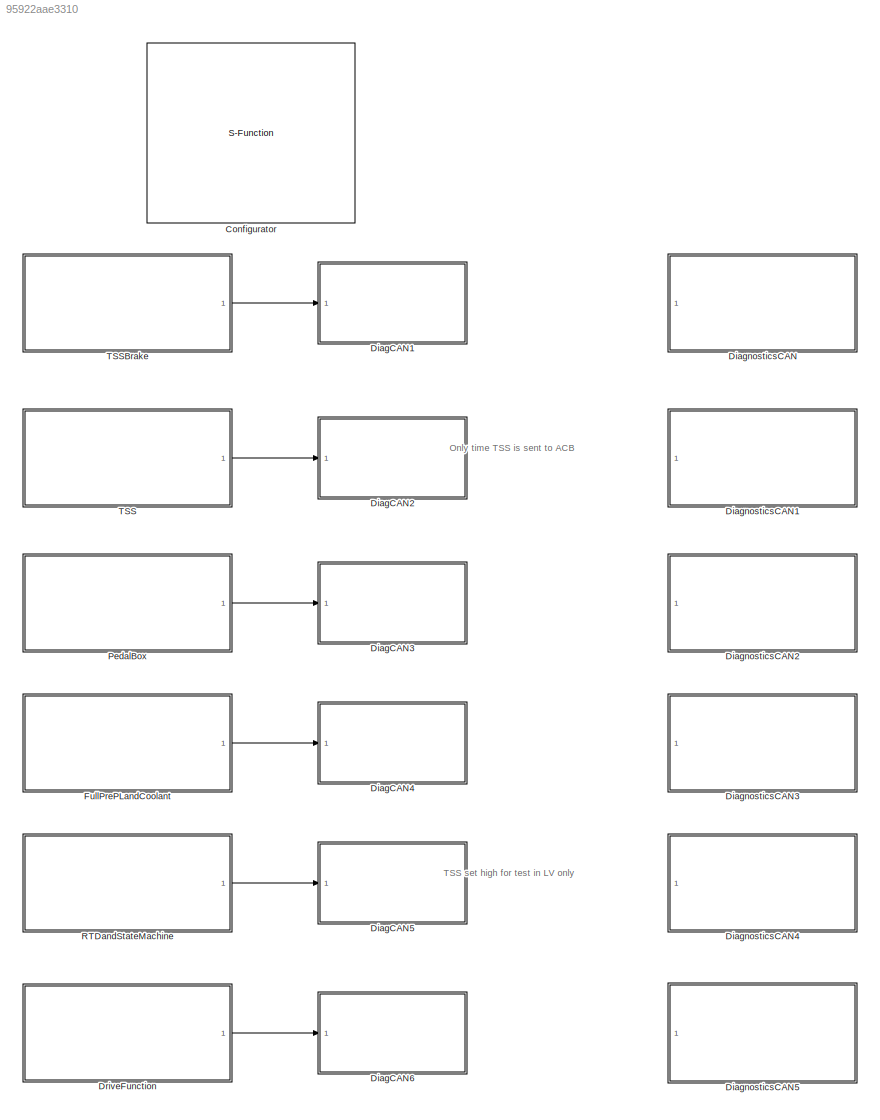
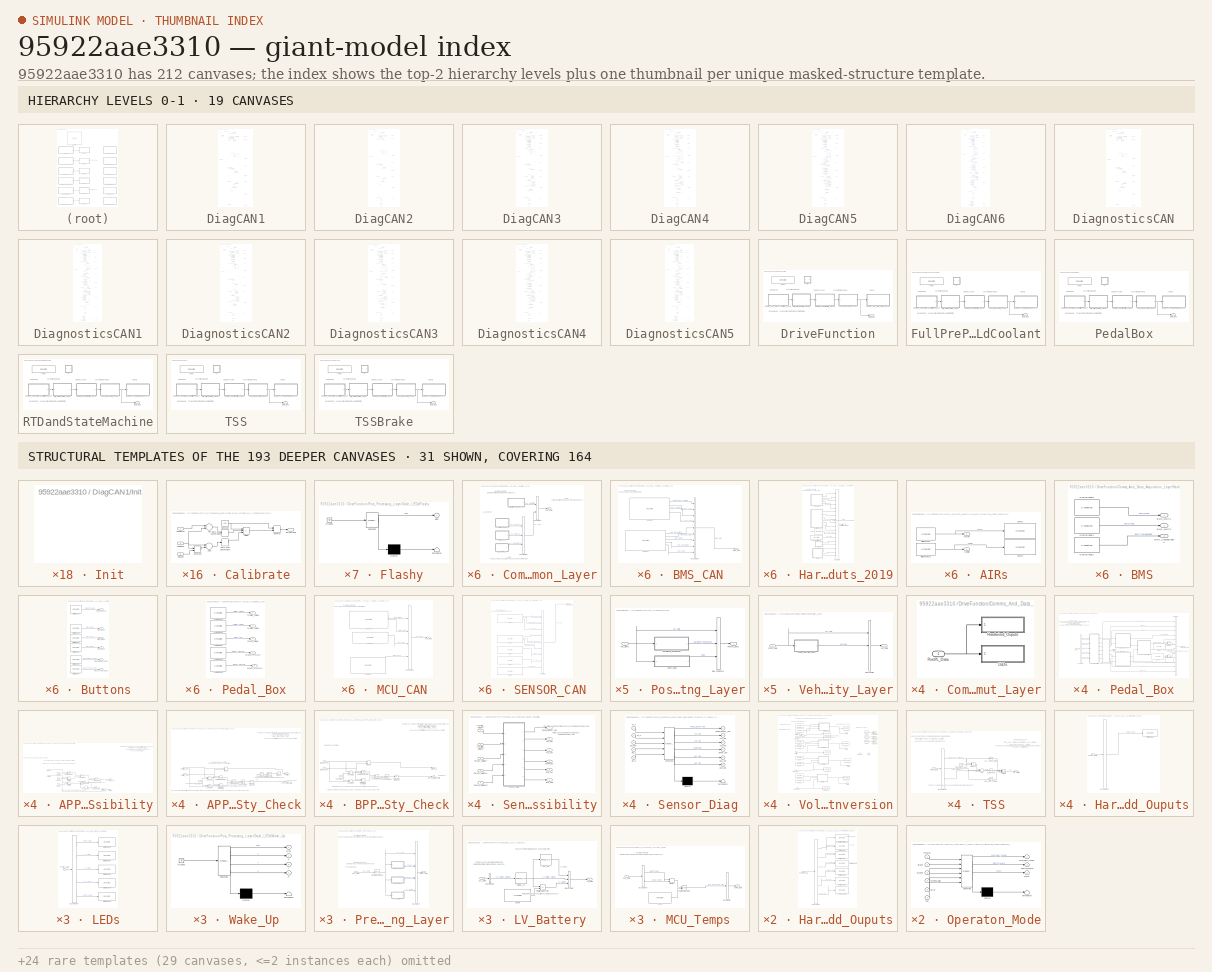
[diagram: thumbnail index - top-2 hierarchy levels (19 canvases) + 31 structural-template representatives of the remaining 193 canvases]
MODEL slx_95922aae3310
KIND model
CONFIG AbsTol = auto
CONFIG EnableMultiTasking = off
CONFIG FixedStep = 0.0001
CONFIG MaxStep = auto
CONFIG MinStep = auto
CONFIG PostLoadFcn = model_init();
CONFIG RelTol = 1e-3
CONFIG SampleTimeConstraint = Unconstrained
CONFIG Solver = FixedStepDiscrete
CONFIG SolverName = FixedStepDiscrete
CONFIG StartTime = 0.0
CONFIG StopTime = inf
BLOCK [S-Function] Configurator
  EnableBusSupport = off
  FunctionName = NsiSys_Configurator
  OpenFcn = NsiSys_Configurator_OpenFcn();
  Parameters = main,io,nbof_can,can,ccp,flash,nbof_lin,lin,tasks
  Ports = []
  SFcnIsStateOwnerBlock = off
  SFunctionDeploymentMode = off
BLOCK [SubSystem] DiagCAN1
  Commented = on
  OpenFcn = NsiSys_SubSystemTask_OpenFcn();
  Ports = [1]
  RTWFcnName = DiagCAN1
  RTWFcnNameOpts = User specified
  RTWFileName = FileTaskFcn
  RTWFileNameOpts = Use function name
  RTWSystemCode = Nonreusable function
  RequestExecContextInheritance = off
  SystemSampleTime = [0.1]
  TreatAsAtomicUnit = on
  Variant = off
BLOCK [BusSelector] DiagCAN1/Bus Selector
  OutputAsBus = off
  OutputSignals = VFL_Data.DAL_Data.HAL_Data.HAL_Hardwired.Throttle1_Voltage,VFL_Data.DAL_Data.HAL_Data.HAL_Hardwired.Throttle2_Voltage,VFL_Data.DAL_Data.HAL_Data.HAL_Hardwired.Brake1_Pressure,VFL_Data.DAL_Data.HAL_Data.HAL_Hardwired.Brake2_Pressure  <repeated x12 — deduplicated; at blocks: Bus Selector>
  Ports = [1, 4]
BLOCK [BusSelector] DiagCAN1/Bus Selector2
  OutputAsBus = off
  OutputSignals = VFL_Data.DAL_Data.HAL_Data.HAL_Hardwired.btnRTD_Input,VFL_Data.DAL_Data.HAL_Data.HAL_Hardwired.btnX_Input,VFL_Data.DAL_Data.HAL_Data.HAL_Hardwired.btnY_Input,VFL_Data.DAL_Data.HAL_Data.HAL_Hardwired.btnZ_Input,VFL_Data.DAL_Data.HAL_Data.HAL_Hardwired.Fan_Freq  <repeated x5 — deduplicated; at blocks: Bus Selector2>
  Ports = [1, 5]
BLOCK [BusSelector] DiagCAN1/Bus Selector3
  OutputAsBus = off
  OutputSignals = VFL_Data.VOM_Data.TSS
  Ports = [1, 1]
BLOCK [BusSelector] DiagCAN1/Bus Selector4
  OutputAsBus = off
  OutputSignals = VFL_Data.DAL_Data.HAL_Data.HAL_Hardwired.AIRLow,VFL_Data.DAL_Data.HAL_Data.HAL_Hardwired.AIRHigh
  Ports = [1, 2]
BLOCK [S-Function] DiagCAN1/CanTx2
  EnableBusSupport = off
  FunctionName = NsiCan_Tx_Ext
  OpenFcn = NsiCan_Tx_Ext_OpenFcn();
  Parameters = data_can,channel,msg_name,ident,ident_type,dlc,signals,is_physical,is_canfd,is_crc
  Ports = [14]
  SFcnIsStateOwnerBlock = off
  SFunctionDeploymentMode = off
BLOCK [S-Function] DiagCAN1/CanTx7
  EnableBusSupport = off
  FunctionName = NsiCan_Tx_Ext
  OpenFcn = NsiCan_Tx_Ext_OpenFcn();
  Parameters = data_can,channel,msg_name,ident,ident_type,dlc,signals,is_physical,is_canfd,is_crc
  Ports = [10]
  SFcnIsStateOwnerBlock = off
  SFunctionDeploymentMode = off
BLOCK [S-Function] DiagCAN1/CanTx8
  EnableBusSupport = off
  FunctionName = NsiCan_Tx_Ext
  OpenFcn = NsiCan_Tx_Ext_OpenFcn();
  Parameters = data_can,channel,msg_name,ident,ident_type,dlc,signals,is_physical,is_canfd,is_crc
  Ports = [6]
  SFcnIsStateOwnerBlock = off
  SFunctionDeploymentMode = off
BLOCK [S-Function] DiagCAN1/CanTx9
  EnableBusSupport = off
  FunctionName = NsiCan_Tx_Ext
  OpenFcn = NsiCan_Tx_Ext_OpenFcn();
  Parameters = data_can,channel,msg_name,ident,ident_type,dlc,signals,is_physical,is_canfd,is_crc
  Ports = [4]
  SFcnIsStateOwnerBlock = off
  SFunctionDeploymentMode = off
BLOCK [DataTypeConversion] DiagCAN1/Data Type Conversion16
  RndMeth = Floor
  SaturateOnIntegerOverflow = off
BLOCK [DataTypeConversion] DiagCAN1/Data Type Conversion2
  RndMeth = Floor
  SaturateOnIntegerOverflow = off
BLOCK [DataTypeConversion] DiagCAN1/Data Type Conversion22
  RndMeth = Floor
  SaturateOnIntegerOverflow = off
BLOCK [DataTypeConversion] DiagCAN1/Data Type Conversion26
  RndMeth = Floor
  SaturateOnIntegerOverflow = off
BLOCK [DataTypeConversion] DiagCAN1/Data Type Conversion27
  RndMeth = Floor
  SaturateOnIntegerOverflow = off
BLOCK [DataTypeConversion] DiagCAN1/Data Type Conversion3
  RndMeth = Floor
  SaturateOnIntegerOverflow = off
BLOCK [DataTypeConversion] DiagCAN1/Data Type Conversion4
  RndMeth = Floor
  SaturateOnIntegerOverflow = off
BLOCK [DataTypeConversion] DiagCAN1/Data Type Conversion6
  RndMeth = Floor
  SaturateOnIntegerOverflow = off
BLOCK [SubSystem] DiagCAN1/Init
  CopyFcn = cccopyfcn(gcb)
  OpenFcn = ccopenfcn('System Initialize Function')
  Ports = []
  RequestExecContextInheritance = off
  Variant = off
BLOCK [Inport] DiagCAN1/PostPL_Bus
  IconDisplay = Port number
BLOCK [S-Function] DiagCAN1/Task
  EnableBusSupport = off
  FunctionName = NsiSys_TaskREF
  OpenFcn = NsiSys_Task_OpenFcn();
  Parameters = task_initialised,task_periodic, task_sampletime,task_name,task_event,task_offset
  Ports = []
  SFcnIsStateOwnerBlock = off
  SFunctionDeploymentMode = off
BLOCK [SubSystem] DiagCAN2
  Commented = on
  OpenFcn = NsiSys_SubSystemTask_OpenFcn();
  Ports = [1]
  RTWFcnName = DiagCAN2
  RTWFcnNameOpts = User specified
  RTWFileName = FileTaskFcn
  RTWFileNameOpts = Use function name
  RTWSystemCode = Nonreusable function
  RequestExecContextInheritance = off
  SystemSampleTime = [0.1]
  TreatAsAtomicUnit = on
  Variant = off
BLOCK [BusSelector] DiagCAN2/Bus Selector
  OutputAsBus = off
  Ports = [1, 4]
BLOCK [BusSelector] DiagCAN2/Bus Selector2
  OutputAsBus = off
  Ports = [1, 5]
BLOCK [BusSelector] DiagCAN2/Bus Selector3
  OutputAsBus = off
  OutputSignals = VFL_Data.VOM_Data.TSS
  Ports = [1, 1]
BLOCK [BusSelector] DiagCAN2/Bus Selector4
  OutputAsBus = off
  OutputSignals = VFL_Data.DAL_Data.HAL_Data.HAL_Hardwired.AIRLow,VFL_Data.DAL_Data.HAL_Data.HAL_Hardwired.AIRHigh
  Ports = [1, 2]
BLOCK [S-Function] DiagCAN2/CanTx2
  EnableBusSupport = off
  FunctionName = NsiCan_Tx_Ext
  OpenFcn = NsiCan_Tx_Ext_OpenFcn();
  Parameters = data_can,channel,msg_name,ident,ident_type,dlc,signals,is_physical,is_canfd,is_crc
  Ports = [14]
  SFcnIsStateOwnerBlock = off
  SFunctionDeploymentMode = off
BLOCK [S-Function] DiagCAN2/CanTx7
  EnableBusSupport = off
  FunctionName = NsiCan_Tx_Ext
  OpenFcn = NsiCan_Tx_Ext_OpenFcn();
  Parameters = data_can,channel,msg_name,ident,ident_type,dlc,signals,is_physical,is_canfd,is_crc
  Ports = [10]
  SFcnIsStateOwnerBlock = off
  SFunctionDeploymentMode = off
BLOCK [S-Function] DiagCAN2/CanTx8
  EnableBusSupport = off
  FunctionName = NsiCan_Tx_Ext
  OpenFcn = NsiCan_Tx_Ext_OpenFcn();
  Parameters = data_can,channel,msg_name,ident,ident_type,dlc,signals,is_physical,is_canfd,is_crc
  Ports = [6]
  SFcnIsStateOwnerBlock = off
  SFunctionDeploymentMode = off
BLOCK [S-Function] DiagCAN2/CanTx9
  EnableBusSupport = off
  FunctionName = NsiCan_Tx_Ext
  OpenFcn = NsiCan_Tx_Ext_OpenFcn();
  Parameters = data_can,channel,msg_name,ident,ident_type,dlc,signals,is_physical,is_canfd,is_crc
  Ports = [4]
  SFcnIsStateOwnerBlock = off
  SFunctionDeploymentMode = off
BLOCK [DataTypeConversion] DiagCAN2/Data Type Conversion16
  RndMeth = Floor
  SaturateOnIntegerOverflow = off
BLOCK [DataTypeConversion] DiagCAN2/Data Type Conversion2
  RndMeth = Floor
  SaturateOnIntegerOverflow = off
BLOCK [DataTypeConversion] DiagCAN2/Data Type Conversion22
  RndMeth = Floor
  SaturateOnIntegerOverflow = off
BLOCK [DataTypeConversion] DiagCAN2/Data Type Conversion26
  RndMeth = Floor
  SaturateOnIntegerOverflow = off
BLOCK [DataTypeConversion] DiagCAN2/Data Type Conversion27
  RndMeth = Floor
  SaturateOnIntegerOverflow = off
BLOCK [DataTypeConversion] DiagCAN2/Data Type Conversion3
  RndMeth = Floor
  SaturateOnIntegerOverflow = off
BLOCK [DataTypeConversion] DiagCAN2/Data Type Conversion4
  RndMeth = Floor
  SaturateOnIntegerOverflow = off
BLOCK [DataTypeConversion] DiagCAN2/Data Type Conversion6
  RndMeth = Floor
  SaturateOnIntegerOverflow = off
BLOCK [SubSystem] DiagCAN2/Init
  CopyFcn = cccopyfcn(gcb)
  OpenFcn = ccopenfcn('System Initialize Function')
  Ports = []
  RequestExecContextInheritance = off
  Variant = off
BLOCK [Inport] DiagCAN2/PostPL_Bus
  IconDisplay = Port number
BLOCK [S-Function] DiagCAN2/Task
  EnableBusSupport = off
  FunctionName = NsiSys_TaskREF
  OpenFcn = NsiSys_Task_OpenFcn();
  Parameters = task_initialised,task_periodic, task_sampletime,task_name,task_event,task_offset
  Ports = []
  SFcnIsStateOwnerBlock = off
  SFunctionDeploymentMode = off
BLOCK [S-Function] DiagCAN2/UsbRx
  EnableBusSupport = off
  FunctionName = NsiUsb_Rx
  OpenFcn = NsiUsb_Rx_OpenFcn();
  Parameters = signame,sigtype,resolution,offset,unite,value,is_trigger
  Ports = [0, 1]
  SFcnIsStateOwnerBlock = off
  SFunctionDeploymentMode = off
BLOCK [S-Function] DiagCAN2/UsbRx1
  EnableBusSupport = off
  FunctionName = NsiUsb_Rx
  OpenFcn = NsiUsb_Rx_OpenFcn();
  Parameters = signame,sigtype,resolution,offset,unite,value,is_trigger
  Ports = [0, 1]
  SFcnIsStateOwnerBlock = off
  SFunctionDeploymentMode = off
BLOCK [SubSystem] DiagCAN3
  OpenFcn = NsiSys_SubSystemTask_OpenFcn();
  Ports = [1]
  RTWFcnName = DiagCAN3
  RTWFcnNameOpts = User specified
  RTWFileName = FileTaskFcn
  RTWFileNameOpts = Use function name
  RTWSystemCode = Nonreusable function
  RequestExecContextInheritance = off
  SystemSampleTime = [0.1]
  TreatAsAtomicUnit = on
  Variant = off
BLOCK [BusSelector] DiagCAN3/Bus Selector
  OutputAsBus = off
  Ports = [1, 4]
BLOCK [BusSelector] DiagCAN3/Bus Selector1
  OutputAsBus = off
  OutputSignals = VFL_Data.DAL_Data.Pedal_Box_Data.Brake1_Per,VFL_Data.DAL_Data.Pedal_Box_Data.Brake2_Per,VFL_Data.DAL_Data.Pedal_Box_Data.Brake_Percentage,VFL_Data.DAL_Data.Pedal_Box_Data.Throttle1_Per,VFL_Data.DAL_Data.Pedal_Box_Data.Throttle2_Per,VFL_Data.DAL_Data.Pedal_Box_Data.Throttle_Percentage  <repeated x9 — deduplicated; at blocks: Bus Selector1>
  Ports = [1, 6]
BLOCK [BusSelector] DiagCAN3/Bus Selector2
  OutputAsBus = off
  Ports = [1, 5]
BLOCK [BusSelector] DiagCAN3/Bus Selector3
  OutputAsBus = off
  OutputSignals = VFL_Data.DAL_Data.Pedal_Box_Data.Throttle_Bool,VFL_Data.DAL_Data.Pedal_Box_Data.Brake_Bool
  Ports = [1, 2]
BLOCK [BusSelector] DiagCAN3/Bus Selector4
  OutputAsBus = off
  OutputSignals = VFL_Data.DAL_Data.HAL_Data.HAL_Hardwired.AIRLow,VFL_Data.DAL_Data.HAL_Data.HAL_Hardwired.AIRHigh,VFL_Data.DAL_Data.Pedal_Box_Data.BPPS_Implausibility,VFL_Data.DAL_Data.Pedal_Box_Data.Pedal_Sensor_Fail,VFL_Data.DAL_Data.Pedal_Box_Data.APPS_Implausibility,VFL_Data.DAL_Data.Pedal_Box_Data.APPS_BP_Implausibility
  Ports = [1, 6]
BLOCK [S-Function] DiagCAN3/CanTx2
  EnableBusSupport = off
  FunctionName = NsiCan_Tx_Ext
  OpenFcn = NsiCan_Tx_Ext_OpenFcn();
  Parameters = data_can,channel,msg_name,ident,ident_type,dlc,signals,is_physical,is_canfd,is_crc
  Ports = [14]
  SFcnIsStateOwnerBlock = off
  SFunctionDeploymentMode = off
BLOCK [S-Function] DiagCAN3/CanTx6
  EnableBusSupport = off
  FunctionName = NsiCan_Tx_Ext
  OpenFcn = NsiCan_Tx_Ext_OpenFcn();
  Parameters = data_can,channel,msg_name,ident,ident_type,dlc,signals,is_physical,is_canfd,is_crc
  Ports = [7]
  SFcnIsStateOwnerBlock = off
  SFunctionDeploymentMode = off
BLOCK [S-Function] DiagCAN3/CanTx7
  EnableBusSupport = off
  FunctionName = NsiCan_Tx_Ext
  OpenFcn = NsiCan_Tx_Ext_OpenFcn();
  Parameters = data_can,channel,msg_name,ident,ident_type,dlc,signals,is_physical,is_canfd,is_crc
  Ports = [10]
  SFcnIsStateOwnerBlock = off
  SFunctionDeploymentMode = off
BLOCK [S-Function] DiagCAN3/CanTx8
  EnableBusSupport = off
  FunctionName = NsiCan_Tx_Ext
  OpenFcn = NsiCan_Tx_Ext_OpenFcn();
  Parameters = data_can,channel,msg_name,ident,ident_type,dlc,signals,is_physical,is_canfd,is_crc
  Ports = [6]
  SFcnIsStateOwnerBlock = off
  SFunctionDeploymentMode = off
BLOCK [S-Function] DiagCAN3/CanTx9
  EnableBusSupport = off
  FunctionName = NsiCan_Tx_Ext
  OpenFcn = NsiCan_Tx_Ext_OpenFcn();
  Parameters = data_can,channel,msg_name,ident,ident_type,dlc,signals,is_physical,is_canfd,is_crc
  Ports = [4]
  SFcnIsStateOwnerBlock = off
  SFunctionDeploymentMode = off
BLOCK [DataTypeConversion] DiagCAN3/Data Type Conversion10
  RndMeth = Floor
  SaturateOnIntegerOverflow = off
BLOCK [DataTypeConversion] DiagCAN3/Data Type Conversion11
  RndMeth = Floor
  SaturateOnIntegerOverflow = off
BLOCK [DataTypeConversion] DiagCAN3/Data Type Conversion14
  RndMeth = Floor
  SaturateOnIntegerOverflow = off
BLOCK [DataTypeConversion] DiagCAN3/Data Type Conversion17
  RndMeth = Floor
  SaturateOnIntegerOverflow = off
BLOCK [DataTypeConversion] DiagCAN3/Data Type Conversion2
  RndMeth = Floor
  SaturateOnIntegerOverflow = off
BLOCK [DataTypeConversion] DiagCAN3/Data Type Conversion21
  RndMeth = Floor
  SaturateOnIntegerOverflow = off
BLOCK [DataTypeConversion] DiagCAN3/Data Type Conversion22
  RndMeth = Floor
  SaturateOnIntegerOverflow = off
BLOCK [DataTypeConversion] DiagCAN3/Data Type Conversion26
  RndMeth = Floor
  SaturateOnIntegerOverflow = off
BLOCK [DataTypeConversion] DiagCAN3/Data Type Conversion27
  RndMeth = Floor
  SaturateOnIntegerOverflow = off
BLOCK [DataTypeConversion] DiagCAN3/Data Type Conversion28
  RndMeth = Floor
  SaturateOnIntegerOverflow = off
BLOCK [DataTypeConversion] DiagCAN3/Data Type Conversion29
  RndMeth = Floor
  SaturateOnIntegerOverflow = off
BLOCK [DataTypeConversion] DiagCAN3/Data Type Conversion3
  RndMeth = Floor
  SaturateOnIntegerOverflow = off
BLOCK [DataTypeConversion] DiagCAN3/Data Type Conversion30
  RndMeth = Floor
  SaturateOnIntegerOverflow = off
BLOCK [DataTypeConversion] DiagCAN3/Data Type Conversion4
  RndMeth = Floor
  SaturateOnIntegerOverflow = off
BLOCK [DataTypeConversion] DiagCAN3/Data Type Conversion5
  RndMeth = Floor
  SaturateOnIntegerOverflow = off
BLOCK [DataTypeConversion] DiagCAN3/Data Type Conversion6
  RndMeth = Floor
  SaturateOnIntegerOverflow = off
BLOCK [DataTypeConversion] DiagCAN3/Data Type Conversion7
  RndMeth = Floor
  SaturateOnIntegerOverflow = off
BLOCK [DataTypeConversion] DiagCAN3/Data Type Conversion8
  RndMeth = Floor
  SaturateOnIntegerOverflow = off
BLOCK [DataTypeConversion] DiagCAN3/Data Type Conversion9
  RndMeth = Floor
  SaturateOnIntegerOverflow = off
BLOCK [SubSystem] DiagCAN3/Init
  CopyFcn = cccopyfcn(gcb)
  OpenFcn = ccopenfcn('System Initialize Function')
  Ports = []
  RequestExecContextInheritance = off
  Variant = off
BLOCK [Inport] DiagCAN3/PostPL_Bus
  IconDisplay = Port number
BLOCK [S-Function] DiagCAN3/Task
  EnableBusSupport = off
  FunctionName = NsiSys_TaskREF
  OpenFcn = NsiSys_Task_OpenFcn();
  Parameters = task_initialised,task_periodic, task_sampletime,task_name,task_event,task_offset
  Ports = []
  SFcnIsStateOwnerBlock = off
  SFunctionDeploymentMode = off
BLOCK [S-Function] DiagCAN3/UsbRx
  EnableBusSupport = off
  FunctionName = NsiUsb_Rx
  OpenFcn = NsiUsb_Rx_OpenFcn();
  Parameters = signame,sigtype,resolution,offset,unite,value,is_trigger
  Ports = [0, 1]
  SFcnIsStateOwnerBlock = off
  SFunctionDeploymentMode = off
BLOCK [S-Function] DiagCAN3/UsbRx1
  EnableBusSupport = off
  FunctionName = NsiUsb_Rx
  OpenFcn = NsiUsb_Rx_OpenFcn();
  Parameters = signame,sigtype,resolution,offset,unite,value,is_trigger
  Ports = [0, 1]
  SFcnIsStateOwnerBlock = off
  SFunctionDeploymentMode = off
BLOCK [SubSystem] DiagCAN4
  Commented = on
  OpenFcn = NsiSys_SubSystemTask_OpenFcn();
  Ports = [1]
  RTWFcnName = DiagCAN4
  RTWFcnNameOpts = User specified
  RTWFileName = FileTaskFcn
  RTWFileNameOpts = Use function name
  RTWSystemCode = Nonreusable function
  RequestExecContextInheritance = off
  SystemSampleTime = [0.1]
  TreatAsAtomicUnit = on
  Variant = off
BLOCK [BusSelector] DiagCAN4/Bus Selector
  OutputAsBus = off
  Ports = [1, 4]
BLOCK [BusSelector] DiagCAN4/Bus Selector1
  OutputAsBus = off
  Ports = [1, 6]
BLOCK [BusSelector] DiagCAN4/Bus Selector2
  OutputAsBus = off
  OutputSignals = VFL_Data.DAL_Data.HAL_Data.HAL_Hardwired.btnRTD_Input,VFL_Data.DAL_Data.HAL_Data.HAL_Hardwired.btnX_Input,VFL_Data.DAL_Data.HAL_Data.HAL_Hardwired.btnY_Input,VFL_Data.DAL_Data.HAL_Data.HAL_Hardwired.btnZ_Input,Hardwired_Peripherals.PumpFanPower,Hardwired_Peripherals.AccyFanPower,VFL_Data.DAL_Data.LV_Battery.LV_Battery_Voltage,VFL_Data.DAL_Data.LV_Battery.LV_SOC%,VFL_Data.DAL_Data.HAL_Data.HAL_Hard...<+14ch>
  Ports = [1, 9]
BLOCK [BusSelector] DiagCAN4/Bus Selector3
  OutputAsBus = off
  OutputSignals = VFL_Data.DAL_Data.Pedal_Box_Data.Throttle_Bool,VFL_Data.DAL_Data.Pedal_Box_Data.Brake_Bool
  Ports = [1, 2]
BLOCK [BusSelector] DiagCAN4/Bus Selector4
  OutputAsBus = off
  OutputSignals = VFL_Data.DAL_Data.HAL_Data.HAL_Hardwired.AIRLow,VFL_Data.DAL_Data.HAL_Data.HAL_Hardwired.AIRHigh,VFL_Data.DAL_Data.Pedal_Box_Data.BPPS_Implausibility,VFL_Data.DAL_Data.Pedal_Box_Data.Pedal_Sensor_Fail,VFL_Data.DAL_Data.Pedal_Box_Data.APPS_Implausibility,VFL_Data.DAL_Data.Pedal_Box_Data.APPS_BP_Implausibility,VFL_Data.DAL_Data.LV_Battery.LV_Warning
  Ports = [1, 7]
BLOCK [S-Function] DiagCAN4/CanTx2
  EnableBusSupport = off
  FunctionName = NsiCan_Tx_Ext
  OpenFcn = NsiCan_Tx_Ext_OpenFcn();
  Parameters = data_can,channel,msg_name,ident,ident_type,dlc,signals,is_physical,is_canfd,is_crc
  Ports = [14]
  SFcnIsStateOwnerBlock = off
  SFunctionDeploymentMode = off
BLOCK [S-Function] DiagCAN4/CanTx6
  EnableBusSupport = off
  FunctionName = NsiCan_Tx_Ext
  OpenFcn = NsiCan_Tx_Ext_OpenFcn();
  Parameters = data_can,channel,msg_name,ident,ident_type,dlc,signals,is_physical,is_canfd,is_crc
  Ports = [7]
  SFcnIsStateOwnerBlock = off
  SFunctionDeploymentMode = off
BLOCK [S-Function] DiagCAN4/CanTx7
  EnableBusSupport = off
  FunctionName = NsiCan_Tx_Ext
  OpenFcn = NsiCan_Tx_Ext_OpenFcn();
  Parameters = data_can,channel,msg_name,ident,ident_type,dlc,signals,is_physical,is_canfd,is_crc
  Ports = [10]
  SFcnIsStateOwnerBlock = off
  SFunctionDeploymentMode = off
BLOCK [S-Function] DiagCAN4/CanTx8
  EnableBusSupport = off
  FunctionName = NsiCan_Tx_Ext
  OpenFcn = NsiCan_Tx_Ext_OpenFcn();
  Parameters = data_can,channel,msg_name,ident,ident_type,dlc,signals,is_physical,is_canfd,is_crc
  Ports = [6]
  SFcnIsStateOwnerBlock = off
  SFunctionDeploymentMode = off
BLOCK [S-Function] DiagCAN4/CanTx9
  EnableBusSupport = off
  FunctionName = NsiCan_Tx_Ext
  OpenFcn = NsiCan_Tx_Ext_OpenFcn();
  Parameters = data_can,channel,msg_name,ident,ident_type,dlc,signals,is_physical,is_canfd,is_crc
  Ports = [4]
  SFcnIsStateOwnerBlock = off
  SFunctionDeploymentMode = off
BLOCK [DataTypeConversion] DiagCAN4/Data Type Conversion10
  RndMeth = Floor
  SaturateOnIntegerOverflow = off
BLOCK [DataTypeConversion] DiagCAN4/Data Type Conversion11
  RndMeth = Floor
  SaturateOnIntegerOverflow = off
BLOCK [DataTypeConversion] DiagCAN4/Data Type Conversion13
  RndMeth = Floor
  SaturateOnIntegerOverflow = off
BLOCK [DataTypeConversion] DiagCAN4/Data Type Conversion14
  RndMeth = Floor
  SaturateOnIntegerOverflow = off
BLOCK [DataTypeConversion] DiagCAN4/Data Type Conversion15
  RndMeth = Floor
  SaturateOnIntegerOverflow = off
BLOCK [DataTypeConversion] DiagCAN4/Data Type Conversion17
  RndMeth = Floor
  SaturateOnIntegerOverflow = off
BLOCK [DataTypeConversion] DiagCAN4/Data Type Conversion2
  RndMeth = Floor
  SaturateOnIntegerOverflow = off
BLOCK [DataTypeConversion] DiagCAN4/Data Type Conversion21
  RndMeth = Floor
  SaturateOnIntegerOverflow = off
BLOCK [DataTypeConversion] DiagCAN4/Data Type Conversion22
  RndMeth = Floor
  SaturateOnIntegerOverflow = off
BLOCK [DataTypeConversion] DiagCAN4/Data Type Conversion26
  RndMeth = Floor
  SaturateOnIntegerOverflow = off
BLOCK [DataTypeConversion] DiagCAN4/Data Type Conversion27
  RndMeth = Floor
  SaturateOnIntegerOverflow = off
BLOCK [DataTypeConversion] DiagCAN4/Data Type Conversion28
  RndMeth = Floor
  SaturateOnIntegerOverflow = off
BLOCK [DataTypeConversion] DiagCAN4/Data Type Conversion29
  RndMeth = Floor
  SaturateOnIntegerOverflow = off
BLOCK [DataTypeConversion] DiagCAN4/Data Type Conversion3
  RndMeth = Floor
  SaturateOnIntegerOverflow = off
BLOCK [DataTypeConversion] DiagCAN4/Data Type Conversion30
  RndMeth = Floor
  SaturateOnIntegerOverflow = off
BLOCK [DataTypeConversion] DiagCAN4/Data Type Conversion32
  RndMeth = Floor
  SaturateOnIntegerOverflow = off
BLOCK [DataTypeConversion] DiagCAN4/Data Type Conversion4
  RndMeth = Floor
  SaturateOnIntegerOverflow = off
BLOCK [DataTypeConversion] DiagCAN4/Data Type Conversion5
  RndMeth = Floor
  SaturateOnIntegerOverflow = off
BLOCK [DataTypeConversion] DiagCAN4/Data Type Conversion6
  RndMeth = Floor
  SaturateOnIntegerOverflow = off
BLOCK [DataTypeConversion] DiagCAN4/Data Type Conversion7
  RndMeth = Floor
  SaturateOnIntegerOverflow = off
BLOCK [DataTypeConversion] DiagCAN4/Data Type Conversion8
  RndMeth = Floor
  SaturateOnIntegerOverflow = off
BLOCK [DataTypeConversion] DiagCAN4/Data Type Conversion9
  RndMeth = Floor
  SaturateOnIntegerOverflow = off
BLOCK [SubSystem] DiagCAN4/Init
  CopyFcn = cccopyfcn(gcb)
  OpenFcn = ccopenfcn('System Initialize Function')
  Ports = []
  RequestExecContextInheritance = off
  Variant = off
BLOCK [Inport] DiagCAN4/PostPL_Bus
  IconDisplay = Port number
BLOCK [S-Function] DiagCAN4/Task
  EnableBusSupport = off
  FunctionName = NsiSys_TaskREF
  OpenFcn = NsiSys_Task_OpenFcn();
  Parameters = task_initialised,task_periodic, task_sampletime,task_name,task_event,task_offset
  Ports = []
  SFcnIsStateOwnerBlock = off
  SFunctionDeploymentMode = off
BLOCK [S-Function] DiagCAN4/UsbRx
  EnableBusSupport = off
  FunctionName = NsiUsb_Rx
  OpenFcn = NsiUsb_Rx_OpenFcn();
  Parameters = signame,sigtype,resolution,offset,unite,value,is_trigger
  Ports = [0, 1]
  SFcnIsStateOwnerBlock = off
  SFunctionDeploymentMode = off
BLOCK [S-Function] DiagCAN4/UsbRx1
  EnableBusSupport = off
  FunctionName = NsiUsb_Rx
  OpenFcn = NsiUsb_Rx_OpenFcn();
  Parameters = signame,sigtype,resolution,offset,unite,value,is_trigger
  Ports = [0, 1]
  SFcnIsStateOwnerBlock = off
  SFunctionDeploymentMode = off
BLOCK [SubSystem] DiagCAN5
  Commented = on
  OpenFcn = NsiSys_SubSystemTask_OpenFcn();
  Ports = [1]
  RTWFcnName = DiagCAN5
  RTWFcnNameOpts = User specified
  RTWFileName = FileTaskFcn
  RTWFileNameOpts = Use function name
  RTWSystemCode = Nonreusable function
  RequestExecContextInheritance = off
  SystemSampleTime = [0.1]
  TreatAsAtomicUnit = on
  Variant = off
BLOCK [BusSelector] DiagCAN5/Bus Selector
  OutputAsBus = off
  Ports = [1, 4]
BLOCK [BusSelector] DiagCAN5/Bus Selector1
  OutputAsBus = off
  Ports = [1, 6]
BLOCK [BusSelector] DiagCAN5/Bus Selector2
  OutputAsBus = off
  OutputSignals = VFL_Data.DAL_Data.HAL_Data.HAL_Hardwired.btnRTD_Input,VFL_Data.DAL_Data.HAL_Data.HAL_Hardwired.btnX_Input,VFL_Data.DAL_Data.HAL_Data.HAL_Hardwired.btnY_Input,VFL_Data.DAL_Data.HAL_Data.HAL_Hardwired.btnZ_Input,Hardwired_Peripherals.PumpFanPower,Hardwired_Peripherals.AccyFanPower,Hardwired_Peripherals.Buzzer,VFL_Data.DAL_Data.LV_Battery.LV_Battery_Voltage,VFL_Data.DAL_Data.LV_Battery.LV_SOC%,VFL_Da...<+43ch>  <repeated x5 — deduplicated; at blocks: Bus Selector2>
  Ports = [1, 10]
BLOCK [BusSelector] DiagCAN5/Bus Selector3
  OutputAsBus = off
  OutputSignals = VFL_Data.VOM_Data.TSS,VFL_Data.DAL_Data.Pedal_Box_Data.Throttle_Bool,VFL_Data.VOM_Data.MCU_NMT_Mode,VFL_Data.VOM_Data.Control_Word,VFL_Data.VOM_Data.Operation_Mode,VFL_Data.DAL_Data.Pedal_Box_Data.Brake_Bool  <repeated x5 — deduplicated; at blocks: Bus Selector3>
  Ports = [1, 6]
BLOCK [BusSelector] DiagCAN5/Bus Selector4
  OutputAsBus = off
  OutputSignals = Hardwired_Peripherals.ECU_Ok,VFL_Data.DAL_Data.HAL_Data.HAL_Hardwired.AIRLow,VFL_Data.DAL_Data.HAL_Data.HAL_Hardwired.AIRHigh,VFL_Data.DAL_Data.Pedal_Box_Data.BPPS_Implausibility,VFL_Data.DAL_Data.Pedal_Box_Data.Pedal_Sensor_Fail,VFL_Data.DAL_Data.Pedal_Box_Data.APPS_Implausibility,VFL_Data.DAL_Data.Pedal_Box_Data.APPS_BP_Implausibility,VFL_Data.DAL_Data.LV_Battery.LV_Warning
  Ports = [1, 8]
BLOCK [S-Function] DiagCAN5/CanTx2
  EnableBusSupport = off
  FunctionName = NsiCan_Tx_Ext
  OpenFcn = NsiCan_Tx_Ext_OpenFcn();
  Parameters = data_can,channel,msg_name,ident,ident_type,dlc,signals,is_physical,is_canfd,is_crc
  Ports = [14]
  SFcnIsStateOwnerBlock = off
  SFunctionDeploymentMode = off
BLOCK [S-Function] DiagCAN5/CanTx6
  EnableBusSupport = off
  FunctionName = NsiCan_Tx_Ext
  OpenFcn = NsiCan_Tx_Ext_OpenFcn();
  Parameters = data_can,channel,msg_name,ident,ident_type,dlc,signals,is_physical,is_canfd,is_crc
  Ports = [7]
  SFcnIsStateOwnerBlock = off
  SFunctionDeploymentMode = off
BLOCK [S-Function] DiagCAN5/CanTx7
  EnableBusSupport = off
  FunctionName = NsiCan_Tx_Ext
  OpenFcn = NsiCan_Tx_Ext_OpenFcn();
  Parameters = data_can,channel,msg_name,ident,ident_type,dlc,signals,is_physical,is_canfd,is_crc
  Ports = [10]
  SFcnIsStateOwnerBlock = off
  SFunctionDeploymentMode = off
BLOCK [S-Function] DiagCAN5/CanTx8
  EnableBusSupport = off
  FunctionName = NsiCan_Tx_Ext
  OpenFcn = NsiCan_Tx_Ext_OpenFcn();
  Parameters = data_can,channel,msg_name,ident,ident_type,dlc,signals,is_physical,is_canfd,is_crc
  Ports = [6]
  SFcnIsStateOwnerBlock = off
  SFunctionDeploymentMode = off
BLOCK [S-Function] DiagCAN5/CanTx9
  EnableBusSupport = off
  FunctionName = NsiCan_Tx_Ext
  OpenFcn = NsiCan_Tx_Ext_OpenFcn();
  Parameters = data_can,channel,msg_name,ident,ident_type,dlc,signals,is_physical,is_canfd,is_crc
  Ports = [4]
  SFcnIsStateOwnerBlock = off
  SFunctionDeploymentMode = off
BLOCK [DataTypeConversion] DiagCAN5/Data Type Conversion10
  RndMeth = Floor
  SaturateOnIntegerOverflow = off
BLOCK [DataTypeConversion] DiagCAN5/Data Type Conversion11
  RndMeth = Floor
  SaturateOnIntegerOverflow = off
BLOCK [DataTypeConversion] DiagCAN5/Data Type Conversion12
  RndMeth = Floor
  SaturateOnIntegerOverflow = off
BLOCK [DataTypeConversion] DiagCAN5/Data Type Conversion13
  RndMeth = Floor
  SaturateOnIntegerOverflow = off
BLOCK [DataTypeConversion] DiagCAN5/Data Type Conversion14
  RndMeth = Floor
  SaturateOnIntegerOverflow = off
BLOCK [DataTypeConversion] DiagCAN5/Data Type Conversion15
  RndMeth = Floor
  SaturateOnIntegerOverflow = off
BLOCK [DataTypeConversion] DiagCAN5/Data Type Conversion16
  RndMeth = Floor
  SaturateOnIntegerOverflow = off
BLOCK [DataTypeConversion] DiagCAN5/Data Type Conversion17
  RndMeth = Floor
  SaturateOnIntegerOverflow = off
BLOCK [DataTypeConversion] DiagCAN5/Data Type Conversion18
  RndMeth = Floor
  SaturateOnIntegerOverflow = off
BLOCK [DataTypeConversion] DiagCAN5/Data Type Conversion19
  RndMeth = Floor
  SaturateOnIntegerOverflow = off
BLOCK [DataTypeConversion] DiagCAN5/Data Type Conversion2
  RndMeth = Floor
  SaturateOnIntegerOverflow = off
BLOCK [DataTypeConversion] DiagCAN5/Data Type Conversion20
  RndMeth = Floor
  SaturateOnIntegerOverflow = off
BLOCK [DataTypeConversion] DiagCAN5/Data Type Conversion21
  RndMeth = Floor
  SaturateOnIntegerOverflow = off
BLOCK [DataTypeConversion] DiagCAN5/Data Type Conversion22
  RndMeth = Floor
  SaturateOnIntegerOverflow = off
BLOCK [DataTypeConversion] DiagCAN5/Data Type Conversion25
  RndMeth = Floor
  SaturateOnIntegerOverflow = off
BLOCK [DataTypeConversion] DiagCAN5/Data Type Conversion26
  RndMeth = Floor
  SaturateOnIntegerOverflow = off
BLOCK [DataTypeConversion] DiagCAN5/Data Type Conversion27
  RndMeth = Floor
  SaturateOnIntegerOverflow = off
BLOCK [DataTypeConversion] DiagCAN5/Data Type Conversion28
  RndMeth = Floor
  SaturateOnIntegerOverflow = off
BLOCK [DataTypeConversion] DiagCAN5/Data Type Conversion29
  RndMeth = Floor
  SaturateOnIntegerOverflow = off
BLOCK [DataTypeConversion] DiagCAN5/Data Type Conversion3
  RndMeth = Floor
  SaturateOnIntegerOverflow = off
BLOCK [DataTypeConversion] DiagCAN5/Data Type Conversion30
  RndMeth = Floor
  SaturateOnIntegerOverflow = off
BLOCK [DataTypeConversion] DiagCAN5/Data Type Conversion32
  RndMeth = Floor
  SaturateOnIntegerOverflow = off
BLOCK [DataTypeConversion] DiagCAN5/Data Type Conversion4
  RndMeth = Floor
  SaturateOnIntegerOverflow = off
BLOCK [DataTypeConversion] DiagCAN5/Data Type Conversion5
  RndMeth = Floor
  SaturateOnIntegerOverflow = off
BLOCK [DataTypeConversion] DiagCAN5/Data Type Conversion6
  RndMeth = Floor
  SaturateOnIntegerOverflow = off
BLOCK [DataTypeConversion] DiagCAN5/Data Type Conversion7
  RndMeth = Floor
  SaturateOnIntegerOverflow = off
BLOCK [DataTypeConversion] DiagCAN5/Data Type Conversion8
  RndMeth = Floor
  SaturateOnIntegerOverflow = off
BLOCK [DataTypeConversion] DiagCAN5/Data Type Conversion9
  RndMeth = Floor
  SaturateOnIntegerOverflow = off
BLOCK [SubSystem] DiagCAN5/Init
  CopyFcn = cccopyfcn(gcb)
  OpenFcn = ccopenfcn('System Initialize Function')
  Ports = []
  RequestExecContextInheritance = off
  Variant = off
BLOCK [Inport] DiagCAN5/PostPL_Bus
  IconDisplay = Port number
BLOCK [S-Function] DiagCAN5/Task
  EnableBusSupport = off
  FunctionName = NsiSys_TaskREF
  OpenFcn = NsiSys_Task_OpenFcn();
  Parameters = task_initialised,task_periodic, task_sampletime,task_name,task_event,task_offset
  Ports = []
  SFcnIsStateOwnerBlock = off
  SFunctionDeploymentMode = off
BLOCK [S-Function] DiagCAN5/UsbRx
  EnableBusSupport = off
  FunctionName = NsiUsb_Rx
  OpenFcn = NsiUsb_Rx_OpenFcn();
  Parameters = signame,sigtype,resolution,offset,unite,value,is_trigger
  Ports = [0, 1]
  SFcnIsStateOwnerBlock = off
  SFunctionDeploymentMode = off
BLOCK [S-Function] DiagCAN5/UsbRx1
  EnableBusSupport = off
  FunctionName = NsiUsb_Rx
  OpenFcn = NsiUsb_Rx_OpenFcn();
  Parameters = signame,sigtype,resolution,offset,unite,value,is_trigger
  Ports = [0, 1]
  SFcnIsStateOwnerBlock = off
  SFunctionDeploymentMode = off
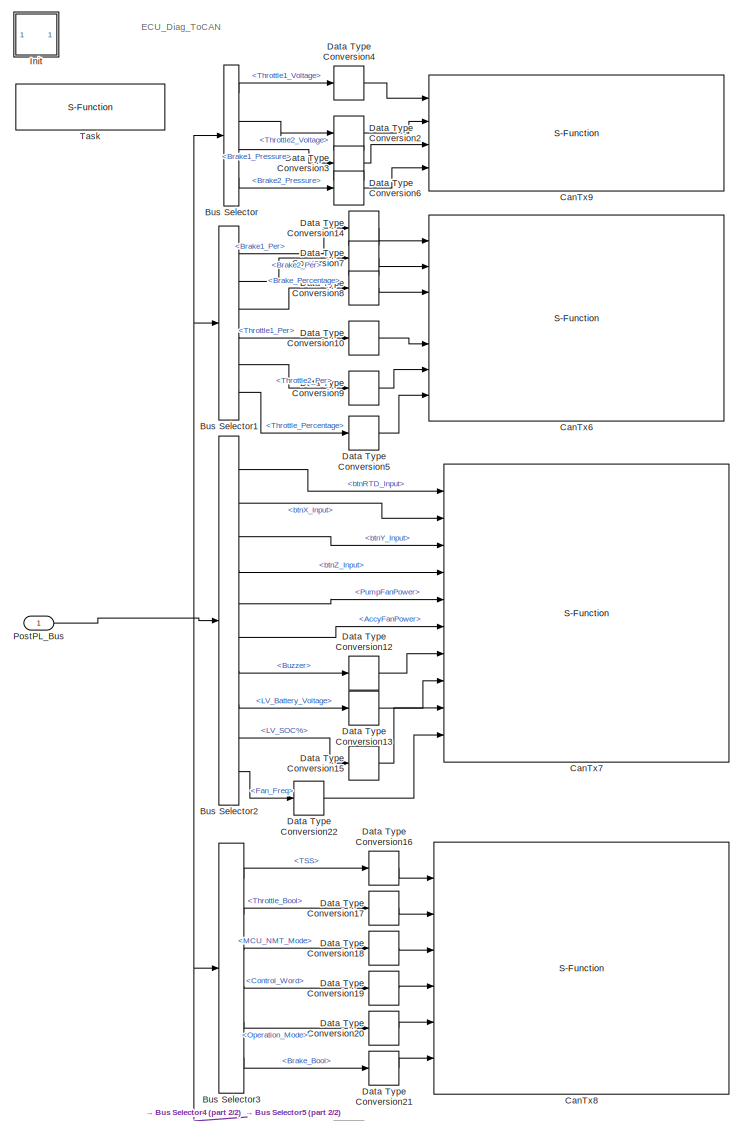
[diagram: DiagCAN6 - part 1/2, full width, top band]
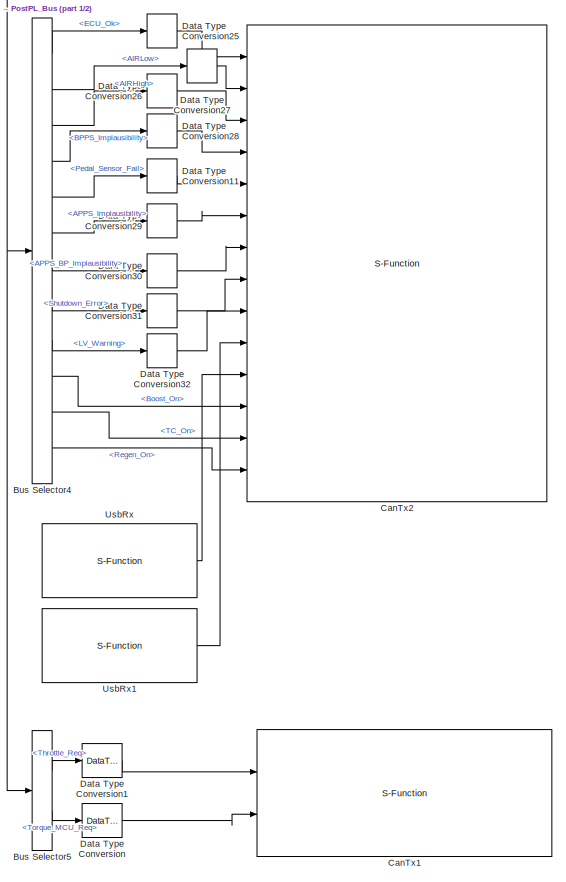
[diagram: DiagCAN6 - part 2/2, full width, bottom band]
BLOCK [SubSystem] DiagCAN6
  Commented = on
  OpenFcn = NsiSys_SubSystemTask_OpenFcn();
  Ports = [1]
  RTWFcnName = DiagCAN6
  RTWFcnNameOpts = User specified
  RTWFileName = FileTaskFcn
  RTWFileNameOpts = Use function name
  RTWSystemCode = Nonreusable function
  RequestExecContextInheritance = off
  SystemSampleTime = [0.1]
  TreatAsAtomicUnit = on
  Variant = off
BLOCK [BusSelector] DiagCAN6/Bus Selector
  OutputAsBus = off
  Ports = [1, 4]
BLOCK [BusSelector] DiagCAN6/Bus Selector1
  OutputAsBus = off
  Ports = [1, 6]
BLOCK [BusSelector] DiagCAN6/Bus Selector2
  OutputAsBus = off
  Ports = [1, 10]
BLOCK [BusSelector] DiagCAN6/Bus Selector3
  OutputAsBus = off
  Ports = [1, 6]
BLOCK [BusSelector] DiagCAN6/Bus Selector4
  OutputAsBus = off
  OutputSignals = Hardwired_Peripherals.ECU_Ok,VFL_Data.DAL_Data.HAL_Data.HAL_Hardwired.AIRLow,VFL_Data.DAL_Data.HAL_Data.HAL_Hardwired.AIRHigh,VFL_Data.DAL_Data.Pedal_Box_Data.BPPS_Implausibility,VFL_Data.DAL_Data.Pedal_Box_Data.Pedal_Sensor_Fail,VFL_Data.DAL_Data.Pedal_Box_Data.APPS_Implausibility,VFL_Data.DAL_Data.Pedal_Box_Data.APPS_BP_Implausibility,VFL_Data.DAL_Data.HAL_Data.HAL_CAN.HAL_CAN.Sensor_Data.Shutdo...<+132ch>  <repeated x3 — deduplicated; at blocks: Bus Selector4>
  Ports = [1, 12]
BLOCK [BusSelector] DiagCAN6/Bus Selector5
  OutputAsBus = off
  OutputSignals = VFL_Data.Drive_Data.Throttle_Req,VFL_Data.Drive_Data.Torque_MCU_Req
  Ports = [1, 2]
BLOCK [S-Function] DiagCAN6/CanTx1
  EnableBusSupport = off
  FunctionName = NsiCan_Tx_Ext
  OpenFcn = NsiCan_Tx_Ext_OpenFcn();
  Parameters = data_can,channel,msg_name,ident,ident_type,dlc,signals,is_physical,is_canfd,is_crc
  Ports = [2]
  SFcnIsStateOwnerBlock = off
  SFunctionDeploymentMode = off
BLOCK [S-Function] DiagCAN6/CanTx2
  EnableBusSupport = off
  FunctionName = NsiCan_Tx_Ext
  OpenFcn = NsiCan_Tx_Ext_OpenFcn();
  Parameters = data_can,channel,msg_name,ident,ident_type,dlc,signals,is_physical,is_canfd,is_crc
  Ports = [14]
  SFcnIsStateOwnerBlock = off
  SFunctionDeploymentMode = off
BLOCK [S-Function] DiagCAN6/CanTx6
  EnableBusSupport = off
  FunctionName = NsiCan_Tx_Ext
  OpenFcn = NsiCan_Tx_Ext_OpenFcn();
  Parameters = data_can,channel,msg_name,ident,ident_type,dlc,signals,is_physical,is_canfd,is_crc
  Ports = [7]
  SFcnIsStateOwnerBlock = off
  SFunctionDeploymentMode = off
BLOCK [S-Function] DiagCAN6/CanTx7
  EnableBusSupport = off
  FunctionName = NsiCan_Tx_Ext
  OpenFcn = NsiCan_Tx_Ext_OpenFcn();
  Parameters = data_can,channel,msg_name,ident,ident_type,dlc,signals,is_physical,is_canfd,is_crc
  Ports = [10]
  SFcnIsStateOwnerBlock = off
  SFunctionDeploymentMode = off
BLOCK [S-Function] DiagCAN6/CanTx8
  EnableBusSupport = off
  FunctionName = NsiCan_Tx_Ext
  OpenFcn = NsiCan_Tx_Ext_OpenFcn();
  Parameters = data_can,channel,msg_name,ident,ident_type,dlc,signals,is_physical,is_canfd,is_crc
  Ports = [6]
  SFcnIsStateOwnerBlock = off
  SFunctionDeploymentMode = off
BLOCK [S-Function] DiagCAN6/CanTx9
  EnableBusSupport = off
  FunctionName = NsiCan_Tx_Ext
  OpenFcn = NsiCan_Tx_Ext_OpenFcn();
  Parameters = data_can,channel,msg_name,ident,ident_type,dlc,signals,is_physical,is_canfd,is_crc
  Ports = [4]
  SFcnIsStateOwnerBlock = off
  SFunctionDeploymentMode = off
BLOCK [DataTypeConversion] DiagCAN6/Data Type Conversion
  OutDataTypeStr = uint16
  RndMeth = Floor
  SaturateOnIntegerOverflow = off
BLOCK [DataTypeConversion] DiagCAN6/Data Type Conversion1
  OutDataTypeStr = uint16
  RndMeth = Floor
  SaturateOnIntegerOverflow = off
BLOCK [DataTypeConversion] DiagCAN6/Data Type Conversion10
  RndMeth = Floor
  SaturateOnIntegerOverflow = off
BLOCK [DataTypeConversion] DiagCAN6/Data Type Conversion11
  RndMeth = Floor
  SaturateOnIntegerOverflow = off
BLOCK [DataTypeConversion] DiagCAN6/Data Type Conversion12
  RndMeth = Floor
  SaturateOnIntegerOverflow = off
BLOCK [DataTypeConversion] DiagCAN6/Data Type Conversion13
  RndMeth = Floor
  SaturateOnIntegerOverflow = off
BLOCK [DataTypeConversion] DiagCAN6/Data Type Conversion14
  RndMeth = Floor
  SaturateOnIntegerOverflow = off
BLOCK [DataTypeConversion] DiagCAN6/Data Type Conversion15
  RndMeth = Floor
  SaturateOnIntegerOverflow = off
BLOCK [DataTypeConversion] DiagCAN6/Data Type Conversion16
  RndMeth = Floor
  SaturateOnIntegerOverflow = off
BLOCK [DataTypeConversion] DiagCAN6/Data Type Conversion17
  RndMeth = Floor
  SaturateOnIntegerOverflow = off
BLOCK [DataTypeConversion] DiagCAN6/Data Type Conversion18
  RndMeth = Floor
  SaturateOnIntegerOverflow = off
BLOCK [DataTypeConversion] DiagCAN6/Data Type Conversion19
  RndMeth = Floor
  SaturateOnIntegerOverflow = off
BLOCK [DataTypeConversion] DiagCAN6/Data Type Conversion2
  RndMeth = Floor
  SaturateOnIntegerOverflow = off
BLOCK [DataTypeConversion] DiagCAN6/Data Type Conversion20
  RndMeth = Floor
  SaturateOnIntegerOverflow = off
BLOCK [DataTypeConversion] DiagCAN6/Data Type Conversion21
  RndMeth = Floor
  SaturateOnIntegerOverflow = off
BLOCK [DataTypeConversion] DiagCAN6/Data Type Conversion22
  RndMeth = Floor
  SaturateOnIntegerOverflow = off
BLOCK [DataTypeConversion] DiagCAN6/Data Type Conversion25
  RndMeth = Floor
  SaturateOnIntegerOverflow = off
BLOCK [DataTypeConversion] DiagCAN6/Data Type Conversion26
  RndMeth = Floor
  SaturateOnIntegerOverflow = off
BLOCK [DataTypeConversion] DiagCAN6/Data Type Conversion27
  RndMeth = Floor
  SaturateOnIntegerOverflow = off
BLOCK [DataTypeConversion] DiagCAN6/Data Type Conversion28
  RndMeth = Floor
  SaturateOnIntegerOverflow = off
BLOCK [DataTypeConversion] DiagCAN6/Data Type Conversion29
  RndMeth = Floor
  SaturateOnIntegerOverflow = off
BLOCK [DataTypeConversion] DiagCAN6/Data Type Conversion3
  RndMeth = Floor
  SaturateOnIntegerOverflow = off
BLOCK [DataTypeConversion] DiagCAN6/Data Type Conversion30
  RndMeth = Floor
  SaturateOnIntegerOverflow = off
BLOCK [DataTypeConversion] DiagCAN6/Data Type Conversion31
  RndMeth = Floor
  SaturateOnIntegerOverflow = off
BLOCK [DataTypeConversion] DiagCAN6/Data Type Conversion32
  RndMeth = Floor
  SaturateOnIntegerOverflow = off
BLOCK [DataTypeConversion] DiagCAN6/Data Type Conversion4
  RndMeth = Floor
  SaturateOnIntegerOverflow = off
BLOCK [DataTypeConversion] DiagCAN6/Data Type Conversion5
  RndMeth = Floor
  SaturateOnIntegerOverflow = off
BLOCK [DataTypeConversion] DiagCAN6/Data Type Conversion6
  RndMeth = Floor
  SaturateOnIntegerOverflow = off
BLOCK [DataTypeConversion] DiagCAN6/Data Type Conversion7
  RndMeth = Floor
  SaturateOnIntegerOverflow = off
BLOCK [DataTypeConversion] DiagCAN6/Data Type Conversion8
  RndMeth = Floor
  SaturateOnIntegerOverflow = off
BLOCK [DataTypeConversion] DiagCAN6/Data Type Conversion9
  RndMeth = Floor
  SaturateOnIntegerOverflow = off
BLOCK [SubSystem] DiagCAN6/Init
  CopyFcn = cccopyfcn(gcb)
  OpenFcn = ccopenfcn('System Initialize Function')
  Ports = []
  RequestExecContextInheritance = off
  Variant = off
BLOCK [Inport] DiagCAN6/PostPL_Bus
  IconDisplay = Port number
BLOCK [S-Function] DiagCAN6/Task
  EnableBusSupport = off
  FunctionName = NsiSys_TaskREF
  OpenFcn = NsiSys_Task_OpenFcn();
  Parameters = task_initialised,task_periodic, task_sampletime,task_name,task_event,task_offset
  Ports = []
  SFcnIsStateOwnerBlock = off
  SFunctionDeploymentMode = off
BLOCK [S-Function] DiagCAN6/UsbRx
  EnableBusSupport = off
  FunctionName = NsiUsb_Rx
  OpenFcn = NsiUsb_Rx_OpenFcn();
  Parameters = signame,sigtype,resolution,offset,unite,value,is_trigger
  Ports = [0, 1]
  SFcnIsStateOwnerBlock = off
  SFunctionDeploymentMode = off
BLOCK [S-Function] DiagCAN6/UsbRx1
  EnableBusSupport = off
  FunctionName = NsiUsb_Rx
  OpenFcn = NsiUsb_Rx_OpenFcn();
  Parameters = signame,sigtype,resolution,offset,unite,value,is_trigger
  Ports = [0, 1]
  SFcnIsStateOwnerBlock = off
  SFunctionDeploymentMode = off
BLOCK [SubSystem] DiagnosticsCAN
  Commented = on
  OpenFcn = NsiSys_SubSystemTask_OpenFcn();
  Ports = [1]
  RTWFcnName = DiagnosticsCAN1
  RTWFcnNameOpts = User specified
  RTWFileName = FileTaskFcn
  RTWFileNameOpts = Use function name
  RTWSystemCode = Nonreusable function
  RequestExecContextInheritance = off
  SystemSampleTime = [0.1]
  TreatAsAtomicUnit = on
  Variant = off
BLOCK [BusSelector] DiagnosticsCAN/Bus Selector
  OutputAsBus = off
  Ports = [1, 4]
BLOCK [BusSelector] DiagnosticsCAN/Bus Selector2
  OutputAsBus = off
  Ports = [1, 5]
BLOCK [BusSelector] DiagnosticsCAN/Bus Selector3
  OutputAsBus = off
  OutputSignals = VFL_Data.VOM_Data.TSS
  Ports = [1, 1]
BLOCK [BusSelector] DiagnosticsCAN/Bus Selector4
  OutputAsBus = off
  OutputSignals = VFL_Data.DAL_Data.HAL_Data.HAL_Hardwired.AIRLow,VFL_Data.DAL_Data.HAL_Data.HAL_Hardwired.AIRHigh
  Ports = [1, 2]
BLOCK [S-Function] DiagnosticsCAN/CanTx2
  EnableBusSupport = off
  FunctionName = NsiCan_Tx_Ext
  OpenFcn = NsiCan_Tx_Ext_OpenFcn();
  Parameters = data_can,channel,msg_name,ident,ident_type,dlc,signals,is_physical,is_canfd,is_crc
  Ports = [14]
  SFcnIsStateOwnerBlock = off
  SFunctionDeploymentMode = off
BLOCK [S-Function] DiagnosticsCAN/CanTx7
  EnableBusSupport = off
  FunctionName = NsiCan_Tx_Ext
  OpenFcn = NsiCan_Tx_Ext_OpenFcn();
  Parameters = data_can,channel,msg_name,ident,ident_type,dlc,signals,is_physical,is_canfd,is_crc
  Ports = [10]
  SFcnIsStateOwnerBlock = off
  SFunctionDeploymentMode = off
BLOCK [S-Function] DiagnosticsCAN/CanTx8
  EnableBusSupport = off
  FunctionName = NsiCan_Tx_Ext
  OpenFcn = NsiCan_Tx_Ext_OpenFcn();
  Parameters = data_can,channel,msg_name,ident,ident_type,dlc,signals,is_physical,is_canfd,is_crc
  Ports = [6]
  SFcnIsStateOwnerBlock = off
  SFunctionDeploymentMode = off
BLOCK [S-Function] DiagnosticsCAN/CanTx9
  EnableBusSupport = off
  FunctionName = NsiCan_Tx_Ext
  OpenFcn = NsiCan_Tx_Ext_OpenFcn();
  Parameters = data_can,channel,msg_name,ident,ident_type,dlc,signals,is_physical,is_canfd,is_crc
  Ports = [4]
  SFcnIsStateOwnerBlock = off
  SFunctionDeploymentMode = off
BLOCK [DataTypeConversion] DiagnosticsCAN/Data Type Conversion16
  RndMeth = Floor
  SaturateOnIntegerOverflow = off
BLOCK [DataTypeConversion] DiagnosticsCAN/Data Type Conversion2
  RndMeth = Floor
  SaturateOnIntegerOverflow = off
BLOCK [DataTypeConversion] DiagnosticsCAN/Data Type Conversion22
  RndMeth = Floor
  SaturateOnIntegerOverflow = off
BLOCK [DataTypeConversion] DiagnosticsCAN/Data Type Conversion26
  RndMeth = Floor
  SaturateOnIntegerOverflow = off
BLOCK [DataTypeConversion] DiagnosticsCAN/Data Type Conversion27
  RndMeth = Floor
  SaturateOnIntegerOverflow = off
BLOCK [DataTypeConversion] DiagnosticsCAN/Data Type Conversion3
  RndMeth = Floor
  SaturateOnIntegerOverflow = off
BLOCK [DataTypeConversion] DiagnosticsCAN/Data Type Conversion4
  RndMeth = Floor
  SaturateOnIntegerOverflow = off
BLOCK [DataTypeConversion] DiagnosticsCAN/Data Type Conversion6
  RndMeth = Floor
  SaturateOnIntegerOverflow = off
BLOCK [SubSystem] DiagnosticsCAN/Init
  CopyFcn = cccopyfcn(gcb)
  OpenFcn = ccopenfcn('System Initialize Function')
  Ports = []
  RequestExecContextInheritance = off
  Variant = off
BLOCK [Inport] DiagnosticsCAN/PostPL_Bus
  IconDisplay = Port number
BLOCK [S-Function] DiagnosticsCAN/Task
  EnableBusSupport = off
  FunctionName = NsiSys_TaskREF
  OpenFcn = NsiSys_Task_OpenFcn();
  Parameters = task_initialised,task_periodic, task_sampletime,task_name,task_event,task_offset
  Ports = []
  SFcnIsStateOwnerBlock = off
  SFunctionDeploymentMode = off
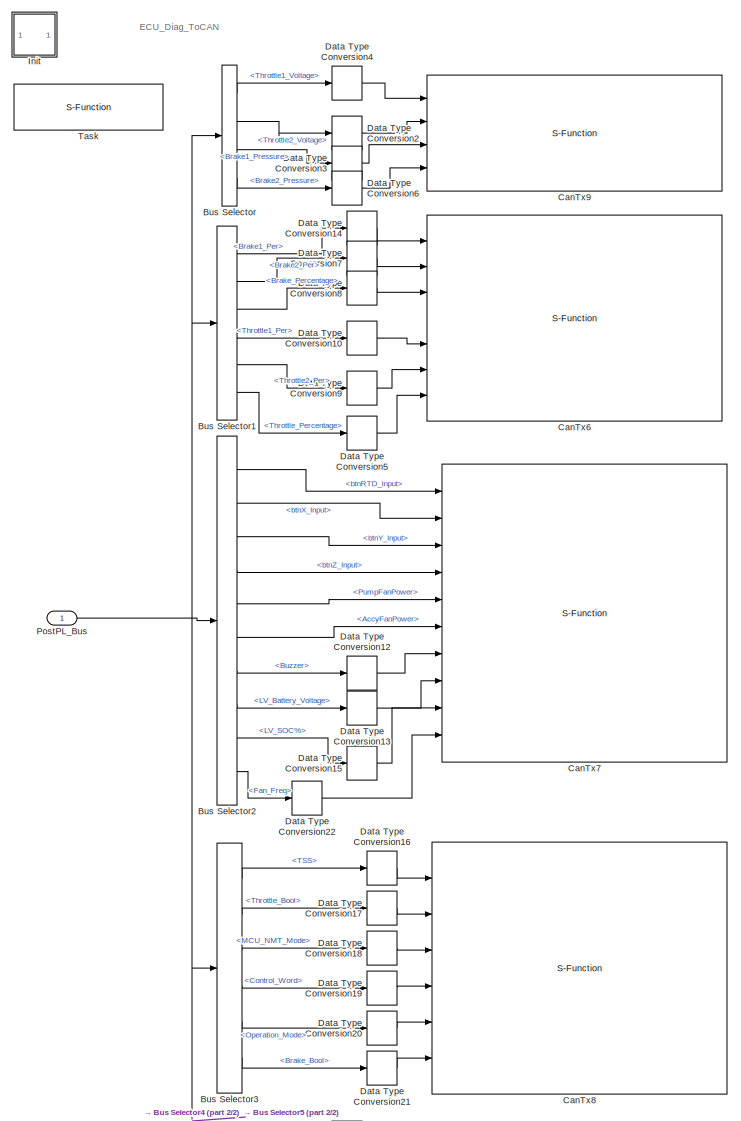
[diagram: DiagnosticsCAN1 - part 1/2, full width, top band]
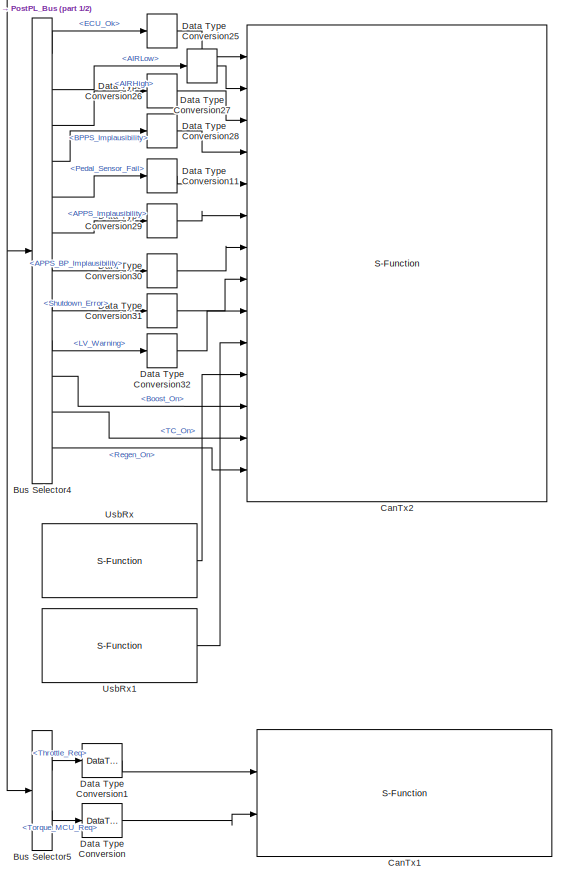
[diagram: DiagnosticsCAN1 - part 2/2, full width, bottom band]
BLOCK [SubSystem] DiagnosticsCAN1
  Commented = on
  OpenFcn = NsiSys_SubSystemTask_OpenFcn();
  Ports = [1]
  RTWFcnName = DiagnosticsCAN2
  RTWFcnNameOpts = User specified
  RTWFileName = FileTaskFcn
  RTWFileNameOpts = Use function name
  RTWSystemCode = Nonreusable function
  RequestExecContextInheritance = off
  SystemSampleTime = [0.1]
  TreatAsAtomicUnit = on
  Variant = off
BLOCK [BusSelector] DiagnosticsCAN1/Bus Selector
  OutputAsBus = off
  Ports = [1, 4]
BLOCK [BusSelector] DiagnosticsCAN1/Bus Selector1
  OutputAsBus = off
  Ports = [1, 6]
BLOCK [BusSelector] DiagnosticsCAN1/Bus Selector2
  OutputAsBus = off
  Ports = [1, 10]
BLOCK [BusSelector] DiagnosticsCAN1/Bus Selector3
  OutputAsBus = off
  Ports = [1, 6]
BLOCK [BusSelector] DiagnosticsCAN1/Bus Selector4
  OutputAsBus = off
  Ports = [1, 12]
BLOCK [BusSelector] DiagnosticsCAN1/Bus Selector5
  OutputAsBus = off
  OutputSignals = VFL_Data.Drive_Data.Throttle_Req,VFL_Data.Drive_Data.Torque_MCU_Req
  Ports = [1, 2]
BLOCK [S-Function] DiagnosticsCAN1/CanTx1
  EnableBusSupport = off
  FunctionName = NsiCan_Tx_Ext
  OpenFcn = NsiCan_Tx_Ext_OpenFcn();
  Parameters = data_can,channel,msg_name,ident,ident_type,dlc,signals,is_physical,is_canfd,is_crc
  Ports = [2]
  SFcnIsStateOwnerBlock = off
  SFunctionDeploymentMode = off
BLOCK [S-Function] DiagnosticsCAN1/CanTx2
  EnableBusSupport = off
  FunctionName = NsiCan_Tx_Ext
  OpenFcn = NsiCan_Tx_Ext_OpenFcn();
  Parameters = data_can,channel,msg_name,ident,ident_type,dlc,signals,is_physical,is_canfd,is_crc
  Ports = [14]
  SFcnIsStateOwnerBlock = off
  SFunctionDeploymentMode = off
BLOCK [S-Function] DiagnosticsCAN1/CanTx6
  EnableBusSupport = off
  FunctionName = NsiCan_Tx_Ext
  OpenFcn = NsiCan_Tx_Ext_OpenFcn();
  Parameters = data_can,channel,msg_name,ident,ident_type,dlc,signals,is_physical,is_canfd,is_crc
  Ports = [7]
  SFcnIsStateOwnerBlock = off
  SFunctionDeploymentMode = off
BLOCK [S-Function] DiagnosticsCAN1/CanTx7
  EnableBusSupport = off
  FunctionName = NsiCan_Tx_Ext
  OpenFcn = NsiCan_Tx_Ext_OpenFcn();
  Parameters = data_can,channel,msg_name,ident,ident_type,dlc,signals,is_physical,is_canfd,is_crc
  Ports = [10]
  SFcnIsStateOwnerBlock = off
  SFunctionDeploymentMode = off
BLOCK [S-Function] DiagnosticsCAN1/CanTx8
  EnableBusSupport = off
  FunctionName = NsiCan_Tx_Ext
  OpenFcn = NsiCan_Tx_Ext_OpenFcn();
  Parameters = data_can,channel,msg_name,ident,ident_type,dlc,signals,is_physical,is_canfd,is_crc
  Ports = [6]
  SFcnIsStateOwnerBlock = off
  SFunctionDeploymentMode = off
BLOCK [S-Function] DiagnosticsCAN1/CanTx9
  EnableBusSupport = off
  FunctionName = NsiCan_Tx_Ext
  OpenFcn = NsiCan_Tx_Ext_OpenFcn();
  Parameters = data_can,channel,msg_name,ident,ident_type,dlc,signals,is_physical,is_canfd,is_crc
  Ports = [4]
  SFcnIsStateOwnerBlock = off
  SFunctionDeploymentMode = off
BLOCK [DataTypeConversion] DiagnosticsCAN1/Data Type Conversion
  OutDataTypeStr = uint16
  RndMeth = Floor
  SaturateOnIntegerOverflow = off
BLOCK [DataTypeConversion] DiagnosticsCAN1/Data Type Conversion1
  OutDataTypeStr = uint16
  RndMeth = Floor
  SaturateOnIntegerOverflow = off
BLOCK [DataTypeConversion] DiagnosticsCAN1/Data Type Conversion10
  RndMeth = Floor
  SaturateOnIntegerOverflow = off
BLOCK [DataTypeConversion] DiagnosticsCAN1/Data Type Conversion11
  RndMeth = Floor
  SaturateOnIntegerOverflow = off
BLOCK [DataTypeConversion] DiagnosticsCAN1/Data Type Conversion12
  RndMeth = Floor
  SaturateOnIntegerOverflow = off
BLOCK [DataTypeConversion] DiagnosticsCAN1/Data Type Conversion13
  RndMeth = Floor
  SaturateOnIntegerOverflow = off
BLOCK [DataTypeConversion] DiagnosticsCAN1/Data Type Conversion14
  RndMeth = Floor
  SaturateOnIntegerOverflow = off
BLOCK [DataTypeConversion] DiagnosticsCAN1/Data Type Conversion15
  RndMeth = Floor
  SaturateOnIntegerOverflow = off
BLOCK [DataTypeConversion] DiagnosticsCAN1/Data Type Conversion16
  RndMeth = Floor
  SaturateOnIntegerOverflow = off
BLOCK [DataTypeConversion] DiagnosticsCAN1/Data Type Conversion17
  RndMeth = Floor
  SaturateOnIntegerOverflow = off
BLOCK [DataTypeConversion] DiagnosticsCAN1/Data Type Conversion18
  RndMeth = Floor
  SaturateOnIntegerOverflow = off
BLOCK [DataTypeConversion] DiagnosticsCAN1/Data Type Conversion19
  RndMeth = Floor
  SaturateOnIntegerOverflow = off
BLOCK [DataTypeConversion] DiagnosticsCAN1/Data Type Conversion2
  RndMeth = Floor
  SaturateOnIntegerOverflow = off
BLOCK [DataTypeConversion] DiagnosticsCAN1/Data Type Conversion20
  RndMeth = Floor
  SaturateOnIntegerOverflow = off
BLOCK [DataTypeConversion] DiagnosticsCAN1/Data Type Conversion21
  RndMeth = Floor
  SaturateOnIntegerOverflow = off
BLOCK [DataTypeConversion] DiagnosticsCAN1/Data Type Conversion22
  RndMeth = Floor
  SaturateOnIntegerOverflow = off
BLOCK [DataTypeConversion] DiagnosticsCAN1/Data Type Conversion25
  RndMeth = Floor
  SaturateOnIntegerOverflow = off
BLOCK [DataTypeConversion] DiagnosticsCAN1/Data Type Conversion26
  RndMeth = Floor
  SaturateOnIntegerOverflow = off
BLOCK [DataTypeConversion] DiagnosticsCAN1/Data Type Conversion27
  RndMeth = Floor
  SaturateOnIntegerOverflow = off
BLOCK [DataTypeConversion] DiagnosticsCAN1/Data Type Conversion28
  RndMeth = Floor
  SaturateOnIntegerOverflow = off
BLOCK [DataTypeConversion] DiagnosticsCAN1/Data Type Conversion29
  RndMeth = Floor
  SaturateOnIntegerOverflow = off
BLOCK [DataTypeConversion] DiagnosticsCAN1/Data Type Conversion3
  RndMeth = Floor
  SaturateOnIntegerOverflow = off
BLOCK [DataTypeConversion] DiagnosticsCAN1/Data Type Conversion30
  RndMeth = Floor
  SaturateOnIntegerOverflow = off
BLOCK [DataTypeConversion] DiagnosticsCAN1/Data Type Conversion31
  RndMeth = Floor
  SaturateOnIntegerOverflow = off
BLOCK [DataTypeConversion] DiagnosticsCAN1/Data Type Conversion32
  RndMeth = Floor
  SaturateOnIntegerOverflow = off
BLOCK [DataTypeConversion] DiagnosticsCAN1/Data Type Conversion4
  RndMeth = Floor
  SaturateOnIntegerOverflow = off
BLOCK [DataTypeConversion] DiagnosticsCAN1/Data Type Conversion5
  RndMeth = Floor
  SaturateOnIntegerOverflow = off
BLOCK [DataTypeConversion] DiagnosticsCAN1/Data Type Conversion6
  RndMeth = Floor
  SaturateOnIntegerOverflow = off
BLOCK [DataTypeConversion] DiagnosticsCAN1/Data Type Conversion7
  RndMeth = Floor
  SaturateOnIntegerOverflow = off
BLOCK [DataTypeConversion] DiagnosticsCAN1/Data Type Conversion8
  RndMeth = Floor
  SaturateOnIntegerOverflow = off
BLOCK [DataTypeConversion] DiagnosticsCAN1/Data Type Conversion9
  RndMeth = Floor
  SaturateOnIntegerOverflow = off
BLOCK [SubSystem] DiagnosticsCAN1/Init
  CopyFcn = cccopyfcn(gcb)
  OpenFcn = ccopenfcn('System Initialize Function')
  Ports = []
  RequestExecContextInheritance = off
  Variant = off
BLOCK [Inport] DiagnosticsCAN1/PostPL_Bus
  IconDisplay = Port number
BLOCK [S-Function] DiagnosticsCAN1/Task
  EnableBusSupport = off
  FunctionName = NsiSys_TaskREF
  OpenFcn = NsiSys_Task_OpenFcn();
  Parameters = task_initialised,task_periodic, task_sampletime,task_name,task_event,task_offset
  Ports = []
  SFcnIsStateOwnerBlock = off
  SFunctionDeploymentMode = off
BLOCK [S-Function] DiagnosticsCAN1/UsbRx
  EnableBusSupport = off
  FunctionName = NsiUsb_Rx
  OpenFcn = NsiUsb_Rx_OpenFcn();
  Parameters = signame,sigtype,resolution,offset,unite,value,is_trigger
  Ports = [0, 1]
  SFcnIsStateOwnerBlock = off
  SFunctionDeploymentMode = off
BLOCK [S-Function] DiagnosticsCAN1/UsbRx1
  EnableBusSupport = off
  FunctionName = NsiUsb_Rx
  OpenFcn = NsiUsb_Rx_OpenFcn();
  Parameters = signame,sigtype,resolution,offset,unite,value,is_trigger
  Ports = [0, 1]
  SFcnIsStateOwnerBlock = off
  SFunctionDeploymentMode = off
BLOCK [SubSystem] DiagnosticsCAN2
  Commented = on
  OpenFcn = NsiSys_SubSystemTask_OpenFcn();
  Ports = [1]
  RTWFcnName = DiagnosticsCAN3
  RTWFcnNameOpts = User specified
  RTWFileName = FileTaskFcn
  RTWFileNameOpts = Use function name
  RTWSystemCode = Nonreusable function
  RequestExecContextInheritance = off
  SystemSampleTime = [0.1]
  TreatAsAtomicUnit = on
  Variant = off
BLOCK [BusSelector] DiagnosticsCAN2/Bus Selector
  OutputAsBus = off
  Ports = [1, 4]
BLOCK [BusSelector] DiagnosticsCAN2/Bus Selector1
  OutputAsBus = off
  Ports = [1, 6]
BLOCK [BusSelector] DiagnosticsCAN2/Bus Selector2
  OutputAsBus = off
  Ports = [1, 5]
BLOCK [BusSelector] DiagnosticsCAN2/Bus Selector3
  OutputAsBus = off
  OutputSignals = VFL_Data.DAL_Data.Pedal_Box_Data.Throttle_Bool,VFL_Data.DAL_Data.Pedal_Box_Data.Brake_Bool
  Ports = [1, 2]
BLOCK [BusSelector] DiagnosticsCAN2/Bus Selector4
  OutputAsBus = off
  OutputSignals = VFL_Data.DAL_Data.HAL_Data.HAL_Hardwired.AIRLow,VFL_Data.DAL_Data.HAL_Data.HAL_Hardwired.AIRHigh,VFL_Data.DAL_Data.Pedal_Box_Data.BPPS_Implausibility,VFL_Data.DAL_Data.Pedal_Box_Data.Pedal_Sensor_Fail,VFL_Data.DAL_Data.Pedal_Box_Data.APPS_Implausibility,VFL_Data.DAL_Data.Pedal_Box_Data.APPS_BP_Implausibility
  Ports = [1, 6]
BLOCK [S-Function] DiagnosticsCAN2/CanTx2
  EnableBusSupport = off
  FunctionName = NsiCan_Tx_Ext
  OpenFcn = NsiCan_Tx_Ext_OpenFcn();
  Parameters = data_can,channel,msg_name,ident,ident_type,dlc,signals,is_physical,is_canfd,is_crc
  Ports = [14]
  SFcnIsStateOwnerBlock = off
  SFunctionDeploymentMode = off
BLOCK [S-Function] DiagnosticsCAN2/CanTx6
  EnableBusSupport = off
  FunctionName = NsiCan_Tx_Ext
  OpenFcn = NsiCan_Tx_Ext_OpenFcn();
  Parameters = data_can,channel,msg_name,ident,ident_type,dlc,signals,is_physical,is_canfd,is_crc
  Ports = [7]
  SFcnIsStateOwnerBlock = off
  SFunctionDeploymentMode = off
BLOCK [S-Function] DiagnosticsCAN2/CanTx7
  EnableBusSupport = off
  FunctionName = NsiCan_Tx_Ext
  OpenFcn = NsiCan_Tx_Ext_OpenFcn();
  Parameters = data_can,channel,msg_name,ident,ident_type,dlc,signals,is_physical,is_canfd,is_crc
  Ports = [10]
  SFcnIsStateOwnerBlock = off
  SFunctionDeploymentMode = off
BLOCK [S-Function] DiagnosticsCAN2/CanTx8
  EnableBusSupport = off
  FunctionName = NsiCan_Tx_Ext
  OpenFcn = NsiCan_Tx_Ext_OpenFcn();
  Parameters = data_can,channel,msg_name,ident,ident_type,dlc,signals,is_physical,is_canfd,is_crc
  Ports = [6]
  SFcnIsStateOwnerBlock = off
  SFunctionDeploymentMode = off
BLOCK [S-Function] DiagnosticsCAN2/CanTx9
  EnableBusSupport = off
  FunctionName = NsiCan_Tx_Ext
  OpenFcn = NsiCan_Tx_Ext_OpenFcn();
  Parameters = data_can,channel,msg_name,ident,ident_type,dlc,signals,is_physical,is_canfd,is_crc
  Ports = [4]
  SFcnIsStateOwnerBlock = off
  SFunctionDeploymentMode = off
BLOCK [DataTypeConversion] DiagnosticsCAN2/Data Type Conversion10
  RndMeth = Floor
  SaturateOnIntegerOverflow = off
BLOCK [DataTypeConversion] DiagnosticsCAN2/Data Type Conversion11
  RndMeth = Floor
  SaturateOnIntegerOverflow = off
BLOCK [DataTypeConversion] DiagnosticsCAN2/Data Type Conversion14
  RndMeth = Floor
  SaturateOnIntegerOverflow = off
BLOCK [DataTypeConversion] DiagnosticsCAN2/Data Type Conversion17
  RndMeth = Floor
  SaturateOnIntegerOverflow = off
BLOCK [DataTypeConversion] DiagnosticsCAN2/Data Type Conversion2
  RndMeth = Floor
  SaturateOnIntegerOverflow = off
BLOCK [DataTypeConversion] DiagnosticsCAN2/Data Type Conversion21
  RndMeth = Floor
  SaturateOnIntegerOverflow = off
BLOCK [DataTypeConversion] DiagnosticsCAN2/Data Type Conversion22
  RndMeth = Floor
  SaturateOnIntegerOverflow = off
BLOCK [DataTypeConversion] DiagnosticsCAN2/Data Type Conversion26
  RndMeth = Floor
  SaturateOnIntegerOverflow = off
BLOCK [DataTypeConversion] DiagnosticsCAN2/Data Type Conversion27
  RndMeth = Floor
  SaturateOnIntegerOverflow = off
BLOCK [DataTypeConversion] DiagnosticsCAN2/Data Type Conversion28
  RndMeth = Floor
  SaturateOnIntegerOverflow = off
BLOCK [DataTypeConversion] DiagnosticsCAN2/Data Type Conversion29
  RndMeth = Floor
  SaturateOnIntegerOverflow = off
BLOCK [DataTypeConversion] DiagnosticsCAN2/Data Type Conversion3
  RndMeth = Floor
  SaturateOnIntegerOverflow = off
BLOCK [DataTypeConversion] DiagnosticsCAN2/Data Type Conversion30
  RndMeth = Floor
  SaturateOnIntegerOverflow = off
BLOCK [DataTypeConversion] DiagnosticsCAN2/Data Type Conversion4
  RndMeth = Floor
  SaturateOnIntegerOverflow = off
BLOCK [DataTypeConversion] DiagnosticsCAN2/Data Type Conversion5
  RndMeth = Floor
  SaturateOnIntegerOverflow = off
BLOCK [DataTypeConversion] DiagnosticsCAN2/Data Type Conversion6
  RndMeth = Floor
  SaturateOnIntegerOverflow = off
BLOCK [DataTypeConversion] DiagnosticsCAN2/Data Type Conversion7
  RndMeth = Floor
  SaturateOnIntegerOverflow = off
BLOCK [DataTypeConversion] DiagnosticsCAN2/Data Type Conversion8
  RndMeth = Floor
  SaturateOnIntegerOverflow = off
BLOCK [DataTypeConversion] DiagnosticsCAN2/Data Type Conversion9
  RndMeth = Floor
  SaturateOnIntegerOverflow = off
BLOCK [SubSystem] DiagnosticsCAN2/Init
  CopyFcn = cccopyfcn(gcb)
  OpenFcn = ccopenfcn('System Initialize Function')
  Ports = []
  RequestExecContextInheritance = off
  Variant = off
BLOCK [Inport] DiagnosticsCAN2/PostPL_Bus
  IconDisplay = Port number
BLOCK [S-Function] DiagnosticsCAN2/Task
  EnableBusSupport = off
  FunctionName = NsiSys_TaskREF
  OpenFcn = NsiSys_Task_OpenFcn();
  Parameters = task_initialised,task_periodic, task_sampletime,task_name,task_event,task_offset
  Ports = []
  SFcnIsStateOwnerBlock = off
  SFunctionDeploymentMode = off
BLOCK [S-Function] DiagnosticsCAN2/UsbRx
  EnableBusSupport = off
  FunctionName = NsiUsb_Rx
  OpenFcn = NsiUsb_Rx_OpenFcn();
  Parameters = signame,sigtype,resolution,offset,unite,value,is_trigger
  Ports = [0, 1]
  SFcnIsStateOwnerBlock = off
  SFunctionDeploymentMode = off
BLOCK [S-Function] DiagnosticsCAN2/UsbRx1
  EnableBusSupport = off
  FunctionName = NsiUsb_Rx
  OpenFcn = NsiUsb_Rx_OpenFcn();
  Parameters = signame,sigtype,resolution,offset,unite,value,is_trigger
  Ports = [0, 1]
  SFcnIsStateOwnerBlock = off
  SFunctionDeploymentMode = off
BLOCK [SubSystem] DiagnosticsCAN3
  Commented = on
  OpenFcn = NsiSys_SubSystemTask_OpenFcn();
  Ports = [1]
  RTWFcnName = DiagnosticsCAN
  RTWFcnNameOpts = User specified
  RTWFileName = FileTaskFcn
  RTWFileNameOpts = Use function name
  RTWSystemCode = Nonreusable function
  RequestExecContextInheritance = off
  SystemSampleTime = [0.1]
  TreatAsAtomicUnit = on
  Variant = off
BLOCK [BusSelector] DiagnosticsCAN3/Bus Selector
  OutputAsBus = off
  Ports = [1, 4]
BLOCK [BusSelector] DiagnosticsCAN3/Bus Selector1
  OutputAsBus = off
  Ports = [1, 6]
BLOCK [BusSelector] DiagnosticsCAN3/Bus Selector2
  OutputAsBus = off
  OutputSignals = VFL_Data.DAL_Data.HAL_Data.HAL_Hardwired.btnRTD_Input,VFL_Data.DAL_Data.HAL_Data.HAL_Hardwired.btnX_Input,VFL_Data.DAL_Data.HAL_Data.HAL_Hardwired.btnY_Input,VFL_Data.DAL_Data.HAL_Data.HAL_Hardwired.btnZ_Input,Hardwired_Peripherals.PumpFanPower,Hardwired_Peripherals.AccyFanPower,VFL_Data.DAL_Data.LV_Battery.LV_Battery_Voltage,VFL_Data.DAL_Data.LV_Battery.LV_SOC%,VFL_Data.DAL_Data.HAL_Data.HAL_Hard...<+14ch>
  Ports = [1, 9]
BLOCK [BusSelector] DiagnosticsCAN3/Bus Selector3
  OutputAsBus = off
  OutputSignals = VFL_Data.DAL_Data.Pedal_Box_Data.Throttle_Bool,VFL_Data.DAL_Data.Pedal_Box_Data.Brake_Bool
  Ports = [1, 2]
BLOCK [BusSelector] DiagnosticsCAN3/Bus Selector4
  OutputAsBus = off
  OutputSignals = VFL_Data.DAL_Data.HAL_Data.HAL_Hardwired.AIRLow,VFL_Data.DAL_Data.HAL_Data.HAL_Hardwired.AIRHigh,VFL_Data.DAL_Data.Pedal_Box_Data.BPPS_Implausibility,VFL_Data.DAL_Data.Pedal_Box_Data.Pedal_Sensor_Fail,VFL_Data.DAL_Data.Pedal_Box_Data.APPS_Implausibility,VFL_Data.DAL_Data.Pedal_Box_Data.APPS_BP_Implausibility,VFL_Data.DAL_Data.LV_Battery.LV_Warning
  Ports = [1, 7]
BLOCK [S-Function] DiagnosticsCAN3/CanTx2
  EnableBusSupport = off
  FunctionName = NsiCan_Tx_Ext
  OpenFcn = NsiCan_Tx_Ext_OpenFcn();
  Parameters = data_can,channel,msg_name,ident,ident_type,dlc,signals,is_physical,is_canfd,is_crc
  Ports = [14]
  SFcnIsStateOwnerBlock = off
  SFunctionDeploymentMode = off
BLOCK [S-Function] DiagnosticsCAN3/CanTx6
  EnableBusSupport = off
  FunctionName = NsiCan_Tx_Ext
  OpenFcn = NsiCan_Tx_Ext_OpenFcn();
  Parameters = data_can,channel,msg_name,ident,ident_type,dlc,signals,is_physical,is_canfd,is_crc
  Ports = [7]
  SFcnIsStateOwnerBlock = off
  SFunctionDeploymentMode = off
BLOCK [S-Function] DiagnosticsCAN3/CanTx7
  EnableBusSupport = off
  FunctionName = NsiCan_Tx_Ext
  OpenFcn = NsiCan_Tx_Ext_OpenFcn();
  Parameters = data_can,channel,msg_name,ident,ident_type,dlc,signals,is_physical,is_canfd,is_crc
  Ports = [10]
  SFcnIsStateOwnerBlock = off
  SFunctionDeploymentMode = off
BLOCK [S-Function] DiagnosticsCAN3/CanTx8
  EnableBusSupport = off
  FunctionName = NsiCan_Tx_Ext
  OpenFcn = NsiCan_Tx_Ext_OpenFcn();
  Parameters = data_can,channel,msg_name,ident,ident_type,dlc,signals,is_physical,is_canfd,is_crc
  Ports = [6]
  SFcnIsStateOwnerBlock = off
  SFunctionDeploymentMode = off
BLOCK [S-Function] DiagnosticsCAN3/CanTx9
  EnableBusSupport = off
  FunctionName = NsiCan_Tx_Ext
  OpenFcn = NsiCan_Tx_Ext_OpenFcn();
  Parameters = data_can,channel,msg_name,ident,ident_type,dlc,signals,is_physical,is_canfd,is_crc
  Ports = [4]
  SFcnIsStateOwnerBlock = off
  SFunctionDeploymentMode = off
BLOCK [DataTypeConversion] DiagnosticsCAN3/Data Type Conversion10
  RndMeth = Floor
  SaturateOnIntegerOverflow = off
BLOCK [DataTypeConversion] DiagnosticsCAN3/Data Type Conversion11
  RndMeth = Floor
  SaturateOnIntegerOverflow = off
BLOCK [DataTypeConversion] DiagnosticsCAN3/Data Type Conversion13
  RndMeth = Floor
  SaturateOnIntegerOverflow = off
BLOCK [DataTypeConversion] DiagnosticsCAN3/Data Type Conversion14
  RndMeth = Floor
  SaturateOnIntegerOverflow = off
BLOCK [DataTypeConversion] DiagnosticsCAN3/Data Type Conversion15
  RndMeth = Floor
  SaturateOnIntegerOverflow = off
BLOCK [DataTypeConversion] DiagnosticsCAN3/Data Type Conversion17
  RndMeth = Floor
  SaturateOnIntegerOverflow = off
BLOCK [DataTypeConversion] DiagnosticsCAN3/Data Type Conversion2
  RndMeth = Floor
  SaturateOnIntegerOverflow = off
BLOCK [DataTypeConversion] DiagnosticsCAN3/Data Type Conversion21
  RndMeth = Floor
  SaturateOnIntegerOverflow = off
BLOCK [DataTypeConversion] DiagnosticsCAN3/Data Type Conversion22
  RndMeth = Floor
  SaturateOnIntegerOverflow = off
BLOCK [DataTypeConversion] DiagnosticsCAN3/Data Type Conversion26
  RndMeth = Floor
  SaturateOnIntegerOverflow = off
BLOCK [DataTypeConversion] DiagnosticsCAN3/Data Type Conversion27
  RndMeth = Floor
  SaturateOnIntegerOverflow = off
BLOCK [DataTypeConversion] DiagnosticsCAN3/Data Type Conversion28
  RndMeth = Floor
  SaturateOnIntegerOverflow = off
BLOCK [DataTypeConversion] DiagnosticsCAN3/Data Type Conversion29
  RndMeth = Floor
  SaturateOnIntegerOverflow = off
BLOCK [DataTypeConversion] DiagnosticsCAN3/Data Type Conversion3
  RndMeth = Floor
  SaturateOnIntegerOverflow = off
BLOCK [DataTypeConversion] DiagnosticsCAN3/Data Type Conversion30
  RndMeth = Floor
  SaturateOnIntegerOverflow = off
BLOCK [DataTypeConversion] DiagnosticsCAN3/Data Type Conversion32
  RndMeth = Floor
  SaturateOnIntegerOverflow = off
BLOCK [DataTypeConversion] DiagnosticsCAN3/Data Type Conversion4
  RndMeth = Floor
  SaturateOnIntegerOverflow = off
BLOCK [DataTypeConversion] DiagnosticsCAN3/Data Type Conversion5
  RndMeth = Floor
  SaturateOnIntegerOverflow = off
BLOCK [DataTypeConversion] DiagnosticsCAN3/Data Type Conversion6
  RndMeth = Floor
  SaturateOnIntegerOverflow = off
BLOCK [DataTypeConversion] DiagnosticsCAN3/Data Type Conversion7
  RndMeth = Floor
  SaturateOnIntegerOverflow = off
BLOCK [DataTypeConversion] DiagnosticsCAN3/Data Type Conversion8
  RndMeth = Floor
  SaturateOnIntegerOverflow = off
BLOCK [DataTypeConversion] DiagnosticsCAN3/Data Type Conversion9
  RndMeth = Floor
  SaturateOnIntegerOverflow = off
BLOCK [SubSystem] DiagnosticsCAN3/Init
  CopyFcn = cccopyfcn(gcb)
  OpenFcn = ccopenfcn('System Initialize Function')
  Ports = []
  RequestExecContextInheritance = off
  Variant = off
BLOCK [Inport] DiagnosticsCAN3/PostPL_Bus
  IconDisplay = Port number
BLOCK [S-Function] DiagnosticsCAN3/Task
  EnableBusSupport = off
  FunctionName = NsiSys_TaskREF
  OpenFcn = NsiSys_Task_OpenFcn();
  Parameters = task_initialised,task_periodic, task_sampletime,task_name,task_event,task_offset
  Ports = []
  SFcnIsStateOwnerBlock = off
  SFunctionDeploymentMode = off
BLOCK [S-Function] DiagnosticsCAN3/UsbRx
  EnableBusSupport = off
  FunctionName = NsiUsb_Rx
  OpenFcn = NsiUsb_Rx_OpenFcn();
  Parameters = signame,sigtype,resolution,offset,unite,value,is_trigger
  Ports = [0, 1]
  SFcnIsStateOwnerBlock = off
  SFunctionDeploymentMode = off
BLOCK [S-Function] DiagnosticsCAN3/UsbRx1
  EnableBusSupport = off
  FunctionName = NsiUsb_Rx
  OpenFcn = NsiUsb_Rx_OpenFcn();
  Parameters = signame,sigtype,resolution,offset,unite,value,is_trigger
  Ports = [0, 1]
  SFcnIsStateOwnerBlock = off
  SFunctionDeploymentMode = off
BLOCK [SubSystem] DiagnosticsCAN4
  Commented = on
  OpenFcn = NsiSys_SubSystemTask_OpenFcn();
  Ports = [1]
  RTWFcnName = DiagnosticsCAN
  RTWFcnNameOpts = User specified
  RTWFileName = FileTaskFcn
  RTWFileNameOpts = Use function name
  RTWSystemCode = Nonreusable function
  RequestExecContextInheritance = off
  SystemSampleTime = [0.1]
  TreatAsAtomicUnit = on
  Variant = off
BLOCK [BusSelector] DiagnosticsCAN4/Bus Selector
  OutputAsBus = off
  Ports = [1, 4]
BLOCK [BusSelector] DiagnosticsCAN4/Bus Selector1
  OutputAsBus = off
  Ports = [1, 6]
BLOCK [BusSelector] DiagnosticsCAN4/Bus Selector2
  OutputAsBus = off
  Ports = [1, 10]
BLOCK [BusSelector] DiagnosticsCAN4/Bus Selector3
  OutputAsBus = off
  Ports = [1, 6]
BLOCK [BusSelector] DiagnosticsCAN4/Bus Selector4
  OutputAsBus = off
  OutputSignals = Hardwired_Peripherals.ECU_Ok,VFL_Data.DAL_Data.HAL_Data.HAL_Hardwired.AIRLow,VFL_Data.DAL_Data.HAL_Data.HAL_Hardwired.AIRHigh,VFL_Data.DAL_Data.Pedal_Box_Data.BPPS_Implausibility,VFL_Data.DAL_Data.Pedal_Box_Data.Pedal_Sensor_Fail,VFL_Data.DAL_Data.Pedal_Box_Data.APPS_Implausibility,VFL_Data.DAL_Data.Pedal_Box_Data.APPS_BP_Implausibility,VFL_Data.DAL_Data.LV_Battery.LV_Warning
  Ports = [1, 8]
BLOCK [S-Function] DiagnosticsCAN4/CanTx2
  EnableBusSupport = off
  FunctionName = NsiCan_Tx_Ext
  OpenFcn = NsiCan_Tx_Ext_OpenFcn();
  Parameters = data_can,channel,msg_name,ident,ident_type,dlc,signals,is_physical,is_canfd,is_crc
  Ports = [14]
  SFcnIsStateOwnerBlock = off
  SFunctionDeploymentMode = off
BLOCK [S-Function] DiagnosticsCAN4/CanTx6
  EnableBusSupport = off
  FunctionName = NsiCan_Tx_Ext
  OpenFcn = NsiCan_Tx_Ext_OpenFcn();
  Parameters = data_can,channel,msg_name,ident,ident_type,dlc,signals,is_physical,is_canfd,is_crc
  Ports = [7]
  SFcnIsStateOwnerBlock = off
  SFunctionDeploymentMode = off
BLOCK [S-Function] DiagnosticsCAN4/CanTx7
  EnableBusSupport = off
  FunctionName = NsiCan_Tx_Ext
  OpenFcn = NsiCan_Tx_Ext_OpenFcn();
  Parameters = data_can,channel,msg_name,ident,ident_type,dlc,signals,is_physical,is_canfd,is_crc
  Ports = [10]
  SFcnIsStateOwnerBlock = off
  SFunctionDeploymentMode = off
BLOCK [S-Function] DiagnosticsCAN4/CanTx8
  EnableBusSupport = off
  FunctionName = NsiCan_Tx_Ext
  OpenFcn = NsiCan_Tx_Ext_OpenFcn();
  Parameters = data_can,channel,msg_name,ident,ident_type,dlc,signals,is_physical,is_canfd,is_crc
  Ports = [6]
  SFcnIsStateOwnerBlock = off
  SFunctionDeploymentMode = off
BLOCK [S-Function] DiagnosticsCAN4/CanTx9
  EnableBusSupport = off
  FunctionName = NsiCan_Tx_Ext
  OpenFcn = NsiCan_Tx_Ext_OpenFcn();
  Parameters = data_can,channel,msg_name,ident,ident_type,dlc,signals,is_physical,is_canfd,is_crc
  Ports = [4]
  SFcnIsStateOwnerBlock = off
  SFunctionDeploymentMode = off
BLOCK [DataTypeConversion] DiagnosticsCAN4/Data Type Conversion10
  RndMeth = Floor
  SaturateOnIntegerOverflow = off
BLOCK [DataTypeConversion] DiagnosticsCAN4/Data Type Conversion11
  RndMeth = Floor
  SaturateOnIntegerOverflow = off
BLOCK [DataTypeConversion] DiagnosticsCAN4/Data Type Conversion12
  RndMeth = Floor
  SaturateOnIntegerOverflow = off
BLOCK [DataTypeConversion] DiagnosticsCAN4/Data Type Conversion13
  RndMeth = Floor
  SaturateOnIntegerOverflow = off
BLOCK [DataTypeConversion] DiagnosticsCAN4/Data Type Conversion14
  RndMeth = Floor
  SaturateOnIntegerOverflow = off
BLOCK [DataTypeConversion] DiagnosticsCAN4/Data Type Conversion15
  RndMeth = Floor
  SaturateOnIntegerOverflow = off
BLOCK [DataTypeConversion] DiagnosticsCAN4/Data Type Conversion16
  RndMeth = Floor
  SaturateOnIntegerOverflow = off
BLOCK [DataTypeConversion] DiagnosticsCAN4/Data Type Conversion17
  RndMeth = Floor
  SaturateOnIntegerOverflow = off
BLOCK [DataTypeConversion] DiagnosticsCAN4/Data Type Conversion18
  RndMeth = Floor
  SaturateOnIntegerOverflow = off
BLOCK [DataTypeConversion] DiagnosticsCAN4/Data Type Conversion19
  RndMeth = Floor
  SaturateOnIntegerOverflow = off
BLOCK [DataTypeConversion] DiagnosticsCAN4/Data Type Conversion2
  RndMeth = Floor
  SaturateOnIntegerOverflow = off
BLOCK [DataTypeConversion] DiagnosticsCAN4/Data Type Conversion20
  RndMeth = Floor
  SaturateOnIntegerOverflow = off
BLOCK [DataTypeConversion] DiagnosticsCAN4/Data Type Conversion21
  RndMeth = Floor
  SaturateOnIntegerOverflow = off
BLOCK [DataTypeConversion] DiagnosticsCAN4/Data Type Conversion22
  RndMeth = Floor
  SaturateOnIntegerOverflow = off
BLOCK [DataTypeConversion] DiagnosticsCAN4/Data Type Conversion25
  RndMeth = Floor
  SaturateOnIntegerOverflow = off
BLOCK [DataTypeConversion] DiagnosticsCAN4/Data Type Conversion26
  RndMeth = Floor
  SaturateOnIntegerOverflow = off
BLOCK [DataTypeConversion] DiagnosticsCAN4/Data Type Conversion27
  RndMeth = Floor
  SaturateOnIntegerOverflow = off
BLOCK [DataTypeConversion] DiagnosticsCAN4/Data Type Conversion28
  RndMeth = Floor
  SaturateOnIntegerOverflow = off
BLOCK [DataTypeConversion] DiagnosticsCAN4/Data Type Conversion29
  RndMeth = Floor
  SaturateOnIntegerOverflow = off
BLOCK [DataTypeConversion] DiagnosticsCAN4/Data Type Conversion3
  RndMeth = Floor
  SaturateOnIntegerOverflow = off
BLOCK [DataTypeConversion] DiagnosticsCAN4/Data Type Conversion30
  RndMeth = Floor
  SaturateOnIntegerOverflow = off
BLOCK [DataTypeConversion] DiagnosticsCAN4/Data Type Conversion32
  RndMeth = Floor
  SaturateOnIntegerOverflow = off
BLOCK [DataTypeConversion] DiagnosticsCAN4/Data Type Conversion4
  RndMeth = Floor
  SaturateOnIntegerOverflow = off
BLOCK [DataTypeConversion] DiagnosticsCAN4/Data Type Conversion5
  RndMeth = Floor
  SaturateOnIntegerOverflow = off
BLOCK [DataTypeConversion] DiagnosticsCAN4/Data Type Conversion6
  RndMeth = Floor
  SaturateOnIntegerOverflow = off
BLOCK [DataTypeConversion] DiagnosticsCAN4/Data Type Conversion7
  RndMeth = Floor
  SaturateOnIntegerOverflow = off
BLOCK [DataTypeConversion] DiagnosticsCAN4/Data Type Conversion8
  RndMeth = Floor
  SaturateOnIntegerOverflow = off
BLOCK [DataTypeConversion] DiagnosticsCAN4/Data Type Conversion9
  RndMeth = Floor
  SaturateOnIntegerOverflow = off
BLOCK [SubSystem] DiagnosticsCAN4/Init
  CopyFcn = cccopyfcn(gcb)
  OpenFcn = ccopenfcn('System Initialize Function')
  Ports = []
  RequestExecContextInheritance = off
  Variant = off
BLOCK [Inport] DiagnosticsCAN4/PostPL_Bus
  IconDisplay = Port number
BLOCK [S-Function] DiagnosticsCAN4/Task
  EnableBusSupport = off
  FunctionName = NsiSys_TaskREF
  OpenFcn = NsiSys_Task_OpenFcn();
  Parameters = task_initialised,task_periodic, task_sampletime,task_name,task_event,task_offset
  Ports = []
  SFcnIsStateOwnerBlock = off
  SFunctionDeploymentMode = off
BLOCK [S-Function] DiagnosticsCAN4/UsbRx
  EnableBusSupport = off
  FunctionName = NsiUsb_Rx
  OpenFcn = NsiUsb_Rx_OpenFcn();
  Parameters = signame,sigtype,resolution,offset,unite,value,is_trigger
  Ports = [0, 1]
  SFcnIsStateOwnerBlock = off
  SFunctionDeploymentMode = off
BLOCK [S-Function] DiagnosticsCAN4/UsbRx1
  EnableBusSupport = off
  FunctionName = NsiUsb_Rx
  OpenFcn = NsiUsb_Rx_OpenFcn();
  Parameters = signame,sigtype,resolution,offset,unite,value,is_trigger
  Ports = [0, 1]
  SFcnIsStateOwnerBlock = off
  SFunctionDeploymentMode = off
BLOCK [SubSystem] DiagnosticsCAN5
  Commented = on
  OpenFcn = NsiSys_SubSystemTask_OpenFcn();
  Ports = [1]
  RTWFcnName = DiagnosticsCAN
  RTWFcnNameOpts = User specified
  RTWFileName = FileTaskFcn
  RTWFileNameOpts = Use function name
  RTWSystemCode = Nonreusable function
  RequestExecContextInheritance = off
  SystemSampleTime = [0.1]
  TreatAsAtomicUnit = on
  Variant = off
BLOCK [BusSelector] DiagnosticsCAN5/Bus Selector
  OutputAsBus = off
  Ports = [1, 4]
BLOCK [BusSelector] DiagnosticsCAN5/Bus Selector1
  OutputAsBus = off
  Ports = [1, 6]
BLOCK [BusSelector] DiagnosticsCAN5/Bus Selector2
  OutputAsBus = off
  Ports = [1, 10]
BLOCK [BusSelector] DiagnosticsCAN5/Bus Selector3
  OutputAsBus = off
  Ports = [1, 6]
BLOCK [BusSelector] DiagnosticsCAN5/Bus Selector4
  OutputAsBus = off
  Ports = [1, 12]
BLOCK [BusSelector] DiagnosticsCAN5/Bus Selector5
  OutputAsBus = off
  OutputSignals = VFL_Data.Drive_Data.Throttle_Req,VFL_Data.Drive_Data.Torque_MCU_Req
  Ports = [1, 2]
BLOCK [S-Function] DiagnosticsCAN5/CanTx1
  EnableBusSupport = off
  FunctionName = NsiCan_Tx_Ext
  OpenFcn = NsiCan_Tx_Ext_OpenFcn();
  Parameters = data_can,channel,msg_name,ident,ident_type,dlc,signals,is_physical,is_canfd,is_crc
  Ports = [2]
  SFcnIsStateOwnerBlock = off
  SFunctionDeploymentMode = off
BLOCK [S-Function] DiagnosticsCAN5/CanTx2
  EnableBusSupport = off
  FunctionName = NsiCan_Tx_Ext
  OpenFcn = NsiCan_Tx_Ext_OpenFcn();
  Parameters = data_can,channel,msg_name,ident,ident_type,dlc,signals,is_physical,is_canfd,is_crc
  Ports = [14]
  SFcnIsStateOwnerBlock = off
  SFunctionDeploymentMode = off
BLOCK [S-Function] DiagnosticsCAN5/CanTx6
  EnableBusSupport = off
  FunctionName = NsiCan_Tx_Ext
  OpenFcn = NsiCan_Tx_Ext_OpenFcn();
  Parameters = data_can,channel,msg_name,ident,ident_type,dlc,signals,is_physical,is_canfd,is_crc
  Ports = [7]
  SFcnIsStateOwnerBlock = off
  SFunctionDeploymentMode = off
BLOCK [S-Function] DiagnosticsCAN5/CanTx7
  EnableBusSupport = off
  FunctionName = NsiCan_Tx_Ext
  OpenFcn = NsiCan_Tx_Ext_OpenFcn();
  Parameters = data_can,channel,msg_name,ident,ident_type,dlc,signals,is_physical,is_canfd,is_crc
  Ports = [10]
  SFcnIsStateOwnerBlock = off
  SFunctionDeploymentMode = off
BLOCK [S-Function] DiagnosticsCAN5/CanTx8
  EnableBusSupport = off
  FunctionName = NsiCan_Tx_Ext
  OpenFcn = NsiCan_Tx_Ext_OpenFcn();
  Parameters = data_can,channel,msg_name,ident,ident_type,dlc,signals,is_physical,is_canfd,is_crc
  Ports = [6]
  SFcnIsStateOwnerBlock = off
  SFunctionDeploymentMode = off
BLOCK [S-Function] DiagnosticsCAN5/CanTx9
  EnableBusSupport = off
  FunctionName = NsiCan_Tx_Ext
  OpenFcn = NsiCan_Tx_Ext_OpenFcn();
  Parameters = data_can,channel,msg_name,ident,ident_type,dlc,signals,is_physical,is_canfd,is_crc
  Ports = [4]
  SFcnIsStateOwnerBlock = off
  SFunctionDeploymentMode = off
BLOCK [DataTypeConversion] DiagnosticsCAN5/Data Type Conversion
  OutDataTypeStr = uint16
  RndMeth = Floor
  SaturateOnIntegerOverflow = off
BLOCK [DataTypeConversion] DiagnosticsCAN5/Data Type Conversion1
  OutDataTypeStr = uint16
  RndMeth = Floor
  SaturateOnIntegerOverflow = off
BLOCK [DataTypeConversion] DiagnosticsCAN5/Data Type Conversion10
  RndMeth = Floor
  SaturateOnIntegerOverflow = off
BLOCK [DataTypeConversion] DiagnosticsCAN5/Data Type Conversion11
  RndMeth = Floor
  SaturateOnIntegerOverflow = off
BLOCK [DataTypeConversion] DiagnosticsCAN5/Data Type Conversion12
  RndMeth = Floor
  SaturateOnIntegerOverflow = off
BLOCK [DataTypeConversion] DiagnosticsCAN5/Data Type Conversion13
  RndMeth = Floor
  SaturateOnIntegerOverflow = off
BLOCK [DataTypeConversion] DiagnosticsCAN5/Data Type Conversion14
  RndMeth = Floor
  SaturateOnIntegerOverflow = off
BLOCK [DataTypeConversion] DiagnosticsCAN5/Data Type Conversion15
  RndMeth = Floor
  SaturateOnIntegerOverflow = off
BLOCK [DataTypeConversion] DiagnosticsCAN5/Data Type Conversion16
  RndMeth = Floor
  SaturateOnIntegerOverflow = off
BLOCK [DataTypeConversion] DiagnosticsCAN5/Data Type Conversion17
  RndMeth = Floor
  SaturateOnIntegerOverflow = off
BLOCK [DataTypeConversion] DiagnosticsCAN5/Data Type Conversion18
  RndMeth = Floor
  SaturateOnIntegerOverflow = off
BLOCK [DataTypeConversion] DiagnosticsCAN5/Data Type Conversion19
  RndMeth = Floor
  SaturateOnIntegerOverflow = off
BLOCK [DataTypeConversion] DiagnosticsCAN5/Data Type Conversion2
  RndMeth = Floor
  SaturateOnIntegerOverflow = off
BLOCK [DataTypeConversion] DiagnosticsCAN5/Data Type Conversion20
  RndMeth = Floor
  SaturateOnIntegerOverflow = off
BLOCK [DataTypeConversion] DiagnosticsCAN5/Data Type Conversion21
  RndMeth = Floor
  SaturateOnIntegerOverflow = off
BLOCK [DataTypeConversion] DiagnosticsCAN5/Data Type Conversion22
  RndMeth = Floor
  SaturateOnIntegerOverflow = off
BLOCK [DataTypeConversion] DiagnosticsCAN5/Data Type Conversion25
  RndMeth = Floor
  SaturateOnIntegerOverflow = off
BLOCK [DataTypeConversion] DiagnosticsCAN5/Data Type Conversion26
  RndMeth = Floor
  SaturateOnIntegerOverflow = off
BLOCK [DataTypeConversion] DiagnosticsCAN5/Data Type Conversion27
  RndMeth = Floor
  SaturateOnIntegerOverflow = off
BLOCK [DataTypeConversion] DiagnosticsCAN5/Data Type Conversion28
  RndMeth = Floor
  SaturateOnIntegerOverflow = off
BLOCK [DataTypeConversion] DiagnosticsCAN5/Data Type Conversion29
  RndMeth = Floor
  SaturateOnIntegerOverflow = off
BLOCK [DataTypeConversion] DiagnosticsCAN5/Data Type Conversion3
  RndMeth = Floor
  SaturateOnIntegerOverflow = off
BLOCK [DataTypeConversion] DiagnosticsCAN5/Data Type Conversion30
  RndMeth = Floor
  SaturateOnIntegerOverflow = off
BLOCK [DataTypeConversion] DiagnosticsCAN5/Data Type Conversion31
  RndMeth = Floor
  SaturateOnIntegerOverflow = off
BLOCK [DataTypeConversion] DiagnosticsCAN5/Data Type Conversion32
  RndMeth = Floor
  SaturateOnIntegerOverflow = off
BLOCK [DataTypeConversion] DiagnosticsCAN5/Data Type Conversion4
  RndMeth = Floor
  SaturateOnIntegerOverflow = off
BLOCK [DataTypeConversion] DiagnosticsCAN5/Data Type Conversion5
  RndMeth = Floor
  SaturateOnIntegerOverflow = off
BLOCK [DataTypeConversion] DiagnosticsCAN5/Data Type Conversion6
  RndMeth = Floor
  SaturateOnIntegerOverflow = off
BLOCK [DataTypeConversion] DiagnosticsCAN5/Data Type Conversion7
  RndMeth = Floor
  SaturateOnIntegerOverflow = off
BLOCK [DataTypeConversion] DiagnosticsCAN5/Data Type Conversion8
  RndMeth = Floor
  SaturateOnIntegerOverflow = off
BLOCK [DataTypeConversion] DiagnosticsCAN5/Data Type Conversion9
  RndMeth = Floor
  SaturateOnIntegerOverflow = off
BLOCK [SubSystem] DiagnosticsCAN5/Init
  CopyFcn = cccopyfcn(gcb)
  OpenFcn = ccopenfcn('System Initialize Function')
  Ports = []
  RequestExecContextInheritance = off
  Variant = off
BLOCK [Inport] DiagnosticsCAN5/PostPL_Bus
  IconDisplay = Port number
BLOCK [S-Function] DiagnosticsCAN5/Task
  EnableBusSupport = off
  FunctionName = NsiSys_TaskREF
  OpenFcn = NsiSys_Task_OpenFcn();
  Parameters = task_initialised,task_periodic, task_sampletime,task_name,task_event,task_offset
  Ports = []
  SFcnIsStateOwnerBlock = off
  SFunctionDeploymentMode = off
BLOCK [S-Function] DiagnosticsCAN5/UsbRx
  EnableBusSupport = off
  FunctionName = NsiUsb_Rx
  OpenFcn = NsiUsb_Rx_OpenFcn();
  Parameters = signame,sigtype,resolution,offset,unite,value,is_trigger
  Ports = [0, 1]
  SFcnIsStateOwnerBlock = off
  SFunctionDeploymentMode = off
BLOCK [S-Function] DiagnosticsCAN5/UsbRx1
  EnableBusSupport = off
  FunctionName = NsiUsb_Rx
  OpenFcn = NsiUsb_Rx_OpenFcn();
  Parameters = signame,sigtype,resolution,offset,unite,value,is_trigger
  Ports = [0, 1]
  SFcnIsStateOwnerBlock = off
  SFunctionDeploymentMode = off
BLOCK [SubSystem] DriveFunction
  Commented = on
  OpenFcn = NsiSys_SubSystemTask_OpenFcn();
  Ports = [0, 1]
  RTWFcnName = DriveFunction
  RTWFcnNameOpts = User specified
  RTWFileName = FileTaskFcn
  RTWFileNameOpts = Use function name
  RTWSystemCode = Nonreusable function
  RequestExecContextInheritance = off
  SystemSampleTime = [0.01]
  TreatAsAtomicUnit = on
  Variant = off
BLOCK [SubSystem] DriveFunction/Comms_And_Data_Acquisition_Layer
  Ports = [0, 1]
  RequestExecContextInheritance = off
  Variant = off
BLOCK [SubSystem] DriveFunction/Comms_And_Data_Acquisition_Layer/BMS_CAN
  Ports = [0, 1]
  RequestExecContextInheritance = off
  Variant = off
BLOCK [Outport] DriveFunction/Comms_And_Data_Acquisition_Layer/BMS_CAN/BMS_Data
  IconDisplay = Port number
BLOCK [BusCreator] DriveFunction/Comms_And_Data_Acquisition_Layer/BMS_CAN/Bus Creator4
  DisplayOption = bar
  InheritFromInputs = on
  Inputs = 9
  Ports = [9, 1]
BLOCK [S-Function] DriveFunction/Comms_And_Data_Acquisition_Layer/BMS_CAN/CanRx6
  EnableBusSupport = off
  FunctionName = NsiCan_Rx_Ext
  OpenFcn = NsiCan_Rx_Ext_OpenFcn();
  Parameters = data_can,channel,msg_name,ident,ident_type,dlc,signals,is_trigger,is_physical,is_canfd,is_rxgw
  Ports = [0, 5]
  SFcnIsStateOwnerBlock = off
  SFunctionDeploymentMode = off
BLOCK [S-Function] DriveFunction/Comms_And_Data_Acquisition_Layer/BMS_CAN/CanRx7
  EnableBusSupport = off
  FunctionName = NsiCan_Rx_Ext
  OpenFcn = NsiCan_Rx_Ext_OpenFcn();
  Parameters = data_can,channel,msg_name,ident,ident_type,dlc,signals,is_trigger,is_physical,is_canfd,is_rxgw
  Ports = [0, 6]
  SFcnIsStateOwnerBlock = off
  SFunctionDeploymentMode = off
BLOCK [BusCreator] DriveFunction/Comms_And_Data_Acquisition_Layer/Bus Creator
  DisplayOption = bar
  InheritFromInputs = on
  Inputs = 2
  Ports = [2, 1]
BLOCK [BusCreator] DriveFunction/Comms_And_Data_Acquisition_Layer/Bus Creator1
  DisplayOption = bar
  InheritFromInputs = on
  Inputs = 3
  Ports = [3, 1]
BLOCK [Outport] DriveFunction/Comms_And_Data_Acquisition_Layer/DAL_Data
  IconDisplay = Port number
BLOCK [SubSystem] DriveFunction/Comms_And_Data_Acquisition_Layer/Hardwired_Inputs_2019
  Ports = [0, 1]
  RequestExecContextInheritance = off
  Variant = off
BLOCK [SubSystem] DriveFunction/Comms_And_Data_Acquisition_Layer/Hardwired_Inputs_2019/AIRs
  Ports = [0, 2]
  RequestExecContextInheritance = off
  Variant = off
BLOCK [Outport] DriveFunction/Comms_And_Data_Acquisition_Layer/Hardwired_Inputs_2019/AIRs/AIRHigh
  IconDisplay = Port number
  Port = 2
BLOCK [Outport] DriveFunction/Comms_And_Data_Acquisition_Layer/Hardwired_Inputs_2019/AIRs/AIRLow
  IconDisplay = Port number
BLOCK [S-Function] DriveFunction/Comms_And_Data_Acquisition_Layer/Hardwired_Inputs_2019/AIRs/DigitalInput
  EnableBusSupport = off
  FunctionName = NsiIo_DigitalInput
  OpenFcn = NsiIo_DigitalInput_OpenFcn();
  Parameters = channel,is_trigger,typeof_trigger,is_wakeup,wakeup_level
  Ports = [0, 1]
  SFcnIsStateOwnerBlock = off
  SFunctionDeploymentMode = off
BLOCK [S-Function] DriveFunction/Comms_And_Data_Acquisition_Layer/Hardwired_Inputs_2019/AIRs/DigitalInput5
  EnableBusSupport = off
  FunctionName = NsiIo_DigitalInput
  OpenFcn = NsiIo_DigitalInput_OpenFcn();
  Parameters = channel,is_trigger,typeof_trigger,is_wakeup,wakeup_level
  Ports = [0, 1]
  SFcnIsStateOwnerBlock = off
  SFunctionDeploymentMode = off
BLOCK [S-Function] DriveFunction/Comms_And_Data_Acquisition_Layer/Hardwired_Inputs_2019/AIRs/UsbTx1
  EnableBusSupport = off
  FunctionName = NsiUsb_Tx
  OpenFcn = NsiUsb_Tx_OpenFcn();
  Parameters = signame,resolution,offset,unite
  Ports = [1]
  SFcnIsStateOwnerBlock = off
  SFunctionDeploymentMode = off
BLOCK [S-Function] DriveFunction/Comms_And_Data_Acquisition_Layer/Hardwired_Inputs_2019/AIRs/UsbTx2
  EnableBusSupport = off
  FunctionName = NsiUsb_Tx
  OpenFcn = NsiUsb_Tx_OpenFcn();
  Parameters = signame,resolution,offset,unite
  Ports = [1]
  SFcnIsStateOwnerBlock = off
  SFunctionDeploymentMode = off
BLOCK [SubSystem] DriveFunction/Comms_And_Data_Acquisition_Layer/Hardwired_Inputs_2019/BMS
  Ports = [0, 3]
  RequestExecContextInheritance = off
  Variant = off
BLOCK [Outport] DriveFunction/Comms_And_Data_Acquisition_Layer/Hardwired_Inputs_2019/BMS/BMS_ChargeEnable
  IconDisplay = Port number
  Port = 3
BLOCK [Outport] DriveFunction/Comms_And_Data_Acquisition_Layer/Hardwired_Inputs_2019/BMS/BMS_Multi1
  IconDisplay = Port number
BLOCK [Outport] DriveFunction/Comms_And_Data_Acquisition_Layer/Hardwired_Inputs_2019/BMS/BMS_Multi2
  IconDisplay = Port number
  Port = 2
BLOCK [S-Function] DriveFunction/Comms_And_Data_Acquisition_Layer/Hardwired_Inputs_2019/BMS/DigitalInput1
  EnableBusSupport = off
  FunctionName = NsiIo_DigitalInput
  OpenFcn = NsiIo_DigitalInput_OpenFcn();
  Parameters = channel,is_trigger,typeof_trigger,is_wakeup,wakeup_level
  Ports = [0, 1]
  SFcnIsStateOwnerBlock = off
  SFunctionDeploymentMode = off
BLOCK [S-Function] DriveFunction/Comms_And_Data_Acquisition_Layer/Hardwired_Inputs_2019/BMS/DigitalInput2
  EnableBusSupport = off
  FunctionName = NsiIo_DigitalInput
  OpenFcn = NsiIo_DigitalInput_OpenFcn();
  Parameters = channel,is_trigger,typeof_trigger,is_wakeup,wakeup_level
  Ports = [0, 1]
  SFcnIsStateOwnerBlock = off
  SFunctionDeploymentMode = off
BLOCK [S-Function] DriveFunction/Comms_And_Data_Acquisition_Layer/Hardwired_Inputs_2019/BMS/DigitalInput6
  EnableBusSupport = off
  FunctionName = NsiIo_DigitalInput
  OpenFcn = NsiIo_DigitalInput_OpenFcn();
  Parameters = channel,is_trigger,typeof_trigger,is_wakeup,wakeup_level
  Ports = [0, 1]
  SFcnIsStateOwnerBlock = off
  SFunctionDeploymentMode = off
BLOCK [BusCreator] DriveFunction/Comms_And_Data_Acquisition_Layer/Hardwired_Inputs_2019/Bus Creator
  DisplayOption = bar
  InheritFromInputs = on
  Inputs = 18
  Ports = [18, 1]
BLOCK [SubSystem] DriveFunction/Comms_And_Data_Acquisition_Layer/Hardwired_Inputs_2019/Buttons
  Ports = [0, 6]
  RequestExecContextInheritance = off
  Variant = off
BLOCK [S-Function] DriveFunction/Comms_And_Data_Acquisition_Layer/Hardwired_Inputs_2019/Buttons/DigitalInput1
  EnableBusSupport = off
  FunctionName = NsiIo_DigitalInput
  OpenFcn = NsiIo_DigitalInput_OpenFcn();
  Parameters = channel,is_trigger,typeof_trigger,is_wakeup,wakeup_level
  Ports = [0, 1]
  SFcnIsStateOwnerBlock = off
  SFunctionDeploymentMode = off
BLOCK [S-Function] DriveFunction/Comms_And_Data_Acquisition_Layer/Hardwired_Inputs_2019/Buttons/DigitalInput2
  EnableBusSupport = off
  FunctionName = NsiIo_DigitalInput
  OpenFcn = NsiIo_DigitalInput_OpenFcn();
  Parameters = channel,is_trigger,typeof_trigger,is_wakeup,wakeup_level
  Ports = [0, 1]
  SFcnIsStateOwnerBlock = off
  SFunctionDeploymentMode = off
BLOCK [S-Function] DriveFunction/Comms_And_Data_Acquisition_Layer/Hardwired_Inputs_2019/Buttons/DigitalInput3
  EnableBusSupport = off
  FunctionName = NsiIo_DigitalInput
  OpenFcn = NsiIo_DigitalInput_OpenFcn();
  Parameters = channel,is_trigger,typeof_trigger,is_wakeup,wakeup_level
  Ports = [0, 1]
  SFcnIsStateOwnerBlock = off
  SFunctionDeploymentMode = off
BLOCK [S-Function] DriveFunction/Comms_And_Data_Acquisition_Layer/Hardwired_Inputs_2019/Buttons/DigitalInput4
  EnableBusSupport = off
  FunctionName = NsiIo_DigitalInput
  OpenFcn = NsiIo_DigitalInput_OpenFcn();
  Parameters = channel,is_trigger,typeof_trigger,is_wakeup,wakeup_level
  Ports = [0, 1]
  SFcnIsStateOwnerBlock = off
  SFunctionDeploymentMode = off
BLOCK [S-Function] DriveFunction/Comms_And_Data_Acquisition_Layer/Hardwired_Inputs_2019/Buttons/DigitalInput5
  EnableBusSupport = off
  FunctionName = NsiIo_DigitalInput
  OpenFcn = NsiIo_DigitalInput_OpenFcn();
  Parameters = channel,is_trigger,typeof_trigger,is_wakeup,wakeup_level
  Ports = [0, 1]
  SFcnIsStateOwnerBlock = off
  SFunctionDeploymentMode = off
BLOCK [S-Function] DriveFunction/Comms_And_Data_Acquisition_Layer/Hardwired_Inputs_2019/Buttons/DigitalInput6
  EnableBusSupport = off
  FunctionName = NsiIo_DigitalInput
  OpenFcn = NsiIo_DigitalInput_OpenFcn();
  Parameters = channel,is_trigger,typeof_trigger,is_wakeup,wakeup_level
  Ports = [0, 1]
  SFcnIsStateOwnerBlock = off
  SFunctionDeploymentMode = off
BLOCK [Outport] DriveFunction/Comms_And_Data_Acquisition_Layer/Hardwired_Inputs_2019/Buttons/btnAccyFan_Input
  IconDisplay = Port number
  Port = 6
BLOCK [Outport] DriveFunction/Comms_And_Data_Acquisition_Layer/Hardwired_Inputs_2019/Buttons/btnPumpFan_Input
  IconDisplay = Port number
  Port = 5
BLOCK [Outport] DriveFunction/Comms_And_Data_Acquisition_Layer/Hardwired_Inputs_2019/Buttons/btnRTD_Input
  IconDisplay = Port number
BLOCK [Outport] DriveFunction/Comms_And_Data_Acquisition_Layer/Hardwired_Inputs_2019/Buttons/btnX_Input
  IconDisplay = Port number
  Port = 2
BLOCK [Outport] DriveFunction/Comms_And_Data_Acquisition_Layer/Hardwired_Inputs_2019/Buttons/btnY_Input
  IconDisplay = Port number
  Port = 3
BLOCK [Outport] DriveFunction/Comms_And_Data_Acquisition_Layer/Hardwired_Inputs_2019/Buttons/btnZ_Input
  IconDisplay = Port number
  Port = 4
BLOCK [S-Function] DriveFunction/Comms_And_Data_Acquisition_Layer/Hardwired_Inputs_2019/FrequentialInput1
  EnableBusSupport = off
  FunctionName = NsiIo_FrequencyInput
  OpenFcn = NsiIo_FrequencyInput_OpenFcn();
  Parameters = channel,max_freq,is_digital_input,DutyCycle,MUXlabType
  Ports = [0, 1]
  SFcnIsStateOwnerBlock = off
  SFunctionDeploymentMode = off
BLOCK [Outport] DriveFunction/Comms_And_Data_Acquisition_Layer/Hardwired_Inputs_2019/Hardwired_Inputs
  IconDisplay = Port number
BLOCK [SubSystem] DriveFunction/Comms_And_Data_Acquisition_Layer/Hardwired_Inputs_2019/Pedal_Box
  Ports = [0, 5]
  RequestExecContextInheritance = off
  Variant = off
BLOCK [S-Function] DriveFunction/Comms_And_Data_Acquisition_Layer/Hardwired_Inputs_2019/Pedal_Box/AnalogInput1
  EnableBusSupport = off
  FunctionName = NsiIo_AnalogInput
  OpenFcn = NsiIo_AnalogInput_OpenFcn();
  Parameters = channel
  Ports = [0, 1]
  SFcnIsStateOwnerBlock = off
  SFunctionDeploymentMode = off
BLOCK [S-Function] DriveFunction/Comms_And_Data_Acquisition_Layer/Hardwired_Inputs_2019/Pedal_Box/AnalogInput2
  EnableBusSupport = off
  FunctionName = NsiIo_AnalogInput
  OpenFcn = NsiIo_AnalogInput_OpenFcn();
  Parameters = channel
  Ports = [0, 1]
  SFcnIsStateOwnerBlock = off
  SFunctionDeploymentMode = off
BLOCK [S-Function] DriveFunction/Comms_And_Data_Acquisition_Layer/Hardwired_Inputs_2019/Pedal_Box/AnalogInput3
  EnableBusSupport = off
  FunctionName = NsiIo_AnalogInput
  OpenFcn = NsiIo_AnalogInput_OpenFcn();
  Parameters = channel
  Ports = [0, 1]
  SFcnIsStateOwnerBlock = off
  SFunctionDeploymentMode = off
BLOCK [S-Function] DriveFunction/Comms_And_Data_Acquisition_Layer/Hardwired_Inputs_2019/Pedal_Box/AnalogInput6
  EnableBusSupport = off
  FunctionName = NsiIo_AnalogInput
  OpenFcn = NsiIo_AnalogInput_OpenFcn();
  Parameters = channel
  Ports = [0, 1]
  SFcnIsStateOwnerBlock = off
  SFunctionDeploymentMode = off
BLOCK [S-Function] DriveFunction/Comms_And_Data_Acquisition_Layer/Hardwired_Inputs_2019/Pedal_Box/AnalogInput7
  EnableBusSupport = off
  FunctionName = NsiIo_AnalogInput
  OpenFcn = NsiIo_AnalogInput_OpenFcn();
  Parameters = channel
  Ports = [0, 1]
  SFcnIsStateOwnerBlock = off
  SFunctionDeploymentMode = off
BLOCK [Outport] DriveFunction/Comms_And_Data_Acquisition_Layer/Hardwired_Inputs_2019/Pedal_Box/Brake1_Pressure
  IconDisplay = Port number
  Port = 4
BLOCK [Outport] DriveFunction/Comms_And_Data_Acquisition_Layer/Hardwired_Inputs_2019/Pedal_Box/Brake2_Pressure
  IconDisplay = Port number
  Port = 5
BLOCK [Outport] DriveFunction/Comms_And_Data_Acquisition_Layer/Hardwired_Inputs_2019/Pedal_Box/Brake_Voltage
  IconDisplay = Port number
  Port = 3
BLOCK [Outport] DriveFunction/Comms_And_Data_Acquisition_Layer/Hardwired_Inputs_2019/Pedal_Box/Throttle1_Voltage
  IconDisplay = Port number
BLOCK [Outport] DriveFunction/Comms_And_Data_Acquisition_Layer/Hardwired_Inputs_2019/Pedal_Box/Throttle2_Voltage
  IconDisplay = Port number
  Port = 2
BLOCK [S-Function] DriveFunction/Comms_And_Data_Acquisition_Layer/Hardwired_Inputs_2019/VBat
  EnableBusSupport = off
  FunctionName = NsiIo_Vbat
  OpenFcn = NsiIo_Vbat_OpenFcn();
  Ports = [0, 1]
  SFcnIsStateOwnerBlock = off
  SFunctionDeploymentMode = off
BLOCK [SubSystem] DriveFunction/Comms_And_Data_Acquisition_Layer/MCU_CAN
  Ports = [0, 1]
  RequestExecContextInheritance = off
  Variant = off
BLOCK [BusCreator] DriveFunction/Comms_And_Data_Acquisition_Layer/MCU_CAN/Bus Creator1
  DisplayOption = bar
  InheritFromInputs = on
  Inputs = 4
  Ports = [4, 1]
BLOCK [S-Function] DriveFunction/Comms_And_Data_Acquisition_Layer/MCU_CAN/CanRx1
  EnableBusSupport = off
  FunctionName = NsiCan_Rx_J1939_Ext
  OpenFcn = NsiCan_Rx_J1939_Ext_OpenFcn();
  Parameters = data_can,channel,msg_name,ident,ident_type,dlc,signals,is_trigger,is_SA_Masked,is_TA_Masked,is_physical,is_canfd
  Ports = [0, 3]
  SFcnIsStateOwnerBlock = off
  SFunctionDeploymentMode = off
BLOCK [S-Function] DriveFunction/Comms_And_Data_Acquisition_Layer/MCU_CAN/CanRx2
  EnableBusSupport = off
  FunctionName = NsiCan_Rx_J1939_Ext
  OpenFcn = NsiCan_Rx_J1939_Ext_OpenFcn();
  Parameters = data_can,channel,msg_name,ident,ident_type,dlc,signals,is_trigger,is_SA_Masked,is_TA_Masked,is_physical,is_canfd
  Ports = [0, 2]
  SFcnIsStateOwnerBlock = off
  SFunctionDeploymentMode = off
BLOCK [S-Function] DriveFunction/Comms_And_Data_Acquisition_Layer/MCU_CAN/CanRx3
  EnableBusSupport = off
  FunctionName = NsiCan_Rx_J1939_Ext
  OpenFcn = NsiCan_Rx_J1939_Ext_OpenFcn();
  Parameters = data_can,channel,msg_name,ident,ident_type,dlc,signals,is_trigger,is_SA_Masked,is_TA_Masked,is_physical,is_canfd
  Ports = [0, 2]
  SFcnIsStateOwnerBlock = off
  SFunctionDeploymentMode = off
BLOCK [Outport] DriveFunction/Comms_And_Data_Acquisition_Layer/MCU_CAN/HAL_MCU
  IconDisplay = Port number
BLOCK [SubSystem] DriveFunction/Comms_And_Data_Acquisition_Layer/SENSOR_CAN
  Ports = [0, 1]
  RequestExecContextInheritance = off
  Variant = off
BLOCK [BusCreator] DriveFunction/Comms_And_Data_Acquisition_Layer/SENSOR_CAN/Bus Creator3
  DisplayOption = bar
  InheritFromInputs = on
  Inputs = 9
  Ports = [9, 1]
BLOCK [S-Function] DriveFunction/Comms_And_Data_Acquisition_Layer/SENSOR_CAN/CanRx1
  EnableBusSupport = off
  FunctionName = NsiCan_Rx_Ext
  OpenFcn = NsiCan_Rx_Ext_OpenFcn();
  Parameters = data_can,channel,msg_name,ident,ident_type,dlc,signals,is_trigger,is_physical,is_canfd,is_rxgw
  Ports = [0, 4]
  SFcnIsStateOwnerBlock = off
  SFunctionDeploymentMode = off
BLOCK [S-Function] DriveFunction/Comms_And_Data_Acquisition_Layer/SENSOR_CAN/CanRx2
  EnableBusSupport = off
  FunctionName = NsiCan_Rx_Ext
  OpenFcn = NsiCan_Rx_Ext_OpenFcn();
  Parameters = data_can,channel,msg_name,ident,ident_type,dlc,signals,is_trigger,is_physical,is_canfd,is_rxgw
  Ports = [0, 4]
  SFcnIsStateOwnerBlock = off
  SFunctionDeploymentMode = off
BLOCK [S-Function] DriveFunction/Comms_And_Data_Acquisition_Layer/SENSOR_CAN/CanRx5
  EnableBusSupport = off
  FunctionName = NsiCan_Rx_Ext
  OpenFcn = NsiCan_Rx_Ext_OpenFcn();
  Parameters = data_can,channel,msg_name,ident,ident_type,dlc,signals,is_trigger,is_physical,is_canfd,is_rxgw
  Ports = [0, 2]
  SFcnIsStateOwnerBlock = off
  SFunctionDeploymentMode = off
BLOCK [S-Function] DriveFunction/Comms_And_Data_Acquisition_Layer/SENSOR_CAN/CanRx8
  EnableBusSupport = off
  FunctionName = NsiCan_Rx_Ext
  OpenFcn = NsiCan_Rx_Ext_OpenFcn();
  Parameters = data_can,channel,msg_name,ident,ident_type,dlc,signals,is_trigger,is_physical,is_canfd,is_rxgw
  Ports = [0, 2]
  SFcnIsStateOwnerBlock = off
  SFunctionDeploymentMode = off
BLOCK [S-Function] DriveFunction/Comms_And_Data_Acquisition_Layer/SENSOR_CAN/CanRx9
  EnableBusSupport = off
  FunctionName = NsiCan_Rx_Ext
  OpenFcn = NsiCan_Rx_Ext_OpenFcn();
  Parameters = data_can,channel,msg_name,ident,ident_type,dlc,signals,is_trigger,is_physical,is_canfd,is_rxgw
  Ports = [0, 2]
  SFcnIsStateOwnerBlock = off
  SFunctionDeploymentMode = off
BLOCK [Outport] DriveFunction/Comms_And_Data_Acquisition_Layer/SENSOR_CAN/Sensor_Data
  IconDisplay = Port number
BLOCK [SubSystem] DriveFunction/Comms_And_Data_Output_Layer
  Ports = [1]
  RequestExecContextInheritance = off
  Variant = off
BLOCK [SubSystem] DriveFunction/Comms_And_Data_Output_Layer/Hardwired_Ouputs
  Ports = [1]
  RequestExecContextInheritance = off
  Variant = off
BLOCK [S-Function] DriveFunction/Comms_And_Data_Output_Layer/Hardwired_Ouputs/AnalogOutput1
  Description = This block interface the 8 Analog Outputs. The analog outputs are 0/20V. Voltage input is set in mV
  EnableBusSupport = off
  FunctionName = NsiIo_AnalogOutput
  OpenFcn = NsiIo_AnalogOutput_OpenFcn();
  Parameters = Channel,Feedback
  Ports = [1]
  SFcnIsStateOwnerBlock = off
  SFunctionDeploymentMode = off
BLOCK [BusSelector] DriveFunction/Comms_And_Data_Output_Layer/Hardwired_Ouputs/Bus Selector
  OutputAsBus = off
  OutputSignals = Hardwired_Peripherals.Coolant_Enable,Hardwired_Peripherals.PumpFanPower,Hardwired_Peripherals.AccyFanPower,Hardwired_Peripherals.Brake_Light,Hardwired_Peripherals.Buzzer,Hardwired_Peripherals.ECU_Ok
  Ports = [1, 6]
BLOCK [S-Function] DriveFunction/Comms_And_Data_Output_Layer/Hardwired_Ouputs/DigitalOutput2
  EnableBusSupport = off
  FunctionName = NsiIo_DigitalOutput
  OpenFcn = NsiIo_DigitalOutput_OpenFcn();
  Parameters = channel,side,feedback
  Ports = [1]
  SFcnIsStateOwnerBlock = off
  SFunctionDeploymentMode = off
BLOCK [S-Function] DriveFunction/Comms_And_Data_Output_Layer/Hardwired_Ouputs/DigitalOutput3
  EnableBusSupport = off
  FunctionName = NsiIo_DigitalOutput
  OpenFcn = NsiIo_DigitalOutput_OpenFcn();
  Parameters = channel,side,feedback
  Ports = [1]
  SFcnIsStateOwnerBlock = off
  SFunctionDeploymentMode = off
BLOCK [S-Function] DriveFunction/Comms_And_Data_Output_Layer/Hardwired_Ouputs/DigitalOutput4
  EnableBusSupport = off
  FunctionName = NsiIo_DigitalOutput
  OpenFcn = NsiIo_DigitalOutput_OpenFcn();
  Parameters = channel,side,feedback
  Ports = [1]
  SFcnIsStateOwnerBlock = off
  SFunctionDeploymentMode = off
BLOCK [S-Function] DriveFunction/Comms_And_Data_Output_Layer/Hardwired_Ouputs/DigitalOutput5
  EnableBusSupport = off
  FunctionName = NsiIo_DigitalOutput
  OpenFcn = NsiIo_DigitalOutput_OpenFcn();
  Parameters = channel,side,feedback
  Ports = [1]
  SFcnIsStateOwnerBlock = off
  SFunctionDeploymentMode = off
BLOCK [S-Function] DriveFunction/Comms_And_Data_Output_Layer/Hardwired_Ouputs/DigitalOutput6
  EnableBusSupport = off
  FunctionName = NsiIo_DigitalOutput
  OpenFcn = NsiIo_DigitalOutput_OpenFcn();
  Parameters = channel,side,feedback
  Ports = [1]
  SFcnIsStateOwnerBlock = off
  SFunctionDeploymentMode = off
BLOCK [S-Function] DriveFunction/Comms_And_Data_Output_Layer/Hardwired_Ouputs/DigitalOutput7
  EnableBusSupport = off
  FunctionName = NsiIo_DigitalOutput
  OpenFcn = NsiIo_DigitalOutput_OpenFcn();
  Parameters = channel,side,feedback
  Ports = [1]
  SFcnIsStateOwnerBlock = off
  SFunctionDeploymentMode = off
BLOCK [Inport] DriveFunction/Comms_And_Data_Output_Layer/Hardwired_Ouputs/PostPL_Data
  IconDisplay = Port number
BLOCK [SubSystem] DriveFunction/Comms_And_Data_Output_Layer/LEDs
  Ports = [1]
  RequestExecContextInheritance = off
  Variant = off
BLOCK [BusSelector] DriveFunction/Comms_And_Data_Output_Layer/LEDs/Bus Selector
  OutputAsBus = off
  OutputSignals = LEDs.RTD_LED,LEDs.X_LED,LEDs.Y_LED,LEDs.Z_LED,LEDs.APPS_LED
  Ports = [1, 5]
BLOCK [S-Function] DriveFunction/Comms_And_Data_Output_Layer/LEDs/DigitalOutput1
  EnableBusSupport = off
  FunctionName = NsiIo_DigitalOutput
  OpenFcn = NsiIo_DigitalOutput_OpenFcn();
  Parameters = channel,side,feedback
  Ports = [1]
  SFcnIsStateOwnerBlock = off
  SFunctionDeploymentMode = off
BLOCK [S-Function] DriveFunction/Comms_And_Data_Output_Layer/LEDs/DigitalOutput2
  EnableBusSupport = off
  FunctionName = NsiIo_DigitalOutput
  OpenFcn = NsiIo_DigitalOutput_OpenFcn();
  Parameters = channel,side,feedback
  Ports = [1]
  SFcnIsStateOwnerBlock = off
  SFunctionDeploymentMode = off
BLOCK [S-Function] DriveFunction/Comms_And_Data_Output_Layer/LEDs/DigitalOutput3
  EnableBusSupport = off
  FunctionName = NsiIo_DigitalOutput
  OpenFcn = NsiIo_DigitalOutput_OpenFcn();
  Parameters = channel,side,feedback
  Ports = [1]
  SFcnIsStateOwnerBlock = off
  SFunctionDeploymentMode = off
BLOCK [S-Function] DriveFunction/Comms_And_Data_Output_Layer/LEDs/DigitalOutput4
  EnableBusSupport = off
  FunctionName = NsiIo_DigitalOutput
  OpenFcn = NsiIo_DigitalOutput_OpenFcn();
  Parameters = channel,side,feedback
  Ports = [1]
  SFcnIsStateOwnerBlock = off
  SFunctionDeploymentMode = off
BLOCK [S-Function] DriveFunction/Comms_And_Data_Output_Layer/LEDs/DigitalOutput5
  EnableBusSupport = off
  FunctionName = NsiIo_DigitalOutput
  OpenFcn = NsiIo_DigitalOutput_OpenFcn();
  Parameters = channel,side,feedback
  Ports = [1]
  SFcnIsStateOwnerBlock = off
  SFunctionDeploymentMode = off
BLOCK [Inport] DriveFunction/Comms_And_Data_Output_Layer/LEDs/PostPL_Data
  IconDisplay = Port number
BLOCK [Inport] DriveFunction/Comms_And_Data_Output_Layer/PostPL_Data
  IconDisplay = Port number
BLOCK [Outport] DriveFunction/Data_Bus
  IconDisplay = Port number
BLOCK [SubSystem] DriveFunction/Init
  CopyFcn = cccopyfcn(gcb)
  OpenFcn = ccopenfcn('System Initialize Function')
  Ports = []
  RequestExecContextInheritance = off
  Variant = off
BLOCK [SubSystem] DriveFunction/Post_Processing_Layer
  Ports = [1, 1]
  RequestExecContextInheritance = off
  Variant = off
BLOCK [BusCreator] DriveFunction/Post_Processing_Layer/Bus Creator1
  DisplayOption = bar
  InheritFromInputs = on
  Inputs = 3
  Ports = [3, 1]
BLOCK [SubSystem] DriveFunction/Post_Processing_Layer/Dash_LEDs
  Ports = [1, 1]
  RequestExecContextInheritance = off
  Variant = off
BLOCK [BusCreator] DriveFunction/Post_Processing_Layer/Dash_LEDs/Bus Creator
  DisplayOption = bar
  InheritFromInputs = on
  Inputs = 5
  Ports = [5, 1]
BLOCK [BusSelector] DriveFunction/Post_Processing_Layer/Dash_LEDs/Bus Selector
  OutputAsBus = off
  OutputSignals = VOM_Data.Operation_Mode,Drive_Data.TC_On (signal 5),Drive_Data.Boost_On (signal 4),DAL_Data.LV_Battery.LV_Warning,DAL_Data.MCU_Temps_Data.MCU_Motor_Temp_Error,DAL_Data.Pedal_Box_Data.APPS_Implausibility
  Ports = [1, 6]
BLOCK [Reference] DriveFunction/Post_Processing_Layer/Dash_LEDs/Compare To Constant  REF=simulink/Logic and Bit
Operations/Compare
To Constant
  Ports = [1, 1]
  SourceBlock = simulink/Logic and Bit\nOperations/Compare\nTo Constant
  SourceProductBaseCode = SL
  SourceProductName = Simulink
  SourceType = Compare To Constant
BLOCK [DataTypeConversion] DriveFunction/Post_Processing_Layer/Dash_LEDs/Data Type Conversion
  OutDataTypeStr = boolean
  RndMeth = Floor
  SaturateOnIntegerOverflow = off
BLOCK [DataTypeConversion] DriveFunction/Post_Processing_Layer/Dash_LEDs/Data Type Conversion1
  OutDataTypeStr = boolean
  RndMeth = Floor
  SaturateOnIntegerOverflow = off
BLOCK [SubSystem] DriveFunction/Post_Processing_Layer/Dash_LEDs/Flashy
  ErrorFcn = Stateflow.Translate.translate
  PermitHierarchicalResolution = ExplicitOnly
  Ports = [0, 1]
  RequestExecContextInheritance = off
  SFBlockType = Chart
  TreatAsAtomicUnit = on
  Variant = off
BLOCK [Demux] DriveFunction/Post_Processing_Layer/Dash_LEDs/Flashy/ Demux 
  Outputs = 1
  Ports = [1, 1]
BLOCK [Ground] DriveFunction/Post_Processing_Layer/Dash_LEDs/Flashy/ Ground 
BLOCK [S-Function] DriveFunction/Post_Processing_Layer/Dash_LEDs/Flashy/ SFunction 
  EnableBusSupport = on
  FunctionName = sf_sfun
  PortCounts = [1 2]
  Ports = [1, 2]
  SFcnIsStateOwnerBlock = off
  SFunctionDeploymentMode = off
  Tag = Stateflow S-Function TBRe19_ECU_SequentialTests 31
BLOCK [Terminator] DriveFunction/Post_Processing_Layer/Dash_LEDs/Flashy/ Terminator 
BLOCK [Outport] DriveFunction/Post_Processing_Layer/Dash_LEDs/Flashy/Light
  IconDisplay = Port number
BLOCK [SubSystem] DriveFunction/Post_Processing_Layer/Dash_LEDs/InitLight
  ErrorFcn = Stateflow.Translate.translate
  PermitHierarchicalResolution = ExplicitOnly
  Ports = [0, 1]
  RequestExecContextInheritance = off
  SFBlockType = Chart
  TreatAsAtomicUnit = on
  Variant = off
BLOCK [Demux] DriveFunction/Post_Processing_Layer/Dash_LEDs/InitLight/ Demux 
  Outputs = 1
  Ports = [1, 1]
BLOCK [Ground] DriveFunction/Post_Processing_Layer/Dash_LEDs/InitLight/ Ground 
BLOCK [S-Function] DriveFunction/Post_Processing_Layer/Dash_LEDs/InitLight/ SFunction 
  EnableBusSupport = on
  FunctionName = sf_sfun
  PortCounts = [1 2]
  Ports = [1, 2]
  SFcnIsStateOwnerBlock = off
  SFunctionDeploymentMode = off
  Tag = Stateflow S-Function TBRe19_ECU_SequentialTests 32
BLOCK [Terminator] DriveFunction/Post_Processing_Layer/Dash_LEDs/InitLight/ Terminator 
BLOCK [Outport] DriveFunction/Post_Processing_Layer/Dash_LEDs/InitLight/Light
  IconDisplay = Port number
BLOCK [Outport] DriveFunction/Post_Processing_Layer/Dash_LEDs/LED
  IconDisplay = Port number
BLOCK [Logic] DriveFunction/Post_Processing_Layer/Dash_LEDs/Logical Operator
  AllPortsSameDT = off
  Operator = OR
  OutDataTypeStr = boolean
  Ports = [2, 1]
BLOCK [Logic] DriveFunction/Post_Processing_Layer/Dash_LEDs/Logical Operator1
  AllPortsSameDT = off
  OutDataTypeStr = boolean
  Ports = [2, 1]
BLOCK [Logic] DriveFunction/Post_Processing_Layer/Dash_LEDs/Logical Operator2
  AllPortsSameDT = off
  Operator = OR
  OutDataTypeStr = boolean
  Ports = [2, 1]
BLOCK [Logic] DriveFunction/Post_Processing_Layer/Dash_LEDs/Logical Operator3
  AllPortsSameDT = off
  Operator = OR
  OutDataTypeStr = boolean
  Ports = [2, 1]
BLOCK [Logic] DriveFunction/Post_Processing_Layer/Dash_LEDs/Logical Operator4
  AllPortsSameDT = off
  Operator = OR
  OutDataTypeStr = boolean
  Ports = [2, 1]
BLOCK [Logic] DriveFunction/Post_Processing_Layer/Dash_LEDs/Logical Operator5
  AllPortsSameDT = off
  Operator = OR
  OutDataTypeStr = boolean
  Ports = [2, 1]
BLOCK [Inport] DriveFunction/Post_Processing_Layer/Dash_LEDs/VFL_Data
  IconDisplay = Port number
BLOCK [SubSystem] DriveFunction/Post_Processing_Layer/Dash_LEDs/Wake_Up
  ErrorFcn = Stateflow.Translate.translate
  PermitHierarchicalResolution = ExplicitOnly
  Ports = [0, 4]
  RequestExecContextInheritance = off
  SFBlockType = Chart
  TreatAsAtomicUnit = on
  Variant = off
BLOCK [Demux] DriveFunction/Post_Processing_Layer/Dash_LEDs/Wake_Up/ Demux 
  Outputs = 1
  Ports = [1, 1]
BLOCK [Ground] DriveFunction/Post_Processing_Layer/Dash_LEDs/Wake_Up/ Ground 
BLOCK [S-Function] DriveFunction/Post_Processing_Layer/Dash_LEDs/Wake_Up/ SFunction 
  EnableBusSupport = on
  FunctionName = sf_sfun
  PortCounts = [1 5]
  Ports = [1, 5]
  SFcnIsStateOwnerBlock = off
  SFunctionDeploymentMode = off
  Tag = Stateflow S-Function TBRe19_ECU_SequentialTests 33
BLOCK [Terminator] DriveFunction/Post_Processing_Layer/Dash_LEDs/Wake_Up/ Terminator 
BLOCK [Outport] DriveFunction/Post_Processing_Layer/Dash_LEDs/Wake_Up/RTD
  IconDisplay = Port number
BLOCK [Outport] DriveFunction/Post_Processing_Layer/Dash_LEDs/Wake_Up/X
  IconDisplay = Port number
  Port = 2
BLOCK [Outport] DriveFunction/Post_Processing_Layer/Dash_LEDs/Wake_Up/Y
  IconDisplay = Port number
  Port = 3
BLOCK [Outport] DriveFunction/Post_Processing_Layer/Dash_LEDs/Wake_Up/Z
  IconDisplay = Port number
  Port = 4
BLOCK [SubSystem] DriveFunction/Post_Processing_Layer/Hardwired_Peripherals
  Ports = [1, 1]
  RequestExecContextInheritance = off
  Variant = off
BLOCK [Constant] DriveFunction/Post_Processing_Layer/Hardwired_Peripherals/20V
  OutDataTypeStr = Inherit: Inherit via back propagation
  Value = 20000
BLOCK [Constant] DriveFunction/Post_Processing_Layer/Hardwired_Peripherals/8V
  OutDataTypeStr = Inherit: Inherit via back propagation
  Value = 8000
BLOCK [BusCreator] DriveFunction/Post_Processing_Layer/Hardwired_Peripherals/Bus Creator
  DisplayOption = bar
  InheritFromInputs = on
  Inputs = 7
  Ports = [7, 1]
BLOCK [BusSelector] DriveFunction/Post_Processing_Layer/Hardwired_Peripherals/Bus Selector3
  OutputAsBus = off
  OutputSignals = VOM_Data.ECU_Ok,DAL_Data.Pedal_Box_Data.Brake_Bool,Drive_Data.Regen_Bool,VOM_Data.TSS,VOM_Data.Operation_Mode,DAL_Data.HAL_Data.HAL_Hardwired.AIRLow,DAL_Data.HAL_Data.HAL_Hardwired.AIRHigh,DAL_Data.HAL_Data.HAL_Hardwired.btnPumpFan_Input,DAL_Data.HAL_Data.HAL_Hardwired.btnAccyFan_Input
  Ports = [1, 9]
BLOCK [DataTypeConversion] DriveFunction/Post_Processing_Layer/Hardwired_Peripherals/Data Type Conversion
  OutDataTypeStr = boolean
  RndMeth = Floor
  SaturateOnIntegerOverflow = off
BLOCK [DataTypeConversion] DriveFunction/Post_Processing_Layer/Hardwired_Peripherals/Data Type Conversion1
  OutDataTypeStr = boolean
  RndMeth = Floor
  SaturateOnIntegerOverflow = off
BLOCK [Constant] DriveFunction/Post_Processing_Layer/Hardwired_Peripherals/Ground
  OutDataTypeStr = Inherit: Inherit via back propagation
  Value = 0
BLOCK [Constant] DriveFunction/Post_Processing_Layer/Hardwired_Peripherals/Ground1
  OutDataTypeStr = Inherit: Inherit via back propagation
  Value = 0
BLOCK [Outport] DriveFunction/Post_Processing_Layer/Hardwired_Peripherals/Hardwired_Peripherals
  IconDisplay = Port number
BLOCK [Logic] DriveFunction/Post_Processing_Layer/Hardwired_Peripherals/Logical Operator
  AllPortsSameDT = off
  Operator = NXOR
  OutDataTypeStr = boolean
  Ports = [2, 1]
BLOCK [Logic] DriveFunction/Post_Processing_Layer/Hardwired_Peripherals/Logical Operator1
  AllPortsSameDT = off
  Operator = OR
  OutDataTypeStr = boolean
  Ports = [2, 1]
BLOCK [Reference] DriveFunction/Post_Processing_Layer/Hardwired_Peripherals/RTD_Mode1  REF=simulink/Logic and Bit
Operations/Compare
To Constant
  Ports = [1, 1]
  SourceBlock = simulink/Logic and Bit\nOperations/Compare\nTo Constant
  SourceProductBaseCode = SL
  SourceProductName = Simulink
  SourceType = Compare To Constant
BLOCK [Switch] DriveFunction/Post_Processing_Layer/Hardwired_Peripherals/Switch1
  Criteria = u2 > Threshold
  InputSameDT = off
  OutDataTypeStr = uint16
  SaturateOnIntegerOverflow = off
BLOCK [Switch] DriveFunction/Post_Processing_Layer/Hardwired_Peripherals/Switch4
  Criteria = u2 > Threshold
  InputSameDT = off
  OutDataTypeStr = uint16
  SaturateOnIntegerOverflow = off
BLOCK [Inport] DriveFunction/Post_Processing_Layer/Hardwired_Peripherals/VFL_Data
  IconDisplay = Port number
BLOCK [Outport] DriveFunction/Post_Processing_Layer/PostPL_Data
  IconDisplay = Port number
BLOCK [Inport] DriveFunction/Post_Processing_Layer/VFL_Data
  IconDisplay = Port number
BLOCK [SubSystem] DriveFunction/Pre_Processing_Layer
  Ports = [1, 1]
  RequestExecContextInheritance = off
  Variant = off
BLOCK [BusCreator] DriveFunction/Pre_Processing_Layer/Bus Creator
  DisplayOption = bar
  InheritFromInputs = on
  Inputs = 4
  Ports = [4, 1]
BLOCK [Inport] DriveFunction/Pre_Processing_Layer/DAL_Data
  IconDisplay = Port number
BLOCK [SubSystem] DriveFunction/Pre_Processing_Layer/LV_Battery
  Ports = [1, 1]
  RequestExecContextInheritance = off
  Variant = off
BLOCK [BusCreator] DriveFunction/Pre_Processing_Layer/LV_Battery/Bus Creator
  DisplayOption = bar
  InheritFromInputs = on
  Inputs = 3
  Ports = [3, 1]
BLOCK [BusSelector] DriveFunction/Pre_Processing_Layer/LV_Battery/Bus Selector
  OutputAsBus = off
  OutputSignals = HAL_Hardwired.LV_Battery_Voltage
  Ports = [1, 1]
BLOCK [Inport] DriveFunction/Pre_Processing_Layer/LV_Battery/DAL_Data
  IconDisplay = Port number
BLOCK [Outport] DriveFunction/Pre_Processing_Layer/LV_Battery/LV_Data
  IconDisplay = Port number
BLOCK [RelationalOperator] DriveFunction/Pre_Processing_Layer/LV_Battery/Relational Operator
  InputSameDT = off
  Operator = <=
  OutDataTypeStr = boolean
  Ports = [2, 1]
  RndMeth = Simplest
BLOCK [Lookup_n-D] DriveFunction/Pre_Processing_Layer/LV_Battery/SOC_Calc
  BreakpointsForDimension1 = [500,19000,28000,33000]
  ExtrapMethod = Clip
  InternalRulePriority = Speed
  NumberOfTableDimensions = 1
  OutDataTypeStr = uint16
  Ports = [1, 1]
  RndMeth = Simplest
  Table = [0,0,100,100]
  TableDataTypeStr = Inherit: Inherit from 'Table data'
  UseLastTableValue = on
BLOCK [S-Function] DriveFunction/Pre_Processing_Layer/LV_Battery/UsbRx
  EnableBusSupport = off
  FunctionName = NsiUsb_Rx
  OpenFcn = NsiUsb_Rx_OpenFcn();
  Parameters = signame,sigtype,resolution,offset,unite,value,is_trigger
  Ports = [0, 1]
  SFcnIsStateOwnerBlock = off
  SFunctionDeploymentMode = off
BLOCK [Lookup_n-D] DriveFunction/Pre_Processing_Layer/LV_Battery/Voltage_Act
  BreakpointsForDimension1 = [0,20000]
  ExtrapMethod = Clip
  InternalRulePriority = Speed
  NumberOfTableDimensions = 1
  OutDataTypeStr = uint16
  Ports = [1, 1]
  RndMeth = Simplest
  Table = [500,33000]
  TableDataTypeStr = Inherit: Inherit from 'Table data'
  UseLastTableValue = on
BLOCK [SubSystem] DriveFunction/Pre_Processing_Layer/MCU_Temps
  Ports = [1, 1]
  RequestExecContextInheritance = off
  Variant = off
BLOCK [BusCreator] DriveFunction/Pre_Processing_Layer/MCU_Temps/Bus Creator
  DisplayOption = bar
  InheritFromInputs = on
  Inputs = 1
  Ports = [1, 1]
BLOCK [BusSelector] DriveFunction/Pre_Processing_Layer/MCU_Temps/Bus Selector
  OutputAsBus = off
  OutputSignals = HAL_CAN.HAL_MCUCAN.Motor_Temp,HAL_CAN.HAL_MCUCAN.MCU_Temp
  Ports = [1, 2]
BLOCK [Inport] DriveFunction/Pre_Processing_Layer/MCU_Temps/DAL_Data
  IconDisplay = Port number
BLOCK [MinMax] DriveFunction/Pre_Processing_Layer/MCU_Temps/MinMax
  Function = max
  InputSameDT = off
  Inputs = 2
  Ports = [2, 1]
  SaturateOnIntegerOverflow = off
BLOCK [RelationalOperator] DriveFunction/Pre_Processing_Layer/MCU_Temps/Relational Operator
  InputSameDT = off
  OutDataTypeStr = boolean
  Ports = [2, 1]
  RndMeth = Simplest
BLOCK [Outport] DriveFunction/Pre_Processing_Layer/MCU_Temps/Temp_Data
  IconDisplay = Port number
BLOCK [S-Function] DriveFunction/Pre_Processing_Layer/MCU_Temps/UsbRx
  EnableBusSupport = off
  FunctionName = NsiUsb_Rx
  OpenFcn = NsiUsb_Rx_OpenFcn();
  Parameters = signame,sigtype,resolution,offset,unite,value,is_trigger
  Ports = [0, 1]
  SFcnIsStateOwnerBlock = off
  SFunctionDeploymentMode = off
BLOCK [SubSystem] DriveFunction/Pre_Processing_Layer/Pedal_Box
  Ports = [1, 1]
  RequestExecContextInheritance = off
  Variant = off
BLOCK [SubSystem] DriveFunction/Pre_Processing_Layer/Pedal_Box/APPS and BP Plausibility
  Ports = [2, 2]
  RequestExecContextInheritance = off
  Variant = off
BLOCK [Outport] DriveFunction/Pre_Processing_Layer/Pedal_Box/APPS and BP Plausibility/APPS_BP_Implausibility
  IconDisplay = Port number
  Port = 2
BLOCK [Inport] DriveFunction/Pre_Processing_Layer/Pedal_Box/APPS and BP Plausibility/Brake_%
  IconDisplay = Port number
  Port = 2
BLOCK [Constant] DriveFunction/Pre_Processing_Layer/Pedal_Box/APPS and BP Plausibility/Constant
  Value = 20
BLOCK [Constant] DriveFunction/Pre_Processing_Layer/Pedal_Box/APPS and BP Plausibility/Constant1
  Value = 25
BLOCK [Constant] DriveFunction/Pre_Processing_Layer/Pedal_Box/APPS and BP Plausibility/Constant2
  Value = 5
BLOCK [Logic] DriveFunction/Pre_Processing_Layer/Pedal_Box/APPS and BP Plausibility/Logical Operator
  AllPortsSameDT = off
  OutDataTypeStr = boolean
  Ports = [2, 1]
BLOCK [Logic] DriveFunction/Pre_Processing_Layer/Pedal_Box/APPS and BP Plausibility/Logical Operator1
  AllPortsSameDT = off
  OutDataTypeStr = boolean
  Ports = [2, 1]
BLOCK [Logic] DriveFunction/Pre_Processing_Layer/Pedal_Box/APPS and BP Plausibility/Logical Operator2
  AllPortsSameDT = off
  Operator = OR
  OutDataTypeStr = boolean
  Ports = [2, 1]
BLOCK [Logic] DriveFunction/Pre_Processing_Layer/Pedal_Box/APPS and BP Plausibility/Logical Operator3
  AllPortsSameDT = off
  Inputs = 1
  Operator = NOT
  OutDataTypeStr = boolean
  Ports = [1, 1]
BLOCK [Product] DriveFunction/Pre_Processing_Layer/Pedal_Box/APPS and BP Plausibility/Product
  InputSameDT = off
  OutDataTypeStr = uint8
  Ports = [2, 1]
  RndMeth = Floor
  SaturateOnIntegerOverflow = off
BLOCK [RelationalOperator] DriveFunction/Pre_Processing_Layer/Pedal_Box/APPS and BP Plausibility/Relational Operator
  InputSameDT = off
  OutDataTypeStr = boolean
  Ports = [2, 1]
  RndMeth = Simplest
BLOCK [RelationalOperator] DriveFunction/Pre_Processing_Layer/Pedal_Box/APPS and BP Plausibility/Relational Operator1
  InputSameDT = off
  Operator = >
  OutDataTypeStr = boolean
  Ports = [2, 1]
  RndMeth = Simplest
BLOCK [RelationalOperator] DriveFunction/Pre_Processing_Layer/Pedal_Box/APPS and BP Plausibility/Relational Operator2
  InputSameDT = off
  Operator = >
  OutDataTypeStr = boolean
  Ports = [2, 1]
  RndMeth = Simplest
BLOCK [Outport] DriveFunction/Pre_Processing_Layer/Pedal_Box/APPS and BP Plausibility/Throttle_%
  IconDisplay = Port number
BLOCK [Inport] DriveFunction/Pre_Processing_Layer/Pedal_Box/APPS and BP Plausibility/Throttle_In
  IconDisplay = Port number
BLOCK [Delay] DriveFunction/Pre_Processing_Layer/Pedal_Box/APPS and BP Plausibility/prv_APPS_BP1
  DelayLength = 1
  InitialCondition = 0
  InputPortMap = u0
  Ports = [1, 1]
BLOCK [SubSystem] DriveFunction/Pre_Processing_Layer/Pedal_Box/APPS_Implausibility_Check
  Ports = [2, 2]
  RequestExecContextInheritance = off
  Variant = off
BLOCK [Outport] DriveFunction/Pre_Processing_Layer/Pedal_Box/APPS_Implausibility_Check/APPS_Implausibility
  IconDisplay = Port number
BLOCK [Constant] DriveFunction/Pre_Processing_Layer/Pedal_Box/APPS_Implausibility_Check/Constant
  Value = 15
BLOCK [DataTypeConversion] DriveFunction/Pre_Processing_Layer/Pedal_Box/APPS_Implausibility_Check/Data Type Conversion
  OutDataTypeStr = int8
  RndMeth = Floor
  SaturateOnIntegerOverflow = off
BLOCK [Logic] DriveFunction/Pre_Processing_Layer/Pedal_Box/APPS_Implausibility_Check/Logical Operator
  AllPortsSameDT = off
  Operator = OR
  OutDataTypeStr = boolean
  Ports = [2, 1]
BLOCK [Logic] DriveFunction/Pre_Processing_Layer/Pedal_Box/APPS_Implausibility_Check/Logical Operator3
  AllPortsSameDT = off
  Inputs = 1
  Operator = NOT
  OutDataTypeStr = boolean
  Ports = [1, 1]
BLOCK [Sum] DriveFunction/Pre_Processing_Layer/Pedal_Box/APPS_Implausibility_Check/LowerLinit
  InputSameDT = off
  Inputs = -+
  OutDataTypeStr = Inherit: Inherit via internal rule
  Ports = [2, 1]
  SaturateOnIntegerOverflow = off
BLOCK [MinMax] DriveFunction/Pre_Processing_Layer/Pedal_Box/APPS_Implausibility_Check/MinMax
  Function = max
  InputSameDT = off
  Inputs = 2
  Ports = [2, 1]
  SaturateOnIntegerOverflow = off
BLOCK [Product] DriveFunction/Pre_Processing_Layer/Pedal_Box/APPS_Implausibility_Check/Product
  InputSameDT = off
  OutDataTypeStr = Inherit: Inherit via internal rule
  Ports = [2, 1]
  RndMeth = Floor
  SaturateOnIntegerOverflow = off
BLOCK [Product] DriveFunction/Pre_Processing_Layer/Pedal_Box/APPS_Implausibility_Check/Product of Elements
  InputSameDT = off
  Inputs = *
  OutDataTypeStr = Inherit: Inherit via internal rule
  Ports = [1, 1]
  RndMeth = Floor
  SaturateOnIntegerOverflow = off
BLOCK [RelationalOperator] DriveFunction/Pre_Processing_Layer/Pedal_Box/APPS_Implausibility_Check/Relational Operator
  InputSameDT = off
  OutDataTypeStr = boolean
  Ports = [2, 1]
  RndMeth = Simplest
BLOCK [RelationalOperator] DriveFunction/Pre_Processing_Layer/Pedal_Box/APPS_Implausibility_Check/Relational Operator1
  InputSameDT = off
  Operator = <=
  OutDataTypeStr = boolean
  Ports = [2, 1]
  RndMeth = Simplest
BLOCK [Reference] DriveFunction/Pre_Processing_Layer/Pedal_Box/APPS_Implausibility_Check/Tapped Delay  REF=simulink/Discrete/Tapped Delay
  Ports = [1, 1]
  SourceBlock = simulink/Discrete/Tapped Delay
  SourceProductBaseCode = SL
  SourceProductName = Simulink
  SourceType = Tapped Delay Line
BLOCK [Inport] DriveFunction/Pre_Processing_Layer/Pedal_Box/APPS_Implausibility_Check/Throttle1_Per
  IconDisplay = Port number
BLOCK [Inport] DriveFunction/Pre_Processing_Layer/Pedal_Box/APPS_Implausibility_Check/Throttle2_Per
  IconDisplay = Port number
  Port = 2
BLOCK [Outport] DriveFunction/Pre_Processing_Layer/Pedal_Box/APPS_Implausibility_Check/Throttle_%
  IconDisplay = Port number
  Port = 2
BLOCK [Sum] DriveFunction/Pre_Processing_Layer/Pedal_Box/APPS_Implausibility_Check/UpperLinit
  InputSameDT = off
  OutDataTypeStr = Inherit: Inherit via internal rule
  Ports = [2, 1]
  SaturateOnIntegerOverflow = off
BLOCK [SubSystem] DriveFunction/Pre_Processing_Layer/Pedal_Box/BPPS_Implausibility_Check
  Ports = [2, 2]
  RequestExecContextInheritance = off
  Variant = off
BLOCK [Outport] DriveFunction/Pre_Processing_Layer/Pedal_Box/BPPS_Implausibility_Check/BPPS_Implausibility
  IconDisplay = Port number
  Port = 2
BLOCK [Inport] DriveFunction/Pre_Processing_Layer/Pedal_Box/BPPS_Implausibility_Check/Brake1_Per
  IconDisplay = Port number
BLOCK [Inport] DriveFunction/Pre_Processing_Layer/Pedal_Box/BPPS_Implausibility_Check/Brake2_Per
  IconDisplay = Port number
  Port = 2
BLOCK [Outport] DriveFunction/Pre_Processing_Layer/Pedal_Box/BPPS_Implausibility_Check/Brake_%
  IconDisplay = Port number
BLOCK [Constant] DriveFunction/Pre_Processing_Layer/Pedal_Box/BPPS_Implausibility_Check/Constant
  Value = 15
BLOCK [Logic] DriveFunction/Pre_Processing_Layer/Pedal_Box/BPPS_Implausibility_Check/Logical Operator
  AllPortsSameDT = off
  Operator = OR
  OutDataTypeStr = boolean
  Ports = [2, 1]
BLOCK [Sum] DriveFunction/Pre_Processing_Layer/Pedal_Box/BPPS_Implausibility_Check/LowerLinit
  InputSameDT = off
  Inputs = -+
  OutDataTypeStr = Inherit: Inherit via internal rule
  Ports = [2, 1]
  SaturateOnIntegerOverflow = off
BLOCK [MinMax] DriveFunction/Pre_Processing_Layer/Pedal_Box/BPPS_Implausibility_Check/MinMax
  Function = max
  InputSameDT = off
  Inputs = 2
  Ports = [2, 1]
  SaturateOnIntegerOverflow = off
BLOCK [Product] DriveFunction/Pre_Processing_Layer/Pedal_Box/BPPS_Implausibility_Check/Product of Elements
  InputSameDT = off
  Inputs = *
  OutDataTypeStr = Inherit: Inherit via internal rule
  Ports = [1, 1]
  RndMeth = Floor
  SaturateOnIntegerOverflow = off
BLOCK [RelationalOperator] DriveFunction/Pre_Processing_Layer/Pedal_Box/BPPS_Implausibility_Check/Relational Operator
  InputSameDT = off
  OutDataTypeStr = boolean
  Ports = [2, 1]
  RndMeth = Simplest
BLOCK [RelationalOperator] DriveFunction/Pre_Processing_Layer/Pedal_Box/BPPS_Implausibility_Check/Relational Operator1
  InputSameDT = off
  Operator = <=
  OutDataTypeStr = boolean
  Ports = [2, 1]
  RndMeth = Simplest
BLOCK [Reference] DriveFunction/Pre_Processing_Layer/Pedal_Box/BPPS_Implausibility_Check/Tapped Delay  REF=simulink/Discrete/Tapped Delay
  Ports = [1, 1]
  SourceBlock = simulink/Discrete/Tapped Delay
  SourceProductBaseCode = SL
  SourceProductName = Simulink
  SourceType = Tapped Delay Line
BLOCK [Sum] DriveFunction/Pre_Processing_Layer/Pedal_Box/BPPS_Implausibility_Check/UpperLinit
  InputSameDT = off
  OutDataTypeStr = Inherit: Inherit via internal rule
  Ports = [2, 1]
  SaturateOnIntegerOverflow = off
BLOCK [BusCreator] DriveFunction/Pre_Processing_Layer/Pedal_Box/Bus Creator
  DisplayOption = bar
  InheritFromInputs = on
  Inputs = 12
  Ports = [12, 1]
BLOCK [BusSelector] DriveFunction/Pre_Processing_Layer/Pedal_Box/Bus Selector
  OutputAsBus = off
  OutputSignals = HAL_Hardwired.Throttle1_Voltage,HAL_Hardwired.Throttle2_Voltage,HAL_Hardwired.Brake_POT,HAL_Hardwired.Brake1_Pressure,HAL_Hardwired.Brake2_Pressure
  Ports = [1, 5]
BLOCK [Inport] DriveFunction/Pre_Processing_Layer/Pedal_Box/DAL_In
  IconDisplay = Port number
BLOCK [Outport] DriveFunction/Pre_Processing_Layer/Pedal_Box/Pedal_Box_Data
  IconDisplay = Port number
BLOCK [RelationalOperator] DriveFunction/Pre_Processing_Layer/Pedal_Box/Relational Operator
  InputSameDT = off
  OutDataTypeStr = boolean
  Ports = [2, 1]
  RndMeth = Simplest
BLOCK [RelationalOperator] DriveFunction/Pre_Processing_Layer/Pedal_Box/Relational Operator1
  InputSameDT = off
  OutDataTypeStr = boolean
  Ports = [2, 1]
  RndMeth = Simplest
BLOCK [SubSystem] DriveFunction/Pre_Processing_Layer/Pedal_Box/Sensor Plausibility
  Ports = [5, 6]
  RequestExecContextInheritance = off
  Variant = off
BLOCK [Inport] DriveFunction/Pre_Processing_Layer/Pedal_Box/Sensor Plausibility/<Brake_Voltage>
  IconDisplay = Port number
  Port = 3
BLOCK [Inport] DriveFunction/Pre_Processing_Layer/Pedal_Box/Sensor Plausibility/<Brake_Voltage>1
  IconDisplay = Port number
  Port = 4
BLOCK [Inport] DriveFunction/Pre_Processing_Layer/Pedal_Box/Sensor Plausibility/<Brake_Voltage>2
  IconDisplay = Port number
  Port = 5
BLOCK [Inport] DriveFunction/Pre_Processing_Layer/Pedal_Box/Sensor Plausibility/<Throttle1_Voltage>
  IconDisplay = Port number
BLOCK [Inport] DriveFunction/Pre_Processing_Layer/Pedal_Box/Sensor Plausibility/<Throttle2_Voltage>
  IconDisplay = Port number
  Port = 2
BLOCK [Outport] DriveFunction/Pre_Processing_Layer/Pedal_Box/Sensor Plausibility/BV1_Out
  IconDisplay = Port number
  Port = 5
BLOCK [Outport] DriveFunction/Pre_Processing_Layer/Pedal_Box/Sensor Plausibility/BV1_Out1
  IconDisplay = Port number
  Port = 6
BLOCK [Outport] DriveFunction/Pre_Processing_Layer/Pedal_Box/Sensor Plausibility/BVPot_Out
  IconDisplay = Port number
  Port = 4
BLOCK [Outport] DriveFunction/Pre_Processing_Layer/Pedal_Box/Sensor Plausibility/Pedal_Sensor_Fail
  IconDisplay = Port number
BLOCK [SubSystem] DriveFunction/Pre_Processing_Layer/Pedal_Box/Sensor Plausibility/Sensor_Diag
  ErrorFcn = Stateflow.Translate.translate
  PermitHierarchicalResolution = ExplicitOnly
  Ports = [5, 6]
  RequestExecContextInheritance = off
  SFBlockType = MATLAB Function
  TreatAsAtomicUnit = on
  Variant = off
BLOCK [Demux] DriveFunction/Pre_Processing_Layer/Pedal_Box/Sensor Plausibility/Sensor_Diag/ Demux 
  Outputs = 1
  Ports = [1, 1]
BLOCK [S-Function] DriveFunction/Pre_Processing_Layer/Pedal_Box/Sensor Plausibility/Sensor_Diag/ SFunction 
  EnableBusSupport = on
  FunctionName = sf_sfun
  PortCounts = [5 7]
  Ports = [5, 7]
  SFcnIsStateOwnerBlock = off
  SFunctionDeploymentMode = off
  Tag = Stateflow S-Function TBRe19_ECU_SequentialTests 3
BLOCK [Terminator] DriveFunction/Pre_Processing_Layer/Pedal_Box/Sensor Plausibility/Sensor_Diag/ Terminator 
BLOCK [Outport] DriveFunction/Pre_Processing_Layer/Pedal_Box/Sensor Plausibility/Sensor_Diag/BV1_Out
  IconDisplay = Port number
  Port = 5
BLOCK [Outport] DriveFunction/Pre_Processing_Layer/Pedal_Box/Sensor Plausibility/Sensor_Diag/BV2_Out
  IconDisplay = Port number
  Port = 6
BLOCK [Outport] DriveFunction/Pre_Processing_Layer/Pedal_Box/Sensor Plausibility/Sensor_Diag/BVPot_Out
  IconDisplay = Port number
  Port = 4
BLOCK [Inport] DriveFunction/Pre_Processing_Layer/Pedal_Box/Sensor Plausibility/Sensor_Diag/BV_1
  IconDisplay = Port number
  Port = 4
BLOCK [Inport] DriveFunction/Pre_Processing_Layer/Pedal_Box/Sensor Plausibility/Sensor_Diag/BV_2
  IconDisplay = Port number
  Port = 5
BLOCK [Inport] DriveFunction/Pre_Processing_Layer/Pedal_Box/Sensor Plausibility/Sensor_Diag/BV_POT
  IconDisplay = Port number
  Port = 3
BLOCK [Outport] DriveFunction/Pre_Processing_Layer/Pedal_Box/Sensor Plausibility/Sensor_Diag/Pedal_Sensor_Fail
  IconDisplay = Port number
BLOCK [Outport] DriveFunction/Pre_Processing_Layer/Pedal_Box/Sensor Plausibility/Sensor_Diag/TV1_Out
  IconDisplay = Port number
  Port = 2
BLOCK [Outport] DriveFunction/Pre_Processing_Layer/Pedal_Box/Sensor Plausibility/Sensor_Diag/TV2_Out
  IconDisplay = Port number
  Port = 3
BLOCK [Inport] DriveFunction/Pre_Processing_Layer/Pedal_Box/Sensor Plausibility/Sensor_Diag/TV_1
  IconDisplay = Port number
BLOCK [Inport] DriveFunction/Pre_Processing_Layer/Pedal_Box/Sensor Plausibility/Sensor_Diag/TV_2
  IconDisplay = Port number
  Port = 2
BLOCK [Outport] DriveFunction/Pre_Processing_Layer/Pedal_Box/Sensor Plausibility/TV1_Out
  IconDisplay = Port number
  Port = 2
BLOCK [Outport] DriveFunction/Pre_Processing_Layer/Pedal_Box/Sensor Plausibility/TV2_Out
  IconDisplay = Port number
  Port = 3
BLOCK [Terminator] DriveFunction/Pre_Processing_Layer/Pedal_Box/Terminator
BLOCK [S-Function] DriveFunction/Pre_Processing_Layer/Pedal_Box/UsbRx
  EnableBusSupport = off
  FunctionName = NsiUsb_Rx
  OpenFcn = NsiUsb_Rx_OpenFcn();
  Parameters = signame,sigtype,resolution,offset,unite,value,is_trigger
  Ports = [0, 1]
  SFcnIsStateOwnerBlock = off
  SFunctionDeploymentMode = off
BLOCK [S-Function] DriveFunction/Pre_Processing_Layer/Pedal_Box/UsbRx1
  EnableBusSupport = off
  FunctionName = NsiUsb_Rx
  OpenFcn = NsiUsb_Rx_OpenFcn();
  Parameters = signame,sigtype,resolution,offset,unite,value,is_trigger
  Ports = [0, 1]
  SFcnIsStateOwnerBlock = off
  SFunctionDeploymentMode = off
BLOCK [SubSystem] DriveFunction/Pre_Processing_Layer/Pedal_Box/Voltage_to_% Conversion
  Ports = [5, 5]
  RequestExecContextInheritance = off
  Variant = off
BLOCK [Sum] DriveFunction/Pre_Processing_Layer/Pedal_Box/Voltage_to_% Conversion/Add10
  InputSameDT = off
  Inputs = -+
  OutDataTypeStr = Inherit: Inherit via internal rule
  Ports = [2, 1]
  SaturateOnIntegerOverflow = off
BLOCK [Outport] DriveFunction/Pre_Processing_Layer/Pedal_Box/Voltage_to_% Conversion/BPot%
  IconDisplay = Port number
  Port = 3
BLOCK [Outport] DriveFunction/Pre_Processing_Layer/Pedal_Box/Voltage_to_% Conversion/BPr%1
  IconDisplay = Port number
  Port = 4
BLOCK [Outport] DriveFunction/Pre_Processing_Layer/Pedal_Box/Voltage_to_% Conversion/BPr%2
  IconDisplay = Port number
  Port = 5
BLOCK [Inport] DriveFunction/Pre_Processing_Layer/Pedal_Box/Voltage_to_% Conversion/BrakePOT
  IconDisplay = Port number
  Port = 3
BLOCK [Inport] DriveFunction/Pre_Processing_Layer/Pedal_Box/Voltage_to_% Conversion/BrakePress1
  IconDisplay = Port number
  Port = 4
BLOCK [Inport] DriveFunction/Pre_Processing_Layer/Pedal_Box/Voltage_to_% Conversion/BrakePress2
  IconDisplay = Port number
  Port = 5
BLOCK [SubSystem] DriveFunction/Pre_Processing_Layer/Pedal_Box/Voltage_to_% Conversion/Calibrate
  Ports = [3, 1]
  RequestExecContextInheritance = off
  Variant = off
BLOCK [Sum] DriveFunction/Pre_Processing_Layer/Pedal_Box/Voltage_to_% Conversion/Calibrate/Add
  InputSameDT = off
  Inputs = +-
  OutDataTypeStr = Inherit: Inherit via internal rule
  Ports = [2, 1]
  SaturateOnIntegerOverflow = off
BLOCK [Sum] DriveFunction/Pre_Processing_Layer/Pedal_Box/Voltage_to_% Conversion/Calibrate/Add1
  InputSameDT = off
  Inputs = -+
  OutDataTypeStr = Inherit: Inherit via internal rule
  Ports = [2, 1]
  SaturateOnIntegerOverflow = off
BLOCK [Constant] DriveFunction/Pre_Processing_Layer/Pedal_Box/Voltage_to_% Conversion/Calibrate/Constant
  OutDataTypeStr = double
  Value = 100
BLOCK [DataTypeConversion] DriveFunction/Pre_Processing_Layer/Pedal_Box/Voltage_to_% Conversion/Calibrate/Data Type Conversion3
  OutDataTypeStr = double
  RndMeth = Floor
  SaturateOnIntegerOverflow = off
BLOCK [DataTypeConversion] DriveFunction/Pre_Processing_Layer/Pedal_Box/Voltage_to_% Conversion/Calibrate/Data Type Conversion4
  OutDataTypeStr = double
  RndMeth = Floor
  SaturateOnIntegerOverflow = off
BLOCK [Product] DriveFunction/Pre_Processing_Layer/Pedal_Box/Voltage_to_% Conversion/Calibrate/Divide
  InputSameDT = off
  Inputs = */*
  OutDataTypeStr = double
  Ports = [3, 1]
  RndMeth = Floor
  SaturateOnIntegerOverflow = off
BLOCK [MinMax] DriveFunction/Pre_Processing_Layer/Pedal_Box/Voltage_to_% Conversion/Calibrate/MinMax
  InputSameDT = off
  Inputs = 2
  OutDataTypeStr = uint16
  Ports = [2, 1]
  SaturateOnIntegerOverflow = off
BLOCK [MinMax] DriveFunction/Pre_Processing_Layer/Pedal_Box/Voltage_to_% Conversion/Calibrate/MinMax5
  Function = max
  InputSameDT = off
  Inputs = 2
  OutDataTypeStr = uint16
  Ports = [2, 1]
  SaturateOnIntegerOverflow = off
BLOCK [Inport] DriveFunction/Pre_Processing_Layer/Pedal_Box/Voltage_to_% Conversion/Calibrate/PedalMax
  IconDisplay = Port number
BLOCK [Inport] DriveFunction/Pre_Processing_Layer/Pedal_Box/Voltage_to_% Conversion/Calibrate/PedalMin
  IconDisplay = Port number
  Port = 2
BLOCK [Outport] DriveFunction/Pre_Processing_Layer/Pedal_Box/Voltage_to_% Conversion/Calibrate/Percentage
  IconDisplay = Port number
BLOCK [Inport] DriveFunction/Pre_Processing_Layer/Pedal_Box/Voltage_to_% Conversion/Calibrate/Voltage
  IconDisplay = Port number
  Port = 3
BLOCK [SubSystem] DriveFunction/Pre_Processing_Layer/Pedal_Box/Voltage_to_% Conversion/Calibrate1
  Ports = [3, 1]
  RequestExecContextInheritance = off
  Variant = off
BLOCK [Sum] DriveFunction/Pre_Processing_Layer/Pedal_Box/Voltage_to_% Conversion/Calibrate1/Add
  InputSameDT = off
  Inputs = +-
  OutDataTypeStr = Inherit: Inherit via internal rule
  Ports = [2, 1]
  SaturateOnIntegerOverflow = off
BLOCK [Sum] DriveFunction/Pre_Processing_Layer/Pedal_Box/Voltage_to_% Conversion/Calibrate1/Add1
  InputSameDT = off
  Inputs = -+
  OutDataTypeStr = Inherit: Inherit via internal rule
  Ports = [2, 1]
  SaturateOnIntegerOverflow = off
BLOCK [Constant] DriveFunction/Pre_Processing_Layer/Pedal_Box/Voltage_to_% Conversion/Calibrate1/Constant
  OutDataTypeStr = double
  Value = 100
BLOCK [DataTypeConversion] DriveFunction/Pre_Processing_Layer/Pedal_Box/Voltage_to_% Conversion/Calibrate1/Data Type Conversion3
  OutDataTypeStr = double
  RndMeth = Floor
  SaturateOnIntegerOverflow = off
BLOCK [DataTypeConversion] DriveFunction/Pre_Processing_Layer/Pedal_Box/Voltage_to_% Conversion/Calibrate1/Data Type Conversion4
  OutDataTypeStr = double
  RndMeth = Floor
  SaturateOnIntegerOverflow = off
BLOCK [Product] DriveFunction/Pre_Processing_Layer/Pedal_Box/Voltage_to_% Conversion/Calibrate1/Divide
  InputSameDT = off
  Inputs = */*
  OutDataTypeStr = double
  Ports = [3, 1]
  RndMeth = Floor
  SaturateOnIntegerOverflow = off
BLOCK [MinMax] DriveFunction/Pre_Processing_Layer/Pedal_Box/Voltage_to_% Conversion/Calibrate1/MinMax
  InputSameDT = off
  Inputs = 2
  OutDataTypeStr = uint16
  Ports = [2, 1]
  SaturateOnIntegerOverflow = off
BLOCK [MinMax] DriveFunction/Pre_Processing_Layer/Pedal_Box/Voltage_to_% Conversion/Calibrate1/MinMax5
  Function = max
  InputSameDT = off
  Inputs = 2
  OutDataTypeStr = uint16
  Ports = [2, 1]
  SaturateOnIntegerOverflow = off
BLOCK [Inport] DriveFunction/Pre_Processing_Layer/Pedal_Box/Voltage_to_% Conversion/Calibrate1/PedalMax
  IconDisplay = Port number
BLOCK [Inport] DriveFunction/Pre_Processing_Layer/Pedal_Box/Voltage_to_% Conversion/Calibrate1/PedalMin
  IconDisplay = Port number
  Port = 2
BLOCK [Outport] DriveFunction/Pre_Processing_Layer/Pedal_Box/Voltage_to_% Conversion/Calibrate1/Percentage
  IconDisplay = Port number
BLOCK [Inport] DriveFunction/Pre_Processing_Layer/Pedal_Box/Voltage_to_% Conversion/Calibrate1/Voltage
  IconDisplay = Port number
  Port = 3
BLOCK [SubSystem] DriveFunction/Pre_Processing_Layer/Pedal_Box/Voltage_to_% Conversion/Calibrate2
  Ports = [3, 1]
  RequestExecContextInheritance = off
  Variant = off
BLOCK [Sum] DriveFunction/Pre_Processing_Layer/Pedal_Box/Voltage_to_% Conversion/Calibrate2/Add
  InputSameDT = off
  Inputs = +-
  OutDataTypeStr = Inherit: Inherit via internal rule
  Ports = [2, 1]
  SaturateOnIntegerOverflow = off
BLOCK [Sum] DriveFunction/Pre_Processing_Layer/Pedal_Box/Voltage_to_% Conversion/Calibrate2/Add1
  InputSameDT = off
  Inputs = -+
  OutDataTypeStr = Inherit: Inherit via internal rule
  Ports = [2, 1]
  SaturateOnIntegerOverflow = off
BLOCK [Constant] DriveFunction/Pre_Processing_Layer/Pedal_Box/Voltage_to_% Conversion/Calibrate2/Constant
  OutDataTypeStr = double
  Value = 100
BLOCK [DataTypeConversion] DriveFunction/Pre_Processing_Layer/Pedal_Box/Voltage_to_% Conversion/Calibrate2/Data Type Conversion3
  OutDataTypeStr = double
  RndMeth = Floor
  SaturateOnIntegerOverflow = off
BLOCK [DataTypeConversion] DriveFunction/Pre_Processing_Layer/Pedal_Box/Voltage_to_% Conversion/Calibrate2/Data Type Conversion4
  OutDataTypeStr = double
  RndMeth = Floor
  SaturateOnIntegerOverflow = off
BLOCK [Product] DriveFunction/Pre_Processing_Layer/Pedal_Box/Voltage_to_% Conversion/Calibrate2/Divide
  InputSameDT = off
  Inputs = */*
  OutDataTypeStr = double
  Ports = [3, 1]
  RndMeth = Floor
  SaturateOnIntegerOverflow = off
BLOCK [MinMax] DriveFunction/Pre_Processing_Layer/Pedal_Box/Voltage_to_% Conversion/Calibrate2/MinMax
  InputSameDT = off
  Inputs = 2
  OutDataTypeStr = uint16
  Ports = [2, 1]
  SaturateOnIntegerOverflow = off
BLOCK [MinMax] DriveFunction/Pre_Processing_Layer/Pedal_Box/Voltage_to_% Conversion/Calibrate2/MinMax5
  Function = max
  InputSameDT = off
  Inputs = 2
  OutDataTypeStr = uint16
  Ports = [2, 1]
  SaturateOnIntegerOverflow = off
BLOCK [Inport] DriveFunction/Pre_Processing_Layer/Pedal_Box/Voltage_to_% Conversion/Calibrate2/PedalMax
  IconDisplay = Port number
BLOCK [Inport] DriveFunction/Pre_Processing_Layer/Pedal_Box/Voltage_to_% Conversion/Calibrate2/PedalMin
  IconDisplay = Port number
  Port = 2
BLOCK [Outport] DriveFunction/Pre_Processing_Layer/Pedal_Box/Voltage_to_% Conversion/Calibrate2/Percentage
  IconDisplay = Port number
BLOCK [Inport] DriveFunction/Pre_Processing_Layer/Pedal_Box/Voltage_to_% Conversion/Calibrate2/Voltage
  IconDisplay = Port number
  Port = 3
BLOCK [SubSystem] DriveFunction/Pre_Processing_Layer/Pedal_Box/Voltage_to_% Conversion/Calibrate3
  Ports = [3, 1]
  RequestExecContextInheritance = off
  Variant = off
BLOCK [Sum] DriveFunction/Pre_Processing_Layer/Pedal_Box/Voltage_to_% Conversion/Calibrate3/Add
  InputSameDT = off
  Inputs = +-
  OutDataTypeStr = Inherit: Inherit via internal rule
  Ports = [2, 1]
  SaturateOnIntegerOverflow = off
BLOCK [Sum] DriveFunction/Pre_Processing_Layer/Pedal_Box/Voltage_to_% Conversion/Calibrate3/Add1
  InputSameDT = off
  Inputs = -+
  OutDataTypeStr = Inherit: Inherit via internal rule
  Ports = [2, 1]
  SaturateOnIntegerOverflow = off
BLOCK [Constant] DriveFunction/Pre_Processing_Layer/Pedal_Box/Voltage_to_% Conversion/Calibrate3/Constant
  OutDataTypeStr = double
  Value = 100
BLOCK [DataTypeConversion] DriveFunction/Pre_Processing_Layer/Pedal_Box/Voltage_to_% Conversion/Calibrate3/Data Type Conversion3
  OutDataTypeStr = double
  RndMeth = Floor
  SaturateOnIntegerOverflow = off
BLOCK [DataTypeConversion] DriveFunction/Pre_Processing_Layer/Pedal_Box/Voltage_to_% Conversion/Calibrate3/Data Type Conversion4
  OutDataTypeStr = double
  RndMeth = Floor
  SaturateOnIntegerOverflow = off
BLOCK [Product] DriveFunction/Pre_Processing_Layer/Pedal_Box/Voltage_to_% Conversion/Calibrate3/Divide
  InputSameDT = off
  Inputs = */*
  OutDataTypeStr = double
  Ports = [3, 1]
  RndMeth = Floor
  SaturateOnIntegerOverflow = off
BLOCK [MinMax] DriveFunction/Pre_Processing_Layer/Pedal_Box/Voltage_to_% Conversion/Calibrate3/MinMax
  InputSameDT = off
  Inputs = 2
  OutDataTypeStr = uint16
  Ports = [2, 1]
  SaturateOnIntegerOverflow = off
BLOCK [MinMax] DriveFunction/Pre_Processing_Layer/Pedal_Box/Voltage_to_% Conversion/Calibrate3/MinMax5
  Function = max
  InputSameDT = off
  Inputs = 2
  OutDataTypeStr = uint16
  Ports = [2, 1]
  SaturateOnIntegerOverflow = off
BLOCK [Inport] DriveFunction/Pre_Processing_Layer/Pedal_Box/Voltage_to_% Conversion/Calibrate3/PedalMax
  IconDisplay = Port number
BLOCK [Inport] DriveFunction/Pre_Processing_Layer/Pedal_Box/Voltage_to_% Conversion/Calibrate3/PedalMin
  IconDisplay = Port number
  Port = 2
BLOCK [Outport] DriveFunction/Pre_Processing_Layer/Pedal_Box/Voltage_to_% Conversion/Calibrate3/Percentage
  IconDisplay = Port number
BLOCK [Inport] DriveFunction/Pre_Processing_Layer/Pedal_Box/Voltage_to_% Conversion/Calibrate3/Voltage
  IconDisplay = Port number
  Port = 3
BLOCK [Constant] DriveFunction/Pre_Processing_Layer/Pedal_Box/Voltage_to_% Conversion/Constant5
  OutDataTypeStr = uint16
  Value = 5000
BLOCK [DataTypeConversion] DriveFunction/Pre_Processing_Layer/Pedal_Box/Voltage_to_% Conversion/Data Type Conversion
  Commented = on
  OutDataTypeStr = uint8
  RndMeth = Floor
  SaturateOnIntegerOverflow = off
BLOCK [DataTypeConversion] DriveFunction/Pre_Processing_Layer/Pedal_Box/Voltage_to_% Conversion/Data Type Conversion1
  Commented = on
  OutDataTypeStr = uint8
  RndMeth = Floor
  SaturateOnIntegerOverflow = off
BLOCK [DataTypeConversion] DriveFunction/Pre_Processing_Layer/Pedal_Box/Voltage_to_% Conversion/Data Type Conversion2
  Commented = on
  OutDataTypeStr = uint8
  RndMeth = Floor
  SaturateOnIntegerOverflow = off
BLOCK [Lookup_n-D] DriveFunction/Pre_Processing_Layer/Pedal_Box/Voltage_to_% Conversion/Map1
  BreakpointsForDimension1 = [0000,5000]
  Commented = on
  ExtrapMethod = Clip
  InternalRulePriority = Speed
  NumberOfTableDimensions = 1
  Ports = [1, 1]
  RndMeth = Simplest
  Table = [0,100]
  UseLastTableValue = on
BLOCK [Lookup_n-D] DriveFunction/Pre_Processing_Layer/Pedal_Box/Voltage_to_% Conversion/Map2
  BreakpointsForDimension1 = [0000,5000]
  Commented = on
  ExtrapMethod = Clip
  InternalRulePriority = Speed
  NumberOfTableDimensions = 1
  Ports = [1, 1]
  RndMeth = Simplest
  Table = [0,100]
  UseLastTableValue = on
BLOCK [Lookup_n-D] DriveFunction/Pre_Processing_Layer/Pedal_Box/Voltage_to_% Conversion/Map3
  BreakpointsForDimension1 = [2800,5600]
  Commented = on
  ExtrapMethod = Clip
  InternalRulePriority = Speed
  NumberOfTableDimensions = 1
  Ports = [1, 1]
  RndMeth = Simplest
  Table = [0,100]
  UseLastTableValue = on
BLOCK [Outport] DriveFunction/Pre_Processing_Layer/Pedal_Box/Voltage_to_% Conversion/T1%
  IconDisplay = Port number
BLOCK [Outport] DriveFunction/Pre_Processing_Layer/Pedal_Box/Voltage_to_% Conversion/T2%
  IconDisplay = Port number
  Port = 2
BLOCK [Inport] DriveFunction/Pre_Processing_Layer/Pedal_Box/Voltage_to_% Conversion/Throttle1
  IconDisplay = Port number
BLOCK [Inport] DriveFunction/Pre_Processing_Layer/Pedal_Box/Voltage_to_% Conversion/Throttle2
  IconDisplay = Port number
  Port = 2
BLOCK [S-Function] DriveFunction/Pre_Processing_Layer/Pedal_Box/Voltage_to_% Conversion/UsbRx
  EnableBusSupport = off
  FunctionName = NsiUsb_Rx
  OpenFcn = NsiUsb_Rx_OpenFcn();
  Parameters = signame,sigtype,resolution,offset,unite,value,is_trigger
  Ports = [0, 1]
  SFcnIsStateOwnerBlock = off
  SFunctionDeploymentMode = off
BLOCK [S-Function] DriveFunction/Pre_Processing_Layer/Pedal_Box/Voltage_to_% Conversion/UsbRx1
  EnableBusSupport = off
  FunctionName = NsiUsb_Rx
  OpenFcn = NsiUsb_Rx_OpenFcn();
  Parameters = signame,sigtype,resolution,offset,unite,value,is_trigger
  Ports = [0, 1]
  SFcnIsStateOwnerBlock = off
  SFunctionDeploymentMode = off
BLOCK [S-Function] DriveFunction/Pre_Processing_Layer/Pedal_Box/Voltage_to_% Conversion/UsbRx2
  EnableBusSupport = off
  FunctionName = NsiUsb_Rx
  OpenFcn = NsiUsb_Rx_OpenFcn();
  Parameters = signame,sigtype,resolution,offset,unite,value,is_trigger
  Ports = [0, 1]
  SFcnIsStateOwnerBlock = off
  SFunctionDeploymentMode = off
BLOCK [S-Function] DriveFunction/Pre_Processing_Layer/Pedal_Box/Voltage_to_% Conversion/UsbRx3
  EnableBusSupport = off
  FunctionName = NsiUsb_Rx
  OpenFcn = NsiUsb_Rx_OpenFcn();
  Parameters = signame,sigtype,resolution,offset,unite,value,is_trigger
  Ports = [0, 1]
  SFcnIsStateOwnerBlock = off
  SFunctionDeploymentMode = off
BLOCK [S-Function] DriveFunction/Pre_Processing_Layer/Pedal_Box/Voltage_to_% Conversion/UsbRx6
  EnableBusSupport = off
  FunctionName = NsiUsb_Rx
  OpenFcn = NsiUsb_Rx_OpenFcn();
  Parameters = signame,sigtype,resolution,offset,unite,value,is_trigger
  Ports = [0, 1]
  SFcnIsStateOwnerBlock = off
  SFunctionDeploymentMode = off
BLOCK [S-Function] DriveFunction/Pre_Processing_Layer/Pedal_Box/Voltage_to_% Conversion/UsbRx7
  EnableBusSupport = off
  FunctionName = NsiUsb_Rx
  OpenFcn = NsiUsb_Rx_OpenFcn();
  Parameters = signame,sigtype,resolution,offset,unite,value,is_trigger
  Ports = [0, 1]
  SFcnIsStateOwnerBlock = off
  SFunctionDeploymentMode = off
BLOCK [S-Function] DriveFunction/Pre_Processing_Layer/Pedal_Box/Voltage_to_% Conversion/UsbRx8
  EnableBusSupport = off
  FunctionName = NsiUsb_Rx
  OpenFcn = NsiUsb_Rx_OpenFcn();
  Parameters = signame,sigtype,resolution,offset,unite,value,is_trigger
  Ports = [0, 1]
  SFcnIsStateOwnerBlock = off
  SFunctionDeploymentMode = off
BLOCK [S-Function] DriveFunction/Pre_Processing_Layer/Pedal_Box/Voltage_to_% Conversion/UsbRx9
  EnableBusSupport = off
  FunctionName = NsiUsb_Rx
  OpenFcn = NsiUsb_Rx_OpenFcn();
  Parameters = signame,sigtype,resolution,offset,unite,value,is_trigger
  Ports = [0, 1]
  SFcnIsStateOwnerBlock = off
  SFunctionDeploymentMode = off
BLOCK [S-Function] DriveFunction/Pre_Processing_Layer/Pedal_Box/Voltage_to_% Conversion/UsbTx1
  EnableBusSupport = off
  FunctionName = NsiUsb_Tx
  OpenFcn = NsiUsb_Tx_OpenFcn();
  Parameters = signame,resolution,offset,unite
  Ports = [1]
  SFcnIsStateOwnerBlock = off
  SFunctionDeploymentMode = off
BLOCK [S-Function] DriveFunction/Pre_Processing_Layer/Pedal_Box/Voltage_to_% Conversion/UsbTx10
  EnableBusSupport = off
  FunctionName = NsiUsb_Tx
  OpenFcn = NsiUsb_Tx_OpenFcn();
  Parameters = signame,resolution,offset,unite
  Ports = [1]
  SFcnIsStateOwnerBlock = off
  SFunctionDeploymentMode = off
BLOCK [S-Function] DriveFunction/Pre_Processing_Layer/Pedal_Box/Voltage_to_% Conversion/UsbTx11
  EnableBusSupport = off
  FunctionName = NsiUsb_Tx
  OpenFcn = NsiUsb_Tx_OpenFcn();
  Parameters = signame,resolution,offset,unite
  Ports = [1]
  SFcnIsStateOwnerBlock = off
  SFunctionDeploymentMode = off
BLOCK [S-Function] DriveFunction/Pre_Processing_Layer/Pedal_Box/Voltage_to_% Conversion/UsbTx2
  EnableBusSupport = off
  FunctionName = NsiUsb_Tx
  OpenFcn = NsiUsb_Tx_OpenFcn();
  Parameters = signame,resolution,offset,unite
  Ports = [1]
  SFcnIsStateOwnerBlock = off
  SFunctionDeploymentMode = off
BLOCK [S-Function] DriveFunction/Pre_Processing_Layer/Pedal_Box/Voltage_to_% Conversion/UsbTx3
  EnableBusSupport = off
  FunctionName = NsiUsb_Tx
  OpenFcn = NsiUsb_Tx_OpenFcn();
  Parameters = signame,resolution,offset,unite
  Ports = [1]
  SFcnIsStateOwnerBlock = off
  SFunctionDeploymentMode = off
BLOCK [S-Function] DriveFunction/Pre_Processing_Layer/Pedal_Box/Voltage_to_% Conversion/UsbTx4
  EnableBusSupport = off
  FunctionName = NsiUsb_Tx
  OpenFcn = NsiUsb_Tx_OpenFcn();
  Parameters = signame,resolution,offset,unite
  Ports = [1]
  SFcnIsStateOwnerBlock = off
  SFunctionDeploymentMode = off
BLOCK [S-Function] DriveFunction/Pre_Processing_Layer/Pedal_Box/Voltage_to_% Conversion/UsbTx7
  EnableBusSupport = off
  FunctionName = NsiUsb_Tx
  OpenFcn = NsiUsb_Tx_OpenFcn();
  Parameters = signame,resolution,offset,unite
  Ports = [1]
  SFcnIsStateOwnerBlock = off
  SFunctionDeploymentMode = off
BLOCK [S-Function] DriveFunction/Pre_Processing_Layer/Pedal_Box/Voltage_to_% Conversion/UsbTx8
  EnableBusSupport = off
  FunctionName = NsiUsb_Tx
  OpenFcn = NsiUsb_Tx_OpenFcn();
  Parameters = signame,resolution,offset,unite
  Ports = [1]
  SFcnIsStateOwnerBlock = off
  SFunctionDeploymentMode = off
BLOCK [S-Function] DriveFunction/Pre_Processing_Layer/Pedal_Box/Voltage_to_% Conversion/UsbTx9
  EnableBusSupport = off
  FunctionName = NsiUsb_Tx
  OpenFcn = NsiUsb_Tx_OpenFcn();
  Parameters = signame,resolution,offset,unite
  Ports = [1]
  SFcnIsStateOwnerBlock = off
  SFunctionDeploymentMode = off
BLOCK [Outport] DriveFunction/Pre_Processing_Layer/PrePL_Data
  IconDisplay = Port number
BLOCK [SignalConversion] DriveFunction/Pre_Processing_Layer/Signal Conversion
  OverrideOpt = off
BLOCK [S-Function] DriveFunction/Task
  EnableBusSupport = off
  FunctionName = NsiSys_TaskREF
  OpenFcn = NsiSys_Task_OpenFcn();
  Parameters = task_initialised,task_periodic, task_sampletime,task_name,task_event,task_offset
  Ports = []
  SFcnIsStateOwnerBlock = off
  SFunctionDeploymentMode = off
BLOCK [SubSystem] DriveFunction/Vehicle_Functionality_Layer
  Ports = [1, 1]
  RequestExecContextInheritance = off
  Variant = off
BLOCK [BusCreator] DriveFunction/Vehicle_Functionality_Layer/Bus Creator
  DisplayOption = bar
  InheritFromInputs = on
  Inputs = 3
  Ports = [3, 1]
BLOCK [SubSystem] DriveFunction/Vehicle_Functionality_Layer/Drive_Function
  Ports = [2, 1]
  RequestExecContextInheritance = off
  Variant = off
BLOCK [BusCreator] DriveFunction/Vehicle_Functionality_Layer/Drive_Function/Bus Creator
  DisplayOption = bar
  InheritFromInputs = on
  Inputs = 6
  Ports = [6, 1]
BLOCK [BusSelector] DriveFunction/Vehicle_Functionality_Layer/Drive_Function/Bus Selector
  OutputAsBus = off
  OutputSignals = Pedal_Box_Data.Throttle_Percentage,HAL_Data.HAL_CAN.HAL_MCUCAN.Motor_Speed
  Ports = [1, 2]
BLOCK [BusSelector] DriveFunction/Vehicle_Functionality_Layer/Drive_Function/Bus Selector1
  OutputAsBus = off
  OutputSignals = Operation_Mode
  Ports = [1, 1]
BLOCK [Inport] DriveFunction/Vehicle_Functionality_Layer/Drive_Function/DAL_Data
  IconDisplay = Port number
  Port = 2
BLOCK [DataTypeConversion] DriveFunction/Vehicle_Functionality_Layer/Drive_Function/Data Type Conversion
  OutDataTypeStr = int8
  RndMeth = Floor
  SaturateOnIntegerOverflow = off
BLOCK [Outport] DriveFunction/Vehicle_Functionality_Layer/Drive_Function/Drive_Data
  IconDisplay = Port number
BLOCK [MinMax] DriveFunction/Vehicle_Functionality_Layer/Drive_Function/MinMax
  InputSameDT = off
  Inputs = 2
  Ports = [2, 1]
  SaturateOnIntegerOverflow = off
BLOCK [Product] DriveFunction/Vehicle_Functionality_Layer/Drive_Function/OnlyDriveWhenPWMOn
  InputSameDT = off
  OutDataTypeStr = int16
  Ports = [2, 1]
  RndMeth = Floor
  SaturateOnIntegerOverflow = off
BLOCK [SubSystem] DriveFunction/Vehicle_Functionality_Layer/Drive_Function/OverPowerProtection
  Ports = [1, 1]
  RequestExecContextInheritance = off
  Variant = off
BLOCK [Constant] DriveFunction/Vehicle_Functionality_Layer/Drive_Function/OverPowerProtection/Constant
  OutDataTypeStr = uint16
  Value = 9548
BLOCK [Product] DriveFunction/Vehicle_Functionality_Layer/Drive_Function/OverPowerProtection/Divide
  InputSameDT = off
  Inputs = **/
  OutDataTypeStr = uint16
  Ports = [3, 1]
  RndMeth = Floor
  SaturateOnIntegerOverflow = off
BLOCK [Outport] DriveFunction/Vehicle_Functionality_Layer/Drive_Function/OverPowerProtection/Max_Torque
  IconDisplay = Port number
BLOCK [MinMax] DriveFunction/Vehicle_Functionality_Layer/Drive_Function/OverPowerProtection/MinMax1
  Function = max
  InputSameDT = off
  Inputs = 2
  OutDataTypeStr = uint16
  Ports = [2, 1]
  SaturateOnIntegerOverflow = off
BLOCK [Inport] DriveFunction/Vehicle_Functionality_Layer/Drive_Function/OverPowerProtection/Motor_Speed_rpm
  IconDisplay = Port number
BLOCK [S-Function] DriveFunction/Vehicle_Functionality_Layer/Drive_Function/OverPowerProtection/UsbRx
  EnableBusSupport = off
  FunctionName = NsiUsb_Rx
  OpenFcn = NsiUsb_Rx_OpenFcn();
  Parameters = signame,sigtype,resolution,offset,unite,value,is_trigger
  Ports = [0, 1]
  SFcnIsStateOwnerBlock = off
  SFunctionDeploymentMode = off
BLOCK [Constant] DriveFunction/Vehicle_Functionality_Layer/Drive_Function/OverPowerProtection/infProtection
BLOCK [Reference] DriveFunction/Vehicle_Functionality_Layer/Drive_Function/R2D  REF=simulink/Logic and Bit
Operations/Compare
To Constant
  Ports = [1, 1]
  SourceBlock = simulink/Logic and Bit\nOperations/Compare\nTo Constant
  SourceProductBaseCode = SL
  SourceProductName = Simulink
  SourceType = Compare To Constant
BLOCK [SubSystem] DriveFunction/Vehicle_Functionality_Layer/Drive_Function/Regen_Braking
  Ports = [4, 2]
  RequestExecContextInheritance = off
  Variant = off
BLOCK [Inport] DriveFunction/Vehicle_Functionality_Layer/Drive_Function/Regen_Braking/Braking_%
  IconDisplay = Port number
  Port = 2
BLOCK [Lookup_n-D] DriveFunction/Vehicle_Functionality_Layer/Drive_Function/Regen_Braking/Braking_Torque_Map_OnBrake_Max30
  BreakpointsForDimension1 = [0,50,70,90,100]
  ExtrapMethod = Clip
  InternalRulePriority = Speed
  NumberOfTableDimensions = 1
  OutDataTypeStr = int16
  Ports = [1, 1]
  RndMeth = Simplest
  Table = [0,-30,-30,0,0]
  UseLastTableValue = on
BLOCK [Constant] DriveFunction/Vehicle_Functionality_Layer/Drive_Function/Regen_Braking/Coasting Brake
  OutDataTypeStr = int16
  Value = -10
BLOCK [Inport] DriveFunction/Vehicle_Functionality_Layer/Drive_Function/Regen_Braking/RegenOk
  IconDisplay = Port number
  Port = 4
BLOCK [Outport] DriveFunction/Vehicle_Functionality_Layer/Drive_Function/Regen_Braking/Regen_Bool
  IconDisplay = Port number
  Port = 2
BLOCK [Inport] DriveFunction/Vehicle_Functionality_Layer/Drive_Function/Regen_Braking/Speed
  IconDisplay = Port number
  Port = 3
BLOCK [Inport] DriveFunction/Vehicle_Functionality_Layer/Drive_Function/Regen_Braking/Throttle_Req
  IconDisplay = Port number
BLOCK [Outport] DriveFunction/Vehicle_Functionality_Layer/Drive_Function/Regen_Braking/Torque_MCU_Req
  IconDisplay = Port number
BLOCK [SubSystem] DriveFunction/Vehicle_Functionality_Layer/Drive_Function/Regen_Braking/Torque_Mode
  ErrorFcn = Stateflow.Translate.translate
  PermitHierarchicalResolution = ExplicitOnly
  Ports = [5, 2]
  RequestExecContextInheritance = off
  SFBlockType = MATLAB Function
  TreatAsAtomicUnit = on
  Variant = off
BLOCK [Demux] DriveFunction/Vehicle_Functionality_Layer/Drive_Function/Regen_Braking/Torque_Mode/ Demux 
  Outputs = 1
  Ports = [1, 1]
BLOCK [S-Function] DriveFunction/Vehicle_Functionality_Layer/Drive_Function/Regen_Braking/Torque_Mode/ SFunction 
  EnableBusSupport = on
  FunctionName = sf_sfun
  PortCounts = [5 3]
  Ports = [5, 3]
  SFcnIsStateOwnerBlock = off
  SFunctionDeploymentMode = off
  Tag = Stateflow S-Function TBRe19_ECU_SequentialTests 35
BLOCK [Terminator] DriveFunction/Vehicle_Functionality_Layer/Drive_Function/Regen_Braking/Torque_Mode/ Terminator 
BLOCK [Inport] DriveFunction/Vehicle_Functionality_Layer/Drive_Function/Regen_Braking/Torque_Mode/Brake
  IconDisplay = Port number
  Port = 2
BLOCK [Inport] DriveFunction/Vehicle_Functionality_Layer/Drive_Function/Regen_Braking/Torque_Mode/Coast
  IconDisplay = Port number
  Port = 3
BLOCK [Outport] DriveFunction/Vehicle_Functionality_Layer/Drive_Function/Regen_Braking/Torque_Mode/RegenBool
  IconDisplay = Port number
  Port = 2
BLOCK [Inport] DriveFunction/Vehicle_Functionality_Layer/Drive_Function/Regen_Braking/Torque_Mode/RegenOk
  IconDisplay = Port number
  Port = 5
BLOCK [Inport] DriveFunction/Vehicle_Functionality_Layer/Drive_Function/Regen_Braking/Torque_Mode/Speed
  IconDisplay = Port number
  Port = 4
BLOCK [Inport] DriveFunction/Vehicle_Functionality_Layer/Drive_Function/Regen_Braking/Torque_Mode/Throttle
  IconDisplay = Port number
BLOCK [Outport] DriveFunction/Vehicle_Functionality_Layer/Drive_Function/Regen_Braking/Torque_Mode/Torque
  IconDisplay = Port number
BLOCK [Lookup_n-D] DriveFunction/Vehicle_Functionality_Layer/Drive_Function/Throttle_Torque_Map_%
  BreakpointsForDimension1 = [0,30,75,100]
  ExtrapMethod = Clip
  InternalRulePriority = Speed
  NumberOfTableDimensions = 1
  OutDataTypeStr = int16
  Ports = [1, 1]
  RndMeth = Simplest
  Table = [0,5,50,100]
  UseLastTableValue = on
BLOCK [SubSystem] DriveFunction/Vehicle_Functionality_Layer/Drive_Function/Traction Control
  Ports = [4, 1]
  RequestExecContextInheritance = off
  Variant = off
BLOCK [Inport] DriveFunction/Vehicle_Functionality_Layer/Drive_Function/Traction Control/Front_Wheel_Speed
  IconDisplay = Port number
  Port = 2
BLOCK [Inport] DriveFunction/Vehicle_Functionality_Layer/Drive_Function/Traction Control/Rear_Wheel_Speed
  IconDisplay = Port number
BLOCK [Inport] DriveFunction/Vehicle_Functionality_Layer/Drive_Function/Traction Control/TC_onOff
  IconDisplay = Port number
  Port = 4
BLOCK [Outport] DriveFunction/Vehicle_Functionality_Layer/Drive_Function/Traction Control/Throttle
  IconDisplay = Port number
BLOCK [Inport] DriveFunction/Vehicle_Functionality_Layer/Drive_Function/Traction Control/Throttle_Request
  IconDisplay = Port number
  Port = 3
BLOCK [S-Function] DriveFunction/Vehicle_Functionality_Layer/Drive_Function/Traction Control/UsbRx
  EnableBusSupport = off
  FunctionName = NsiUsb_Rx
  OpenFcn = NsiUsb_Rx_OpenFcn();
  Parameters = signame,sigtype,resolution,offset,unite,value,is_trigger
  Ports = [0, 1]
  SFcnIsStateOwnerBlock = off
  SFunctionDeploymentMode = off
BLOCK [S-Function] DriveFunction/Vehicle_Functionality_Layer/Drive_Function/Traction Control/UsbRx1
  EnableBusSupport = off
  FunctionName = NsiUsb_Rx
  OpenFcn = NsiUsb_Rx_OpenFcn();
  Parameters = signame,sigtype,resolution,offset,unite,value,is_trigger
  Ports = [0, 1]
  SFcnIsStateOwnerBlock = off
  SFunctionDeploymentMode = off
BLOCK [Inport] DriveFunction/Vehicle_Functionality_Layer/Drive_Function/Vehicle_Operation_Data
  IconDisplay = Port number
BLOCK [Inport] DriveFunction/Vehicle_Functionality_Layer/PrePL_Data
  IconDisplay = Port number
BLOCK [Outport] DriveFunction/Vehicle_Functionality_Layer/VFL_Data
  IconDisplay = Port number
BLOCK [SubSystem] DriveFunction/Vehicle_Functionality_Layer/Vehicle_Operation_Mode
  Ports = [1, 1]
  RequestExecContextInheritance = off
  Variant = off
BLOCK [BusCreator] DriveFunction/Vehicle_Functionality_Layer/Vehicle_Operation_Mode/Bus Creator
  DisplayOption = bar
  InheritFromInputs = on
  Inputs = 5
  Ports = [5, 1]
BLOCK [BusSelector] DriveFunction/Vehicle_Functionality_Layer/Vehicle_Operation_Mode/Bus Selector1
  OutputAsBus = off
  OutputSignals = Pedal_Box_Data.Throttle_Bool,Pedal_Box_Data.Brake_Bool,HAL_Data.HAL_Hardwired.btnRTD_Input
  Ports = [1, 3]
BLOCK [Reference] DriveFunction/Vehicle_Functionality_Layer/Vehicle_Operation_Mode/Compare To Constant2  REF=simulink/Logic and Bit
Operations/Compare
To Constant
  Ports = [1, 1]
  SourceBlock = simulink/Logic and Bit\nOperations/Compare\nTo Constant
  SourceProductBaseCode = SL
  SourceProductName = Simulink
  SourceType = Compare To Constant
BLOCK [SubSystem] DriveFunction/Vehicle_Functionality_Layer/Vehicle_Operation_Mode/Operaton_Mode
  ErrorFcn = Stateflow.Translate.translate
  PermitHierarchicalResolution = ExplicitOnly
  Ports = [6, 3]
  RequestExecContextInheritance = off
  SFBlockType = Chart
  TreatAsAtomicUnit = on
  Variant = off
BLOCK [Demux] DriveFunction/Vehicle_Functionality_Layer/Vehicle_Operation_Mode/Operaton_Mode/ Demux 
  Outputs = 1
  Ports = [1, 1]
BLOCK [S-Function] DriveFunction/Vehicle_Functionality_Layer/Vehicle_Operation_Mode/Operaton_Mode/ SFunction 
  EnableBusSupport = on
  FunctionName = sf_sfun
  PortCounts = [6 4]
  Ports = [6, 4]
  SFcnIsStateOwnerBlock = off
  SFunctionDeploymentMode = off
  Tag = Stateflow S-Function TBRe19_ECU_SequentialTests 36
BLOCK [Terminator] DriveFunction/Vehicle_Functionality_Layer/Vehicle_Operation_Mode/Operaton_Mode/ Terminator 
BLOCK [Inport] DriveFunction/Vehicle_Functionality_Layer/Vehicle_Operation_Mode/Operaton_Mode/Brake
  IconDisplay = Port number
  Port = 2
BLOCK [Outport] DriveFunction/Vehicle_Functionality_Layer/Vehicle_Operation_Mode/Operaton_Mode/Control_Word
  IconDisplay = Port number
  Port = 2
BLOCK [Inport] DriveFunction/Vehicle_Functionality_Layer/Vehicle_Operation_Mode/Operaton_Mode/Error
  IconDisplay = Port number
  Port = 5
BLOCK [Outport] DriveFunction/Vehicle_Functionality_Layer/Vehicle_Operation_Mode/Operaton_Mode/MCU_NMT_Mode
  IconDisplay = Port number
BLOCK [Outport] DriveFunction/Vehicle_Functionality_Layer/Vehicle_Operation_Mode/Operaton_Mode/State
  IconDisplay = Port number
  Port = 3
BLOCK [Inport] DriveFunction/Vehicle_Functionality_Layer/Vehicle_Operation_Mode/Operaton_Mode/TSS
  IconDisplay = Port number
  Port = 6
BLOCK [Inport] DriveFunction/Vehicle_Functionality_Layer/Vehicle_Operation_Mode/Operaton_Mode/Throttle
  IconDisplay = Port number
BLOCK [Inport] DriveFunction/Vehicle_Functionality_Layer/Vehicle_Operation_Mode/Operaton_Mode/btnRTD
  IconDisplay = Port number
  Port = 3
BLOCK [Inport] DriveFunction/Vehicle_Functionality_Layer/Vehicle_Operation_Mode/Operaton_Mode/btnRTD_Hold
  IconDisplay = Port number
  Port = 4
BLOCK [Inport] DriveFunction/Vehicle_Functionality_Layer/Vehicle_Operation_Mode/PrePL_Data
  IconDisplay = Port number
BLOCK [Logic] DriveFunction/Vehicle_Functionality_Layer/Vehicle_Operation_Mode/Rising Edge Detector
  AllPortsSameDT = off
  OutDataTypeStr = boolean
  Ports = [2, 1]
BLOCK [SubSystem] DriveFunction/Vehicle_Functionality_Layer/Vehicle_Operation_Mode/System_Error
  Ports = [1, 1]
  RequestExecContextInheritance = off
  Variant = off
BLOCK [BusSelector] DriveFunction/Vehicle_Functionality_Layer/Vehicle_Operation_Mode/System_Error/Bus Selector1
  OutputAsBus = off
  OutputSignals = HAL_Data.HAL_CAN.HAL_SENSORCAN.Shutdown_Error,LV_Battery.LV_Warning,MCU_Temps_Data.MCU_Motor_Temp_Error
  Ports = [1, 3]
BLOCK [Inport] DriveFunction/Vehicle_Functionality_Layer/Vehicle_Operation_Mode/System_Error/Errors
  IconDisplay = Port number
BLOCK [Ground] DriveFunction/Vehicle_Functionality_Layer/Vehicle_Operation_Mode/System_Error/Ground
BLOCK [Ground] DriveFunction/Vehicle_Functionality_Layer/Vehicle_Operation_Mode/System_Error/Ground1
BLOCK [Ground] DriveFunction/Vehicle_Functionality_Layer/Vehicle_Operation_Mode/System_Error/Ground2
BLOCK [Ground] DriveFunction/Vehicle_Functionality_Layer/Vehicle_Operation_Mode/System_Error/Ground3
BLOCK [Logic] DriveFunction/Vehicle_Functionality_Layer/Vehicle_Operation_Mode/System_Error/Logical Operator
  AllPortsSameDT = off
  Inputs = 5
  Operator = OR
  OutDataTypeStr = boolean
  Ports = [5, 1]
BLOCK [Outport] DriveFunction/Vehicle_Functionality_Layer/Vehicle_Operation_Mode/System_Error/System_Error
  IconDisplay = Port number
BLOCK [Terminator] DriveFunction/Vehicle_Functionality_Layer/Vehicle_Operation_Mode/System_Error/Terminator3
BLOCK [Terminator] DriveFunction/Vehicle_Functionality_Layer/Vehicle_Operation_Mode/System_Error/Terminator4
BLOCK [Terminator] DriveFunction/Vehicle_Functionality_Layer/Vehicle_Operation_Mode/System_Error/Terminator5
BLOCK [SubSystem] DriveFunction/Vehicle_Functionality_Layer/Vehicle_Operation_Mode/TSS
  Ports = [1, 1]
  RequestExecContextInheritance = off
  Variant = off
BLOCK [Reference] DriveFunction/Vehicle_Functionality_Layer/Vehicle_Operation_Mode/TSS/Accy_Has_Voltage  REF=simulink/Logic and Bit
Operations/Compare
To Constant
  Ports = [1, 1]
  SourceBlock = simulink/Logic and Bit\nOperations/Compare\nTo Constant
  SourceProductBaseCode = SL
  SourceProductName = Simulink
  SourceType = Compare To Constant
BLOCK [Sum] DriveFunction/Vehicle_Functionality_Layer/Vehicle_Operation_Mode/TSS/Add
  InputSameDT = off
  Inputs = -+
  OutDataTypeStr = int16
  Ports = [2, 1]
  SaturateOnIntegerOverflow = off
BLOCK [BusSelector] DriveFunction/Vehicle_Functionality_Layer/Vehicle_Operation_Mode/TSS/Bus Selector
  OutputAsBus = off
  OutputSignals = HAL_Data.HAL_CAN.HAL_BMSCAN.Instant_Pack_Voltage,HAL_Data.HAL_CAN.HAL_MCUCAN.MCU_Voltage,HAL_Data.HAL_Hardwired.AIRLow
  Ports = [1, 3]
BLOCK [Reference] DriveFunction/Vehicle_Functionality_Layer/Vehicle_Operation_Mode/TSS/In_threshold  REF=simulink/Logic and Bit
Operations/Compare
To Zero
  Ports = [1, 1]
  SourceBlock = simulink/Logic and Bit\nOperations/Compare\nTo Zero
  SourceProductBaseCode = SL
  SourceProductName = Simulink
  SourceType = Compare To Zero
BLOCK [Reference] DriveFunction/Vehicle_Functionality_Layer/Vehicle_Operation_Mode/TSS/MCU_Has_Voltage  REF=simulink/Logic and Bit
Operations/Compare
To Constant
  Ports = [1, 1]
  SourceBlock = simulink/Logic and Bit\nOperations/Compare\nTo Constant
  SourceProductBaseCode = SL
  SourceProductName = Simulink
  SourceType = Compare To Constant
BLOCK [Inport] DriveFunction/Vehicle_Functionality_Layer/Vehicle_Operation_Mode/TSS/PrePL_Data
  IconDisplay = Port number
BLOCK [Product] DriveFunction/Vehicle_Functionality_Layer/Vehicle_Operation_Mode/TSS/Product
  InputSameDT = off
  Inputs = **
  OutDataTypeStr = uint16
  Ports = [2, 1]
  RndMeth = Floor
  SaturateOnIntegerOverflow = off
BLOCK [Logic] DriveFunction/Vehicle_Functionality_Layer/Vehicle_Operation_Mode/TSS/StartUp
  AllPortsSameDT = off
  Inputs = 4
  OutDataTypeStr = boolean
  Ports = [4, 1]
BLOCK [Outport] DriveFunction/Vehicle_Functionality_Layer/Vehicle_Operation_Mode/TSS/TS_StartUp
  IconDisplay = Port number
BLOCK [Constant] DriveFunction/Vehicle_Functionality_Layer/Vehicle_Operation_Mode/TSS/Threshold_Level
  Value = 0.9
BLOCK [Outport] DriveFunction/Vehicle_Functionality_Layer/Vehicle_Operation_Mode/VOM_Data
  IconDisplay = Port number
BLOCK [Logic] DriveFunction/Vehicle_Functionality_Layer/Vehicle_Operation_Mode/WasZero
  AllPortsSameDT = off
  Operator = NOT
  OutDataTypeStr = boolean
  Ports = [1, 1]
BLOCK [Delay] DriveFunction/Vehicle_Functionality_Layer/Vehicle_Operation_Mode/prvP2S
  DelayLength = 1
  InitialCondition = 0
  InputPortMap = u0
  Ports = [1, 1]
BLOCK [SubSystem] FullPrePLandCoolant
  Commented = on
  OpenFcn = NsiSys_SubSystemTask_OpenFcn();
  Ports = [0, 1]
  RTWFcnName = FullPrePLandCoolant
  RTWFcnNameOpts = User specified
  RTWFileName = FileTaskFcn
  RTWFileNameOpts = Use function name
  RTWSystemCode = Nonreusable function
  RequestExecContextInheritance = off
  SystemSampleTime = [0.01]
  TreatAsAtomicUnit = on
  Variant = off
BLOCK [SubSystem] FullPrePLandCoolant/Comms_And_Data_Acquisition_Layer
  Ports = [0, 1]
  RequestExecContextInheritance = off
  Variant = off
BLOCK [SubSystem] FullPrePLandCoolant/Comms_And_Data_Acquisition_Layer/BMS_CAN
  Ports = [0, 1]
  RequestExecContextInheritance = off
  Variant = off
BLOCK [Outport] FullPrePLandCoolant/Comms_And_Data_Acquisition_Layer/BMS_CAN/BMS_Data
  IconDisplay = Port number
BLOCK [BusCreator] FullPrePLandCoolant/Comms_And_Data_Acquisition_Layer/BMS_CAN/Bus Creator4
  DisplayOption = bar
  InheritFromInputs = on
  Inputs = 9
  Ports = [9, 1]
BLOCK [S-Function] FullPrePLandCoolant/Comms_And_Data_Acquisition_Layer/BMS_CAN/CanRx6
  EnableBusSupport = off
  FunctionName = NsiCan_Rx_Ext
  OpenFcn = NsiCan_Rx_Ext_OpenFcn();
  Parameters = data_can,channel,msg_name,ident,ident_type,dlc,signals,is_trigger,is_physical,is_canfd,is_rxgw
  Ports = [0, 5]
  SFcnIsStateOwnerBlock = off
  SFunctionDeploymentMode = off
BLOCK [S-Function] FullPrePLandCoolant/Comms_And_Data_Acquisition_Layer/BMS_CAN/CanRx7
  EnableBusSupport = off
  FunctionName = NsiCan_Rx_Ext
  OpenFcn = NsiCan_Rx_Ext_OpenFcn();
  Parameters = data_can,channel,msg_name,ident,ident_type,dlc,signals,is_trigger,is_physical,is_canfd,is_rxgw
  Ports = [0, 6]
  SFcnIsStateOwnerBlock = off
  SFunctionDeploymentMode = off
BLOCK [BusCreator] FullPrePLandCoolant/Comms_And_Data_Acquisition_Layer/Bus Creator
  DisplayOption = bar
  InheritFromInputs = on
  Inputs = 2
  Ports = [2, 1]
BLOCK [BusCreator] FullPrePLandCoolant/Comms_And_Data_Acquisition_Layer/Bus Creator1
  DisplayOption = bar
  InheritFromInputs = on
  Inputs = 3
  Ports = [3, 1]
BLOCK [Outport] FullPrePLandCoolant/Comms_And_Data_Acquisition_Layer/DAL_Data
  IconDisplay = Port number
BLOCK [SubSystem] FullPrePLandCoolant/Comms_And_Data_Acquisition_Layer/Hardwired_Inputs_2019
  Ports = [0, 1]
  RequestExecContextInheritance = off
  Variant = off
BLOCK [SubSystem] FullPrePLandCoolant/Comms_And_Data_Acquisition_Layer/Hardwired_Inputs_2019/AIRs
  Ports = [0, 2]
  RequestExecContextInheritance = off
  Variant = off
BLOCK [Outport] FullPrePLandCoolant/Comms_And_Data_Acquisition_Layer/Hardwired_Inputs_2019/AIRs/AIRHigh
  IconDisplay = Port number
  Port = 2
BLOCK [Outport] FullPrePLandCoolant/Comms_And_Data_Acquisition_Layer/Hardwired_Inputs_2019/AIRs/AIRLow
  IconDisplay = Port number
BLOCK [S-Function] FullPrePLandCoolant/Comms_And_Data_Acquisition_Layer/Hardwired_Inputs_2019/AIRs/DigitalInput
  EnableBusSupport = off
  FunctionName = NsiIo_DigitalInput
  OpenFcn = NsiIo_DigitalInput_OpenFcn();
  Parameters = channel,is_trigger,typeof_trigger,is_wakeup,wakeup_level
  Ports = [0, 1]
  SFcnIsStateOwnerBlock = off
  SFunctionDeploymentMode = off
BLOCK [S-Function] FullPrePLandCoolant/Comms_And_Data_Acquisition_Layer/Hardwired_Inputs_2019/AIRs/DigitalInput5
  EnableBusSupport = off
  FunctionName = NsiIo_DigitalInput
  OpenFcn = NsiIo_DigitalInput_OpenFcn();
  Parameters = channel,is_trigger,typeof_trigger,is_wakeup,wakeup_level
  Ports = [0, 1]
  SFcnIsStateOwnerBlock = off
  SFunctionDeploymentMode = off
BLOCK [S-Function] FullPrePLandCoolant/Comms_And_Data_Acquisition_Layer/Hardwired_Inputs_2019/AIRs/UsbTx1
  EnableBusSupport = off
  FunctionName = NsiUsb_Tx
  OpenFcn = NsiUsb_Tx_OpenFcn();
  Parameters = signame,resolution,offset,unite
  Ports = [1]
  SFcnIsStateOwnerBlock = off
  SFunctionDeploymentMode = off
BLOCK [S-Function] FullPrePLandCoolant/Comms_And_Data_Acquisition_Layer/Hardwired_Inputs_2019/AIRs/UsbTx2
  EnableBusSupport = off
  FunctionName = NsiUsb_Tx
  OpenFcn = NsiUsb_Tx_OpenFcn();
  Parameters = signame,resolution,offset,unite
  Ports = [1]
  SFcnIsStateOwnerBlock = off
  SFunctionDeploymentMode = off
BLOCK [SubSystem] FullPrePLandCoolant/Comms_And_Data_Acquisition_Layer/Hardwired_Inputs_2019/BMS
  Ports = [0, 3]
  RequestExecContextInheritance = off
  Variant = off
BLOCK [Outport] FullPrePLandCoolant/Comms_And_Data_Acquisition_Layer/Hardwired_Inputs_2019/BMS/BMS_ChargeEnable
  IconDisplay = Port number
  Port = 3
BLOCK [Outport] FullPrePLandCoolant/Comms_And_Data_Acquisition_Layer/Hardwired_Inputs_2019/BMS/BMS_Multi1
  IconDisplay = Port number
BLOCK [Outport] FullPrePLandCoolant/Comms_And_Data_Acquisition_Layer/Hardwired_Inputs_2019/BMS/BMS_Multi2
  IconDisplay = Port number
  Port = 2
BLOCK [S-Function] FullPrePLandCoolant/Comms_And_Data_Acquisition_Layer/Hardwired_Inputs_2019/BMS/DigitalInput1
  EnableBusSupport = off
  FunctionName = NsiIo_DigitalInput
  OpenFcn = NsiIo_DigitalInput_OpenFcn();
  Parameters = channel,is_trigger,typeof_trigger,is_wakeup,wakeup_level
  Ports = [0, 1]
  SFcnIsStateOwnerBlock = off
  SFunctionDeploymentMode = off
BLOCK [S-Function] FullPrePLandCoolant/Comms_And_Data_Acquisition_Layer/Hardwired_Inputs_2019/BMS/DigitalInput2
  EnableBusSupport = off
  FunctionName = NsiIo_DigitalInput
  OpenFcn = NsiIo_DigitalInput_OpenFcn();
  Parameters = channel,is_trigger,typeof_trigger,is_wakeup,wakeup_level
  Ports = [0, 1]
  SFcnIsStateOwnerBlock = off
  SFunctionDeploymentMode = off
BLOCK [S-Function] FullPrePLandCoolant/Comms_And_Data_Acquisition_Layer/Hardwired_Inputs_2019/BMS/DigitalInput6
  EnableBusSupport = off
  FunctionName = NsiIo_DigitalInput
  OpenFcn = NsiIo_DigitalInput_OpenFcn();
  Parameters = channel,is_trigger,typeof_trigger,is_wakeup,wakeup_level
  Ports = [0, 1]
  SFcnIsStateOwnerBlock = off
  SFunctionDeploymentMode = off
BLOCK [BusCreator] FullPrePLandCoolant/Comms_And_Data_Acquisition_Layer/Hardwired_Inputs_2019/Bus Creator
  DisplayOption = bar
  InheritFromInputs = on
  Inputs = 18
  Ports = [18, 1]
BLOCK [SubSystem] FullPrePLandCoolant/Comms_And_Data_Acquisition_Layer/Hardwired_Inputs_2019/Buttons
  Ports = [0, 6]
  RequestExecContextInheritance = off
  Variant = off
BLOCK [S-Function] FullPrePLandCoolant/Comms_And_Data_Acquisition_Layer/Hardwired_Inputs_2019/Buttons/DigitalInput1
  EnableBusSupport = off
  FunctionName = NsiIo_DigitalInput
  OpenFcn = NsiIo_DigitalInput_OpenFcn();
  Parameters = channel,is_trigger,typeof_trigger,is_wakeup,wakeup_level
  Ports = [0, 1]
  SFcnIsStateOwnerBlock = off
  SFunctionDeploymentMode = off
BLOCK [S-Function] FullPrePLandCoolant/Comms_And_Data_Acquisition_Layer/Hardwired_Inputs_2019/Buttons/DigitalInput2
  EnableBusSupport = off
  FunctionName = NsiIo_DigitalInput
  OpenFcn = NsiIo_DigitalInput_OpenFcn();
  Parameters = channel,is_trigger,typeof_trigger,is_wakeup,wakeup_level
  Ports = [0, 1]
  SFcnIsStateOwnerBlock = off
  SFunctionDeploymentMode = off
BLOCK [S-Function] FullPrePLandCoolant/Comms_And_Data_Acquisition_Layer/Hardwired_Inputs_2019/Buttons/DigitalInput3
  EnableBusSupport = off
  FunctionName = NsiIo_DigitalInput
  OpenFcn = NsiIo_DigitalInput_OpenFcn();
  Parameters = channel,is_trigger,typeof_trigger,is_wakeup,wakeup_level
  Ports = [0, 1]
  SFcnIsStateOwnerBlock = off
  SFunctionDeploymentMode = off
BLOCK [S-Function] FullPrePLandCoolant/Comms_And_Data_Acquisition_Layer/Hardwired_Inputs_2019/Buttons/DigitalInput4
  EnableBusSupport = off
  FunctionName = NsiIo_DigitalInput
  OpenFcn = NsiIo_DigitalInput_OpenFcn();
  Parameters = channel,is_trigger,typeof_trigger,is_wakeup,wakeup_level
  Ports = [0, 1]
  SFcnIsStateOwnerBlock = off
  SFunctionDeploymentMode = off
BLOCK [S-Function] FullPrePLandCoolant/Comms_And_Data_Acquisition_Layer/Hardwired_Inputs_2019/Buttons/DigitalInput5
  EnableBusSupport = off
  FunctionName = NsiIo_DigitalInput
  OpenFcn = NsiIo_DigitalInput_OpenFcn();
  Parameters = channel,is_trigger,typeof_trigger,is_wakeup,wakeup_level
  Ports = [0, 1]
  SFcnIsStateOwnerBlock = off
  SFunctionDeploymentMode = off
BLOCK [S-Function] FullPrePLandCoolant/Comms_And_Data_Acquisition_Layer/Hardwired_Inputs_2019/Buttons/DigitalInput6
  EnableBusSupport = off
  FunctionName = NsiIo_DigitalInput
  OpenFcn = NsiIo_DigitalInput_OpenFcn();
  Parameters = channel,is_trigger,typeof_trigger,is_wakeup,wakeup_level
  Ports = [0, 1]
  SFcnIsStateOwnerBlock = off
  SFunctionDeploymentMode = off
BLOCK [Outport] FullPrePLandCoolant/Comms_And_Data_Acquisition_Layer/Hardwired_Inputs_2019/Buttons/btnAccyFan_Input
  IconDisplay = Port number
  Port = 6
BLOCK [Outport] FullPrePLandCoolant/Comms_And_Data_Acquisition_Layer/Hardwired_Inputs_2019/Buttons/btnPumpFan_Input
  IconDisplay = Port number
  Port = 5
BLOCK [Outport] FullPrePLandCoolant/Comms_And_Data_Acquisition_Layer/Hardwired_Inputs_2019/Buttons/btnRTD_Input
  IconDisplay = Port number
BLOCK [Outport] FullPrePLandCoolant/Comms_And_Data_Acquisition_Layer/Hardwired_Inputs_2019/Buttons/btnX_Input
  IconDisplay = Port number
  Port = 2
BLOCK [Outport] FullPrePLandCoolant/Comms_And_Data_Acquisition_Layer/Hardwired_Inputs_2019/Buttons/btnY_Input
  IconDisplay = Port number
  Port = 3
BLOCK [Outport] FullPrePLandCoolant/Comms_And_Data_Acquisition_Layer/Hardwired_Inputs_2019/Buttons/btnZ_Input
  IconDisplay = Port number
  Port = 4
BLOCK [S-Function] FullPrePLandCoolant/Comms_And_Data_Acquisition_Layer/Hardwired_Inputs_2019/FrequentialInput1
  EnableBusSupport = off
  FunctionName = NsiIo_FrequencyInput
  OpenFcn = NsiIo_FrequencyInput_OpenFcn();
  Parameters = channel,max_freq,is_digital_input,DutyCycle,MUXlabType
  Ports = [0, 1]
  SFcnIsStateOwnerBlock = off
  SFunctionDeploymentMode = off
BLOCK [Outport] FullPrePLandCoolant/Comms_And_Data_Acquisition_Layer/Hardwired_Inputs_2019/Hardwired_Inputs
  IconDisplay = Port number
BLOCK [SubSystem] FullPrePLandCoolant/Comms_And_Data_Acquisition_Layer/Hardwired_Inputs_2019/Pedal_Box
  Ports = [0, 5]
  RequestExecContextInheritance = off
  Variant = off
BLOCK [S-Function] FullPrePLandCoolant/Comms_And_Data_Acquisition_Layer/Hardwired_Inputs_2019/Pedal_Box/AnalogInput1
  EnableBusSupport = off
  FunctionName = NsiIo_AnalogInput
  OpenFcn = NsiIo_AnalogInput_OpenFcn();
  Parameters = channel
  Ports = [0, 1]
  SFcnIsStateOwnerBlock = off
  SFunctionDeploymentMode = off
BLOCK [S-Function] FullPrePLandCoolant/Comms_And_Data_Acquisition_Layer/Hardwired_Inputs_2019/Pedal_Box/AnalogInput2
  EnableBusSupport = off
  FunctionName = NsiIo_AnalogInput
  OpenFcn = NsiIo_AnalogInput_OpenFcn();
  Parameters = channel
  Ports = [0, 1]
  SFcnIsStateOwnerBlock = off
  SFunctionDeploymentMode = off
BLOCK [S-Function] FullPrePLandCoolant/Comms_And_Data_Acquisition_Layer/Hardwired_Inputs_2019/Pedal_Box/AnalogInput3
  EnableBusSupport = off
  FunctionName = NsiIo_AnalogInput
  OpenFcn = NsiIo_AnalogInput_OpenFcn();
  Parameters = channel
  Ports = [0, 1]
  SFcnIsStateOwnerBlock = off
  SFunctionDeploymentMode = off
BLOCK [S-Function] FullPrePLandCoolant/Comms_And_Data_Acquisition_Layer/Hardwired_Inputs_2019/Pedal_Box/AnalogInput6
  EnableBusSupport = off
  FunctionName = NsiIo_AnalogInput
  OpenFcn = NsiIo_AnalogInput_OpenFcn();
  Parameters = channel
  Ports = [0, 1]
  SFcnIsStateOwnerBlock = off
  SFunctionDeploymentMode = off
BLOCK [S-Function] FullPrePLandCoolant/Comms_And_Data_Acquisition_Layer/Hardwired_Inputs_2019/Pedal_Box/AnalogInput7
  EnableBusSupport = off
  FunctionName = NsiIo_AnalogInput
  OpenFcn = NsiIo_AnalogInput_OpenFcn();
  Parameters = channel
  Ports = [0, 1]
  SFcnIsStateOwnerBlock = off
  SFunctionDeploymentMode = off
BLOCK [Outport] FullPrePLandCoolant/Comms_And_Data_Acquisition_Layer/Hardwired_Inputs_2019/Pedal_Box/Brake1_Pressure
  IconDisplay = Port number
  Port = 4
BLOCK [Outport] FullPrePLandCoolant/Comms_And_Data_Acquisition_Layer/Hardwired_Inputs_2019/Pedal_Box/Brake2_Pressure
  IconDisplay = Port number
  Port = 5
BLOCK [Outport] FullPrePLandCoolant/Comms_And_Data_Acquisition_Layer/Hardwired_Inputs_2019/Pedal_Box/Brake_Voltage
  IconDisplay = Port number
  Port = 3
BLOCK [Outport] FullPrePLandCoolant/Comms_And_Data_Acquisition_Layer/Hardwired_Inputs_2019/Pedal_Box/Throttle1_Voltage
  IconDisplay = Port number
BLOCK [Outport] FullPrePLandCoolant/Comms_And_Data_Acquisition_Layer/Hardwired_Inputs_2019/Pedal_Box/Throttle2_Voltage
  IconDisplay = Port number
  Port = 2
BLOCK [S-Function] FullPrePLandCoolant/Comms_And_Data_Acquisition_Layer/Hardwired_Inputs_2019/VBat
  EnableBusSupport = off
  FunctionName = NsiIo_Vbat
  OpenFcn = NsiIo_Vbat_OpenFcn();
  Ports = [0, 1]
  SFcnIsStateOwnerBlock = off
  SFunctionDeploymentMode = off
BLOCK [SubSystem] FullPrePLandCoolant/Comms_And_Data_Acquisition_Layer/MCU_CAN
  Ports = [0, 1]
  RequestExecContextInheritance = off
  Variant = off
BLOCK [BusCreator] FullPrePLandCoolant/Comms_And_Data_Acquisition_Layer/MCU_CAN/Bus Creator1
  DisplayOption = bar
  InheritFromInputs = on
  Inputs = 4
  Ports = [4, 1]
BLOCK [S-Function] FullPrePLandCoolant/Comms_And_Data_Acquisition_Layer/MCU_CAN/CanRx1
  EnableBusSupport = off
  FunctionName = NsiCan_Rx_J1939_Ext
  OpenFcn = NsiCan_Rx_J1939_Ext_OpenFcn();
  Parameters = data_can,channel,msg_name,ident,ident_type,dlc,signals,is_trigger,is_SA_Masked,is_TA_Masked,is_physical,is_canfd
  Ports = [0, 3]
  SFcnIsStateOwnerBlock = off
  SFunctionDeploymentMode = off
BLOCK [S-Function] FullPrePLandCoolant/Comms_And_Data_Acquisition_Layer/MCU_CAN/CanRx2
  EnableBusSupport = off
  FunctionName = NsiCan_Rx_J1939_Ext
  OpenFcn = NsiCan_Rx_J1939_Ext_OpenFcn();
  Parameters = data_can,channel,msg_name,ident,ident_type,dlc,signals,is_trigger,is_SA_Masked,is_TA_Masked,is_physical,is_canfd
  Ports = [0, 2]
  SFcnIsStateOwnerBlock = off
  SFunctionDeploymentMode = off
BLOCK [S-Function] FullPrePLandCoolant/Comms_And_Data_Acquisition_Layer/MCU_CAN/CanRx3
  EnableBusSupport = off
  FunctionName = NsiCan_Rx_J1939_Ext
  OpenFcn = NsiCan_Rx_J1939_Ext_OpenFcn();
  Parameters = data_can,channel,msg_name,ident,ident_type,dlc,signals,is_trigger,is_SA_Masked,is_TA_Masked,is_physical,is_canfd
  Ports = [0, 2]
  SFcnIsStateOwnerBlock = off
  SFunctionDeploymentMode = off
BLOCK [Outport] FullPrePLandCoolant/Comms_And_Data_Acquisition_Layer/MCU_CAN/HAL_MCU
  IconDisplay = Port number
BLOCK [SubSystem] FullPrePLandCoolant/Comms_And_Data_Acquisition_Layer/SENSOR_CAN
  Ports = [0, 1]
  RequestExecContextInheritance = off
  Variant = off
BLOCK [BusCreator] FullPrePLandCoolant/Comms_And_Data_Acquisition_Layer/SENSOR_CAN/Bus Creator3
  DisplayOption = bar
  InheritFromInputs = on
  Inputs = 9
  Ports = [9, 1]
BLOCK [S-Function] FullPrePLandCoolant/Comms_And_Data_Acquisition_Layer/SENSOR_CAN/CanRx1
  EnableBusSupport = off
  FunctionName = NsiCan_Rx_Ext
  OpenFcn = NsiCan_Rx_Ext_OpenFcn();
  Parameters = data_can,channel,msg_name,ident,ident_type,dlc,signals,is_trigger,is_physical,is_canfd,is_rxgw
  Ports = [0, 4]
  SFcnIsStateOwnerBlock = off
  SFunctionDeploymentMode = off
BLOCK [S-Function] FullPrePLandCoolant/Comms_And_Data_Acquisition_Layer/SENSOR_CAN/CanRx2
  EnableBusSupport = off
  FunctionName = NsiCan_Rx_Ext
  OpenFcn = NsiCan_Rx_Ext_OpenFcn();
  Parameters = data_can,channel,msg_name,ident,ident_type,dlc,signals,is_trigger,is_physical,is_canfd,is_rxgw
  Ports = [0, 4]
  SFcnIsStateOwnerBlock = off
  SFunctionDeploymentMode = off
BLOCK [S-Function] FullPrePLandCoolant/Comms_And_Data_Acquisition_Layer/SENSOR_CAN/CanRx5
  EnableBusSupport = off
  FunctionName = NsiCan_Rx_Ext
  OpenFcn = NsiCan_Rx_Ext_OpenFcn();
  Parameters = data_can,channel,msg_name,ident,ident_type,dlc,signals,is_trigger,is_physical,is_canfd,is_rxgw
  Ports = [0, 2]
  SFcnIsStateOwnerBlock = off
  SFunctionDeploymentMode = off
BLOCK [S-Function] FullPrePLandCoolant/Comms_And_Data_Acquisition_Layer/SENSOR_CAN/CanRx8
  EnableBusSupport = off
  FunctionName = NsiCan_Rx_Ext
  OpenFcn = NsiCan_Rx_Ext_OpenFcn();
  Parameters = data_can,channel,msg_name,ident,ident_type,dlc,signals,is_trigger,is_physical,is_canfd,is_rxgw
  Ports = [0, 2]
  SFcnIsStateOwnerBlock = off
  SFunctionDeploymentMode = off
BLOCK [S-Function] FullPrePLandCoolant/Comms_And_Data_Acquisition_Layer/SENSOR_CAN/CanRx9
  EnableBusSupport = off
  FunctionName = NsiCan_Rx_Ext
  OpenFcn = NsiCan_Rx_Ext_OpenFcn();
  Parameters = data_can,channel,msg_name,ident,ident_type,dlc,signals,is_trigger,is_physical,is_canfd,is_rxgw
  Ports = [0, 2]
  SFcnIsStateOwnerBlock = off
  SFunctionDeploymentMode = off
BLOCK [Outport] FullPrePLandCoolant/Comms_And_Data_Acquisition_Layer/SENSOR_CAN/Sensor_Data
  IconDisplay = Port number
BLOCK [SubSystem] FullPrePLandCoolant/Comms_And_Data_Output_Layer
  Ports = [1]
  RequestExecContextInheritance = off
  Variant = off
BLOCK [SubSystem] FullPrePLandCoolant/Comms_And_Data_Output_Layer/Hardwired_Ouputs
  Ports = [1]
  RequestExecContextInheritance = off
  Variant = off
BLOCK [BusSelector] FullPrePLandCoolant/Comms_And_Data_Output_Layer/Hardwired_Ouputs/Bus Selector
  OutputAsBus = off
  OutputSignals = Hardwired_Peripherals.Coolant_Enable,Hardwired_Peripherals.PumpFanPower,Hardwired_Peripherals.AccyFanPower,Hardwired_Peripherals.Brake_Light
  Ports = [1, 4]
BLOCK [S-Function] FullPrePLandCoolant/Comms_And_Data_Output_Layer/Hardwired_Ouputs/DigitalOutput2
  EnableBusSupport = off
  FunctionName = NsiIo_DigitalOutput
  OpenFcn = NsiIo_DigitalOutput_OpenFcn();
  Parameters = channel,side,feedback
  Ports = [1]
  SFcnIsStateOwnerBlock = off
  SFunctionDeploymentMode = off
BLOCK [S-Function] FullPrePLandCoolant/Comms_And_Data_Output_Layer/Hardwired_Ouputs/DigitalOutput4
  EnableBusSupport = off
  FunctionName = NsiIo_DigitalOutput
  OpenFcn = NsiIo_DigitalOutput_OpenFcn();
  Parameters = channel,side,feedback
  Ports = [1]
  SFcnIsStateOwnerBlock = off
  SFunctionDeploymentMode = off
BLOCK [S-Function] FullPrePLandCoolant/Comms_And_Data_Output_Layer/Hardwired_Ouputs/DigitalOutput5
  EnableBusSupport = off
  FunctionName = NsiIo_DigitalOutput
  OpenFcn = NsiIo_DigitalOutput_OpenFcn();
  Parameters = channel,side,feedback
  Ports = [1]
  SFcnIsStateOwnerBlock = off
  SFunctionDeploymentMode = off
BLOCK [S-Function] FullPrePLandCoolant/Comms_And_Data_Output_Layer/Hardwired_Ouputs/DigitalOutput6
  EnableBusSupport = off
  FunctionName = NsiIo_DigitalOutput
  OpenFcn = NsiIo_DigitalOutput_OpenFcn();
  Parameters = channel,side,feedback
  Ports = [1]
  SFcnIsStateOwnerBlock = off
  SFunctionDeploymentMode = off
BLOCK [S-Function] FullPrePLandCoolant/Comms_And_Data_Output_Layer/Hardwired_Ouputs/DigitalOutput7
  EnableBusSupport = off
  FunctionName = NsiIo_DigitalOutput
  OpenFcn = NsiIo_DigitalOutput_OpenFcn();
  Parameters = channel,side,feedback
  Ports = [1]
  SFcnIsStateOwnerBlock = off
  SFunctionDeploymentMode = off
BLOCK [Inport] FullPrePLandCoolant/Comms_And_Data_Output_Layer/Hardwired_Ouputs/PostPL_Data
  IconDisplay = Port number
BLOCK [SubSystem] FullPrePLandCoolant/Comms_And_Data_Output_Layer/LEDs
  Ports = [1]
  RequestExecContextInheritance = off
  Variant = off
BLOCK [BusSelector] FullPrePLandCoolant/Comms_And_Data_Output_Layer/LEDs/Bus Selector
  OutputAsBus = off
  OutputSignals = LEDs.RTD_LED,LEDs.X_LED,LEDs.Y_LED,LEDs.Z_LED,LEDs.APPS_LED
  Ports = [1, 5]
BLOCK [S-Function] FullPrePLandCoolant/Comms_And_Data_Output_Layer/LEDs/DigitalOutput1
  EnableBusSupport = off
  FunctionName = NsiIo_DigitalOutput
  OpenFcn = NsiIo_DigitalOutput_OpenFcn();
  Parameters = channel,side,feedback
  Ports = [1]
  SFcnIsStateOwnerBlock = off
  SFunctionDeploymentMode = off
BLOCK [S-Function] FullPrePLandCoolant/Comms_And_Data_Output_Layer/LEDs/DigitalOutput2
  EnableBusSupport = off
  FunctionName = NsiIo_DigitalOutput
  OpenFcn = NsiIo_DigitalOutput_OpenFcn();
  Parameters = channel,side,feedback
  Ports = [1]
  SFcnIsStateOwnerBlock = off
  SFunctionDeploymentMode = off
BLOCK [S-Function] FullPrePLandCoolant/Comms_And_Data_Output_Layer/LEDs/DigitalOutput3
  EnableBusSupport = off
  FunctionName = NsiIo_DigitalOutput
  OpenFcn = NsiIo_DigitalOutput_OpenFcn();
  Parameters = channel,side,feedback
  Ports = [1]
  SFcnIsStateOwnerBlock = off
  SFunctionDeploymentMode = off
BLOCK [S-Function] FullPrePLandCoolant/Comms_And_Data_Output_Layer/LEDs/DigitalOutput4
  EnableBusSupport = off
  FunctionName = NsiIo_DigitalOutput
  OpenFcn = NsiIo_DigitalOutput_OpenFcn();
  Parameters = channel,side,feedback
  Ports = [1]
  SFcnIsStateOwnerBlock = off
  SFunctionDeploymentMode = off
BLOCK [S-Function] FullPrePLandCoolant/Comms_And_Data_Output_Layer/LEDs/DigitalOutput5
  EnableBusSupport = off
  FunctionName = NsiIo_DigitalOutput
  OpenFcn = NsiIo_DigitalOutput_OpenFcn();
  Parameters = channel,side,feedback
  Ports = [1]
  SFcnIsStateOwnerBlock = off
  SFunctionDeploymentMode = off
BLOCK [Inport] FullPrePLandCoolant/Comms_And_Data_Output_Layer/LEDs/PostPL_Data
  IconDisplay = Port number
BLOCK [Inport] FullPrePLandCoolant/Comms_And_Data_Output_Layer/PostPL_Data
  IconDisplay = Port number
BLOCK [Outport] FullPrePLandCoolant/Data_Bus
  IconDisplay = Port number
BLOCK [SubSystem] FullPrePLandCoolant/Init
  CopyFcn = cccopyfcn(gcb)
  OpenFcn = ccopenfcn('System Initialize Function')
  Ports = []
  RequestExecContextInheritance = off
  Variant = off
BLOCK [SubSystem] FullPrePLandCoolant/Post_Processing_Layer
  Ports = [1, 1]
  RequestExecContextInheritance = off
  Variant = off
BLOCK [BusCreator] FullPrePLandCoolant/Post_Processing_Layer/Bus Creator1
  DisplayOption = bar
  InheritFromInputs = on
  Inputs = 3
  Ports = [3, 1]
BLOCK [SubSystem] FullPrePLandCoolant/Post_Processing_Layer/Dash_LEDs
  Ports = [1, 1]
  RequestExecContextInheritance = off
  Variant = off
BLOCK [BusCreator] FullPrePLandCoolant/Post_Processing_Layer/Dash_LEDs/Bus Creator
  DisplayOption = bar
  InheritFromInputs = on
  Inputs = 5
  Ports = [5, 1]
BLOCK [BusSelector] FullPrePLandCoolant/Post_Processing_Layer/Dash_LEDs/Bus Selector
  OutputAsBus = off
  OutputSignals = DAL_Data.LV_Battery.LV_Warning,DAL_Data.MCU_Temps_Data.MCU_Motor_Temp_Error,DAL_Data.Pedal_Box_Data.APPS_Implausibility
  Ports = [1, 3]
BLOCK [DataTypeConversion] FullPrePLandCoolant/Post_Processing_Layer/Dash_LEDs/Data Type Conversion
  OutDataTypeStr = boolean
  RndMeth = Floor
  SaturateOnIntegerOverflow = off
BLOCK [SubSystem] FullPrePLandCoolant/Post_Processing_Layer/Dash_LEDs/Flashy
  ErrorFcn = Stateflow.Translate.translate
  PermitHierarchicalResolution = ExplicitOnly
  Ports = [0, 1]
  RequestExecContextInheritance = off
  SFBlockType = Chart
  TreatAsAtomicUnit = on
  Variant = off
BLOCK [Demux] FullPrePLandCoolant/Post_Processing_Layer/Dash_LEDs/Flashy/ Demux 
  Outputs = 1
  Ports = [1, 1]
BLOCK [Ground] FullPrePLandCoolant/Post_Processing_Layer/Dash_LEDs/Flashy/ Ground 
BLOCK [S-Function] FullPrePLandCoolant/Post_Processing_Layer/Dash_LEDs/Flashy/ SFunction 
  EnableBusSupport = on
  FunctionName = sf_sfun
  PortCounts = [1 2]
  Ports = [1, 2]
  SFcnIsStateOwnerBlock = off
  SFunctionDeploymentMode = off
  Tag = Stateflow S-Function TBRe19_ECU_SequentialTests 19
BLOCK [Terminator] FullPrePLandCoolant/Post_Processing_Layer/Dash_LEDs/Flashy/ Terminator 
BLOCK [Outport] FullPrePLandCoolant/Post_Processing_Layer/Dash_LEDs/Flashy/Light
  IconDisplay = Port number
BLOCK [SubSystem] FullPrePLandCoolant/Post_Processing_Layer/Dash_LEDs/InitLight
  ErrorFcn = Stateflow.Translate.translate
  PermitHierarchicalResolution = ExplicitOnly
  Ports = [0, 1]
  RequestExecContextInheritance = off
  SFBlockType = Chart
  TreatAsAtomicUnit = on
  Variant = off
BLOCK [Demux] FullPrePLandCoolant/Post_Processing_Layer/Dash_LEDs/InitLight/ Demux 
  Outputs = 1
  Ports = [1, 1]
BLOCK [Ground] FullPrePLandCoolant/Post_Processing_Layer/Dash_LEDs/InitLight/ Ground 
BLOCK [S-Function] FullPrePLandCoolant/Post_Processing_Layer/Dash_LEDs/InitLight/ SFunction 
  EnableBusSupport = on
  FunctionName = sf_sfun
  PortCounts = [1 2]
  Ports = [1, 2]
  SFcnIsStateOwnerBlock = off
  SFunctionDeploymentMode = off
  Tag = Stateflow S-Function TBRe19_ECU_SequentialTests 20
BLOCK [Terminator] FullPrePLandCoolant/Post_Processing_Layer/Dash_LEDs/InitLight/ Terminator 
BLOCK [Outport] FullPrePLandCoolant/Post_Processing_Layer/Dash_LEDs/InitLight/Light
  IconDisplay = Port number
BLOCK [Outport] FullPrePLandCoolant/Post_Processing_Layer/Dash_LEDs/LED
  IconDisplay = Port number
BLOCK [Logic] FullPrePLandCoolant/Post_Processing_Layer/Dash_LEDs/Logical Operator
  AllPortsSameDT = off
  Operator = OR
  OutDataTypeStr = boolean
  Ports = [2, 1]
BLOCK [Logic] FullPrePLandCoolant/Post_Processing_Layer/Dash_LEDs/Logical Operator1
  AllPortsSameDT = off
  OutDataTypeStr = boolean
  Ports = [2, 1]
BLOCK [Logic] FullPrePLandCoolant/Post_Processing_Layer/Dash_LEDs/Logical Operator2
  AllPortsSameDT = off
  Operator = OR
  OutDataTypeStr = boolean
  Ports = [2, 1]
BLOCK [Logic] FullPrePLandCoolant/Post_Processing_Layer/Dash_LEDs/Logical Operator3
  AllPortsSameDT = off
  Operator = OR
  OutDataTypeStr = boolean
  Ports = [2, 1]
BLOCK [Logic] FullPrePLandCoolant/Post_Processing_Layer/Dash_LEDs/Logical Operator4
  AllPortsSameDT = off
  Operator = OR
  OutDataTypeStr = boolean
  Ports = [2, 1]
BLOCK [Logic] FullPrePLandCoolant/Post_Processing_Layer/Dash_LEDs/Logical Operator5
  AllPortsSameDT = off
  Operator = OR
  OutDataTypeStr = boolean
  Ports = [2, 1]
BLOCK [Inport] FullPrePLandCoolant/Post_Processing_Layer/Dash_LEDs/VFL_Data
  IconDisplay = Port number
BLOCK [SubSystem] FullPrePLandCoolant/Post_Processing_Layer/Dash_LEDs/Wake_Up
  ErrorFcn = Stateflow.Translate.translate
  PermitHierarchicalResolution = ExplicitOnly
  Ports = [0, 4]
  RequestExecContextInheritance = off
  SFBlockType = Chart
  TreatAsAtomicUnit = on
  Variant = off
BLOCK [Demux] FullPrePLandCoolant/Post_Processing_Layer/Dash_LEDs/Wake_Up/ Demux 
  Outputs = 1
  Ports = [1, 1]
BLOCK [Ground] FullPrePLandCoolant/Post_Processing_Layer/Dash_LEDs/Wake_Up/ Ground 
BLOCK [S-Function] FullPrePLandCoolant/Post_Processing_Layer/Dash_LEDs/Wake_Up/ SFunction 
  EnableBusSupport = on
  FunctionName = sf_sfun
  PortCounts = [1 5]
  Ports = [1, 5]
  SFcnIsStateOwnerBlock = off
  SFunctionDeploymentMode = off
  Tag = Stateflow S-Function TBRe19_ECU_SequentialTests 21
BLOCK [Terminator] FullPrePLandCoolant/Post_Processing_Layer/Dash_LEDs/Wake_Up/ Terminator 
BLOCK [Outport] FullPrePLandCoolant/Post_Processing_Layer/Dash_LEDs/Wake_Up/RTD
  IconDisplay = Port number
BLOCK [Outport] FullPrePLandCoolant/Post_Processing_Layer/Dash_LEDs/Wake_Up/X
  IconDisplay = Port number
  Port = 2
BLOCK [Outport] FullPrePLandCoolant/Post_Processing_Layer/Dash_LEDs/Wake_Up/Y
  IconDisplay = Port number
  Port = 3
BLOCK [Outport] FullPrePLandCoolant/Post_Processing_Layer/Dash_LEDs/Wake_Up/Z
  IconDisplay = Port number
  Port = 4
BLOCK [SubSystem] FullPrePLandCoolant/Post_Processing_Layer/Hardwired_Peripherals
  Ports = [1, 1]
  RequestExecContextInheritance = off
  Variant = off
BLOCK [BusCreator] FullPrePLandCoolant/Post_Processing_Layer/Hardwired_Peripherals/Bus Creator
  DisplayOption = bar
  InheritFromInputs = on
  Inputs = 7
  Ports = [7, 1]
BLOCK [BusSelector] FullPrePLandCoolant/Post_Processing_Layer/Hardwired_Peripherals/Bus Selector3
  OutputAsBus = off
  OutputSignals = DAL_Data.Pedal_Box_Data.Brake_Bool,DAL_Data.HAL_Data.HAL_Hardwired.AIRLow,DAL_Data.HAL_Data.HAL_Hardwired.AIRHigh,DAL_Data.HAL_Data.HAL_Hardwired.btnPumpFan_Input,DAL_Data.HAL_Data.HAL_Hardwired.btnAccyFan_Input
  Ports = [1, 5]
BLOCK [DataTypeConversion] FullPrePLandCoolant/Post_Processing_Layer/Hardwired_Peripherals/Data Type Conversion
  OutDataTypeStr = boolean
  RndMeth = Floor
  SaturateOnIntegerOverflow = off
BLOCK [DataTypeConversion] FullPrePLandCoolant/Post_Processing_Layer/Hardwired_Peripherals/Data Type Conversion1
  OutDataTypeStr = boolean
  RndMeth = Floor
  SaturateOnIntegerOverflow = off
BLOCK [Outport] FullPrePLandCoolant/Post_Processing_Layer/Hardwired_Peripherals/Hardwired_Peripherals
  IconDisplay = Port number
BLOCK [Logic] FullPrePLandCoolant/Post_Processing_Layer/Hardwired_Peripherals/Logical Operator
  AllPortsSameDT = off
  Operator = NXOR
  OutDataTypeStr = boolean
  Ports = [2, 1]
BLOCK [Logic] FullPrePLandCoolant/Post_Processing_Layer/Hardwired_Peripherals/Logical Operator1
  AllPortsSameDT = off
  Operator = OR
  OutDataTypeStr = boolean
  Ports = [2, 1]
BLOCK [Inport] FullPrePLandCoolant/Post_Processing_Layer/Hardwired_Peripherals/VFL_Data
  IconDisplay = Port number
BLOCK [Outport] FullPrePLandCoolant/Post_Processing_Layer/PostPL_Data
  IconDisplay = Port number
BLOCK [Inport] FullPrePLandCoolant/Post_Processing_Layer/VFL_Data
  IconDisplay = Port number
BLOCK [SubSystem] FullPrePLandCoolant/Pre_Processing_Layer
  Ports = [1, 1]
  RequestExecContextInheritance = off
  Variant = off
BLOCK [BusCreator] FullPrePLandCoolant/Pre_Processing_Layer/Bus Creator
  DisplayOption = bar
  InheritFromInputs = on
  Inputs = 4
  Ports = [4, 1]
BLOCK [Inport] FullPrePLandCoolant/Pre_Processing_Layer/DAL_Data
  IconDisplay = Port number
BLOCK [SubSystem] FullPrePLandCoolant/Pre_Processing_Layer/LV_Battery
  Ports = [1, 1]
  RequestExecContextInheritance = off
  Variant = off
BLOCK [BusCreator] FullPrePLandCoolant/Pre_Processing_Layer/LV_Battery/Bus Creator
  DisplayOption = bar
  InheritFromInputs = on
  Inputs = 3
  Ports = [3, 1]
BLOCK [BusSelector] FullPrePLandCoolant/Pre_Processing_Layer/LV_Battery/Bus Selector
  OutputAsBus = off
  OutputSignals = HAL_Hardwired.LV_Battery_Voltage
  Ports = [1, 1]
BLOCK [Inport] FullPrePLandCoolant/Pre_Processing_Layer/LV_Battery/DAL_Data
  IconDisplay = Port number
BLOCK [Outport] FullPrePLandCoolant/Pre_Processing_Layer/LV_Battery/LV_Data
  IconDisplay = Port number
BLOCK [RelationalOperator] FullPrePLandCoolant/Pre_Processing_Layer/LV_Battery/Relational Operator
  InputSameDT = off
  Operator = <=
  OutDataTypeStr = boolean
  Ports = [2, 1]
  RndMeth = Simplest
BLOCK [Lookup_n-D] FullPrePLandCoolant/Pre_Processing_Layer/LV_Battery/SOC_Calc
  BreakpointsForDimension1 = [500,19000,28000,33000]
  ExtrapMethod = Clip
  InternalRulePriority = Speed
  NumberOfTableDimensions = 1
  OutDataTypeStr = uint16
  Ports = [1, 1]
  RndMeth = Simplest
  Table = [0,0,100,100]
  TableDataTypeStr = Inherit: Inherit from 'Table data'
  UseLastTableValue = on
BLOCK [S-Function] FullPrePLandCoolant/Pre_Processing_Layer/LV_Battery/UsbRx
  EnableBusSupport = off
  FunctionName = NsiUsb_Rx
  OpenFcn = NsiUsb_Rx_OpenFcn();
  Parameters = signame,sigtype,resolution,offset,unite,value,is_trigger
  Ports = [0, 1]
  SFcnIsStateOwnerBlock = off
  SFunctionDeploymentMode = off
BLOCK [Lookup_n-D] FullPrePLandCoolant/Pre_Processing_Layer/LV_Battery/Voltage_Act
  BreakpointsForDimension1 = [0,20000]
  ExtrapMethod = Clip
  InternalRulePriority = Speed
  NumberOfTableDimensions = 1
  OutDataTypeStr = uint16
  Ports = [1, 1]
  RndMeth = Simplest
  Table = [500,33000]
  TableDataTypeStr = Inherit: Inherit from 'Table data'
  UseLastTableValue = on
BLOCK [SubSystem] FullPrePLandCoolant/Pre_Processing_Layer/MCU_Temps
  Ports = [1, 1]
  RequestExecContextInheritance = off
  Variant = off
BLOCK [BusCreator] FullPrePLandCoolant/Pre_Processing_Layer/MCU_Temps/Bus Creator
  DisplayOption = bar
  InheritFromInputs = on
  Inputs = 1
  Ports = [1, 1]
BLOCK [BusSelector] FullPrePLandCoolant/Pre_Processing_Layer/MCU_Temps/Bus Selector
  OutputAsBus = off
  OutputSignals = HAL_CAN.HAL_MCUCAN.Motor_Temp,HAL_CAN.HAL_MCUCAN.MCU_Temp
  Ports = [1, 2]
BLOCK [Inport] FullPrePLandCoolant/Pre_Processing_Layer/MCU_Temps/DAL_Data
  IconDisplay = Port number
BLOCK [MinMax] FullPrePLandCoolant/Pre_Processing_Layer/MCU_Temps/MinMax
  Function = max
  InputSameDT = off
  Inputs = 2
  Ports = [2, 1]
  SaturateOnIntegerOverflow = off
BLOCK [RelationalOperator] FullPrePLandCoolant/Pre_Processing_Layer/MCU_Temps/Relational Operator
  InputSameDT = off
  OutDataTypeStr = boolean
  Ports = [2, 1]
  RndMeth = Simplest
BLOCK [Outport] FullPrePLandCoolant/Pre_Processing_Layer/MCU_Temps/Temp_Data
  IconDisplay = Port number
BLOCK [S-Function] FullPrePLandCoolant/Pre_Processing_Layer/MCU_Temps/UsbRx
  EnableBusSupport = off
  FunctionName = NsiUsb_Rx
  OpenFcn = NsiUsb_Rx_OpenFcn();
  Parameters = signame,sigtype,resolution,offset,unite,value,is_trigger
  Ports = [0, 1]
  SFcnIsStateOwnerBlock = off
  SFunctionDeploymentMode = off
BLOCK [SubSystem] FullPrePLandCoolant/Pre_Processing_Layer/Pedal_Box
  Ports = [1, 1]
  RequestExecContextInheritance = off
  Variant = off
BLOCK [SubSystem] FullPrePLandCoolant/Pre_Processing_Layer/Pedal_Box/APPS and BP Plausibility
  Ports = [2, 2]
  RequestExecContextInheritance = off
  Variant = off
BLOCK [Outport] FullPrePLandCoolant/Pre_Processing_Layer/Pedal_Box/APPS and BP Plausibility/APPS_BP_Implausibility
  IconDisplay = Port number
  Port = 2
BLOCK [Inport] FullPrePLandCoolant/Pre_Processing_Layer/Pedal_Box/APPS and BP Plausibility/Brake_%
  IconDisplay = Port number
  Port = 2
BLOCK [Constant] FullPrePLandCoolant/Pre_Processing_Layer/Pedal_Box/APPS and BP Plausibility/Constant
  Value = 20
BLOCK [Constant] FullPrePLandCoolant/Pre_Processing_Layer/Pedal_Box/APPS and BP Plausibility/Constant1
  Value = 25
BLOCK [Constant] FullPrePLandCoolant/Pre_Processing_Layer/Pedal_Box/APPS and BP Plausibility/Constant2
  Value = 5
BLOCK [Logic] FullPrePLandCoolant/Pre_Processing_Layer/Pedal_Box/APPS and BP Plausibility/Logical Operator
  AllPortsSameDT = off
  OutDataTypeStr = boolean
  Ports = [2, 1]
BLOCK [Logic] FullPrePLandCoolant/Pre_Processing_Layer/Pedal_Box/APPS and BP Plausibility/Logical Operator1
  AllPortsSameDT = off
  OutDataTypeStr = boolean
  Ports = [2, 1]
BLOCK [Logic] FullPrePLandCoolant/Pre_Processing_Layer/Pedal_Box/APPS and BP Plausibility/Logical Operator2
  AllPortsSameDT = off
  Operator = OR
  OutDataTypeStr = boolean
  Ports = [2, 1]
BLOCK [Logic] FullPrePLandCoolant/Pre_Processing_Layer/Pedal_Box/APPS and BP Plausibility/Logical Operator3
  AllPortsSameDT = off
  Inputs = 1
  Operator = NOT
  OutDataTypeStr = boolean
  Ports = [1, 1]
BLOCK [Product] FullPrePLandCoolant/Pre_Processing_Layer/Pedal_Box/APPS and BP Plausibility/Product
  InputSameDT = off
  OutDataTypeStr = uint8
  Ports = [2, 1]
  RndMeth = Floor
  SaturateOnIntegerOverflow = off
BLOCK [RelationalOperator] FullPrePLandCoolant/Pre_Processing_Layer/Pedal_Box/APPS and BP Plausibility/Relational Operator
  InputSameDT = off
  OutDataTypeStr = boolean
  Ports = [2, 1]
  RndMeth = Simplest
BLOCK [RelationalOperator] FullPrePLandCoolant/Pre_Processing_Layer/Pedal_Box/APPS and BP Plausibility/Relational Operator1
  InputSameDT = off
  Operator = >
  OutDataTypeStr = boolean
  Ports = [2, 1]
  RndMeth = Simplest
BLOCK [RelationalOperator] FullPrePLandCoolant/Pre_Processing_Layer/Pedal_Box/APPS and BP Plausibility/Relational Operator2
  InputSameDT = off
  Operator = >
  OutDataTypeStr = boolean
  Ports = [2, 1]
  RndMeth = Simplest
BLOCK [Outport] FullPrePLandCoolant/Pre_Processing_Layer/Pedal_Box/APPS and BP Plausibility/Throttle_%
  IconDisplay = Port number
BLOCK [Inport] FullPrePLandCoolant/Pre_Processing_Layer/Pedal_Box/APPS and BP Plausibility/Throttle_In
  IconDisplay = Port number
BLOCK [Delay] FullPrePLandCoolant/Pre_Processing_Layer/Pedal_Box/APPS and BP Plausibility/prv_APPS_BP1
  DelayLength = 1
  InitialCondition = 0
  InputPortMap = u0
  Ports = [1, 1]
BLOCK [SubSystem] FullPrePLandCoolant/Pre_Processing_Layer/Pedal_Box/APPS_Implausibility_Check
  Ports = [2, 2]
  RequestExecContextInheritance = off
  Variant = off
BLOCK [Outport] FullPrePLandCoolant/Pre_Processing_Layer/Pedal_Box/APPS_Implausibility_Check/APPS_Implausibility
  IconDisplay = Port number
BLOCK [Constant] FullPrePLandCoolant/Pre_Processing_Layer/Pedal_Box/APPS_Implausibility_Check/Constant
  Value = 15
BLOCK [DataTypeConversion] FullPrePLandCoolant/Pre_Processing_Layer/Pedal_Box/APPS_Implausibility_Check/Data Type Conversion
  OutDataTypeStr = int8
  RndMeth = Floor
  SaturateOnIntegerOverflow = off
BLOCK [Logic] FullPrePLandCoolant/Pre_Processing_Layer/Pedal_Box/APPS_Implausibility_Check/Logical Operator
  AllPortsSameDT = off
  Operator = OR
  OutDataTypeStr = boolean
  Ports = [2, 1]
BLOCK [Logic] FullPrePLandCoolant/Pre_Processing_Layer/Pedal_Box/APPS_Implausibility_Check/Logical Operator3
  AllPortsSameDT = off
  Inputs = 1
  Operator = NOT
  OutDataTypeStr = boolean
  Ports = [1, 1]
BLOCK [Sum] FullPrePLandCoolant/Pre_Processing_Layer/Pedal_Box/APPS_Implausibility_Check/LowerLinit
  InputSameDT = off
  Inputs = -+
  OutDataTypeStr = Inherit: Inherit via internal rule
  Ports = [2, 1]
  SaturateOnIntegerOverflow = off
BLOCK [MinMax] FullPrePLandCoolant/Pre_Processing_Layer/Pedal_Box/APPS_Implausibility_Check/MinMax
  Function = max
  InputSameDT = off
  Inputs = 2
  Ports = [2, 1]
  SaturateOnIntegerOverflow = off
BLOCK [Product] FullPrePLandCoolant/Pre_Processing_Layer/Pedal_Box/APPS_Implausibility_Check/Product
  InputSameDT = off
  OutDataTypeStr = Inherit: Inherit via internal rule
  Ports = [2, 1]
  RndMeth = Floor
  SaturateOnIntegerOverflow = off
BLOCK [Product] FullPrePLandCoolant/Pre_Processing_Layer/Pedal_Box/APPS_Implausibility_Check/Product of Elements
  InputSameDT = off
  Inputs = *
  OutDataTypeStr = Inherit: Inherit via internal rule
  Ports = [1, 1]
  RndMeth = Floor
  SaturateOnIntegerOverflow = off
BLOCK [RelationalOperator] FullPrePLandCoolant/Pre_Processing_Layer/Pedal_Box/APPS_Implausibility_Check/Relational Operator
  InputSameDT = off
  OutDataTypeStr = boolean
  Ports = [2, 1]
  RndMeth = Simplest
BLOCK [RelationalOperator] FullPrePLandCoolant/Pre_Processing_Layer/Pedal_Box/APPS_Implausibility_Check/Relational Operator1
  InputSameDT = off
  Operator = <=
  OutDataTypeStr = boolean
  Ports = [2, 1]
  RndMeth = Simplest
BLOCK [Reference] FullPrePLandCoolant/Pre_Processing_Layer/Pedal_Box/APPS_Implausibility_Check/Tapped Delay  REF=simulink/Discrete/Tapped Delay
  Ports = [1, 1]
  SourceBlock = simulink/Discrete/Tapped Delay
  SourceProductBaseCode = SL
  SourceProductName = Simulink
  SourceType = Tapped Delay Line
BLOCK [Inport] FullPrePLandCoolant/Pre_Processing_Layer/Pedal_Box/APPS_Implausibility_Check/Throttle1_Per
  IconDisplay = Port number
BLOCK [Inport] FullPrePLandCoolant/Pre_Processing_Layer/Pedal_Box/APPS_Implausibility_Check/Throttle2_Per
  IconDisplay = Port number
  Port = 2
BLOCK [Outport] FullPrePLandCoolant/Pre_Processing_Layer/Pedal_Box/APPS_Implausibility_Check/Throttle_%
  IconDisplay = Port number
  Port = 2
BLOCK [Sum] FullPrePLandCoolant/Pre_Processing_Layer/Pedal_Box/APPS_Implausibility_Check/UpperLinit
  InputSameDT = off
  OutDataTypeStr = Inherit: Inherit via internal rule
  Ports = [2, 1]
  SaturateOnIntegerOverflow = off
BLOCK [SubSystem] FullPrePLandCoolant/Pre_Processing_Layer/Pedal_Box/BPPS_Implausibility_Check
  Ports = [2, 2]
  RequestExecContextInheritance = off
  Variant = off
BLOCK [Outport] FullPrePLandCoolant/Pre_Processing_Layer/Pedal_Box/BPPS_Implausibility_Check/BPPS_Implausibility
  IconDisplay = Port number
  Port = 2
BLOCK [Inport] FullPrePLandCoolant/Pre_Processing_Layer/Pedal_Box/BPPS_Implausibility_Check/Brake1_Per
  IconDisplay = Port number
BLOCK [Inport] FullPrePLandCoolant/Pre_Processing_Layer/Pedal_Box/BPPS_Implausibility_Check/Brake2_Per
  IconDisplay = Port number
  Port = 2
BLOCK [Outport] FullPrePLandCoolant/Pre_Processing_Layer/Pedal_Box/BPPS_Implausibility_Check/Brake_%
  IconDisplay = Port number
BLOCK [Constant] FullPrePLandCoolant/Pre_Processing_Layer/Pedal_Box/BPPS_Implausibility_Check/Constant
  Value = 15
BLOCK [Logic] FullPrePLandCoolant/Pre_Processing_Layer/Pedal_Box/BPPS_Implausibility_Check/Logical Operator
  AllPortsSameDT = off
  Operator = OR
  OutDataTypeStr = boolean
  Ports = [2, 1]
BLOCK [Sum] FullPrePLandCoolant/Pre_Processing_Layer/Pedal_Box/BPPS_Implausibility_Check/LowerLinit
  InputSameDT = off
  Inputs = -+
  OutDataTypeStr = Inherit: Inherit via internal rule
  Ports = [2, 1]
  SaturateOnIntegerOverflow = off
BLOCK [MinMax] FullPrePLandCoolant/Pre_Processing_Layer/Pedal_Box/BPPS_Implausibility_Check/MinMax
  Function = max
  InputSameDT = off
  Inputs = 2
  Ports = [2, 1]
  SaturateOnIntegerOverflow = off
BLOCK [Product] FullPrePLandCoolant/Pre_Processing_Layer/Pedal_Box/BPPS_Implausibility_Check/Product of Elements
  InputSameDT = off
  Inputs = *
  OutDataTypeStr = Inherit: Inherit via internal rule
  Ports = [1, 1]
  RndMeth = Floor
  SaturateOnIntegerOverflow = off
BLOCK [RelationalOperator] FullPrePLandCoolant/Pre_Processing_Layer/Pedal_Box/BPPS_Implausibility_Check/Relational Operator
  InputSameDT = off
  OutDataTypeStr = boolean
  Ports = [2, 1]
  RndMeth = Simplest
BLOCK [RelationalOperator] FullPrePLandCoolant/Pre_Processing_Layer/Pedal_Box/BPPS_Implausibility_Check/Relational Operator1
  InputSameDT = off
  Operator = <=
  OutDataTypeStr = boolean
  Ports = [2, 1]
  RndMeth = Simplest
BLOCK [Reference] FullPrePLandCoolant/Pre_Processing_Layer/Pedal_Box/BPPS_Implausibility_Check/Tapped Delay  REF=simulink/Discrete/Tapped Delay
  Ports = [1, 1]
  SourceBlock = simulink/Discrete/Tapped Delay
  SourceProductBaseCode = SL
  SourceProductName = Simulink
  SourceType = Tapped Delay Line
BLOCK [Sum] FullPrePLandCoolant/Pre_Processing_Layer/Pedal_Box/BPPS_Implausibility_Check/UpperLinit
  InputSameDT = off
  OutDataTypeStr = Inherit: Inherit via internal rule
  Ports = [2, 1]
  SaturateOnIntegerOverflow = off
BLOCK [BusCreator] FullPrePLandCoolant/Pre_Processing_Layer/Pedal_Box/Bus Creator
  DisplayOption = bar
  InheritFromInputs = on
  Inputs = 12
  Ports = [12, 1]
BLOCK [BusSelector] FullPrePLandCoolant/Pre_Processing_Layer/Pedal_Box/Bus Selector
  OutputAsBus = off
  OutputSignals = HAL_Hardwired.Throttle1_Voltage,HAL_Hardwired.Throttle2_Voltage,HAL_Hardwired.Brake_POT,HAL_Hardwired.Brake1_Pressure,HAL_Hardwired.Brake2_Pressure
  Ports = [1, 5]
BLOCK [Inport] FullPrePLandCoolant/Pre_Processing_Layer/Pedal_Box/DAL_In
  IconDisplay = Port number
BLOCK [Outport] FullPrePLandCoolant/Pre_Processing_Layer/Pedal_Box/Pedal_Box_Data
  IconDisplay = Port number
BLOCK [RelationalOperator] FullPrePLandCoolant/Pre_Processing_Layer/Pedal_Box/Relational Operator
  InputSameDT = off
  OutDataTypeStr = boolean
  Ports = [2, 1]
  RndMeth = Simplest
BLOCK [RelationalOperator] FullPrePLandCoolant/Pre_Processing_Layer/Pedal_Box/Relational Operator1
  InputSameDT = off
  OutDataTypeStr = boolean
  Ports = [2, 1]
  RndMeth = Simplest
BLOCK [SubSystem] FullPrePLandCoolant/Pre_Processing_Layer/Pedal_Box/Sensor Plausibility
  Ports = [5, 6]
  RequestExecContextInheritance = off
  Variant = off
BLOCK [Inport] FullPrePLandCoolant/Pre_Processing_Layer/Pedal_Box/Sensor Plausibility/<Brake_Voltage>
  IconDisplay = Port number
  Port = 3
BLOCK [Inport] FullPrePLandCoolant/Pre_Processing_Layer/Pedal_Box/Sensor Plausibility/<Brake_Voltage>1
  IconDisplay = Port number
  Port = 4
BLOCK [Inport] FullPrePLandCoolant/Pre_Processing_Layer/Pedal_Box/Sensor Plausibility/<Brake_Voltage>2
  IconDisplay = Port number
  Port = 5
BLOCK [Inport] FullPrePLandCoolant/Pre_Processing_Layer/Pedal_Box/Sensor Plausibility/<Throttle1_Voltage>
  IconDisplay = Port number
BLOCK [Inport] FullPrePLandCoolant/Pre_Processing_Layer/Pedal_Box/Sensor Plausibility/<Throttle2_Voltage>
  IconDisplay = Port number
  Port = 2
BLOCK [Outport] FullPrePLandCoolant/Pre_Processing_Layer/Pedal_Box/Sensor Plausibility/BV1_Out
  IconDisplay = Port number
  Port = 5
BLOCK [Outport] FullPrePLandCoolant/Pre_Processing_Layer/Pedal_Box/Sensor Plausibility/BV1_Out1
  IconDisplay = Port number
  Port = 6
BLOCK [Outport] FullPrePLandCoolant/Pre_Processing_Layer/Pedal_Box/Sensor Plausibility/BVPot_Out
  IconDisplay = Port number
  Port = 4
BLOCK [Outport] FullPrePLandCoolant/Pre_Processing_Layer/Pedal_Box/Sensor Plausibility/Pedal_Sensor_Fail
  IconDisplay = Port number
BLOCK [SubSystem] FullPrePLandCoolant/Pre_Processing_Layer/Pedal_Box/Sensor Plausibility/Sensor_Diag
  ErrorFcn = Stateflow.Translate.translate
  PermitHierarchicalResolution = ExplicitOnly
  Ports = [5, 6]
  RequestExecContextInheritance = off
  SFBlockType = MATLAB Function
  TreatAsAtomicUnit = on
  Variant = off
BLOCK [Demux] FullPrePLandCoolant/Pre_Processing_Layer/Pedal_Box/Sensor Plausibility/Sensor_Diag/ Demux 
  Outputs = 1
  Ports = [1, 1]
BLOCK [S-Function] FullPrePLandCoolant/Pre_Processing_Layer/Pedal_Box/Sensor Plausibility/Sensor_Diag/ SFunction 
  EnableBusSupport = on
  FunctionName = sf_sfun
  PortCounts = [5 7]
  Ports = [5, 7]
  SFcnIsStateOwnerBlock = off
  SFunctionDeploymentMode = off
  Tag = Stateflow S-Function TBRe19_ECU_SequentialTests 11
BLOCK [Terminator] FullPrePLandCoolant/Pre_Processing_Layer/Pedal_Box/Sensor Plausibility/Sensor_Diag/ Terminator 
BLOCK [Outport] FullPrePLandCoolant/Pre_Processing_Layer/Pedal_Box/Sensor Plausibility/Sensor_Diag/BV1_Out
  IconDisplay = Port number
  Port = 5
BLOCK [Outport] FullPrePLandCoolant/Pre_Processing_Layer/Pedal_Box/Sensor Plausibility/Sensor_Diag/BV2_Out
  IconDisplay = Port number
  Port = 6
BLOCK [Outport] FullPrePLandCoolant/Pre_Processing_Layer/Pedal_Box/Sensor Plausibility/Sensor_Diag/BVPot_Out
  IconDisplay = Port number
  Port = 4
BLOCK [Inport] FullPrePLandCoolant/Pre_Processing_Layer/Pedal_Box/Sensor Plausibility/Sensor_Diag/BV_1
  IconDisplay = Port number
  Port = 4
BLOCK [Inport] FullPrePLandCoolant/Pre_Processing_Layer/Pedal_Box/Sensor Plausibility/Sensor_Diag/BV_2
  IconDisplay = Port number
  Port = 5
BLOCK [Inport] FullPrePLandCoolant/Pre_Processing_Layer/Pedal_Box/Sensor Plausibility/Sensor_Diag/BV_POT
  IconDisplay = Port number
  Port = 3
BLOCK [Outport] FullPrePLandCoolant/Pre_Processing_Layer/Pedal_Box/Sensor Plausibility/Sensor_Diag/Pedal_Sensor_Fail
  IconDisplay = Port number
BLOCK [Outport] FullPrePLandCoolant/Pre_Processing_Layer/Pedal_Box/Sensor Plausibility/Sensor_Diag/TV1_Out
  IconDisplay = Port number
  Port = 2
BLOCK [Outport] FullPrePLandCoolant/Pre_Processing_Layer/Pedal_Box/Sensor Plausibility/Sensor_Diag/TV2_Out
  IconDisplay = Port number
  Port = 3
BLOCK [Inport] FullPrePLandCoolant/Pre_Processing_Layer/Pedal_Box/Sensor Plausibility/Sensor_Diag/TV_1
  IconDisplay = Port number
BLOCK [Inport] FullPrePLandCoolant/Pre_Processing_Layer/Pedal_Box/Sensor Plausibility/Sensor_Diag/TV_2
  IconDisplay = Port number
  Port = 2
BLOCK [Outport] FullPrePLandCoolant/Pre_Processing_Layer/Pedal_Box/Sensor Plausibility/TV1_Out
  IconDisplay = Port number
  Port = 2
BLOCK [Outport] FullPrePLandCoolant/Pre_Processing_Layer/Pedal_Box/Sensor Plausibility/TV2_Out
  IconDisplay = Port number
  Port = 3
BLOCK [Terminator] FullPrePLandCoolant/Pre_Processing_Layer/Pedal_Box/Terminator
BLOCK [S-Function] FullPrePLandCoolant/Pre_Processing_Layer/Pedal_Box/UsbRx
  EnableBusSupport = off
  FunctionName = NsiUsb_Rx
  OpenFcn = NsiUsb_Rx_OpenFcn();
  Parameters = signame,sigtype,resolution,offset,unite,value,is_trigger
  Ports = [0, 1]
  SFcnIsStateOwnerBlock = off
  SFunctionDeploymentMode = off
BLOCK [S-Function] FullPrePLandCoolant/Pre_Processing_Layer/Pedal_Box/UsbRx1
  EnableBusSupport = off
  FunctionName = NsiUsb_Rx
  OpenFcn = NsiUsb_Rx_OpenFcn();
  Parameters = signame,sigtype,resolution,offset,unite,value,is_trigger
  Ports = [0, 1]
  SFcnIsStateOwnerBlock = off
  SFunctionDeploymentMode = off
BLOCK [SubSystem] FullPrePLandCoolant/Pre_Processing_Layer/Pedal_Box/Voltage_to_% Conversion
  Ports = [5, 5]
  RequestExecContextInheritance = off
  Variant = off
BLOCK [Sum] FullPrePLandCoolant/Pre_Processing_Layer/Pedal_Box/Voltage_to_% Conversion/Add10
  InputSameDT = off
  Inputs = -+
  OutDataTypeStr = Inherit: Inherit via internal rule
  Ports = [2, 1]
  SaturateOnIntegerOverflow = off
BLOCK [Outport] FullPrePLandCoolant/Pre_Processing_Layer/Pedal_Box/Voltage_to_% Conversion/BPot%
  IconDisplay = Port number
  Port = 3
BLOCK [Outport] FullPrePLandCoolant/Pre_Processing_Layer/Pedal_Box/Voltage_to_% Conversion/BPr%1
  IconDisplay = Port number
  Port = 4
BLOCK [Outport] FullPrePLandCoolant/Pre_Processing_Layer/Pedal_Box/Voltage_to_% Conversion/BPr%2
  IconDisplay = Port number
  Port = 5
BLOCK [Inport] FullPrePLandCoolant/Pre_Processing_Layer/Pedal_Box/Voltage_to_% Conversion/BrakePOT
  IconDisplay = Port number
  Port = 3
BLOCK [Inport] FullPrePLandCoolant/Pre_Processing_Layer/Pedal_Box/Voltage_to_% Conversion/BrakePress1
  IconDisplay = Port number
  Port = 4
BLOCK [Inport] FullPrePLandCoolant/Pre_Processing_Layer/Pedal_Box/Voltage_to_% Conversion/BrakePress2
  IconDisplay = Port number
  Port = 5
BLOCK [SubSystem] FullPrePLandCoolant/Pre_Processing_Layer/Pedal_Box/Voltage_to_% Conversion/Calibrate
  Ports = [3, 1]
  RequestExecContextInheritance = off
  Variant = off
BLOCK [Sum] FullPrePLandCoolant/Pre_Processing_Layer/Pedal_Box/Voltage_to_% Conversion/Calibrate/Add
  InputSameDT = off
  Inputs = +-
  OutDataTypeStr = Inherit: Inherit via internal rule
  Ports = [2, 1]
  SaturateOnIntegerOverflow = off
BLOCK [Sum] FullPrePLandCoolant/Pre_Processing_Layer/Pedal_Box/Voltage_to_% Conversion/Calibrate/Add1
  InputSameDT = off
  Inputs = -+
  OutDataTypeStr = Inherit: Inherit via internal rule
  Ports = [2, 1]
  SaturateOnIntegerOverflow = off
BLOCK [Constant] FullPrePLandCoolant/Pre_Processing_Layer/Pedal_Box/Voltage_to_% Conversion/Calibrate/Constant
  OutDataTypeStr = double
  Value = 100
BLOCK [DataTypeConversion] FullPrePLandCoolant/Pre_Processing_Layer/Pedal_Box/Voltage_to_% Conversion/Calibrate/Data Type Conversion3
  OutDataTypeStr = double
  RndMeth = Floor
  SaturateOnIntegerOverflow = off
BLOCK [DataTypeConversion] FullPrePLandCoolant/Pre_Processing_Layer/Pedal_Box/Voltage_to_% Conversion/Calibrate/Data Type Conversion4
  OutDataTypeStr = double
  RndMeth = Floor
  SaturateOnIntegerOverflow = off
BLOCK [Product] FullPrePLandCoolant/Pre_Processing_Layer/Pedal_Box/Voltage_to_% Conversion/Calibrate/Divide
  InputSameDT = off
  Inputs = */*
  OutDataTypeStr = double
  Ports = [3, 1]
  RndMeth = Floor
  SaturateOnIntegerOverflow = off
BLOCK [MinMax] FullPrePLandCoolant/Pre_Processing_Layer/Pedal_Box/Voltage_to_% Conversion/Calibrate/MinMax
  InputSameDT = off
  Inputs = 2
  OutDataTypeStr = uint16
  Ports = [2, 1]
  SaturateOnIntegerOverflow = off
BLOCK [MinMax] FullPrePLandCoolant/Pre_Processing_Layer/Pedal_Box/Voltage_to_% Conversion/Calibrate/MinMax5
  Function = max
  InputSameDT = off
  Inputs = 2
  OutDataTypeStr = uint16
  Ports = [2, 1]
  SaturateOnIntegerOverflow = off
BLOCK [Inport] FullPrePLandCoolant/Pre_Processing_Layer/Pedal_Box/Voltage_to_% Conversion/Calibrate/PedalMax
  IconDisplay = Port number
BLOCK [Inport] FullPrePLandCoolant/Pre_Processing_Layer/Pedal_Box/Voltage_to_% Conversion/Calibrate/PedalMin
  IconDisplay = Port number
  Port = 2
BLOCK [Outport] FullPrePLandCoolant/Pre_Processing_Layer/Pedal_Box/Voltage_to_% Conversion/Calibrate/Percentage
  IconDisplay = Port number
BLOCK [Inport] FullPrePLandCoolant/Pre_Processing_Layer/Pedal_Box/Voltage_to_% Conversion/Calibrate/Voltage
  IconDisplay = Port number
  Port = 3
BLOCK [SubSystem] FullPrePLandCoolant/Pre_Processing_Layer/Pedal_Box/Voltage_to_% Conversion/Calibrate1
  Ports = [3, 1]
  RequestExecContextInheritance = off
  Variant = off
BLOCK [Sum] FullPrePLandCoolant/Pre_Processing_Layer/Pedal_Box/Voltage_to_% Conversion/Calibrate1/Add
  InputSameDT = off
  Inputs = +-
  OutDataTypeStr = Inherit: Inherit via internal rule
  Ports = [2, 1]
  SaturateOnIntegerOverflow = off
BLOCK [Sum] FullPrePLandCoolant/Pre_Processing_Layer/Pedal_Box/Voltage_to_% Conversion/Calibrate1/Add1
  InputSameDT = off
  Inputs = -+
  OutDataTypeStr = Inherit: Inherit via internal rule
  Ports = [2, 1]
  SaturateOnIntegerOverflow = off
BLOCK [Constant] FullPrePLandCoolant/Pre_Processing_Layer/Pedal_Box/Voltage_to_% Conversion/Calibrate1/Constant
  OutDataTypeStr = double
  Value = 100
BLOCK [DataTypeConversion] FullPrePLandCoolant/Pre_Processing_Layer/Pedal_Box/Voltage_to_% Conversion/Calibrate1/Data Type Conversion3
  OutDataTypeStr = double
  RndMeth = Floor
  SaturateOnIntegerOverflow = off
BLOCK [DataTypeConversion] FullPrePLandCoolant/Pre_Processing_Layer/Pedal_Box/Voltage_to_% Conversion/Calibrate1/Data Type Conversion4
  OutDataTypeStr = double
  RndMeth = Floor
  SaturateOnIntegerOverflow = off
BLOCK [Product] FullPrePLandCoolant/Pre_Processing_Layer/Pedal_Box/Voltage_to_% Conversion/Calibrate1/Divide
  InputSameDT = off
  Inputs = */*
  OutDataTypeStr = double
  Ports = [3, 1]
  RndMeth = Floor
  SaturateOnIntegerOverflow = off
BLOCK [MinMax] FullPrePLandCoolant/Pre_Processing_Layer/Pedal_Box/Voltage_to_% Conversion/Calibrate1/MinMax
  InputSameDT = off
  Inputs = 2
  OutDataTypeStr = uint16
  Ports = [2, 1]
  SaturateOnIntegerOverflow = off
BLOCK [MinMax] FullPrePLandCoolant/Pre_Processing_Layer/Pedal_Box/Voltage_to_% Conversion/Calibrate1/MinMax5
  Function = max
  InputSameDT = off
  Inputs = 2
  OutDataTypeStr = uint16
  Ports = [2, 1]
  SaturateOnIntegerOverflow = off
BLOCK [Inport] FullPrePLandCoolant/Pre_Processing_Layer/Pedal_Box/Voltage_to_% Conversion/Calibrate1/PedalMax
  IconDisplay = Port number
BLOCK [Inport] FullPrePLandCoolant/Pre_Processing_Layer/Pedal_Box/Voltage_to_% Conversion/Calibrate1/PedalMin
  IconDisplay = Port number
  Port = 2
BLOCK [Outport] FullPrePLandCoolant/Pre_Processing_Layer/Pedal_Box/Voltage_to_% Conversion/Calibrate1/Percentage
  IconDisplay = Port number
BLOCK [Inport] FullPrePLandCoolant/Pre_Processing_Layer/Pedal_Box/Voltage_to_% Conversion/Calibrate1/Voltage
  IconDisplay = Port number
  Port = 3
BLOCK [SubSystem] FullPrePLandCoolant/Pre_Processing_Layer/Pedal_Box/Voltage_to_% Conversion/Calibrate2
  Ports = [3, 1]
  RequestExecContextInheritance = off
  Variant = off
BLOCK [Sum] FullPrePLandCoolant/Pre_Processing_Layer/Pedal_Box/Voltage_to_% Conversion/Calibrate2/Add
  InputSameDT = off
  Inputs = +-
  OutDataTypeStr = Inherit: Inherit via internal rule
  Ports = [2, 1]
  SaturateOnIntegerOverflow = off
BLOCK [Sum] FullPrePLandCoolant/Pre_Processing_Layer/Pedal_Box/Voltage_to_% Conversion/Calibrate2/Add1
  InputSameDT = off
  Inputs = -+
  OutDataTypeStr = Inherit: Inherit via internal rule
  Ports = [2, 1]
  SaturateOnIntegerOverflow = off
BLOCK [Constant] FullPrePLandCoolant/Pre_Processing_Layer/Pedal_Box/Voltage_to_% Conversion/Calibrate2/Constant
  OutDataTypeStr = double
  Value = 100
BLOCK [DataTypeConversion] FullPrePLandCoolant/Pre_Processing_Layer/Pedal_Box/Voltage_to_% Conversion/Calibrate2/Data Type Conversion3
  OutDataTypeStr = double
  RndMeth = Floor
  SaturateOnIntegerOverflow = off
BLOCK [DataTypeConversion] FullPrePLandCoolant/Pre_Processing_Layer/Pedal_Box/Voltage_to_% Conversion/Calibrate2/Data Type Conversion4
  OutDataTypeStr = double
  RndMeth = Floor
  SaturateOnIntegerOverflow = off
BLOCK [Product] FullPrePLandCoolant/Pre_Processing_Layer/Pedal_Box/Voltage_to_% Conversion/Calibrate2/Divide
  InputSameDT = off
  Inputs = */*
  OutDataTypeStr = double
  Ports = [3, 1]
  RndMeth = Floor
  SaturateOnIntegerOverflow = off
BLOCK [MinMax] FullPrePLandCoolant/Pre_Processing_Layer/Pedal_Box/Voltage_to_% Conversion/Calibrate2/MinMax
  InputSameDT = off
  Inputs = 2
  OutDataTypeStr = uint16
  Ports = [2, 1]
  SaturateOnIntegerOverflow = off
BLOCK [MinMax] FullPrePLandCoolant/Pre_Processing_Layer/Pedal_Box/Voltage_to_% Conversion/Calibrate2/MinMax5
  Function = max
  InputSameDT = off
  Inputs = 2
  OutDataTypeStr = uint16
  Ports = [2, 1]
  SaturateOnIntegerOverflow = off
BLOCK [Inport] FullPrePLandCoolant/Pre_Processing_Layer/Pedal_Box/Voltage_to_% Conversion/Calibrate2/PedalMax
  IconDisplay = Port number
BLOCK [Inport] FullPrePLandCoolant/Pre_Processing_Layer/Pedal_Box/Voltage_to_% Conversion/Calibrate2/PedalMin
  IconDisplay = Port number
  Port = 2
BLOCK [Outport] FullPrePLandCoolant/Pre_Processing_Layer/Pedal_Box/Voltage_to_% Conversion/Calibrate2/Percentage
  IconDisplay = Port number
BLOCK [Inport] FullPrePLandCoolant/Pre_Processing_Layer/Pedal_Box/Voltage_to_% Conversion/Calibrate2/Voltage
  IconDisplay = Port number
  Port = 3
BLOCK [SubSystem] FullPrePLandCoolant/Pre_Processing_Layer/Pedal_Box/Voltage_to_% Conversion/Calibrate3
  Ports = [3, 1]
  RequestExecContextInheritance = off
  Variant = off
BLOCK [Sum] FullPrePLandCoolant/Pre_Processing_Layer/Pedal_Box/Voltage_to_% Conversion/Calibrate3/Add
  InputSameDT = off
  Inputs = +-
  OutDataTypeStr = Inherit: Inherit via internal rule
  Ports = [2, 1]
  SaturateOnIntegerOverflow = off
BLOCK [Sum] FullPrePLandCoolant/Pre_Processing_Layer/Pedal_Box/Voltage_to_% Conversion/Calibrate3/Add1
  InputSameDT = off
  Inputs = -+
  OutDataTypeStr = Inherit: Inherit via internal rule
  Ports = [2, 1]
  SaturateOnIntegerOverflow = off
BLOCK [Constant] FullPrePLandCoolant/Pre_Processing_Layer/Pedal_Box/Voltage_to_% Conversion/Calibrate3/Constant
  OutDataTypeStr = double
  Value = 100
BLOCK [DataTypeConversion] FullPrePLandCoolant/Pre_Processing_Layer/Pedal_Box/Voltage_to_% Conversion/Calibrate3/Data Type Conversion3
  OutDataTypeStr = double
  RndMeth = Floor
  SaturateOnIntegerOverflow = off
BLOCK [DataTypeConversion] FullPrePLandCoolant/Pre_Processing_Layer/Pedal_Box/Voltage_to_% Conversion/Calibrate3/Data Type Conversion4
  OutDataTypeStr = double
  RndMeth = Floor
  SaturateOnIntegerOverflow = off
BLOCK [Product] FullPrePLandCoolant/Pre_Processing_Layer/Pedal_Box/Voltage_to_% Conversion/Calibrate3/Divide
  InputSameDT = off
  Inputs = */*
  OutDataTypeStr = double
  Ports = [3, 1]
  RndMeth = Floor
  SaturateOnIntegerOverflow = off
BLOCK [MinMax] FullPrePLandCoolant/Pre_Processing_Layer/Pedal_Box/Voltage_to_% Conversion/Calibrate3/MinMax
  InputSameDT = off
  Inputs = 2
  OutDataTypeStr = uint16
  Ports = [2, 1]
  SaturateOnIntegerOverflow = off
BLOCK [MinMax] FullPrePLandCoolant/Pre_Processing_Layer/Pedal_Box/Voltage_to_% Conversion/Calibrate3/MinMax5
  Function = max
  InputSameDT = off
  Inputs = 2
  OutDataTypeStr = uint16
  Ports = [2, 1]
  SaturateOnIntegerOverflow = off
BLOCK [Inport] FullPrePLandCoolant/Pre_Processing_Layer/Pedal_Box/Voltage_to_% Conversion/Calibrate3/PedalMax
  IconDisplay = Port number
BLOCK [Inport] FullPrePLandCoolant/Pre_Processing_Layer/Pedal_Box/Voltage_to_% Conversion/Calibrate3/PedalMin
  IconDisplay = Port number
  Port = 2
BLOCK [Outport] FullPrePLandCoolant/Pre_Processing_Layer/Pedal_Box/Voltage_to_% Conversion/Calibrate3/Percentage
  IconDisplay = Port number
BLOCK [Inport] FullPrePLandCoolant/Pre_Processing_Layer/Pedal_Box/Voltage_to_% Conversion/Calibrate3/Voltage
  IconDisplay = Port number
  Port = 3
BLOCK [Constant] FullPrePLandCoolant/Pre_Processing_Layer/Pedal_Box/Voltage_to_% Conversion/Constant5
  OutDataTypeStr = uint16
  Value = 5000
BLOCK [DataTypeConversion] FullPrePLandCoolant/Pre_Processing_Layer/Pedal_Box/Voltage_to_% Conversion/Data Type Conversion
  Commented = on
  OutDataTypeStr = uint8
  RndMeth = Floor
  SaturateOnIntegerOverflow = off
BLOCK [DataTypeConversion] FullPrePLandCoolant/Pre_Processing_Layer/Pedal_Box/Voltage_to_% Conversion/Data Type Conversion1
  Commented = on
  OutDataTypeStr = uint8
  RndMeth = Floor
  SaturateOnIntegerOverflow = off
BLOCK [DataTypeConversion] FullPrePLandCoolant/Pre_Processing_Layer/Pedal_Box/Voltage_to_% Conversion/Data Type Conversion2
  Commented = on
  OutDataTypeStr = uint8
  RndMeth = Floor
  SaturateOnIntegerOverflow = off
BLOCK [Lookup_n-D] FullPrePLandCoolant/Pre_Processing_Layer/Pedal_Box/Voltage_to_% Conversion/Map1
  BreakpointsForDimension1 = [0000,5000]
  Commented = on
  ExtrapMethod = Clip
  InternalRulePriority = Speed
  NumberOfTableDimensions = 1
  Ports = [1, 1]
  RndMeth = Simplest
  Table = [0,100]
  UseLastTableValue = on
BLOCK [Lookup_n-D] FullPrePLandCoolant/Pre_Processing_Layer/Pedal_Box/Voltage_to_% Conversion/Map2
  BreakpointsForDimension1 = [0000,5000]
  Commented = on
  ExtrapMethod = Clip
  InternalRulePriority = Speed
  NumberOfTableDimensions = 1
  Ports = [1, 1]
  RndMeth = Simplest
  Table = [0,100]
  UseLastTableValue = on
BLOCK [Lookup_n-D] FullPrePLandCoolant/Pre_Processing_Layer/Pedal_Box/Voltage_to_% Conversion/Map3
  BreakpointsForDimension1 = [2800,5600]
  Commented = on
  ExtrapMethod = Clip
  InternalRulePriority = Speed
  NumberOfTableDimensions = 1
  Ports = [1, 1]
  RndMeth = Simplest
  Table = [0,100]
  UseLastTableValue = on
BLOCK [Outport] FullPrePLandCoolant/Pre_Processing_Layer/Pedal_Box/Voltage_to_% Conversion/T1%
  IconDisplay = Port number
BLOCK [Outport] FullPrePLandCoolant/Pre_Processing_Layer/Pedal_Box/Voltage_to_% Conversion/T2%
  IconDisplay = Port number
  Port = 2
BLOCK [Inport] FullPrePLandCoolant/Pre_Processing_Layer/Pedal_Box/Voltage_to_% Conversion/Throttle1
  IconDisplay = Port number
BLOCK [Inport] FullPrePLandCoolant/Pre_Processing_Layer/Pedal_Box/Voltage_to_% Conversion/Throttle2
  IconDisplay = Port number
  Port = 2
BLOCK [S-Function] FullPrePLandCoolant/Pre_Processing_Layer/Pedal_Box/Voltage_to_% Conversion/UsbRx
  EnableBusSupport = off
  FunctionName = NsiUsb_Rx
  OpenFcn = NsiUsb_Rx_OpenFcn();
  Parameters = signame,sigtype,resolution,offset,unite,value,is_trigger
  Ports = [0, 1]
  SFcnIsStateOwnerBlock = off
  SFunctionDeploymentMode = off
BLOCK [S-Function] FullPrePLandCoolant/Pre_Processing_Layer/Pedal_Box/Voltage_to_% Conversion/UsbRx1
  EnableBusSupport = off
  FunctionName = NsiUsb_Rx
  OpenFcn = NsiUsb_Rx_OpenFcn();
  Parameters = signame,sigtype,resolution,offset,unite,value,is_trigger
  Ports = [0, 1]
  SFcnIsStateOwnerBlock = off
  SFunctionDeploymentMode = off
BLOCK [S-Function] FullPrePLandCoolant/Pre_Processing_Layer/Pedal_Box/Voltage_to_% Conversion/UsbRx2
  EnableBusSupport = off
  FunctionName = NsiUsb_Rx
  OpenFcn = NsiUsb_Rx_OpenFcn();
  Parameters = signame,sigtype,resolution,offset,unite,value,is_trigger
  Ports = [0, 1]
  SFcnIsStateOwnerBlock = off
  SFunctionDeploymentMode = off
BLOCK [S-Function] FullPrePLandCoolant/Pre_Processing_Layer/Pedal_Box/Voltage_to_% Conversion/UsbRx3
  EnableBusSupport = off
  FunctionName = NsiUsb_Rx
  OpenFcn = NsiUsb_Rx_OpenFcn();
  Parameters = signame,sigtype,resolution,offset,unite,value,is_trigger
  Ports = [0, 1]
  SFcnIsStateOwnerBlock = off
  SFunctionDeploymentMode = off
BLOCK [S-Function] FullPrePLandCoolant/Pre_Processing_Layer/Pedal_Box/Voltage_to_% Conversion/UsbRx6
  EnableBusSupport = off
  FunctionName = NsiUsb_Rx
  OpenFcn = NsiUsb_Rx_OpenFcn();
  Parameters = signame,sigtype,resolution,offset,unite,value,is_trigger
  Ports = [0, 1]
  SFcnIsStateOwnerBlock = off
  SFunctionDeploymentMode = off
BLOCK [S-Function] FullPrePLandCoolant/Pre_Processing_Layer/Pedal_Box/Voltage_to_% Conversion/UsbRx7
  EnableBusSupport = off
  FunctionName = NsiUsb_Rx
  OpenFcn = NsiUsb_Rx_OpenFcn();
  Parameters = signame,sigtype,resolution,offset,unite,value,is_trigger
  Ports = [0, 1]
  SFcnIsStateOwnerBlock = off
  SFunctionDeploymentMode = off
BLOCK [S-Function] FullPrePLandCoolant/Pre_Processing_Layer/Pedal_Box/Voltage_to_% Conversion/UsbRx8
  EnableBusSupport = off
  FunctionName = NsiUsb_Rx
  OpenFcn = NsiUsb_Rx_OpenFcn();
  Parameters = signame,sigtype,resolution,offset,unite,value,is_trigger
  Ports = [0, 1]
  SFcnIsStateOwnerBlock = off
  SFunctionDeploymentMode = off
BLOCK [S-Function] FullPrePLandCoolant/Pre_Processing_Layer/Pedal_Box/Voltage_to_% Conversion/UsbRx9
  EnableBusSupport = off
  FunctionName = NsiUsb_Rx
  OpenFcn = NsiUsb_Rx_OpenFcn();
  Parameters = signame,sigtype,resolution,offset,unite,value,is_trigger
  Ports = [0, 1]
  SFcnIsStateOwnerBlock = off
  SFunctionDeploymentMode = off
BLOCK [S-Function] FullPrePLandCoolant/Pre_Processing_Layer/Pedal_Box/Voltage_to_% Conversion/UsbTx1
  EnableBusSupport = off
  FunctionName = NsiUsb_Tx
  OpenFcn = NsiUsb_Tx_OpenFcn();
  Parameters = signame,resolution,offset,unite
  Ports = [1]
  SFcnIsStateOwnerBlock = off
  SFunctionDeploymentMode = off
BLOCK [S-Function] FullPrePLandCoolant/Pre_Processing_Layer/Pedal_Box/Voltage_to_% Conversion/UsbTx10
  EnableBusSupport = off
  FunctionName = NsiUsb_Tx
  OpenFcn = NsiUsb_Tx_OpenFcn();
  Parameters = signame,resolution,offset,unite
  Ports = [1]
  SFcnIsStateOwnerBlock = off
  SFunctionDeploymentMode = off
BLOCK [S-Function] FullPrePLandCoolant/Pre_Processing_Layer/Pedal_Box/Voltage_to_% Conversion/UsbTx11
  EnableBusSupport = off
  FunctionName = NsiUsb_Tx
  OpenFcn = NsiUsb_Tx_OpenFcn();
  Parameters = signame,resolution,offset,unite
  Ports = [1]
  SFcnIsStateOwnerBlock = off
  SFunctionDeploymentMode = off
BLOCK [S-Function] FullPrePLandCoolant/Pre_Processing_Layer/Pedal_Box/Voltage_to_% Conversion/UsbTx2
  EnableBusSupport = off
  FunctionName = NsiUsb_Tx
  OpenFcn = NsiUsb_Tx_OpenFcn();
  Parameters = signame,resolution,offset,unite
  Ports = [1]
  SFcnIsStateOwnerBlock = off
  SFunctionDeploymentMode = off
BLOCK [S-Function] FullPrePLandCoolant/Pre_Processing_Layer/Pedal_Box/Voltage_to_% Conversion/UsbTx3
  EnableBusSupport = off
  FunctionName = NsiUsb_Tx
  OpenFcn = NsiUsb_Tx_OpenFcn();
  Parameters = signame,resolution,offset,unite
  Ports = [1]
  SFcnIsStateOwnerBlock = off
  SFunctionDeploymentMode = off
BLOCK [S-Function] FullPrePLandCoolant/Pre_Processing_Layer/Pedal_Box/Voltage_to_% Conversion/UsbTx4
  EnableBusSupport = off
  FunctionName = NsiUsb_Tx
  OpenFcn = NsiUsb_Tx_OpenFcn();
  Parameters = signame,resolution,offset,unite
  Ports = [1]
  SFcnIsStateOwnerBlock = off
  SFunctionDeploymentMode = off
BLOCK [S-Function] FullPrePLandCoolant/Pre_Processing_Layer/Pedal_Box/Voltage_to_% Conversion/UsbTx7
  EnableBusSupport = off
  FunctionName = NsiUsb_Tx
  OpenFcn = NsiUsb_Tx_OpenFcn();
  Parameters = signame,resolution,offset,unite
  Ports = [1]
  SFcnIsStateOwnerBlock = off
  SFunctionDeploymentMode = off
BLOCK [S-Function] FullPrePLandCoolant/Pre_Processing_Layer/Pedal_Box/Voltage_to_% Conversion/UsbTx8
  EnableBusSupport = off
  FunctionName = NsiUsb_Tx
  OpenFcn = NsiUsb_Tx_OpenFcn();
  Parameters = signame,resolution,offset,unite
  Ports = [1]
  SFcnIsStateOwnerBlock = off
  SFunctionDeploymentMode = off
BLOCK [S-Function] FullPrePLandCoolant/Pre_Processing_Layer/Pedal_Box/Voltage_to_% Conversion/UsbTx9
  EnableBusSupport = off
  FunctionName = NsiUsb_Tx
  OpenFcn = NsiUsb_Tx_OpenFcn();
  Parameters = signame,resolution,offset,unite
  Ports = [1]
  SFcnIsStateOwnerBlock = off
  SFunctionDeploymentMode = off
BLOCK [Outport] FullPrePLandCoolant/Pre_Processing_Layer/PrePL_Data
  IconDisplay = Port number
BLOCK [SignalConversion] FullPrePLandCoolant/Pre_Processing_Layer/Signal Conversion
  OverrideOpt = off
BLOCK [S-Function] FullPrePLandCoolant/Task
  EnableBusSupport = off
  FunctionName = NsiSys_TaskREF
  OpenFcn = NsiSys_Task_OpenFcn();
  Parameters = task_initialised,task_periodic, task_sampletime,task_name,task_event,task_offset
  Ports = []
  SFcnIsStateOwnerBlock = off
  SFunctionDeploymentMode = off
BLOCK [SubSystem] FullPrePLandCoolant/Vehicle_Functionality_Layer
  Ports = [1, 1]
  RequestExecContextInheritance = off
  Variant = off
BLOCK [BusCreator] FullPrePLandCoolant/Vehicle_Functionality_Layer/Bus Creator
  DisplayOption = bar
  InheritFromInputs = on
  Inputs = 3
  Ports = [3, 1]
BLOCK [Inport] FullPrePLandCoolant/Vehicle_Functionality_Layer/PrePL_Data
  IconDisplay = Port number
BLOCK [Outport] FullPrePLandCoolant/Vehicle_Functionality_Layer/VFL_Data
  IconDisplay = Port number
BLOCK [SubSystem] PedalBox
  OpenFcn = NsiSys_SubSystemTask_OpenFcn();
  Ports = [0, 1]
  RTWFcnName = PedalBox
  RTWFcnNameOpts = User specified
  RTWFileName = FileTaskFcn
  RTWFileNameOpts = Use function name
  RTWSystemCode = Nonreusable function
  RequestExecContextInheritance = off
  SystemSampleTime = [0.01]
  TreatAsAtomicUnit = on
  Variant = off
BLOCK [SubSystem] PedalBox/Comms_And_Data_Acquisition_Layer
  Ports = [0, 1]
  RequestExecContextInheritance = off
  Variant = off
BLOCK [SubSystem] PedalBox/Comms_And_Data_Acquisition_Layer/BMS_CAN
  Ports = [0, 1]
  RequestExecContextInheritance = off
  Variant = off
BLOCK [Outport] PedalBox/Comms_And_Data_Acquisition_Layer/BMS_CAN/BMS_Data
  IconDisplay = Port number
BLOCK [BusCreator] PedalBox/Comms_And_Data_Acquisition_Layer/BMS_CAN/Bus Creator4
  DisplayOption = bar
  InheritFromInputs = on
  Inputs = 9
  Ports = [9, 1]
BLOCK [S-Function] PedalBox/Comms_And_Data_Acquisition_Layer/BMS_CAN/CanRx6
  EnableBusSupport = off
  FunctionName = NsiCan_Rx_Ext
  OpenFcn = NsiCan_Rx_Ext_OpenFcn();
  Parameters = data_can,channel,msg_name,ident,ident_type,dlc,signals,is_trigger,is_physical,is_canfd,is_rxgw
  Ports = [0, 5]
  SFcnIsStateOwnerBlock = off
  SFunctionDeploymentMode = off
BLOCK [S-Function] PedalBox/Comms_And_Data_Acquisition_Layer/BMS_CAN/CanRx7
  EnableBusSupport = off
  FunctionName = NsiCan_Rx_Ext
  OpenFcn = NsiCan_Rx_Ext_OpenFcn();
  Parameters = data_can,channel,msg_name,ident,ident_type,dlc,signals,is_trigger,is_physical,is_canfd,is_rxgw
  Ports = [0, 6]
  SFcnIsStateOwnerBlock = off
  SFunctionDeploymentMode = off
BLOCK [BusCreator] PedalBox/Comms_And_Data_Acquisition_Layer/Bus Creator
  DisplayOption = bar
  InheritFromInputs = on
  Inputs = 2
  Ports = [2, 1]
BLOCK [BusCreator] PedalBox/Comms_And_Data_Acquisition_Layer/Bus Creator1
  DisplayOption = bar
  InheritFromInputs = on
  Inputs = 3
  Ports = [3, 1]
BLOCK [Outport] PedalBox/Comms_And_Data_Acquisition_Layer/DAL_Data
  IconDisplay = Port number
BLOCK [SubSystem] PedalBox/Comms_And_Data_Acquisition_Layer/Hardwired_Inputs_2019
  Ports = [0, 1]
  RequestExecContextInheritance = off
  Variant = off
BLOCK [SubSystem] PedalBox/Comms_And_Data_Acquisition_Layer/Hardwired_Inputs_2019/AIRs
  Ports = [0, 2]
  RequestExecContextInheritance = off
  Variant = off
BLOCK [Outport] PedalBox/Comms_And_Data_Acquisition_Layer/Hardwired_Inputs_2019/AIRs/AIRHigh
  IconDisplay = Port number
  Port = 2
BLOCK [Outport] PedalBox/Comms_And_Data_Acquisition_Layer/Hardwired_Inputs_2019/AIRs/AIRLow
  IconDisplay = Port number
BLOCK [S-Function] PedalBox/Comms_And_Data_Acquisition_Layer/Hardwired_Inputs_2019/AIRs/DigitalInput
  EnableBusSupport = off
  FunctionName = NsiIo_DigitalInput
  OpenFcn = NsiIo_DigitalInput_OpenFcn();
  Parameters = channel,is_trigger,typeof_trigger,is_wakeup,wakeup_level
  Ports = [0, 1]
  SFcnIsStateOwnerBlock = off
  SFunctionDeploymentMode = off
BLOCK [S-Function] PedalBox/Comms_And_Data_Acquisition_Layer/Hardwired_Inputs_2019/AIRs/DigitalInput5
  EnableBusSupport = off
  FunctionName = NsiIo_DigitalInput
  OpenFcn = NsiIo_DigitalInput_OpenFcn();
  Parameters = channel,is_trigger,typeof_trigger,is_wakeup,wakeup_level
  Ports = [0, 1]
  SFcnIsStateOwnerBlock = off
  SFunctionDeploymentMode = off
BLOCK [S-Function] PedalBox/Comms_And_Data_Acquisition_Layer/Hardwired_Inputs_2019/AIRs/UsbTx1
  EnableBusSupport = off
  FunctionName = NsiUsb_Tx
  OpenFcn = NsiUsb_Tx_OpenFcn();
  Parameters = signame,resolution,offset,unite
  Ports = [1]
  SFcnIsStateOwnerBlock = off
  SFunctionDeploymentMode = off
BLOCK [S-Function] PedalBox/Comms_And_Data_Acquisition_Layer/Hardwired_Inputs_2019/AIRs/UsbTx2
  EnableBusSupport = off
  FunctionName = NsiUsb_Tx
  OpenFcn = NsiUsb_Tx_OpenFcn();
  Parameters = signame,resolution,offset,unite
  Ports = [1]
  SFcnIsStateOwnerBlock = off
  SFunctionDeploymentMode = off
BLOCK [SubSystem] PedalBox/Comms_And_Data_Acquisition_Layer/Hardwired_Inputs_2019/BMS
  Ports = [0, 3]
  RequestExecContextInheritance = off
  Variant = off
BLOCK [Outport] PedalBox/Comms_And_Data_Acquisition_Layer/Hardwired_Inputs_2019/BMS/BMS_ChargeEnable
  IconDisplay = Port number
  Port = 3
BLOCK [Outport] PedalBox/Comms_And_Data_Acquisition_Layer/Hardwired_Inputs_2019/BMS/BMS_Multi1
  IconDisplay = Port number
BLOCK [Outport] PedalBox/Comms_And_Data_Acquisition_Layer/Hardwired_Inputs_2019/BMS/BMS_Multi2
  IconDisplay = Port number
  Port = 2
BLOCK [S-Function] PedalBox/Comms_And_Data_Acquisition_Layer/Hardwired_Inputs_2019/BMS/DigitalInput1
  EnableBusSupport = off
  FunctionName = NsiIo_DigitalInput
  OpenFcn = NsiIo_DigitalInput_OpenFcn();
  Parameters = channel,is_trigger,typeof_trigger,is_wakeup,wakeup_level
  Ports = [0, 1]
  SFcnIsStateOwnerBlock = off
  SFunctionDeploymentMode = off
BLOCK [S-Function] PedalBox/Comms_And_Data_Acquisition_Layer/Hardwired_Inputs_2019/BMS/DigitalInput2
  EnableBusSupport = off
  FunctionName = NsiIo_DigitalInput
  OpenFcn = NsiIo_DigitalInput_OpenFcn();
  Parameters = channel,is_trigger,typeof_trigger,is_wakeup,wakeup_level
  Ports = [0, 1]
  SFcnIsStateOwnerBlock = off
  SFunctionDeploymentMode = off
BLOCK [S-Function] PedalBox/Comms_And_Data_Acquisition_Layer/Hardwired_Inputs_2019/BMS/DigitalInput6
  EnableBusSupport = off
  FunctionName = NsiIo_DigitalInput
  OpenFcn = NsiIo_DigitalInput_OpenFcn();
  Parameters = channel,is_trigger,typeof_trigger,is_wakeup,wakeup_level
  Ports = [0, 1]
  SFcnIsStateOwnerBlock = off
  SFunctionDeploymentMode = off
BLOCK [BusCreator] PedalBox/Comms_And_Data_Acquisition_Layer/Hardwired_Inputs_2019/Bus Creator
  DisplayOption = bar
  InheritFromInputs = on
  Inputs = 18
  Ports = [18, 1]
BLOCK [SubSystem] PedalBox/Comms_And_Data_Acquisition_Layer/Hardwired_Inputs_2019/Buttons
  Ports = [0, 6]
  RequestExecContextInheritance = off
  Variant = off
BLOCK [S-Function] PedalBox/Comms_And_Data_Acquisition_Layer/Hardwired_Inputs_2019/Buttons/DigitalInput1
  EnableBusSupport = off
  FunctionName = NsiIo_DigitalInput
  OpenFcn = NsiIo_DigitalInput_OpenFcn();
  Parameters = channel,is_trigger,typeof_trigger,is_wakeup,wakeup_level
  Ports = [0, 1]
  SFcnIsStateOwnerBlock = off
  SFunctionDeploymentMode = off
BLOCK [S-Function] PedalBox/Comms_And_Data_Acquisition_Layer/Hardwired_Inputs_2019/Buttons/DigitalInput2
  EnableBusSupport = off
  FunctionName = NsiIo_DigitalInput
  OpenFcn = NsiIo_DigitalInput_OpenFcn();
  Parameters = channel,is_trigger,typeof_trigger,is_wakeup,wakeup_level
  Ports = [0, 1]
  SFcnIsStateOwnerBlock = off
  SFunctionDeploymentMode = off
BLOCK [S-Function] PedalBox/Comms_And_Data_Acquisition_Layer/Hardwired_Inputs_2019/Buttons/DigitalInput3
  EnableBusSupport = off
  FunctionName = NsiIo_DigitalInput
  OpenFcn = NsiIo_DigitalInput_OpenFcn();
  Parameters = channel,is_trigger,typeof_trigger,is_wakeup,wakeup_level
  Ports = [0, 1]
  SFcnIsStateOwnerBlock = off
  SFunctionDeploymentMode = off
BLOCK [S-Function] PedalBox/Comms_And_Data_Acquisition_Layer/Hardwired_Inputs_2019/Buttons/DigitalInput4
  EnableBusSupport = off
  FunctionName = NsiIo_DigitalInput
  OpenFcn = NsiIo_DigitalInput_OpenFcn();
  Parameters = channel,is_trigger,typeof_trigger,is_wakeup,wakeup_level
  Ports = [0, 1]
  SFcnIsStateOwnerBlock = off
  SFunctionDeploymentMode = off
BLOCK [S-Function] PedalBox/Comms_And_Data_Acquisition_Layer/Hardwired_Inputs_2019/Buttons/DigitalInput5
  EnableBusSupport = off
  FunctionName = NsiIo_DigitalInput
  OpenFcn = NsiIo_DigitalInput_OpenFcn();
  Parameters = channel,is_trigger,typeof_trigger,is_wakeup,wakeup_level
  Ports = [0, 1]
  SFcnIsStateOwnerBlock = off
  SFunctionDeploymentMode = off
BLOCK [S-Function] PedalBox/Comms_And_Data_Acquisition_Layer/Hardwired_Inputs_2019/Buttons/DigitalInput6
  EnableBusSupport = off
  FunctionName = NsiIo_DigitalInput
  OpenFcn = NsiIo_DigitalInput_OpenFcn();
  Parameters = channel,is_trigger,typeof_trigger,is_wakeup,wakeup_level
  Ports = [0, 1]
  SFcnIsStateOwnerBlock = off
  SFunctionDeploymentMode = off
BLOCK [Outport] PedalBox/Comms_And_Data_Acquisition_Layer/Hardwired_Inputs_2019/Buttons/btnAccyFan_Input
  IconDisplay = Port number
  Port = 6
BLOCK [Outport] PedalBox/Comms_And_Data_Acquisition_Layer/Hardwired_Inputs_2019/Buttons/btnPumpFan_Input
  IconDisplay = Port number
  Port = 5
BLOCK [Outport] PedalBox/Comms_And_Data_Acquisition_Layer/Hardwired_Inputs_2019/Buttons/btnRTD_Input
  IconDisplay = Port number
BLOCK [Outport] PedalBox/Comms_And_Data_Acquisition_Layer/Hardwired_Inputs_2019/Buttons/btnX_Input
  IconDisplay = Port number
  Port = 2
BLOCK [Outport] PedalBox/Comms_And_Data_Acquisition_Layer/Hardwired_Inputs_2019/Buttons/btnY_Input
  IconDisplay = Port number
  Port = 3
BLOCK [Outport] PedalBox/Comms_And_Data_Acquisition_Layer/Hardwired_Inputs_2019/Buttons/btnZ_Input
  IconDisplay = Port number
  Port = 4
BLOCK [S-Function] PedalBox/Comms_And_Data_Acquisition_Layer/Hardwired_Inputs_2019/FrequentialInput1
  EnableBusSupport = off
  FunctionName = NsiIo_FrequencyInput
  OpenFcn = NsiIo_FrequencyInput_OpenFcn();
  Parameters = channel,max_freq,is_digital_input,DutyCycle,MUXlabType
  Ports = [0, 1]
  SFcnIsStateOwnerBlock = off
  SFunctionDeploymentMode = off
BLOCK [Outport] PedalBox/Comms_And_Data_Acquisition_Layer/Hardwired_Inputs_2019/Hardwired_Inputs
  IconDisplay = Port number
BLOCK [SubSystem] PedalBox/Comms_And_Data_Acquisition_Layer/Hardwired_Inputs_2019/Pedal_Box
  Ports = [0, 5]
  RequestExecContextInheritance = off
  Variant = off
BLOCK [S-Function] PedalBox/Comms_And_Data_Acquisition_Layer/Hardwired_Inputs_2019/Pedal_Box/AnalogInput1
  EnableBusSupport = off
  FunctionName = NsiIo_AnalogInput
  OpenFcn = NsiIo_AnalogInput_OpenFcn();
  Parameters = channel
  Ports = [0, 1]
  SFcnIsStateOwnerBlock = off
  SFunctionDeploymentMode = off
BLOCK [S-Function] PedalBox/Comms_And_Data_Acquisition_Layer/Hardwired_Inputs_2019/Pedal_Box/AnalogInput2
  EnableBusSupport = off
  FunctionName = NsiIo_AnalogInput
  OpenFcn = NsiIo_AnalogInput_OpenFcn();
  Parameters = channel
  Ports = [0, 1]
  SFcnIsStateOwnerBlock = off
  SFunctionDeploymentMode = off
BLOCK [S-Function] PedalBox/Comms_And_Data_Acquisition_Layer/Hardwired_Inputs_2019/Pedal_Box/AnalogInput3
  EnableBusSupport = off
  FunctionName = NsiIo_AnalogInput
  OpenFcn = NsiIo_AnalogInput_OpenFcn();
  Parameters = channel
  Ports = [0, 1]
  SFcnIsStateOwnerBlock = off
  SFunctionDeploymentMode = off
BLOCK [S-Function] PedalBox/Comms_And_Data_Acquisition_Layer/Hardwired_Inputs_2019/Pedal_Box/AnalogInput6
  EnableBusSupport = off
  FunctionName = NsiIo_AnalogInput
  OpenFcn = NsiIo_AnalogInput_OpenFcn();
  Parameters = channel
  Ports = [0, 1]
  SFcnIsStateOwnerBlock = off
  SFunctionDeploymentMode = off
BLOCK [S-Function] PedalBox/Comms_And_Data_Acquisition_Layer/Hardwired_Inputs_2019/Pedal_Box/AnalogInput7
  EnableBusSupport = off
  FunctionName = NsiIo_AnalogInput
  OpenFcn = NsiIo_AnalogInput_OpenFcn();
  Parameters = channel
  Ports = [0, 1]
  SFcnIsStateOwnerBlock = off
  SFunctionDeploymentMode = off
BLOCK [Outport] PedalBox/Comms_And_Data_Acquisition_Layer/Hardwired_Inputs_2019/Pedal_Box/Brake1_Pressure
  IconDisplay = Port number
  Port = 4
BLOCK [Outport] PedalBox/Comms_And_Data_Acquisition_Layer/Hardwired_Inputs_2019/Pedal_Box/Brake2_Pressure
  IconDisplay = Port number
  Port = 5
BLOCK [Outport] PedalBox/Comms_And_Data_Acquisition_Layer/Hardwired_Inputs_2019/Pedal_Box/Brake_Voltage
  IconDisplay = Port number
  Port = 3
BLOCK [Outport] PedalBox/Comms_And_Data_Acquisition_Layer/Hardwired_Inputs_2019/Pedal_Box/Throttle1_Voltage
  IconDisplay = Port number
BLOCK [Outport] PedalBox/Comms_And_Data_Acquisition_Layer/Hardwired_Inputs_2019/Pedal_Box/Throttle2_Voltage
  IconDisplay = Port number
  Port = 2
BLOCK [S-Function] PedalBox/Comms_And_Data_Acquisition_Layer/Hardwired_Inputs_2019/VBat
  EnableBusSupport = off
  FunctionName = NsiIo_Vbat
  OpenFcn = NsiIo_Vbat_OpenFcn();
  Ports = [0, 1]
  SFcnIsStateOwnerBlock = off
  SFunctionDeploymentMode = off
BLOCK [SubSystem] PedalBox/Comms_And_Data_Acquisition_Layer/MCU_CAN
  Ports = [0, 1]
  RequestExecContextInheritance = off
  Variant = off
BLOCK [BusCreator] PedalBox/Comms_And_Data_Acquisition_Layer/MCU_CAN/Bus Creator1
  DisplayOption = bar
  InheritFromInputs = on
  Inputs = 4
  Ports = [4, 1]
BLOCK [S-Function] PedalBox/Comms_And_Data_Acquisition_Layer/MCU_CAN/CanRx1
  EnableBusSupport = off
  FunctionName = NsiCan_Rx_J1939_Ext
  OpenFcn = NsiCan_Rx_J1939_Ext_OpenFcn();
  Parameters = data_can,channel,msg_name,ident,ident_type,dlc,signals,is_trigger,is_SA_Masked,is_TA_Masked,is_physical,is_canfd
  Ports = [0, 3]
  SFcnIsStateOwnerBlock = off
  SFunctionDeploymentMode = off
BLOCK [S-Function] PedalBox/Comms_And_Data_Acquisition_Layer/MCU_CAN/CanRx2
  EnableBusSupport = off
  FunctionName = NsiCan_Rx_J1939_Ext
  OpenFcn = NsiCan_Rx_J1939_Ext_OpenFcn();
  Parameters = data_can,channel,msg_name,ident,ident_type,dlc,signals,is_trigger,is_SA_Masked,is_TA_Masked,is_physical,is_canfd
  Ports = [0, 2]
  SFcnIsStateOwnerBlock = off
  SFunctionDeploymentMode = off
BLOCK [S-Function] PedalBox/Comms_And_Data_Acquisition_Layer/MCU_CAN/CanRx3
  EnableBusSupport = off
  FunctionName = NsiCan_Rx_J1939_Ext
  OpenFcn = NsiCan_Rx_J1939_Ext_OpenFcn();
  Parameters = data_can,channel,msg_name,ident,ident_type,dlc,signals,is_trigger,is_SA_Masked,is_TA_Masked,is_physical,is_canfd
  Ports = [0, 2]
  SFcnIsStateOwnerBlock = off
  SFunctionDeploymentMode = off
BLOCK [Outport] PedalBox/Comms_And_Data_Acquisition_Layer/MCU_CAN/HAL_MCU
  IconDisplay = Port number
BLOCK [SubSystem] PedalBox/Comms_And_Data_Acquisition_Layer/SENSOR_CAN
  Ports = [0, 1]
  RequestExecContextInheritance = off
  Variant = off
BLOCK [BusCreator] PedalBox/Comms_And_Data_Acquisition_Layer/SENSOR_CAN/Bus Creator3
  DisplayOption = bar
  InheritFromInputs = on
  Inputs = 9
  Ports = [9, 1]
BLOCK [S-Function] PedalBox/Comms_And_Data_Acquisition_Layer/SENSOR_CAN/CanRx1
  EnableBusSupport = off
  FunctionName = NsiCan_Rx_Ext
  OpenFcn = NsiCan_Rx_Ext_OpenFcn();
  Parameters = data_can,channel,msg_name,ident,ident_type,dlc,signals,is_trigger,is_physical,is_canfd,is_rxgw
  Ports = [0, 4]
  SFcnIsStateOwnerBlock = off
  SFunctionDeploymentMode = off
BLOCK [S-Function] PedalBox/Comms_And_Data_Acquisition_Layer/SENSOR_CAN/CanRx2
  EnableBusSupport = off
  FunctionName = NsiCan_Rx_Ext
  OpenFcn = NsiCan_Rx_Ext_OpenFcn();
  Parameters = data_can,channel,msg_name,ident,ident_type,dlc,signals,is_trigger,is_physical,is_canfd,is_rxgw
  Ports = [0, 4]
  SFcnIsStateOwnerBlock = off
  SFunctionDeploymentMode = off
BLOCK [S-Function] PedalBox/Comms_And_Data_Acquisition_Layer/SENSOR_CAN/CanRx5
  EnableBusSupport = off
  FunctionName = NsiCan_Rx_Ext
  OpenFcn = NsiCan_Rx_Ext_OpenFcn();
  Parameters = data_can,channel,msg_name,ident,ident_type,dlc,signals,is_trigger,is_physical,is_canfd,is_rxgw
  Ports = [0, 2]
  SFcnIsStateOwnerBlock = off
  SFunctionDeploymentMode = off
BLOCK [S-Function] PedalBox/Comms_And_Data_Acquisition_Layer/SENSOR_CAN/CanRx8
  EnableBusSupport = off
  FunctionName = NsiCan_Rx_Ext
  OpenFcn = NsiCan_Rx_Ext_OpenFcn();
  Parameters = data_can,channel,msg_name,ident,ident_type,dlc,signals,is_trigger,is_physical,is_canfd,is_rxgw
  Ports = [0, 2]
  SFcnIsStateOwnerBlock = off
  SFunctionDeploymentMode = off
BLOCK [S-Function] PedalBox/Comms_And_Data_Acquisition_Layer/SENSOR_CAN/CanRx9
  EnableBusSupport = off
  FunctionName = NsiCan_Rx_Ext
  OpenFcn = NsiCan_Rx_Ext_OpenFcn();
  Parameters = data_can,channel,msg_name,ident,ident_type,dlc,signals,is_trigger,is_physical,is_canfd,is_rxgw
  Ports = [0, 2]
  SFcnIsStateOwnerBlock = off
  SFunctionDeploymentMode = off
BLOCK [Outport] PedalBox/Comms_And_Data_Acquisition_Layer/SENSOR_CAN/Sensor_Data
  IconDisplay = Port number
BLOCK [SubSystem] PedalBox/Comms_And_Data_Output_Layer
  Ports = [1]
  RequestExecContextInheritance = off
  Variant = off
BLOCK [SubSystem] PedalBox/Comms_And_Data_Output_Layer/Hardwired_Ouputs
  Ports = [1]
  RequestExecContextInheritance = off
  Variant = off
BLOCK [BusSelector] PedalBox/Comms_And_Data_Output_Layer/Hardwired_Ouputs/Bus Selector
  OutputAsBus = off
  OutputSignals = Hardwired_Peripherals.Brake_Light
  Ports = [1, 1]
BLOCK [S-Function] PedalBox/Comms_And_Data_Output_Layer/Hardwired_Ouputs/DigitalOutput2
  EnableBusSupport = off
  FunctionName = NsiIo_DigitalOutput
  OpenFcn = NsiIo_DigitalOutput_OpenFcn();
  Parameters = channel,side,feedback
  Ports = [1]
  SFcnIsStateOwnerBlock = off
  SFunctionDeploymentMode = off
BLOCK [Inport] PedalBox/Comms_And_Data_Output_Layer/Hardwired_Ouputs/PostPL_Data
  IconDisplay = Port number
BLOCK [SubSystem] PedalBox/Comms_And_Data_Output_Layer/LEDs
  Ports = [1]
  RequestExecContextInheritance = off
  Variant = off
BLOCK [BusSelector] PedalBox/Comms_And_Data_Output_Layer/LEDs/Bus Selector
  OutputAsBus = off
  OutputSignals = LEDs.APPS_LED
  Ports = [1, 1]
BLOCK [S-Function] PedalBox/Comms_And_Data_Output_Layer/LEDs/DigitalOutput5
  EnableBusSupport = off
  FunctionName = NsiIo_DigitalOutput
  OpenFcn = NsiIo_DigitalOutput_OpenFcn();
  Parameters = channel,side,feedback
  Ports = [1]
  SFcnIsStateOwnerBlock = off
  SFunctionDeploymentMode = off
BLOCK [Inport] PedalBox/Comms_And_Data_Output_Layer/LEDs/PostPL_Data
  IconDisplay = Port number
BLOCK [Inport] PedalBox/Comms_And_Data_Output_Layer/PostPL_Data
  IconDisplay = Port number
BLOCK [Outport] PedalBox/Data_Bus
  IconDisplay = Port number
BLOCK [SubSystem] PedalBox/Init
  CopyFcn = cccopyfcn(gcb)
  OpenFcn = ccopenfcn('System Initialize Function')
  Ports = []
  RequestExecContextInheritance = off
  Variant = off
BLOCK [SubSystem] PedalBox/Post_Processing_Layer
  Ports = [1, 1]
  RequestExecContextInheritance = off
  Variant = off
BLOCK [BusCreator] PedalBox/Post_Processing_Layer/Bus Creator1
  DisplayOption = bar
  InheritFromInputs = on
  Inputs = 3
  Ports = [3, 1]
BLOCK [SubSystem] PedalBox/Post_Processing_Layer/Dash_LEDs
  Ports = [1, 1]
  RequestExecContextInheritance = off
  Variant = off
BLOCK [BusCreator] PedalBox/Post_Processing_Layer/Dash_LEDs/Bus Creator
  DisplayOption = bar
  InheritFromInputs = on
  Inputs = 5
  Ports = [5, 1]
BLOCK [BusSelector] PedalBox/Post_Processing_Layer/Dash_LEDs/Bus Selector
  OutputAsBus = off
  OutputSignals = DAL_Data.Pedal_Box_Data.APPS_Implausibility
  Ports = [1, 1]
BLOCK [SubSystem] PedalBox/Post_Processing_Layer/Dash_LEDs/InitLight
  ErrorFcn = Stateflow.Translate.translate
  PermitHierarchicalResolution = ExplicitOnly
  Ports = [0, 1]
  RequestExecContextInheritance = off
  SFBlockType = Chart
  TreatAsAtomicUnit = on
  Variant = off
BLOCK [Demux] PedalBox/Post_Processing_Layer/Dash_LEDs/InitLight/ Demux 
  Outputs = 1
  Ports = [1, 1]
BLOCK [Ground] PedalBox/Post_Processing_Layer/Dash_LEDs/InitLight/ Ground 
BLOCK [S-Function] PedalBox/Post_Processing_Layer/Dash_LEDs/InitLight/ SFunction 
  EnableBusSupport = on
  FunctionName = sf_sfun
  PortCounts = [1 2]
  Ports = [1, 2]
  SFcnIsStateOwnerBlock = off
  SFunctionDeploymentMode = off
  Tag = Stateflow S-Function TBRe19_ECU_SequentialTests 2
BLOCK [Terminator] PedalBox/Post_Processing_Layer/Dash_LEDs/InitLight/ Terminator 
BLOCK [Outport] PedalBox/Post_Processing_Layer/Dash_LEDs/InitLight/Light
  IconDisplay = Port number
BLOCK [Outport] PedalBox/Post_Processing_Layer/Dash_LEDs/LED
  IconDisplay = Port number
BLOCK [Logic] PedalBox/Post_Processing_Layer/Dash_LEDs/Logical Operator
  AllPortsSameDT = off
  Operator = OR
  OutDataTypeStr = boolean
  Ports = [2, 1]
BLOCK [Inport] PedalBox/Post_Processing_Layer/Dash_LEDs/VFL_Data
  IconDisplay = Port number
BLOCK [SubSystem] PedalBox/Post_Processing_Layer/Hardwired_Peripherals
  Ports = [1, 1]
  RequestExecContextInheritance = off
  Variant = off
BLOCK [BusCreator] PedalBox/Post_Processing_Layer/Hardwired_Peripherals/Bus Creator
  DisplayOption = bar
  InheritFromInputs = on
  Inputs = 7
  Ports = [7, 1]
BLOCK [BusSelector] PedalBox/Post_Processing_Layer/Hardwired_Peripherals/Bus Selector3
  OutputAsBus = off
  OutputSignals = DAL_Data.Pedal_Box_Data.Brake_Bool
  Ports = [1, 1]
BLOCK [Outport] PedalBox/Post_Processing_Layer/Hardwired_Peripherals/Hardwired_Peripherals
  IconDisplay = Port number
BLOCK [Logic] PedalBox/Post_Processing_Layer/Hardwired_Peripherals/Logical Operator1
  AllPortsSameDT = off
  Operator = OR
  OutDataTypeStr = boolean
  Ports = [2, 1]
BLOCK [Inport] PedalBox/Post_Processing_Layer/Hardwired_Peripherals/VFL_Data
  IconDisplay = Port number
BLOCK [Outport] PedalBox/Post_Processing_Layer/PostPL_Data
  IconDisplay = Port number
BLOCK [Inport] PedalBox/Post_Processing_Layer/VFL_Data
  IconDisplay = Port number
BLOCK [SubSystem] PedalBox/Pre_Processing_Layer
  Ports = [1, 1]
  RequestExecContextInheritance = off
  Variant = off
BLOCK [BusCreator] PedalBox/Pre_Processing_Layer/Bus Creator
  DisplayOption = bar
  InheritFromInputs = on
  Inputs = 4
  Ports = [4, 1]
BLOCK [Inport] PedalBox/Pre_Processing_Layer/DAL_Data
  IconDisplay = Port number
BLOCK [SubSystem] PedalBox/Pre_Processing_Layer/Pedal_Box
  Ports = [1, 1]
  RequestExecContextInheritance = off
  Variant = off
BLOCK [SubSystem] PedalBox/Pre_Processing_Layer/Pedal_Box/APPS and BP Plausibility
  Ports = [2, 2]
  RequestExecContextInheritance = off
  Variant = off
BLOCK [Outport] PedalBox/Pre_Processing_Layer/Pedal_Box/APPS and BP Plausibility/APPS_BP_Implausibility
  IconDisplay = Port number
  Port = 2
BLOCK [Inport] PedalBox/Pre_Processing_Layer/Pedal_Box/APPS and BP Plausibility/Brake_%
  IconDisplay = Port number
  Port = 2
BLOCK [Constant] PedalBox/Pre_Processing_Layer/Pedal_Box/APPS and BP Plausibility/Constant
  Value = 20
BLOCK [Constant] PedalBox/Pre_Processing_Layer/Pedal_Box/APPS and BP Plausibility/Constant1
  Value = 25
BLOCK [Constant] PedalBox/Pre_Processing_Layer/Pedal_Box/APPS and BP Plausibility/Constant2
  Value = 5
BLOCK [Logic] PedalBox/Pre_Processing_Layer/Pedal_Box/APPS and BP Plausibility/Logical Operator
  AllPortsSameDT = off
  OutDataTypeStr = boolean
  Ports = [2, 1]
BLOCK [Logic] PedalBox/Pre_Processing_Layer/Pedal_Box/APPS and BP Plausibility/Logical Operator1
  AllPortsSameDT = off
  OutDataTypeStr = boolean
  Ports = [2, 1]
BLOCK [Logic] PedalBox/Pre_Processing_Layer/Pedal_Box/APPS and BP Plausibility/Logical Operator2
  AllPortsSameDT = off
  Operator = OR
  OutDataTypeStr = boolean
  Ports = [2, 1]
BLOCK [Logic] PedalBox/Pre_Processing_Layer/Pedal_Box/APPS and BP Plausibility/Logical Operator3
  AllPortsSameDT = off
  Inputs = 1
  Operator = NOT
  OutDataTypeStr = boolean
  Ports = [1, 1]
BLOCK [Product] PedalBox/Pre_Processing_Layer/Pedal_Box/APPS and BP Plausibility/Product
  InputSameDT = off
  OutDataTypeStr = uint8
  Ports = [2, 1]
  RndMeth = Floor
  SaturateOnIntegerOverflow = off
BLOCK [RelationalOperator] PedalBox/Pre_Processing_Layer/Pedal_Box/APPS and BP Plausibility/Relational Operator
  InputSameDT = off
  OutDataTypeStr = boolean
  Ports = [2, 1]
  RndMeth = Simplest
BLOCK [RelationalOperator] PedalBox/Pre_Processing_Layer/Pedal_Box/APPS and BP Plausibility/Relational Operator1
  InputSameDT = off
  Operator = >
  OutDataTypeStr = boolean
  Ports = [2, 1]
  RndMeth = Simplest
BLOCK [RelationalOperator] PedalBox/Pre_Processing_Layer/Pedal_Box/APPS and BP Plausibility/Relational Operator2
  InputSameDT = off
  Operator = >
  OutDataTypeStr = boolean
  Ports = [2, 1]
  RndMeth = Simplest
BLOCK [Outport] PedalBox/Pre_Processing_Layer/Pedal_Box/APPS and BP Plausibility/Throttle_%
  IconDisplay = Port number
BLOCK [Inport] PedalBox/Pre_Processing_Layer/Pedal_Box/APPS and BP Plausibility/Throttle_In
  IconDisplay = Port number
BLOCK [Delay] PedalBox/Pre_Processing_Layer/Pedal_Box/APPS and BP Plausibility/prv_APPS_BP1
  DelayLength = 1
  InitialCondition = 0
  InputPortMap = u0
  Ports = [1, 1]
BLOCK [SubSystem] PedalBox/Pre_Processing_Layer/Pedal_Box/APPS_Implausibility_Check
  Ports = [2, 2]
  RequestExecContextInheritance = off
  Variant = off
BLOCK [Outport] PedalBox/Pre_Processing_Layer/Pedal_Box/APPS_Implausibility_Check/APPS_Implausibility
  IconDisplay = Port number
BLOCK [Constant] PedalBox/Pre_Processing_Layer/Pedal_Box/APPS_Implausibility_Check/Constant
  Value = 15
BLOCK [DataTypeConversion] PedalBox/Pre_Processing_Layer/Pedal_Box/APPS_Implausibility_Check/Data Type Conversion
  OutDataTypeStr = int8
  RndMeth = Floor
  SaturateOnIntegerOverflow = off
BLOCK [Logic] PedalBox/Pre_Processing_Layer/Pedal_Box/APPS_Implausibility_Check/Logical Operator
  AllPortsSameDT = off
  Operator = OR
  OutDataTypeStr = boolean
  Ports = [2, 1]
BLOCK [Logic] PedalBox/Pre_Processing_Layer/Pedal_Box/APPS_Implausibility_Check/Logical Operator3
  AllPortsSameDT = off
  Inputs = 1
  Operator = NOT
  OutDataTypeStr = boolean
  Ports = [1, 1]
BLOCK [Sum] PedalBox/Pre_Processing_Layer/Pedal_Box/APPS_Implausibility_Check/LowerLinit
  InputSameDT = off
  Inputs = -+
  OutDataTypeStr = Inherit: Inherit via internal rule
  Ports = [2, 1]
  SaturateOnIntegerOverflow = off
BLOCK [MinMax] PedalBox/Pre_Processing_Layer/Pedal_Box/APPS_Implausibility_Check/MinMax
  Function = max
  InputSameDT = off
  Inputs = 2
  Ports = [2, 1]
  SaturateOnIntegerOverflow = off
BLOCK [Product] PedalBox/Pre_Processing_Layer/Pedal_Box/APPS_Implausibility_Check/Product
  InputSameDT = off
  OutDataTypeStr = Inherit: Inherit via internal rule
  Ports = [2, 1]
  RndMeth = Floor
  SaturateOnIntegerOverflow = off
BLOCK [Product] PedalBox/Pre_Processing_Layer/Pedal_Box/APPS_Implausibility_Check/Product of Elements
  InputSameDT = off
  Inputs = *
  OutDataTypeStr = Inherit: Inherit via internal rule
  Ports = [1, 1]
  RndMeth = Floor
  SaturateOnIntegerOverflow = off
BLOCK [RelationalOperator] PedalBox/Pre_Processing_Layer/Pedal_Box/APPS_Implausibility_Check/Relational Operator
  InputSameDT = off
  OutDataTypeStr = boolean
  Ports = [2, 1]
  RndMeth = Simplest
BLOCK [RelationalOperator] PedalBox/Pre_Processing_Layer/Pedal_Box/APPS_Implausibility_Check/Relational Operator1
  InputSameDT = off
  Operator = <=
  OutDataTypeStr = boolean
  Ports = [2, 1]
  RndMeth = Simplest
BLOCK [Reference] PedalBox/Pre_Processing_Layer/Pedal_Box/APPS_Implausibility_Check/Tapped Delay  REF=simulink/Discrete/Tapped Delay
  Ports = [1, 1]
  SourceBlock = simulink/Discrete/Tapped Delay
  SourceProductBaseCode = SL
  SourceProductName = Simulink
  SourceType = Tapped Delay Line
BLOCK [Inport] PedalBox/Pre_Processing_Layer/Pedal_Box/APPS_Implausibility_Check/Throttle1_Per
  IconDisplay = Port number
BLOCK [Inport] PedalBox/Pre_Processing_Layer/Pedal_Box/APPS_Implausibility_Check/Throttle2_Per
  IconDisplay = Port number
  Port = 2
BLOCK [Outport] PedalBox/Pre_Processing_Layer/Pedal_Box/APPS_Implausibility_Check/Throttle_%
  IconDisplay = Port number
  Port = 2
BLOCK [Sum] PedalBox/Pre_Processing_Layer/Pedal_Box/APPS_Implausibility_Check/UpperLinit
  InputSameDT = off
  OutDataTypeStr = Inherit: Inherit via internal rule
  Ports = [2, 1]
  SaturateOnIntegerOverflow = off
BLOCK [SubSystem] PedalBox/Pre_Processing_Layer/Pedal_Box/BPPS_Implausibility_Check
  Ports = [2, 2]
  RequestExecContextInheritance = off
  Variant = off
BLOCK [Outport] PedalBox/Pre_Processing_Layer/Pedal_Box/BPPS_Implausibility_Check/BPPS_Implausibility
  IconDisplay = Port number
  Port = 2
BLOCK [Inport] PedalBox/Pre_Processing_Layer/Pedal_Box/BPPS_Implausibility_Check/Brake1_Per
  IconDisplay = Port number
BLOCK [Inport] PedalBox/Pre_Processing_Layer/Pedal_Box/BPPS_Implausibility_Check/Brake2_Per
  IconDisplay = Port number
  Port = 2
BLOCK [Outport] PedalBox/Pre_Processing_Layer/Pedal_Box/BPPS_Implausibility_Check/Brake_%
  IconDisplay = Port number
BLOCK [Constant] PedalBox/Pre_Processing_Layer/Pedal_Box/BPPS_Implausibility_Check/Constant
  Value = 15
BLOCK [Logic] PedalBox/Pre_Processing_Layer/Pedal_Box/BPPS_Implausibility_Check/Logical Operator
  AllPortsSameDT = off
  Operator = OR
  OutDataTypeStr = boolean
  Ports = [2, 1]
BLOCK [Sum] PedalBox/Pre_Processing_Layer/Pedal_Box/BPPS_Implausibility_Check/LowerLinit
  InputSameDT = off
  Inputs = -+
  OutDataTypeStr = Inherit: Inherit via internal rule
  Ports = [2, 1]
  SaturateOnIntegerOverflow = off
BLOCK [MinMax] PedalBox/Pre_Processing_Layer/Pedal_Box/BPPS_Implausibility_Check/MinMax
  Function = max
  InputSameDT = off
  Inputs = 2
  Ports = [2, 1]
  SaturateOnIntegerOverflow = off
BLOCK [Product] PedalBox/Pre_Processing_Layer/Pedal_Box/BPPS_Implausibility_Check/Product of Elements
  InputSameDT = off
  Inputs = *
  OutDataTypeStr = Inherit: Inherit via internal rule
  Ports = [1, 1]
  RndMeth = Floor
  SaturateOnIntegerOverflow = off
BLOCK [RelationalOperator] PedalBox/Pre_Processing_Layer/Pedal_Box/BPPS_Implausibility_Check/Relational Operator
  InputSameDT = off
  OutDataTypeStr = boolean
  Ports = [2, 1]
  RndMeth = Simplest
BLOCK [RelationalOperator] PedalBox/Pre_Processing_Layer/Pedal_Box/BPPS_Implausibility_Check/Relational Operator1
  InputSameDT = off
  Operator = <=
  OutDataTypeStr = boolean
  Ports = [2, 1]
  RndMeth = Simplest
BLOCK [Reference] PedalBox/Pre_Processing_Layer/Pedal_Box/BPPS_Implausibility_Check/Tapped Delay  REF=simulink/Discrete/Tapped Delay
  Ports = [1, 1]
  SourceBlock = simulink/Discrete/Tapped Delay
  SourceProductBaseCode = SL
  SourceProductName = Simulink
  SourceType = Tapped Delay Line
BLOCK [Sum] PedalBox/Pre_Processing_Layer/Pedal_Box/BPPS_Implausibility_Check/UpperLinit
  InputSameDT = off
  OutDataTypeStr = Inherit: Inherit via internal rule
  Ports = [2, 1]
  SaturateOnIntegerOverflow = off
BLOCK [BusCreator] PedalBox/Pre_Processing_Layer/Pedal_Box/Bus Creator
  DisplayOption = bar
  InheritFromInputs = on
  Inputs = 12
  Ports = [12, 1]
BLOCK [BusSelector] PedalBox/Pre_Processing_Layer/Pedal_Box/Bus Selector
  OutputAsBus = off
  OutputSignals = HAL_Hardwired.Throttle1_Voltage,HAL_Hardwired.Throttle2_Voltage,HAL_Hardwired.Brake_POT,HAL_Hardwired.Brake1_Pressure,HAL_Hardwired.Brake2_Pressure
  Ports = [1, 5]
BLOCK [Inport] PedalBox/Pre_Processing_Layer/Pedal_Box/DAL_In
  IconDisplay = Port number
BLOCK [Outport] PedalBox/Pre_Processing_Layer/Pedal_Box/Pedal_Box_Data
  IconDisplay = Port number
BLOCK [RelationalOperator] PedalBox/Pre_Processing_Layer/Pedal_Box/Relational Operator
  InputSameDT = off
  OutDataTypeStr = boolean
  Ports = [2, 1]
  RndMeth = Simplest
BLOCK [RelationalOperator] PedalBox/Pre_Processing_Layer/Pedal_Box/Relational Operator1
  InputSameDT = off
  OutDataTypeStr = boolean
  Ports = [2, 1]
  RndMeth = Simplest
BLOCK [SubSystem] PedalBox/Pre_Processing_Layer/Pedal_Box/Sensor Plausibility
  Ports = [5, 6]
  RequestExecContextInheritance = off
  Variant = off
BLOCK [Inport] PedalBox/Pre_Processing_Layer/Pedal_Box/Sensor Plausibility/<Brake_Voltage>
  IconDisplay = Port number
  Port = 3
BLOCK [Inport] PedalBox/Pre_Processing_Layer/Pedal_Box/Sensor Plausibility/<Brake_Voltage>1
  IconDisplay = Port number
  Port = 4
BLOCK [Inport] PedalBox/Pre_Processing_Layer/Pedal_Box/Sensor Plausibility/<Brake_Voltage>2
  IconDisplay = Port number
  Port = 5
BLOCK [Inport] PedalBox/Pre_Processing_Layer/Pedal_Box/Sensor Plausibility/<Throttle1_Voltage>
  IconDisplay = Port number
BLOCK [Inport] PedalBox/Pre_Processing_Layer/Pedal_Box/Sensor Plausibility/<Throttle2_Voltage>
  IconDisplay = Port number
  Port = 2
BLOCK [Outport] PedalBox/Pre_Processing_Layer/Pedal_Box/Sensor Plausibility/BV1_Out
  IconDisplay = Port number
  Port = 5
BLOCK [Outport] PedalBox/Pre_Processing_Layer/Pedal_Box/Sensor Plausibility/BV1_Out1
  IconDisplay = Port number
  Port = 6
BLOCK [Outport] PedalBox/Pre_Processing_Layer/Pedal_Box/Sensor Plausibility/BVPot_Out
  IconDisplay = Port number
  Port = 4
BLOCK [Outport] PedalBox/Pre_Processing_Layer/Pedal_Box/Sensor Plausibility/Pedal_Sensor_Fail
  IconDisplay = Port number
BLOCK [SubSystem] PedalBox/Pre_Processing_Layer/Pedal_Box/Sensor Plausibility/Sensor_Diag
  ErrorFcn = Stateflow.Translate.translate
  PermitHierarchicalResolution = ExplicitOnly
  Ports = [5, 6]
  RequestExecContextInheritance = off
  SFBlockType = MATLAB Function
  TreatAsAtomicUnit = on
  Variant = off
BLOCK [Demux] PedalBox/Pre_Processing_Layer/Pedal_Box/Sensor Plausibility/Sensor_Diag/ Demux 
  Outputs = 1
  Ports = [1, 1]
BLOCK [S-Function] PedalBox/Pre_Processing_Layer/Pedal_Box/Sensor Plausibility/Sensor_Diag/ SFunction 
  EnableBusSupport = on
  FunctionName = sf_sfun
  PortCounts = [5 7]
  Ports = [5, 7]
  SFcnIsStateOwnerBlock = off
  SFunctionDeploymentMode = off
  Tag = Stateflow S-Function TBRe19_ECU_SequentialTests 16
BLOCK [Terminator] PedalBox/Pre_Processing_Layer/Pedal_Box/Sensor Plausibility/Sensor_Diag/ Terminator 
BLOCK [Outport] PedalBox/Pre_Processing_Layer/Pedal_Box/Sensor Plausibility/Sensor_Diag/BV1_Out
  IconDisplay = Port number
  Port = 5
BLOCK [Outport] PedalBox/Pre_Processing_Layer/Pedal_Box/Sensor Plausibility/Sensor_Diag/BV2_Out
  IconDisplay = Port number
  Port = 6
BLOCK [Outport] PedalBox/Pre_Processing_Layer/Pedal_Box/Sensor Plausibility/Sensor_Diag/BVPot_Out
  IconDisplay = Port number
  Port = 4
BLOCK [Inport] PedalBox/Pre_Processing_Layer/Pedal_Box/Sensor Plausibility/Sensor_Diag/BV_1
  IconDisplay = Port number
  Port = 4
BLOCK [Inport] PedalBox/Pre_Processing_Layer/Pedal_Box/Sensor Plausibility/Sensor_Diag/BV_2
  IconDisplay = Port number
  Port = 5
BLOCK [Inport] PedalBox/Pre_Processing_Layer/Pedal_Box/Sensor Plausibility/Sensor_Diag/BV_POT
  IconDisplay = Port number
  Port = 3
BLOCK [Outport] PedalBox/Pre_Processing_Layer/Pedal_Box/Sensor Plausibility/Sensor_Diag/Pedal_Sensor_Fail
  IconDisplay = Port number
BLOCK [Outport] PedalBox/Pre_Processing_Layer/Pedal_Box/Sensor Plausibility/Sensor_Diag/TV1_Out
  IconDisplay = Port number
  Port = 2
BLOCK [Outport] PedalBox/Pre_Processing_Layer/Pedal_Box/Sensor Plausibility/Sensor_Diag/TV2_Out
  IconDisplay = Port number
  Port = 3
BLOCK [Inport] PedalBox/Pre_Processing_Layer/Pedal_Box/Sensor Plausibility/Sensor_Diag/TV_1
  IconDisplay = Port number
BLOCK [Inport] PedalBox/Pre_Processing_Layer/Pedal_Box/Sensor Plausibility/Sensor_Diag/TV_2
  IconDisplay = Port number
  Port = 2
BLOCK [Outport] PedalBox/Pre_Processing_Layer/Pedal_Box/Sensor Plausibility/TV1_Out
  IconDisplay = Port number
  Port = 2
BLOCK [Outport] PedalBox/Pre_Processing_Layer/Pedal_Box/Sensor Plausibility/TV2_Out
  IconDisplay = Port number
  Port = 3
BLOCK [Terminator] PedalBox/Pre_Processing_Layer/Pedal_Box/Terminator
BLOCK [S-Function] PedalBox/Pre_Processing_Layer/Pedal_Box/UsbRx
  EnableBusSupport = off
  FunctionName = NsiUsb_Rx
  OpenFcn = NsiUsb_Rx_OpenFcn();
  Parameters = signame,sigtype,resolution,offset,unite,value,is_trigger
  Ports = [0, 1]
  SFcnIsStateOwnerBlock = off
  SFunctionDeploymentMode = off
BLOCK [S-Function] PedalBox/Pre_Processing_Layer/Pedal_Box/UsbRx1
  EnableBusSupport = off
  FunctionName = NsiUsb_Rx
  OpenFcn = NsiUsb_Rx_OpenFcn();
  Parameters = signame,sigtype,resolution,offset,unite,value,is_trigger
  Ports = [0, 1]
  SFcnIsStateOwnerBlock = off
  SFunctionDeploymentMode = off
BLOCK [SubSystem] PedalBox/Pre_Processing_Layer/Pedal_Box/Voltage_to_% Conversion
  Ports = [5, 5]
  RequestExecContextInheritance = off
  Variant = off
BLOCK [Sum] PedalBox/Pre_Processing_Layer/Pedal_Box/Voltage_to_% Conversion/Add10
  InputSameDT = off
  Inputs = -+
  OutDataTypeStr = Inherit: Inherit via internal rule
  Ports = [2, 1]
  SaturateOnIntegerOverflow = off
BLOCK [Outport] PedalBox/Pre_Processing_Layer/Pedal_Box/Voltage_to_% Conversion/BPot%
  IconDisplay = Port number
  Port = 3
BLOCK [Outport] PedalBox/Pre_Processing_Layer/Pedal_Box/Voltage_to_% Conversion/BPr%1
  IconDisplay = Port number
  Port = 4
BLOCK [Outport] PedalBox/Pre_Processing_Layer/Pedal_Box/Voltage_to_% Conversion/BPr%2
  IconDisplay = Port number
  Port = 5
BLOCK [Inport] PedalBox/Pre_Processing_Layer/Pedal_Box/Voltage_to_% Conversion/BrakePOT
  IconDisplay = Port number
  Port = 3
BLOCK [Inport] PedalBox/Pre_Processing_Layer/Pedal_Box/Voltage_to_% Conversion/BrakePress1
  IconDisplay = Port number
  Port = 4
BLOCK [Inport] PedalBox/Pre_Processing_Layer/Pedal_Box/Voltage_to_% Conversion/BrakePress2
  IconDisplay = Port number
  Port = 5
BLOCK [SubSystem] PedalBox/Pre_Processing_Layer/Pedal_Box/Voltage_to_% Conversion/Calibrate
  Ports = [3, 1]
  RequestExecContextInheritance = off
  Variant = off
BLOCK [Sum] PedalBox/Pre_Processing_Layer/Pedal_Box/Voltage_to_% Conversion/Calibrate/Add
  InputSameDT = off
  Inputs = +-
  OutDataTypeStr = Inherit: Inherit via internal rule
  Ports = [2, 1]
  SaturateOnIntegerOverflow = off
BLOCK [Sum] PedalBox/Pre_Processing_Layer/Pedal_Box/Voltage_to_% Conversion/Calibrate/Add1
  InputSameDT = off
  Inputs = -+
  OutDataTypeStr = Inherit: Inherit via internal rule
  Ports = [2, 1]
  SaturateOnIntegerOverflow = off
BLOCK [Constant] PedalBox/Pre_Processing_Layer/Pedal_Box/Voltage_to_% Conversion/Calibrate/Constant
  OutDataTypeStr = double
  Value = 100
BLOCK [DataTypeConversion] PedalBox/Pre_Processing_Layer/Pedal_Box/Voltage_to_% Conversion/Calibrate/Data Type Conversion3
  OutDataTypeStr = double
  RndMeth = Floor
  SaturateOnIntegerOverflow = off
BLOCK [DataTypeConversion] PedalBox/Pre_Processing_Layer/Pedal_Box/Voltage_to_% Conversion/Calibrate/Data Type Conversion4
  OutDataTypeStr = double
  RndMeth = Floor
  SaturateOnIntegerOverflow = off
BLOCK [Product] PedalBox/Pre_Processing_Layer/Pedal_Box/Voltage_to_% Conversion/Calibrate/Divide
  InputSameDT = off
  Inputs = */*
  OutDataTypeStr = double
  Ports = [3, 1]
  RndMeth = Floor
  SaturateOnIntegerOverflow = off
BLOCK [MinMax] PedalBox/Pre_Processing_Layer/Pedal_Box/Voltage_to_% Conversion/Calibrate/MinMax
  InputSameDT = off
  Inputs = 2
  OutDataTypeStr = uint16
  Ports = [2, 1]
  SaturateOnIntegerOverflow = off
BLOCK [MinMax] PedalBox/Pre_Processing_Layer/Pedal_Box/Voltage_to_% Conversion/Calibrate/MinMax5
  Function = max
  InputSameDT = off
  Inputs = 2
  OutDataTypeStr = uint16
  Ports = [2, 1]
  SaturateOnIntegerOverflow = off
BLOCK [Inport] PedalBox/Pre_Processing_Layer/Pedal_Box/Voltage_to_% Conversion/Calibrate/PedalMax
  IconDisplay = Port number
BLOCK [Inport] PedalBox/Pre_Processing_Layer/Pedal_Box/Voltage_to_% Conversion/Calibrate/PedalMin
  IconDisplay = Port number
  Port = 2
BLOCK [Outport] PedalBox/Pre_Processing_Layer/Pedal_Box/Voltage_to_% Conversion/Calibrate/Percentage
  IconDisplay = Port number
BLOCK [Inport] PedalBox/Pre_Processing_Layer/Pedal_Box/Voltage_to_% Conversion/Calibrate/Voltage
  IconDisplay = Port number
  Port = 3
BLOCK [SubSystem] PedalBox/Pre_Processing_Layer/Pedal_Box/Voltage_to_% Conversion/Calibrate1
  Ports = [3, 1]
  RequestExecContextInheritance = off
  Variant = off
BLOCK [Sum] PedalBox/Pre_Processing_Layer/Pedal_Box/Voltage_to_% Conversion/Calibrate1/Add
  InputSameDT = off
  Inputs = +-
  OutDataTypeStr = Inherit: Inherit via internal rule
  Ports = [2, 1]
  SaturateOnIntegerOverflow = off
BLOCK [Sum] PedalBox/Pre_Processing_Layer/Pedal_Box/Voltage_to_% Conversion/Calibrate1/Add1
  InputSameDT = off
  Inputs = -+
  OutDataTypeStr = Inherit: Inherit via internal rule
  Ports = [2, 1]
  SaturateOnIntegerOverflow = off
BLOCK [Constant] PedalBox/Pre_Processing_Layer/Pedal_Box/Voltage_to_% Conversion/Calibrate1/Constant
  OutDataTypeStr = double
  Value = 100
BLOCK [DataTypeConversion] PedalBox/Pre_Processing_Layer/Pedal_Box/Voltage_to_% Conversion/Calibrate1/Data Type Conversion3
  OutDataTypeStr = double
  RndMeth = Floor
  SaturateOnIntegerOverflow = off
BLOCK [DataTypeConversion] PedalBox/Pre_Processing_Layer/Pedal_Box/Voltage_to_% Conversion/Calibrate1/Data Type Conversion4
  OutDataTypeStr = double
  RndMeth = Floor
  SaturateOnIntegerOverflow = off
BLOCK [Product] PedalBox/Pre_Processing_Layer/Pedal_Box/Voltage_to_% Conversion/Calibrate1/Divide
  InputSameDT = off
  Inputs = */*
  OutDataTypeStr = double
  Ports = [3, 1]
  RndMeth = Floor
  SaturateOnIntegerOverflow = off
BLOCK [MinMax] PedalBox/Pre_Processing_Layer/Pedal_Box/Voltage_to_% Conversion/Calibrate1/MinMax
  InputSameDT = off
  Inputs = 2
  OutDataTypeStr = uint16
  Ports = [2, 1]
  SaturateOnIntegerOverflow = off
BLOCK [MinMax] PedalBox/Pre_Processing_Layer/Pedal_Box/Voltage_to_% Conversion/Calibrate1/MinMax5
  Function = max
  InputSameDT = off
  Inputs = 2
  OutDataTypeStr = uint16
  Ports = [2, 1]
  SaturateOnIntegerOverflow = off
BLOCK [Inport] PedalBox/Pre_Processing_Layer/Pedal_Box/Voltage_to_% Conversion/Calibrate1/PedalMax
  IconDisplay = Port number
BLOCK [Inport] PedalBox/Pre_Processing_Layer/Pedal_Box/Voltage_to_% Conversion/Calibrate1/PedalMin
  IconDisplay = Port number
  Port = 2
BLOCK [Outport] PedalBox/Pre_Processing_Layer/Pedal_Box/Voltage_to_% Conversion/Calibrate1/Percentage
  IconDisplay = Port number
BLOCK [Inport] PedalBox/Pre_Processing_Layer/Pedal_Box/Voltage_to_% Conversion/Calibrate1/Voltage
  IconDisplay = Port number
  Port = 3
BLOCK [SubSystem] PedalBox/Pre_Processing_Layer/Pedal_Box/Voltage_to_% Conversion/Calibrate2
  Ports = [3, 1]
  RequestExecContextInheritance = off
  Variant = off
BLOCK [Sum] PedalBox/Pre_Processing_Layer/Pedal_Box/Voltage_to_% Conversion/Calibrate2/Add
  InputSameDT = off
  Inputs = +-
  OutDataTypeStr = Inherit: Inherit via internal rule
  Ports = [2, 1]
  SaturateOnIntegerOverflow = off
BLOCK [Sum] PedalBox/Pre_Processing_Layer/Pedal_Box/Voltage_to_% Conversion/Calibrate2/Add1
  InputSameDT = off
  Inputs = -+
  OutDataTypeStr = Inherit: Inherit via internal rule
  Ports = [2, 1]
  SaturateOnIntegerOverflow = off
BLOCK [Constant] PedalBox/Pre_Processing_Layer/Pedal_Box/Voltage_to_% Conversion/Calibrate2/Constant
  OutDataTypeStr = double
  Value = 100
BLOCK [DataTypeConversion] PedalBox/Pre_Processing_Layer/Pedal_Box/Voltage_to_% Conversion/Calibrate2/Data Type Conversion3
  OutDataTypeStr = double
  RndMeth = Floor
  SaturateOnIntegerOverflow = off
BLOCK [DataTypeConversion] PedalBox/Pre_Processing_Layer/Pedal_Box/Voltage_to_% Conversion/Calibrate2/Data Type Conversion4
  OutDataTypeStr = double
  RndMeth = Floor
  SaturateOnIntegerOverflow = off
BLOCK [Product] PedalBox/Pre_Processing_Layer/Pedal_Box/Voltage_to_% Conversion/Calibrate2/Divide
  InputSameDT = off
  Inputs = */*
  OutDataTypeStr = double
  Ports = [3, 1]
  RndMeth = Floor
  SaturateOnIntegerOverflow = off
BLOCK [MinMax] PedalBox/Pre_Processing_Layer/Pedal_Box/Voltage_to_% Conversion/Calibrate2/MinMax
  InputSameDT = off
  Inputs = 2
  OutDataTypeStr = uint16
  Ports = [2, 1]
  SaturateOnIntegerOverflow = off
BLOCK [MinMax] PedalBox/Pre_Processing_Layer/Pedal_Box/Voltage_to_% Conversion/Calibrate2/MinMax5
  Function = max
  InputSameDT = off
  Inputs = 2
  OutDataTypeStr = uint16
  Ports = [2, 1]
  SaturateOnIntegerOverflow = off
BLOCK [Inport] PedalBox/Pre_Processing_Layer/Pedal_Box/Voltage_to_% Conversion/Calibrate2/PedalMax
  IconDisplay = Port number
BLOCK [Inport] PedalBox/Pre_Processing_Layer/Pedal_Box/Voltage_to_% Conversion/Calibrate2/PedalMin
  IconDisplay = Port number
  Port = 2
BLOCK [Outport] PedalBox/Pre_Processing_Layer/Pedal_Box/Voltage_to_% Conversion/Calibrate2/Percentage
  IconDisplay = Port number
BLOCK [Inport] PedalBox/Pre_Processing_Layer/Pedal_Box/Voltage_to_% Conversion/Calibrate2/Voltage
  IconDisplay = Port number
  Port = 3
BLOCK [SubSystem] PedalBox/Pre_Processing_Layer/Pedal_Box/Voltage_to_% Conversion/Calibrate3
  Ports = [3, 1]
  RequestExecContextInheritance = off
  Variant = off
BLOCK [Sum] PedalBox/Pre_Processing_Layer/Pedal_Box/Voltage_to_% Conversion/Calibrate3/Add
  InputSameDT = off
  Inputs = +-
  OutDataTypeStr = Inherit: Inherit via internal rule
  Ports = [2, 1]
  SaturateOnIntegerOverflow = off
BLOCK [Sum] PedalBox/Pre_Processing_Layer/Pedal_Box/Voltage_to_% Conversion/Calibrate3/Add1
  InputSameDT = off
  Inputs = -+
  OutDataTypeStr = Inherit: Inherit via internal rule
  Ports = [2, 1]
  SaturateOnIntegerOverflow = off
BLOCK [Constant] PedalBox/Pre_Processing_Layer/Pedal_Box/Voltage_to_% Conversion/Calibrate3/Constant
  OutDataTypeStr = double
  Value = 100
BLOCK [DataTypeConversion] PedalBox/Pre_Processing_Layer/Pedal_Box/Voltage_to_% Conversion/Calibrate3/Data Type Conversion3
  OutDataTypeStr = double
  RndMeth = Floor
  SaturateOnIntegerOverflow = off
BLOCK [DataTypeConversion] PedalBox/Pre_Processing_Layer/Pedal_Box/Voltage_to_% Conversion/Calibrate3/Data Type Conversion4
  OutDataTypeStr = double
  RndMeth = Floor
  SaturateOnIntegerOverflow = off
BLOCK [Product] PedalBox/Pre_Processing_Layer/Pedal_Box/Voltage_to_% Conversion/Calibrate3/Divide
  InputSameDT = off
  Inputs = */*
  OutDataTypeStr = double
  Ports = [3, 1]
  RndMeth = Floor
  SaturateOnIntegerOverflow = off
BLOCK [MinMax] PedalBox/Pre_Processing_Layer/Pedal_Box/Voltage_to_% Conversion/Calibrate3/MinMax
  InputSameDT = off
  Inputs = 2
  OutDataTypeStr = uint16
  Ports = [2, 1]
  SaturateOnIntegerOverflow = off
BLOCK [MinMax] PedalBox/Pre_Processing_Layer/Pedal_Box/Voltage_to_% Conversion/Calibrate3/MinMax5
  Function = max
  InputSameDT = off
  Inputs = 2
  OutDataTypeStr = uint16
  Ports = [2, 1]
  SaturateOnIntegerOverflow = off
BLOCK [Inport] PedalBox/Pre_Processing_Layer/Pedal_Box/Voltage_to_% Conversion/Calibrate3/PedalMax
  IconDisplay = Port number
BLOCK [Inport] PedalBox/Pre_Processing_Layer/Pedal_Box/Voltage_to_% Conversion/Calibrate3/PedalMin
  IconDisplay = Port number
  Port = 2
BLOCK [Outport] PedalBox/Pre_Processing_Layer/Pedal_Box/Voltage_to_% Conversion/Calibrate3/Percentage
  IconDisplay = Port number
BLOCK [Inport] PedalBox/Pre_Processing_Layer/Pedal_Box/Voltage_to_% Conversion/Calibrate3/Voltage
  IconDisplay = Port number
  Port = 3
BLOCK [Constant] PedalBox/Pre_Processing_Layer/Pedal_Box/Voltage_to_% Conversion/Constant5
  OutDataTypeStr = uint16
  Value = 5000
BLOCK [DataTypeConversion] PedalBox/Pre_Processing_Layer/Pedal_Box/Voltage_to_% Conversion/Data Type Conversion
  Commented = on
  OutDataTypeStr = uint8
  RndMeth = Floor
  SaturateOnIntegerOverflow = off
BLOCK [DataTypeConversion] PedalBox/Pre_Processing_Layer/Pedal_Box/Voltage_to_% Conversion/Data Type Conversion1
  Commented = on
  OutDataTypeStr = uint8
  RndMeth = Floor
  SaturateOnIntegerOverflow = off
BLOCK [DataTypeConversion] PedalBox/Pre_Processing_Layer/Pedal_Box/Voltage_to_% Conversion/Data Type Conversion2
  Commented = on
  OutDataTypeStr = uint8
  RndMeth = Floor
  SaturateOnIntegerOverflow = off
BLOCK [Lookup_n-D] PedalBox/Pre_Processing_Layer/Pedal_Box/Voltage_to_% Conversion/Map1
  BreakpointsForDimension1 = [0000,5000]
  Commented = on
  ExtrapMethod = Clip
  InternalRulePriority = Speed
  NumberOfTableDimensions = 1
  Ports = [1, 1]
  RndMeth = Simplest
  Table = [0,100]
  UseLastTableValue = on
BLOCK [Lookup_n-D] PedalBox/Pre_Processing_Layer/Pedal_Box/Voltage_to_% Conversion/Map2
  BreakpointsForDimension1 = [0000,5000]
  Commented = on
  ExtrapMethod = Clip
  InternalRulePriority = Speed
  NumberOfTableDimensions = 1
  Ports = [1, 1]
  RndMeth = Simplest
  Table = [0,100]
  UseLastTableValue = on
BLOCK [Lookup_n-D] PedalBox/Pre_Processing_Layer/Pedal_Box/Voltage_to_% Conversion/Map3
  BreakpointsForDimension1 = [2800,5600]
  Commented = on
  ExtrapMethod = Clip
  InternalRulePriority = Speed
  NumberOfTableDimensions = 1
  Ports = [1, 1]
  RndMeth = Simplest
  Table = [0,100]
  UseLastTableValue = on
BLOCK [Outport] PedalBox/Pre_Processing_Layer/Pedal_Box/Voltage_to_% Conversion/T1%
  IconDisplay = Port number
BLOCK [Outport] PedalBox/Pre_Processing_Layer/Pedal_Box/Voltage_to_% Conversion/T2%
  IconDisplay = Port number
  Port = 2
BLOCK [Inport] PedalBox/Pre_Processing_Layer/Pedal_Box/Voltage_to_% Conversion/Throttle1
  IconDisplay = Port number
BLOCK [Inport] PedalBox/Pre_Processing_Layer/Pedal_Box/Voltage_to_% Conversion/Throttle2
  IconDisplay = Port number
  Port = 2
BLOCK [S-Function] PedalBox/Pre_Processing_Layer/Pedal_Box/Voltage_to_% Conversion/UsbRx
  EnableBusSupport = off
  FunctionName = NsiUsb_Rx
  OpenFcn = NsiUsb_Rx_OpenFcn();
  Parameters = signame,sigtype,resolution,offset,unite,value,is_trigger
  Ports = [0, 1]
  SFcnIsStateOwnerBlock = off
  SFunctionDeploymentMode = off
BLOCK [S-Function] PedalBox/Pre_Processing_Layer/Pedal_Box/Voltage_to_% Conversion/UsbRx1
  EnableBusSupport = off
  FunctionName = NsiUsb_Rx
  OpenFcn = NsiUsb_Rx_OpenFcn();
  Parameters = signame,sigtype,resolution,offset,unite,value,is_trigger
  Ports = [0, 1]
  SFcnIsStateOwnerBlock = off
  SFunctionDeploymentMode = off
BLOCK [S-Function] PedalBox/Pre_Processing_Layer/Pedal_Box/Voltage_to_% Conversion/UsbRx2
  EnableBusSupport = off
  FunctionName = NsiUsb_Rx
  OpenFcn = NsiUsb_Rx_OpenFcn();
  Parameters = signame,sigtype,resolution,offset,unite,value,is_trigger
  Ports = [0, 1]
  SFcnIsStateOwnerBlock = off
  SFunctionDeploymentMode = off
BLOCK [S-Function] PedalBox/Pre_Processing_Layer/Pedal_Box/Voltage_to_% Conversion/UsbRx3
  EnableBusSupport = off
  FunctionName = NsiUsb_Rx
  OpenFcn = NsiUsb_Rx_OpenFcn();
  Parameters = signame,sigtype,resolution,offset,unite,value,is_trigger
  Ports = [0, 1]
  SFcnIsStateOwnerBlock = off
  SFunctionDeploymentMode = off
BLOCK [S-Function] PedalBox/Pre_Processing_Layer/Pedal_Box/Voltage_to_% Conversion/UsbRx6
  EnableBusSupport = off
  FunctionName = NsiUsb_Rx
  OpenFcn = NsiUsb_Rx_OpenFcn();
  Parameters = signame,sigtype,resolution,offset,unite,value,is_trigger
  Ports = [0, 1]
  SFcnIsStateOwnerBlock = off
  SFunctionDeploymentMode = off
BLOCK [S-Function] PedalBox/Pre_Processing_Layer/Pedal_Box/Voltage_to_% Conversion/UsbRx7
  EnableBusSupport = off
  FunctionName = NsiUsb_Rx
  OpenFcn = NsiUsb_Rx_OpenFcn();
  Parameters = signame,sigtype,resolution,offset,unite,value,is_trigger
  Ports = [0, 1]
  SFcnIsStateOwnerBlock = off
  SFunctionDeploymentMode = off
BLOCK [S-Function] PedalBox/Pre_Processing_Layer/Pedal_Box/Voltage_to_% Conversion/UsbRx8
  EnableBusSupport = off
  FunctionName = NsiUsb_Rx
  OpenFcn = NsiUsb_Rx_OpenFcn();
  Parameters = signame,sigtype,resolution,offset,unite,value,is_trigger
  Ports = [0, 1]
  SFcnIsStateOwnerBlock = off
  SFunctionDeploymentMode = off
BLOCK [S-Function] PedalBox/Pre_Processing_Layer/Pedal_Box/Voltage_to_% Conversion/UsbRx9
  EnableBusSupport = off
  FunctionName = NsiUsb_Rx
  OpenFcn = NsiUsb_Rx_OpenFcn();
  Parameters = signame,sigtype,resolution,offset,unite,value,is_trigger
  Ports = [0, 1]
  SFcnIsStateOwnerBlock = off
  SFunctionDeploymentMode = off
BLOCK [S-Function] PedalBox/Pre_Processing_Layer/Pedal_Box/Voltage_to_% Conversion/UsbTx1
  EnableBusSupport = off
  FunctionName = NsiUsb_Tx
  OpenFcn = NsiUsb_Tx_OpenFcn();
  Parameters = signame,resolution,offset,unite
  Ports = [1]
  SFcnIsStateOwnerBlock = off
  SFunctionDeploymentMode = off
BLOCK [S-Function] PedalBox/Pre_Processing_Layer/Pedal_Box/Voltage_to_% Conversion/UsbTx10
  EnableBusSupport = off
  FunctionName = NsiUsb_Tx
  OpenFcn = NsiUsb_Tx_OpenFcn();
  Parameters = signame,resolution,offset,unite
  Ports = [1]
  SFcnIsStateOwnerBlock = off
  SFunctionDeploymentMode = off
BLOCK [S-Function] PedalBox/Pre_Processing_Layer/Pedal_Box/Voltage_to_% Conversion/UsbTx11
  EnableBusSupport = off
  FunctionName = NsiUsb_Tx
  OpenFcn = NsiUsb_Tx_OpenFcn();
  Parameters = signame,resolution,offset,unite
  Ports = [1]
  SFcnIsStateOwnerBlock = off
  SFunctionDeploymentMode = off
BLOCK [S-Function] PedalBox/Pre_Processing_Layer/Pedal_Box/Voltage_to_% Conversion/UsbTx2
  EnableBusSupport = off
  FunctionName = NsiUsb_Tx
  OpenFcn = NsiUsb_Tx_OpenFcn();
  Parameters = signame,resolution,offset,unite
  Ports = [1]
  SFcnIsStateOwnerBlock = off
  SFunctionDeploymentMode = off
BLOCK [S-Function] PedalBox/Pre_Processing_Layer/Pedal_Box/Voltage_to_% Conversion/UsbTx3
  EnableBusSupport = off
  FunctionName = NsiUsb_Tx
  OpenFcn = NsiUsb_Tx_OpenFcn();
  Parameters = signame,resolution,offset,unite
  Ports = [1]
  SFcnIsStateOwnerBlock = off
  SFunctionDeploymentMode = off
BLOCK [S-Function] PedalBox/Pre_Processing_Layer/Pedal_Box/Voltage_to_% Conversion/UsbTx4
  EnableBusSupport = off
  FunctionName = NsiUsb_Tx
  OpenFcn = NsiUsb_Tx_OpenFcn();
  Parameters = signame,resolution,offset,unite
  Ports = [1]
  SFcnIsStateOwnerBlock = off
  SFunctionDeploymentMode = off
BLOCK [S-Function] PedalBox/Pre_Processing_Layer/Pedal_Box/Voltage_to_% Conversion/UsbTx7
  EnableBusSupport = off
  FunctionName = NsiUsb_Tx
  OpenFcn = NsiUsb_Tx_OpenFcn();
  Parameters = signame,resolution,offset,unite
  Ports = [1]
  SFcnIsStateOwnerBlock = off
  SFunctionDeploymentMode = off
BLOCK [S-Function] PedalBox/Pre_Processing_Layer/Pedal_Box/Voltage_to_% Conversion/UsbTx8
  EnableBusSupport = off
  FunctionName = NsiUsb_Tx
  OpenFcn = NsiUsb_Tx_OpenFcn();
  Parameters = signame,resolution,offset,unite
  Ports = [1]
  SFcnIsStateOwnerBlock = off
  SFunctionDeploymentMode = off
BLOCK [S-Function] PedalBox/Pre_Processing_Layer/Pedal_Box/Voltage_to_% Conversion/UsbTx9
  EnableBusSupport = off
  FunctionName = NsiUsb_Tx
  OpenFcn = NsiUsb_Tx_OpenFcn();
  Parameters = signame,resolution,offset,unite
  Ports = [1]
  SFcnIsStateOwnerBlock = off
  SFunctionDeploymentMode = off
BLOCK [Outport] PedalBox/Pre_Processing_Layer/PrePL_Data
  IconDisplay = Port number
BLOCK [SignalConversion] PedalBox/Pre_Processing_Layer/Signal Conversion
  OverrideOpt = off
BLOCK [S-Function] PedalBox/Task
  EnableBusSupport = off
  FunctionName = NsiSys_TaskREF
  OpenFcn = NsiSys_Task_OpenFcn();
  Parameters = task_initialised,task_periodic, task_sampletime,task_name,task_event,task_offset
  Ports = []
  SFcnIsStateOwnerBlock = off
  SFunctionDeploymentMode = off
BLOCK [SubSystem] PedalBox/Vehicle_Functionality_Layer
  Ports = [1, 1]
  RequestExecContextInheritance = off
  Variant = off
BLOCK [BusCreator] PedalBox/Vehicle_Functionality_Layer/Bus Creator
  DisplayOption = bar
  InheritFromInputs = on
  Inputs = 3
  Ports = [3, 1]
BLOCK [Inport] PedalBox/Vehicle_Functionality_Layer/PrePL_Data
  IconDisplay = Port number
BLOCK [Outport] PedalBox/Vehicle_Functionality_Layer/VFL_Data
  IconDisplay = Port number
BLOCK [SubSystem] RTDandStateMachine
  Commented = on
  OpenFcn = NsiSys_SubSystemTask_OpenFcn();
  Ports = [0, 1]
  RTWFcnName = RTDandStateMachine
  RTWFcnNameOpts = User specified
  RTWFileName = FileTaskFcn
  RTWFileNameOpts = Use function name
  RTWSystemCode = Nonreusable function
  RequestExecContextInheritance = off
  SystemSampleTime = [0.01]
  TreatAsAtomicUnit = on
  Variant = off
BLOCK [SubSystem] RTDandStateMachine/Comms_And_Data_Acquisition_Layer
  Ports = [0, 1]
  RequestExecContextInheritance = off
  Variant = off
BLOCK [SubSystem] RTDandStateMachine/Comms_And_Data_Acquisition_Layer/BMS_CAN
  Ports = [0, 1]
  RequestExecContextInheritance = off
  Variant = off
BLOCK [Outport] RTDandStateMachine/Comms_And_Data_Acquisition_Layer/BMS_CAN/BMS_Data
  IconDisplay = Port number
BLOCK [BusCreator] RTDandStateMachine/Comms_And_Data_Acquisition_Layer/BMS_CAN/Bus Creator4
  DisplayOption = bar
  InheritFromInputs = on
  Inputs = 9
  Ports = [9, 1]
BLOCK [S-Function] RTDandStateMachine/Comms_And_Data_Acquisition_Layer/BMS_CAN/CanRx6
  EnableBusSupport = off
  FunctionName = NsiCan_Rx_Ext
  OpenFcn = NsiCan_Rx_Ext_OpenFcn();
  Parameters = data_can,channel,msg_name,ident,ident_type,dlc,signals,is_trigger,is_physical,is_canfd,is_rxgw
  Ports = [0, 5]
  SFcnIsStateOwnerBlock = off
  SFunctionDeploymentMode = off
BLOCK [S-Function] RTDandStateMachine/Comms_And_Data_Acquisition_Layer/BMS_CAN/CanRx7
  EnableBusSupport = off
  FunctionName = NsiCan_Rx_Ext
  OpenFcn = NsiCan_Rx_Ext_OpenFcn();
  Parameters = data_can,channel,msg_name,ident,ident_type,dlc,signals,is_trigger,is_physical,is_canfd,is_rxgw
  Ports = [0, 6]
  SFcnIsStateOwnerBlock = off
  SFunctionDeploymentMode = off
BLOCK [BusCreator] RTDandStateMachine/Comms_And_Data_Acquisition_Layer/Bus Creator
  DisplayOption = bar
  InheritFromInputs = on
  Inputs = 2
  Ports = [2, 1]
BLOCK [BusCreator] RTDandStateMachine/Comms_And_Data_Acquisition_Layer/Bus Creator1
  DisplayOption = bar
  InheritFromInputs = on
  Inputs = 3
  Ports = [3, 1]
BLOCK [Outport] RTDandStateMachine/Comms_And_Data_Acquisition_Layer/DAL_Data
  IconDisplay = Port number
BLOCK [SubSystem] RTDandStateMachine/Comms_And_Data_Acquisition_Layer/Hardwired_Inputs_2019
  Ports = [0, 1]
  RequestExecContextInheritance = off
  Variant = off
BLOCK [SubSystem] RTDandStateMachine/Comms_And_Data_Acquisition_Layer/Hardwired_Inputs_2019/AIRs
  Ports = [0, 2]
  RequestExecContextInheritance = off
  Variant = off
BLOCK [Outport] RTDandStateMachine/Comms_And_Data_Acquisition_Layer/Hardwired_Inputs_2019/AIRs/AIRHigh
  IconDisplay = Port number
  Port = 2
BLOCK [Outport] RTDandStateMachine/Comms_And_Data_Acquisition_Layer/Hardwired_Inputs_2019/AIRs/AIRLow
  IconDisplay = Port number
BLOCK [S-Function] RTDandStateMachine/Comms_And_Data_Acquisition_Layer/Hardwired_Inputs_2019/AIRs/DigitalInput
  EnableBusSupport = off
  FunctionName = NsiIo_DigitalInput
  OpenFcn = NsiIo_DigitalInput_OpenFcn();
  Parameters = channel,is_trigger,typeof_trigger,is_wakeup,wakeup_level
  Ports = [0, 1]
  SFcnIsStateOwnerBlock = off
  SFunctionDeploymentMode = off
BLOCK [S-Function] RTDandStateMachine/Comms_And_Data_Acquisition_Layer/Hardwired_Inputs_2019/AIRs/DigitalInput5
  EnableBusSupport = off
  FunctionName = NsiIo_DigitalInput
  OpenFcn = NsiIo_DigitalInput_OpenFcn();
  Parameters = channel,is_trigger,typeof_trigger,is_wakeup,wakeup_level
  Ports = [0, 1]
  SFcnIsStateOwnerBlock = off
  SFunctionDeploymentMode = off
BLOCK [S-Function] RTDandStateMachine/Comms_And_Data_Acquisition_Layer/Hardwired_Inputs_2019/AIRs/UsbTx1
  EnableBusSupport = off
  FunctionName = NsiUsb_Tx
  OpenFcn = NsiUsb_Tx_OpenFcn();
  Parameters = signame,resolution,offset,unite
  Ports = [1]
  SFcnIsStateOwnerBlock = off
  SFunctionDeploymentMode = off
BLOCK [S-Function] RTDandStateMachine/Comms_And_Data_Acquisition_Layer/Hardwired_Inputs_2019/AIRs/UsbTx2
  EnableBusSupport = off
  FunctionName = NsiUsb_Tx
  OpenFcn = NsiUsb_Tx_OpenFcn();
  Parameters = signame,resolution,offset,unite
  Ports = [1]
  SFcnIsStateOwnerBlock = off
  SFunctionDeploymentMode = off
BLOCK [SubSystem] RTDandStateMachine/Comms_And_Data_Acquisition_Layer/Hardwired_Inputs_2019/BMS
  Ports = [0, 3]
  RequestExecContextInheritance = off
  Variant = off
BLOCK [Outport] RTDandStateMachine/Comms_And_Data_Acquisition_Layer/Hardwired_Inputs_2019/BMS/BMS_ChargeEnable
  IconDisplay = Port number
  Port = 3
BLOCK [Outport] RTDandStateMachine/Comms_And_Data_Acquisition_Layer/Hardwired_Inputs_2019/BMS/BMS_Multi1
  IconDisplay = Port number
BLOCK [Outport] RTDandStateMachine/Comms_And_Data_Acquisition_Layer/Hardwired_Inputs_2019/BMS/BMS_Multi2
  IconDisplay = Port number
  Port = 2
BLOCK [S-Function] RTDandStateMachine/Comms_And_Data_Acquisition_Layer/Hardwired_Inputs_2019/BMS/DigitalInput1
  EnableBusSupport = off
  FunctionName = NsiIo_DigitalInput
  OpenFcn = NsiIo_DigitalInput_OpenFcn();
  Parameters = channel,is_trigger,typeof_trigger,is_wakeup,wakeup_level
  Ports = [0, 1]
  SFcnIsStateOwnerBlock = off
  SFunctionDeploymentMode = off
BLOCK [S-Function] RTDandStateMachine/Comms_And_Data_Acquisition_Layer/Hardwired_Inputs_2019/BMS/DigitalInput2
  EnableBusSupport = off
  FunctionName = NsiIo_DigitalInput
  OpenFcn = NsiIo_DigitalInput_OpenFcn();
  Parameters = channel,is_trigger,typeof_trigger,is_wakeup,wakeup_level
  Ports = [0, 1]
  SFcnIsStateOwnerBlock = off
  SFunctionDeploymentMode = off
BLOCK [S-Function] RTDandStateMachine/Comms_And_Data_Acquisition_Layer/Hardwired_Inputs_2019/BMS/DigitalInput6
  EnableBusSupport = off
  FunctionName = NsiIo_DigitalInput
  OpenFcn = NsiIo_DigitalInput_OpenFcn();
  Parameters = channel,is_trigger,typeof_trigger,is_wakeup,wakeup_level
  Ports = [0, 1]
  SFcnIsStateOwnerBlock = off
  SFunctionDeploymentMode = off
BLOCK [BusCreator] RTDandStateMachine/Comms_And_Data_Acquisition_Layer/Hardwired_Inputs_2019/Bus Creator
  DisplayOption = bar
  InheritFromInputs = on
  Inputs = 18
  Ports = [18, 1]
BLOCK [SubSystem] RTDandStateMachine/Comms_And_Data_Acquisition_Layer/Hardwired_Inputs_2019/Buttons
  Ports = [0, 6]
  RequestExecContextInheritance = off
  Variant = off
BLOCK [S-Function] RTDandStateMachine/Comms_And_Data_Acquisition_Layer/Hardwired_Inputs_2019/Buttons/DigitalInput1
  EnableBusSupport = off
  FunctionName = NsiIo_DigitalInput
  OpenFcn = NsiIo_DigitalInput_OpenFcn();
  Parameters = channel,is_trigger,typeof_trigger,is_wakeup,wakeup_level
  Ports = [0, 1]
  SFcnIsStateOwnerBlock = off
  SFunctionDeploymentMode = off
BLOCK [S-Function] RTDandStateMachine/Comms_And_Data_Acquisition_Layer/Hardwired_Inputs_2019/Buttons/DigitalInput2
  EnableBusSupport = off
  FunctionName = NsiIo_DigitalInput
  OpenFcn = NsiIo_DigitalInput_OpenFcn();
  Parameters = channel,is_trigger,typeof_trigger,is_wakeup,wakeup_level
  Ports = [0, 1]
  SFcnIsStateOwnerBlock = off
  SFunctionDeploymentMode = off
BLOCK [S-Function] RTDandStateMachine/Comms_And_Data_Acquisition_Layer/Hardwired_Inputs_2019/Buttons/DigitalInput3
  EnableBusSupport = off
  FunctionName = NsiIo_DigitalInput
  OpenFcn = NsiIo_DigitalInput_OpenFcn();
  Parameters = channel,is_trigger,typeof_trigger,is_wakeup,wakeup_level
  Ports = [0, 1]
  SFcnIsStateOwnerBlock = off
  SFunctionDeploymentMode = off
BLOCK [S-Function] RTDandStateMachine/Comms_And_Data_Acquisition_Layer/Hardwired_Inputs_2019/Buttons/DigitalInput4
  EnableBusSupport = off
  FunctionName = NsiIo_DigitalInput
  OpenFcn = NsiIo_DigitalInput_OpenFcn();
  Parameters = channel,is_trigger,typeof_trigger,is_wakeup,wakeup_level
  Ports = [0, 1]
  SFcnIsStateOwnerBlock = off
  SFunctionDeploymentMode = off
BLOCK [S-Function] RTDandStateMachine/Comms_And_Data_Acquisition_Layer/Hardwired_Inputs_2019/Buttons/DigitalInput5
  EnableBusSupport = off
  FunctionName = NsiIo_DigitalInput
  OpenFcn = NsiIo_DigitalInput_OpenFcn();
  Parameters = channel,is_trigger,typeof_trigger,is_wakeup,wakeup_level
  Ports = [0, 1]
  SFcnIsStateOwnerBlock = off
  SFunctionDeploymentMode = off
BLOCK [S-Function] RTDandStateMachine/Comms_And_Data_Acquisition_Layer/Hardwired_Inputs_2019/Buttons/DigitalInput6
  EnableBusSupport = off
  FunctionName = NsiIo_DigitalInput
  OpenFcn = NsiIo_DigitalInput_OpenFcn();
  Parameters = channel,is_trigger,typeof_trigger,is_wakeup,wakeup_level
  Ports = [0, 1]
  SFcnIsStateOwnerBlock = off
  SFunctionDeploymentMode = off
BLOCK [Outport] RTDandStateMachine/Comms_And_Data_Acquisition_Layer/Hardwired_Inputs_2019/Buttons/btnAccyFan_Input
  IconDisplay = Port number
  Port = 6
BLOCK [Outport] RTDandStateMachine/Comms_And_Data_Acquisition_Layer/Hardwired_Inputs_2019/Buttons/btnPumpFan_Input
  IconDisplay = Port number
  Port = 5
BLOCK [Outport] RTDandStateMachine/Comms_And_Data_Acquisition_Layer/Hardwired_Inputs_2019/Buttons/btnRTD_Input
  IconDisplay = Port number
BLOCK [Outport] RTDandStateMachine/Comms_And_Data_Acquisition_Layer/Hardwired_Inputs_2019/Buttons/btnX_Input
  IconDisplay = Port number
  Port = 2
BLOCK [Outport] RTDandStateMachine/Comms_And_Data_Acquisition_Layer/Hardwired_Inputs_2019/Buttons/btnY_Input
  IconDisplay = Port number
  Port = 3
BLOCK [Outport] RTDandStateMachine/Comms_And_Data_Acquisition_Layer/Hardwired_Inputs_2019/Buttons/btnZ_Input
  IconDisplay = Port number
  Port = 4
BLOCK [S-Function] RTDandStateMachine/Comms_And_Data_Acquisition_Layer/Hardwired_Inputs_2019/FrequentialInput1
  EnableBusSupport = off
  FunctionName = NsiIo_FrequencyInput
  OpenFcn = NsiIo_FrequencyInput_OpenFcn();
  Parameters = channel,max_freq,is_digital_input,DutyCycle,MUXlabType
  Ports = [0, 1]
  SFcnIsStateOwnerBlock = off
  SFunctionDeploymentMode = off
BLOCK [Outport] RTDandStateMachine/Comms_And_Data_Acquisition_Layer/Hardwired_Inputs_2019/Hardwired_Inputs
  IconDisplay = Port number
BLOCK [SubSystem] RTDandStateMachine/Comms_And_Data_Acquisition_Layer/Hardwired_Inputs_2019/Pedal_Box
  Ports = [0, 5]
  RequestExecContextInheritance = off
  Variant = off
BLOCK [S-Function] RTDandStateMachine/Comms_And_Data_Acquisition_Layer/Hardwired_Inputs_2019/Pedal_Box/AnalogInput1
  EnableBusSupport = off
  FunctionName = NsiIo_AnalogInput
  OpenFcn = NsiIo_AnalogInput_OpenFcn();
  Parameters = channel
  Ports = [0, 1]
  SFcnIsStateOwnerBlock = off
  SFunctionDeploymentMode = off
BLOCK [S-Function] RTDandStateMachine/Comms_And_Data_Acquisition_Layer/Hardwired_Inputs_2019/Pedal_Box/AnalogInput2
  EnableBusSupport = off
  FunctionName = NsiIo_AnalogInput
  OpenFcn = NsiIo_AnalogInput_OpenFcn();
  Parameters = channel
  Ports = [0, 1]
  SFcnIsStateOwnerBlock = off
  SFunctionDeploymentMode = off
BLOCK [S-Function] RTDandStateMachine/Comms_And_Data_Acquisition_Layer/Hardwired_Inputs_2019/Pedal_Box/AnalogInput3
  EnableBusSupport = off
  FunctionName = NsiIo_AnalogInput
  OpenFcn = NsiIo_AnalogInput_OpenFcn();
  Parameters = channel
  Ports = [0, 1]
  SFcnIsStateOwnerBlock = off
  SFunctionDeploymentMode = off
BLOCK [S-Function] RTDandStateMachine/Comms_And_Data_Acquisition_Layer/Hardwired_Inputs_2019/Pedal_Box/AnalogInput6
  EnableBusSupport = off
  FunctionName = NsiIo_AnalogInput
  OpenFcn = NsiIo_AnalogInput_OpenFcn();
  Parameters = channel
  Ports = [0, 1]
  SFcnIsStateOwnerBlock = off
  SFunctionDeploymentMode = off
BLOCK [S-Function] RTDandStateMachine/Comms_And_Data_Acquisition_Layer/Hardwired_Inputs_2019/Pedal_Box/AnalogInput7
  EnableBusSupport = off
  FunctionName = NsiIo_AnalogInput
  OpenFcn = NsiIo_AnalogInput_OpenFcn();
  Parameters = channel
  Ports = [0, 1]
  SFcnIsStateOwnerBlock = off
  SFunctionDeploymentMode = off
BLOCK [Outport] RTDandStateMachine/Comms_And_Data_Acquisition_Layer/Hardwired_Inputs_2019/Pedal_Box/Brake1_Pressure
  IconDisplay = Port number
  Port = 4
BLOCK [Outport] RTDandStateMachine/Comms_And_Data_Acquisition_Layer/Hardwired_Inputs_2019/Pedal_Box/Brake2_Pressure
  IconDisplay = Port number
  Port = 5
BLOCK [Outport] RTDandStateMachine/Comms_And_Data_Acquisition_Layer/Hardwired_Inputs_2019/Pedal_Box/Brake_Voltage
  IconDisplay = Port number
  Port = 3
BLOCK [Outport] RTDandStateMachine/Comms_And_Data_Acquisition_Layer/Hardwired_Inputs_2019/Pedal_Box/Throttle1_Voltage
  IconDisplay = Port number
BLOCK [Outport] RTDandStateMachine/Comms_And_Data_Acquisition_Layer/Hardwired_Inputs_2019/Pedal_Box/Throttle2_Voltage
  IconDisplay = Port number
  Port = 2
BLOCK [S-Function] RTDandStateMachine/Comms_And_Data_Acquisition_Layer/Hardwired_Inputs_2019/VBat
  EnableBusSupport = off
  FunctionName = NsiIo_Vbat
  OpenFcn = NsiIo_Vbat_OpenFcn();
  Ports = [0, 1]
  SFcnIsStateOwnerBlock = off
  SFunctionDeploymentMode = off
BLOCK [SubSystem] RTDandStateMachine/Comms_And_Data_Acquisition_Layer/MCU_CAN
  Ports = [0, 1]
  RequestExecContextInheritance = off
  Variant = off
BLOCK [BusCreator] RTDandStateMachine/Comms_And_Data_Acquisition_Layer/MCU_CAN/Bus Creator1
  DisplayOption = bar
  InheritFromInputs = on
  Inputs = 4
  Ports = [4, 1]
BLOCK [S-Function] RTDandStateMachine/Comms_And_Data_Acquisition_Layer/MCU_CAN/CanRx1
  EnableBusSupport = off
  FunctionName = NsiCan_Rx_J1939_Ext
  OpenFcn = NsiCan_Rx_J1939_Ext_OpenFcn();
  Parameters = data_can,channel,msg_name,ident,ident_type,dlc,signals,is_trigger,is_SA_Masked,is_TA_Masked,is_physical,is_canfd
  Ports = [0, 3]
  SFcnIsStateOwnerBlock = off
  SFunctionDeploymentMode = off
BLOCK [S-Function] RTDandStateMachine/Comms_And_Data_Acquisition_Layer/MCU_CAN/CanRx2
  EnableBusSupport = off
  FunctionName = NsiCan_Rx_J1939_Ext
  OpenFcn = NsiCan_Rx_J1939_Ext_OpenFcn();
  Parameters = data_can,channel,msg_name,ident,ident_type,dlc,signals,is_trigger,is_SA_Masked,is_TA_Masked,is_physical,is_canfd
  Ports = [0, 2]
  SFcnIsStateOwnerBlock = off
  SFunctionDeploymentMode = off
BLOCK [S-Function] RTDandStateMachine/Comms_And_Data_Acquisition_Layer/MCU_CAN/CanRx3
  EnableBusSupport = off
  FunctionName = NsiCan_Rx_J1939_Ext
  OpenFcn = NsiCan_Rx_J1939_Ext_OpenFcn();
  Parameters = data_can,channel,msg_name,ident,ident_type,dlc,signals,is_trigger,is_SA_Masked,is_TA_Masked,is_physical,is_canfd
  Ports = [0, 2]
  SFcnIsStateOwnerBlock = off
  SFunctionDeploymentMode = off
BLOCK [Outport] RTDandStateMachine/Comms_And_Data_Acquisition_Layer/MCU_CAN/HAL_MCU
  IconDisplay = Port number
BLOCK [SubSystem] RTDandStateMachine/Comms_And_Data_Acquisition_Layer/SENSOR_CAN
  Ports = [0, 1]
  RequestExecContextInheritance = off
  Variant = off
BLOCK [BusCreator] RTDandStateMachine/Comms_And_Data_Acquisition_Layer/SENSOR_CAN/Bus Creator3
  DisplayOption = bar
  InheritFromInputs = on
  Inputs = 9
  Ports = [9, 1]
BLOCK [S-Function] RTDandStateMachine/Comms_And_Data_Acquisition_Layer/SENSOR_CAN/CanRx1
  EnableBusSupport = off
  FunctionName = NsiCan_Rx_Ext
  OpenFcn = NsiCan_Rx_Ext_OpenFcn();
  Parameters = data_can,channel,msg_name,ident,ident_type,dlc,signals,is_trigger,is_physical,is_canfd,is_rxgw
  Ports = [0, 4]
  SFcnIsStateOwnerBlock = off
  SFunctionDeploymentMode = off
BLOCK [S-Function] RTDandStateMachine/Comms_And_Data_Acquisition_Layer/SENSOR_CAN/CanRx2
  EnableBusSupport = off
  FunctionName = NsiCan_Rx_Ext
  OpenFcn = NsiCan_Rx_Ext_OpenFcn();
  Parameters = data_can,channel,msg_name,ident,ident_type,dlc,signals,is_trigger,is_physical,is_canfd,is_rxgw
  Ports = [0, 4]
  SFcnIsStateOwnerBlock = off
  SFunctionDeploymentMode = off
BLOCK [S-Function] RTDandStateMachine/Comms_And_Data_Acquisition_Layer/SENSOR_CAN/CanRx5
  EnableBusSupport = off
  FunctionName = NsiCan_Rx_Ext
  OpenFcn = NsiCan_Rx_Ext_OpenFcn();
  Parameters = data_can,channel,msg_name,ident,ident_type,dlc,signals,is_trigger,is_physical,is_canfd,is_rxgw
  Ports = [0, 2]
  SFcnIsStateOwnerBlock = off
  SFunctionDeploymentMode = off
BLOCK [S-Function] RTDandStateMachine/Comms_And_Data_Acquisition_Layer/SENSOR_CAN/CanRx8
  EnableBusSupport = off
  FunctionName = NsiCan_Rx_Ext
  OpenFcn = NsiCan_Rx_Ext_OpenFcn();
  Parameters = data_can,channel,msg_name,ident,ident_type,dlc,signals,is_trigger,is_physical,is_canfd,is_rxgw
  Ports = [0, 2]
  SFcnIsStateOwnerBlock = off
  SFunctionDeploymentMode = off
BLOCK [S-Function] RTDandStateMachine/Comms_And_Data_Acquisition_Layer/SENSOR_CAN/CanRx9
  EnableBusSupport = off
  FunctionName = NsiCan_Rx_Ext
  OpenFcn = NsiCan_Rx_Ext_OpenFcn();
  Parameters = data_can,channel,msg_name,ident,ident_type,dlc,signals,is_trigger,is_physical,is_canfd,is_rxgw
  Ports = [0, 2]
  SFcnIsStateOwnerBlock = off
  SFunctionDeploymentMode = off
BLOCK [Outport] RTDandStateMachine/Comms_And_Data_Acquisition_Layer/SENSOR_CAN/Sensor_Data
  IconDisplay = Port number
BLOCK [SubSystem] RTDandStateMachine/Comms_And_Data_Output_Layer
  Ports = [1]
  RequestExecContextInheritance = off
  Variant = off
BLOCK [SubSystem] RTDandStateMachine/Comms_And_Data_Output_Layer/Hardwired_Ouputs
  Ports = [1]
  RequestExecContextInheritance = off
  Variant = off
BLOCK [S-Function] RTDandStateMachine/Comms_And_Data_Output_Layer/Hardwired_Ouputs/AnalogOutput1
  Description = This block interface the 8 Analog Outputs. The analog outputs are 0/20V. Voltage input is set in mV
  EnableBusSupport = off
  FunctionName = NsiIo_AnalogOutput
  OpenFcn = NsiIo_AnalogOutput_OpenFcn();
  Parameters = Channel,Feedback
  Ports = [1]
  SFcnIsStateOwnerBlock = off
  SFunctionDeploymentMode = off
BLOCK [BusSelector] RTDandStateMachine/Comms_And_Data_Output_Layer/Hardwired_Ouputs/Bus Selector
  OutputAsBus = off
  OutputSignals = Hardwired_Peripherals.Coolant_Enable,Hardwired_Peripherals.PumpFanPower,Hardwired_Peripherals.AccyFanPower,Hardwired_Peripherals.Brake_Light,Hardwired_Peripherals.Buzzer,Hardwired_Peripherals.ECU_Ok
  Ports = [1, 6]
BLOCK [S-Function] RTDandStateMachine/Comms_And_Data_Output_Layer/Hardwired_Ouputs/DigitalOutput2
  EnableBusSupport = off
  FunctionName = NsiIo_DigitalOutput
  OpenFcn = NsiIo_DigitalOutput_OpenFcn();
  Parameters = channel,side,feedback
  Ports = [1]
  SFcnIsStateOwnerBlock = off
  SFunctionDeploymentMode = off
BLOCK [S-Function] RTDandStateMachine/Comms_And_Data_Output_Layer/Hardwired_Ouputs/DigitalOutput3
  EnableBusSupport = off
  FunctionName = NsiIo_DigitalOutput
  OpenFcn = NsiIo_DigitalOutput_OpenFcn();
  Parameters = channel,side,feedback
  Ports = [1]
  SFcnIsStateOwnerBlock = off
  SFunctionDeploymentMode = off
BLOCK [S-Function] RTDandStateMachine/Comms_And_Data_Output_Layer/Hardwired_Ouputs/DigitalOutput4
  EnableBusSupport = off
  FunctionName = NsiIo_DigitalOutput
  OpenFcn = NsiIo_DigitalOutput_OpenFcn();
  Parameters = channel,side,feedback
  Ports = [1]
  SFcnIsStateOwnerBlock = off
  SFunctionDeploymentMode = off
BLOCK [S-Function] RTDandStateMachine/Comms_And_Data_Output_Layer/Hardwired_Ouputs/DigitalOutput5
  EnableBusSupport = off
  FunctionName = NsiIo_DigitalOutput
  OpenFcn = NsiIo_DigitalOutput_OpenFcn();
  Parameters = channel,side,feedback
  Ports = [1]
  SFcnIsStateOwnerBlock = off
  SFunctionDeploymentMode = off
BLOCK [S-Function] RTDandStateMachine/Comms_And_Data_Output_Layer/Hardwired_Ouputs/DigitalOutput6
  EnableBusSupport = off
  FunctionName = NsiIo_DigitalOutput
  OpenFcn = NsiIo_DigitalOutput_OpenFcn();
  Parameters = channel,side,feedback
  Ports = [1]
  SFcnIsStateOwnerBlock = off
  SFunctionDeploymentMode = off
BLOCK [S-Function] RTDandStateMachine/Comms_And_Data_Output_Layer/Hardwired_Ouputs/DigitalOutput7
  EnableBusSupport = off
  FunctionName = NsiIo_DigitalOutput
  OpenFcn = NsiIo_DigitalOutput_OpenFcn();
  Parameters = channel,side,feedback
  Ports = [1]
  SFcnIsStateOwnerBlock = off
  SFunctionDeploymentMode = off
BLOCK [Inport] RTDandStateMachine/Comms_And_Data_Output_Layer/Hardwired_Ouputs/PostPL_Data
  IconDisplay = Port number
BLOCK [SubSystem] RTDandStateMachine/Comms_And_Data_Output_Layer/LEDs
  Ports = [1]
  RequestExecContextInheritance = off
  Variant = off
BLOCK [BusSelector] RTDandStateMachine/Comms_And_Data_Output_Layer/LEDs/Bus Selector
  OutputAsBus = off
  OutputSignals = LEDs.RTD_LED,LEDs.X_LED,LEDs.Y_LED,LEDs.Z_LED,LEDs.APPS_LED
  Ports = [1, 5]
BLOCK [S-Function] RTDandStateMachine/Comms_And_Data_Output_Layer/LEDs/DigitalOutput1
  EnableBusSupport = off
  FunctionName = NsiIo_DigitalOutput
  OpenFcn = NsiIo_DigitalOutput_OpenFcn();
  Parameters = channel,side,feedback
  Ports = [1]
  SFcnIsStateOwnerBlock = off
  SFunctionDeploymentMode = off
BLOCK [S-Function] RTDandStateMachine/Comms_And_Data_Output_Layer/LEDs/DigitalOutput2
  EnableBusSupport = off
  FunctionName = NsiIo_DigitalOutput
  OpenFcn = NsiIo_DigitalOutput_OpenFcn();
  Parameters = channel,side,feedback
  Ports = [1]
  SFcnIsStateOwnerBlock = off
  SFunctionDeploymentMode = off
BLOCK [S-Function] RTDandStateMachine/Comms_And_Data_Output_Layer/LEDs/DigitalOutput3
  EnableBusSupport = off
  FunctionName = NsiIo_DigitalOutput
  OpenFcn = NsiIo_DigitalOutput_OpenFcn();
  Parameters = channel,side,feedback
  Ports = [1]
  SFcnIsStateOwnerBlock = off
  SFunctionDeploymentMode = off
BLOCK [S-Function] RTDandStateMachine/Comms_And_Data_Output_Layer/LEDs/DigitalOutput4
  EnableBusSupport = off
  FunctionName = NsiIo_DigitalOutput
  OpenFcn = NsiIo_DigitalOutput_OpenFcn();
  Parameters = channel,side,feedback
  Ports = [1]
  SFcnIsStateOwnerBlock = off
  SFunctionDeploymentMode = off
BLOCK [S-Function] RTDandStateMachine/Comms_And_Data_Output_Layer/LEDs/DigitalOutput5
  EnableBusSupport = off
  FunctionName = NsiIo_DigitalOutput
  OpenFcn = NsiIo_DigitalOutput_OpenFcn();
  Parameters = channel,side,feedback
  Ports = [1]
  SFcnIsStateOwnerBlock = off
  SFunctionDeploymentMode = off
BLOCK [Inport] RTDandStateMachine/Comms_And_Data_Output_Layer/LEDs/PostPL_Data
  IconDisplay = Port number
BLOCK [Inport] RTDandStateMachine/Comms_And_Data_Output_Layer/PostPL_Data
  IconDisplay = Port number
BLOCK [Outport] RTDandStateMachine/Data_Bus
  IconDisplay = Port number
BLOCK [SubSystem] RTDandStateMachine/Init
  CopyFcn = cccopyfcn(gcb)
  OpenFcn = ccopenfcn('System Initialize Function')
  Ports = []
  RequestExecContextInheritance = off
  Variant = off
BLOCK [SubSystem] RTDandStateMachine/Post_Processing_Layer
  Ports = [1, 1]
  RequestExecContextInheritance = off
  Variant = off
BLOCK [BusCreator] RTDandStateMachine/Post_Processing_Layer/Bus Creator1
  DisplayOption = bar
  InheritFromInputs = on
  Inputs = 3
  Ports = [3, 1]
BLOCK [SubSystem] RTDandStateMachine/Post_Processing_Layer/Dash_LEDs
  Ports = [1, 1]
  RequestExecContextInheritance = off
  Variant = off
BLOCK [BusCreator] RTDandStateMachine/Post_Processing_Layer/Dash_LEDs/Bus Creator
  DisplayOption = bar
  InheritFromInputs = on
  Inputs = 5
  Ports = [5, 1]
BLOCK [BusSelector] RTDandStateMachine/Post_Processing_Layer/Dash_LEDs/Bus Selector
  OutputAsBus = off
  OutputSignals = VOM_Data.Operation_Mode,DAL_Data.LV_Battery.LV_Warning,DAL_Data.MCU_Temps_Data.MCU_Motor_Temp_Error,DAL_Data.Pedal_Box_Data.APPS_Implausibility
  Ports = [1, 4]
BLOCK [Reference] RTDandStateMachine/Post_Processing_Layer/Dash_LEDs/Compare To Constant  REF=simulink/Logic and Bit
Operations/Compare
To Constant
  Ports = [1, 1]
  SourceBlock = simulink/Logic and Bit\nOperations/Compare\nTo Constant
  SourceProductBaseCode = SL
  SourceProductName = Simulink
  SourceType = Compare To Constant
BLOCK [DataTypeConversion] RTDandStateMachine/Post_Processing_Layer/Dash_LEDs/Data Type Conversion1
  OutDataTypeStr = boolean
  RndMeth = Floor
  SaturateOnIntegerOverflow = off
BLOCK [SubSystem] RTDandStateMachine/Post_Processing_Layer/Dash_LEDs/Flashy
  ErrorFcn = Stateflow.Translate.translate
  PermitHierarchicalResolution = ExplicitOnly
  Ports = [0, 1]
  RequestExecContextInheritance = off
  SFBlockType = Chart
  TreatAsAtomicUnit = on
  Variant = off
BLOCK [Demux] RTDandStateMachine/Post_Processing_Layer/Dash_LEDs/Flashy/ Demux 
  Outputs = 1
  Ports = [1, 1]
BLOCK [Ground] RTDandStateMachine/Post_Processing_Layer/Dash_LEDs/Flashy/ Ground 
BLOCK [S-Function] RTDandStateMachine/Post_Processing_Layer/Dash_LEDs/Flashy/ SFunction 
  EnableBusSupport = on
  FunctionName = sf_sfun
  PortCounts = [1 2]
  Ports = [1, 2]
  SFcnIsStateOwnerBlock = off
  SFunctionDeploymentMode = off
  Tag = Stateflow S-Function TBRe19_ECU_SequentialTests 25
BLOCK [Terminator] RTDandStateMachine/Post_Processing_Layer/Dash_LEDs/Flashy/ Terminator 
BLOCK [Outport] RTDandStateMachine/Post_Processing_Layer/Dash_LEDs/Flashy/Light
  IconDisplay = Port number
BLOCK [SubSystem] RTDandStateMachine/Post_Processing_Layer/Dash_LEDs/InitLight
  ErrorFcn = Stateflow.Translate.translate
  PermitHierarchicalResolution = ExplicitOnly
  Ports = [0, 1]
  RequestExecContextInheritance = off
  SFBlockType = Chart
  TreatAsAtomicUnit = on
  Variant = off
BLOCK [Demux] RTDandStateMachine/Post_Processing_Layer/Dash_LEDs/InitLight/ Demux 
  Outputs = 1
  Ports = [1, 1]
BLOCK [Ground] RTDandStateMachine/Post_Processing_Layer/Dash_LEDs/InitLight/ Ground 
BLOCK [S-Function] RTDandStateMachine/Post_Processing_Layer/Dash_LEDs/InitLight/ SFunction 
  EnableBusSupport = on
  FunctionName = sf_sfun
  PortCounts = [1 2]
  Ports = [1, 2]
  SFcnIsStateOwnerBlock = off
  SFunctionDeploymentMode = off
  Tag = Stateflow S-Function TBRe19_ECU_SequentialTests 26
BLOCK [Terminator] RTDandStateMachine/Post_Processing_Layer/Dash_LEDs/InitLight/ Terminator 
BLOCK [Outport] RTDandStateMachine/Post_Processing_Layer/Dash_LEDs/InitLight/Light
  IconDisplay = Port number
BLOCK [Outport] RTDandStateMachine/Post_Processing_Layer/Dash_LEDs/LED
  IconDisplay = Port number
BLOCK [Logic] RTDandStateMachine/Post_Processing_Layer/Dash_LEDs/Logical Operator
  AllPortsSameDT = off
  Operator = OR
  OutDataTypeStr = boolean
  Ports = [2, 1]
BLOCK [Logic] RTDandStateMachine/Post_Processing_Layer/Dash_LEDs/Logical Operator1
  AllPortsSameDT = off
  OutDataTypeStr = boolean
  Ports = [2, 1]
BLOCK [Logic] RTDandStateMachine/Post_Processing_Layer/Dash_LEDs/Logical Operator2
  AllPortsSameDT = off
  Operator = OR
  OutDataTypeStr = boolean
  Ports = [2, 1]
BLOCK [Logic] RTDandStateMachine/Post_Processing_Layer/Dash_LEDs/Logical Operator3
  AllPortsSameDT = off
  Operator = OR
  OutDataTypeStr = boolean
  Ports = [2, 1]
BLOCK [Logic] RTDandStateMachine/Post_Processing_Layer/Dash_LEDs/Logical Operator4
  AllPortsSameDT = off
  Operator = OR
  OutDataTypeStr = boolean
  Ports = [2, 1]
BLOCK [Logic] RTDandStateMachine/Post_Processing_Layer/Dash_LEDs/Logical Operator5
  AllPortsSameDT = off
  Operator = OR
  OutDataTypeStr = boolean
  Ports = [2, 1]
BLOCK [Inport] RTDandStateMachine/Post_Processing_Layer/Dash_LEDs/VFL_Data
  IconDisplay = Port number
BLOCK [SubSystem] RTDandStateMachine/Post_Processing_Layer/Dash_LEDs/Wake_Up
  ErrorFcn = Stateflow.Translate.translate
  PermitHierarchicalResolution = ExplicitOnly
  Ports = [0, 4]
  RequestExecContextInheritance = off
  SFBlockType = Chart
  TreatAsAtomicUnit = on
  Variant = off
BLOCK [Demux] RTDandStateMachine/Post_Processing_Layer/Dash_LEDs/Wake_Up/ Demux 
  Outputs = 1
  Ports = [1, 1]
BLOCK [Ground] RTDandStateMachine/Post_Processing_Layer/Dash_LEDs/Wake_Up/ Ground 
BLOCK [S-Function] RTDandStateMachine/Post_Processing_Layer/Dash_LEDs/Wake_Up/ SFunction 
  EnableBusSupport = on
  FunctionName = sf_sfun
  PortCounts = [1 5]
  Ports = [1, 5]
  SFcnIsStateOwnerBlock = off
  SFunctionDeploymentMode = off
  Tag = Stateflow S-Function TBRe19_ECU_SequentialTests 27
BLOCK [Terminator] RTDandStateMachine/Post_Processing_Layer/Dash_LEDs/Wake_Up/ Terminator 
BLOCK [Outport] RTDandStateMachine/Post_Processing_Layer/Dash_LEDs/Wake_Up/RTD
  IconDisplay = Port number
BLOCK [Outport] RTDandStateMachine/Post_Processing_Layer/Dash_LEDs/Wake_Up/X
  IconDisplay = Port number
  Port = 2
BLOCK [Outport] RTDandStateMachine/Post_Processing_Layer/Dash_LEDs/Wake_Up/Y
  IconDisplay = Port number
  Port = 3
BLOCK [Outport] RTDandStateMachine/Post_Processing_Layer/Dash_LEDs/Wake_Up/Z
  IconDisplay = Port number
  Port = 4
BLOCK [SubSystem] RTDandStateMachine/Post_Processing_Layer/Hardwired_Peripherals
  Ports = [1, 1]
  RequestExecContextInheritance = off
  Variant = off
BLOCK [Constant] RTDandStateMachine/Post_Processing_Layer/Hardwired_Peripherals/20V
  OutDataTypeStr = Inherit: Inherit via back propagation
  Value = 20000
BLOCK [Constant] RTDandStateMachine/Post_Processing_Layer/Hardwired_Peripherals/8V
  OutDataTypeStr = Inherit: Inherit via back propagation
  Value = 8000
BLOCK [BusCreator] RTDandStateMachine/Post_Processing_Layer/Hardwired_Peripherals/Bus Creator
  DisplayOption = bar
  InheritFromInputs = on
  Inputs = 7
  Ports = [7, 1]
BLOCK [BusSelector] RTDandStateMachine/Post_Processing_Layer/Hardwired_Peripherals/Bus Selector3
  OutputAsBus = off
  OutputSignals = VOM_Data.ECU_Ok,DAL_Data.Pedal_Box_Data.Brake_Bool,VOM_Data.TSS,VOM_Data.Operation_Mode,DAL_Data.HAL_Data.HAL_Hardwired.AIRLow,DAL_Data.HAL_Data.HAL_Hardwired.AIRHigh,DAL_Data.HAL_Data.HAL_Hardwired.btnPumpFan_Input,DAL_Data.HAL_Data.HAL_Hardwired.btnAccyFan_Input
  Ports = [1, 8]
BLOCK [DataTypeConversion] RTDandStateMachine/Post_Processing_Layer/Hardwired_Peripherals/Data Type Conversion
  OutDataTypeStr = boolean
  RndMeth = Floor
  SaturateOnIntegerOverflow = off
BLOCK [DataTypeConversion] RTDandStateMachine/Post_Processing_Layer/Hardwired_Peripherals/Data Type Conversion1
  OutDataTypeStr = boolean
  RndMeth = Floor
  SaturateOnIntegerOverflow = off
BLOCK [Constant] RTDandStateMachine/Post_Processing_Layer/Hardwired_Peripherals/Ground
  OutDataTypeStr = Inherit: Inherit via back propagation
  Value = 0
BLOCK [Constant] RTDandStateMachine/Post_Processing_Layer/Hardwired_Peripherals/Ground1
  OutDataTypeStr = Inherit: Inherit via back propagation
  Value = 0
BLOCK [Outport] RTDandStateMachine/Post_Processing_Layer/Hardwired_Peripherals/Hardwired_Peripherals
  IconDisplay = Port number
BLOCK [Logic] RTDandStateMachine/Post_Processing_Layer/Hardwired_Peripherals/Logical Operator
  AllPortsSameDT = off
  Operator = NXOR
  OutDataTypeStr = boolean
  Ports = [2, 1]
BLOCK [Logic] RTDandStateMachine/Post_Processing_Layer/Hardwired_Peripherals/Logical Operator1
  AllPortsSameDT = off
  Operator = OR
  OutDataTypeStr = boolean
  Ports = [2, 1]
BLOCK [Reference] RTDandStateMachine/Post_Processing_Layer/Hardwired_Peripherals/RTD_Mode1  REF=simulink/Logic and Bit
Operations/Compare
To Constant
  Ports = [1, 1]
  SourceBlock = simulink/Logic and Bit\nOperations/Compare\nTo Constant
  SourceProductBaseCode = SL
  SourceProductName = Simulink
  SourceType = Compare To Constant
BLOCK [Switch] RTDandStateMachine/Post_Processing_Layer/Hardwired_Peripherals/Switch1
  Criteria = u2 > Threshold
  InputSameDT = off
  OutDataTypeStr = uint16
  SaturateOnIntegerOverflow = off
BLOCK [Switch] RTDandStateMachine/Post_Processing_Layer/Hardwired_Peripherals/Switch4
  Criteria = u2 > Threshold
  InputSameDT = off
  OutDataTypeStr = uint16
  SaturateOnIntegerOverflow = off
BLOCK [Inport] RTDandStateMachine/Post_Processing_Layer/Hardwired_Peripherals/VFL_Data
  IconDisplay = Port number
BLOCK [Outport] RTDandStateMachine/Post_Processing_Layer/PostPL_Data
  IconDisplay = Port number
BLOCK [Inport] RTDandStateMachine/Post_Processing_Layer/VFL_Data
  IconDisplay = Port number
BLOCK [SubSystem] RTDandStateMachine/Pre_Processing_Layer
  Ports = [1, 1]
  RequestExecContextInheritance = off
  Variant = off
BLOCK [BusCreator] RTDandStateMachine/Pre_Processing_Layer/Bus Creator
  DisplayOption = bar
  InheritFromInputs = on
  Inputs = 4
  Ports = [4, 1]
BLOCK [Inport] RTDandStateMachine/Pre_Processing_Layer/DAL_Data
  IconDisplay = Port number
BLOCK [SubSystem] RTDandStateMachine/Pre_Processing_Layer/LV_Battery
  Ports = [1, 1]
  RequestExecContextInheritance = off
  Variant = off
BLOCK [BusCreator] RTDandStateMachine/Pre_Processing_Layer/LV_Battery/Bus Creator
  DisplayOption = bar
  InheritFromInputs = on
  Inputs = 3
  Ports = [3, 1]
BLOCK [BusSelector] RTDandStateMachine/Pre_Processing_Layer/LV_Battery/Bus Selector
  OutputAsBus = off
  OutputSignals = HAL_Hardwired.LV_Battery_Voltage
  Ports = [1, 1]
BLOCK [Inport] RTDandStateMachine/Pre_Processing_Layer/LV_Battery/DAL_Data
  IconDisplay = Port number
BLOCK [Outport] RTDandStateMachine/Pre_Processing_Layer/LV_Battery/LV_Data
  IconDisplay = Port number
BLOCK [RelationalOperator] RTDandStateMachine/Pre_Processing_Layer/LV_Battery/Relational Operator
  InputSameDT = off
  Operator = <=
  OutDataTypeStr = boolean
  Ports = [2, 1]
  RndMeth = Simplest
BLOCK [Lookup_n-D] RTDandStateMachine/Pre_Processing_Layer/LV_Battery/SOC_Calc
  BreakpointsForDimension1 = [500,19000,28000,33000]
  ExtrapMethod = Clip
  InternalRulePriority = Speed
  NumberOfTableDimensions = 1
  OutDataTypeStr = uint16
  Ports = [1, 1]
  RndMeth = Simplest
  Table = [0,0,100,100]
  TableDataTypeStr = Inherit: Inherit from 'Table data'
  UseLastTableValue = on
BLOCK [S-Function] RTDandStateMachine/Pre_Processing_Layer/LV_Battery/UsbRx
  EnableBusSupport = off
  FunctionName = NsiUsb_Rx
  OpenFcn = NsiUsb_Rx_OpenFcn();
  Parameters = signame,sigtype,resolution,offset,unite,value,is_trigger
  Ports = [0, 1]
  SFcnIsStateOwnerBlock = off
  SFunctionDeploymentMode = off
BLOCK [Lookup_n-D] RTDandStateMachine/Pre_Processing_Layer/LV_Battery/Voltage_Act
  BreakpointsForDimension1 = [0,20000]
  ExtrapMethod = Clip
  InternalRulePriority = Speed
  NumberOfTableDimensions = 1
  OutDataTypeStr = uint16
  Ports = [1, 1]
  RndMeth = Simplest
  Table = [500,33000]
  TableDataTypeStr = Inherit: Inherit from 'Table data'
  UseLastTableValue = on
BLOCK [SubSystem] RTDandStateMachine/Pre_Processing_Layer/MCU_Temps
  Ports = [1, 1]
  RequestExecContextInheritance = off
  Variant = off
BLOCK [BusCreator] RTDandStateMachine/Pre_Processing_Layer/MCU_Temps/Bus Creator
  DisplayOption = bar
  InheritFromInputs = on
  Inputs = 1
  Ports = [1, 1]
BLOCK [BusSelector] RTDandStateMachine/Pre_Processing_Layer/MCU_Temps/Bus Selector
  OutputAsBus = off
  OutputSignals = HAL_CAN.HAL_MCUCAN.Motor_Temp,HAL_CAN.HAL_MCUCAN.MCU_Temp
  Ports = [1, 2]
BLOCK [Inport] RTDandStateMachine/Pre_Processing_Layer/MCU_Temps/DAL_Data
  IconDisplay = Port number
BLOCK [MinMax] RTDandStateMachine/Pre_Processing_Layer/MCU_Temps/MinMax
  Function = max
  InputSameDT = off
  Inputs = 2
  Ports = [2, 1]
  SaturateOnIntegerOverflow = off
BLOCK [RelationalOperator] RTDandStateMachine/Pre_Processing_Layer/MCU_Temps/Relational Operator
  InputSameDT = off
  OutDataTypeStr = boolean
  Ports = [2, 1]
  RndMeth = Simplest
BLOCK [Outport] RTDandStateMachine/Pre_Processing_Layer/MCU_Temps/Temp_Data
  IconDisplay = Port number
BLOCK [S-Function] RTDandStateMachine/Pre_Processing_Layer/MCU_Temps/UsbRx
  EnableBusSupport = off
  FunctionName = NsiUsb_Rx
  OpenFcn = NsiUsb_Rx_OpenFcn();
  Parameters = signame,sigtype,resolution,offset,unite,value,is_trigger
  Ports = [0, 1]
  SFcnIsStateOwnerBlock = off
  SFunctionDeploymentMode = off
BLOCK [SubSystem] RTDandStateMachine/Pre_Processing_Layer/Pedal_Box
  Ports = [1, 1]
  RequestExecContextInheritance = off
  Variant = off
BLOCK [SubSystem] RTDandStateMachine/Pre_Processing_Layer/Pedal_Box/APPS and BP Plausibility
  Ports = [2, 2]
  RequestExecContextInheritance = off
  Variant = off
BLOCK [Outport] RTDandStateMachine/Pre_Processing_Layer/Pedal_Box/APPS and BP Plausibility/APPS_BP_Implausibility
  IconDisplay = Port number
  Port = 2
BLOCK [Inport] RTDandStateMachine/Pre_Processing_Layer/Pedal_Box/APPS and BP Plausibility/Brake_%
  IconDisplay = Port number
  Port = 2
BLOCK [Constant] RTDandStateMachine/Pre_Processing_Layer/Pedal_Box/APPS and BP Plausibility/Constant
  Value = 20
BLOCK [Constant] RTDandStateMachine/Pre_Processing_Layer/Pedal_Box/APPS and BP Plausibility/Constant1
  Value = 25
BLOCK [Constant] RTDandStateMachine/Pre_Processing_Layer/Pedal_Box/APPS and BP Plausibility/Constant2
  Value = 5
BLOCK [Logic] RTDandStateMachine/Pre_Processing_Layer/Pedal_Box/APPS and BP Plausibility/Logical Operator
  AllPortsSameDT = off
  OutDataTypeStr = boolean
  Ports = [2, 1]
BLOCK [Logic] RTDandStateMachine/Pre_Processing_Layer/Pedal_Box/APPS and BP Plausibility/Logical Operator1
  AllPortsSameDT = off
  OutDataTypeStr = boolean
  Ports = [2, 1]
BLOCK [Logic] RTDandStateMachine/Pre_Processing_Layer/Pedal_Box/APPS and BP Plausibility/Logical Operator2
  AllPortsSameDT = off
  Operator = OR
  OutDataTypeStr = boolean
  Ports = [2, 1]
BLOCK [Logic] RTDandStateMachine/Pre_Processing_Layer/Pedal_Box/APPS and BP Plausibility/Logical Operator3
  AllPortsSameDT = off
  Inputs = 1
  Operator = NOT
  OutDataTypeStr = boolean
  Ports = [1, 1]
BLOCK [Product] RTDandStateMachine/Pre_Processing_Layer/Pedal_Box/APPS and BP Plausibility/Product
  InputSameDT = off
  OutDataTypeStr = uint8
  Ports = [2, 1]
  RndMeth = Floor
  SaturateOnIntegerOverflow = off
BLOCK [RelationalOperator] RTDandStateMachine/Pre_Processing_Layer/Pedal_Box/APPS and BP Plausibility/Relational Operator
  InputSameDT = off
  OutDataTypeStr = boolean
  Ports = [2, 1]
  RndMeth = Simplest
BLOCK [RelationalOperator] RTDandStateMachine/Pre_Processing_Layer/Pedal_Box/APPS and BP Plausibility/Relational Operator1
  InputSameDT = off
  Operator = >
  OutDataTypeStr = boolean
  Ports = [2, 1]
  RndMeth = Simplest
BLOCK [RelationalOperator] RTDandStateMachine/Pre_Processing_Layer/Pedal_Box/APPS and BP Plausibility/Relational Operator2
  InputSameDT = off
  Operator = >
  OutDataTypeStr = boolean
  Ports = [2, 1]
  RndMeth = Simplest
BLOCK [Outport] RTDandStateMachine/Pre_Processing_Layer/Pedal_Box/APPS and BP Plausibility/Throttle_%
  IconDisplay = Port number
BLOCK [Inport] RTDandStateMachine/Pre_Processing_Layer/Pedal_Box/APPS and BP Plausibility/Throttle_In
  IconDisplay = Port number
BLOCK [Delay] RTDandStateMachine/Pre_Processing_Layer/Pedal_Box/APPS and BP Plausibility/prv_APPS_BP1
  DelayLength = 1
  InitialCondition = 0
  InputPortMap = u0
  Ports = [1, 1]
BLOCK [SubSystem] RTDandStateMachine/Pre_Processing_Layer/Pedal_Box/APPS_Implausibility_Check
  Ports = [2, 2]
  RequestExecContextInheritance = off
  Variant = off
BLOCK [Outport] RTDandStateMachine/Pre_Processing_Layer/Pedal_Box/APPS_Implausibility_Check/APPS_Implausibility
  IconDisplay = Port number
BLOCK [Constant] RTDandStateMachine/Pre_Processing_Layer/Pedal_Box/APPS_Implausibility_Check/Constant
  Value = 15
BLOCK [DataTypeConversion] RTDandStateMachine/Pre_Processing_Layer/Pedal_Box/APPS_Implausibility_Check/Data Type Conversion
  OutDataTypeStr = int8
  RndMeth = Floor
  SaturateOnIntegerOverflow = off
BLOCK [Logic] RTDandStateMachine/Pre_Processing_Layer/Pedal_Box/APPS_Implausibility_Check/Logical Operator
  AllPortsSameDT = off
  Operator = OR
  OutDataTypeStr = boolean
  Ports = [2, 1]
BLOCK [Logic] RTDandStateMachine/Pre_Processing_Layer/Pedal_Box/APPS_Implausibility_Check/Logical Operator3
  AllPortsSameDT = off
  Inputs = 1
  Operator = NOT
  OutDataTypeStr = boolean
  Ports = [1, 1]
BLOCK [Sum] RTDandStateMachine/Pre_Processing_Layer/Pedal_Box/APPS_Implausibility_Check/LowerLinit
  InputSameDT = off
  Inputs = -+
  OutDataTypeStr = Inherit: Inherit via internal rule
  Ports = [2, 1]
  SaturateOnIntegerOverflow = off
BLOCK [MinMax] RTDandStateMachine/Pre_Processing_Layer/Pedal_Box/APPS_Implausibility_Check/MinMax
  Function = max
  InputSameDT = off
  Inputs = 2
  Ports = [2, 1]
  SaturateOnIntegerOverflow = off
BLOCK [Product] RTDandStateMachine/Pre_Processing_Layer/Pedal_Box/APPS_Implausibility_Check/Product
  InputSameDT = off
  OutDataTypeStr = Inherit: Inherit via internal rule
  Ports = [2, 1]
  RndMeth = Floor
  SaturateOnIntegerOverflow = off
BLOCK [Product] RTDandStateMachine/Pre_Processing_Layer/Pedal_Box/APPS_Implausibility_Check/Product of Elements
  InputSameDT = off
  Inputs = *
  OutDataTypeStr = Inherit: Inherit via internal rule
  Ports = [1, 1]
  RndMeth = Floor
  SaturateOnIntegerOverflow = off
BLOCK [RelationalOperator] RTDandStateMachine/Pre_Processing_Layer/Pedal_Box/APPS_Implausibility_Check/Relational Operator
  InputSameDT = off
  OutDataTypeStr = boolean
  Ports = [2, 1]
  RndMeth = Simplest
BLOCK [RelationalOperator] RTDandStateMachine/Pre_Processing_Layer/Pedal_Box/APPS_Implausibility_Check/Relational Operator1
  InputSameDT = off
  Operator = <=
  OutDataTypeStr = boolean
  Ports = [2, 1]
  RndMeth = Simplest
BLOCK [Reference] RTDandStateMachine/Pre_Processing_Layer/Pedal_Box/APPS_Implausibility_Check/Tapped Delay  REF=simulink/Discrete/Tapped Delay
  Ports = [1, 1]
  SourceBlock = simulink/Discrete/Tapped Delay
  SourceProductBaseCode = SL
  SourceProductName = Simulink
  SourceType = Tapped Delay Line
BLOCK [Inport] RTDandStateMachine/Pre_Processing_Layer/Pedal_Box/APPS_Implausibility_Check/Throttle1_Per
  IconDisplay = Port number
BLOCK [Inport] RTDandStateMachine/Pre_Processing_Layer/Pedal_Box/APPS_Implausibility_Check/Throttle2_Per
  IconDisplay = Port number
  Port = 2
BLOCK [Outport] RTDandStateMachine/Pre_Processing_Layer/Pedal_Box/APPS_Implausibility_Check/Throttle_%
  IconDisplay = Port number
  Port = 2
BLOCK [Sum] RTDandStateMachine/Pre_Processing_Layer/Pedal_Box/APPS_Implausibility_Check/UpperLinit
  InputSameDT = off
  OutDataTypeStr = Inherit: Inherit via internal rule
  Ports = [2, 1]
  SaturateOnIntegerOverflow = off
BLOCK [SubSystem] RTDandStateMachine/Pre_Processing_Layer/Pedal_Box/BPPS_Implausibility_Check
  Ports = [2, 2]
  RequestExecContextInheritance = off
  Variant = off
BLOCK [Outport] RTDandStateMachine/Pre_Processing_Layer/Pedal_Box/BPPS_Implausibility_Check/BPPS_Implausibility
  IconDisplay = Port number
  Port = 2
BLOCK [Inport] RTDandStateMachine/Pre_Processing_Layer/Pedal_Box/BPPS_Implausibility_Check/Brake1_Per
  IconDisplay = Port number
BLOCK [Inport] RTDandStateMachine/Pre_Processing_Layer/Pedal_Box/BPPS_Implausibility_Check/Brake2_Per
  IconDisplay = Port number
  Port = 2
BLOCK [Outport] RTDandStateMachine/Pre_Processing_Layer/Pedal_Box/BPPS_Implausibility_Check/Brake_%
  IconDisplay = Port number
BLOCK [Constant] RTDandStateMachine/Pre_Processing_Layer/Pedal_Box/BPPS_Implausibility_Check/Constant
  Value = 15
BLOCK [Logic] RTDandStateMachine/Pre_Processing_Layer/Pedal_Box/BPPS_Implausibility_Check/Logical Operator
  AllPortsSameDT = off
  Operator = OR
  OutDataTypeStr = boolean
  Ports = [2, 1]
BLOCK [Sum] RTDandStateMachine/Pre_Processing_Layer/Pedal_Box/BPPS_Implausibility_Check/LowerLinit
  InputSameDT = off
  Inputs = -+
  OutDataTypeStr = Inherit: Inherit via internal rule
  Ports = [2, 1]
  SaturateOnIntegerOverflow = off
BLOCK [MinMax] RTDandStateMachine/Pre_Processing_Layer/Pedal_Box/BPPS_Implausibility_Check/MinMax
  Function = max
  InputSameDT = off
  Inputs = 2
  Ports = [2, 1]
  SaturateOnIntegerOverflow = off
BLOCK [Product] RTDandStateMachine/Pre_Processing_Layer/Pedal_Box/BPPS_Implausibility_Check/Product of Elements
  InputSameDT = off
  Inputs = *
  OutDataTypeStr = Inherit: Inherit via internal rule
  Ports = [1, 1]
  RndMeth = Floor
  SaturateOnIntegerOverflow = off
BLOCK [RelationalOperator] RTDandStateMachine/Pre_Processing_Layer/Pedal_Box/BPPS_Implausibility_Check/Relational Operator
  InputSameDT = off
  OutDataTypeStr = boolean
  Ports = [2, 1]
  RndMeth = Simplest
BLOCK [RelationalOperator] RTDandStateMachine/Pre_Processing_Layer/Pedal_Box/BPPS_Implausibility_Check/Relational Operator1
  InputSameDT = off
  Operator = <=
  OutDataTypeStr = boolean
  Ports = [2, 1]
  RndMeth = Simplest
BLOCK [Reference] RTDandStateMachine/Pre_Processing_Layer/Pedal_Box/BPPS_Implausibility_Check/Tapped Delay  REF=simulink/Discrete/Tapped Delay
  Ports = [1, 1]
  SourceBlock = simulink/Discrete/Tapped Delay
  SourceProductBaseCode = SL
  SourceProductName = Simulink
  SourceType = Tapped Delay Line
BLOCK [Sum] RTDandStateMachine/Pre_Processing_Layer/Pedal_Box/BPPS_Implausibility_Check/UpperLinit
  InputSameDT = off
  OutDataTypeStr = Inherit: Inherit via internal rule
  Ports = [2, 1]
  SaturateOnIntegerOverflow = off
BLOCK [BusCreator] RTDandStateMachine/Pre_Processing_Layer/Pedal_Box/Bus Creator
  DisplayOption = bar
  InheritFromInputs = on
  Inputs = 12
  Ports = [12, 1]
BLOCK [BusSelector] RTDandStateMachine/Pre_Processing_Layer/Pedal_Box/Bus Selector
  OutputAsBus = off
  OutputSignals = HAL_Hardwired.Throttle1_Voltage,HAL_Hardwired.Throttle2_Voltage,HAL_Hardwired.Brake_POT,HAL_Hardwired.Brake1_Pressure,HAL_Hardwired.Brake2_Pressure
  Ports = [1, 5]
BLOCK [Inport] RTDandStateMachine/Pre_Processing_Layer/Pedal_Box/DAL_In
  IconDisplay = Port number
BLOCK [Outport] RTDandStateMachine/Pre_Processing_Layer/Pedal_Box/Pedal_Box_Data
  IconDisplay = Port number
BLOCK [RelationalOperator] RTDandStateMachine/Pre_Processing_Layer/Pedal_Box/Relational Operator
  InputSameDT = off
  OutDataTypeStr = boolean
  Ports = [2, 1]
  RndMeth = Simplest
BLOCK [RelationalOperator] RTDandStateMachine/Pre_Processing_Layer/Pedal_Box/Relational Operator1
  InputSameDT = off
  OutDataTypeStr = boolean
  Ports = [2, 1]
  RndMeth = Simplest
BLOCK [SubSystem] RTDandStateMachine/Pre_Processing_Layer/Pedal_Box/Sensor Plausibility
  Ports = [5, 6]
  RequestExecContextInheritance = off
  Variant = off
BLOCK [Inport] RTDandStateMachine/Pre_Processing_Layer/Pedal_Box/Sensor Plausibility/<Brake_Voltage>
  IconDisplay = Port number
  Port = 3
BLOCK [Inport] RTDandStateMachine/Pre_Processing_Layer/Pedal_Box/Sensor Plausibility/<Brake_Voltage>1
  IconDisplay = Port number
  Port = 4
BLOCK [Inport] RTDandStateMachine/Pre_Processing_Layer/Pedal_Box/Sensor Plausibility/<Brake_Voltage>2
  IconDisplay = Port number
  Port = 5
BLOCK [Inport] RTDandStateMachine/Pre_Processing_Layer/Pedal_Box/Sensor Plausibility/<Throttle1_Voltage>
  IconDisplay = Port number
BLOCK [Inport] RTDandStateMachine/Pre_Processing_Layer/Pedal_Box/Sensor Plausibility/<Throttle2_Voltage>
  IconDisplay = Port number
  Port = 2
BLOCK [Outport] RTDandStateMachine/Pre_Processing_Layer/Pedal_Box/Sensor Plausibility/BV1_Out
  IconDisplay = Port number
  Port = 5
BLOCK [Outport] RTDandStateMachine/Pre_Processing_Layer/Pedal_Box/Sensor Plausibility/BV1_Out1
  IconDisplay = Port number
  Port = 6
BLOCK [Outport] RTDandStateMachine/Pre_Processing_Layer/Pedal_Box/Sensor Plausibility/BVPot_Out
  IconDisplay = Port number
  Port = 4
BLOCK [Outport] RTDandStateMachine/Pre_Processing_Layer/Pedal_Box/Sensor Plausibility/Pedal_Sensor_Fail
  IconDisplay = Port number
BLOCK [SubSystem] RTDandStateMachine/Pre_Processing_Layer/Pedal_Box/Sensor Plausibility/Sensor_Diag
  ErrorFcn = Stateflow.Translate.translate
  PermitHierarchicalResolution = ExplicitOnly
  Ports = [5, 6]
  RequestExecContextInheritance = off
  SFBlockType = MATLAB Function
  TreatAsAtomicUnit = on
  Variant = off
BLOCK [Demux] RTDandStateMachine/Pre_Processing_Layer/Pedal_Box/Sensor Plausibility/Sensor_Diag/ Demux 
  Outputs = 1
  Ports = [1, 1]
BLOCK [S-Function] RTDandStateMachine/Pre_Processing_Layer/Pedal_Box/Sensor Plausibility/Sensor_Diag/ SFunction 
  EnableBusSupport = on
  FunctionName = sf_sfun
  PortCounts = [5 7]
  Ports = [5, 7]
  SFcnIsStateOwnerBlock = off
  SFunctionDeploymentMode = off
  Tag = Stateflow S-Function TBRe19_ECU_SequentialTests 1
BLOCK [Terminator] RTDandStateMachine/Pre_Processing_Layer/Pedal_Box/Sensor Plausibility/Sensor_Diag/ Terminator 
BLOCK [Outport] RTDandStateMachine/Pre_Processing_Layer/Pedal_Box/Sensor Plausibility/Sensor_Diag/BV1_Out
  IconDisplay = Port number
  Port = 5
BLOCK [Outport] RTDandStateMachine/Pre_Processing_Layer/Pedal_Box/Sensor Plausibility/Sensor_Diag/BV2_Out
  IconDisplay = Port number
  Port = 6
BLOCK [Outport] RTDandStateMachine/Pre_Processing_Layer/Pedal_Box/Sensor Plausibility/Sensor_Diag/BVPot_Out
  IconDisplay = Port number
  Port = 4
BLOCK [Inport] RTDandStateMachine/Pre_Processing_Layer/Pedal_Box/Sensor Plausibility/Sensor_Diag/BV_1
  IconDisplay = Port number
  Port = 4
BLOCK [Inport] RTDandStateMachine/Pre_Processing_Layer/Pedal_Box/Sensor Plausibility/Sensor_Diag/BV_2
  IconDisplay = Port number
  Port = 5
BLOCK [Inport] RTDandStateMachine/Pre_Processing_Layer/Pedal_Box/Sensor Plausibility/Sensor_Diag/BV_POT
  IconDisplay = Port number
  Port = 3
BLOCK [Outport] RTDandStateMachine/Pre_Processing_Layer/Pedal_Box/Sensor Plausibility/Sensor_Diag/Pedal_Sensor_Fail
  IconDisplay = Port number
BLOCK [Outport] RTDandStateMachine/Pre_Processing_Layer/Pedal_Box/Sensor Plausibility/Sensor_Diag/TV1_Out
  IconDisplay = Port number
  Port = 2
BLOCK [Outport] RTDandStateMachine/Pre_Processing_Layer/Pedal_Box/Sensor Plausibility/Sensor_Diag/TV2_Out
  IconDisplay = Port number
  Port = 3
BLOCK [Inport] RTDandStateMachine/Pre_Processing_Layer/Pedal_Box/Sensor Plausibility/Sensor_Diag/TV_1
  IconDisplay = Port number
BLOCK [Inport] RTDandStateMachine/Pre_Processing_Layer/Pedal_Box/Sensor Plausibility/Sensor_Diag/TV_2
  IconDisplay = Port number
  Port = 2
BLOCK [Outport] RTDandStateMachine/Pre_Processing_Layer/Pedal_Box/Sensor Plausibility/TV1_Out
  IconDisplay = Port number
  Port = 2
BLOCK [Outport] RTDandStateMachine/Pre_Processing_Layer/Pedal_Box/Sensor Plausibility/TV2_Out
  IconDisplay = Port number
  Port = 3
BLOCK [Terminator] RTDandStateMachine/Pre_Processing_Layer/Pedal_Box/Terminator
BLOCK [S-Function] RTDandStateMachine/Pre_Processing_Layer/Pedal_Box/UsbRx
  EnableBusSupport = off
  FunctionName = NsiUsb_Rx
  OpenFcn = NsiUsb_Rx_OpenFcn();
  Parameters = signame,sigtype,resolution,offset,unite,value,is_trigger
  Ports = [0, 1]
  SFcnIsStateOwnerBlock = off
  SFunctionDeploymentMode = off
BLOCK [S-Function] RTDandStateMachine/Pre_Processing_Layer/Pedal_Box/UsbRx1
  EnableBusSupport = off
  FunctionName = NsiUsb_Rx
  OpenFcn = NsiUsb_Rx_OpenFcn();
  Parameters = signame,sigtype,resolution,offset,unite,value,is_trigger
  Ports = [0, 1]
  SFcnIsStateOwnerBlock = off
  SFunctionDeploymentMode = off
BLOCK [SubSystem] RTDandStateMachine/Pre_Processing_Layer/Pedal_Box/Voltage_to_% Conversion
  Ports = [5, 5]
  RequestExecContextInheritance = off
  Variant = off
BLOCK [Sum] RTDandStateMachine/Pre_Processing_Layer/Pedal_Box/Voltage_to_% Conversion/Add10
  InputSameDT = off
  Inputs = -+
  OutDataTypeStr = Inherit: Inherit via internal rule
  Ports = [2, 1]
  SaturateOnIntegerOverflow = off
BLOCK [Outport] RTDandStateMachine/Pre_Processing_Layer/Pedal_Box/Voltage_to_% Conversion/BPot%
  IconDisplay = Port number
  Port = 3
BLOCK [Outport] RTDandStateMachine/Pre_Processing_Layer/Pedal_Box/Voltage_to_% Conversion/BPr%1
  IconDisplay = Port number
  Port = 4
BLOCK [Outport] RTDandStateMachine/Pre_Processing_Layer/Pedal_Box/Voltage_to_% Conversion/BPr%2
  IconDisplay = Port number
  Port = 5
BLOCK [Inport] RTDandStateMachine/Pre_Processing_Layer/Pedal_Box/Voltage_to_% Conversion/BrakePOT
  IconDisplay = Port number
  Port = 3
BLOCK [Inport] RTDandStateMachine/Pre_Processing_Layer/Pedal_Box/Voltage_to_% Conversion/BrakePress1
  IconDisplay = Port number
  Port = 4
BLOCK [Inport] RTDandStateMachine/Pre_Processing_Layer/Pedal_Box/Voltage_to_% Conversion/BrakePress2
  IconDisplay = Port number
  Port = 5
BLOCK [SubSystem] RTDandStateMachine/Pre_Processing_Layer/Pedal_Box/Voltage_to_% Conversion/Calibrate
  Ports = [3, 1]
  RequestExecContextInheritance = off
  Variant = off
BLOCK [Sum] RTDandStateMachine/Pre_Processing_Layer/Pedal_Box/Voltage_to_% Conversion/Calibrate/Add
  InputSameDT = off
  Inputs = +-
  OutDataTypeStr = Inherit: Inherit via internal rule
  Ports = [2, 1]
  SaturateOnIntegerOverflow = off
BLOCK [Sum] RTDandStateMachine/Pre_Processing_Layer/Pedal_Box/Voltage_to_% Conversion/Calibrate/Add1
  InputSameDT = off
  Inputs = -+
  OutDataTypeStr = Inherit: Inherit via internal rule
  Ports = [2, 1]
  SaturateOnIntegerOverflow = off
BLOCK [Constant] RTDandStateMachine/Pre_Processing_Layer/Pedal_Box/Voltage_to_% Conversion/Calibrate/Constant
  OutDataTypeStr = double
  Value = 100
BLOCK [DataTypeConversion] RTDandStateMachine/Pre_Processing_Layer/Pedal_Box/Voltage_to_% Conversion/Calibrate/Data Type Conversion3
  OutDataTypeStr = double
  RndMeth = Floor
  SaturateOnIntegerOverflow = off
BLOCK [DataTypeConversion] RTDandStateMachine/Pre_Processing_Layer/Pedal_Box/Voltage_to_% Conversion/Calibrate/Data Type Conversion4
  OutDataTypeStr = double
  RndMeth = Floor
  SaturateOnIntegerOverflow = off
BLOCK [Product] RTDandStateMachine/Pre_Processing_Layer/Pedal_Box/Voltage_to_% Conversion/Calibrate/Divide
  InputSameDT = off
  Inputs = */*
  OutDataTypeStr = double
  Ports = [3, 1]
  RndMeth = Floor
  SaturateOnIntegerOverflow = off
BLOCK [MinMax] RTDandStateMachine/Pre_Processing_Layer/Pedal_Box/Voltage_to_% Conversion/Calibrate/MinMax
  InputSameDT = off
  Inputs = 2
  OutDataTypeStr = uint16
  Ports = [2, 1]
  SaturateOnIntegerOverflow = off
BLOCK [MinMax] RTDandStateMachine/Pre_Processing_Layer/Pedal_Box/Voltage_to_% Conversion/Calibrate/MinMax5
  Function = max
  InputSameDT = off
  Inputs = 2
  OutDataTypeStr = uint16
  Ports = [2, 1]
  SaturateOnIntegerOverflow = off
BLOCK [Inport] RTDandStateMachine/Pre_Processing_Layer/Pedal_Box/Voltage_to_% Conversion/Calibrate/PedalMax
  IconDisplay = Port number
BLOCK [Inport] RTDandStateMachine/Pre_Processing_Layer/Pedal_Box/Voltage_to_% Conversion/Calibrate/PedalMin
  IconDisplay = Port number
  Port = 2
BLOCK [Outport] RTDandStateMachine/Pre_Processing_Layer/Pedal_Box/Voltage_to_% Conversion/Calibrate/Percentage
  IconDisplay = Port number
BLOCK [Inport] RTDandStateMachine/Pre_Processing_Layer/Pedal_Box/Voltage_to_% Conversion/Calibrate/Voltage
  IconDisplay = Port number
  Port = 3
BLOCK [SubSystem] RTDandStateMachine/Pre_Processing_Layer/Pedal_Box/Voltage_to_% Conversion/Calibrate1
  Ports = [3, 1]
  RequestExecContextInheritance = off
  Variant = off
BLOCK [Sum] RTDandStateMachine/Pre_Processing_Layer/Pedal_Box/Voltage_to_% Conversion/Calibrate1/Add
  InputSameDT = off
  Inputs = +-
  OutDataTypeStr = Inherit: Inherit via internal rule
  Ports = [2, 1]
  SaturateOnIntegerOverflow = off
BLOCK [Sum] RTDandStateMachine/Pre_Processing_Layer/Pedal_Box/Voltage_to_% Conversion/Calibrate1/Add1
  InputSameDT = off
  Inputs = -+
  OutDataTypeStr = Inherit: Inherit via internal rule
  Ports = [2, 1]
  SaturateOnIntegerOverflow = off
BLOCK [Constant] RTDandStateMachine/Pre_Processing_Layer/Pedal_Box/Voltage_to_% Conversion/Calibrate1/Constant
  OutDataTypeStr = double
  Value = 100
BLOCK [DataTypeConversion] RTDandStateMachine/Pre_Processing_Layer/Pedal_Box/Voltage_to_% Conversion/Calibrate1/Data Type Conversion3
  OutDataTypeStr = double
  RndMeth = Floor
  SaturateOnIntegerOverflow = off
BLOCK [DataTypeConversion] RTDandStateMachine/Pre_Processing_Layer/Pedal_Box/Voltage_to_% Conversion/Calibrate1/Data Type Conversion4
  OutDataTypeStr = double
  RndMeth = Floor
  SaturateOnIntegerOverflow = off
BLOCK [Product] RTDandStateMachine/Pre_Processing_Layer/Pedal_Box/Voltage_to_% Conversion/Calibrate1/Divide
  InputSameDT = off
  Inputs = */*
  OutDataTypeStr = double
  Ports = [3, 1]
  RndMeth = Floor
  SaturateOnIntegerOverflow = off
BLOCK [MinMax] RTDandStateMachine/Pre_Processing_Layer/Pedal_Box/Voltage_to_% Conversion/Calibrate1/MinMax
  InputSameDT = off
  Inputs = 2
  OutDataTypeStr = uint16
  Ports = [2, 1]
  SaturateOnIntegerOverflow = off
BLOCK [MinMax] RTDandStateMachine/Pre_Processing_Layer/Pedal_Box/Voltage_to_% Conversion/Calibrate1/MinMax5
  Function = max
  InputSameDT = off
  Inputs = 2
  OutDataTypeStr = uint16
  Ports = [2, 1]
  SaturateOnIntegerOverflow = off
BLOCK [Inport] RTDandStateMachine/Pre_Processing_Layer/Pedal_Box/Voltage_to_% Conversion/Calibrate1/PedalMax
  IconDisplay = Port number
BLOCK [Inport] RTDandStateMachine/Pre_Processing_Layer/Pedal_Box/Voltage_to_% Conversion/Calibrate1/PedalMin
  IconDisplay = Port number
  Port = 2
BLOCK [Outport] RTDandStateMachine/Pre_Processing_Layer/Pedal_Box/Voltage_to_% Conversion/Calibrate1/Percentage
  IconDisplay = Port number
BLOCK [Inport] RTDandStateMachine/Pre_Processing_Layer/Pedal_Box/Voltage_to_% Conversion/Calibrate1/Voltage
  IconDisplay = Port number
  Port = 3
BLOCK [SubSystem] RTDandStateMachine/Pre_Processing_Layer/Pedal_Box/Voltage_to_% Conversion/Calibrate2
  Ports = [3, 1]
  RequestExecContextInheritance = off
  Variant = off
BLOCK [Sum] RTDandStateMachine/Pre_Processing_Layer/Pedal_Box/Voltage_to_% Conversion/Calibrate2/Add
  InputSameDT = off
  Inputs = +-
  OutDataTypeStr = Inherit: Inherit via internal rule
  Ports = [2, 1]
  SaturateOnIntegerOverflow = off
BLOCK [Sum] RTDandStateMachine/Pre_Processing_Layer/Pedal_Box/Voltage_to_% Conversion/Calibrate2/Add1
  InputSameDT = off
  Inputs = -+
  OutDataTypeStr = Inherit: Inherit via internal rule
  Ports = [2, 1]
  SaturateOnIntegerOverflow = off
BLOCK [Constant] RTDandStateMachine/Pre_Processing_Layer/Pedal_Box/Voltage_to_% Conversion/Calibrate2/Constant
  OutDataTypeStr = double
  Value = 100
BLOCK [DataTypeConversion] RTDandStateMachine/Pre_Processing_Layer/Pedal_Box/Voltage_to_% Conversion/Calibrate2/Data Type Conversion3
  OutDataTypeStr = double
  RndMeth = Floor
  SaturateOnIntegerOverflow = off
BLOCK [DataTypeConversion] RTDandStateMachine/Pre_Processing_Layer/Pedal_Box/Voltage_to_% Conversion/Calibrate2/Data Type Conversion4
  OutDataTypeStr = double
  RndMeth = Floor
  SaturateOnIntegerOverflow = off
BLOCK [Product] RTDandStateMachine/Pre_Processing_Layer/Pedal_Box/Voltage_to_% Conversion/Calibrate2/Divide
  InputSameDT = off
  Inputs = */*
  OutDataTypeStr = double
  Ports = [3, 1]
  RndMeth = Floor
  SaturateOnIntegerOverflow = off
BLOCK [MinMax] RTDandStateMachine/Pre_Processing_Layer/Pedal_Box/Voltage_to_% Conversion/Calibrate2/MinMax
  InputSameDT = off
  Inputs = 2
  OutDataTypeStr = uint16
  Ports = [2, 1]
  SaturateOnIntegerOverflow = off
BLOCK [MinMax] RTDandStateMachine/Pre_Processing_Layer/Pedal_Box/Voltage_to_% Conversion/Calibrate2/MinMax5
  Function = max
  InputSameDT = off
  Inputs = 2
  OutDataTypeStr = uint16
  Ports = [2, 1]
  SaturateOnIntegerOverflow = off
BLOCK [Inport] RTDandStateMachine/Pre_Processing_Layer/Pedal_Box/Voltage_to_% Conversion/Calibrate2/PedalMax
  IconDisplay = Port number
BLOCK [Inport] RTDandStateMachine/Pre_Processing_Layer/Pedal_Box/Voltage_to_% Conversion/Calibrate2/PedalMin
  IconDisplay = Port number
  Port = 2
BLOCK [Outport] RTDandStateMachine/Pre_Processing_Layer/Pedal_Box/Voltage_to_% Conversion/Calibrate2/Percentage
  IconDisplay = Port number
BLOCK [Inport] RTDandStateMachine/Pre_Processing_Layer/Pedal_Box/Voltage_to_% Conversion/Calibrate2/Voltage
  IconDisplay = Port number
  Port = 3
BLOCK [SubSystem] RTDandStateMachine/Pre_Processing_Layer/Pedal_Box/Voltage_to_% Conversion/Calibrate3
  Ports = [3, 1]
  RequestExecContextInheritance = off
  Variant = off
BLOCK [Sum] RTDandStateMachine/Pre_Processing_Layer/Pedal_Box/Voltage_to_% Conversion/Calibrate3/Add
  InputSameDT = off
  Inputs = +-
  OutDataTypeStr = Inherit: Inherit via internal rule
  Ports = [2, 1]
  SaturateOnIntegerOverflow = off
BLOCK [Sum] RTDandStateMachine/Pre_Processing_Layer/Pedal_Box/Voltage_to_% Conversion/Calibrate3/Add1
  InputSameDT = off
  Inputs = -+
  OutDataTypeStr = Inherit: Inherit via internal rule
  Ports = [2, 1]
  SaturateOnIntegerOverflow = off
BLOCK [Constant] RTDandStateMachine/Pre_Processing_Layer/Pedal_Box/Voltage_to_% Conversion/Calibrate3/Constant
  OutDataTypeStr = double
  Value = 100
BLOCK [DataTypeConversion] RTDandStateMachine/Pre_Processing_Layer/Pedal_Box/Voltage_to_% Conversion/Calibrate3/Data Type Conversion3
  OutDataTypeStr = double
  RndMeth = Floor
  SaturateOnIntegerOverflow = off
BLOCK [DataTypeConversion] RTDandStateMachine/Pre_Processing_Layer/Pedal_Box/Voltage_to_% Conversion/Calibrate3/Data Type Conversion4
  OutDataTypeStr = double
  RndMeth = Floor
  SaturateOnIntegerOverflow = off
BLOCK [Product] RTDandStateMachine/Pre_Processing_Layer/Pedal_Box/Voltage_to_% Conversion/Calibrate3/Divide
  InputSameDT = off
  Inputs = */*
  OutDataTypeStr = double
  Ports = [3, 1]
  RndMeth = Floor
  SaturateOnIntegerOverflow = off
BLOCK [MinMax] RTDandStateMachine/Pre_Processing_Layer/Pedal_Box/Voltage_to_% Conversion/Calibrate3/MinMax
  InputSameDT = off
  Inputs = 2
  OutDataTypeStr = uint16
  Ports = [2, 1]
  SaturateOnIntegerOverflow = off
BLOCK [MinMax] RTDandStateMachine/Pre_Processing_Layer/Pedal_Box/Voltage_to_% Conversion/Calibrate3/MinMax5
  Function = max
  InputSameDT = off
  Inputs = 2
  OutDataTypeStr = uint16
  Ports = [2, 1]
  SaturateOnIntegerOverflow = off
BLOCK [Inport] RTDandStateMachine/Pre_Processing_Layer/Pedal_Box/Voltage_to_% Conversion/Calibrate3/PedalMax
  IconDisplay = Port number
BLOCK [Inport] RTDandStateMachine/Pre_Processing_Layer/Pedal_Box/Voltage_to_% Conversion/Calibrate3/PedalMin
  IconDisplay = Port number
  Port = 2
BLOCK [Outport] RTDandStateMachine/Pre_Processing_Layer/Pedal_Box/Voltage_to_% Conversion/Calibrate3/Percentage
  IconDisplay = Port number
BLOCK [Inport] RTDandStateMachine/Pre_Processing_Layer/Pedal_Box/Voltage_to_% Conversion/Calibrate3/Voltage
  IconDisplay = Port number
  Port = 3
BLOCK [Constant] RTDandStateMachine/Pre_Processing_Layer/Pedal_Box/Voltage_to_% Conversion/Constant5
  OutDataTypeStr = uint16
  Value = 5000
BLOCK [DataTypeConversion] RTDandStateMachine/Pre_Processing_Layer/Pedal_Box/Voltage_to_% Conversion/Data Type Conversion
  Commented = on
  OutDataTypeStr = uint8
  RndMeth = Floor
  SaturateOnIntegerOverflow = off
BLOCK [DataTypeConversion] RTDandStateMachine/Pre_Processing_Layer/Pedal_Box/Voltage_to_% Conversion/Data Type Conversion1
  Commented = on
  OutDataTypeStr = uint8
  RndMeth = Floor
  SaturateOnIntegerOverflow = off
BLOCK [DataTypeConversion] RTDandStateMachine/Pre_Processing_Layer/Pedal_Box/Voltage_to_% Conversion/Data Type Conversion2
  Commented = on
  OutDataTypeStr = uint8
  RndMeth = Floor
  SaturateOnIntegerOverflow = off
BLOCK [Lookup_n-D] RTDandStateMachine/Pre_Processing_Layer/Pedal_Box/Voltage_to_% Conversion/Map1
  BreakpointsForDimension1 = [0000,5000]
  Commented = on
  ExtrapMethod = Clip
  InternalRulePriority = Speed
  NumberOfTableDimensions = 1
  Ports = [1, 1]
  RndMeth = Simplest
  Table = [0,100]
  UseLastTableValue = on
BLOCK [Lookup_n-D] RTDandStateMachine/Pre_Processing_Layer/Pedal_Box/Voltage_to_% Conversion/Map2
  BreakpointsForDimension1 = [0000,5000]
  Commented = on
  ExtrapMethod = Clip
  InternalRulePriority = Speed
  NumberOfTableDimensions = 1
  Ports = [1, 1]
  RndMeth = Simplest
  Table = [0,100]
  UseLastTableValue = on
BLOCK [Lookup_n-D] RTDandStateMachine/Pre_Processing_Layer/Pedal_Box/Voltage_to_% Conversion/Map3
  BreakpointsForDimension1 = [2800,5600]
  Commented = on
  ExtrapMethod = Clip
  InternalRulePriority = Speed
  NumberOfTableDimensions = 1
  Ports = [1, 1]
  RndMeth = Simplest
  Table = [0,100]
  UseLastTableValue = on
BLOCK [Outport] RTDandStateMachine/Pre_Processing_Layer/Pedal_Box/Voltage_to_% Conversion/T1%
  IconDisplay = Port number
BLOCK [Outport] RTDandStateMachine/Pre_Processing_Layer/Pedal_Box/Voltage_to_% Conversion/T2%
  IconDisplay = Port number
  Port = 2
BLOCK [Inport] RTDandStateMachine/Pre_Processing_Layer/Pedal_Box/Voltage_to_% Conversion/Throttle1
  IconDisplay = Port number
BLOCK [Inport] RTDandStateMachine/Pre_Processing_Layer/Pedal_Box/Voltage_to_% Conversion/Throttle2
  IconDisplay = Port number
  Port = 2
BLOCK [S-Function] RTDandStateMachine/Pre_Processing_Layer/Pedal_Box/Voltage_to_% Conversion/UsbRx
  EnableBusSupport = off
  FunctionName = NsiUsb_Rx
  OpenFcn = NsiUsb_Rx_OpenFcn();
  Parameters = signame,sigtype,resolution,offset,unite,value,is_trigger
  Ports = [0, 1]
  SFcnIsStateOwnerBlock = off
  SFunctionDeploymentMode = off
BLOCK [S-Function] RTDandStateMachine/Pre_Processing_Layer/Pedal_Box/Voltage_to_% Conversion/UsbRx1
  EnableBusSupport = off
  FunctionName = NsiUsb_Rx
  OpenFcn = NsiUsb_Rx_OpenFcn();
  Parameters = signame,sigtype,resolution,offset,unite,value,is_trigger
  Ports = [0, 1]
  SFcnIsStateOwnerBlock = off
  SFunctionDeploymentMode = off
BLOCK [S-Function] RTDandStateMachine/Pre_Processing_Layer/Pedal_Box/Voltage_to_% Conversion/UsbRx2
  EnableBusSupport = off
  FunctionName = NsiUsb_Rx
  OpenFcn = NsiUsb_Rx_OpenFcn();
  Parameters = signame,sigtype,resolution,offset,unite,value,is_trigger
  Ports = [0, 1]
  SFcnIsStateOwnerBlock = off
  SFunctionDeploymentMode = off
BLOCK [S-Function] RTDandStateMachine/Pre_Processing_Layer/Pedal_Box/Voltage_to_% Conversion/UsbRx3
  EnableBusSupport = off
  FunctionName = NsiUsb_Rx
  OpenFcn = NsiUsb_Rx_OpenFcn();
  Parameters = signame,sigtype,resolution,offset,unite,value,is_trigger
  Ports = [0, 1]
  SFcnIsStateOwnerBlock = off
  SFunctionDeploymentMode = off
BLOCK [S-Function] RTDandStateMachine/Pre_Processing_Layer/Pedal_Box/Voltage_to_% Conversion/UsbRx6
  EnableBusSupport = off
  FunctionName = NsiUsb_Rx
  OpenFcn = NsiUsb_Rx_OpenFcn();
  Parameters = signame,sigtype,resolution,offset,unite,value,is_trigger
  Ports = [0, 1]
  SFcnIsStateOwnerBlock = off
  SFunctionDeploymentMode = off
BLOCK [S-Function] RTDandStateMachine/Pre_Processing_Layer/Pedal_Box/Voltage_to_% Conversion/UsbRx7
  EnableBusSupport = off
  FunctionName = NsiUsb_Rx
  OpenFcn = NsiUsb_Rx_OpenFcn();
  Parameters = signame,sigtype,resolution,offset,unite,value,is_trigger
  Ports = [0, 1]
  SFcnIsStateOwnerBlock = off
  SFunctionDeploymentMode = off
BLOCK [S-Function] RTDandStateMachine/Pre_Processing_Layer/Pedal_Box/Voltage_to_% Conversion/UsbRx8
  EnableBusSupport = off
  FunctionName = NsiUsb_Rx
  OpenFcn = NsiUsb_Rx_OpenFcn();
  Parameters = signame,sigtype,resolution,offset,unite,value,is_trigger
  Ports = [0, 1]
  SFcnIsStateOwnerBlock = off
  SFunctionDeploymentMode = off
BLOCK [S-Function] RTDandStateMachine/Pre_Processing_Layer/Pedal_Box/Voltage_to_% Conversion/UsbRx9
  EnableBusSupport = off
  FunctionName = NsiUsb_Rx
  OpenFcn = NsiUsb_Rx_OpenFcn();
  Parameters = signame,sigtype,resolution,offset,unite,value,is_trigger
  Ports = [0, 1]
  SFcnIsStateOwnerBlock = off
  SFunctionDeploymentMode = off
BLOCK [S-Function] RTDandStateMachine/Pre_Processing_Layer/Pedal_Box/Voltage_to_% Conversion/UsbTx1
  EnableBusSupport = off
  FunctionName = NsiUsb_Tx
  OpenFcn = NsiUsb_Tx_OpenFcn();
  Parameters = signame,resolution,offset,unite
  Ports = [1]
  SFcnIsStateOwnerBlock = off
  SFunctionDeploymentMode = off
BLOCK [S-Function] RTDandStateMachine/Pre_Processing_Layer/Pedal_Box/Voltage_to_% Conversion/UsbTx10
  EnableBusSupport = off
  FunctionName = NsiUsb_Tx
  OpenFcn = NsiUsb_Tx_OpenFcn();
  Parameters = signame,resolution,offset,unite
  Ports = [1]
  SFcnIsStateOwnerBlock = off
  SFunctionDeploymentMode = off
BLOCK [S-Function] RTDandStateMachine/Pre_Processing_Layer/Pedal_Box/Voltage_to_% Conversion/UsbTx11
  EnableBusSupport = off
  FunctionName = NsiUsb_Tx
  OpenFcn = NsiUsb_Tx_OpenFcn();
  Parameters = signame,resolution,offset,unite
  Ports = [1]
  SFcnIsStateOwnerBlock = off
  SFunctionDeploymentMode = off
BLOCK [S-Function] RTDandStateMachine/Pre_Processing_Layer/Pedal_Box/Voltage_to_% Conversion/UsbTx2
  EnableBusSupport = off
  FunctionName = NsiUsb_Tx
  OpenFcn = NsiUsb_Tx_OpenFcn();
  Parameters = signame,resolution,offset,unite
  Ports = [1]
  SFcnIsStateOwnerBlock = off
  SFunctionDeploymentMode = off
BLOCK [S-Function] RTDandStateMachine/Pre_Processing_Layer/Pedal_Box/Voltage_to_% Conversion/UsbTx3
  EnableBusSupport = off
  FunctionName = NsiUsb_Tx
  OpenFcn = NsiUsb_Tx_OpenFcn();
  Parameters = signame,resolution,offset,unite
  Ports = [1]
  SFcnIsStateOwnerBlock = off
  SFunctionDeploymentMode = off
BLOCK [S-Function] RTDandStateMachine/Pre_Processing_Layer/Pedal_Box/Voltage_to_% Conversion/UsbTx4
  EnableBusSupport = off
  FunctionName = NsiUsb_Tx
  OpenFcn = NsiUsb_Tx_OpenFcn();
  Parameters = signame,resolution,offset,unite
  Ports = [1]
  SFcnIsStateOwnerBlock = off
  SFunctionDeploymentMode = off
BLOCK [S-Function] RTDandStateMachine/Pre_Processing_Layer/Pedal_Box/Voltage_to_% Conversion/UsbTx7
  EnableBusSupport = off
  FunctionName = NsiUsb_Tx
  OpenFcn = NsiUsb_Tx_OpenFcn();
  Parameters = signame,resolution,offset,unite
  Ports = [1]
  SFcnIsStateOwnerBlock = off
  SFunctionDeploymentMode = off
BLOCK [S-Function] RTDandStateMachine/Pre_Processing_Layer/Pedal_Box/Voltage_to_% Conversion/UsbTx8
  EnableBusSupport = off
  FunctionName = NsiUsb_Tx
  OpenFcn = NsiUsb_Tx_OpenFcn();
  Parameters = signame,resolution,offset,unite
  Ports = [1]
  SFcnIsStateOwnerBlock = off
  SFunctionDeploymentMode = off
BLOCK [S-Function] RTDandStateMachine/Pre_Processing_Layer/Pedal_Box/Voltage_to_% Conversion/UsbTx9
  EnableBusSupport = off
  FunctionName = NsiUsb_Tx
  OpenFcn = NsiUsb_Tx_OpenFcn();
  Parameters = signame,resolution,offset,unite
  Ports = [1]
  SFcnIsStateOwnerBlock = off
  SFunctionDeploymentMode = off
BLOCK [Outport] RTDandStateMachine/Pre_Processing_Layer/PrePL_Data
  IconDisplay = Port number
BLOCK [SignalConversion] RTDandStateMachine/Pre_Processing_Layer/Signal Conversion
  OverrideOpt = off
BLOCK [S-Function] RTDandStateMachine/Task
  EnableBusSupport = off
  FunctionName = NsiSys_TaskREF
  OpenFcn = NsiSys_Task_OpenFcn();
  Parameters = task_initialised,task_periodic, task_sampletime,task_name,task_event,task_offset
  Ports = []
  SFcnIsStateOwnerBlock = off
  SFunctionDeploymentMode = off
BLOCK [SubSystem] RTDandStateMachine/Vehicle_Functionality_Layer
  Ports = [1, 1]
  RequestExecContextInheritance = off
  Variant = off
BLOCK [BusCreator] RTDandStateMachine/Vehicle_Functionality_Layer/Bus Creator
  DisplayOption = bar
  InheritFromInputs = on
  Inputs = 3
  Ports = [3, 1]
BLOCK [Inport] RTDandStateMachine/Vehicle_Functionality_Layer/PrePL_Data
  IconDisplay = Port number
BLOCK [Outport] RTDandStateMachine/Vehicle_Functionality_Layer/VFL_Data
  IconDisplay = Port number
BLOCK [SubSystem] RTDandStateMachine/Vehicle_Functionality_Layer/Vehicle_Operation_Mode
  Ports = [1, 1]
  RequestExecContextInheritance = off
  Variant = off
BLOCK [BusCreator] RTDandStateMachine/Vehicle_Functionality_Layer/Vehicle_Operation_Mode/Bus Creator
  DisplayOption = bar
  InheritFromInputs = on
  Inputs = 5
  Ports = [5, 1]
BLOCK [BusSelector] RTDandStateMachine/Vehicle_Functionality_Layer/Vehicle_Operation_Mode/Bus Selector1
  OutputAsBus = off
  OutputSignals = Pedal_Box_Data.Throttle_Bool,Pedal_Box_Data.Brake_Bool,HAL_Data.HAL_Hardwired.btnRTD_Input
  Ports = [1, 3]
BLOCK [Reference] RTDandStateMachine/Vehicle_Functionality_Layer/Vehicle_Operation_Mode/Compare To Constant2  REF=simulink/Logic and Bit
Operations/Compare
To Constant
  Ports = [1, 1]
  SourceBlock = simulink/Logic and Bit\nOperations/Compare\nTo Constant
  SourceProductBaseCode = SL
  SourceProductName = Simulink
  SourceType = Compare To Constant
BLOCK [SubSystem] RTDandStateMachine/Vehicle_Functionality_Layer/Vehicle_Operation_Mode/Operaton_Mode
  ErrorFcn = Stateflow.Translate.translate
  PermitHierarchicalResolution = ExplicitOnly
  Ports = [6, 3]
  RequestExecContextInheritance = off
  SFBlockType = Chart
  TreatAsAtomicUnit = on
  Variant = off
BLOCK [Demux] RTDandStateMachine/Vehicle_Functionality_Layer/Vehicle_Operation_Mode/Operaton_Mode/ Demux 
  Outputs = 1
  Ports = [1, 1]
BLOCK [S-Function] RTDandStateMachine/Vehicle_Functionality_Layer/Vehicle_Operation_Mode/Operaton_Mode/ SFunction 
  EnableBusSupport = on
  FunctionName = sf_sfun
  PortCounts = [6 4]
  Ports = [6, 4]
  SFcnIsStateOwnerBlock = off
  SFunctionDeploymentMode = off
  Tag = Stateflow S-Function TBRe19_ECU_SequentialTests 30
BLOCK [Terminator] RTDandStateMachine/Vehicle_Functionality_Layer/Vehicle_Operation_Mode/Operaton_Mode/ Terminator 
BLOCK [Inport] RTDandStateMachine/Vehicle_Functionality_Layer/Vehicle_Operation_Mode/Operaton_Mode/Brake
  IconDisplay = Port number
  Port = 2
BLOCK [Outport] RTDandStateMachine/Vehicle_Functionality_Layer/Vehicle_Operation_Mode/Operaton_Mode/Control_Word
  IconDisplay = Port number
  Port = 2
BLOCK [Inport] RTDandStateMachine/Vehicle_Functionality_Layer/Vehicle_Operation_Mode/Operaton_Mode/Error
  IconDisplay = Port number
  Port = 5
BLOCK [Outport] RTDandStateMachine/Vehicle_Functionality_Layer/Vehicle_Operation_Mode/Operaton_Mode/MCU_NMT_Mode
  IconDisplay = Port number
BLOCK [Outport] RTDandStateMachine/Vehicle_Functionality_Layer/Vehicle_Operation_Mode/Operaton_Mode/State
  IconDisplay = Port number
  Port = 3
BLOCK [Inport] RTDandStateMachine/Vehicle_Functionality_Layer/Vehicle_Operation_Mode/Operaton_Mode/TSS
  IconDisplay = Port number
  Port = 6
BLOCK [Inport] RTDandStateMachine/Vehicle_Functionality_Layer/Vehicle_Operation_Mode/Operaton_Mode/Throttle
  IconDisplay = Port number
BLOCK [Inport] RTDandStateMachine/Vehicle_Functionality_Layer/Vehicle_Operation_Mode/Operaton_Mode/btnRTD
  IconDisplay = Port number
  Port = 3
BLOCK [Inport] RTDandStateMachine/Vehicle_Functionality_Layer/Vehicle_Operation_Mode/Operaton_Mode/btnRTD_Hold
  IconDisplay = Port number
  Port = 4
BLOCK [Inport] RTDandStateMachine/Vehicle_Functionality_Layer/Vehicle_Operation_Mode/PrePL_Data
  IconDisplay = Port number
BLOCK [Logic] RTDandStateMachine/Vehicle_Functionality_Layer/Vehicle_Operation_Mode/Rising Edge Detector
  AllPortsSameDT = off
  OutDataTypeStr = boolean
  Ports = [2, 1]
BLOCK [SubSystem] RTDandStateMachine/Vehicle_Functionality_Layer/Vehicle_Operation_Mode/System_Error
  Ports = [1, 1]
  RequestExecContextInheritance = off
  Variant = off
BLOCK [BusSelector] RTDandStateMachine/Vehicle_Functionality_Layer/Vehicle_Operation_Mode/System_Error/Bus Selector1
  OutputAsBus = off
  OutputSignals = HAL_Data.HAL_CAN.HAL_SENSORCAN.Shutdown_Error,LV_Battery.LV_Warning,MCU_Temps_Data.MCU_Motor_Temp_Error
  Ports = [1, 3]
BLOCK [Inport] RTDandStateMachine/Vehicle_Functionality_Layer/Vehicle_Operation_Mode/System_Error/Errors
  IconDisplay = Port number
BLOCK [Ground] RTDandStateMachine/Vehicle_Functionality_Layer/Vehicle_Operation_Mode/System_Error/Ground
BLOCK [Ground] RTDandStateMachine/Vehicle_Functionality_Layer/Vehicle_Operation_Mode/System_Error/Ground1
BLOCK [Ground] RTDandStateMachine/Vehicle_Functionality_Layer/Vehicle_Operation_Mode/System_Error/Ground2
BLOCK [Ground] RTDandStateMachine/Vehicle_Functionality_Layer/Vehicle_Operation_Mode/System_Error/Ground3
BLOCK [Logic] RTDandStateMachine/Vehicle_Functionality_Layer/Vehicle_Operation_Mode/System_Error/Logical Operator
  AllPortsSameDT = off
  Inputs = 5
  Operator = OR
  OutDataTypeStr = boolean
  Ports = [5, 1]
BLOCK [Outport] RTDandStateMachine/Vehicle_Functionality_Layer/Vehicle_Operation_Mode/System_Error/System_Error
  IconDisplay = Port number
BLOCK [Terminator] RTDandStateMachine/Vehicle_Functionality_Layer/Vehicle_Operation_Mode/System_Error/Terminator3
BLOCK [Terminator] RTDandStateMachine/Vehicle_Functionality_Layer/Vehicle_Operation_Mode/System_Error/Terminator4
BLOCK [Terminator] RTDandStateMachine/Vehicle_Functionality_Layer/Vehicle_Operation_Mode/System_Error/Terminator5
BLOCK [SubSystem] RTDandStateMachine/Vehicle_Functionality_Layer/Vehicle_Operation_Mode/TSS
  Ports = [1, 1]
  RequestExecContextInheritance = off
  Variant = off
BLOCK [Reference] RTDandStateMachine/Vehicle_Functionality_Layer/Vehicle_Operation_Mode/TSS/Accy_Has_Voltage  REF=simulink/Logic and Bit
Operations/Compare
To Constant
  Ports = [1, 1]
  SourceBlock = simulink/Logic and Bit\nOperations/Compare\nTo Constant
  SourceProductBaseCode = SL
  SourceProductName = Simulink
  SourceType = Compare To Constant
BLOCK [Sum] RTDandStateMachine/Vehicle_Functionality_Layer/Vehicle_Operation_Mode/TSS/Add
  InputSameDT = off
  Inputs = -+
  OutDataTypeStr = int16
  Ports = [2, 1]
  SaturateOnIntegerOverflow = off
BLOCK [BusSelector] RTDandStateMachine/Vehicle_Functionality_Layer/Vehicle_Operation_Mode/TSS/Bus Selector
  OutputAsBus = off
  OutputSignals = HAL_Data.HAL_CAN.HAL_BMSCAN.Instant_Pack_Voltage,HAL_Data.HAL_CAN.HAL_MCUCAN.MCU_Voltage,HAL_Data.HAL_Hardwired.AIRLow
  Ports = [1, 3]
BLOCK [Reference] RTDandStateMachine/Vehicle_Functionality_Layer/Vehicle_Operation_Mode/TSS/In_threshold  REF=simulink/Logic and Bit
Operations/Compare
To Zero
  Ports = [1, 1]
  SourceBlock = simulink/Logic and Bit\nOperations/Compare\nTo Zero
  SourceProductBaseCode = SL
  SourceProductName = Simulink
  SourceType = Compare To Zero
BLOCK [Reference] RTDandStateMachine/Vehicle_Functionality_Layer/Vehicle_Operation_Mode/TSS/MCU_Has_Voltage  REF=simulink/Logic and Bit
Operations/Compare
To Constant
  Ports = [1, 1]
  SourceBlock = simulink/Logic and Bit\nOperations/Compare\nTo Constant
  SourceProductBaseCode = SL
  SourceProductName = Simulink
  SourceType = Compare To Constant
BLOCK [Inport] RTDandStateMachine/Vehicle_Functionality_Layer/Vehicle_Operation_Mode/TSS/PrePL_Data
  IconDisplay = Port number
BLOCK [Product] RTDandStateMachine/Vehicle_Functionality_Layer/Vehicle_Operation_Mode/TSS/Product
  InputSameDT = off
  Inputs = **
  OutDataTypeStr = uint16
  Ports = [2, 1]
  RndMeth = Floor
  SaturateOnIntegerOverflow = off
BLOCK [Logic] RTDandStateMachine/Vehicle_Functionality_Layer/Vehicle_Operation_Mode/TSS/StartUp
  AllPortsSameDT = off
  Inputs = 4
  OutDataTypeStr = boolean
  Ports = [4, 1]
BLOCK [Outport] RTDandStateMachine/Vehicle_Functionality_Layer/Vehicle_Operation_Mode/TSS/TS_StartUp
  IconDisplay = Port number
BLOCK [Constant] RTDandStateMachine/Vehicle_Functionality_Layer/Vehicle_Operation_Mode/TSS/Threshold_Level
  Value = 0.9
BLOCK [Constant] RTDandStateMachine/Vehicle_Functionality_Layer/Vehicle_Operation_Mode/Threshold_Level1
  OutDataTypeStr = boolean
  Value = true
BLOCK [Constant] RTDandStateMachine/Vehicle_Functionality_Layer/Vehicle_Operation_Mode/Threshold_Level2
  OutDataTypeStr = boolean
  Value = false
BLOCK [Outport] RTDandStateMachine/Vehicle_Functionality_Layer/Vehicle_Operation_Mode/VOM_Data
  IconDisplay = Port number
BLOCK [Logic] RTDandStateMachine/Vehicle_Functionality_Layer/Vehicle_Operation_Mode/WasZero
  AllPortsSameDT = off
  Operator = NOT
  OutDataTypeStr = boolean
  Ports = [1, 1]
BLOCK [Delay] RTDandStateMachine/Vehicle_Functionality_Layer/Vehicle_Operation_Mode/prvP2S
  DelayLength = 1
  InitialCondition = 0
  InputPortMap = u0
  Ports = [1, 1]
BLOCK [SubSystem] TSS
  Commented = on
  OpenFcn = NsiSys_SubSystemTask_OpenFcn();
  Ports = [0, 1]
  RTWFcnName = TSS
  RTWFcnNameOpts = User specified
  RTWFileName = FileTaskFcn
  RTWFileNameOpts = Use function name
  RTWSystemCode = Nonreusable function
  RequestExecContextInheritance = off
  SystemSampleTime = [0.01]
  TreatAsAtomicUnit = on
  Variant = off
BLOCK [SubSystem] TSS/Comms_And_Data_Acquisition_Layer
  Ports = [0, 1]
  RequestExecContextInheritance = off
  Variant = off
BLOCK [SubSystem] TSS/Comms_And_Data_Acquisition_Layer/BMS_CAN
  Ports = [0, 1]
  RequestExecContextInheritance = off
  Variant = off
BLOCK [Outport] TSS/Comms_And_Data_Acquisition_Layer/BMS_CAN/BMS_Data
  IconDisplay = Port number
BLOCK [BusCreator] TSS/Comms_And_Data_Acquisition_Layer/BMS_CAN/Bus Creator4
  DisplayOption = bar
  InheritFromInputs = on
  Inputs = 9
  Ports = [9, 1]
BLOCK [S-Function] TSS/Comms_And_Data_Acquisition_Layer/BMS_CAN/CanRx6
  EnableBusSupport = off
  FunctionName = NsiCan_Rx_Ext
  OpenFcn = NsiCan_Rx_Ext_OpenFcn();
  Parameters = data_can,channel,msg_name,ident,ident_type,dlc,signals,is_trigger,is_physical,is_canfd,is_rxgw
  Ports = [0, 5]
  SFcnIsStateOwnerBlock = off
  SFunctionDeploymentMode = off
BLOCK [S-Function] TSS/Comms_And_Data_Acquisition_Layer/BMS_CAN/CanRx7
  EnableBusSupport = off
  FunctionName = NsiCan_Rx_Ext
  OpenFcn = NsiCan_Rx_Ext_OpenFcn();
  Parameters = data_can,channel,msg_name,ident,ident_type,dlc,signals,is_trigger,is_physical,is_canfd,is_rxgw
  Ports = [0, 6]
  SFcnIsStateOwnerBlock = off
  SFunctionDeploymentMode = off
BLOCK [BusCreator] TSS/Comms_And_Data_Acquisition_Layer/Bus Creator
  DisplayOption = bar
  InheritFromInputs = on
  Inputs = 2
  Ports = [2, 1]
BLOCK [BusCreator] TSS/Comms_And_Data_Acquisition_Layer/Bus Creator1
  DisplayOption = bar
  InheritFromInputs = on
  Inputs = 3
  Ports = [3, 1]
BLOCK [Outport] TSS/Comms_And_Data_Acquisition_Layer/DAL_Data
  IconDisplay = Port number
BLOCK [SubSystem] TSS/Comms_And_Data_Acquisition_Layer/Hardwired_Inputs_2019
  Ports = [0, 1]
  RequestExecContextInheritance = off
  Variant = off
BLOCK [SubSystem] TSS/Comms_And_Data_Acquisition_Layer/Hardwired_Inputs_2019/AIRs
  Ports = [0, 2]
  RequestExecContextInheritance = off
  Variant = off
BLOCK [Outport] TSS/Comms_And_Data_Acquisition_Layer/Hardwired_Inputs_2019/AIRs/AIRHigh
  IconDisplay = Port number
  Port = 2
BLOCK [Outport] TSS/Comms_And_Data_Acquisition_Layer/Hardwired_Inputs_2019/AIRs/AIRLow
  IconDisplay = Port number
BLOCK [S-Function] TSS/Comms_And_Data_Acquisition_Layer/Hardwired_Inputs_2019/AIRs/DigitalInput
  EnableBusSupport = off
  FunctionName = NsiIo_DigitalInput
  OpenFcn = NsiIo_DigitalInput_OpenFcn();
  Parameters = channel,is_trigger,typeof_trigger,is_wakeup,wakeup_level
  Ports = [0, 1]
  SFcnIsStateOwnerBlock = off
  SFunctionDeploymentMode = off
BLOCK [S-Function] TSS/Comms_And_Data_Acquisition_Layer/Hardwired_Inputs_2019/AIRs/DigitalInput5
  EnableBusSupport = off
  FunctionName = NsiIo_DigitalInput
  OpenFcn = NsiIo_DigitalInput_OpenFcn();
  Parameters = channel,is_trigger,typeof_trigger,is_wakeup,wakeup_level
  Ports = [0, 1]
  SFcnIsStateOwnerBlock = off
  SFunctionDeploymentMode = off
BLOCK [S-Function] TSS/Comms_And_Data_Acquisition_Layer/Hardwired_Inputs_2019/AIRs/UsbTx1
  EnableBusSupport = off
  FunctionName = NsiUsb_Tx
  OpenFcn = NsiUsb_Tx_OpenFcn();
  Parameters = signame,resolution,offset,unite
  Ports = [1]
  SFcnIsStateOwnerBlock = off
  SFunctionDeploymentMode = off
BLOCK [S-Function] TSS/Comms_And_Data_Acquisition_Layer/Hardwired_Inputs_2019/AIRs/UsbTx2
  EnableBusSupport = off
  FunctionName = NsiUsb_Tx
  OpenFcn = NsiUsb_Tx_OpenFcn();
  Parameters = signame,resolution,offset,unite
  Ports = [1]
  SFcnIsStateOwnerBlock = off
  SFunctionDeploymentMode = off
BLOCK [SubSystem] TSS/Comms_And_Data_Acquisition_Layer/Hardwired_Inputs_2019/BMS
  Ports = [0, 3]
  RequestExecContextInheritance = off
  Variant = off
BLOCK [Outport] TSS/Comms_And_Data_Acquisition_Layer/Hardwired_Inputs_2019/BMS/BMS_ChargeEnable
  IconDisplay = Port number
  Port = 3
BLOCK [Outport] TSS/Comms_And_Data_Acquisition_Layer/Hardwired_Inputs_2019/BMS/BMS_Multi1
  IconDisplay = Port number
BLOCK [Outport] TSS/Comms_And_Data_Acquisition_Layer/Hardwired_Inputs_2019/BMS/BMS_Multi2
  IconDisplay = Port number
  Port = 2
BLOCK [S-Function] TSS/Comms_And_Data_Acquisition_Layer/Hardwired_Inputs_2019/BMS/DigitalInput1
  EnableBusSupport = off
  FunctionName = NsiIo_DigitalInput
  OpenFcn = NsiIo_DigitalInput_OpenFcn();
  Parameters = channel,is_trigger,typeof_trigger,is_wakeup,wakeup_level
  Ports = [0, 1]
  SFcnIsStateOwnerBlock = off
  SFunctionDeploymentMode = off
BLOCK [S-Function] TSS/Comms_And_Data_Acquisition_Layer/Hardwired_Inputs_2019/BMS/DigitalInput2
  EnableBusSupport = off
  FunctionName = NsiIo_DigitalInput
  OpenFcn = NsiIo_DigitalInput_OpenFcn();
  Parameters = channel,is_trigger,typeof_trigger,is_wakeup,wakeup_level
  Ports = [0, 1]
  SFcnIsStateOwnerBlock = off
  SFunctionDeploymentMode = off
BLOCK [S-Function] TSS/Comms_And_Data_Acquisition_Layer/Hardwired_Inputs_2019/BMS/DigitalInput6
  EnableBusSupport = off
  FunctionName = NsiIo_DigitalInput
  OpenFcn = NsiIo_DigitalInput_OpenFcn();
  Parameters = channel,is_trigger,typeof_trigger,is_wakeup,wakeup_level
  Ports = [0, 1]
  SFcnIsStateOwnerBlock = off
  SFunctionDeploymentMode = off
BLOCK [BusCreator] TSS/Comms_And_Data_Acquisition_Layer/Hardwired_Inputs_2019/Bus Creator
  DisplayOption = bar
  InheritFromInputs = on
  Inputs = 18
  Ports = [18, 1]
BLOCK [SubSystem] TSS/Comms_And_Data_Acquisition_Layer/Hardwired_Inputs_2019/Buttons
  Ports = [0, 6]
  RequestExecContextInheritance = off
  Variant = off
BLOCK [S-Function] TSS/Comms_And_Data_Acquisition_Layer/Hardwired_Inputs_2019/Buttons/DigitalInput1
  EnableBusSupport = off
  FunctionName = NsiIo_DigitalInput
  OpenFcn = NsiIo_DigitalInput_OpenFcn();
  Parameters = channel,is_trigger,typeof_trigger,is_wakeup,wakeup_level
  Ports = [0, 1]
  SFcnIsStateOwnerBlock = off
  SFunctionDeploymentMode = off
BLOCK [S-Function] TSS/Comms_And_Data_Acquisition_Layer/Hardwired_Inputs_2019/Buttons/DigitalInput2
  EnableBusSupport = off
  FunctionName = NsiIo_DigitalInput
  OpenFcn = NsiIo_DigitalInput_OpenFcn();
  Parameters = channel,is_trigger,typeof_trigger,is_wakeup,wakeup_level
  Ports = [0, 1]
  SFcnIsStateOwnerBlock = off
  SFunctionDeploymentMode = off
BLOCK [S-Function] TSS/Comms_And_Data_Acquisition_Layer/Hardwired_Inputs_2019/Buttons/DigitalInput3
  EnableBusSupport = off
  FunctionName = NsiIo_DigitalInput
  OpenFcn = NsiIo_DigitalInput_OpenFcn();
  Parameters = channel,is_trigger,typeof_trigger,is_wakeup,wakeup_level
  Ports = [0, 1]
  SFcnIsStateOwnerBlock = off
  SFunctionDeploymentMode = off
BLOCK [S-Function] TSS/Comms_And_Data_Acquisition_Layer/Hardwired_Inputs_2019/Buttons/DigitalInput4
  EnableBusSupport = off
  FunctionName = NsiIo_DigitalInput
  OpenFcn = NsiIo_DigitalInput_OpenFcn();
  Parameters = channel,is_trigger,typeof_trigger,is_wakeup,wakeup_level
  Ports = [0, 1]
  SFcnIsStateOwnerBlock = off
  SFunctionDeploymentMode = off
BLOCK [S-Function] TSS/Comms_And_Data_Acquisition_Layer/Hardwired_Inputs_2019/Buttons/DigitalInput5
  EnableBusSupport = off
  FunctionName = NsiIo_DigitalInput
  OpenFcn = NsiIo_DigitalInput_OpenFcn();
  Parameters = channel,is_trigger,typeof_trigger,is_wakeup,wakeup_level
  Ports = [0, 1]
  SFcnIsStateOwnerBlock = off
  SFunctionDeploymentMode = off
BLOCK [S-Function] TSS/Comms_And_Data_Acquisition_Layer/Hardwired_Inputs_2019/Buttons/DigitalInput6
  EnableBusSupport = off
  FunctionName = NsiIo_DigitalInput
  OpenFcn = NsiIo_DigitalInput_OpenFcn();
  Parameters = channel,is_trigger,typeof_trigger,is_wakeup,wakeup_level
  Ports = [0, 1]
  SFcnIsStateOwnerBlock = off
  SFunctionDeploymentMode = off
BLOCK [Outport] TSS/Comms_And_Data_Acquisition_Layer/Hardwired_Inputs_2019/Buttons/btnAccyFan_Input
  IconDisplay = Port number
  Port = 6
BLOCK [Outport] TSS/Comms_And_Data_Acquisition_Layer/Hardwired_Inputs_2019/Buttons/btnPumpFan_Input
  IconDisplay = Port number
  Port = 5
BLOCK [Outport] TSS/Comms_And_Data_Acquisition_Layer/Hardwired_Inputs_2019/Buttons/btnRTD_Input
  IconDisplay = Port number
BLOCK [Outport] TSS/Comms_And_Data_Acquisition_Layer/Hardwired_Inputs_2019/Buttons/btnX_Input
  IconDisplay = Port number
  Port = 2
BLOCK [Outport] TSS/Comms_And_Data_Acquisition_Layer/Hardwired_Inputs_2019/Buttons/btnY_Input
  IconDisplay = Port number
  Port = 3
BLOCK [Outport] TSS/Comms_And_Data_Acquisition_Layer/Hardwired_Inputs_2019/Buttons/btnZ_Input
  IconDisplay = Port number
  Port = 4
BLOCK [S-Function] TSS/Comms_And_Data_Acquisition_Layer/Hardwired_Inputs_2019/FrequentialInput1
  EnableBusSupport = off
  FunctionName = NsiIo_FrequencyInput
  OpenFcn = NsiIo_FrequencyInput_OpenFcn();
  Parameters = channel,max_freq,is_digital_input,DutyCycle,MUXlabType
  Ports = [0, 1]
  SFcnIsStateOwnerBlock = off
  SFunctionDeploymentMode = off
BLOCK [Outport] TSS/Comms_And_Data_Acquisition_Layer/Hardwired_Inputs_2019/Hardwired_Inputs
  IconDisplay = Port number
BLOCK [SubSystem] TSS/Comms_And_Data_Acquisition_Layer/Hardwired_Inputs_2019/Pedal_Box
  Ports = [0, 5]
  RequestExecContextInheritance = off
  Variant = off
BLOCK [S-Function] TSS/Comms_And_Data_Acquisition_Layer/Hardwired_Inputs_2019/Pedal_Box/AnalogInput1
  EnableBusSupport = off
  FunctionName = NsiIo_AnalogInput
  OpenFcn = NsiIo_AnalogInput_OpenFcn();
  Parameters = channel
  Ports = [0, 1]
  SFcnIsStateOwnerBlock = off
  SFunctionDeploymentMode = off
BLOCK [S-Function] TSS/Comms_And_Data_Acquisition_Layer/Hardwired_Inputs_2019/Pedal_Box/AnalogInput2
  EnableBusSupport = off
  FunctionName = NsiIo_AnalogInput
  OpenFcn = NsiIo_AnalogInput_OpenFcn();
  Parameters = channel
  Ports = [0, 1]
  SFcnIsStateOwnerBlock = off
  SFunctionDeploymentMode = off
BLOCK [S-Function] TSS/Comms_And_Data_Acquisition_Layer/Hardwired_Inputs_2019/Pedal_Box/AnalogInput3
  EnableBusSupport = off
  FunctionName = NsiIo_AnalogInput
  OpenFcn = NsiIo_AnalogInput_OpenFcn();
  Parameters = channel
  Ports = [0, 1]
  SFcnIsStateOwnerBlock = off
  SFunctionDeploymentMode = off
BLOCK [S-Function] TSS/Comms_And_Data_Acquisition_Layer/Hardwired_Inputs_2019/Pedal_Box/AnalogInput6
  EnableBusSupport = off
  FunctionName = NsiIo_AnalogInput
  OpenFcn = NsiIo_AnalogInput_OpenFcn();
  Parameters = channel
  Ports = [0, 1]
  SFcnIsStateOwnerBlock = off
  SFunctionDeploymentMode = off
BLOCK [S-Function] TSS/Comms_And_Data_Acquisition_Layer/Hardwired_Inputs_2019/Pedal_Box/AnalogInput7
  EnableBusSupport = off
  FunctionName = NsiIo_AnalogInput
  OpenFcn = NsiIo_AnalogInput_OpenFcn();
  Parameters = channel
  Ports = [0, 1]
  SFcnIsStateOwnerBlock = off
  SFunctionDeploymentMode = off
BLOCK [Outport] TSS/Comms_And_Data_Acquisition_Layer/Hardwired_Inputs_2019/Pedal_Box/Brake1_Pressure
  IconDisplay = Port number
  Port = 4
BLOCK [Outport] TSS/Comms_And_Data_Acquisition_Layer/Hardwired_Inputs_2019/Pedal_Box/Brake2_Pressure
  IconDisplay = Port number
  Port = 5
BLOCK [Outport] TSS/Comms_And_Data_Acquisition_Layer/Hardwired_Inputs_2019/Pedal_Box/Brake_Voltage
  IconDisplay = Port number
  Port = 3
BLOCK [Outport] TSS/Comms_And_Data_Acquisition_Layer/Hardwired_Inputs_2019/Pedal_Box/Throttle1_Voltage
  IconDisplay = Port number
BLOCK [Outport] TSS/Comms_And_Data_Acquisition_Layer/Hardwired_Inputs_2019/Pedal_Box/Throttle2_Voltage
  IconDisplay = Port number
  Port = 2
BLOCK [S-Function] TSS/Comms_And_Data_Acquisition_Layer/Hardwired_Inputs_2019/VBat
  EnableBusSupport = off
  FunctionName = NsiIo_Vbat
  OpenFcn = NsiIo_Vbat_OpenFcn();
  Ports = [0, 1]
  SFcnIsStateOwnerBlock = off
  SFunctionDeploymentMode = off
BLOCK [SubSystem] TSS/Comms_And_Data_Acquisition_Layer/MCU_CAN
  Ports = [0, 1]
  RequestExecContextInheritance = off
  Variant = off
BLOCK [BusCreator] TSS/Comms_And_Data_Acquisition_Layer/MCU_CAN/Bus Creator1
  DisplayOption = bar
  InheritFromInputs = on
  Inputs = 4
  Ports = [4, 1]
BLOCK [S-Function] TSS/Comms_And_Data_Acquisition_Layer/MCU_CAN/CanRx1
  EnableBusSupport = off
  FunctionName = NsiCan_Rx_J1939_Ext
  OpenFcn = NsiCan_Rx_J1939_Ext_OpenFcn();
  Parameters = data_can,channel,msg_name,ident,ident_type,dlc,signals,is_trigger,is_SA_Masked,is_TA_Masked,is_physical,is_canfd
  Ports = [0, 3]
  SFcnIsStateOwnerBlock = off
  SFunctionDeploymentMode = off
BLOCK [S-Function] TSS/Comms_And_Data_Acquisition_Layer/MCU_CAN/CanRx2
  EnableBusSupport = off
  FunctionName = NsiCan_Rx_J1939_Ext
  OpenFcn = NsiCan_Rx_J1939_Ext_OpenFcn();
  Parameters = data_can,channel,msg_name,ident,ident_type,dlc,signals,is_trigger,is_SA_Masked,is_TA_Masked,is_physical,is_canfd
  Ports = [0, 2]
  SFcnIsStateOwnerBlock = off
  SFunctionDeploymentMode = off
BLOCK [S-Function] TSS/Comms_And_Data_Acquisition_Layer/MCU_CAN/CanRx3
  EnableBusSupport = off
  FunctionName = NsiCan_Rx_J1939_Ext
  OpenFcn = NsiCan_Rx_J1939_Ext_OpenFcn();
  Parameters = data_can,channel,msg_name,ident,ident_type,dlc,signals,is_trigger,is_SA_Masked,is_TA_Masked,is_physical,is_canfd
  Ports = [0, 2]
  SFcnIsStateOwnerBlock = off
  SFunctionDeploymentMode = off
BLOCK [Outport] TSS/Comms_And_Data_Acquisition_Layer/MCU_CAN/HAL_MCU
  IconDisplay = Port number
BLOCK [SubSystem] TSS/Comms_And_Data_Acquisition_Layer/SENSOR_CAN
  Ports = [0, 1]
  RequestExecContextInheritance = off
  Variant = off
BLOCK [BusCreator] TSS/Comms_And_Data_Acquisition_Layer/SENSOR_CAN/Bus Creator3
  DisplayOption = bar
  InheritFromInputs = on
  Inputs = 9
  Ports = [9, 1]
BLOCK [S-Function] TSS/Comms_And_Data_Acquisition_Layer/SENSOR_CAN/CanRx1
  EnableBusSupport = off
  FunctionName = NsiCan_Rx_Ext
  OpenFcn = NsiCan_Rx_Ext_OpenFcn();
  Parameters = data_can,channel,msg_name,ident,ident_type,dlc,signals,is_trigger,is_physical,is_canfd,is_rxgw
  Ports = [0, 4]
  SFcnIsStateOwnerBlock = off
  SFunctionDeploymentMode = off
BLOCK [S-Function] TSS/Comms_And_Data_Acquisition_Layer/SENSOR_CAN/CanRx2
  EnableBusSupport = off
  FunctionName = NsiCan_Rx_Ext
  OpenFcn = NsiCan_Rx_Ext_OpenFcn();
  Parameters = data_can,channel,msg_name,ident,ident_type,dlc,signals,is_trigger,is_physical,is_canfd,is_rxgw
  Ports = [0, 4]
  SFcnIsStateOwnerBlock = off
  SFunctionDeploymentMode = off
BLOCK [S-Function] TSS/Comms_And_Data_Acquisition_Layer/SENSOR_CAN/CanRx5
  EnableBusSupport = off
  FunctionName = NsiCan_Rx_Ext
  OpenFcn = NsiCan_Rx_Ext_OpenFcn();
  Parameters = data_can,channel,msg_name,ident,ident_type,dlc,signals,is_trigger,is_physical,is_canfd,is_rxgw
  Ports = [0, 2]
  SFcnIsStateOwnerBlock = off
  SFunctionDeploymentMode = off
BLOCK [S-Function] TSS/Comms_And_Data_Acquisition_Layer/SENSOR_CAN/CanRx8
  EnableBusSupport = off
  FunctionName = NsiCan_Rx_Ext
  OpenFcn = NsiCan_Rx_Ext_OpenFcn();
  Parameters = data_can,channel,msg_name,ident,ident_type,dlc,signals,is_trigger,is_physical,is_canfd,is_rxgw
  Ports = [0, 2]
  SFcnIsStateOwnerBlock = off
  SFunctionDeploymentMode = off
BLOCK [S-Function] TSS/Comms_And_Data_Acquisition_Layer/SENSOR_CAN/CanRx9
  EnableBusSupport = off
  FunctionName = NsiCan_Rx_Ext
  OpenFcn = NsiCan_Rx_Ext_OpenFcn();
  Parameters = data_can,channel,msg_name,ident,ident_type,dlc,signals,is_trigger,is_physical,is_canfd,is_rxgw
  Ports = [0, 2]
  SFcnIsStateOwnerBlock = off
  SFunctionDeploymentMode = off
BLOCK [Outport] TSS/Comms_And_Data_Acquisition_Layer/SENSOR_CAN/Sensor_Data
  IconDisplay = Port number
BLOCK [SubSystem] TSS/Comms_And_Data_Output_Layer
  Ports = [1]
  RequestExecContextInheritance = off
  Variant = off
BLOCK [SubSystem] TSS/Comms_And_Data_Output_Layer/Hardwired_Ouputs
  Ports = [1]
  RequestExecContextInheritance = off
  Variant = off
BLOCK [S-Function] TSS/Comms_And_Data_Output_Layer/Hardwired_Ouputs/AnalogOutput2
  Description = This block interface the 8 Analog Outputs. The analog outputs are 0/20V. Voltage input is set in mV
  EnableBusSupport = off
  FunctionName = NsiIo_AnalogOutput
  OpenFcn = NsiIo_AnalogOutput_OpenFcn();
  Parameters = Channel,Feedback
  Ports = [1]
  SFcnIsStateOwnerBlock = off
  SFunctionDeploymentMode = off
BLOCK [BusSelector] TSS/Comms_And_Data_Output_Layer/Hardwired_Ouputs/Bus Selector
  OutputAsBus = off
  OutputSignals = Hardwired_Peripherals.TSS
  Ports = [1, 1]
BLOCK [Inport] TSS/Comms_And_Data_Output_Layer/Hardwired_Ouputs/PostPL_Data
  IconDisplay = Port number
BLOCK [Inport] TSS/Comms_And_Data_Output_Layer/PostPL_Data
  IconDisplay = Port number
BLOCK [Outport] TSS/Data_Bus
  IconDisplay = Port number
BLOCK [SubSystem] TSS/Init
  CopyFcn = cccopyfcn(gcb)
  OpenFcn = ccopenfcn('System Initialize Function')
  Ports = []
  RequestExecContextInheritance = off
  Variant = off
BLOCK [SubSystem] TSS/Post_Processing_Layer
  Ports = [1, 1]
  RequestExecContextInheritance = off
  Variant = off
BLOCK [BusCreator] TSS/Post_Processing_Layer/Bus Creator1
  DisplayOption = bar
  InheritFromInputs = on
  Inputs = 3
  Ports = [3, 1]
BLOCK [SubSystem] TSS/Post_Processing_Layer/Hardwired_Peripherals
  Ports = [1, 1]
  RequestExecContextInheritance = off
  Variant = off
BLOCK [Constant] TSS/Post_Processing_Layer/Hardwired_Peripherals/8V
  OutDataTypeStr = Inherit: Inherit via back propagation
  Value = 8000
BLOCK [BusCreator] TSS/Post_Processing_Layer/Hardwired_Peripherals/Bus Creator
  DisplayOption = bar
  InheritFromInputs = on
  Inputs = 7
  Ports = [7, 1]
BLOCK [BusSelector] TSS/Post_Processing_Layer/Hardwired_Peripherals/Bus Selector3
  OutputAsBus = off
  OutputSignals = VOM_Data.TSS
  Ports = [1, 1]
BLOCK [Constant] TSS/Post_Processing_Layer/Hardwired_Peripherals/Ground
  OutDataTypeStr = Inherit: Inherit via back propagation
  Value = 0
BLOCK [Outport] TSS/Post_Processing_Layer/Hardwired_Peripherals/Hardwired_Peripherals
  IconDisplay = Port number
BLOCK [Switch] TSS/Post_Processing_Layer/Hardwired_Peripherals/Switch4
  Criteria = u2 > Threshold
  InputSameDT = off
  OutDataTypeStr = uint16
  SaturateOnIntegerOverflow = off
BLOCK [Inport] TSS/Post_Processing_Layer/Hardwired_Peripherals/VFL_Data
  IconDisplay = Port number
BLOCK [Outport] TSS/Post_Processing_Layer/PostPL_Data
  IconDisplay = Port number
BLOCK [Inport] TSS/Post_Processing_Layer/VFL_Data
  IconDisplay = Port number
BLOCK [SubSystem] TSS/Pre_Processing_Layer
  Ports = [1, 1]
  RequestExecContextInheritance = off
  Variant = off
BLOCK [BusCreator] TSS/Pre_Processing_Layer/Bus Creator
  DisplayOption = bar
  InheritFromInputs = on
  Inputs = 4
  Ports = [4, 1]
BLOCK [Inport] TSS/Pre_Processing_Layer/DAL_Data
  IconDisplay = Port number
BLOCK [Outport] TSS/Pre_Processing_Layer/PrePL_Data
  IconDisplay = Port number
BLOCK [SignalConversion] TSS/Pre_Processing_Layer/Signal Conversion
  OverrideOpt = off
BLOCK [S-Function] TSS/Task
  EnableBusSupport = off
  FunctionName = NsiSys_TaskREF
  OpenFcn = NsiSys_Task_OpenFcn();
  Parameters = task_initialised,task_periodic, task_sampletime,task_name,task_event,task_offset
  Ports = []
  SFcnIsStateOwnerBlock = off
  SFunctionDeploymentMode = off
BLOCK [SubSystem] TSS/Vehicle_Functionality_Layer
  Ports = [1, 1]
  RequestExecContextInheritance = off
  Variant = off
BLOCK [BusCreator] TSS/Vehicle_Functionality_Layer/Bus Creator
  DisplayOption = bar
  InheritFromInputs = on
  Inputs = 3
  Ports = [3, 1]
BLOCK [Inport] TSS/Vehicle_Functionality_Layer/PrePL_Data
  IconDisplay = Port number
BLOCK [Outport] TSS/Vehicle_Functionality_Layer/VFL_Data
  IconDisplay = Port number
BLOCK [SubSystem] TSS/Vehicle_Functionality_Layer/Vehicle_Operation_Mode
  Ports = [1, 1]
  RequestExecContextInheritance = off
  Variant = off
BLOCK [BusCreator] TSS/Vehicle_Functionality_Layer/Vehicle_Operation_Mode/Bus Creator
  DisplayOption = bar
  InheritFromInputs = on
  Inputs = 5
  Ports = [5, 1]
BLOCK [Inport] TSS/Vehicle_Functionality_Layer/Vehicle_Operation_Mode/PrePL_Data
  IconDisplay = Port number
BLOCK [SubSystem] TSS/Vehicle_Functionality_Layer/Vehicle_Operation_Mode/TSS
  Ports = [1, 1]
  RequestExecContextInheritance = off
  Variant = off
BLOCK [Reference] TSS/Vehicle_Functionality_Layer/Vehicle_Operation_Mode/TSS/Accy_Has_Voltage  REF=simulink/Logic and Bit
Operations/Compare
To Constant
  Ports = [1, 1]
  SourceBlock = simulink/Logic and Bit\nOperations/Compare\nTo Constant
  SourceProductBaseCode = SL
  SourceProductName = Simulink
  SourceType = Compare To Constant
BLOCK [Sum] TSS/Vehicle_Functionality_Layer/Vehicle_Operation_Mode/TSS/Add
  InputSameDT = off
  Inputs = -+
  OutDataTypeStr = int16
  Ports = [2, 1]
  SaturateOnIntegerOverflow = off
BLOCK [BusSelector] TSS/Vehicle_Functionality_Layer/Vehicle_Operation_Mode/TSS/Bus Selector
  OutputAsBus = off
  OutputSignals = HAL_Data.HAL_CAN.HAL_BMSCAN.Instant_Pack_Voltage,HAL_Data.HAL_CAN.HAL_MCUCAN.MCU_Voltage,HAL_Data.HAL_Hardwired.AIRLow
  Ports = [1, 3]
BLOCK [Reference] TSS/Vehicle_Functionality_Layer/Vehicle_Operation_Mode/TSS/In_threshold  REF=simulink/Logic and Bit
Operations/Compare
To Zero
  Ports = [1, 1]
  SourceBlock = simulink/Logic and Bit\nOperations/Compare\nTo Zero
  SourceProductBaseCode = SL
  SourceProductName = Simulink
  SourceType = Compare To Zero
BLOCK [Reference] TSS/Vehicle_Functionality_Layer/Vehicle_Operation_Mode/TSS/MCU_Has_Voltage  REF=simulink/Logic and Bit
Operations/Compare
To Constant
  Ports = [1, 1]
  SourceBlock = simulink/Logic and Bit\nOperations/Compare\nTo Constant
  SourceProductBaseCode = SL
  SourceProductName = Simulink
  SourceType = Compare To Constant
BLOCK [Inport] TSS/Vehicle_Functionality_Layer/Vehicle_Operation_Mode/TSS/PrePL_Data
  IconDisplay = Port number
BLOCK [Product] TSS/Vehicle_Functionality_Layer/Vehicle_Operation_Mode/TSS/Product
  InputSameDT = off
  Inputs = **
  OutDataTypeStr = uint16
  Ports = [2, 1]
  RndMeth = Floor
  SaturateOnIntegerOverflow = off
BLOCK [Logic] TSS/Vehicle_Functionality_Layer/Vehicle_Operation_Mode/TSS/StartUp
  AllPortsSameDT = off
  Inputs = 4
  OutDataTypeStr = boolean
  Ports = [4, 1]
BLOCK [Outport] TSS/Vehicle_Functionality_Layer/Vehicle_Operation_Mode/TSS/TS_StartUp
  IconDisplay = Port number
BLOCK [Constant] TSS/Vehicle_Functionality_Layer/Vehicle_Operation_Mode/TSS/Threshold_Level
  Value = 0.9
BLOCK [Outport] TSS/Vehicle_Functionality_Layer/Vehicle_Operation_Mode/VOM_Data
  IconDisplay = Port number
BLOCK [SubSystem] TSSBrake
  Commented = on
  OpenFcn = NsiSys_SubSystemTask_OpenFcn();
  Ports = [0, 1]
  RTWFcnName = TSSBrake
  RTWFcnNameOpts = User specified
  RTWFileName = FileTaskFcn
  RTWFileNameOpts = Use function name
  RTWSystemCode = Nonreusable function
  RequestExecContextInheritance = off
  SystemSampleTime = [0.01]
  TreatAsAtomicUnit = on
  Variant = off
BLOCK [SubSystem] TSSBrake/Comms_And_Data_Acquisition_Layer
  Ports = [0, 1]
  RequestExecContextInheritance = off
  Variant = off
BLOCK [SubSystem] TSSBrake/Comms_And_Data_Acquisition_Layer/BMS_CAN
  Ports = [0, 1]
  RequestExecContextInheritance = off
  Variant = off
BLOCK [Outport] TSSBrake/Comms_And_Data_Acquisition_Layer/BMS_CAN/BMS_Data
  IconDisplay = Port number
BLOCK [BusCreator] TSSBrake/Comms_And_Data_Acquisition_Layer/BMS_CAN/Bus Creator4
  DisplayOption = bar
  InheritFromInputs = on
  Inputs = 9
  Ports = [9, 1]
BLOCK [S-Function] TSSBrake/Comms_And_Data_Acquisition_Layer/BMS_CAN/CanRx6
  EnableBusSupport = off
  FunctionName = NsiCan_Rx_Ext
  OpenFcn = NsiCan_Rx_Ext_OpenFcn();
  Parameters = data_can,channel,msg_name,ident,ident_type,dlc,signals,is_trigger,is_physical,is_canfd,is_rxgw
  Ports = [0, 5]
  SFcnIsStateOwnerBlock = off
  SFunctionDeploymentMode = off
BLOCK [S-Function] TSSBrake/Comms_And_Data_Acquisition_Layer/BMS_CAN/CanRx7
  EnableBusSupport = off
  FunctionName = NsiCan_Rx_Ext
  OpenFcn = NsiCan_Rx_Ext_OpenFcn();
  Parameters = data_can,channel,msg_name,ident,ident_type,dlc,signals,is_trigger,is_physical,is_canfd,is_rxgw
  Ports = [0, 6]
  SFcnIsStateOwnerBlock = off
  SFunctionDeploymentMode = off
BLOCK [BusCreator] TSSBrake/Comms_And_Data_Acquisition_Layer/Bus Creator
  DisplayOption = bar
  InheritFromInputs = on
  Inputs = 2
  Ports = [2, 1]
BLOCK [BusCreator] TSSBrake/Comms_And_Data_Acquisition_Layer/Bus Creator1
  DisplayOption = bar
  InheritFromInputs = on
  Inputs = 3
  Ports = [3, 1]
BLOCK [Outport] TSSBrake/Comms_And_Data_Acquisition_Layer/DAL_Data
  IconDisplay = Port number
BLOCK [SubSystem] TSSBrake/Comms_And_Data_Acquisition_Layer/Hardwired_Inputs_2019
  Ports = [0, 1]
  RequestExecContextInheritance = off
  Variant = off
BLOCK [SubSystem] TSSBrake/Comms_And_Data_Acquisition_Layer/Hardwired_Inputs_2019/AIRs
  Ports = [0, 2]
  RequestExecContextInheritance = off
  Variant = off
BLOCK [Outport] TSSBrake/Comms_And_Data_Acquisition_Layer/Hardwired_Inputs_2019/AIRs/AIRHigh
  IconDisplay = Port number
  Port = 2
BLOCK [Outport] TSSBrake/Comms_And_Data_Acquisition_Layer/Hardwired_Inputs_2019/AIRs/AIRLow
  IconDisplay = Port number
BLOCK [S-Function] TSSBrake/Comms_And_Data_Acquisition_Layer/Hardwired_Inputs_2019/AIRs/DigitalInput
  EnableBusSupport = off
  FunctionName = NsiIo_DigitalInput
  OpenFcn = NsiIo_DigitalInput_OpenFcn();
  Parameters = channel,is_trigger,typeof_trigger,is_wakeup,wakeup_level
  Ports = [0, 1]
  SFcnIsStateOwnerBlock = off
  SFunctionDeploymentMode = off
BLOCK [S-Function] TSSBrake/Comms_And_Data_Acquisition_Layer/Hardwired_Inputs_2019/AIRs/DigitalInput5
  EnableBusSupport = off
  FunctionName = NsiIo_DigitalInput
  OpenFcn = NsiIo_DigitalInput_OpenFcn();
  Parameters = channel,is_trigger,typeof_trigger,is_wakeup,wakeup_level
  Ports = [0, 1]
  SFcnIsStateOwnerBlock = off
  SFunctionDeploymentMode = off
BLOCK [S-Function] TSSBrake/Comms_And_Data_Acquisition_Layer/Hardwired_Inputs_2019/AIRs/UsbTx1
  EnableBusSupport = off
  FunctionName = NsiUsb_Tx
  OpenFcn = NsiUsb_Tx_OpenFcn();
  Parameters = signame,resolution,offset,unite
  Ports = [1]
  SFcnIsStateOwnerBlock = off
  SFunctionDeploymentMode = off
BLOCK [S-Function] TSSBrake/Comms_And_Data_Acquisition_Layer/Hardwired_Inputs_2019/AIRs/UsbTx2
  EnableBusSupport = off
  FunctionName = NsiUsb_Tx
  OpenFcn = NsiUsb_Tx_OpenFcn();
  Parameters = signame,resolution,offset,unite
  Ports = [1]
  SFcnIsStateOwnerBlock = off
  SFunctionDeploymentMode = off
BLOCK [SubSystem] TSSBrake/Comms_And_Data_Acquisition_Layer/Hardwired_Inputs_2019/BMS
  Ports = [0, 3]
  RequestExecContextInheritance = off
  Variant = off
BLOCK [Outport] TSSBrake/Comms_And_Data_Acquisition_Layer/Hardwired_Inputs_2019/BMS/BMS_ChargeEnable
  IconDisplay = Port number
  Port = 3
BLOCK [Outport] TSSBrake/Comms_And_Data_Acquisition_Layer/Hardwired_Inputs_2019/BMS/BMS_Multi1
  IconDisplay = Port number
BLOCK [Outport] TSSBrake/Comms_And_Data_Acquisition_Layer/Hardwired_Inputs_2019/BMS/BMS_Multi2
  IconDisplay = Port number
  Port = 2
BLOCK [S-Function] TSSBrake/Comms_And_Data_Acquisition_Layer/Hardwired_Inputs_2019/BMS/DigitalInput1
  EnableBusSupport = off
  FunctionName = NsiIo_DigitalInput
  OpenFcn = NsiIo_DigitalInput_OpenFcn();
  Parameters = channel,is_trigger,typeof_trigger,is_wakeup,wakeup_level
  Ports = [0, 1]
  SFcnIsStateOwnerBlock = off
  SFunctionDeploymentMode = off
BLOCK [S-Function] TSSBrake/Comms_And_Data_Acquisition_Layer/Hardwired_Inputs_2019/BMS/DigitalInput2
  EnableBusSupport = off
  FunctionName = NsiIo_DigitalInput
  OpenFcn = NsiIo_DigitalInput_OpenFcn();
  Parameters = channel,is_trigger,typeof_trigger,is_wakeup,wakeup_level
  Ports = [0, 1]
  SFcnIsStateOwnerBlock = off
  SFunctionDeploymentMode = off
BLOCK [S-Function] TSSBrake/Comms_And_Data_Acquisition_Layer/Hardwired_Inputs_2019/BMS/DigitalInput6
  EnableBusSupport = off
  FunctionName = NsiIo_DigitalInput
  OpenFcn = NsiIo_DigitalInput_OpenFcn();
  Parameters = channel,is_trigger,typeof_trigger,is_wakeup,wakeup_level
  Ports = [0, 1]
  SFcnIsStateOwnerBlock = off
  SFunctionDeploymentMode = off
BLOCK [BusCreator] TSSBrake/Comms_And_Data_Acquisition_Layer/Hardwired_Inputs_2019/Bus Creator
  DisplayOption = bar
  InheritFromInputs = on
  Inputs = 18
  Ports = [18, 1]
BLOCK [SubSystem] TSSBrake/Comms_And_Data_Acquisition_Layer/Hardwired_Inputs_2019/Buttons
  Ports = [0, 6]
  RequestExecContextInheritance = off
  Variant = off
BLOCK [S-Function] TSSBrake/Comms_And_Data_Acquisition_Layer/Hardwired_Inputs_2019/Buttons/DigitalInput1
  EnableBusSupport = off
  FunctionName = NsiIo_DigitalInput
  OpenFcn = NsiIo_DigitalInput_OpenFcn();
  Parameters = channel,is_trigger,typeof_trigger,is_wakeup,wakeup_level
  Ports = [0, 1]
  SFcnIsStateOwnerBlock = off
  SFunctionDeploymentMode = off
BLOCK [S-Function] TSSBrake/Comms_And_Data_Acquisition_Layer/Hardwired_Inputs_2019/Buttons/DigitalInput2
  EnableBusSupport = off
  FunctionName = NsiIo_DigitalInput
  OpenFcn = NsiIo_DigitalInput_OpenFcn();
  Parameters = channel,is_trigger,typeof_trigger,is_wakeup,wakeup_level
  Ports = [0, 1]
  SFcnIsStateOwnerBlock = off
  SFunctionDeploymentMode = off
BLOCK [S-Function] TSSBrake/Comms_And_Data_Acquisition_Layer/Hardwired_Inputs_2019/Buttons/DigitalInput3
  EnableBusSupport = off
  FunctionName = NsiIo_DigitalInput
  OpenFcn = NsiIo_DigitalInput_OpenFcn();
  Parameters = channel,is_trigger,typeof_trigger,is_wakeup,wakeup_level
  Ports = [0, 1]
  SFcnIsStateOwnerBlock = off
  SFunctionDeploymentMode = off
BLOCK [S-Function] TSSBrake/Comms_And_Data_Acquisition_Layer/Hardwired_Inputs_2019/Buttons/DigitalInput4
  EnableBusSupport = off
  FunctionName = NsiIo_DigitalInput
  OpenFcn = NsiIo_DigitalInput_OpenFcn();
  Parameters = channel,is_trigger,typeof_trigger,is_wakeup,wakeup_level
  Ports = [0, 1]
  SFcnIsStateOwnerBlock = off
  SFunctionDeploymentMode = off
BLOCK [S-Function] TSSBrake/Comms_And_Data_Acquisition_Layer/Hardwired_Inputs_2019/Buttons/DigitalInput5
  EnableBusSupport = off
  FunctionName = NsiIo_DigitalInput
  OpenFcn = NsiIo_DigitalInput_OpenFcn();
  Parameters = channel,is_trigger,typeof_trigger,is_wakeup,wakeup_level
  Ports = [0, 1]
  SFcnIsStateOwnerBlock = off
  SFunctionDeploymentMode = off
BLOCK [S-Function] TSSBrake/Comms_And_Data_Acquisition_Layer/Hardwired_Inputs_2019/Buttons/DigitalInput6
  EnableBusSupport = off
  FunctionName = NsiIo_DigitalInput
  OpenFcn = NsiIo_DigitalInput_OpenFcn();
  Parameters = channel,is_trigger,typeof_trigger,is_wakeup,wakeup_level
  Ports = [0, 1]
  SFcnIsStateOwnerBlock = off
  SFunctionDeploymentMode = off
BLOCK [Outport] TSSBrake/Comms_And_Data_Acquisition_Layer/Hardwired_Inputs_2019/Buttons/btnAccyFan_Input
  IconDisplay = Port number
  Port = 6
BLOCK [Outport] TSSBrake/Comms_And_Data_Acquisition_Layer/Hardwired_Inputs_2019/Buttons/btnPumpFan_Input
  IconDisplay = Port number
  Port = 5
BLOCK [Outport] TSSBrake/Comms_And_Data_Acquisition_Layer/Hardwired_Inputs_2019/Buttons/btnRTD_Input
  IconDisplay = Port number
BLOCK [Outport] TSSBrake/Comms_And_Data_Acquisition_Layer/Hardwired_Inputs_2019/Buttons/btnX_Input
  IconDisplay = Port number
  Port = 2
BLOCK [Outport] TSSBrake/Comms_And_Data_Acquisition_Layer/Hardwired_Inputs_2019/Buttons/btnY_Input
  IconDisplay = Port number
  Port = 3
BLOCK [Outport] TSSBrake/Comms_And_Data_Acquisition_Layer/Hardwired_Inputs_2019/Buttons/btnZ_Input
  IconDisplay = Port number
  Port = 4
BLOCK [S-Function] TSSBrake/Comms_And_Data_Acquisition_Layer/Hardwired_Inputs_2019/FrequentialInput1
  EnableBusSupport = off
  FunctionName = NsiIo_FrequencyInput
  OpenFcn = NsiIo_FrequencyInput_OpenFcn();
  Parameters = channel,max_freq,is_digital_input,DutyCycle,MUXlabType
  Ports = [0, 1]
  SFcnIsStateOwnerBlock = off
  SFunctionDeploymentMode = off
BLOCK [Outport] TSSBrake/Comms_And_Data_Acquisition_Layer/Hardwired_Inputs_2019/Hardwired_Inputs
  IconDisplay = Port number
BLOCK [SubSystem] TSSBrake/Comms_And_Data_Acquisition_Layer/Hardwired_Inputs_2019/Pedal_Box
  Ports = [0, 5]
  RequestExecContextInheritance = off
  Variant = off
BLOCK [S-Function] TSSBrake/Comms_And_Data_Acquisition_Layer/Hardwired_Inputs_2019/Pedal_Box/AnalogInput1
  EnableBusSupport = off
  FunctionName = NsiIo_AnalogInput
  OpenFcn = NsiIo_AnalogInput_OpenFcn();
  Parameters = channel
  Ports = [0, 1]
  SFcnIsStateOwnerBlock = off
  SFunctionDeploymentMode = off
BLOCK [S-Function] TSSBrake/Comms_And_Data_Acquisition_Layer/Hardwired_Inputs_2019/Pedal_Box/AnalogInput2
  EnableBusSupport = off
  FunctionName = NsiIo_AnalogInput
  OpenFcn = NsiIo_AnalogInput_OpenFcn();
  Parameters = channel
  Ports = [0, 1]
  SFcnIsStateOwnerBlock = off
  SFunctionDeploymentMode = off
BLOCK [S-Function] TSSBrake/Comms_And_Data_Acquisition_Layer/Hardwired_Inputs_2019/Pedal_Box/AnalogInput3
  EnableBusSupport = off
  FunctionName = NsiIo_AnalogInput
  OpenFcn = NsiIo_AnalogInput_OpenFcn();
  Parameters = channel
  Ports = [0, 1]
  SFcnIsStateOwnerBlock = off
  SFunctionDeploymentMode = off
BLOCK [S-Function] TSSBrake/Comms_And_Data_Acquisition_Layer/Hardwired_Inputs_2019/Pedal_Box/AnalogInput6
  EnableBusSupport = off
  FunctionName = NsiIo_AnalogInput
  OpenFcn = NsiIo_AnalogInput_OpenFcn();
  Parameters = channel
  Ports = [0, 1]
  SFcnIsStateOwnerBlock = off
  SFunctionDeploymentMode = off
BLOCK [S-Function] TSSBrake/Comms_And_Data_Acquisition_Layer/Hardwired_Inputs_2019/Pedal_Box/AnalogInput7
  EnableBusSupport = off
  FunctionName = NsiIo_AnalogInput
  OpenFcn = NsiIo_AnalogInput_OpenFcn();
  Parameters = channel
  Ports = [0, 1]
  SFcnIsStateOwnerBlock = off
  SFunctionDeploymentMode = off
BLOCK [Outport] TSSBrake/Comms_And_Data_Acquisition_Layer/Hardwired_Inputs_2019/Pedal_Box/Brake1_Pressure
  IconDisplay = Port number
  Port = 4
BLOCK [Outport] TSSBrake/Comms_And_Data_Acquisition_Layer/Hardwired_Inputs_2019/Pedal_Box/Brake2_Pressure
  IconDisplay = Port number
  Port = 5
BLOCK [Outport] TSSBrake/Comms_And_Data_Acquisition_Layer/Hardwired_Inputs_2019/Pedal_Box/Brake_Voltage
  IconDisplay = Port number
  Port = 3
BLOCK [Outport] TSSBrake/Comms_And_Data_Acquisition_Layer/Hardwired_Inputs_2019/Pedal_Box/Throttle1_Voltage
  IconDisplay = Port number
BLOCK [Outport] TSSBrake/Comms_And_Data_Acquisition_Layer/Hardwired_Inputs_2019/Pedal_Box/Throttle2_Voltage
  IconDisplay = Port number
  Port = 2
BLOCK [S-Function] TSSBrake/Comms_And_Data_Acquisition_Layer/Hardwired_Inputs_2019/VBat
  EnableBusSupport = off
  FunctionName = NsiIo_Vbat
  OpenFcn = NsiIo_Vbat_OpenFcn();
  Ports = [0, 1]
  SFcnIsStateOwnerBlock = off
  SFunctionDeploymentMode = off
BLOCK [SubSystem] TSSBrake/Comms_And_Data_Acquisition_Layer/MCU_CAN
  Ports = [0, 1]
  RequestExecContextInheritance = off
  Variant = off
BLOCK [BusCreator] TSSBrake/Comms_And_Data_Acquisition_Layer/MCU_CAN/Bus Creator1
  DisplayOption = bar
  InheritFromInputs = on
  Inputs = 4
  Ports = [4, 1]
BLOCK [S-Function] TSSBrake/Comms_And_Data_Acquisition_Layer/MCU_CAN/CanRx1
  EnableBusSupport = off
  FunctionName = NsiCan_Rx_J1939_Ext
  OpenFcn = NsiCan_Rx_J1939_Ext_OpenFcn();
  Parameters = data_can,channel,msg_name,ident,ident_type,dlc,signals,is_trigger,is_SA_Masked,is_TA_Masked,is_physical,is_canfd
  Ports = [0, 3]
  SFcnIsStateOwnerBlock = off
  SFunctionDeploymentMode = off
BLOCK [S-Function] TSSBrake/Comms_And_Data_Acquisition_Layer/MCU_CAN/CanRx2
  EnableBusSupport = off
  FunctionName = NsiCan_Rx_J1939_Ext
  OpenFcn = NsiCan_Rx_J1939_Ext_OpenFcn();
  Parameters = data_can,channel,msg_name,ident,ident_type,dlc,signals,is_trigger,is_SA_Masked,is_TA_Masked,is_physical,is_canfd
  Ports = [0, 2]
  SFcnIsStateOwnerBlock = off
  SFunctionDeploymentMode = off
BLOCK [S-Function] TSSBrake/Comms_And_Data_Acquisition_Layer/MCU_CAN/CanRx3
  EnableBusSupport = off
  FunctionName = NsiCan_Rx_J1939_Ext
  OpenFcn = NsiCan_Rx_J1939_Ext_OpenFcn();
  Parameters = data_can,channel,msg_name,ident,ident_type,dlc,signals,is_trigger,is_SA_Masked,is_TA_Masked,is_physical,is_canfd
  Ports = [0, 2]
  SFcnIsStateOwnerBlock = off
  SFunctionDeploymentMode = off
BLOCK [Outport] TSSBrake/Comms_And_Data_Acquisition_Layer/MCU_CAN/HAL_MCU
  IconDisplay = Port number
BLOCK [SubSystem] TSSBrake/Comms_And_Data_Acquisition_Layer/SENSOR_CAN
  Ports = [0, 1]
  RequestExecContextInheritance = off
  Variant = off
BLOCK [BusCreator] TSSBrake/Comms_And_Data_Acquisition_Layer/SENSOR_CAN/Bus Creator3
  DisplayOption = bar
  InheritFromInputs = on
  Inputs = 9
  Ports = [9, 1]
BLOCK [S-Function] TSSBrake/Comms_And_Data_Acquisition_Layer/SENSOR_CAN/CanRx1
  EnableBusSupport = off
  FunctionName = NsiCan_Rx_Ext
  OpenFcn = NsiCan_Rx_Ext_OpenFcn();
  Parameters = data_can,channel,msg_name,ident,ident_type,dlc,signals,is_trigger,is_physical,is_canfd,is_rxgw
  Ports = [0, 4]
  SFcnIsStateOwnerBlock = off
  SFunctionDeploymentMode = off
BLOCK [S-Function] TSSBrake/Comms_And_Data_Acquisition_Layer/SENSOR_CAN/CanRx2
  EnableBusSupport = off
  FunctionName = NsiCan_Rx_Ext
  OpenFcn = NsiCan_Rx_Ext_OpenFcn();
  Parameters = data_can,channel,msg_name,ident,ident_type,dlc,signals,is_trigger,is_physical,is_canfd,is_rxgw
  Ports = [0, 4]
  SFcnIsStateOwnerBlock = off
  SFunctionDeploymentMode = off
BLOCK [S-Function] TSSBrake/Comms_And_Data_Acquisition_Layer/SENSOR_CAN/CanRx5
  EnableBusSupport = off
  FunctionName = NsiCan_Rx_Ext
  OpenFcn = NsiCan_Rx_Ext_OpenFcn();
  Parameters = data_can,channel,msg_name,ident,ident_type,dlc,signals,is_trigger,is_physical,is_canfd,is_rxgw
  Ports = [0, 2]
  SFcnIsStateOwnerBlock = off
  SFunctionDeploymentMode = off
BLOCK [S-Function] TSSBrake/Comms_And_Data_Acquisition_Layer/SENSOR_CAN/CanRx8
  EnableBusSupport = off
  FunctionName = NsiCan_Rx_Ext
  OpenFcn = NsiCan_Rx_Ext_OpenFcn();
  Parameters = data_can,channel,msg_name,ident,ident_type,dlc,signals,is_trigger,is_physical,is_canfd,is_rxgw
  Ports = [0, 2]
  SFcnIsStateOwnerBlock = off
  SFunctionDeploymentMode = off
BLOCK [S-Function] TSSBrake/Comms_And_Data_Acquisition_Layer/SENSOR_CAN/CanRx9
  EnableBusSupport = off
  FunctionName = NsiCan_Rx_Ext
  OpenFcn = NsiCan_Rx_Ext_OpenFcn();
  Parameters = data_can,channel,msg_name,ident,ident_type,dlc,signals,is_trigger,is_physical,is_canfd,is_rxgw
  Ports = [0, 2]
  SFcnIsStateOwnerBlock = off
  SFunctionDeploymentMode = off
BLOCK [Outport] TSSBrake/Comms_And_Data_Acquisition_Layer/SENSOR_CAN/Sensor_Data
  IconDisplay = Port number
BLOCK [SubSystem] TSSBrake/Comms_And_Data_Output_Layer
  Ports = [1]
  RequestExecContextInheritance = off
  Variant = off
BLOCK [SubSystem] TSSBrake/Comms_And_Data_Output_Layer/Hardwired_Ouputs
  Ports = [1]
  RequestExecContextInheritance = off
  Variant = off
BLOCK [BusSelector] TSSBrake/Comms_And_Data_Output_Layer/Hardwired_Ouputs/Bus Selector
  OutputAsBus = off
  OutputSignals = Hardwired_Peripherals.TSS
  Ports = [1, 1]
BLOCK [S-Function] TSSBrake/Comms_And_Data_Output_Layer/Hardwired_Ouputs/DigitalOutput2
  EnableBusSupport = off
  FunctionName = NsiIo_DigitalOutput
  OpenFcn = NsiIo_DigitalOutput_OpenFcn();
  Parameters = channel,side,feedback
  Ports = [1]
  SFcnIsStateOwnerBlock = off
  SFunctionDeploymentMode = off
BLOCK [Inport] TSSBrake/Comms_And_Data_Output_Layer/Hardwired_Ouputs/PostPL_Data
  IconDisplay = Port number
BLOCK [Inport] TSSBrake/Comms_And_Data_Output_Layer/PostPL_Data
  IconDisplay = Port number
BLOCK [Outport] TSSBrake/Data_Bus
  IconDisplay = Port number
BLOCK [SubSystem] TSSBrake/Init
  CopyFcn = cccopyfcn(gcb)
  OpenFcn = ccopenfcn('System Initialize Function')
  Ports = []
  RequestExecContextInheritance = off
  Variant = off
BLOCK [SubSystem] TSSBrake/Post_Processing_Layer
  Ports = [1, 1]
  RequestExecContextInheritance = off
  Variant = off
BLOCK [BusCreator] TSSBrake/Post_Processing_Layer/Bus Creator1
  DisplayOption = bar
  InheritFromInputs = on
  Inputs = 3
  Ports = [3, 1]
BLOCK [SubSystem] TSSBrake/Post_Processing_Layer/Hardwired_Peripherals
  Ports = [1, 1]
  RequestExecContextInheritance = off
  Variant = off
BLOCK [BusCreator] TSSBrake/Post_Processing_Layer/Hardwired_Peripherals/Bus Creator
  DisplayOption = bar
  InheritFromInputs = on
  Inputs = 7
  Ports = [7, 1]
BLOCK [BusSelector] TSSBrake/Post_Processing_Layer/Hardwired_Peripherals/Bus Selector3
  OutputAsBus = off
  OutputSignals = VOM_Data.TSS
  Ports = [1, 1]
BLOCK [Outport] TSSBrake/Post_Processing_Layer/Hardwired_Peripherals/Hardwired_Peripherals
  IconDisplay = Port number
BLOCK [Inport] TSSBrake/Post_Processing_Layer/Hardwired_Peripherals/VFL_Data
  IconDisplay = Port number
BLOCK [Outport] TSSBrake/Post_Processing_Layer/PostPL_Data
  IconDisplay = Port number
BLOCK [Inport] TSSBrake/Post_Processing_Layer/VFL_Data
  IconDisplay = Port number
BLOCK [SubSystem] TSSBrake/Pre_Processing_Layer
  Ports = [1, 1]
  RequestExecContextInheritance = off
  Variant = off
BLOCK [BusCreator] TSSBrake/Pre_Processing_Layer/Bus Creator
  DisplayOption = bar
  InheritFromInputs = on
  Inputs = 4
  Ports = [4, 1]
BLOCK [Inport] TSSBrake/Pre_Processing_Layer/DAL_Data
  IconDisplay = Port number
BLOCK [Outport] TSSBrake/Pre_Processing_Layer/PrePL_Data
  IconDisplay = Port number
BLOCK [SignalConversion] TSSBrake/Pre_Processing_Layer/Signal Conversion
  OverrideOpt = off
BLOCK [S-Function] TSSBrake/Task
  EnableBusSupport = off
  FunctionName = NsiSys_TaskREF
  OpenFcn = NsiSys_Task_OpenFcn();
  Parameters = task_initialised,task_periodic, task_sampletime,task_name,task_event,task_offset
  Ports = []
  SFcnIsStateOwnerBlock = off
  SFunctionDeploymentMode = off
BLOCK [SubSystem] TSSBrake/Vehicle_Functionality_Layer
  Ports = [1, 1]
  RequestExecContextInheritance = off
  Variant = off
BLOCK [BusCreator] TSSBrake/Vehicle_Functionality_Layer/Bus Creator
  DisplayOption = bar
  InheritFromInputs = on
  Inputs = 3
  Ports = [3, 1]
BLOCK [Inport] TSSBrake/Vehicle_Functionality_Layer/PrePL_Data
  IconDisplay = Port number
BLOCK [Outport] TSSBrake/Vehicle_Functionality_Layer/VFL_Data
  IconDisplay = Port number
BLOCK [SubSystem] TSSBrake/Vehicle_Functionality_Layer/Vehicle_Operation_Mode
  Ports = [1, 1]
  RequestExecContextInheritance = off
  Variant = off
BLOCK [BusCreator] TSSBrake/Vehicle_Functionality_Layer/Vehicle_Operation_Mode/Bus Creator
  DisplayOption = bar
  InheritFromInputs = on
  Inputs = 5
  Ports = [5, 1]
BLOCK [Inport] TSSBrake/Vehicle_Functionality_Layer/Vehicle_Operation_Mode/PrePL_Data
  IconDisplay = Port number
BLOCK [SubSystem] TSSBrake/Vehicle_Functionality_Layer/Vehicle_Operation_Mode/TSS
  Ports = [1, 1]
  RequestExecContextInheritance = off
  Variant = off
BLOCK [Reference] TSSBrake/Vehicle_Functionality_Layer/Vehicle_Operation_Mode/TSS/Accy_Has_Voltage  REF=simulink/Logic and Bit
Operations/Compare
To Constant
  Ports = [1, 1]
  SourceBlock = simulink/Logic and Bit\nOperations/Compare\nTo Constant
  SourceProductBaseCode = SL
  SourceProductName = Simulink
  SourceType = Compare To Constant
BLOCK [Sum] TSSBrake/Vehicle_Functionality_Layer/Vehicle_Operation_Mode/TSS/Add
  InputSameDT = off
  Inputs = -+
  OutDataTypeStr = int16
  Ports = [2, 1]
  SaturateOnIntegerOverflow = off
BLOCK [BusSelector] TSSBrake/Vehicle_Functionality_Layer/Vehicle_Operation_Mode/TSS/Bus Selector
  OutputAsBus = off
  OutputSignals = HAL_Data.HAL_CAN.HAL_BMSCAN.Instant_Pack_Voltage,HAL_Data.HAL_CAN.HAL_MCUCAN.MCU_Voltage,HAL_Data.HAL_Hardwired.AIRLow
  Ports = [1, 3]
BLOCK [Reference] TSSBrake/Vehicle_Functionality_Layer/Vehicle_Operation_Mode/TSS/In_threshold  REF=simulink/Logic and Bit
Operations/Compare
To Zero
  Ports = [1, 1]
  SourceBlock = simulink/Logic and Bit\nOperations/Compare\nTo Zero
  SourceProductBaseCode = SL
  SourceProductName = Simulink
  SourceType = Compare To Zero
BLOCK [Reference] TSSBrake/Vehicle_Functionality_Layer/Vehicle_Operation_Mode/TSS/MCU_Has_Voltage  REF=simulink/Logic and Bit
Operations/Compare
To Constant
  Ports = [1, 1]
  SourceBlock = simulink/Logic and Bit\nOperations/Compare\nTo Constant
  SourceProductBaseCode = SL
  SourceProductName = Simulink
  SourceType = Compare To Constant
BLOCK [Inport] TSSBrake/Vehicle_Functionality_Layer/Vehicle_Operation_Mode/TSS/PrePL_Data
  IconDisplay = Port number
BLOCK [Product] TSSBrake/Vehicle_Functionality_Layer/Vehicle_Operation_Mode/TSS/Product
  InputSameDT = off
  Inputs = **
  OutDataTypeStr = uint16
  Ports = [2, 1]
  RndMeth = Floor
  SaturateOnIntegerOverflow = off
BLOCK [Logic] TSSBrake/Vehicle_Functionality_Layer/Vehicle_Operation_Mode/TSS/StartUp
  AllPortsSameDT = off
  Inputs = 4
  OutDataTypeStr = boolean
  Ports = [4, 1]
BLOCK [Outport] TSSBrake/Vehicle_Functionality_Layer/Vehicle_Operation_Mode/TSS/TS_StartUp
  IconDisplay = Port number
BLOCK [Constant] TSSBrake/Vehicle_Functionality_Layer/Vehicle_Operation_Mode/TSS/Threshold_Level
  Value = 0.9
BLOCK [Outport] TSSBrake/Vehicle_Functionality_Layer/Vehicle_Operation_Mode/VOM_Data
  IconDisplay = Port number
ANNOTATION (root): Only time TSS is sent to ACB
ANNOTATION (root): TSS set high for test in LV only
ANNOTATION DiagCAN1: ECU_Diag_ToCAN
ANNOTATION DiagCAN2: ECU_Diag_ToCAN
ANNOTATION DiagCAN3: ECU_Diag_ToCAN
ANNOTATION DiagCAN4: ECU_Diag_ToCAN
ANNOTATION DiagCAN5: ECU_Diag_ToCAN
ANNOTATION DiagCAN6: ECU_Diag_ToCAN
ANNOTATION DiagnosticsCAN: ECU_Diag_ToCAN
ANNOTATION DiagnosticsCAN1: ECU_Diag_ToCAN
ANNOTATION DiagnosticsCAN2: ECU_Diag_ToCAN
ANNOTATION DiagnosticsCAN3: ECU_Diag_ToCAN
ANNOTATION DiagnosticsCAN4: ECU_Diag_ToCAN
ANNOTATION DiagnosticsCAN5: ECU_Diag_ToCAN
ANNOTATION DriveFunction: Convert data to outputs
ANNOTATION DriveFunction: Convert inputs to data
ANNOTATION DriveFunction: Data processing
ANNOTATION DriveFunction: Gather inputs
ANNOTATION DriveFunction: Outputs
ANNOTATION DriveFunction: Read raw data
ANNOTATION DriveFunction: Scale and transform data to useful information
ANNOTATION DriveFunction/Comms_And_Data_Acquisition_Layer: Action: Put the hardwired inputs and CAN inputs on to a bus
ANNOTATION DriveFunction/Comms_And_Data_Acquisition_Layer: Action: Read CAN messages from CAN1 bus and generate output
ANNOTATION DriveFunction/Comms_And_Data_Acquisition_Layer: Overall Functionality: Gather inputs from hardware pins as well as CAN
ANNOTATION DriveFunction/Comms_And_Data_Acquisition_Layer: CAN_Signals
ANNOTATION DriveFunction/Comms_And_Data_Acquisition_Layer/BMS_CAN: Overall Functionality: Read CAN messages related to BMS
ANNOTATION DriveFunction/Comms_And_Data_Acquisition_Layer/Hardwired_Inputs_2019: Action: Put the inputs into bus and generate output
ANNOTATION DriveFunction/Comms_And_Data_Acquisition_Layer/Hardwired_Inputs_2019: Overall Functionality: Get inputs from the physical input pins
ANNOTATION DriveFunction/Comms_And_Data_Acquisition_Layer/MCU_CAN: Overall Functionality: Read CAN messages related to motor control unit (MCU)
ANNOTATION DriveFunction/Comms_And_Data_Acquisition_Layer/SENSOR_CAN: Overall Functionality: Read CAN messages related to vehicle sensors
ANNOTATION DriveFunction/Comms_And_Data_Output_Layer/Hardwired_Ouputs: Accy Fan
ANNOTATION DriveFunction/Comms_And_Data_Output_Layer/Hardwired_Ouputs: Pump and Fan
ANNOTATION DriveFunction/Post_Processing_Layer/Dash_LEDs: Flashes this button LED if LV voltage is low
ANNOTATION DriveFunction/Post_Processing_Layer/Dash_LEDs: Light up RTD button when in RTD mode
ANNOTATION DriveFunction/Post_Processing_Layer/Hardwired_Peripherals: Buzzer buzzes when buzz mode
ANNOTATION DriveFunction/Post_Processing_Layer/Hardwired_Peripherals: Coolant turned off during pree-charge to reduce noise and make clank audible
ANNOTATION DriveFunction/Post_Processing_Layer/Hardwired_Peripherals: If braking or regenning then turn brake light on
ANNOTATION DriveFunction/Post_Processing_Layer/Hardwired_Peripherals: Selects pump & fan power source
ANNOTATION DriveFunction/Post_Processing_Layer/Hardwired_Peripherals: Selects the Accy fan power source
ANNOTATION DriveFunction/Post_Processing_Layer/Hardwired_Peripherals: Set TSS to 8V when it is true (this turns on a MOSFET)
ANNOTATION DriveFunction/Post_Processing_Layer/Hardwired_Peripherals: Talk to Wilkins about when you want pump and fans power switching between Vicor and LV to occur
ANNOTATION DriveFunction/Pre_Processing_Layer: Required Changes: Delete signal conversion block if not needed
ANNOTATION DriveFunction/Pre_Processing_Layer: Overall Functionality: Pre process the inputs received from the previous layer in order to ensure that all values are within range and plausible. This includes ensuring Motor temperatures are within range, pedal box implausibility, and LV battery voltage monitoring.
ANNOTATION DriveFunction/Pre_Processing_Layer: Receive raw data
ANNOTATION DriveFunction/Pre_Processing_Layer/LV_Battery: If voltage is less than or equal to threshold then send CAN
ANNOTATION DriveFunction/Pre_Processing_Layer/LV_Battery: This block converts what the ECU thinks the voltage is to what the voltage actually is - Needs Cal
ANNOTATION DriveFunction/Pre_Processing_Layer/LV_Battery: This converts the voltage to a SOC - needs Calibration
ANNOTATION DriveFunction/Pre_Processing_Layer/MCU_Temps: Overall Functionality: If either the Motor Temp or the MCU temp is greater than a threshold, then an error is published on the CAN bus
ANNOTATION DriveFunction/Pre_Processing_Layer/Pedal_Box: Overall Functionality: - All pedal box sensor values are checked to ensure that they are in the correct voltage range - These sensors are then scaled to be between 0-100 % - APPS Implausibility is performed - Brake pedal implausibility is performed - Thresholds for when brake is considered active, and throttle is considered active are set here (used for RTD and Brake Light activation respectively)
ANNOTATION DriveFunction/Pre_Processing_Layer/Pedal_Box: Throttle 20 and Brake 10 are arbitrary values (not rules)
ANNOTATION DriveFunction/Pre_Processing_Layer/Pedal_Box/APPS and BP Plausibility: If accelerator and brake pedal are pressed at the same time, then wait for both pedals to return to zero before sending further torque requests
ANNOTATION DriveFunction/Pre_Processing_Layer/Pedal_Box/APPS and BP Plausibility: If brake is above 20% AND accelerator is above 25%, then hold the error on until throttle is less than 5%
ANNOTATION DriveFunction/Pre_Processing_Layer/Pedal_Box/APPS and BP Plausibility: Invert the logic so that if error is active, throttle gets multiplied by zero
ANNOTATION DriveFunction/Pre_Processing_Layer/Pedal_Box/APPS and BP Plausibility: Note: This is needed by rules - including specified percentages
ANNOTATION DriveFunction/Pre_Processing_Layer/Pedal_Box/APPS and BP Plausibility: This block outputs the previous state from previous sample
ANNOTATION DriveFunction/Pre_Processing_Layer/Pedal_Box/APPS and BP Plausibility: function [Throttle_Percentage, APPS_BP_Implausibility] = APPS_BP_Plausibility_Check(Throttle_In, Brake_In, APPS_BP_Implausibility_Prv) %Plausibility check on both throttle and brake %Implausible case: when both brake and throttle applied if (Brake_In >=20 && Throttle_In > 25) APPS_BP_Implausibility = true; Throttle_Percentage =uint8(0); %Implausible case: when brake pressed but throttle still not ...<+409ch>
ANNOTATION DriveFunction/Pre_Processing_Layer/Pedal_Box/APPS_Implausibility_Check: 15% is defined in rules
ANNOTATION DriveFunction/Pre_Processing_Layer/Pedal_Box/APPS_Implausibility_Check: Check to see if Throttle2 is within the range of Throttle1 +/- 15%
ANNOTATION DriveFunction/Pre_Processing_Layer/Pedal_Box/APPS_Implausibility_Check: If the error happens continuosly for 100ms then the throttle output should be set to zero
ANNOTATION DriveFunction/Pre_Processing_Layer/Pedal_Box/APPS_Implausibility_Check: Note: 100ms is measured using 10 delays. As task runs every 10ms, 10 delays will result in a 100ms delay
ANNOTATION DriveFunction/Pre_Processing_Layer/Pedal_Box/APPS_Implausibility_Check: Remember to change to "min" when we have both sensors installed
ANNOTATION DriveFunction/Pre_Processing_Layer/Pedal_Box/APPS_Implausibility_Check: Send to CAN bus
ANNOTATION DriveFunction/Pre_Processing_Layer/Pedal_Box/APPS_Implausibility_Check: This sets torque to zero if APPS implausibility happens
ANNOTATION DriveFunction/Pre_Processing_Layer/Pedal_Box/APPS_Implausibility_Check: function [APPS_Implausbility, Throttle_Percentage] = APPS_Implausibility_Check(Pedal_Sensor_Fail, Throttle1_Per, Throttle2_Per) %Limit generation for comparison Upper_Limit = Throttle1_Per+15; Lower_Limit = Throttle1_Per-15; %Passes one throttle if in range and no pedal sensor errors if ((Lower_Limit <= Throttle2_Per) && (Throttle2_Per <= Upper_Limit)&& Pedal_Sensor_Fail == 0) Throttle_Percentage ...<+201ch>
ANNOTATION DriveFunction/Pre_Processing_Layer/Pedal_Box/BPPS_Implausibility_Check: If the error happens continuosly for 100ms then the throttle output should be set to zero
ANNOTATION DriveFunction/Pre_Processing_Layer/Pedal_Box/BPPS_Implausibility_Check: Note: 100ms is measured using 10 delays. As task runs every 10ms, 10 delays will result in a 100ms delay
ANNOTATION DriveFunction/Pre_Processing_Layer/Pedal_Box/BPPS_Implausibility_Check: Note: Not needed for rules
ANNOTATION DriveFunction/Pre_Processing_Layer/Pedal_Box/BPPS_Implausibility_Check: Output to CAN
ANNOTATION DriveFunction/Pre_Processing_Layer/Pedal_Box/BPPS_Implausibility_Check: function [APPS_Implausbility, Throttle_Percentage] = APPS_Implausibility_Check(Pedal_Sensor_Fail, Throttle1_Per, Throttle2_Per) %Limit generation for comparison Upper_Limit = Throttle1_Per+15; Lower_Limit = Throttle1_Per-15; %Passes one throttle if in range and no pedal sensor errors if ((Lower_Limit <= Throttle2_Per) && (Throttle2_Per <= Upper_Limit)&& Pedal_Sensor_Fail == 0) Throttle_Percentage ...<+201ch>
ANNOTATION DriveFunction/Pre_Processing_Layer/Pedal_Box/Sensor Plausibility: Check if the readings from the sensors are outside expected range e.g. If a 5V sensor is giving a reading of 12V Note: Not needed for rules
ANNOTATION DriveFunction/Pre_Processing_Layer/Pedal_Box/Voltage_to_% Conversion: Calibrated max voltage
ANNOTATION DriveFunction/Pre_Processing_Layer/Pedal_Box/Voltage_to_% Conversion: Calibrated minimum voltage
ANNOTATION DriveFunction/Pre_Processing_Layer/Pedal_Box/Voltage_to_% Conversion: Note: This is the pedal position max/min and not the actual max/min the sensor is capable of generating
ANNOTATION DriveFunction/Pre_Processing_Layer/Pedal_Box/Voltage_to_% Conversion: Read the final percentage value
ANNOTATION DriveFunction/Pre_Processing_Layer/Pedal_Box/Voltage_to_% Conversion: Read the raw voltage using USB utility
ANNOTATION DriveFunction/Pre_Processing_Layer/Pedal_Box/Voltage_to_% Conversion: Scale sensor value from 0 to 100
ANNOTATION DriveFunction/Pre_Processing_Layer/Pedal_Box/Voltage_to_% Conversion: What this block used to be:
ANNOTATION DriveFunction/Vehicle_Functionality_Layer/Drive_Function: Note: Regen doesn't do anything atm
ANNOTATION DriveFunction/Vehicle_Functionality_Layer/Drive_Function: TC doesn't change anything atm
ANNOTATION DriveFunction/Vehicle_Functionality_Layer/Drive_Function: These signals go to LEDs on dash and CAN
ANNOTATION DriveFunction/Vehicle_Functionality_Layer/Drive_Function: Torque request is available here unchanged by prev 2 blocks atm
ANNOTATION DriveFunction/Vehicle_Functionality_Layer/Drive_Function/OverPowerProtection: This is also limited in the MCU
ANNOTATION DriveFunction/Vehicle_Functionality_Layer/Vehicle_Operation_Mode: Input is zero if error present
ANNOTATION DriveFunction/Vehicle_Functionality_Layer/Vehicle_Operation_Mode: NOTE: Check if debounce is needed when coming out of RTD
ANNOTATION DriveFunction/Vehicle_Functionality_Layer/Vehicle_Operation_Mode: btnRTD is detected on rising edge
ANNOTATION DriveFunction/Vehicle_Functionality_Layer/Vehicle_Operation_Mode/TSS: MCU_Link_Voltage = double(MCU_Link_Voltage); Threshold = 0.90*Pack_Voltage; %Added Check for voltage above 60V so precharge is not open when car turns %on or no accumilator in car if(((MCU_Link_Voltage/10) >= Threshold) && (MCU_Link_Voltage >= 60)) Pre_Charge_Hold = true; else Pre_Charge_Hold = false; end
ANNOTATION DriveFunction/Vehicle_Functionality_Layer/Vehicle_Operation_Mode/TSS: This block gets instant pack voltage from BMS, MCU voltage from MCU If MCU is within 90% of Accy voltage then TSS is true Also needs Accy and MCU to be higher than 200
ANNOTATION DriveFunction/Vehicle_Functionality_Layer/Vehicle_Operation_Mode/TSS: This is checking that AIRLow has closed before being allowed to go RTD
ANNOTATION DriveFunction/Vehicle_Functionality_Layer/Vehicle_Operation_Mode/TSS: This was the old code
ANNOTATION FullPrePLandCoolant: Convert data to outputs
ANNOTATION FullPrePLandCoolant: Convert inputs to data
ANNOTATION FullPrePLandCoolant: Data processing
ANNOTATION FullPrePLandCoolant: Gather inputs
ANNOTATION FullPrePLandCoolant: Outputs
ANNOTATION FullPrePLandCoolant: Read raw data
ANNOTATION FullPrePLandCoolant: Scale and transform data to useful information
ANNOTATION FullPrePLandCoolant/Comms_And_Data_Acquisition_Layer: Action: Put the hardwired inputs and CAN inputs on to a bus
ANNOTATION FullPrePLandCoolant/Comms_And_Data_Acquisition_Layer: Action: Read CAN messages from CAN1 bus and generate output
ANNOTATION FullPrePLandCoolant/Comms_And_Data_Acquisition_Layer: Overall Functionality: Gather inputs from hardware pins as well as CAN
ANNOTATION FullPrePLandCoolant/Comms_And_Data_Acquisition_Layer: CAN_Signals
ANNOTATION FullPrePLandCoolant/Comms_And_Data_Acquisition_Layer/BMS_CAN: Overall Functionality: Read CAN messages related to BMS
ANNOTATION FullPrePLandCoolant/Comms_And_Data_Acquisition_Layer/Hardwired_Inputs_2019: Action: Put the inputs into bus and generate output
ANNOTATION FullPrePLandCoolant/Comms_And_Data_Acquisition_Layer/Hardwired_Inputs_2019: Overall Functionality: Get inputs from the physical input pins
ANNOTATION FullPrePLandCoolant/Comms_And_Data_Acquisition_Layer/MCU_CAN: Overall Functionality: Read CAN messages related to motor control unit (MCU)
ANNOTATION FullPrePLandCoolant/Comms_And_Data_Acquisition_Layer/SENSOR_CAN: Overall Functionality: Read CAN messages related to vehicle sensors
ANNOTATION FullPrePLandCoolant/Comms_And_Data_Output_Layer/Hardwired_Ouputs: Accy Fan
ANNOTATION FullPrePLandCoolant/Comms_And_Data_Output_Layer/Hardwired_Ouputs: Pump and Fan
ANNOTATION FullPrePLandCoolant/Post_Processing_Layer/Dash_LEDs: Flashes this button LED if LV voltage is low
ANNOTATION FullPrePLandCoolant/Post_Processing_Layer/Hardwired_Peripherals: Coolant turned off during pree-charge to reduce noise and make clank audible
ANNOTATION FullPrePLandCoolant/Post_Processing_Layer/Hardwired_Peripherals: Selects pump & fan power source
ANNOTATION FullPrePLandCoolant/Post_Processing_Layer/Hardwired_Peripherals: Selects the Accy fan power source
ANNOTATION FullPrePLandCoolant/Post_Processing_Layer/Hardwired_Peripherals: Talk to Wilkins about when you want pump and fans power switching between Vicor and LV to occur
ANNOTATION FullPrePLandCoolant/Pre_Processing_Layer: Required Changes: Delete signal conversion block if not needed
ANNOTATION FullPrePLandCoolant/Pre_Processing_Layer: Overall Functionality: Pre process the inputs received from the previous layer in order to ensure that all values are within range and plausible. This includes ensuring Motor temperatures are within range, pedal box implausibility, and LV battery voltage monitoring.
ANNOTATION FullPrePLandCoolant/Pre_Processing_Layer: Receive raw data
ANNOTATION FullPrePLandCoolant/Pre_Processing_Layer/LV_Battery: If voltage is less than or equal to threshold then send CAN
ANNOTATION FullPrePLandCoolant/Pre_Processing_Layer/LV_Battery: This block converts what the ECU thinks the voltage is to what the voltage actually is - Needs Cal
ANNOTATION FullPrePLandCoolant/Pre_Processing_Layer/LV_Battery: This converts the voltage to a SOC - needs Calibration
ANNOTATION FullPrePLandCoolant/Pre_Processing_Layer/MCU_Temps: Overall Functionality: If either the Motor Temp or the MCU temp is greater than a threshold, then an error is published on the CAN bus
ANNOTATION FullPrePLandCoolant/Pre_Processing_Layer/Pedal_Box: Overall Functionality: - All pedal box sensor values are checked to ensure that they are in the correct voltage range - These sensors are then scaled to be between 0-100 % - APPS Implausibility is performed - Brake pedal implausibility is performed - Thresholds for when brake is considered active, and throttle is considered active are set here (used for RTD and Brake Light activation respectively)
ANNOTATION FullPrePLandCoolant/Pre_Processing_Layer/Pedal_Box: Throttle 20 and Brake 10 are arbitrary values (not rules)
ANNOTATION FullPrePLandCoolant/Pre_Processing_Layer/Pedal_Box/APPS and BP Plausibility: If accelerator and brake pedal are pressed at the same time, then wait for both pedals to return to zero before sending further torque requests
ANNOTATION FullPrePLandCoolant/Pre_Processing_Layer/Pedal_Box/APPS and BP Plausibility: If brake is above 20% AND accelerator is above 25%, then hold the error on until throttle is less than 5%
ANNOTATION FullPrePLandCoolant/Pre_Processing_Layer/Pedal_Box/APPS and BP Plausibility: Invert the logic so that if error is active, throttle gets multiplied by zero
ANNOTATION FullPrePLandCoolant/Pre_Processing_Layer/Pedal_Box/APPS and BP Plausibility: Note: This is needed by rules - including specified percentages
ANNOTATION FullPrePLandCoolant/Pre_Processing_Layer/Pedal_Box/APPS and BP Plausibility: This block outputs the previous state from previous sample
ANNOTATION FullPrePLandCoolant/Pre_Processing_Layer/Pedal_Box/APPS and BP Plausibility: function [Throttle_Percentage, APPS_BP_Implausibility] = APPS_BP_Plausibility_Check(Throttle_In, Brake_In, APPS_BP_Implausibility_Prv) %Plausibility check on both throttle and brake %Implausible case: when both brake and throttle applied if (Brake_In >=20 && Throttle_In > 25) APPS_BP_Implausibility = true; Throttle_Percentage =uint8(0); %Implausible case: when brake pressed but throttle still not ...<+409ch>
ANNOTATION FullPrePLandCoolant/Pre_Processing_Layer/Pedal_Box/APPS_Implausibility_Check: 15% is defined in rules
ANNOTATION FullPrePLandCoolant/Pre_Processing_Layer/Pedal_Box/APPS_Implausibility_Check: Check to see if Throttle2 is within the range of Throttle1 +/- 15%
ANNOTATION FullPrePLandCoolant/Pre_Processing_Layer/Pedal_Box/APPS_Implausibility_Check: If the error happens continuosly for 100ms then the throttle output should be set to zero
ANNOTATION FullPrePLandCoolant/Pre_Processing_Layer/Pedal_Box/APPS_Implausibility_Check: Note: 100ms is measured using 10 delays. As task runs every 10ms, 10 delays will result in a 100ms delay
ANNOTATION FullPrePLandCoolant/Pre_Processing_Layer/Pedal_Box/APPS_Implausibility_Check: Remember to change to "min" when we have both sensors installed
ANNOTATION FullPrePLandCoolant/Pre_Processing_Layer/Pedal_Box/APPS_Implausibility_Check: Send to CAN bus
ANNOTATION FullPrePLandCoolant/Pre_Processing_Layer/Pedal_Box/APPS_Implausibility_Check: This sets torque to zero if APPS implausibility happens
ANNOTATION FullPrePLandCoolant/Pre_Processing_Layer/Pedal_Box/APPS_Implausibility_Check: function [APPS_Implausbility, Throttle_Percentage] = APPS_Implausibility_Check(Pedal_Sensor_Fail, Throttle1_Per, Throttle2_Per) %Limit generation for comparison Upper_Limit = Throttle1_Per+15; Lower_Limit = Throttle1_Per-15; %Passes one throttle if in range and no pedal sensor errors if ((Lower_Limit <= Throttle2_Per) && (Throttle2_Per <= Upper_Limit)&& Pedal_Sensor_Fail == 0) Throttle_Percentage ...<+201ch>
ANNOTATION FullPrePLandCoolant/Pre_Processing_Layer/Pedal_Box/BPPS_Implausibility_Check: If the error happens continuosly for 100ms then the throttle output should be set to zero
ANNOTATION FullPrePLandCoolant/Pre_Processing_Layer/Pedal_Box/BPPS_Implausibility_Check: Note: 100ms is measured using 10 delays. As task runs every 10ms, 10 delays will result in a 100ms delay
ANNOTATION FullPrePLandCoolant/Pre_Processing_Layer/Pedal_Box/BPPS_Implausibility_Check: Note: Not needed for rules
ANNOTATION FullPrePLandCoolant/Pre_Processing_Layer/Pedal_Box/BPPS_Implausibility_Check: Output to CAN
ANNOTATION FullPrePLandCoolant/Pre_Processing_Layer/Pedal_Box/BPPS_Implausibility_Check: function [APPS_Implausbility, Throttle_Percentage] = APPS_Implausibility_Check(Pedal_Sensor_Fail, Throttle1_Per, Throttle2_Per) %Limit generation for comparison Upper_Limit = Throttle1_Per+15; Lower_Limit = Throttle1_Per-15; %Passes one throttle if in range and no pedal sensor errors if ((Lower_Limit <= Throttle2_Per) && (Throttle2_Per <= Upper_Limit)&& Pedal_Sensor_Fail == 0) Throttle_Percentage ...<+201ch>
ANNOTATION FullPrePLandCoolant/Pre_Processing_Layer/Pedal_Box/Sensor Plausibility: Check if the readings from the sensors are outside expected range e.g. If a 5V sensor is giving a reading of 12V Note: Not needed for rules
ANNOTATION FullPrePLandCoolant/Pre_Processing_Layer/Pedal_Box/Voltage_to_% Conversion: Calibrated max voltage
ANNOTATION FullPrePLandCoolant/Pre_Processing_Layer/Pedal_Box/Voltage_to_% Conversion: Calibrated minimum voltage
ANNOTATION FullPrePLandCoolant/Pre_Processing_Layer/Pedal_Box/Voltage_to_% Conversion: Note: This is the pedal position max/min and not the actual max/min the sensor is capable of generating
ANNOTATION FullPrePLandCoolant/Pre_Processing_Layer/Pedal_Box/Voltage_to_% Conversion: Read the final percentage value
ANNOTATION FullPrePLandCoolant/Pre_Processing_Layer/Pedal_Box/Voltage_to_% Conversion: Read the raw voltage using USB utility
ANNOTATION FullPrePLandCoolant/Pre_Processing_Layer/Pedal_Box/Voltage_to_% Conversion: Scale sensor value from 0 to 100
ANNOTATION FullPrePLandCoolant/Pre_Processing_Layer/Pedal_Box/Voltage_to_% Conversion: What this block used to be:
ANNOTATION PedalBox: Convert data to outputs
ANNOTATION PedalBox: Convert inputs to data
ANNOTATION PedalBox: Data processing
ANNOTATION PedalBox: Gather inputs
ANNOTATION PedalBox: Outputs
ANNOTATION PedalBox: Read raw data
ANNOTATION PedalBox: Scale and transform data to useful information
ANNOTATION PedalBox/Comms_And_Data_Acquisition_Layer: Action: Put the hardwired inputs and CAN inputs on to a bus
ANNOTATION PedalBox/Comms_And_Data_Acquisition_Layer: Action: Read CAN messages from CAN1 bus and generate output
ANNOTATION PedalBox/Comms_And_Data_Acquisition_Layer: Overall Functionality: Gather inputs from hardware pins as well as CAN
ANNOTATION PedalBox/Comms_And_Data_Acquisition_Layer: CAN_Signals
ANNOTATION PedalBox/Comms_And_Data_Acquisition_Layer/BMS_CAN: Overall Functionality: Read CAN messages related to BMS
ANNOTATION PedalBox/Comms_And_Data_Acquisition_Layer/Hardwired_Inputs_2019: Action: Put the inputs into bus and generate output
ANNOTATION PedalBox/Comms_And_Data_Acquisition_Layer/Hardwired_Inputs_2019: Overall Functionality: Get inputs from the physical input pins
ANNOTATION PedalBox/Comms_And_Data_Acquisition_Layer/MCU_CAN: Overall Functionality: Read CAN messages related to motor control unit (MCU)
ANNOTATION PedalBox/Comms_And_Data_Acquisition_Layer/SENSOR_CAN: Overall Functionality: Read CAN messages related to vehicle sensors
ANNOTATION PedalBox/Post_Processing_Layer/Hardwired_Peripherals: Talk to Wilkins about when you want pump and fans power switching between Vicor and LV to occur
ANNOTATION PedalBox/Pre_Processing_Layer: Required Changes: Delete signal conversion block if not needed
ANNOTATION PedalBox/Pre_Processing_Layer: Overall Functionality: Pre process the inputs received from the previous layer in order to ensure that all values are within range and plausible. This includes ensuring Motor temperatures are within range, pedal box implausibility, and LV battery voltage monitoring.
ANNOTATION PedalBox/Pre_Processing_Layer: Receive raw data
ANNOTATION PedalBox/Pre_Processing_Layer/Pedal_Box: Overall Functionality: - All pedal box sensor values are checked to ensure that they are in the correct voltage range - These sensors are then scaled to be between 0-100 % - APPS Implausibility is performed - Brake pedal implausibility is performed - Thresholds for when brake is considered active, and throttle is considered active are set here (used for RTD and Brake Light activation respectively)
ANNOTATION PedalBox/Pre_Processing_Layer/Pedal_Box: Throttle 20 and Brake 10 are arbitrary values (not rules)
ANNOTATION PedalBox/Pre_Processing_Layer/Pedal_Box/APPS and BP Plausibility: If accelerator and brake pedal are pressed at the same time, then wait for both pedals to return to zero before sending further torque requests
ANNOTATION PedalBox/Pre_Processing_Layer/Pedal_Box/APPS and BP Plausibility: If brake is above 20% AND accelerator is above 25%, then hold the error on until throttle is less than 5%
ANNOTATION PedalBox/Pre_Processing_Layer/Pedal_Box/APPS and BP Plausibility: Invert the logic so that if error is active, throttle gets multiplied by zero
ANNOTATION PedalBox/Pre_Processing_Layer/Pedal_Box/APPS and BP Plausibility: Note: This is needed by rules - including specified percentages
ANNOTATION PedalBox/Pre_Processing_Layer/Pedal_Box/APPS and BP Plausibility: This block outputs the previous state from previous sample
ANNOTATION PedalBox/Pre_Processing_Layer/Pedal_Box/APPS and BP Plausibility: function [Throttle_Percentage, APPS_BP_Implausibility] = APPS_BP_Plausibility_Check(Throttle_In, Brake_In, APPS_BP_Implausibility_Prv) %Plausibility check on both throttle and brake %Implausible case: when both brake and throttle applied if (Brake_In >=20 && Throttle_In > 25) APPS_BP_Implausibility = true; Throttle_Percentage =uint8(0); %Implausible case: when brake pressed but throttle still not ...<+409ch>
ANNOTATION PedalBox/Pre_Processing_Layer/Pedal_Box/APPS_Implausibility_Check: 15% is defined in rules
ANNOTATION PedalBox/Pre_Processing_Layer/Pedal_Box/APPS_Implausibility_Check: Check to see if Throttle2 is within the range of Throttle1 +/- 15%
ANNOTATION PedalBox/Pre_Processing_Layer/Pedal_Box/APPS_Implausibility_Check: If the error happens continuosly for 100ms then the throttle output should be set to zero
ANNOTATION PedalBox/Pre_Processing_Layer/Pedal_Box/APPS_Implausibility_Check: Note: 100ms is measured using 10 delays. As task runs every 10ms, 10 delays will result in a 100ms delay
ANNOTATION PedalBox/Pre_Processing_Layer/Pedal_Box/APPS_Implausibility_Check: Remember to change to "min" when we have both sensors installed
ANNOTATION PedalBox/Pre_Processing_Layer/Pedal_Box/APPS_Implausibility_Check: Send to CAN bus
ANNOTATION PedalBox/Pre_Processing_Layer/Pedal_Box/APPS_Implausibility_Check: This sets torque to zero if APPS implausibility happens
ANNOTATION PedalBox/Pre_Processing_Layer/Pedal_Box/APPS_Implausibility_Check: function [APPS_Implausbility, Throttle_Percentage] = APPS_Implausibility_Check(Pedal_Sensor_Fail, Throttle1_Per, Throttle2_Per) %Limit generation for comparison Upper_Limit = Throttle1_Per+15; Lower_Limit = Throttle1_Per-15; %Passes one throttle if in range and no pedal sensor errors if ((Lower_Limit <= Throttle2_Per) && (Throttle2_Per <= Upper_Limit)&& Pedal_Sensor_Fail == 0) Throttle_Percentage ...<+201ch>
ANNOTATION PedalBox/Pre_Processing_Layer/Pedal_Box/BPPS_Implausibility_Check: If the error happens continuosly for 100ms then the throttle output should be set to zero
ANNOTATION PedalBox/Pre_Processing_Layer/Pedal_Box/BPPS_Implausibility_Check: Note: 100ms is measured using 10 delays. As task runs every 10ms, 10 delays will result in a 100ms delay
ANNOTATION PedalBox/Pre_Processing_Layer/Pedal_Box/BPPS_Implausibility_Check: Note: Not needed for rules
ANNOTATION PedalBox/Pre_Processing_Layer/Pedal_Box/BPPS_Implausibility_Check: Output to CAN
ANNOTATION PedalBox/Pre_Processing_Layer/Pedal_Box/BPPS_Implausibility_Check: function [APPS_Implausbility, Throttle_Percentage] = APPS_Implausibility_Check(Pedal_Sensor_Fail, Throttle1_Per, Throttle2_Per) %Limit generation for comparison Upper_Limit = Throttle1_Per+15; Lower_Limit = Throttle1_Per-15; %Passes one throttle if in range and no pedal sensor errors if ((Lower_Limit <= Throttle2_Per) && (Throttle2_Per <= Upper_Limit)&& Pedal_Sensor_Fail == 0) Throttle_Percentage ...<+201ch>
ANNOTATION PedalBox/Pre_Processing_Layer/Pedal_Box/Sensor Plausibility: Check if the readings from the sensors are outside expected range e.g. If a 5V sensor is giving a reading of 12V Note: Not needed for rules
ANNOTATION PedalBox/Pre_Processing_Layer/Pedal_Box/Voltage_to_% Conversion: Calibrated max voltage
ANNOTATION PedalBox/Pre_Processing_Layer/Pedal_Box/Voltage_to_% Conversion: Calibrated minimum voltage
ANNOTATION PedalBox/Pre_Processing_Layer/Pedal_Box/Voltage_to_% Conversion: Note: This is the pedal position max/min and not the actual max/min the sensor is capable of generating
ANNOTATION PedalBox/Pre_Processing_Layer/Pedal_Box/Voltage_to_% Conversion: Read the final percentage value
ANNOTATION PedalBox/Pre_Processing_Layer/Pedal_Box/Voltage_to_% Conversion: Read the raw voltage using USB utility
ANNOTATION PedalBox/Pre_Processing_Layer/Pedal_Box/Voltage_to_% Conversion: Scale sensor value from 0 to 100
ANNOTATION PedalBox/Pre_Processing_Layer/Pedal_Box/Voltage_to_% Conversion: What this block used to be:
ANNOTATION RTDandStateMachine: Convert data to outputs
ANNOTATION RTDandStateMachine: Convert inputs to data
ANNOTATION RTDandStateMachine: Data processing
ANNOTATION RTDandStateMachine: Gather inputs
ANNOTATION RTDandStateMachine: Outputs
ANNOTATION RTDandStateMachine: Read raw data
ANNOTATION RTDandStateMachine: Scale and transform data to useful information
ANNOTATION RTDandStateMachine/Comms_And_Data_Acquisition_Layer: Action: Put the hardwired inputs and CAN inputs on to a bus
ANNOTATION RTDandStateMachine/Comms_And_Data_Acquisition_Layer: Action: Read CAN messages from CAN1 bus and generate output
ANNOTATION RTDandStateMachine/Comms_And_Data_Acquisition_Layer: Overall Functionality: Gather inputs from hardware pins as well as CAN
ANNOTATION RTDandStateMachine/Comms_And_Data_Acquisition_Layer: CAN_Signals
ANNOTATION RTDandStateMachine/Comms_And_Data_Acquisition_Layer/BMS_CAN: Overall Functionality: Read CAN messages related to BMS
ANNOTATION RTDandStateMachine/Comms_And_Data_Acquisition_Layer/Hardwired_Inputs_2019: Action: Put the inputs into bus and generate output
ANNOTATION RTDandStateMachine/Comms_And_Data_Acquisition_Layer/Hardwired_Inputs_2019: Overall Functionality: Get inputs from the physical input pins
ANNOTATION RTDandStateMachine/Comms_And_Data_Acquisition_Layer/MCU_CAN: Overall Functionality: Read CAN messages related to motor control unit (MCU)
ANNOTATION RTDandStateMachine/Comms_And_Data_Acquisition_Layer/SENSOR_CAN: Overall Functionality: Read CAN messages related to vehicle sensors
ANNOTATION RTDandStateMachine/Comms_And_Data_Output_Layer/Hardwired_Ouputs: Accy Fan
ANNOTATION RTDandStateMachine/Comms_And_Data_Output_Layer/Hardwired_Ouputs: Pump and Fan
ANNOTATION RTDandStateMachine/Post_Processing_Layer/Dash_LEDs: Flashes this button LED if LV voltage is low
ANNOTATION RTDandStateMachine/Post_Processing_Layer/Dash_LEDs: Light up RTD button when in RTD mode
ANNOTATION RTDandStateMachine/Post_Processing_Layer/Hardwired_Peripherals: Buzzer buzzes when buzz mode
ANNOTATION RTDandStateMachine/Post_Processing_Layer/Hardwired_Peripherals: Coolant turned off during pree-charge to reduce noise and make clank audible
ANNOTATION RTDandStateMachine/Post_Processing_Layer/Hardwired_Peripherals: If braking or regenning then turn brake light on
ANNOTATION RTDandStateMachine/Post_Processing_Layer/Hardwired_Peripherals: Selects pump & fan power source
ANNOTATION RTDandStateMachine/Post_Processing_Layer/Hardwired_Peripherals: Selects the Accy fan power source
ANNOTATION RTDandStateMachine/Post_Processing_Layer/Hardwired_Peripherals: Set TSS to 8V when it is true (this turns on a MOSFET)
ANNOTATION RTDandStateMachine/Post_Processing_Layer/Hardwired_Peripherals: Talk to Wilkins about when you want pump and fans power switching between Vicor and LV to occur
ANNOTATION RTDandStateMachine/Pre_Processing_Layer: Required Changes: Delete signal conversion block if not needed
ANNOTATION RTDandStateMachine/Pre_Processing_Layer: Overall Functionality: Pre process the inputs received from the previous layer in order to ensure that all values are within range and plausible. This includes ensuring Motor temperatures are within range, pedal box implausibility, and LV battery voltage monitoring.
ANNOTATION RTDandStateMachine/Pre_Processing_Layer: Receive raw data
ANNOTATION RTDandStateMachine/Pre_Processing_Layer/LV_Battery: If voltage is less than or equal to threshold then send CAN
ANNOTATION RTDandStateMachine/Pre_Processing_Layer/LV_Battery: This block converts what the ECU thinks the voltage is to what the voltage actually is - Needs Cal
ANNOTATION RTDandStateMachine/Pre_Processing_Layer/LV_Battery: This converts the voltage to a SOC - needs Calibration
ANNOTATION RTDandStateMachine/Pre_Processing_Layer/MCU_Temps: Overall Functionality: If either the Motor Temp or the MCU temp is greater than a threshold, then an error is published on the CAN bus
ANNOTATION RTDandStateMachine/Pre_Processing_Layer/Pedal_Box: Overall Functionality: - All pedal box sensor values are checked to ensure that they are in the correct voltage range - These sensors are then scaled to be between 0-100 % - APPS Implausibility is performed - Brake pedal implausibility is performed - Thresholds for when brake is considered active, and throttle is considered active are set here (used for RTD and Brake Light activation respectively)
ANNOTATION RTDandStateMachine/Pre_Processing_Layer/Pedal_Box: Throttle 20 and Brake 10 are arbitrary values (not rules)
ANNOTATION RTDandStateMachine/Pre_Processing_Layer/Pedal_Box/APPS and BP Plausibility: If accelerator and brake pedal are pressed at the same time, then wait for both pedals to return to zero before sending further torque requests
ANNOTATION RTDandStateMachine/Pre_Processing_Layer/Pedal_Box/APPS and BP Plausibility: If brake is above 20% AND accelerator is above 25%, then hold the error on until throttle is less than 5%
ANNOTATION RTDandStateMachine/Pre_Processing_Layer/Pedal_Box/APPS and BP Plausibility: Invert the logic so that if error is active, throttle gets multiplied by zero
ANNOTATION RTDandStateMachine/Pre_Processing_Layer/Pedal_Box/APPS and BP Plausibility: Note: This is needed by rules - including specified percentages
ANNOTATION RTDandStateMachine/Pre_Processing_Layer/Pedal_Box/APPS and BP Plausibility: This block outputs the previous state from previous sample
ANNOTATION RTDandStateMachine/Pre_Processing_Layer/Pedal_Box/APPS and BP Plausibility: function [Throttle_Percentage, APPS_BP_Implausibility] = APPS_BP_Plausibility_Check(Throttle_In, Brake_In, APPS_BP_Implausibility_Prv) %Plausibility check on both throttle and brake %Implausible case: when both brake and throttle applied if (Brake_In >=20 && Throttle_In > 25) APPS_BP_Implausibility = true; Throttle_Percentage =uint8(0); %Implausible case: when brake pressed but throttle still not ...<+409ch>
ANNOTATION RTDandStateMachine/Pre_Processing_Layer/Pedal_Box/APPS_Implausibility_Check: 15% is defined in rules
ANNOTATION RTDandStateMachine/Pre_Processing_Layer/Pedal_Box/APPS_Implausibility_Check: Check to see if Throttle2 is within the range of Throttle1 +/- 15%
ANNOTATION RTDandStateMachine/Pre_Processing_Layer/Pedal_Box/APPS_Implausibility_Check: If the error happens continuosly for 100ms then the throttle output should be set to zero
ANNOTATION RTDandStateMachine/Pre_Processing_Layer/Pedal_Box/APPS_Implausibility_Check: Note: 100ms is measured using 10 delays. As task runs every 10ms, 10 delays will result in a 100ms delay
ANNOTATION RTDandStateMachine/Pre_Processing_Layer/Pedal_Box/APPS_Implausibility_Check: Remember to change to "min" when we have both sensors installed
ANNOTATION RTDandStateMachine/Pre_Processing_Layer/Pedal_Box/APPS_Implausibility_Check: Send to CAN bus
ANNOTATION RTDandStateMachine/Pre_Processing_Layer/Pedal_Box/APPS_Implausibility_Check: This sets torque to zero if APPS implausibility happens
ANNOTATION RTDandStateMachine/Pre_Processing_Layer/Pedal_Box/APPS_Implausibility_Check: function [APPS_Implausbility, Throttle_Percentage] = APPS_Implausibility_Check(Pedal_Sensor_Fail, Throttle1_Per, Throttle2_Per) %Limit generation for comparison Upper_Limit = Throttle1_Per+15; Lower_Limit = Throttle1_Per-15; %Passes one throttle if in range and no pedal sensor errors if ((Lower_Limit <= Throttle2_Per) && (Throttle2_Per <= Upper_Limit)&& Pedal_Sensor_Fail == 0) Throttle_Percentage ...<+201ch>
ANNOTATION RTDandStateMachine/Pre_Processing_Layer/Pedal_Box/BPPS_Implausibility_Check: If the error happens continuosly for 100ms then the throttle output should be set to zero
ANNOTATION RTDandStateMachine/Pre_Processing_Layer/Pedal_Box/BPPS_Implausibility_Check: Note: 100ms is measured using 10 delays. As task runs every 10ms, 10 delays will result in a 100ms delay
ANNOTATION RTDandStateMachine/Pre_Processing_Layer/Pedal_Box/BPPS_Implausibility_Check: Note: Not needed for rules
ANNOTATION RTDandStateMachine/Pre_Processing_Layer/Pedal_Box/BPPS_Implausibility_Check: Output to CAN
ANNOTATION RTDandStateMachine/Pre_Processing_Layer/Pedal_Box/BPPS_Implausibility_Check: function [APPS_Implausbility, Throttle_Percentage] = APPS_Implausibility_Check(Pedal_Sensor_Fail, Throttle1_Per, Throttle2_Per) %Limit generation for comparison Upper_Limit = Throttle1_Per+15; Lower_Limit = Throttle1_Per-15; %Passes one throttle if in range and no pedal sensor errors if ((Lower_Limit <= Throttle2_Per) && (Throttle2_Per <= Upper_Limit)&& Pedal_Sensor_Fail == 0) Throttle_Percentage ...<+201ch>
ANNOTATION RTDandStateMachine/Pre_Processing_Layer/Pedal_Box/Sensor Plausibility: Check if the readings from the sensors are outside expected range e.g. If a 5V sensor is giving a reading of 12V Note: Not needed for rules
ANNOTATION RTDandStateMachine/Pre_Processing_Layer/Pedal_Box/Voltage_to_% Conversion: Calibrated max voltage
ANNOTATION RTDandStateMachine/Pre_Processing_Layer/Pedal_Box/Voltage_to_% Conversion: Calibrated minimum voltage
ANNOTATION RTDandStateMachine/Pre_Processing_Layer/Pedal_Box/Voltage_to_% Conversion: Note: This is the pedal position max/min and not the actual max/min the sensor is capable of generating
ANNOTATION RTDandStateMachine/Pre_Processing_Layer/Pedal_Box/Voltage_to_% Conversion: Read the final percentage value
ANNOTATION RTDandStateMachine/Pre_Processing_Layer/Pedal_Box/Voltage_to_% Conversion: Read the raw voltage using USB utility
ANNOTATION RTDandStateMachine/Pre_Processing_Layer/Pedal_Box/Voltage_to_% Conversion: Scale sensor value from 0 to 100
ANNOTATION RTDandStateMachine/Pre_Processing_Layer/Pedal_Box/Voltage_to_% Conversion: What this block used to be:
ANNOTATION RTDandStateMachine/Vehicle_Functionality_Layer/Vehicle_Operation_Mode: Input is zero if error present
ANNOTATION RTDandStateMachine/Vehicle_Functionality_Layer/Vehicle_Operation_Mode: NOTE: Check if debounce is needed when coming out of RTD
ANNOTATION RTDandStateMachine/Vehicle_Functionality_Layer/Vehicle_Operation_Mode: btnRTD is detected on rising edge
ANNOTATION RTDandStateMachine/Vehicle_Functionality_Layer/Vehicle_Operation_Mode/TSS: MCU_Link_Voltage = double(MCU_Link_Voltage); Threshold = 0.90*Pack_Voltage; %Added Check for voltage above 60V so precharge is not open when car turns %on or no accumilator in car if(((MCU_Link_Voltage/10) >= Threshold) && (MCU_Link_Voltage >= 60)) Pre_Charge_Hold = true; else Pre_Charge_Hold = false; end
ANNOTATION RTDandStateMachine/Vehicle_Functionality_Layer/Vehicle_Operation_Mode/TSS: This block gets instant pack voltage from BMS, MCU voltage from MCU If MCU is within 90% of Accy voltage then TSS is true Also needs Accy and MCU to be higher than 200
ANNOTATION RTDandStateMachine/Vehicle_Functionality_Layer/Vehicle_Operation_Mode/TSS: This is checking that AIRLow has closed before being allowed to go RTD
ANNOTATION RTDandStateMachine/Vehicle_Functionality_Layer/Vehicle_Operation_Mode/TSS: This was the old code
ANNOTATION TSS: Convert data to outputs
ANNOTATION TSS: Convert inputs to data
ANNOTATION TSS: Data processing
ANNOTATION TSS: Gather inputs
ANNOTATION TSS: Outputs
ANNOTATION TSS: Read raw data
ANNOTATION TSS: Scale and transform data to useful information
ANNOTATION TSS/Comms_And_Data_Acquisition_Layer: Action: Put the hardwired inputs and CAN inputs on to a bus
ANNOTATION TSS/Comms_And_Data_Acquisition_Layer: Action: Read CAN messages from CAN1 bus and generate output
ANNOTATION TSS/Comms_And_Data_Acquisition_Layer: Overall Functionality: Gather inputs from hardware pins as well as CAN
ANNOTATION TSS/Comms_And_Data_Acquisition_Layer: CAN_Signals
ANNOTATION TSS/Comms_And_Data_Acquisition_Layer/BMS_CAN: Overall Functionality: Read CAN messages related to BMS
ANNOTATION TSS/Comms_And_Data_Acquisition_Layer/Hardwired_Inputs_2019: Action: Put the inputs into bus and generate output
ANNOTATION TSS/Comms_And_Data_Acquisition_Layer/Hardwired_Inputs_2019: Overall Functionality: Get inputs from the physical input pins
ANNOTATION TSS/Comms_And_Data_Acquisition_Layer/MCU_CAN: Overall Functionality: Read CAN messages related to motor control unit (MCU)
ANNOTATION TSS/Comms_And_Data_Acquisition_Layer/SENSOR_CAN: Overall Functionality: Read CAN messages related to vehicle sensors
ANNOTATION TSS/Comms_And_Data_Output_Layer/Hardwired_Ouputs: Turns the MCU on
ANNOTATION TSS/Post_Processing_Layer/Hardwired_Peripherals: Set TSS to 8V when it is true (this turns on a MOSFET)
ANNOTATION TSS/Post_Processing_Layer/Hardwired_Peripherals: Talk to Wilkins about when you want pump and fans power switching between Vicor and LV to occur
ANNOTATION TSS/Pre_Processing_Layer: Required Changes: Delete signal conversion block if not needed
ANNOTATION TSS/Pre_Processing_Layer: Overall Functionality: Pre process the inputs received from the previous layer in order to ensure that all values are within range and plausible. This includes ensuring Motor temperatures are within range, pedal box implausibility, and LV battery voltage monitoring.
ANNOTATION TSS/Pre_Processing_Layer: Receive raw data
ANNOTATION TSS/Vehicle_Functionality_Layer/Vehicle_Operation_Mode/TSS: MCU_Link_Voltage = double(MCU_Link_Voltage); Threshold = 0.90*Pack_Voltage; %Added Check for voltage above 60V so precharge is not open when car turns %on or no accumilator in car if(((MCU_Link_Voltage/10) >= Threshold) && (MCU_Link_Voltage >= 60)) Pre_Charge_Hold = true; else Pre_Charge_Hold = false; end
ANNOTATION TSS/Vehicle_Functionality_Layer/Vehicle_Operation_Mode/TSS: This block gets instant pack voltage from BMS, MCU voltage from MCU If MCU is within 90% of Accy voltage then TSS is true Also needs Accy and MCU to be higher than 200
ANNOTATION TSS/Vehicle_Functionality_Layer/Vehicle_Operation_Mode/TSS: This is checking that AIRLow has closed before being allowed to go RTD
ANNOTATION TSS/Vehicle_Functionality_Layer/Vehicle_Operation_Mode/TSS: This was the old code
ANNOTATION TSSBrake: Convert data to outputs
ANNOTATION TSSBrake: Convert inputs to data
ANNOTATION TSSBrake: Data processing
ANNOTATION TSSBrake: Gather inputs
ANNOTATION TSSBrake: Outputs
ANNOTATION TSSBrake: Read raw data
ANNOTATION TSSBrake: Scale and transform data to useful information
ANNOTATION TSSBrake/Comms_And_Data_Acquisition_Layer: Action: Put the hardwired inputs and CAN inputs on to a bus
ANNOTATION TSSBrake/Comms_And_Data_Acquisition_Layer: Action: Read CAN messages from CAN1 bus and generate output
ANNOTATION TSSBrake/Comms_And_Data_Acquisition_Layer: Overall Functionality: Gather inputs from hardware pins as well as CAN
ANNOTATION TSSBrake/Comms_And_Data_Acquisition_Layer: CAN_Signals
ANNOTATION TSSBrake/Comms_And_Data_Acquisition_Layer/BMS_CAN: Overall Functionality: Read CAN messages related to BMS
ANNOTATION TSSBrake/Comms_And_Data_Acquisition_Layer/Hardwired_Inputs_2019: Action: Put the inputs into bus and generate output
ANNOTATION TSSBrake/Comms_And_Data_Acquisition_Layer/Hardwired_Inputs_2019: Overall Functionality: Get inputs from the physical input pins
ANNOTATION TSSBrake/Comms_And_Data_Acquisition_Layer/MCU_CAN: Overall Functionality: Read CAN messages related to motor control unit (MCU)
ANNOTATION TSSBrake/Comms_And_Data_Acquisition_Layer/SENSOR_CAN: Overall Functionality: Read CAN messages related to vehicle sensors
ANNOTATION TSSBrake/Comms_And_Data_Output_Layer/Hardwired_Ouputs: Turns the MCU on
ANNOTATION TSSBrake/Post_Processing_Layer/Hardwired_Peripherals: Talk to Wilkins about when you want pump and fans power switching between Vicor and LV to occur
ANNOTATION TSSBrake/Pre_Processing_Layer: Required Changes: Delete signal conversion block if not needed
ANNOTATION TSSBrake/Pre_Processing_Layer: Overall Functionality: Pre process the inputs received from the previous layer in order to ensure that all values are within range and plausible. This includes ensuring Motor temperatures are within range, pedal box implausibility, and LV battery voltage monitoring.
ANNOTATION TSSBrake/Pre_Processing_Layer: Receive raw data
ANNOTATION TSSBrake/Vehicle_Functionality_Layer/Vehicle_Operation_Mode/TSS: MCU_Link_Voltage = double(MCU_Link_Voltage); Threshold = 0.90*Pack_Voltage; %Added Check for voltage above 60V so precharge is not open when car turns %on or no accumilator in car if(((MCU_Link_Voltage/10) >= Threshold) && (MCU_Link_Voltage >= 60)) Pre_Charge_Hold = true; else Pre_Charge_Hold = false; end
ANNOTATION TSSBrake/Vehicle_Functionality_Layer/Vehicle_Operation_Mode/TSS: This block gets instant pack voltage from BMS, MCU voltage from MCU If MCU is within 90% of Accy voltage then TSS is true Also needs Accy and MCU to be higher than 200
ANNOTATION TSSBrake/Vehicle_Functionality_Layer/Vehicle_Operation_Mode/TSS: This is checking that AIRLow has closed before being allowed to go RTD
ANNOTATION TSSBrake/Vehicle_Functionality_Layer/Vehicle_Operation_Mode/TSS: This was the old code
LINE DiagCAN1/Bus Selector2:1 -> DiagCAN1/CanTx7:1
LINE DiagCAN1/Bus Selector2:2 -> DiagCAN1/CanTx7:2
LINE DiagCAN1/Bus Selector2:3 -> DiagCAN1/CanTx7:3
LINE DiagCAN1/Bus Selector2:4 -> DiagCAN1/CanTx7:4
LINE DiagCAN1/Bus Selector2:5 -> DiagCAN1/Data Type Conversion22:1
LINE DiagCAN1/Bus Selector3:1 -> DiagCAN1/Data Type Conversion16:1
LINE DiagCAN1/Bus Selector4:1 -> DiagCAN1/Data Type Conversion27:1
LINE DiagCAN1/Bus Selector4:2 -> DiagCAN1/Data Type Conversion26:1
LINE DiagCAN1/Bus Selector:1 -> DiagCAN1/Data Type Conversion4:1
LINE DiagCAN1/Bus Selector:2 -> DiagCAN1/Data Type Conversion2:1
LINE DiagCAN1/Bus Selector:3 -> DiagCAN1/Data Type Conversion3:1
LINE DiagCAN1/Bus Selector:4 -> DiagCAN1/Data Type Conversion6:1
LINE DiagCAN1/Data Type Conversion16:1 -> DiagCAN1/CanTx8:1
LINE DiagCAN1/Data Type Conversion22:1 -> DiagCAN1/CanTx7:10
LINE DiagCAN1/Data Type Conversion26:1 -> DiagCAN1/CanTx2:3
LINE DiagCAN1/Data Type Conversion27:1 -> DiagCAN1/CanTx2:2
LINE DiagCAN1/Data Type Conversion2:1 -> DiagCAN1/CanTx9:2
LINE DiagCAN1/Data Type Conversion3:1 -> DiagCAN1/CanTx9:3
LINE DiagCAN1/Data Type Conversion4:1 -> DiagCAN1/CanTx9:1
LINE DiagCAN1/Data Type Conversion6:1 -> DiagCAN1/CanTx9:4
NET DiagCAN1/PostPL_Bus:1 -> DiagCAN1/Bus Selector2:1, DiagCAN1/Bus Selector3:1, DiagCAN1/Bus Selector4:1, DiagCAN1/Bus Selector:1
LINE DiagCAN2/Bus Selector2:1 -> DiagCAN2/CanTx7:1
LINE DiagCAN2/Bus Selector2:2 -> DiagCAN2/CanTx7:2
LINE DiagCAN2/Bus Selector2:3 -> DiagCAN2/CanTx7:3
LINE DiagCAN2/Bus Selector2:4 -> DiagCAN2/CanTx7:4
LINE DiagCAN2/Bus Selector2:5 -> DiagCAN2/Data Type Conversion22:1
LINE DiagCAN2/Bus Selector3:1 -> DiagCAN2/Data Type Conversion16:1
LINE DiagCAN2/Bus Selector4:1 -> DiagCAN2/Data Type Conversion27:1
LINE DiagCAN2/Bus Selector4:2 -> DiagCAN2/Data Type Conversion26:1
LINE DiagCAN2/Bus Selector:1 -> DiagCAN2/Data Type Conversion4:1
LINE DiagCAN2/Bus Selector:2 -> DiagCAN2/Data Type Conversion2:1
LINE DiagCAN2/Bus Selector:3 -> DiagCAN2/Data Type Conversion3:1
LINE DiagCAN2/Bus Selector:4 -> DiagCAN2/Data Type Conversion6:1
LINE DiagCAN2/Data Type Conversion16:1 -> DiagCAN2/CanTx8:1
LINE DiagCAN2/Data Type Conversion22:1 -> DiagCAN2/CanTx7:10
LINE DiagCAN2/Data Type Conversion26:1 -> DiagCAN2/CanTx2:3
LINE DiagCAN2/Data Type Conversion27:1 -> DiagCAN2/CanTx2:2
LINE DiagCAN2/Data Type Conversion2:1 -> DiagCAN2/CanTx9:2
LINE DiagCAN2/Data Type Conversion3:1 -> DiagCAN2/CanTx9:3
LINE DiagCAN2/Data Type Conversion4:1 -> DiagCAN2/CanTx9:1
LINE DiagCAN2/Data Type Conversion6:1 -> DiagCAN2/CanTx9:4
NET DiagCAN2/PostPL_Bus:1 -> DiagCAN2/Bus Selector2:1, DiagCAN2/Bus Selector3:1, DiagCAN2/Bus Selector4:1, DiagCAN2/Bus Selector:1
LINE DiagCAN2/UsbRx1:1 -> DiagCAN2/CanTx2:10
LINE DiagCAN2/UsbRx:1 -> DiagCAN2/CanTx2:11
LINE DiagCAN3/Bus Selector1:1 -> DiagCAN3/Data Type Conversion14:1
LINE DiagCAN3/Bus Selector1:2 -> DiagCAN3/Data Type Conversion7:1
LINE DiagCAN3/Bus Selector1:3 -> DiagCAN3/Data Type Conversion8:1
LINE DiagCAN3/Bus Selector1:4 -> DiagCAN3/Data Type Conversion10:1
LINE DiagCAN3/Bus Selector1:5 -> DiagCAN3/Data Type Conversion9:1
LINE DiagCAN3/Bus Selector1:6 -> DiagCAN3/Data Type Conversion5:1
LINE DiagCAN3/Bus Selector2:1 -> DiagCAN3/CanTx7:1
LINE DiagCAN3/Bus Selector2:2 -> DiagCAN3/CanTx7:2
LINE DiagCAN3/Bus Selector2:3 -> DiagCAN3/CanTx7:3
LINE DiagCAN3/Bus Selector2:4 -> DiagCAN3/CanTx7:4
LINE DiagCAN3/Bus Selector2:5 -> DiagCAN3/Data Type Conversion22:1
LINE DiagCAN3/Bus Selector3:1 -> DiagCAN3/Data Type Conversion17:1
LINE DiagCAN3/Bus Selector3:2 -> DiagCAN3/Data Type Conversion21:1
LINE DiagCAN3/Bus Selector4:1 -> DiagCAN3/Data Type Conversion27:1
LINE DiagCAN3/Bus Selector4:2 -> DiagCAN3/Data Type Conversion26:1
LINE DiagCAN3/Bus Selector4:3 -> DiagCAN3/Data Type Conversion28:1
LINE DiagCAN3/Bus Selector4:4 -> DiagCAN3/Data Type Conversion11:1
LINE DiagCAN3/Bus Selector4:5 -> DiagCAN3/Data Type Conversion29:1
LINE DiagCAN3/Bus Selector4:6 -> DiagCAN3/Data Type Conversion30:1
LINE DiagCAN3/Bus Selector:1 -> DiagCAN3/Data Type Conversion4:1
LINE DiagCAN3/Bus Selector:2 -> DiagCAN3/Data Type Conversion2:1
LINE DiagCAN3/Bus Selector:3 -> DiagCAN3/Data Type Conversion3:1
LINE DiagCAN3/Bus Selector:4 -> DiagCAN3/Data Type Conversion6:1
LINE DiagCAN3/Data Type Conversion10:1 -> DiagCAN3/CanTx6:5
LINE DiagCAN3/Data Type Conversion11:1 -> DiagCAN3/CanTx2:5
LINE DiagCAN3/Data Type Conversion14:1 -> DiagCAN3/CanTx6:1
LINE DiagCAN3/Data Type Conversion17:1 -> DiagCAN3/CanTx8:2
LINE DiagCAN3/Data Type Conversion21:1 -> DiagCAN3/CanTx8:6
LINE DiagCAN3/Data Type Conversion22:1 -> DiagCAN3/CanTx7:10
LINE DiagCAN3/Data Type Conversion26:1 -> DiagCAN3/CanTx2:3
LINE DiagCAN3/Data Type Conversion27:1 -> DiagCAN3/CanTx2:2
LINE DiagCAN3/Data Type Conversion28:1 -> DiagCAN3/CanTx2:4
LINE DiagCAN3/Data Type Conversion29:1 -> DiagCAN3/CanTx2:6
LINE DiagCAN3/Data Type Conversion2:1 -> DiagCAN3/CanTx9:2
LINE DiagCAN3/Data Type Conversion30:1 -> DiagCAN3/CanTx2:7
LINE DiagCAN3/Data Type Conversion3:1 -> DiagCAN3/CanTx9:3
LINE DiagCAN3/Data Type Conversion4:1 -> DiagCAN3/CanTx9:1
LINE DiagCAN3/Data Type Conversion5:1 -> DiagCAN3/CanTx6:7
LINE DiagCAN3/Data Type Conversion6:1 -> DiagCAN3/CanTx9:4
LINE DiagCAN3/Data Type Conversion7:1 -> DiagCAN3/CanTx6:2
LINE DiagCAN3/Data Type Conversion8:1 -> DiagCAN3/CanTx6:3
LINE DiagCAN3/Data Type Conversion9:1 -> DiagCAN3/CanTx6:6
NET DiagCAN3/PostPL_Bus:1 -> DiagCAN3/Bus Selector1:1, DiagCAN3/Bus Selector2:1, DiagCAN3/Bus Selector3:1, DiagCAN3/Bus Selector4:1, DiagCAN3/Bus Selector:1
LINE DiagCAN3/UsbRx1:1 -> DiagCAN3/CanTx2:10
LINE DiagCAN3/UsbRx:1 -> DiagCAN3/CanTx2:11
LINE DiagCAN4/Bus Selector1:1 -> DiagCAN4/Data Type Conversion14:1
LINE DiagCAN4/Bus Selector1:2 -> DiagCAN4/Data Type Conversion7:1
LINE DiagCAN4/Bus Selector1:3 -> DiagCAN4/Data Type Conversion8:1
LINE DiagCAN4/Bus Selector1:4 -> DiagCAN4/Data Type Conversion10:1
LINE DiagCAN4/Bus Selector1:5 -> DiagCAN4/Data Type Conversion9:1
LINE DiagCAN4/Bus Selector1:6 -> DiagCAN4/Data Type Conversion5:1
LINE DiagCAN4/Bus Selector2:1 -> DiagCAN4/CanTx7:1
LINE DiagCAN4/Bus Selector2:2 -> DiagCAN4/CanTx7:2
LINE DiagCAN4/Bus Selector2:3 -> DiagCAN4/CanTx7:3
LINE DiagCAN4/Bus Selector2:4 -> DiagCAN4/CanTx7:4
LINE DiagCAN4/Bus Selector2:5 -> DiagCAN4/CanTx7:5
LINE DiagCAN4/Bus Selector2:6 -> DiagCAN4/CanTx7:6
LINE DiagCAN4/Bus Selector2:7 -> DiagCAN4/Data Type Conversion13:1
LINE DiagCAN4/Bus Selector2:8 -> DiagCAN4/Data Type Conversion15:1
LINE DiagCAN4/Bus Selector2:9 -> DiagCAN4/Data Type Conversion22:1
LINE DiagCAN4/Bus Selector3:1 -> DiagCAN4/Data Type Conversion17:1
LINE DiagCAN4/Bus Selector3:2 -> DiagCAN4/Data Type Conversion21:1
LINE DiagCAN4/Bus Selector4:1 -> DiagCAN4/Data Type Conversion27:1
LINE DiagCAN4/Bus Selector4:2 -> DiagCAN4/Data Type Conversion26:1
LINE DiagCAN4/Bus Selector4:3 -> DiagCAN4/Data Type Conversion28:1
LINE DiagCAN4/Bus Selector4:4 -> DiagCAN4/Data Type Conversion11:1
LINE DiagCAN4/Bus Selector4:5 -> DiagCAN4/Data Type Conversion29:1
LINE DiagCAN4/Bus Selector4:6 -> DiagCAN4/Data Type Conversion30:1
LINE DiagCAN4/Bus Selector4:7 -> DiagCAN4/Data Type Conversion32:1
LINE DiagCAN4/Bus Selector:1 -> DiagCAN4/Data Type Conversion4:1
LINE DiagCAN4/Bus Selector:2 -> DiagCAN4/Data Type Conversion2:1
LINE DiagCAN4/Bus Selector:3 -> DiagCAN4/Data Type Conversion3:1
LINE DiagCAN4/Bus Selector:4 -> DiagCAN4/Data Type Conversion6:1
LINE DiagCAN4/Data Type Conversion10:1 -> DiagCAN4/CanTx6:5
LINE DiagCAN4/Data Type Conversion11:1 -> DiagCAN4/CanTx2:5
LINE DiagCAN4/Data Type Conversion13:1 -> DiagCAN4/CanTx7:8
LINE DiagCAN4/Data Type Conversion14:1 -> DiagCAN4/CanTx6:1
LINE DiagCAN4/Data Type Conversion15:1 -> DiagCAN4/CanTx7:9
LINE DiagCAN4/Data Type Conversion17:1 -> DiagCAN4/CanTx8:2
LINE DiagCAN4/Data Type Conversion21:1 -> DiagCAN4/CanTx8:6
LINE DiagCAN4/Data Type Conversion22:1 -> DiagCAN4/CanTx7:10
LINE DiagCAN4/Data Type Conversion26:1 -> DiagCAN4/CanTx2:3
LINE DiagCAN4/Data Type Conversion27:1 -> DiagCAN4/CanTx2:2
LINE DiagCAN4/Data Type Conversion28:1 -> DiagCAN4/CanTx2:4
LINE DiagCAN4/Data Type Conversion29:1 -> DiagCAN4/CanTx2:6
LINE DiagCAN4/Data Type Conversion2:1 -> DiagCAN4/CanTx9:2
LINE DiagCAN4/Data Type Conversion30:1 -> DiagCAN4/CanTx2:7
LINE DiagCAN4/Data Type Conversion32:1 -> DiagCAN4/CanTx2:9
LINE DiagCAN4/Data Type Conversion3:1 -> DiagCAN4/CanTx9:3
LINE DiagCAN4/Data Type Conversion4:1 -> DiagCAN4/CanTx9:1
LINE DiagCAN4/Data Type Conversion5:1 -> DiagCAN4/CanTx6:7
LINE DiagCAN4/Data Type Conversion6:1 -> DiagCAN4/CanTx9:4
LINE DiagCAN4/Data Type Conversion7:1 -> DiagCAN4/CanTx6:2
LINE DiagCAN4/Data Type Conversion8:1 -> DiagCAN4/CanTx6:3
LINE DiagCAN4/Data Type Conversion9:1 -> DiagCAN4/CanTx6:6
NET DiagCAN4/PostPL_Bus:1 -> DiagCAN4/Bus Selector1:1, DiagCAN4/Bus Selector2:1, DiagCAN4/Bus Selector3:1, DiagCAN4/Bus Selector4:1, DiagCAN4/Bus Selector:1
LINE DiagCAN4/UsbRx1:1 -> DiagCAN4/CanTx2:10
LINE DiagCAN4/UsbRx:1 -> DiagCAN4/CanTx2:11
LINE DiagCAN5/Bus Selector1:1 -> DiagCAN5/Data Type Conversion14:1
LINE DiagCAN5/Bus Selector1:2 -> DiagCAN5/Data Type Conversion7:1
LINE DiagCAN5/Bus Selector1:3 -> DiagCAN5/Data Type Conversion8:1
LINE DiagCAN5/Bus Selector1:4 -> DiagCAN5/Data Type Conversion10:1
LINE DiagCAN5/Bus Selector1:5 -> DiagCAN5/Data Type Conversion9:1
LINE DiagCAN5/Bus Selector1:6 -> DiagCAN5/Data Type Conversion5:1
LINE DiagCAN5/Bus Selector2:1 -> DiagCAN5/CanTx7:1
LINE DiagCAN5/Bus Selector2:10 -> DiagCAN5/Data Type Conversion22:1
LINE DiagCAN5/Bus Selector2:2 -> DiagCAN5/CanTx7:2
LINE DiagCAN5/Bus Selector2:3 -> DiagCAN5/CanTx7:3
LINE DiagCAN5/Bus Selector2:4 -> DiagCAN5/CanTx7:4
LINE DiagCAN5/Bus Selector2:5 -> DiagCAN5/CanTx7:5
LINE DiagCAN5/Bus Selector2:6 -> DiagCAN5/CanTx7:6
LINE DiagCAN5/Bus Selector2:7 -> DiagCAN5/Data Type Conversion12:1
LINE DiagCAN5/Bus Selector2:8 -> DiagCAN5/Data Type Conversion13:1
LINE DiagCAN5/Bus Selector2:9 -> DiagCAN5/Data Type Conversion15:1
LINE DiagCAN5/Bus Selector3:1 -> DiagCAN5/Data Type Conversion16:1
LINE DiagCAN5/Bus Selector3:2 -> DiagCAN5/Data Type Conversion17:1
LINE DiagCAN5/Bus Selector3:3 -> DiagCAN5/Data Type Conversion18:1
LINE DiagCAN5/Bus Selector3:4 -> DiagCAN5/Data Type Conversion19:1
LINE DiagCAN5/Bus Selector3:5 -> DiagCAN5/Data Type Conversion20:1
LINE DiagCAN5/Bus Selector3:6 -> DiagCAN5/Data Type Conversion21:1
LINE DiagCAN5/Bus Selector4:1 -> DiagCAN5/Data Type Conversion25:1
LINE DiagCAN5/Bus Selector4:2 -> DiagCAN5/Data Type Conversion27:1
LINE DiagCAN5/Bus Selector4:3 -> DiagCAN5/Data Type Conversion26:1
LINE DiagCAN5/Bus Selector4:4 -> DiagCAN5/Data Type Conversion28:1
LINE DiagCAN5/Bus Selector4:5 -> DiagCAN5/Data Type Conversion11:1
LINE DiagCAN5/Bus Selector4:6 -> DiagCAN5/Data Type Conversion29:1
LINE DiagCAN5/Bus Selector4:7 -> DiagCAN5/Data Type Conversion30:1
LINE DiagCAN5/Bus Selector4:8 -> DiagCAN5/Data Type Conversion32:1
LINE DiagCAN5/Bus Selector:1 -> DiagCAN5/Data Type Conversion4:1
LINE DiagCAN5/Bus Selector:2 -> DiagCAN5/Data Type Conversion2:1
LINE DiagCAN5/Bus Selector:3 -> DiagCAN5/Data Type Conversion3:1
LINE DiagCAN5/Bus Selector:4 -> DiagCAN5/Data Type Conversion6:1
LINE DiagCAN5/Data Type Conversion10:1 -> DiagCAN5/CanTx6:5
LINE DiagCAN5/Data Type Conversion11:1 -> DiagCAN5/CanTx2:5
LINE DiagCAN5/Data Type Conversion12:1 -> DiagCAN5/CanTx7:7
LINE DiagCAN5/Data Type Conversion13:1 -> DiagCAN5/CanTx7:8
LINE DiagCAN5/Data Type Conversion14:1 -> DiagCAN5/CanTx6:1
LINE DiagCAN5/Data Type Conversion15:1 -> DiagCAN5/CanTx7:9
LINE DiagCAN5/Data Type Conversion16:1 -> DiagCAN5/CanTx8:1
LINE DiagCAN5/Data Type Conversion17:1 -> DiagCAN5/CanTx8:2
LINE DiagCAN5/Data Type Conversion18:1 -> DiagCAN5/CanTx8:3
LINE DiagCAN5/Data Type Conversion19:1 -> DiagCAN5/CanTx8:4
LINE DiagCAN5/Data Type Conversion20:1 -> DiagCAN5/CanTx8:5
LINE DiagCAN5/Data Type Conversion21:1 -> DiagCAN5/CanTx8:6
LINE DiagCAN5/Data Type Conversion22:1 -> DiagCAN5/CanTx7:10
LINE DiagCAN5/Data Type Conversion25:1 -> DiagCAN5/CanTx2:1
LINE DiagCAN5/Data Type Conversion26:1 -> DiagCAN5/CanTx2:3
LINE DiagCAN5/Data Type Conversion27:1 -> DiagCAN5/CanTx2:2
LINE DiagCAN5/Data Type Conversion28:1 -> DiagCAN5/CanTx2:4
LINE DiagCAN5/Data Type Conversion29:1 -> DiagCAN5/CanTx2:6
LINE DiagCAN5/Data Type Conversion2:1 -> DiagCAN5/CanTx9:2
LINE DiagCAN5/Data Type Conversion30:1 -> DiagCAN5/CanTx2:7
LINE DiagCAN5/Data Type Conversion32:1 -> DiagCAN5/CanTx2:9
LINE DiagCAN5/Data Type Conversion3:1 -> DiagCAN5/CanTx9:3
LINE DiagCAN5/Data Type Conversion4:1 -> DiagCAN5/CanTx9:1
LINE DiagCAN5/Data Type Conversion5:1 -> DiagCAN5/CanTx6:7
LINE DiagCAN5/Data Type Conversion6:1 -> DiagCAN5/CanTx9:4
LINE DiagCAN5/Data Type Conversion7:1 -> DiagCAN5/CanTx6:2
LINE DiagCAN5/Data Type Conversion8:1 -> DiagCAN5/CanTx6:3
LINE DiagCAN5/Data Type Conversion9:1 -> DiagCAN5/CanTx6:6
NET DiagCAN5/PostPL_Bus:1 -> DiagCAN5/Bus Selector1:1, DiagCAN5/Bus Selector2:1, DiagCAN5/Bus Selector3:1, DiagCAN5/Bus Selector4:1, DiagCAN5/Bus Selector:1
LINE DiagCAN5/UsbRx1:1 -> DiagCAN5/CanTx2:10
LINE DiagCAN5/UsbRx:1 -> DiagCAN5/CanTx2:11
LINE DiagCAN6/Bus Selector1:1 -> DiagCAN6/Data Type Conversion14:1
LINE DiagCAN6/Bus Selector1:2 -> DiagCAN6/Data Type Conversion7:1
LINE DiagCAN6/Bus Selector1:3 -> DiagCAN6/Data Type Conversion8:1
LINE DiagCAN6/Bus Selector1:4 -> DiagCAN6/Data Type Conversion10:1
LINE DiagCAN6/Bus Selector1:5 -> DiagCAN6/Data Type Conversion9:1
LINE DiagCAN6/Bus Selector1:6 -> DiagCAN6/Data Type Conversion5:1
LINE DiagCAN6/Bus Selector2:1 -> DiagCAN6/CanTx7:1
LINE DiagCAN6/Bus Selector2:10 -> DiagCAN6/Data Type Conversion22:1
LINE DiagCAN6/Bus Selector2:2 -> DiagCAN6/CanTx7:2
LINE DiagCAN6/Bus Selector2:3 -> DiagCAN6/CanTx7:3
LINE DiagCAN6/Bus Selector2:4 -> DiagCAN6/CanTx7:4
LINE DiagCAN6/Bus Selector2:5 -> DiagCAN6/CanTx7:5
LINE DiagCAN6/Bus Selector2:6 -> DiagCAN6/CanTx7:6
LINE DiagCAN6/Bus Selector2:7 -> DiagCAN6/Data Type Conversion12:1
LINE DiagCAN6/Bus Selector2:8 -> DiagCAN6/Data Type Conversion13:1
LINE DiagCAN6/Bus Selector2:9 -> DiagCAN6/Data Type Conversion15:1
LINE DiagCAN6/Bus Selector3:1 -> DiagCAN6/Data Type Conversion16:1
LINE DiagCAN6/Bus Selector3:2 -> DiagCAN6/Data Type Conversion17:1
LINE DiagCAN6/Bus Selector3:3 -> DiagCAN6/Data Type Conversion18:1
LINE DiagCAN6/Bus Selector3:4 -> DiagCAN6/Data Type Conversion19:1
LINE DiagCAN6/Bus Selector3:5 -> DiagCAN6/Data Type Conversion20:1
LINE DiagCAN6/Bus Selector3:6 -> DiagCAN6/Data Type Conversion21:1
LINE DiagCAN6/Bus Selector4:1 -> DiagCAN6/Data Type Conversion25:1
LINE DiagCAN6/Bus Selector4:10 -> DiagCAN6/CanTx2:12
LINE DiagCAN6/Bus Selector4:11 -> DiagCAN6/CanTx2:13
LINE DiagCAN6/Bus Selector4:12 -> DiagCAN6/CanTx2:14
LINE DiagCAN6/Bus Selector4:2 -> DiagCAN6/Data Type Conversion27:1
LINE DiagCAN6/Bus Selector4:3 -> DiagCAN6/Data Type Conversion26:1
LINE DiagCAN6/Bus Selector4:4 -> DiagCAN6/Data Type Conversion28:1
LINE DiagCAN6/Bus Selector4:5 -> DiagCAN6/Data Type Conversion11:1
LINE DiagCAN6/Bus Selector4:6 -> DiagCAN6/Data Type Conversion29:1
LINE DiagCAN6/Bus Selector4:7 -> DiagCAN6/Data Type Conversion30:1
LINE DiagCAN6/Bus Selector4:8 -> DiagCAN6/Data Type Conversion31:1
LINE DiagCAN6/Bus Selector4:9 -> DiagCAN6/Data Type Conversion32:1
LINE DiagCAN6/Bus Selector5:1 -> DiagCAN6/Data Type Conversion1:1
LINE DiagCAN6/Bus Selector5:2 -> DiagCAN6/Data Type Conversion:1
LINE DiagCAN6/Bus Selector:1 -> DiagCAN6/Data Type Conversion4:1
LINE DiagCAN6/Bus Selector:2 -> DiagCAN6/Data Type Conversion2:1
LINE DiagCAN6/Bus Selector:3 -> DiagCAN6/Data Type Conversion3:1
LINE DiagCAN6/Bus Selector:4 -> DiagCAN6/Data Type Conversion6:1
LINE DiagCAN6/Data Type Conversion10:1 -> DiagCAN6/CanTx6:5
LINE DiagCAN6/Data Type Conversion11:1 -> DiagCAN6/CanTx2:5
LINE DiagCAN6/Data Type Conversion12:1 -> DiagCAN6/CanTx7:7
LINE DiagCAN6/Data Type Conversion13:1 -> DiagCAN6/CanTx7:8
LINE DiagCAN6/Data Type Conversion14:1 -> DiagCAN6/CanTx6:1
LINE DiagCAN6/Data Type Conversion15:1 -> DiagCAN6/CanTx7:9
LINE DiagCAN6/Data Type Conversion16:1 -> DiagCAN6/CanTx8:1
LINE DiagCAN6/Data Type Conversion17:1 -> DiagCAN6/CanTx8:2
LINE DiagCAN6/Data Type Conversion18:1 -> DiagCAN6/CanTx8:3
LINE DiagCAN6/Data Type Conversion19:1 -> DiagCAN6/CanTx8:4
LINE DiagCAN6/Data Type Conversion1:1 -> DiagCAN6/CanTx1:1
LINE DiagCAN6/Data Type Conversion20:1 -> DiagCAN6/CanTx8:5
LINE DiagCAN6/Data Type Conversion21:1 -> DiagCAN6/CanTx8:6
LINE DiagCAN6/Data Type Conversion22:1 -> DiagCAN6/CanTx7:10
LINE DiagCAN6/Data Type Conversion25:1 -> DiagCAN6/CanTx2:1
LINE DiagCAN6/Data Type Conversion26:1 -> DiagCAN6/CanTx2:3
LINE DiagCAN6/Data Type Conversion27:1 -> DiagCAN6/CanTx2:2
LINE DiagCAN6/Data Type Conversion28:1 -> DiagCAN6/CanTx2:4
LINE DiagCAN6/Data Type Conversion29:1 -> DiagCAN6/CanTx2:6
LINE DiagCAN6/Data Type Conversion2:1 -> DiagCAN6/CanTx9:2
LINE DiagCAN6/Data Type Conversion30:1 -> DiagCAN6/CanTx2:7
LINE DiagCAN6/Data Type Conversion31:1 -> DiagCAN6/CanTx2:8
LINE DiagCAN6/Data Type Conversion32:1 -> DiagCAN6/CanTx2:9
LINE DiagCAN6/Data Type Conversion3:1 -> DiagCAN6/CanTx9:3
LINE DiagCAN6/Data Type Conversion4:1 -> DiagCAN6/CanTx9:1
LINE DiagCAN6/Data Type Conversion5:1 -> DiagCAN6/CanTx6:7
LINE DiagCAN6/Data Type Conversion6:1 -> DiagCAN6/CanTx9:4
LINE DiagCAN6/Data Type Conversion7:1 -> DiagCAN6/CanTx6:2
LINE DiagCAN6/Data Type Conversion8:1 -> DiagCAN6/CanTx6:3
LINE DiagCAN6/Data Type Conversion9:1 -> DiagCAN6/CanTx6:6
LINE DiagCAN6/Data Type Conversion:1 -> DiagCAN6/CanTx1:2
NET DiagCAN6/PostPL_Bus:1 -> DiagCAN6/Bus Selector1:1, DiagCAN6/Bus Selector2:1, DiagCAN6/Bus Selector3:1, DiagCAN6/Bus Selector4:1, DiagCAN6/Bus Selector5:1, DiagCAN6/Bus Selector:1
LINE DiagCAN6/UsbRx1:1 -> DiagCAN6/CanTx2:10
LINE DiagCAN6/UsbRx:1 -> DiagCAN6/CanTx2:11
LINE DiagnosticsCAN/Bus Selector2:1 -> DiagnosticsCAN/CanTx7:1
LINE DiagnosticsCAN/Bus Selector2:2 -> DiagnosticsCAN/CanTx7:2
LINE DiagnosticsCAN/Bus Selector2:3 -> DiagnosticsCAN/CanTx7:3
LINE DiagnosticsCAN/Bus Selector2:4 -> DiagnosticsCAN/CanTx7:4
LINE DiagnosticsCAN/Bus Selector2:5 -> DiagnosticsCAN/Data Type Conversion22:1
LINE DiagnosticsCAN/Bus Selector3:1 -> DiagnosticsCAN/Data Type Conversion16:1
LINE DiagnosticsCAN/Bus Selector4:1 -> DiagnosticsCAN/Data Type Conversion27:1
LINE DiagnosticsCAN/Bus Selector4:2 -> DiagnosticsCAN/Data Type Conversion26:1
LINE DiagnosticsCAN/Bus Selector:1 -> DiagnosticsCAN/Data Type Conversion4:1
LINE DiagnosticsCAN/Bus Selector:2 -> DiagnosticsCAN/Data Type Conversion2:1
LINE DiagnosticsCAN/Bus Selector:3 -> DiagnosticsCAN/Data Type Conversion3:1
LINE DiagnosticsCAN/Bus Selector:4 -> DiagnosticsCAN/Data Type Conversion6:1
LINE DiagnosticsCAN/Data Type Conversion16:1 -> DiagnosticsCAN/CanTx8:1
LINE DiagnosticsCAN/Data Type Conversion22:1 -> DiagnosticsCAN/CanTx7:10
LINE DiagnosticsCAN/Data Type Conversion26:1 -> DiagnosticsCAN/CanTx2:3
LINE DiagnosticsCAN/Data Type Conversion27:1 -> DiagnosticsCAN/CanTx2:2
LINE DiagnosticsCAN/Data Type Conversion2:1 -> DiagnosticsCAN/CanTx9:2
LINE DiagnosticsCAN/Data Type Conversion3:1 -> DiagnosticsCAN/CanTx9:3
LINE DiagnosticsCAN/Data Type Conversion4:1 -> DiagnosticsCAN/CanTx9:1
LINE DiagnosticsCAN/Data Type Conversion6:1 -> DiagnosticsCAN/CanTx9:4
NET DiagnosticsCAN/PostPL_Bus:1 -> DiagnosticsCAN/Bus Selector2:1, DiagnosticsCAN/Bus Selector3:1, DiagnosticsCAN/Bus Selector4:1, DiagnosticsCAN/Bus Selector:1
LINE DiagnosticsCAN1/Bus Selector1:1 -> DiagnosticsCAN1/Data Type Conversion14:1
LINE DiagnosticsCAN1/Bus Selector1:2 -> DiagnosticsCAN1/Data Type Conversion7:1
LINE DiagnosticsCAN1/Bus Selector1:3 -> DiagnosticsCAN1/Data Type Conversion8:1
LINE DiagnosticsCAN1/Bus Selector1:4 -> DiagnosticsCAN1/Data Type Conversion10:1
LINE DiagnosticsCAN1/Bus Selector1:5 -> DiagnosticsCAN1/Data Type Conversion9:1
LINE DiagnosticsCAN1/Bus Selector1:6 -> DiagnosticsCAN1/Data Type Conversion5:1
LINE DiagnosticsCAN1/Bus Selector2:1 -> DiagnosticsCAN1/CanTx7:1
LINE DiagnosticsCAN1/Bus Selector2:10 -> DiagnosticsCAN1/Data Type Conversion22:1
LINE DiagnosticsCAN1/Bus Selector2:2 -> DiagnosticsCAN1/CanTx7:2
LINE DiagnosticsCAN1/Bus Selector2:3 -> DiagnosticsCAN1/CanTx7:3
LINE DiagnosticsCAN1/Bus Selector2:4 -> DiagnosticsCAN1/CanTx7:4
LINE DiagnosticsCAN1/Bus Selector2:5 -> DiagnosticsCAN1/CanTx7:5
LINE DiagnosticsCAN1/Bus Selector2:6 -> DiagnosticsCAN1/CanTx7:6
LINE DiagnosticsCAN1/Bus Selector2:7 -> DiagnosticsCAN1/Data Type Conversion12:1
LINE DiagnosticsCAN1/Bus Selector2:8 -> DiagnosticsCAN1/Data Type Conversion13:1
LINE DiagnosticsCAN1/Bus Selector2:9 -> DiagnosticsCAN1/Data Type Conversion15:1
LINE DiagnosticsCAN1/Bus Selector3:1 -> DiagnosticsCAN1/Data Type Conversion16:1
LINE DiagnosticsCAN1/Bus Selector3:2 -> DiagnosticsCAN1/Data Type Conversion17:1
LINE DiagnosticsCAN1/Bus Selector3:3 -> DiagnosticsCAN1/Data Type Conversion18:1
LINE DiagnosticsCAN1/Bus Selector3:4 -> DiagnosticsCAN1/Data Type Conversion19:1
LINE DiagnosticsCAN1/Bus Selector3:5 -> DiagnosticsCAN1/Data Type Conversion20:1
LINE DiagnosticsCAN1/Bus Selector3:6 -> DiagnosticsCAN1/Data Type Conversion21:1
LINE DiagnosticsCAN1/Bus Selector4:1 -> DiagnosticsCAN1/Data Type Conversion25:1
LINE DiagnosticsCAN1/Bus Selector4:10 -> DiagnosticsCAN1/CanTx2:12
LINE DiagnosticsCAN1/Bus Selector4:11 -> DiagnosticsCAN1/CanTx2:13
LINE DiagnosticsCAN1/Bus Selector4:12 -> DiagnosticsCAN1/CanTx2:14
LINE DiagnosticsCAN1/Bus Selector4:2 -> DiagnosticsCAN1/Data Type Conversion27:1
LINE DiagnosticsCAN1/Bus Selector4:3 -> DiagnosticsCAN1/Data Type Conversion26:1
LINE DiagnosticsCAN1/Bus Selector4:4 -> DiagnosticsCAN1/Data Type Conversion28:1
LINE DiagnosticsCAN1/Bus Selector4:5 -> DiagnosticsCAN1/Data Type Conversion11:1
LINE DiagnosticsCAN1/Bus Selector4:6 -> DiagnosticsCAN1/Data Type Conversion29:1
LINE DiagnosticsCAN1/Bus Selector4:7 -> DiagnosticsCAN1/Data Type Conversion30:1
LINE DiagnosticsCAN1/Bus Selector4:8 -> DiagnosticsCAN1/Data Type Conversion31:1
LINE DiagnosticsCAN1/Bus Selector4:9 -> DiagnosticsCAN1/Data Type Conversion32:1
LINE DiagnosticsCAN1/Bus Selector5:1 -> DiagnosticsCAN1/Data Type Conversion1:1
LINE DiagnosticsCAN1/Bus Selector5:2 -> DiagnosticsCAN1/Data Type Conversion:1
LINE DiagnosticsCAN1/Bus Selector:1 -> DiagnosticsCAN1/Data Type Conversion4:1
LINE DiagnosticsCAN1/Bus Selector:2 -> DiagnosticsCAN1/Data Type Conversion2:1
LINE DiagnosticsCAN1/Bus Selector:3 -> DiagnosticsCAN1/Data Type Conversion3:1
LINE DiagnosticsCAN1/Bus Selector:4 -> DiagnosticsCAN1/Data Type Conversion6:1
LINE DiagnosticsCAN1/Data Type Conversion10:1 -> DiagnosticsCAN1/CanTx6:5
LINE DiagnosticsCAN1/Data Type Conversion11:1 -> DiagnosticsCAN1/CanTx2:5
LINE DiagnosticsCAN1/Data Type Conversion12:1 -> DiagnosticsCAN1/CanTx7:7
LINE DiagnosticsCAN1/Data Type Conversion13:1 -> DiagnosticsCAN1/CanTx7:8
LINE DiagnosticsCAN1/Data Type Conversion14:1 -> DiagnosticsCAN1/CanTx6:1
LINE DiagnosticsCAN1/Data Type Conversion15:1 -> DiagnosticsCAN1/CanTx7:9
LINE DiagnosticsCAN1/Data Type Conversion16:1 -> DiagnosticsCAN1/CanTx8:1
LINE DiagnosticsCAN1/Data Type Conversion17:1 -> DiagnosticsCAN1/CanTx8:2
LINE DiagnosticsCAN1/Data Type Conversion18:1 -> DiagnosticsCAN1/CanTx8:3
LINE DiagnosticsCAN1/Data Type Conversion19:1 -> DiagnosticsCAN1/CanTx8:4
LINE DiagnosticsCAN1/Data Type Conversion1:1 -> DiagnosticsCAN1/CanTx1:1
LINE DiagnosticsCAN1/Data Type Conversion20:1 -> DiagnosticsCAN1/CanTx8:5
LINE DiagnosticsCAN1/Data Type Conversion21:1 -> DiagnosticsCAN1/CanTx8:6
LINE DiagnosticsCAN1/Data Type Conversion22:1 -> DiagnosticsCAN1/CanTx7:10
LINE DiagnosticsCAN1/Data Type Conversion25:1 -> DiagnosticsCAN1/CanTx2:1
LINE DiagnosticsCAN1/Data Type Conversion26:1 -> DiagnosticsCAN1/CanTx2:3
LINE DiagnosticsCAN1/Data Type Conversion27:1 -> DiagnosticsCAN1/CanTx2:2
LINE DiagnosticsCAN1/Data Type Conversion28:1 -> DiagnosticsCAN1/CanTx2:4
LINE DiagnosticsCAN1/Data Type Conversion29:1 -> DiagnosticsCAN1/CanTx2:6
LINE DiagnosticsCAN1/Data Type Conversion2:1 -> DiagnosticsCAN1/CanTx9:2
LINE DiagnosticsCAN1/Data Type Conversion30:1 -> DiagnosticsCAN1/CanTx2:7
LINE DiagnosticsCAN1/Data Type Conversion31:1 -> DiagnosticsCAN1/CanTx2:8
LINE DiagnosticsCAN1/Data Type Conversion32:1 -> DiagnosticsCAN1/CanTx2:9
LINE DiagnosticsCAN1/Data Type Conversion3:1 -> DiagnosticsCAN1/CanTx9:3
LINE DiagnosticsCAN1/Data Type Conversion4:1 -> DiagnosticsCAN1/CanTx9:1
LINE DiagnosticsCAN1/Data Type Conversion5:1 -> DiagnosticsCAN1/CanTx6:7
LINE DiagnosticsCAN1/Data Type Conversion6:1 -> DiagnosticsCAN1/CanTx9:4
LINE DiagnosticsCAN1/Data Type Conversion7:1 -> DiagnosticsCAN1/CanTx6:2
LINE DiagnosticsCAN1/Data Type Conversion8:1 -> DiagnosticsCAN1/CanTx6:3
LINE DiagnosticsCAN1/Data Type Conversion9:1 -> DiagnosticsCAN1/CanTx6:6
LINE DiagnosticsCAN1/Data Type Conversion:1 -> DiagnosticsCAN1/CanTx1:2
NET DiagnosticsCAN1/PostPL_Bus:1 -> DiagnosticsCAN1/Bus Selector1:1, DiagnosticsCAN1/Bus Selector2:1, DiagnosticsCAN1/Bus Selector3:1, DiagnosticsCAN1/Bus Selector4:1, DiagnosticsCAN1/Bus Selector5:1, DiagnosticsCAN1/Bus Selector:1
LINE DiagnosticsCAN1/UsbRx1:1 -> DiagnosticsCAN1/CanTx2:10
LINE DiagnosticsCAN1/UsbRx:1 -> DiagnosticsCAN1/CanTx2:11
LINE DiagnosticsCAN2/Bus Selector1:1 -> DiagnosticsCAN2/Data Type Conversion14:1
LINE DiagnosticsCAN2/Bus Selector1:2 -> DiagnosticsCAN2/Data Type Conversion7:1
LINE DiagnosticsCAN2/Bus Selector1:3 -> DiagnosticsCAN2/Data Type Conversion8:1
LINE DiagnosticsCAN2/Bus Selector1:4 -> DiagnosticsCAN2/Data Type Conversion10:1
LINE DiagnosticsCAN2/Bus Selector1:5 -> DiagnosticsCAN2/Data Type Conversion9:1
LINE DiagnosticsCAN2/Bus Selector1:6 -> DiagnosticsCAN2/Data Type Conversion5:1
LINE DiagnosticsCAN2/Bus Selector2:1 -> DiagnosticsCAN2/CanTx7:1
LINE DiagnosticsCAN2/Bus Selector2:2 -> DiagnosticsCAN2/CanTx7:2
LINE DiagnosticsCAN2/Bus Selector2:3 -> DiagnosticsCAN2/CanTx7:3
LINE DiagnosticsCAN2/Bus Selector2:4 -> DiagnosticsCAN2/CanTx7:4
LINE DiagnosticsCAN2/Bus Selector2:5 -> DiagnosticsCAN2/Data Type Conversion22:1
LINE DiagnosticsCAN2/Bus Selector3:1 -> DiagnosticsCAN2/Data Type Conversion17:1
LINE DiagnosticsCAN2/Bus Selector3:2 -> DiagnosticsCAN2/Data Type Conversion21:1
LINE DiagnosticsCAN2/Bus Selector4:1 -> DiagnosticsCAN2/Data Type Conversion27:1
LINE DiagnosticsCAN2/Bus Selector4:2 -> DiagnosticsCAN2/Data Type Conversion26:1
LINE DiagnosticsCAN2/Bus Selector4:3 -> DiagnosticsCAN2/Data Type Conversion28:1
LINE DiagnosticsCAN2/Bus Selector4:4 -> DiagnosticsCAN2/Data Type Conversion11:1
LINE DiagnosticsCAN2/Bus Selector4:5 -> DiagnosticsCAN2/Data Type Conversion29:1
LINE DiagnosticsCAN2/Bus Selector4:6 -> DiagnosticsCAN2/Data Type Conversion30:1
LINE DiagnosticsCAN2/Bus Selector:1 -> DiagnosticsCAN2/Data Type Conversion4:1
LINE DiagnosticsCAN2/Bus Selector:2 -> DiagnosticsCAN2/Data Type Conversion2:1
LINE DiagnosticsCAN2/Bus Selector:3 -> DiagnosticsCAN2/Data Type Conversion3:1
LINE DiagnosticsCAN2/Bus Selector:4 -> DiagnosticsCAN2/Data Type Conversion6:1
LINE DiagnosticsCAN2/Data Type Conversion10:1 -> DiagnosticsCAN2/CanTx6:5
LINE DiagnosticsCAN2/Data Type Conversion11:1 -> DiagnosticsCAN2/CanTx2:5
LINE DiagnosticsCAN2/Data Type Conversion14:1 -> DiagnosticsCAN2/CanTx6:1
LINE DiagnosticsCAN2/Data Type Conversion17:1 -> DiagnosticsCAN2/CanTx8:2
LINE DiagnosticsCAN2/Data Type Conversion21:1 -> DiagnosticsCAN2/CanTx8:6
LINE DiagnosticsCAN2/Data Type Conversion22:1 -> DiagnosticsCAN2/CanTx7:10
LINE DiagnosticsCAN2/Data Type Conversion26:1 -> DiagnosticsCAN2/CanTx2:3
LINE DiagnosticsCAN2/Data Type Conversion27:1 -> DiagnosticsCAN2/CanTx2:2
LINE DiagnosticsCAN2/Data Type Conversion28:1 -> DiagnosticsCAN2/CanTx2:4
LINE DiagnosticsCAN2/Data Type Conversion29:1 -> DiagnosticsCAN2/CanTx2:6
LINE DiagnosticsCAN2/Data Type Conversion2:1 -> DiagnosticsCAN2/CanTx9:2
LINE DiagnosticsCAN2/Data Type Conversion30:1 -> DiagnosticsCAN2/CanTx2:7
LINE DiagnosticsCAN2/Data Type Conversion3:1 -> DiagnosticsCAN2/CanTx9:3
LINE DiagnosticsCAN2/Data Type Conversion4:1 -> DiagnosticsCAN2/CanTx9:1
LINE DiagnosticsCAN2/Data Type Conversion5:1 -> DiagnosticsCAN2/CanTx6:7
LINE DiagnosticsCAN2/Data Type Conversion6:1 -> DiagnosticsCAN2/CanTx9:4
LINE DiagnosticsCAN2/Data Type Conversion7:1 -> DiagnosticsCAN2/CanTx6:2
LINE DiagnosticsCAN2/Data Type Conversion8:1 -> DiagnosticsCAN2/CanTx6:3
LINE DiagnosticsCAN2/Data Type Conversion9:1 -> DiagnosticsCAN2/CanTx6:6
NET DiagnosticsCAN2/PostPL_Bus:1 -> DiagnosticsCAN2/Bus Selector1:1, DiagnosticsCAN2/Bus Selector2:1, DiagnosticsCAN2/Bus Selector3:1, DiagnosticsCAN2/Bus Selector4:1, DiagnosticsCAN2/Bus Selector:1
LINE DiagnosticsCAN2/UsbRx1:1 -> DiagnosticsCAN2/CanTx2:10
LINE DiagnosticsCAN2/UsbRx:1 -> DiagnosticsCAN2/CanTx2:11
LINE DiagnosticsCAN3/Bus Selector1:1 -> DiagnosticsCAN3/Data Type Conversion14:1
LINE DiagnosticsCAN3/Bus Selector1:2 -> DiagnosticsCAN3/Data Type Conversion7:1
LINE DiagnosticsCAN3/Bus Selector1:3 -> DiagnosticsCAN3/Data Type Conversion8:1
LINE DiagnosticsCAN3/Bus Selector1:4 -> DiagnosticsCAN3/Data Type Conversion10:1
LINE DiagnosticsCAN3/Bus Selector1:5 -> DiagnosticsCAN3/Data Type Conversion9:1
LINE DiagnosticsCAN3/Bus Selector1:6 -> DiagnosticsCAN3/Data Type Conversion5:1
LINE DiagnosticsCAN3/Bus Selector2:1 -> DiagnosticsCAN3/CanTx7:1
LINE DiagnosticsCAN3/Bus Selector2:2 -> DiagnosticsCAN3/CanTx7:2
LINE DiagnosticsCAN3/Bus Selector2:3 -> DiagnosticsCAN3/CanTx7:3
LINE DiagnosticsCAN3/Bus Selector2:4 -> DiagnosticsCAN3/CanTx7:4
LINE DiagnosticsCAN3/Bus Selector2:5 -> DiagnosticsCAN3/CanTx7:5
LINE DiagnosticsCAN3/Bus Selector2:6 -> DiagnosticsCAN3/CanTx7:6
LINE DiagnosticsCAN3/Bus Selector2:7 -> DiagnosticsCAN3/Data Type Conversion13:1
LINE DiagnosticsCAN3/Bus Selector2:8 -> DiagnosticsCAN3/Data Type Conversion15:1
LINE DiagnosticsCAN3/Bus Selector2:9 -> DiagnosticsCAN3/Data Type Conversion22:1
LINE DiagnosticsCAN3/Bus Selector3:1 -> DiagnosticsCAN3/Data Type Conversion17:1
LINE DiagnosticsCAN3/Bus Selector3:2 -> DiagnosticsCAN3/Data Type Conversion21:1
LINE DiagnosticsCAN3/Bus Selector4:1 -> DiagnosticsCAN3/Data Type Conversion27:1
LINE DiagnosticsCAN3/Bus Selector4:2 -> DiagnosticsCAN3/Data Type Conversion26:1
LINE DiagnosticsCAN3/Bus Selector4:3 -> DiagnosticsCAN3/Data Type Conversion28:1
LINE DiagnosticsCAN3/Bus Selector4:4 -> DiagnosticsCAN3/Data Type Conversion11:1
LINE DiagnosticsCAN3/Bus Selector4:5 -> DiagnosticsCAN3/Data Type Conversion29:1
LINE DiagnosticsCAN3/Bus Selector4:6 -> DiagnosticsCAN3/Data Type Conversion30:1
LINE DiagnosticsCAN3/Bus Selector4:7 -> DiagnosticsCAN3/Data Type Conversion32:1
LINE DiagnosticsCAN3/Bus Selector:1 -> DiagnosticsCAN3/Data Type Conversion4:1
LINE DiagnosticsCAN3/Bus Selector:2 -> DiagnosticsCAN3/Data Type Conversion2:1
LINE DiagnosticsCAN3/Bus Selector:3 -> DiagnosticsCAN3/Data Type Conversion3:1
LINE DiagnosticsCAN3/Bus Selector:4 -> DiagnosticsCAN3/Data Type Conversion6:1
LINE DiagnosticsCAN3/Data Type Conversion10:1 -> DiagnosticsCAN3/CanTx6:5
LINE DiagnosticsCAN3/Data Type Conversion11:1 -> DiagnosticsCAN3/CanTx2:5
LINE DiagnosticsCAN3/Data Type Conversion13:1 -> DiagnosticsCAN3/CanTx7:8
LINE DiagnosticsCAN3/Data Type Conversion14:1 -> DiagnosticsCAN3/CanTx6:1
LINE DiagnosticsCAN3/Data Type Conversion15:1 -> DiagnosticsCAN3/CanTx7:9
LINE DiagnosticsCAN3/Data Type Conversion17:1 -> DiagnosticsCAN3/CanTx8:2
LINE DiagnosticsCAN3/Data Type Conversion21:1 -> DiagnosticsCAN3/CanTx8:6
LINE DiagnosticsCAN3/Data Type Conversion22:1 -> DiagnosticsCAN3/CanTx7:10
LINE DiagnosticsCAN3/Data Type Conversion26:1 -> DiagnosticsCAN3/CanTx2:3
LINE DiagnosticsCAN3/Data Type Conversion27:1 -> DiagnosticsCAN3/CanTx2:2
LINE DiagnosticsCAN3/Data Type Conversion28:1 -> DiagnosticsCAN3/CanTx2:4
LINE DiagnosticsCAN3/Data Type Conversion29:1 -> DiagnosticsCAN3/CanTx2:6
LINE DiagnosticsCAN3/Data Type Conversion2:1 -> DiagnosticsCAN3/CanTx9:2
LINE DiagnosticsCAN3/Data Type Conversion30:1 -> DiagnosticsCAN3/CanTx2:7
LINE DiagnosticsCAN3/Data Type Conversion32:1 -> DiagnosticsCAN3/CanTx2:9
LINE DiagnosticsCAN3/Data Type Conversion3:1 -> DiagnosticsCAN3/CanTx9:3
LINE DiagnosticsCAN3/Data Type Conversion4:1 -> DiagnosticsCAN3/CanTx9:1
LINE DiagnosticsCAN3/Data Type Conversion5:1 -> DiagnosticsCAN3/CanTx6:7
LINE DiagnosticsCAN3/Data Type Conversion6:1 -> DiagnosticsCAN3/CanTx9:4
LINE DiagnosticsCAN3/Data Type Conversion7:1 -> DiagnosticsCAN3/CanTx6:2
LINE DiagnosticsCAN3/Data Type Conversion8:1 -> DiagnosticsCAN3/CanTx6:3
LINE DiagnosticsCAN3/Data Type Conversion9:1 -> DiagnosticsCAN3/CanTx6:6
NET DiagnosticsCAN3/PostPL_Bus:1 -> DiagnosticsCAN3/Bus Selector1:1, DiagnosticsCAN3/Bus Selector2:1, DiagnosticsCAN3/Bus Selector3:1, DiagnosticsCAN3/Bus Selector4:1, DiagnosticsCAN3/Bus Selector:1
LINE DiagnosticsCAN3/UsbRx1:1 -> DiagnosticsCAN3/CanTx2:10
LINE DiagnosticsCAN3/UsbRx:1 -> DiagnosticsCAN3/CanTx2:11
LINE DiagnosticsCAN4/Bus Selector1:1 -> DiagnosticsCAN4/Data Type Conversion14:1
LINE DiagnosticsCAN4/Bus Selector1:2 -> DiagnosticsCAN4/Data Type Conversion7:1
LINE DiagnosticsCAN4/Bus Selector1:3 -> DiagnosticsCAN4/Data Type Conversion8:1
LINE DiagnosticsCAN4/Bus Selector1:4 -> DiagnosticsCAN4/Data Type Conversion10:1
LINE DiagnosticsCAN4/Bus Selector1:5 -> DiagnosticsCAN4/Data Type Conversion9:1
LINE DiagnosticsCAN4/Bus Selector1:6 -> DiagnosticsCAN4/Data Type Conversion5:1
LINE DiagnosticsCAN4/Bus Selector2:1 -> DiagnosticsCAN4/CanTx7:1
LINE DiagnosticsCAN4/Bus Selector2:10 -> DiagnosticsCAN4/Data Type Conversion22:1
LINE DiagnosticsCAN4/Bus Selector2:2 -> DiagnosticsCAN4/CanTx7:2
LINE DiagnosticsCAN4/Bus Selector2:3 -> DiagnosticsCAN4/CanTx7:3
LINE DiagnosticsCAN4/Bus Selector2:4 -> DiagnosticsCAN4/CanTx7:4
LINE DiagnosticsCAN4/Bus Selector2:5 -> DiagnosticsCAN4/CanTx7:5
LINE DiagnosticsCAN4/Bus Selector2:6 -> DiagnosticsCAN4/CanTx7:6
LINE DiagnosticsCAN4/Bus Selector2:7 -> DiagnosticsCAN4/Data Type Conversion12:1
LINE DiagnosticsCAN4/Bus Selector2:8 -> DiagnosticsCAN4/Data Type Conversion13:1
LINE DiagnosticsCAN4/Bus Selector2:9 -> DiagnosticsCAN4/Data Type Conversion15:1
LINE DiagnosticsCAN4/Bus Selector3:1 -> DiagnosticsCAN4/Data Type Conversion16:1
LINE DiagnosticsCAN4/Bus Selector3:2 -> DiagnosticsCAN4/Data Type Conversion17:1
LINE DiagnosticsCAN4/Bus Selector3:3 -> DiagnosticsCAN4/Data Type Conversion18:1
LINE DiagnosticsCAN4/Bus Selector3:4 -> DiagnosticsCAN4/Data Type Conversion19:1
LINE DiagnosticsCAN4/Bus Selector3:5 -> DiagnosticsCAN4/Data Type Conversion20:1
LINE DiagnosticsCAN4/Bus Selector3:6 -> DiagnosticsCAN4/Data Type Conversion21:1
LINE DiagnosticsCAN4/Bus Selector4:1 -> DiagnosticsCAN4/Data Type Conversion25:1
LINE DiagnosticsCAN4/Bus Selector4:2 -> DiagnosticsCAN4/Data Type Conversion27:1
LINE DiagnosticsCAN4/Bus Selector4:3 -> DiagnosticsCAN4/Data Type Conversion26:1
LINE DiagnosticsCAN4/Bus Selector4:4 -> DiagnosticsCAN4/Data Type Conversion28:1
LINE DiagnosticsCAN4/Bus Selector4:5 -> DiagnosticsCAN4/Data Type Conversion11:1
LINE DiagnosticsCAN4/Bus Selector4:6 -> DiagnosticsCAN4/Data Type Conversion29:1
LINE DiagnosticsCAN4/Bus Selector4:7 -> DiagnosticsCAN4/Data Type Conversion30:1
LINE DiagnosticsCAN4/Bus Selector4:8 -> DiagnosticsCAN4/Data Type Conversion32:1
LINE DiagnosticsCAN4/Bus Selector:1 -> DiagnosticsCAN4/Data Type Conversion4:1
LINE DiagnosticsCAN4/Bus Selector:2 -> DiagnosticsCAN4/Data Type Conversion2:1
LINE DiagnosticsCAN4/Bus Selector:3 -> DiagnosticsCAN4/Data Type Conversion3:1
LINE DiagnosticsCAN4/Bus Selector:4 -> DiagnosticsCAN4/Data Type Conversion6:1
LINE DiagnosticsCAN4/Data Type Conversion10:1 -> DiagnosticsCAN4/CanTx6:5
LINE DiagnosticsCAN4/Data Type Conversion11:1 -> DiagnosticsCAN4/CanTx2:5
LINE DiagnosticsCAN4/Data Type Conversion12:1 -> DiagnosticsCAN4/CanTx7:7
LINE DiagnosticsCAN4/Data Type Conversion13:1 -> DiagnosticsCAN4/CanTx7:8
LINE DiagnosticsCAN4/Data Type Conversion14:1 -> DiagnosticsCAN4/CanTx6:1
LINE DiagnosticsCAN4/Data Type Conversion15:1 -> DiagnosticsCAN4/CanTx7:9
LINE DiagnosticsCAN4/Data Type Conversion16:1 -> DiagnosticsCAN4/CanTx8:1
LINE DiagnosticsCAN4/Data Type Conversion17:1 -> DiagnosticsCAN4/CanTx8:2
LINE DiagnosticsCAN4/Data Type Conversion18:1 -> DiagnosticsCAN4/CanTx8:3
LINE DiagnosticsCAN4/Data Type Conversion19:1 -> DiagnosticsCAN4/CanTx8:4
LINE DiagnosticsCAN4/Data Type Conversion20:1 -> DiagnosticsCAN4/CanTx8:5
LINE DiagnosticsCAN4/Data Type Conversion21:1 -> DiagnosticsCAN4/CanTx8:6
LINE DiagnosticsCAN4/Data Type Conversion22:1 -> DiagnosticsCAN4/CanTx7:10
LINE DiagnosticsCAN4/Data Type Conversion25:1 -> DiagnosticsCAN4/CanTx2:1
LINE DiagnosticsCAN4/Data Type Conversion26:1 -> DiagnosticsCAN4/CanTx2:3
LINE DiagnosticsCAN4/Data Type Conversion27:1 -> DiagnosticsCAN4/CanTx2:2
LINE DiagnosticsCAN4/Data Type Conversion28:1 -> DiagnosticsCAN4/CanTx2:4
LINE DiagnosticsCAN4/Data Type Conversion29:1 -> DiagnosticsCAN4/CanTx2:6
LINE DiagnosticsCAN4/Data Type Conversion2:1 -> DiagnosticsCAN4/CanTx9:2
LINE DiagnosticsCAN4/Data Type Conversion30:1 -> DiagnosticsCAN4/CanTx2:7
LINE DiagnosticsCAN4/Data Type Conversion32:1 -> DiagnosticsCAN4/CanTx2:9
LINE DiagnosticsCAN4/Data Type Conversion3:1 -> DiagnosticsCAN4/CanTx9:3
LINE DiagnosticsCAN4/Data Type Conversion4:1 -> DiagnosticsCAN4/CanTx9:1
LINE DiagnosticsCAN4/Data Type Conversion5:1 -> DiagnosticsCAN4/CanTx6:7
LINE DiagnosticsCAN4/Data Type Conversion6:1 -> DiagnosticsCAN4/CanTx9:4
LINE DiagnosticsCAN4/Data Type Conversion7:1 -> DiagnosticsCAN4/CanTx6:2
LINE DiagnosticsCAN4/Data Type Conversion8:1 -> DiagnosticsCAN4/CanTx6:3
LINE DiagnosticsCAN4/Data Type Conversion9:1 -> DiagnosticsCAN4/CanTx6:6
NET DiagnosticsCAN4/PostPL_Bus:1 -> DiagnosticsCAN4/Bus Selector1:1, DiagnosticsCAN4/Bus Selector2:1, DiagnosticsCAN4/Bus Selector3:1, DiagnosticsCAN4/Bus Selector4:1, DiagnosticsCAN4/Bus Selector:1
LINE DiagnosticsCAN4/UsbRx1:1 -> DiagnosticsCAN4/CanTx2:10
LINE DiagnosticsCAN4/UsbRx:1 -> DiagnosticsCAN4/CanTx2:11
LINE DiagnosticsCAN5/Bus Selector1:1 -> DiagnosticsCAN5/Data Type Conversion14:1
LINE DiagnosticsCAN5/Bus Selector1:2 -> DiagnosticsCAN5/Data Type Conversion7:1
LINE DiagnosticsCAN5/Bus Selector1:3 -> DiagnosticsCAN5/Data Type Conversion8:1
LINE DiagnosticsCAN5/Bus Selector1:4 -> DiagnosticsCAN5/Data Type Conversion10:1
LINE DiagnosticsCAN5/Bus Selector1:5 -> DiagnosticsCAN5/Data Type Conversion9:1
LINE DiagnosticsCAN5/Bus Selector1:6 -> DiagnosticsCAN5/Data Type Conversion5:1
LINE DiagnosticsCAN5/Bus Selector2:1 -> DiagnosticsCAN5/CanTx7:1
LINE DiagnosticsCAN5/Bus Selector2:10 -> DiagnosticsCAN5/Data Type Conversion22:1
LINE DiagnosticsCAN5/Bus Selector2:2 -> DiagnosticsCAN5/CanTx7:2
LINE DiagnosticsCAN5/Bus Selector2:3 -> DiagnosticsCAN5/CanTx7:3
LINE DiagnosticsCAN5/Bus Selector2:4 -> DiagnosticsCAN5/CanTx7:4
LINE DiagnosticsCAN5/Bus Selector2:5 -> DiagnosticsCAN5/CanTx7:5
LINE DiagnosticsCAN5/Bus Selector2:6 -> DiagnosticsCAN5/CanTx7:6
LINE DiagnosticsCAN5/Bus Selector2:7 -> DiagnosticsCAN5/Data Type Conversion12:1
LINE DiagnosticsCAN5/Bus Selector2:8 -> DiagnosticsCAN5/Data Type Conversion13:1
LINE DiagnosticsCAN5/Bus Selector2:9 -> DiagnosticsCAN5/Data Type Conversion15:1
LINE DiagnosticsCAN5/Bus Selector3:1 -> DiagnosticsCAN5/Data Type Conversion16:1
LINE DiagnosticsCAN5/Bus Selector3:2 -> DiagnosticsCAN5/Data Type Conversion17:1
LINE DiagnosticsCAN5/Bus Selector3:3 -> DiagnosticsCAN5/Data Type Conversion18:1
LINE DiagnosticsCAN5/Bus Selector3:4 -> DiagnosticsCAN5/Data Type Conversion19:1
LINE DiagnosticsCAN5/Bus Selector3:5 -> DiagnosticsCAN5/Data Type Conversion20:1
LINE DiagnosticsCAN5/Bus Selector3:6 -> DiagnosticsCAN5/Data Type Conversion21:1
LINE DiagnosticsCAN5/Bus Selector4:1 -> DiagnosticsCAN5/Data Type Conversion25:1
LINE DiagnosticsCAN5/Bus Selector4:10 -> DiagnosticsCAN5/CanTx2:12
LINE DiagnosticsCAN5/Bus Selector4:11 -> DiagnosticsCAN5/CanTx2:13
LINE DiagnosticsCAN5/Bus Selector4:12 -> DiagnosticsCAN5/CanTx2:14
LINE DiagnosticsCAN5/Bus Selector4:2 -> DiagnosticsCAN5/Data Type Conversion27:1
LINE DiagnosticsCAN5/Bus Selector4:3 -> DiagnosticsCAN5/Data Type Conversion26:1
LINE DiagnosticsCAN5/Bus Selector4:4 -> DiagnosticsCAN5/Data Type Conversion28:1
LINE DiagnosticsCAN5/Bus Selector4:5 -> DiagnosticsCAN5/Data Type Conversion11:1
LINE DiagnosticsCAN5/Bus Selector4:6 -> DiagnosticsCAN5/Data Type Conversion29:1
LINE DiagnosticsCAN5/Bus Selector4:7 -> DiagnosticsCAN5/Data Type Conversion30:1
LINE DiagnosticsCAN5/Bus Selector4:8 -> DiagnosticsCAN5/Data Type Conversion31:1
LINE DiagnosticsCAN5/Bus Selector4:9 -> DiagnosticsCAN5/Data Type Conversion32:1
LINE DiagnosticsCAN5/Bus Selector5:1 -> DiagnosticsCAN5/Data Type Conversion1:1
LINE DiagnosticsCAN5/Bus Selector5:2 -> DiagnosticsCAN5/Data Type Conversion:1
LINE DiagnosticsCAN5/Bus Selector:1 -> DiagnosticsCAN5/Data Type Conversion4:1
LINE DiagnosticsCAN5/Bus Selector:2 -> DiagnosticsCAN5/Data Type Conversion2:1
LINE DiagnosticsCAN5/Bus Selector:3 -> DiagnosticsCAN5/Data Type Conversion3:1
LINE DiagnosticsCAN5/Bus Selector:4 -> DiagnosticsCAN5/Data Type Conversion6:1
LINE DiagnosticsCAN5/Data Type Conversion10:1 -> DiagnosticsCAN5/CanTx6:5
LINE DiagnosticsCAN5/Data Type Conversion11:1 -> DiagnosticsCAN5/CanTx2:5
LINE DiagnosticsCAN5/Data Type Conversion12:1 -> DiagnosticsCAN5/CanTx7:7
LINE DiagnosticsCAN5/Data Type Conversion13:1 -> DiagnosticsCAN5/CanTx7:8
LINE DiagnosticsCAN5/Data Type Conversion14:1 -> DiagnosticsCAN5/CanTx6:1
LINE DiagnosticsCAN5/Data Type Conversion15:1 -> DiagnosticsCAN5/CanTx7:9
LINE DiagnosticsCAN5/Data Type Conversion16:1 -> DiagnosticsCAN5/CanTx8:1
LINE DiagnosticsCAN5/Data Type Conversion17:1 -> DiagnosticsCAN5/CanTx8:2
LINE DiagnosticsCAN5/Data Type Conversion18:1 -> DiagnosticsCAN5/CanTx8:3
LINE DiagnosticsCAN5/Data Type Conversion19:1 -> DiagnosticsCAN5/CanTx8:4
LINE DiagnosticsCAN5/Data Type Conversion1:1 -> DiagnosticsCAN5/CanTx1:1
LINE DiagnosticsCAN5/Data Type Conversion20:1 -> DiagnosticsCAN5/CanTx8:5
LINE DiagnosticsCAN5/Data Type Conversion21:1 -> DiagnosticsCAN5/CanTx8:6
LINE DiagnosticsCAN5/Data Type Conversion22:1 -> DiagnosticsCAN5/CanTx7:10
LINE DiagnosticsCAN5/Data Type Conversion25:1 -> DiagnosticsCAN5/CanTx2:1
LINE DiagnosticsCAN5/Data Type Conversion26:1 -> DiagnosticsCAN5/CanTx2:3
LINE DiagnosticsCAN5/Data Type Conversion27:1 -> DiagnosticsCAN5/CanTx2:2
LINE DiagnosticsCAN5/Data Type Conversion28:1 -> DiagnosticsCAN5/CanTx2:4
LINE DiagnosticsCAN5/Data Type Conversion29:1 -> DiagnosticsCAN5/CanTx2:6
LINE DiagnosticsCAN5/Data Type Conversion2:1 -> DiagnosticsCAN5/CanTx9:2
LINE DiagnosticsCAN5/Data Type Conversion30:1 -> DiagnosticsCAN5/CanTx2:7
LINE DiagnosticsCAN5/Data Type Conversion31:1 -> DiagnosticsCAN5/CanTx2:8
LINE DiagnosticsCAN5/Data Type Conversion32:1 -> DiagnosticsCAN5/CanTx2:9
LINE DiagnosticsCAN5/Data Type Conversion3:1 -> DiagnosticsCAN5/CanTx9:3
LINE DiagnosticsCAN5/Data Type Conversion4:1 -> DiagnosticsCAN5/CanTx9:1
LINE DiagnosticsCAN5/Data Type Conversion5:1 -> DiagnosticsCAN5/CanTx6:7
LINE DiagnosticsCAN5/Data Type Conversion6:1 -> DiagnosticsCAN5/CanTx9:4
LINE DiagnosticsCAN5/Data Type Conversion7:1 -> DiagnosticsCAN5/CanTx6:2
LINE DiagnosticsCAN5/Data Type Conversion8:1 -> DiagnosticsCAN5/CanTx6:3
LINE DiagnosticsCAN5/Data Type Conversion9:1 -> DiagnosticsCAN5/CanTx6:6
LINE DiagnosticsCAN5/Data Type Conversion:1 -> DiagnosticsCAN5/CanTx1:2
NET DiagnosticsCAN5/PostPL_Bus:1 -> DiagnosticsCAN5/Bus Selector1:1, DiagnosticsCAN5/Bus Selector2:1, DiagnosticsCAN5/Bus Selector3:1, DiagnosticsCAN5/Bus Selector4:1, DiagnosticsCAN5/Bus Selector5:1, DiagnosticsCAN5/Bus Selector:1
LINE DiagnosticsCAN5/UsbRx1:1 -> DiagnosticsCAN5/CanTx2:10
LINE DiagnosticsCAN5/UsbRx:1 -> DiagnosticsCAN5/CanTx2:11
LINE DriveFunction/Comms_And_Data_Acquisition_Layer/BMS_CAN/Bus Creator4:1 -> DriveFunction/Comms_And_Data_Acquisition_Layer/BMS_CAN/BMS_Data:1
LINE DriveFunction/Comms_And_Data_Acquisition_Layer/BMS_CAN/CanRx6:1 -> DriveFunction/Comms_And_Data_Acquisition_Layer/BMS_CAN/Bus Creator4:1
LINE DriveFunction/Comms_And_Data_Acquisition_Layer/BMS_CAN/CanRx6:2 -> DriveFunction/Comms_And_Data_Acquisition_Layer/BMS_CAN/Bus Creator4:2
LINE DriveFunction/Comms_And_Data_Acquisition_Layer/BMS_CAN/CanRx6:3 -> DriveFunction/Comms_And_Data_Acquisition_Layer/BMS_CAN/Bus Creator4:3
LINE DriveFunction/Comms_And_Data_Acquisition_Layer/BMS_CAN/CanRx6:4 -> DriveFunction/Comms_And_Data_Acquisition_Layer/BMS_CAN/Bus Creator4:4
LINE DriveFunction/Comms_And_Data_Acquisition_Layer/BMS_CAN/CanRx7:1 -> DriveFunction/Comms_And_Data_Acquisition_Layer/BMS_CAN/Bus Creator4:5
LINE DriveFunction/Comms_And_Data_Acquisition_Layer/BMS_CAN/CanRx7:2 -> DriveFunction/Comms_And_Data_Acquisition_Layer/BMS_CAN/Bus Creator4:6
LINE DriveFunction/Comms_And_Data_Acquisition_Layer/BMS_CAN/CanRx7:3 -> DriveFunction/Comms_And_Data_Acquisition_Layer/BMS_CAN/Bus Creator4:7
LINE DriveFunction/Comms_And_Data_Acquisition_Layer/BMS_CAN/CanRx7:4 -> DriveFunction/Comms_And_Data_Acquisition_Layer/BMS_CAN/Bus Creator4:8
LINE DriveFunction/Comms_And_Data_Acquisition_Layer/BMS_CAN/CanRx7:5 -> DriveFunction/Comms_And_Data_Acquisition_Layer/BMS_CAN/Bus Creator4:9
LINE DriveFunction/Comms_And_Data_Acquisition_Layer/BMS_CAN:1 -> DriveFunction/Comms_And_Data_Acquisition_Layer/Bus Creator1:2
LINE DriveFunction/Comms_And_Data_Acquisition_Layer/Bus Creator1:1 -> DriveFunction/Comms_And_Data_Acquisition_Layer/Bus Creator:2
LINE DriveFunction/Comms_And_Data_Acquisition_Layer/Bus Creator:1 -> DriveFunction/Comms_And_Data_Acquisition_Layer/DAL_Data:1
NET DriveFunction/Comms_And_Data_Acquisition_Layer/Hardwired_Inputs_2019/AIRs/DigitalInput5:1 -> DriveFunction/Comms_And_Data_Acquisition_Layer/Hardwired_Inputs_2019/AIRs/AIRHigh:1, DriveFunction/Comms_And_Data_Acquisition_Layer/Hardwired_Inputs_2019/AIRs/UsbTx2:1
NET DriveFunction/Comms_And_Data_Acquisition_Layer/Hardwired_Inputs_2019/AIRs/DigitalInput:1 -> DriveFunction/Comms_And_Data_Acquisition_Layer/Hardwired_Inputs_2019/AIRs/AIRLow:1, DriveFunction/Comms_And_Data_Acquisition_Layer/Hardwired_Inputs_2019/AIRs/UsbTx1:1
LINE DriveFunction/Comms_And_Data_Acquisition_Layer/Hardwired_Inputs_2019/AIRs:1 -> DriveFunction/Comms_And_Data_Acquisition_Layer/Hardwired_Inputs_2019/Bus Creator:14
LINE DriveFunction/Comms_And_Data_Acquisition_Layer/Hardwired_Inputs_2019/AIRs:2 -> DriveFunction/Comms_And_Data_Acquisition_Layer/Hardwired_Inputs_2019/Bus Creator:15
LINE DriveFunction/Comms_And_Data_Acquisition_Layer/Hardwired_Inputs_2019/BMS/DigitalInput1:1 -> DriveFunction/Comms_And_Data_Acquisition_Layer/Hardwired_Inputs_2019/BMS/BMS_Multi2:1
LINE DriveFunction/Comms_And_Data_Acquisition_Layer/Hardwired_Inputs_2019/BMS/DigitalInput2:1 -> DriveFunction/Comms_And_Data_Acquisition_Layer/Hardwired_Inputs_2019/BMS/BMS_ChargeEnable:1
LINE DriveFunction/Comms_And_Data_Acquisition_Layer/Hardwired_Inputs_2019/BMS/DigitalInput6:1 -> DriveFunction/Comms_And_Data_Acquisition_Layer/Hardwired_Inputs_2019/BMS/BMS_Multi1:1
LINE DriveFunction/Comms_And_Data_Acquisition_Layer/Hardwired_Inputs_2019/BMS:1 -> DriveFunction/Comms_And_Data_Acquisition_Layer/Hardwired_Inputs_2019/Bus Creator:16
LINE DriveFunction/Comms_And_Data_Acquisition_Layer/Hardwired_Inputs_2019/BMS:2 -> DriveFunction/Comms_And_Data_Acquisition_Layer/Hardwired_Inputs_2019/Bus Creator:17
LINE DriveFunction/Comms_And_Data_Acquisition_Layer/Hardwired_Inputs_2019/BMS:3 -> DriveFunction/Comms_And_Data_Acquisition_Layer/Hardwired_Inputs_2019/Bus Creator:18
LINE DriveFunction/Comms_And_Data_Acquisition_Layer/Hardwired_Inputs_2019/Bus Creator:1 -> DriveFunction/Comms_And_Data_Acquisition_Layer/Hardwired_Inputs_2019/Hardwired_Inputs:1
LINE DriveFunction/Comms_And_Data_Acquisition_Layer/Hardwired_Inputs_2019/Buttons/DigitalInput1:1 -> DriveFunction/Comms_And_Data_Acquisition_Layer/Hardwired_Inputs_2019/Buttons/btnRTD_Input:1
LINE DriveFunction/Comms_And_Data_Acquisition_Layer/Hardwired_Inputs_2019/Buttons/DigitalInput2:1 -> DriveFunction/Comms_And_Data_Acquisition_Layer/Hardwired_Inputs_2019/Buttons/btnZ_Input:1
LINE DriveFunction/Comms_And_Data_Acquisition_Layer/Hardwired_Inputs_2019/Buttons/DigitalInput3:1 -> DriveFunction/Comms_And_Data_Acquisition_Layer/Hardwired_Inputs_2019/Buttons/btnX_Input:1
LINE DriveFunction/Comms_And_Data_Acquisition_Layer/Hardwired_Inputs_2019/Buttons/DigitalInput4:1 -> DriveFunction/Comms_And_Data_Acquisition_Layer/Hardwired_Inputs_2019/Buttons/btnY_Input:1
LINE DriveFunction/Comms_And_Data_Acquisition_Layer/Hardwired_Inputs_2019/Buttons/DigitalInput5:1 -> DriveFunction/Comms_And_Data_Acquisition_Layer/Hardwired_Inputs_2019/Buttons/btnPumpFan_Input:1
LINE DriveFunction/Comms_And_Data_Acquisition_Layer/Hardwired_Inputs_2019/Buttons/DigitalInput6:1 -> DriveFunction/Comms_And_Data_Acquisition_Layer/Hardwired_Inputs_2019/Buttons/btnAccyFan_Input:1
LINE DriveFunction/Comms_And_Data_Acquisition_Layer/Hardwired_Inputs_2019/Buttons:1 -> DriveFunction/Comms_And_Data_Acquisition_Layer/Hardwired_Inputs_2019/Bus Creator:6
LINE DriveFunction/Comms_And_Data_Acquisition_Layer/Hardwired_Inputs_2019/Buttons:2 -> DriveFunction/Comms_And_Data_Acquisition_Layer/Hardwired_Inputs_2019/Bus Creator:7
LINE DriveFunction/Comms_And_Data_Acquisition_Layer/Hardwired_Inputs_2019/Buttons:3 -> DriveFunction/Comms_And_Data_Acquisition_Layer/Hardwired_Inputs_2019/Bus Creator:8
LINE DriveFunction/Comms_And_Data_Acquisition_Layer/Hardwired_Inputs_2019/Buttons:4 -> DriveFunction/Comms_And_Data_Acquisition_Layer/Hardwired_Inputs_2019/Bus Creator:9
LINE DriveFunction/Comms_And_Data_Acquisition_Layer/Hardwired_Inputs_2019/Buttons:5 -> DriveFunction/Comms_And_Data_Acquisition_Layer/Hardwired_Inputs_2019/Bus Creator:10
LINE DriveFunction/Comms_And_Data_Acquisition_Layer/Hardwired_Inputs_2019/Buttons:6 -> DriveFunction/Comms_And_Data_Acquisition_Layer/Hardwired_Inputs_2019/Bus Creator:11
LINE DriveFunction/Comms_And_Data_Acquisition_Layer/Hardwired_Inputs_2019/FrequentialInput1:1 -> DriveFunction/Comms_And_Data_Acquisition_Layer/Hardwired_Inputs_2019/Bus Creator:13
LINE DriveFunction/Comms_And_Data_Acquisition_Layer/Hardwired_Inputs_2019/Pedal_Box/AnalogInput1:1 -> DriveFunction/Comms_And_Data_Acquisition_Layer/Hardwired_Inputs_2019/Pedal_Box/Throttle1_Voltage:1
LINE DriveFunction/Comms_And_Data_Acquisition_Layer/Hardwired_Inputs_2019/Pedal_Box/AnalogInput2:1 -> DriveFunction/Comms_And_Data_Acquisition_Layer/Hardwired_Inputs_2019/Pedal_Box/Brake1_Pressure:1
LINE DriveFunction/Comms_And_Data_Acquisition_Layer/Hardwired_Inputs_2019/Pedal_Box/AnalogInput3:1 -> DriveFunction/Comms_And_Data_Acquisition_Layer/Hardwired_Inputs_2019/Pedal_Box/Brake2_Pressure:1
LINE DriveFunction/Comms_And_Data_Acquisition_Layer/Hardwired_Inputs_2019/Pedal_Box/AnalogInput6:1 -> DriveFunction/Comms_And_Data_Acquisition_Layer/Hardwired_Inputs_2019/Pedal_Box/Throttle2_Voltage:1
LINE DriveFunction/Comms_And_Data_Acquisition_Layer/Hardwired_Inputs_2019/Pedal_Box/AnalogInput7:1 -> DriveFunction/Comms_And_Data_Acquisition_Layer/Hardwired_Inputs_2019/Pedal_Box/Brake_Voltage:1
LINE DriveFunction/Comms_And_Data_Acquisition_Layer/Hardwired_Inputs_2019/Pedal_Box:1 -> DriveFunction/Comms_And_Data_Acquisition_Layer/Hardwired_Inputs_2019/Bus Creator:1
LINE DriveFunction/Comms_And_Data_Acquisition_Layer/Hardwired_Inputs_2019/Pedal_Box:2 -> DriveFunction/Comms_And_Data_Acquisition_Layer/Hardwired_Inputs_2019/Bus Creator:2
LINE DriveFunction/Comms_And_Data_Acquisition_Layer/Hardwired_Inputs_2019/Pedal_Box:3 -> DriveFunction/Comms_And_Data_Acquisition_Layer/Hardwired_Inputs_2019/Bus Creator:3
LINE DriveFunction/Comms_And_Data_Acquisition_Layer/Hardwired_Inputs_2019/Pedal_Box:4 -> DriveFunction/Comms_And_Data_Acquisition_Layer/Hardwired_Inputs_2019/Bus Creator:4
LINE DriveFunction/Comms_And_Data_Acquisition_Layer/Hardwired_Inputs_2019/Pedal_Box:5 -> DriveFunction/Comms_And_Data_Acquisition_Layer/Hardwired_Inputs_2019/Bus Creator:5
LINE DriveFunction/Comms_And_Data_Acquisition_Layer/Hardwired_Inputs_2019/VBat:1 -> DriveFunction/Comms_And_Data_Acquisition_Layer/Hardwired_Inputs_2019/Bus Creator:12
LINE DriveFunction/Comms_And_Data_Acquisition_Layer/Hardwired_Inputs_2019:1 -> DriveFunction/Comms_And_Data_Acquisition_Layer/Bus Creator:1
LINE DriveFunction/Comms_And_Data_Acquisition_Layer/MCU_CAN/Bus Creator1:1 -> DriveFunction/Comms_And_Data_Acquisition_Layer/MCU_CAN/HAL_MCU:1
LINE DriveFunction/Comms_And_Data_Acquisition_Layer/MCU_CAN/CanRx1:1 -> DriveFunction/Comms_And_Data_Acquisition_Layer/MCU_CAN/Bus Creator1:1
LINE DriveFunction/Comms_And_Data_Acquisition_Layer/MCU_CAN/CanRx1:2 -> DriveFunction/Comms_And_Data_Acquisition_Layer/MCU_CAN/Bus Creator1:2
LINE DriveFunction/Comms_And_Data_Acquisition_Layer/MCU_CAN/CanRx2:1 -> DriveFunction/Comms_And_Data_Acquisition_Layer/MCU_CAN/Bus Creator1:3
LINE DriveFunction/Comms_And_Data_Acquisition_Layer/MCU_CAN/CanRx3:1 -> DriveFunction/Comms_And_Data_Acquisition_Layer/MCU_CAN/Bus Creator1:4
LINE DriveFunction/Comms_And_Data_Acquisition_Layer/MCU_CAN:1 -> DriveFunction/Comms_And_Data_Acquisition_Layer/Bus Creator1:1
LINE DriveFunction/Comms_And_Data_Acquisition_Layer/SENSOR_CAN/Bus Creator3:1 -> DriveFunction/Comms_And_Data_Acquisition_Layer/SENSOR_CAN/Sensor_Data:1
LINE DriveFunction/Comms_And_Data_Acquisition_Layer/SENSOR_CAN/CanRx1:1 -> DriveFunction/Comms_And_Data_Acquisition_Layer/SENSOR_CAN/Bus Creator3:1
LINE DriveFunction/Comms_And_Data_Acquisition_Layer/SENSOR_CAN/CanRx1:2 -> DriveFunction/Comms_And_Data_Acquisition_Layer/SENSOR_CAN/Bus Creator3:2
LINE DriveFunction/Comms_And_Data_Acquisition_Layer/SENSOR_CAN/CanRx1:3 -> DriveFunction/Comms_And_Data_Acquisition_Layer/SENSOR_CAN/Bus Creator3:3
LINE DriveFunction/Comms_And_Data_Acquisition_Layer/SENSOR_CAN/CanRx2:1 -> DriveFunction/Comms_And_Data_Acquisition_Layer/SENSOR_CAN/Bus Creator3:4
LINE DriveFunction/Comms_And_Data_Acquisition_Layer/SENSOR_CAN/CanRx2:2 -> DriveFunction/Comms_And_Data_Acquisition_Layer/SENSOR_CAN/Bus Creator3:5
LINE DriveFunction/Comms_And_Data_Acquisition_Layer/SENSOR_CAN/CanRx2:3 -> DriveFunction/Comms_And_Data_Acquisition_Layer/SENSOR_CAN/Bus Creator3:6
LINE DriveFunction/Comms_And_Data_Acquisition_Layer/SENSOR_CAN/CanRx5:1 -> DriveFunction/Comms_And_Data_Acquisition_Layer/SENSOR_CAN/Bus Creator3:7
LINE DriveFunction/Comms_And_Data_Acquisition_Layer/SENSOR_CAN/CanRx8:1 -> DriveFunction/Comms_And_Data_Acquisition_Layer/SENSOR_CAN/Bus Creator3:8
LINE DriveFunction/Comms_And_Data_Acquisition_Layer/SENSOR_CAN/CanRx9:1 -> DriveFunction/Comms_And_Data_Acquisition_Layer/SENSOR_CAN/Bus Creator3:9
LINE DriveFunction/Comms_And_Data_Acquisition_Layer/SENSOR_CAN:1 -> DriveFunction/Comms_And_Data_Acquisition_Layer/Bus Creator1:3
LINE DriveFunction/Comms_And_Data_Acquisition_Layer:1 -> DriveFunction/Pre_Processing_Layer:1
NET DriveFunction/Comms_And_Data_Output_Layer/Hardwired_Ouputs/Bus Selector:1 -> DriveFunction/Comms_And_Data_Output_Layer/Hardwired_Ouputs/DigitalOutput4:1, DriveFunction/Comms_And_Data_Output_Layer/Hardwired_Ouputs/DigitalOutput6:1
LINE DriveFunction/Comms_And_Data_Output_Layer/Hardwired_Ouputs/Bus Selector:2 -> DriveFunction/Comms_And_Data_Output_Layer/Hardwired_Ouputs/DigitalOutput7:1
LINE DriveFunction/Comms_And_Data_Output_Layer/Hardwired_Ouputs/Bus Selector:3 -> DriveFunction/Comms_And_Data_Output_Layer/Hardwired_Ouputs/DigitalOutput5:1
LINE DriveFunction/Comms_And_Data_Output_Layer/Hardwired_Ouputs/Bus Selector:4 -> DriveFunction/Comms_And_Data_Output_Layer/Hardwired_Ouputs/DigitalOutput2:1
LINE DriveFunction/Comms_And_Data_Output_Layer/Hardwired_Ouputs/Bus Selector:5 -> DriveFunction/Comms_And_Data_Output_Layer/Hardwired_Ouputs/DigitalOutput3:1
LINE DriveFunction/Comms_And_Data_Output_Layer/Hardwired_Ouputs/Bus Selector:6 -> DriveFunction/Comms_And_Data_Output_Layer/Hardwired_Ouputs/AnalogOutput1:1
LINE DriveFunction/Comms_And_Data_Output_Layer/Hardwired_Ouputs/PostPL_Data:1 -> DriveFunction/Comms_And_Data_Output_Layer/Hardwired_Ouputs/Bus Selector:1
LINE DriveFunction/Comms_And_Data_Output_Layer/LEDs/Bus Selector:1 -> DriveFunction/Comms_And_Data_Output_Layer/LEDs/DigitalOutput2:1
LINE DriveFunction/Comms_And_Data_Output_Layer/LEDs/Bus Selector:2 -> DriveFunction/Comms_And_Data_Output_Layer/LEDs/DigitalOutput1:1
LINE DriveFunction/Comms_And_Data_Output_Layer/LEDs/Bus Selector:3 -> DriveFunction/Comms_And_Data_Output_Layer/LEDs/DigitalOutput3:1
LINE DriveFunction/Comms_And_Data_Output_Layer/LEDs/Bus Selector:4 -> DriveFunction/Comms_And_Data_Output_Layer/LEDs/DigitalOutput4:1
LINE DriveFunction/Comms_And_Data_Output_Layer/LEDs/Bus Selector:5 -> DriveFunction/Comms_And_Data_Output_Layer/LEDs/DigitalOutput5:1
LINE DriveFunction/Comms_And_Data_Output_Layer/LEDs/PostPL_Data:1 -> DriveFunction/Comms_And_Data_Output_Layer/LEDs/Bus Selector:1
NET DriveFunction/Comms_And_Data_Output_Layer/PostPL_Data:1 -> DriveFunction/Comms_And_Data_Output_Layer/Hardwired_Ouputs:1, DriveFunction/Comms_And_Data_Output_Layer/LEDs:1
LINE DriveFunction/Post_Processing_Layer/Bus Creator1:1 -> DriveFunction/Post_Processing_Layer/PostPL_Data:1
LINE DriveFunction/Post_Processing_Layer/Dash_LEDs/Bus Creator:1 -> DriveFunction/Post_Processing_Layer/Dash_LEDs/LED:1
LINE DriveFunction/Post_Processing_Layer/Dash_LEDs/Bus Selector:1 -> DriveFunction/Post_Processing_Layer/Dash_LEDs/Compare To Constant:1
LINE DriveFunction/Post_Processing_Layer/Dash_LEDs/Bus Selector:2 -> DriveFunction/Post_Processing_Layer/Dash_LEDs/Data Type Conversion:1
LINE DriveFunction/Post_Processing_Layer/Dash_LEDs/Bus Selector:3 -> DriveFunction/Post_Processing_Layer/Dash_LEDs/Data Type Conversion1:1
LINE DriveFunction/Post_Processing_Layer/Dash_LEDs/Bus Selector:4 -> DriveFunction/Post_Processing_Layer/Dash_LEDs/Logical Operator1:2
LINE DriveFunction/Post_Processing_Layer/Dash_LEDs/Bus Selector:6 -> DriveFunction/Post_Processing_Layer/Dash_LEDs/Logical Operator:1
LINE DriveFunction/Post_Processing_Layer/Dash_LEDs/Compare To Constant:1 -> DriveFunction/Post_Processing_Layer/Dash_LEDs/Logical Operator2:2
LINE DriveFunction/Post_Processing_Layer/Dash_LEDs/Data Type Conversion1:1 -> DriveFunction/Post_Processing_Layer/Dash_LEDs/Logical Operator4:2
LINE DriveFunction/Post_Processing_Layer/Dash_LEDs/Data Type Conversion:1 -> DriveFunction/Post_Processing_Layer/Dash_LEDs/Logical Operator3:2
LINE DriveFunction/Post_Processing_Layer/Dash_LEDs/Flashy:1 -> DriveFunction/Post_Processing_Layer/Dash_LEDs/Logical Operator1:1
LINE DriveFunction/Post_Processing_Layer/Dash_LEDs/InitLight:1 -> DriveFunction/Post_Processing_Layer/Dash_LEDs/Logical Operator:2
LINE DriveFunction/Post_Processing_Layer/Dash_LEDs/Logical Operator1:1 -> DriveFunction/Post_Processing_Layer/Dash_LEDs/Logical Operator5:2
LINE DriveFunction/Post_Processing_Layer/Dash_LEDs/Logical Operator2:1 -> DriveFunction/Post_Processing_Layer/Dash_LEDs/Bus Creator:1
LINE DriveFunction/Post_Processing_Layer/Dash_LEDs/Logical Operator3:1 -> DriveFunction/Post_Processing_Layer/Dash_LEDs/Bus Creator:2
LINE DriveFunction/Post_Processing_Layer/Dash_LEDs/Logical Operator4:1 -> DriveFunction/Post_Processing_Layer/Dash_LEDs/Bus Creator:3
LINE DriveFunction/Post_Processing_Layer/Dash_LEDs/Logical Operator5:1 -> DriveFunction/Post_Processing_Layer/Dash_LEDs/Bus Creator:4
LINE DriveFunction/Post_Processing_Layer/Dash_LEDs/Logical Operator:1 -> DriveFunction/Post_Processing_Layer/Dash_LEDs/Bus Creator:5
LINE DriveFunction/Post_Processing_Layer/Dash_LEDs/VFL_Data:1 -> DriveFunction/Post_Processing_Layer/Dash_LEDs/Bus Selector:1
LINE DriveFunction/Post_Processing_Layer/Dash_LEDs/Wake_Up:1 -> DriveFunction/Post_Processing_Layer/Dash_LEDs/Logical Operator2:1
LINE DriveFunction/Post_Processing_Layer/Dash_LEDs/Wake_Up:2 -> DriveFunction/Post_Processing_Layer/Dash_LEDs/Logical Operator3:1
LINE DriveFunction/Post_Processing_Layer/Dash_LEDs/Wake_Up:3 -> DriveFunction/Post_Processing_Layer/Dash_LEDs/Logical Operator4:1
LINE DriveFunction/Post_Processing_Layer/Dash_LEDs/Wake_Up:4 -> DriveFunction/Post_Processing_Layer/Dash_LEDs/Logical Operator5:1
LINE DriveFunction/Post_Processing_Layer/Dash_LEDs:1 -> DriveFunction/Post_Processing_Layer/Bus Creator1:3
LINE DriveFunction/Post_Processing_Layer/Hardwired_Peripherals/20V:1 -> DriveFunction/Post_Processing_Layer/Hardwired_Peripherals/Switch1:1
LINE DriveFunction/Post_Processing_Layer/Hardwired_Peripherals/8V:1 -> DriveFunction/Post_Processing_Layer/Hardwired_Peripherals/Switch4:1
LINE DriveFunction/Post_Processing_Layer/Hardwired_Peripherals/Bus Creator:1 -> DriveFunction/Post_Processing_Layer/Hardwired_Peripherals/Hardwired_Peripherals:1
LINE DriveFunction/Post_Processing_Layer/Hardwired_Peripherals/Bus Selector3:1 -> DriveFunction/Post_Processing_Layer/Hardwired_Peripherals/Switch1:2
LINE DriveFunction/Post_Processing_Layer/Hardwired_Peripherals/Bus Selector3:2 -> DriveFunction/Post_Processing_Layer/Hardwired_Peripherals/Logical Operator1:1
LINE DriveFunction/Post_Processing_Layer/Hardwired_Peripherals/Bus Selector3:3 -> DriveFunction/Post_Processing_Layer/Hardwired_Peripherals/Logical Operator1:2
LINE DriveFunction/Post_Processing_Layer/Hardwired_Peripherals/Bus Selector3:4 -> DriveFunction/Post_Processing_Layer/Hardwired_Peripherals/Switch4:2
LINE DriveFunction/Post_Processing_Layer/Hardwired_Peripherals/Bus Selector3:5 -> DriveFunction/Post_Processing_Layer/Hardwired_Peripherals/RTD_Mode1:1
LINE DriveFunction/Post_Processing_Layer/Hardwired_Peripherals/Bus Selector3:6 -> DriveFunction/Post_Processing_Layer/Hardwired_Peripherals/Logical Operator:1
LINE DriveFunction/Post_Processing_Layer/Hardwired_Peripherals/Bus Selector3:7 -> DriveFunction/Post_Processing_Layer/Hardwired_Peripherals/Logical Operator:2
LINE DriveFunction/Post_Processing_Layer/Hardwired_Peripherals/Bus Selector3:8 -> DriveFunction/Post_Processing_Layer/Hardwired_Peripherals/Data Type Conversion:1
LINE DriveFunction/Post_Processing_Layer/Hardwired_Peripherals/Bus Selector3:9 -> DriveFunction/Post_Processing_Layer/Hardwired_Peripherals/Data Type Conversion1:1
LINE DriveFunction/Post_Processing_Layer/Hardwired_Peripherals/Data Type Conversion1:1 -> DriveFunction/Post_Processing_Layer/Hardwired_Peripherals/Bus Creator:7
LINE DriveFunction/Post_Processing_Layer/Hardwired_Peripherals/Data Type Conversion:1 -> DriveFunction/Post_Processing_Layer/Hardwired_Peripherals/Bus Creator:6
LINE DriveFunction/Post_Processing_Layer/Hardwired_Peripherals/Ground1:1 -> DriveFunction/Post_Processing_Layer/Hardwired_Peripherals/Switch1:3
LINE DriveFunction/Post_Processing_Layer/Hardwired_Peripherals/Ground:1 -> DriveFunction/Post_Processing_Layer/Hardwired_Peripherals/Switch4:3
LINE DriveFunction/Post_Processing_Layer/Hardwired_Peripherals/Logical Operator1:1 -> DriveFunction/Post_Processing_Layer/Hardwired_Peripherals/Bus Creator:2
LINE DriveFunction/Post_Processing_Layer/Hardwired_Peripherals/Logical Operator:1 -> DriveFunction/Post_Processing_Layer/Hardwired_Peripherals/Bus Creator:5
LINE DriveFunction/Post_Processing_Layer/Hardwired_Peripherals/RTD_Mode1:1 -> DriveFunction/Post_Processing_Layer/Hardwired_Peripherals/Bus Creator:4
LINE DriveFunction/Post_Processing_Layer/Hardwired_Peripherals/Switch1:1 -> DriveFunction/Post_Processing_Layer/Hardwired_Peripherals/Bus Creator:1
LINE DriveFunction/Post_Processing_Layer/Hardwired_Peripherals/Switch4:1 -> DriveFunction/Post_Processing_Layer/Hardwired_Peripherals/Bus Creator:3
LINE DriveFunction/Post_Processing_Layer/Hardwired_Peripherals/VFL_Data:1 -> DriveFunction/Post_Processing_Layer/Hardwired_Peripherals/Bus Selector3:1
LINE DriveFunction/Post_Processing_Layer/Hardwired_Peripherals:1 -> DriveFunction/Post_Processing_Layer/Bus Creator1:2
NET DriveFunction/Post_Processing_Layer/VFL_Data:1 -> DriveFunction/Post_Processing_Layer/Bus Creator1:1, DriveFunction/Post_Processing_Layer/Dash_LEDs:1, DriveFunction/Post_Processing_Layer/Hardwired_Peripherals:1
NET DriveFunction/Post_Processing_Layer:1 -> DriveFunction/Comms_And_Data_Output_Layer:1, DriveFunction/Data_Bus:1
LINE DriveFunction/Pre_Processing_Layer/Bus Creator:1 -> DriveFunction/Pre_Processing_Layer/PrePL_Data:1
LINE DriveFunction/Pre_Processing_Layer/DAL_Data:1 -> DriveFunction/Pre_Processing_Layer/Signal Conversion:1
LINE DriveFunction/Pre_Processing_Layer/LV_Battery/Bus Creator:1 -> DriveFunction/Pre_Processing_Layer/LV_Battery/LV_Data:1
LINE DriveFunction/Pre_Processing_Layer/LV_Battery/Bus Selector:1 -> DriveFunction/Pre_Processing_Layer/LV_Battery/Voltage_Act:1
LINE DriveFunction/Pre_Processing_Layer/LV_Battery/DAL_Data:1 -> DriveFunction/Pre_Processing_Layer/LV_Battery/Bus Selector:1
LINE DriveFunction/Pre_Processing_Layer/LV_Battery/Relational Operator:1 -> DriveFunction/Pre_Processing_Layer/LV_Battery/Bus Creator:3
LINE DriveFunction/Pre_Processing_Layer/LV_Battery/SOC_Calc:1 -> DriveFunction/Pre_Processing_Layer/LV_Battery/Bus Creator:1
LINE DriveFunction/Pre_Processing_Layer/LV_Battery/UsbRx:1 -> DriveFunction/Pre_Processing_Layer/LV_Battery/Relational Operator:2
NET DriveFunction/Pre_Processing_Layer/LV_Battery/Voltage_Act:1 -> DriveFunction/Pre_Processing_Layer/LV_Battery/Bus Creator:2, DriveFunction/Pre_Processing_Layer/LV_Battery/Relational Operator:1, DriveFunction/Pre_Processing_Layer/LV_Battery/SOC_Calc:1
LINE DriveFunction/Pre_Processing_Layer/LV_Battery:1 -> DriveFunction/Pre_Processing_Layer/Bus Creator:4
LINE DriveFunction/Pre_Processing_Layer/MCU_Temps/Bus Creator:1 -> DriveFunction/Pre_Processing_Layer/MCU_Temps/Temp_Data:1
LINE DriveFunction/Pre_Processing_Layer/MCU_Temps/Bus Selector:1 -> DriveFunction/Pre_Processing_Layer/MCU_Temps/MinMax:1
LINE DriveFunction/Pre_Processing_Layer/MCU_Temps/Bus Selector:2 -> DriveFunction/Pre_Processing_Layer/MCU_Temps/MinMax:2
LINE DriveFunction/Pre_Processing_Layer/MCU_Temps/DAL_Data:1 -> DriveFunction/Pre_Processing_Layer/MCU_Temps/Bus Selector:1
LINE DriveFunction/Pre_Processing_Layer/MCU_Temps/MinMax:1 -> DriveFunction/Pre_Processing_Layer/MCU_Temps/Relational Operator:1
LINE DriveFunction/Pre_Processing_Layer/MCU_Temps/Relational Operator:1 -> DriveFunction/Pre_Processing_Layer/MCU_Temps/Bus Creator:1
LINE DriveFunction/Pre_Processing_Layer/MCU_Temps/UsbRx:1 -> DriveFunction/Pre_Processing_Layer/MCU_Temps/Relational Operator:2
LINE DriveFunction/Pre_Processing_Layer/MCU_Temps:1 -> DriveFunction/Pre_Processing_Layer/Bus Creator:2
LINE DriveFunction/Pre_Processing_Layer/Pedal_Box/APPS and BP Plausibility/Brake_%:1 -> DriveFunction/Pre_Processing_Layer/Pedal_Box/APPS and BP Plausibility/Relational Operator:1
LINE DriveFunction/Pre_Processing_Layer/Pedal_Box/APPS and BP Plausibility/Constant1:1 -> DriveFunction/Pre_Processing_Layer/Pedal_Box/APPS and BP Plausibility/Relational Operator1:2
LINE DriveFunction/Pre_Processing_Layer/Pedal_Box/APPS and BP Plausibility/Constant2:1 -> DriveFunction/Pre_Processing_Layer/Pedal_Box/APPS and BP Plausibility/Relational Operator2:2
LINE DriveFunction/Pre_Processing_Layer/Pedal_Box/APPS and BP Plausibility/Constant:1 -> DriveFunction/Pre_Processing_Layer/Pedal_Box/APPS and BP Plausibility/Relational Operator:2
LINE DriveFunction/Pre_Processing_Layer/Pedal_Box/APPS and BP Plausibility/Logical Operator1:1 -> DriveFunction/Pre_Processing_Layer/Pedal_Box/APPS and BP Plausibility/Logical Operator2:2
NET DriveFunction/Pre_Processing_Layer/Pedal_Box/APPS and BP Plausibility/Logical Operator2:1 -> DriveFunction/Pre_Processing_Layer/Pedal_Box/APPS and BP Plausibility/APPS_BP_Implausibility:1, DriveFunction/Pre_Processing_Layer/Pedal_Box/APPS and BP Plausibility/Logical Operator3:1, DriveFunction/Pre_Processing_Layer/Pedal_Box/APPS and BP Plausibility/prv_APPS_BP1:1
LINE DriveFunction/Pre_Processing_Layer/Pedal_Box/APPS and BP Plausibility/Logical Operator3:1 -> DriveFunction/Pre_Processing_Layer/Pedal_Box/APPS and BP Plausibility/Product:1
LINE DriveFunction/Pre_Processing_Layer/Pedal_Box/APPS and BP Plausibility/Logical Operator:1 -> DriveFunction/Pre_Processing_Layer/Pedal_Box/APPS and BP Plausibility/Logical Operator2:1
LINE DriveFunction/Pre_Processing_Layer/Pedal_Box/APPS and BP Plausibility/Product:1 -> DriveFunction/Pre_Processing_Layer/Pedal_Box/APPS and BP Plausibility/Throttle_%:1
LINE DriveFunction/Pre_Processing_Layer/Pedal_Box/APPS and BP Plausibility/Relational Operator1:1 -> DriveFunction/Pre_Processing_Layer/Pedal_Box/APPS and BP Plausibility/Logical Operator:2
LINE DriveFunction/Pre_Processing_Layer/Pedal_Box/APPS and BP Plausibility/Relational Operator2:1 -> DriveFunction/Pre_Processing_Layer/Pedal_Box/APPS and BP Plausibility/Logical Operator1:1
LINE DriveFunction/Pre_Processing_Layer/Pedal_Box/APPS and BP Plausibility/Relational Operator:1 -> DriveFunction/Pre_Processing_Layer/Pedal_Box/APPS and BP Plausibility/Logical Operator:1
NET DriveFunction/Pre_Processing_Layer/Pedal_Box/APPS and BP Plausibility/Throttle_In:1 -> DriveFunction/Pre_Processing_Layer/Pedal_Box/APPS and BP Plausibility/Product:2, DriveFunction/Pre_Processing_Layer/Pedal_Box/APPS and BP Plausibility/Relational Operator1:1, DriveFunction/Pre_Processing_Layer/Pedal_Box/APPS and BP Plausibility/Relational Operator2:1
LINE DriveFunction/Pre_Processing_Layer/Pedal_Box/APPS and BP Plausibility/prv_APPS_BP1:1 -> DriveFunction/Pre_Processing_Layer/Pedal_Box/APPS and BP Plausibility/Logical Operator1:2
NET DriveFunction/Pre_Processing_Layer/Pedal_Box/APPS and BP Plausibility:1 -> DriveFunction/Pre_Processing_Layer/Pedal_Box/Bus Creator:5, DriveFunction/Pre_Processing_Layer/Pedal_Box/Relational Operator1:1
LINE DriveFunction/Pre_Processing_Layer/Pedal_Box/APPS and BP Plausibility:2 -> DriveFunction/Pre_Processing_Layer/Pedal_Box/Bus Creator:7
NET DriveFunction/Pre_Processing_Layer/Pedal_Box/APPS_Implausibility_Check/Constant:1 -> DriveFunction/Pre_Processing_Layer/Pedal_Box/APPS_Implausibility_Check/LowerLinit:1, DriveFunction/Pre_Processing_Layer/Pedal_Box/APPS_Implausibility_Check/UpperLinit:2
LINE DriveFunction/Pre_Processing_Layer/Pedal_Box/APPS_Implausibility_Check/Data Type Conversion:1 -> DriveFunction/Pre_Processing_Layer/Pedal_Box/APPS_Implausibility_Check/Product:2
LINE DriveFunction/Pre_Processing_Layer/Pedal_Box/APPS_Implausibility_Check/Logical Operator3:1 -> DriveFunction/Pre_Processing_Layer/Pedal_Box/APPS_Implausibility_Check/Data Type Conversion:1
LINE DriveFunction/Pre_Processing_Layer/Pedal_Box/APPS_Implausibility_Check/Logical Operator:1 -> DriveFunction/Pre_Processing_Layer/Pedal_Box/APPS_Implausibility_Check/Tapped Delay:1
LINE DriveFunction/Pre_Processing_Layer/Pedal_Box/APPS_Implausibility_Check/LowerLinit:1 -> DriveFunction/Pre_Processing_Layer/Pedal_Box/APPS_Implausibility_Check/Relational Operator1:2
LINE DriveFunction/Pre_Processing_Layer/Pedal_Box/APPS_Implausibility_Check/MinMax:1 -> DriveFunction/Pre_Processing_Layer/Pedal_Box/APPS_Implausibility_Check/Throttle_%:1
NET DriveFunction/Pre_Processing_Layer/Pedal_Box/APPS_Implausibility_Check/Product of Elements:1 -> DriveFunction/Pre_Processing_Layer/Pedal_Box/APPS_Implausibility_Check/APPS_Implausibility:1, DriveFunction/Pre_Processing_Layer/Pedal_Box/APPS_Implausibility_Check/Logical Operator3:1
LINE DriveFunction/Pre_Processing_Layer/Pedal_Box/APPS_Implausibility_Check/Relational Operator1:1 -> DriveFunction/Pre_Processing_Layer/Pedal_Box/APPS_Implausibility_Check/Logical Operator:2
LINE DriveFunction/Pre_Processing_Layer/Pedal_Box/APPS_Implausibility_Check/Relational Operator:1 -> DriveFunction/Pre_Processing_Layer/Pedal_Box/APPS_Implausibility_Check/Logical Operator:1
LINE DriveFunction/Pre_Processing_Layer/Pedal_Box/APPS_Implausibility_Check/Tapped Delay:1 -> DriveFunction/Pre_Processing_Layer/Pedal_Box/APPS_Implausibility_Check/Product of Elements:1
NET DriveFunction/Pre_Processing_Layer/Pedal_Box/APPS_Implausibility_Check/Throttle1_Per:1 -> DriveFunction/Pre_Processing_Layer/Pedal_Box/APPS_Implausibility_Check/LowerLinit:2, DriveFunction/Pre_Processing_Layer/Pedal_Box/APPS_Implausibility_Check/MinMax:1, DriveFunction/Pre_Processing_Layer/Pedal_Box/APPS_Implausibility_Check/UpperLinit:1
NET DriveFunction/Pre_Processing_Layer/Pedal_Box/APPS_Implausibility_Check/Throttle2_Per:1 -> DriveFunction/Pre_Processing_Layer/Pedal_Box/APPS_Implausibility_Check/MinMax:2, DriveFunction/Pre_Processing_Layer/Pedal_Box/APPS_Implausibility_Check/Relational Operator1:1, DriveFunction/Pre_Processing_Layer/Pedal_Box/APPS_Implausibility_Check/Relational Operator:1
LINE DriveFunction/Pre_Processing_Layer/Pedal_Box/APPS_Implausibility_Check/UpperLinit:1 -> DriveFunction/Pre_Processing_Layer/Pedal_Box/APPS_Implausibility_Check/Relational Operator:2
LINE DriveFunction/Pre_Processing_Layer/Pedal_Box/APPS_Implausibility_Check:1 -> DriveFunction/Pre_Processing_Layer/Pedal_Box/Bus Creator:4
LINE DriveFunction/Pre_Processing_Layer/Pedal_Box/APPS_Implausibility_Check:2 -> DriveFunction/Pre_Processing_Layer/Pedal_Box/APPS and BP Plausibility:1
NET DriveFunction/Pre_Processing_Layer/Pedal_Box/BPPS_Implausibility_Check/Brake1_Per:1 -> DriveFunction/Pre_Processing_Layer/Pedal_Box/BPPS_Implausibility_Check/LowerLinit:2, DriveFunction/Pre_Processing_Layer/Pedal_Box/BPPS_Implausibility_Check/MinMax:1, DriveFunction/Pre_Processing_Layer/Pedal_Box/BPPS_Implausibility_Check/UpperLinit:1
NET DriveFunction/Pre_Processing_Layer/Pedal_Box/BPPS_Implausibility_Check/Brake2_Per:1 -> DriveFunction/Pre_Processing_Layer/Pedal_Box/BPPS_Implausibility_Check/MinMax:2, DriveFunction/Pre_Processing_Layer/Pedal_Box/BPPS_Implausibility_Check/Relational Operator1:1, DriveFunction/Pre_Processing_Layer/Pedal_Box/BPPS_Implausibility_Check/Relational Operator:1
NET DriveFunction/Pre_Processing_Layer/Pedal_Box/BPPS_Implausibility_Check/Constant:1 -> DriveFunction/Pre_Processing_Layer/Pedal_Box/BPPS_Implausibility_Check/LowerLinit:1, DriveFunction/Pre_Processing_Layer/Pedal_Box/BPPS_Implausibility_Check/UpperLinit:2
LINE DriveFunction/Pre_Processing_Layer/Pedal_Box/BPPS_Implausibility_Check/Logical Operator:1 -> DriveFunction/Pre_Processing_Layer/Pedal_Box/BPPS_Implausibility_Check/Tapped Delay:1
LINE DriveFunction/Pre_Processing_Layer/Pedal_Box/BPPS_Implausibility_Check/LowerLinit:1 -> DriveFunction/Pre_Processing_Layer/Pedal_Box/BPPS_Implausibility_Check/Relational Operator1:2
LINE DriveFunction/Pre_Processing_Layer/Pedal_Box/BPPS_Implausibility_Check/MinMax:1 -> DriveFunction/Pre_Processing_Layer/Pedal_Box/BPPS_Implausibility_Check/Brake_%:1
LINE DriveFunction/Pre_Processing_Layer/Pedal_Box/BPPS_Implausibility_Check/Product of Elements:1 -> DriveFunction/Pre_Processing_Layer/Pedal_Box/BPPS_Implausibility_Check/BPPS_Implausibility:1
LINE DriveFunction/Pre_Processing_Layer/Pedal_Box/BPPS_Implausibility_Check/Relational Operator1:1 -> DriveFunction/Pre_Processing_Layer/Pedal_Box/BPPS_Implausibility_Check/Logical Operator:2
LINE DriveFunction/Pre_Processing_Layer/Pedal_Box/BPPS_Implausibility_Check/Relational Operator:1 -> DriveFunction/Pre_Processing_Layer/Pedal_Box/BPPS_Implausibility_Check/Logical Operator:1
LINE DriveFunction/Pre_Processing_Layer/Pedal_Box/BPPS_Implausibility_Check/Tapped Delay:1 -> DriveFunction/Pre_Processing_Layer/Pedal_Box/BPPS_Implausibility_Check/Product of Elements:1
LINE DriveFunction/Pre_Processing_Layer/Pedal_Box/BPPS_Implausibility_Check/UpperLinit:1 -> DriveFunction/Pre_Processing_Layer/Pedal_Box/BPPS_Implausibility_Check/Relational Operator:2
NET DriveFunction/Pre_Processing_Layer/Pedal_Box/BPPS_Implausibility_Check:1 -> DriveFunction/Pre_Processing_Layer/Pedal_Box/APPS and BP Plausibility:2, DriveFunction/Pre_Processing_Layer/Pedal_Box/Bus Creator:9, DriveFunction/Pre_Processing_Layer/Pedal_Box/Relational Operator:1
LINE DriveFunction/Pre_Processing_Layer/Pedal_Box/BPPS_Implausibility_Check:2 -> DriveFunction/Pre_Processing_Layer/Pedal_Box/Bus Creator:10
LINE DriveFunction/Pre_Processing_Layer/Pedal_Box/Bus Creator:1 -> DriveFunction/Pre_Processing_Layer/Pedal_Box/Pedal_Box_Data:1
LINE DriveFunction/Pre_Processing_Layer/Pedal_Box/Bus Selector:1 -> DriveFunction/Pre_Processing_Layer/Pedal_Box/Sensor Plausibility:1
LINE DriveFunction/Pre_Processing_Layer/Pedal_Box/Bus Selector:2 -> DriveFunction/Pre_Processing_Layer/Pedal_Box/Sensor Plausibility:2
LINE DriveFunction/Pre_Processing_Layer/Pedal_Box/Bus Selector:3 -> DriveFunction/Pre_Processing_Layer/Pedal_Box/Sensor Plausibility:3
LINE DriveFunction/Pre_Processing_Layer/Pedal_Box/Bus Selector:4 -> DriveFunction/Pre_Processing_Layer/Pedal_Box/Sensor Plausibility:4
LINE DriveFunction/Pre_Processing_Layer/Pedal_Box/Bus Selector:5 -> DriveFunction/Pre_Processing_Layer/Pedal_Box/Sensor Plausibility:5
LINE DriveFunction/Pre_Processing_Layer/Pedal_Box/DAL_In:1 -> DriveFunction/Pre_Processing_Layer/Pedal_Box/Bus Selector:1
LINE DriveFunction/Pre_Processing_Layer/Pedal_Box/Relational Operator1:1 -> DriveFunction/Pre_Processing_Layer/Pedal_Box/Bus Creator:6
LINE DriveFunction/Pre_Processing_Layer/Pedal_Box/Relational Operator:1 -> DriveFunction/Pre_Processing_Layer/Pedal_Box/Bus Creator:8
LINE DriveFunction/Pre_Processing_Layer/Pedal_Box/Sensor Plausibility/<Brake_Voltage>1:1 -> DriveFunction/Pre_Processing_Layer/Pedal_Box/Sensor Plausibility/Sensor_Diag:4
LINE DriveFunction/Pre_Processing_Layer/Pedal_Box/Sensor Plausibility/<Brake_Voltage>2:1 -> DriveFunction/Pre_Processing_Layer/Pedal_Box/Sensor Plausibility/Sensor_Diag:5
LINE DriveFunction/Pre_Processing_Layer/Pedal_Box/Sensor Plausibility/<Brake_Voltage>:1 -> DriveFunction/Pre_Processing_Layer/Pedal_Box/Sensor Plausibility/Sensor_Diag:3
LINE DriveFunction/Pre_Processing_Layer/Pedal_Box/Sensor Plausibility/<Throttle1_Voltage>:1 -> DriveFunction/Pre_Processing_Layer/Pedal_Box/Sensor Plausibility/Sensor_Diag:1
LINE DriveFunction/Pre_Processing_Layer/Pedal_Box/Sensor Plausibility/<Throttle2_Voltage>:1 -> DriveFunction/Pre_Processing_Layer/Pedal_Box/Sensor Plausibility/Sensor_Diag:2
LINE DriveFunction/Pre_Processing_Layer/Pedal_Box/Sensor Plausibility/Sensor_Diag:1 -> DriveFunction/Pre_Processing_Layer/Pedal_Box/Sensor Plausibility/Pedal_Sensor_Fail:1
LINE DriveFunction/Pre_Processing_Layer/Pedal_Box/Sensor Plausibility/Sensor_Diag:2 -> DriveFunction/Pre_Processing_Layer/Pedal_Box/Sensor Plausibility/TV1_Out:1
LINE DriveFunction/Pre_Processing_Layer/Pedal_Box/Sensor Plausibility/Sensor_Diag:3 -> DriveFunction/Pre_Processing_Layer/Pedal_Box/Sensor Plausibility/TV2_Out:1
LINE DriveFunction/Pre_Processing_Layer/Pedal_Box/Sensor Plausibility/Sensor_Diag:4 -> DriveFunction/Pre_Processing_Layer/Pedal_Box/Sensor Plausibility/BVPot_Out:1
LINE DriveFunction/Pre_Processing_Layer/Pedal_Box/Sensor Plausibility/Sensor_Diag:5 -> DriveFunction/Pre_Processing_Layer/Pedal_Box/Sensor Plausibility/BV1_Out:1
LINE DriveFunction/Pre_Processing_Layer/Pedal_Box/Sensor Plausibility/Sensor_Diag:6 -> DriveFunction/Pre_Processing_Layer/Pedal_Box/Sensor Plausibility/BV1_Out1:1
LINE DriveFunction/Pre_Processing_Layer/Pedal_Box/Sensor Plausibility:1 -> DriveFunction/Pre_Processing_Layer/Pedal_Box/Bus Creator:1
LINE DriveFunction/Pre_Processing_Layer/Pedal_Box/Sensor Plausibility:2 -> DriveFunction/Pre_Processing_Layer/Pedal_Box/Voltage_to_% Conversion:1
LINE DriveFunction/Pre_Processing_Layer/Pedal_Box/Sensor Plausibility:3 -> DriveFunction/Pre_Processing_Layer/Pedal_Box/Voltage_to_% Conversion:2
LINE DriveFunction/Pre_Processing_Layer/Pedal_Box/Sensor Plausibility:4 -> DriveFunction/Pre_Processing_Layer/Pedal_Box/Voltage_to_% Conversion:3
LINE DriveFunction/Pre_Processing_Layer/Pedal_Box/Sensor Plausibility:5 -> DriveFunction/Pre_Processing_Layer/Pedal_Box/Voltage_to_% Conversion:4
LINE DriveFunction/Pre_Processing_Layer/Pedal_Box/Sensor Plausibility:6 -> DriveFunction/Pre_Processing_Layer/Pedal_Box/Voltage_to_% Conversion:5
LINE DriveFunction/Pre_Processing_Layer/Pedal_Box/UsbRx1:1 -> DriveFunction/Pre_Processing_Layer/Pedal_Box/Relational Operator1:2
LINE DriveFunction/Pre_Processing_Layer/Pedal_Box/UsbRx:1 -> DriveFunction/Pre_Processing_Layer/Pedal_Box/Relational Operator:2
NET DriveFunction/Pre_Processing_Layer/Pedal_Box/Voltage_to_% Conversion/Add10:1 -> DriveFunction/Pre_Processing_Layer/Pedal_Box/Voltage_to_% Conversion/Calibrate:3, DriveFunction/Pre_Processing_Layer/Pedal_Box/Voltage_to_% Conversion/UsbTx11:1
NET DriveFunction/Pre_Processing_Layer/Pedal_Box/Voltage_to_% Conversion/BrakePress1:1 -> DriveFunction/Pre_Processing_Layer/Pedal_Box/Voltage_to_% Conversion/Calibrate2:3, DriveFunction/Pre_Processing_Layer/Pedal_Box/Voltage_to_% Conversion/UsbTx8:1
NET DriveFunction/Pre_Processing_Layer/Pedal_Box/Voltage_to_% Conversion/BrakePress2:1 -> DriveFunction/Pre_Processing_Layer/Pedal_Box/Voltage_to_% Conversion/Calibrate3:3, DriveFunction/Pre_Processing_Layer/Pedal_Box/Voltage_to_% Conversion/UsbTx10:1
LINE DriveFunction/Pre_Processing_Layer/Pedal_Box/Voltage_to_% Conversion/Calibrate/Add1:1 -> DriveFunction/Pre_Processing_Layer/Pedal_Box/Voltage_to_% Conversion/Calibrate/Data Type Conversion4:1
LINE DriveFunction/Pre_Processing_Layer/Pedal_Box/Voltage_to_% Conversion/Calibrate/Add:1 -> DriveFunction/Pre_Processing_Layer/Pedal_Box/Voltage_to_% Conversion/Calibrate/Data Type Conversion3:1
NET DriveFunction/Pre_Processing_Layer/Pedal_Box/Voltage_to_% Conversion/Calibrate/Constant:1 -> DriveFunction/Pre_Processing_Layer/Pedal_Box/Voltage_to_% Conversion/Calibrate/Divide:1, DriveFunction/Pre_Processing_Layer/Pedal_Box/Voltage_to_% Conversion/Calibrate/MinMax:1
LINE DriveFunction/Pre_Processing_Layer/Pedal_Box/Voltage_to_% Conversion/Calibrate/Data Type Conversion3:1 -> DriveFunction/Pre_Processing_Layer/Pedal_Box/Voltage_to_% Conversion/Calibrate/Divide:2
LINE DriveFunction/Pre_Processing_Layer/Pedal_Box/Voltage_to_% Conversion/Calibrate/Data Type Conversion4:1 -> DriveFunction/Pre_Processing_Layer/Pedal_Box/Voltage_to_% Conversion/Calibrate/Divide:3
LINE DriveFunction/Pre_Processing_Layer/Pedal_Box/Voltage_to_% Conversion/Calibrate/Divide:1 -> DriveFunction/Pre_Processing_Layer/Pedal_Box/Voltage_to_% Conversion/Calibrate/MinMax:2
LINE DriveFunction/Pre_Processing_Layer/Pedal_Box/Voltage_to_% Conversion/Calibrate/MinMax5:1 -> DriveFunction/Pre_Processing_Layer/Pedal_Box/Voltage_to_% Conversion/Calibrate/Add1:2
LINE DriveFunction/Pre_Processing_Layer/Pedal_Box/Voltage_to_% Conversion/Calibrate/MinMax:1 -> DriveFunction/Pre_Processing_Layer/Pedal_Box/Voltage_to_% Conversion/Calibrate/Percentage:1
LINE DriveFunction/Pre_Processing_Layer/Pedal_Box/Voltage_to_% Conversion/Calibrate/PedalMax:1 -> DriveFunction/Pre_Processing_Layer/Pedal_Box/Voltage_to_% Conversion/Calibrate/Add:1
NET DriveFunction/Pre_Processing_Layer/Pedal_Box/Voltage_to_% Conversion/Calibrate/PedalMin:1 -> DriveFunction/Pre_Processing_Layer/Pedal_Box/Voltage_to_% Conversion/Calibrate/Add1:1, DriveFunction/Pre_Processing_Layer/Pedal_Box/Voltage_to_% Conversion/Calibrate/Add:2, DriveFunction/Pre_Processing_Layer/Pedal_Box/Voltage_to_% Conversion/Calibrate/MinMax5:1
LINE DriveFunction/Pre_Processing_Layer/Pedal_Box/Voltage_to_% Conversion/Calibrate/Voltage:1 -> DriveFunction/Pre_Processing_Layer/Pedal_Box/Voltage_to_% Conversion/Calibrate/MinMax5:2
LINE DriveFunction/Pre_Processing_Layer/Pedal_Box/Voltage_to_% Conversion/Calibrate1/Add1:1 -> DriveFunction/Pre_Processing_Layer/Pedal_Box/Voltage_to_% Conversion/Calibrate1/Data Type Conversion4:1
LINE DriveFunction/Pre_Processing_Layer/Pedal_Box/Voltage_to_% Conversion/Calibrate1/Add:1 -> DriveFunction/Pre_Processing_Layer/Pedal_Box/Voltage_to_% Conversion/Calibrate1/Data Type Conversion3:1
NET DriveFunction/Pre_Processing_Layer/Pedal_Box/Voltage_to_% Conversion/Calibrate1/Constant:1 -> DriveFunction/Pre_Processing_Layer/Pedal_Box/Voltage_to_% Conversion/Calibrate1/Divide:1, DriveFunction/Pre_Processing_Layer/Pedal_Box/Voltage_to_% Conversion/Calibrate1/MinMax:1
LINE DriveFunction/Pre_Processing_Layer/Pedal_Box/Voltage_to_% Conversion/Calibrate1/Data Type Conversion3:1 -> DriveFunction/Pre_Processing_Layer/Pedal_Box/Voltage_to_% Conversion/Calibrate1/Divide:2
LINE DriveFunction/Pre_Processing_Layer/Pedal_Box/Voltage_to_% Conversion/Calibrate1/Data Type Conversion4:1 -> DriveFunction/Pre_Processing_Layer/Pedal_Box/Voltage_to_% Conversion/Calibrate1/Divide:3
LINE DriveFunction/Pre_Processing_Layer/Pedal_Box/Voltage_to_% Conversion/Calibrate1/Divide:1 -> DriveFunction/Pre_Processing_Layer/Pedal_Box/Voltage_to_% Conversion/Calibrate1/MinMax:2
LINE DriveFunction/Pre_Processing_Layer/Pedal_Box/Voltage_to_% Conversion/Calibrate1/MinMax5:1 -> DriveFunction/Pre_Processing_Layer/Pedal_Box/Voltage_to_% Conversion/Calibrate1/Add1:2
LINE DriveFunction/Pre_Processing_Layer/Pedal_Box/Voltage_to_% Conversion/Calibrate1/MinMax:1 -> DriveFunction/Pre_Processing_Layer/Pedal_Box/Voltage_to_% Conversion/Calibrate1/Percentage:1
LINE DriveFunction/Pre_Processing_Layer/Pedal_Box/Voltage_to_% Conversion/Calibrate1/PedalMax:1 -> DriveFunction/Pre_Processing_Layer/Pedal_Box/Voltage_to_% Conversion/Calibrate1/Add:1
NET DriveFunction/Pre_Processing_Layer/Pedal_Box/Voltage_to_% Conversion/Calibrate1/PedalMin:1 -> DriveFunction/Pre_Processing_Layer/Pedal_Box/Voltage_to_% Conversion/Calibrate1/Add1:1, DriveFunction/Pre_Processing_Layer/Pedal_Box/Voltage_to_% Conversion/Calibrate1/Add:2, DriveFunction/Pre_Processing_Layer/Pedal_Box/Voltage_to_% Conversion/Calibrate1/MinMax5:1
LINE DriveFunction/Pre_Processing_Layer/Pedal_Box/Voltage_to_% Conversion/Calibrate1/Voltage:1 -> DriveFunction/Pre_Processing_Layer/Pedal_Box/Voltage_to_% Conversion/Calibrate1/MinMax5:2
NET DriveFunction/Pre_Processing_Layer/Pedal_Box/Voltage_to_% Conversion/Calibrate1:1 -> DriveFunction/Pre_Processing_Layer/Pedal_Box/Voltage_to_% Conversion/T2%:1, DriveFunction/Pre_Processing_Layer/Pedal_Box/Voltage_to_% Conversion/UsbTx3:1
LINE DriveFunction/Pre_Processing_Layer/Pedal_Box/Voltage_to_% Conversion/Calibrate2/Add1:1 -> DriveFunction/Pre_Processing_Layer/Pedal_Box/Voltage_to_% Conversion/Calibrate2/Data Type Conversion4:1
LINE DriveFunction/Pre_Processing_Layer/Pedal_Box/Voltage_to_% Conversion/Calibrate2/Add:1 -> DriveFunction/Pre_Processing_Layer/Pedal_Box/Voltage_to_% Conversion/Calibrate2/Data Type Conversion3:1
NET DriveFunction/Pre_Processing_Layer/Pedal_Box/Voltage_to_% Conversion/Calibrate2/Constant:1 -> DriveFunction/Pre_Processing_Layer/Pedal_Box/Voltage_to_% Conversion/Calibrate2/Divide:1, DriveFunction/Pre_Processing_Layer/Pedal_Box/Voltage_to_% Conversion/Calibrate2/MinMax:1
LINE DriveFunction/Pre_Processing_Layer/Pedal_Box/Voltage_to_% Conversion/Calibrate2/Data Type Conversion3:1 -> DriveFunction/Pre_Processing_Layer/Pedal_Box/Voltage_to_% Conversion/Calibrate2/Divide:2
LINE DriveFunction/Pre_Processing_Layer/Pedal_Box/Voltage_to_% Conversion/Calibrate2/Data Type Conversion4:1 -> DriveFunction/Pre_Processing_Layer/Pedal_Box/Voltage_to_% Conversion/Calibrate2/Divide:3
LINE DriveFunction/Pre_Processing_Layer/Pedal_Box/Voltage_to_% Conversion/Calibrate2/Divide:1 -> DriveFunction/Pre_Processing_Layer/Pedal_Box/Voltage_to_% Conversion/Calibrate2/MinMax:2
LINE DriveFunction/Pre_Processing_Layer/Pedal_Box/Voltage_to_% Conversion/Calibrate2/MinMax5:1 -> DriveFunction/Pre_Processing_Layer/Pedal_Box/Voltage_to_% Conversion/Calibrate2/Add1:2
LINE DriveFunction/Pre_Processing_Layer/Pedal_Box/Voltage_to_% Conversion/Calibrate2/MinMax:1 -> DriveFunction/Pre_Processing_Layer/Pedal_Box/Voltage_to_% Conversion/Calibrate2/Percentage:1
LINE DriveFunction/Pre_Processing_Layer/Pedal_Box/Voltage_to_% Conversion/Calibrate2/PedalMax:1 -> DriveFunction/Pre_Processing_Layer/Pedal_Box/Voltage_to_% Conversion/Calibrate2/Add:1
NET DriveFunction/Pre_Processing_Layer/Pedal_Box/Voltage_to_% Conversion/Calibrate2/PedalMin:1 -> DriveFunction/Pre_Processing_Layer/Pedal_Box/Voltage_to_% Conversion/Calibrate2/Add1:1, DriveFunction/Pre_Processing_Layer/Pedal_Box/Voltage_to_% Conversion/Calibrate2/Add:2, DriveFunction/Pre_Processing_Layer/Pedal_Box/Voltage_to_% Conversion/Calibrate2/MinMax5:1
LINE DriveFunction/Pre_Processing_Layer/Pedal_Box/Voltage_to_% Conversion/Calibrate2/Voltage:1 -> DriveFunction/Pre_Processing_Layer/Pedal_Box/Voltage_to_% Conversion/Calibrate2/MinMax5:2
NET DriveFunction/Pre_Processing_Layer/Pedal_Box/Voltage_to_% Conversion/Calibrate2:1 -> DriveFunction/Pre_Processing_Layer/Pedal_Box/Voltage_to_% Conversion/BPr%1:1, DriveFunction/Pre_Processing_Layer/Pedal_Box/Voltage_to_% Conversion/UsbTx7:1
LINE DriveFunction/Pre_Processing_Layer/Pedal_Box/Voltage_to_% Conversion/Calibrate3/Add1:1 -> DriveFunction/Pre_Processing_Layer/Pedal_Box/Voltage_to_% Conversion/Calibrate3/Data Type Conversion4:1
LINE DriveFunction/Pre_Processing_Layer/Pedal_Box/Voltage_to_% Conversion/Calibrate3/Add:1 -> DriveFunction/Pre_Processing_Layer/Pedal_Box/Voltage_to_% Conversion/Calibrate3/Data Type Conversion3:1
NET DriveFunction/Pre_Processing_Layer/Pedal_Box/Voltage_to_% Conversion/Calibrate3/Constant:1 -> DriveFunction/Pre_Processing_Layer/Pedal_Box/Voltage_to_% Conversion/Calibrate3/Divide:1, DriveFunction/Pre_Processing_Layer/Pedal_Box/Voltage_to_% Conversion/Calibrate3/MinMax:1
LINE DriveFunction/Pre_Processing_Layer/Pedal_Box/Voltage_to_% Conversion/Calibrate3/Data Type Conversion3:1 -> DriveFunction/Pre_Processing_Layer/Pedal_Box/Voltage_to_% Conversion/Calibrate3/Divide:2
LINE DriveFunction/Pre_Processing_Layer/Pedal_Box/Voltage_to_% Conversion/Calibrate3/Data Type Conversion4:1 -> DriveFunction/Pre_Processing_Layer/Pedal_Box/Voltage_to_% Conversion/Calibrate3/Divide:3
LINE DriveFunction/Pre_Processing_Layer/Pedal_Box/Voltage_to_% Conversion/Calibrate3/Divide:1 -> DriveFunction/Pre_Processing_Layer/Pedal_Box/Voltage_to_% Conversion/Calibrate3/MinMax:2
LINE DriveFunction/Pre_Processing_Layer/Pedal_Box/Voltage_to_% Conversion/Calibrate3/MinMax5:1 -> DriveFunction/Pre_Processing_Layer/Pedal_Box/Voltage_to_% Conversion/Calibrate3/Add1:2
LINE DriveFunction/Pre_Processing_Layer/Pedal_Box/Voltage_to_% Conversion/Calibrate3/MinMax:1 -> DriveFunction/Pre_Processing_Layer/Pedal_Box/Voltage_to_% Conversion/Calibrate3/Percentage:1
LINE DriveFunction/Pre_Processing_Layer/Pedal_Box/Voltage_to_% Conversion/Calibrate3/PedalMax:1 -> DriveFunction/Pre_Processing_Layer/Pedal_Box/Voltage_to_% Conversion/Calibrate3/Add:1
NET DriveFunction/Pre_Processing_Layer/Pedal_Box/Voltage_to_% Conversion/Calibrate3/PedalMin:1 -> DriveFunction/Pre_Processing_Layer/Pedal_Box/Voltage_to_% Conversion/Calibrate3/Add1:1, DriveFunction/Pre_Processing_Layer/Pedal_Box/Voltage_to_% Conversion/Calibrate3/Add:2, DriveFunction/Pre_Processing_Layer/Pedal_Box/Voltage_to_% Conversion/Calibrate3/MinMax5:1
LINE DriveFunction/Pre_Processing_Layer/Pedal_Box/Voltage_to_% Conversion/Calibrate3/Voltage:1 -> DriveFunction/Pre_Processing_Layer/Pedal_Box/Voltage_to_% Conversion/Calibrate3/MinMax5:2
NET DriveFunction/Pre_Processing_Layer/Pedal_Box/Voltage_to_% Conversion/Calibrate3:1 -> DriveFunction/Pre_Processing_Layer/Pedal_Box/Voltage_to_% Conversion/BPr%2:1, DriveFunction/Pre_Processing_Layer/Pedal_Box/Voltage_to_% Conversion/UsbTx9:1
NET DriveFunction/Pre_Processing_Layer/Pedal_Box/Voltage_to_% Conversion/Calibrate:1 -> DriveFunction/Pre_Processing_Layer/Pedal_Box/Voltage_to_% Conversion/T1%:1, DriveFunction/Pre_Processing_Layer/Pedal_Box/Voltage_to_% Conversion/UsbTx1:1
LINE DriveFunction/Pre_Processing_Layer/Pedal_Box/Voltage_to_% Conversion/Constant5:1 -> DriveFunction/Pre_Processing_Layer/Pedal_Box/Voltage_to_% Conversion/Add10:2
LINE DriveFunction/Pre_Processing_Layer/Pedal_Box/Voltage_to_% Conversion/Map1:1 -> DriveFunction/Pre_Processing_Layer/Pedal_Box/Voltage_to_% Conversion/Data Type Conversion1:1
LINE DriveFunction/Pre_Processing_Layer/Pedal_Box/Voltage_to_% Conversion/Map2:1 -> DriveFunction/Pre_Processing_Layer/Pedal_Box/Voltage_to_% Conversion/Data Type Conversion2:1
LINE DriveFunction/Pre_Processing_Layer/Pedal_Box/Voltage_to_% Conversion/Map3:1 -> DriveFunction/Pre_Processing_Layer/Pedal_Box/Voltage_to_% Conversion/Data Type Conversion:1
NET DriveFunction/Pre_Processing_Layer/Pedal_Box/Voltage_to_% Conversion/Throttle1:1 -> DriveFunction/Pre_Processing_Layer/Pedal_Box/Voltage_to_% Conversion/Add10:1, DriveFunction/Pre_Processing_Layer/Pedal_Box/Voltage_to_% Conversion/UsbTx2:1
NET DriveFunction/Pre_Processing_Layer/Pedal_Box/Voltage_to_% Conversion/Throttle2:1 -> DriveFunction/Pre_Processing_Layer/Pedal_Box/Voltage_to_% Conversion/Calibrate1:3, DriveFunction/Pre_Processing_Layer/Pedal_Box/Voltage_to_% Conversion/UsbTx4:1
LINE DriveFunction/Pre_Processing_Layer/Pedal_Box/Voltage_to_% Conversion/UsbRx1:1 -> DriveFunction/Pre_Processing_Layer/Pedal_Box/Voltage_to_% Conversion/Calibrate:1
LINE DriveFunction/Pre_Processing_Layer/Pedal_Box/Voltage_to_% Conversion/UsbRx2:1 -> DriveFunction/Pre_Processing_Layer/Pedal_Box/Voltage_to_% Conversion/Calibrate1:2
LINE DriveFunction/Pre_Processing_Layer/Pedal_Box/Voltage_to_% Conversion/UsbRx3:1 -> DriveFunction/Pre_Processing_Layer/Pedal_Box/Voltage_to_% Conversion/Calibrate1:1
LINE DriveFunction/Pre_Processing_Layer/Pedal_Box/Voltage_to_% Conversion/UsbRx6:1 -> DriveFunction/Pre_Processing_Layer/Pedal_Box/Voltage_to_% Conversion/Calibrate2:2
LINE DriveFunction/Pre_Processing_Layer/Pedal_Box/Voltage_to_% Conversion/UsbRx7:1 -> DriveFunction/Pre_Processing_Layer/Pedal_Box/Voltage_to_% Conversion/Calibrate2:1
LINE DriveFunction/Pre_Processing_Layer/Pedal_Box/Voltage_to_% Conversion/UsbRx8:1 -> DriveFunction/Pre_Processing_Layer/Pedal_Box/Voltage_to_% Conversion/Calibrate3:2
LINE DriveFunction/Pre_Processing_Layer/Pedal_Box/Voltage_to_% Conversion/UsbRx9:1 -> DriveFunction/Pre_Processing_Layer/Pedal_Box/Voltage_to_% Conversion/Calibrate3:1
LINE DriveFunction/Pre_Processing_Layer/Pedal_Box/Voltage_to_% Conversion/UsbRx:1 -> DriveFunction/Pre_Processing_Layer/Pedal_Box/Voltage_to_% Conversion/Calibrate:2
NET DriveFunction/Pre_Processing_Layer/Pedal_Box/Voltage_to_% Conversion:1 -> DriveFunction/Pre_Processing_Layer/Pedal_Box/APPS_Implausibility_Check:1, DriveFunction/Pre_Processing_Layer/Pedal_Box/Bus Creator:2
NET DriveFunction/Pre_Processing_Layer/Pedal_Box/Voltage_to_% Conversion:2 -> DriveFunction/Pre_Processing_Layer/Pedal_Box/APPS_Implausibility_Check:2, DriveFunction/Pre_Processing_Layer/Pedal_Box/Bus Creator:3
LINE DriveFunction/Pre_Processing_Layer/Pedal_Box/Voltage_to_% Conversion:3 -> DriveFunction/Pre_Processing_Layer/Pedal_Box/Terminator:1
NET DriveFunction/Pre_Processing_Layer/Pedal_Box/Voltage_to_% Conversion:4 -> DriveFunction/Pre_Processing_Layer/Pedal_Box/BPPS_Implausibility_Check:1, DriveFunction/Pre_Processing_Layer/Pedal_Box/Bus Creator:11
NET DriveFunction/Pre_Processing_Layer/Pedal_Box/Voltage_to_% Conversion:5 -> DriveFunction/Pre_Processing_Layer/Pedal_Box/BPPS_Implausibility_Check:2, DriveFunction/Pre_Processing_Layer/Pedal_Box/Bus Creator:12
LINE DriveFunction/Pre_Processing_Layer/Pedal_Box:1 -> DriveFunction/Pre_Processing_Layer/Bus Creator:3
NET DriveFunction/Pre_Processing_Layer/Signal Conversion:1 -> DriveFunction/Pre_Processing_Layer/Bus Creator:1, DriveFunction/Pre_Processing_Layer/LV_Battery:1, DriveFunction/Pre_Processing_Layer/MCU_Temps:1, DriveFunction/Pre_Processing_Layer/Pedal_Box:1
LINE DriveFunction/Pre_Processing_Layer:1 -> DriveFunction/Vehicle_Functionality_Layer:1
LINE DriveFunction/Vehicle_Functionality_Layer/Bus Creator:1 -> DriveFunction/Vehicle_Functionality_Layer/VFL_Data:1
LINE DriveFunction/Vehicle_Functionality_Layer/Drive_Function/Bus Creator:1 -> DriveFunction/Vehicle_Functionality_Layer/Drive_Function/Drive_Data:1
LINE DriveFunction/Vehicle_Functionality_Layer/Drive_Function/Bus Selector1:1 -> DriveFunction/Vehicle_Functionality_Layer/Drive_Function/R2D:1
LINE DriveFunction/Vehicle_Functionality_Layer/Drive_Function/Bus Selector:1 -> DriveFunction/Vehicle_Functionality_Layer/Drive_Function/Throttle_Torque_Map_%:1
LINE DriveFunction/Vehicle_Functionality_Layer/Drive_Function/Bus Selector:2 -> DriveFunction/Vehicle_Functionality_Layer/Drive_Function/OverPowerProtection:1
LINE DriveFunction/Vehicle_Functionality_Layer/Drive_Function/DAL_Data:1 -> DriveFunction/Vehicle_Functionality_Layer/Drive_Function/Bus Selector:1
LINE DriveFunction/Vehicle_Functionality_Layer/Drive_Function/Data Type Conversion:1 -> DriveFunction/Vehicle_Functionality_Layer/Drive_Function/OnlyDriveWhenPWMOn:1
LINE DriveFunction/Vehicle_Functionality_Layer/Drive_Function/MinMax:1 -> DriveFunction/Vehicle_Functionality_Layer/Drive_Function/OnlyDriveWhenPWMOn:2
LINE DriveFunction/Vehicle_Functionality_Layer/Drive_Function/OnlyDriveWhenPWMOn:1 -> DriveFunction/Vehicle_Functionality_Layer/Drive_Function/Bus Creator:2
LINE DriveFunction/Vehicle_Functionality_Layer/Drive_Function/OverPowerProtection/Constant:1 -> DriveFunction/Vehicle_Functionality_Layer/Drive_Function/OverPowerProtection/Divide:1
LINE DriveFunction/Vehicle_Functionality_Layer/Drive_Function/OverPowerProtection/Divide:1 -> DriveFunction/Vehicle_Functionality_Layer/Drive_Function/OverPowerProtection/Max_Torque:1
LINE DriveFunction/Vehicle_Functionality_Layer/Drive_Function/OverPowerProtection/MinMax1:1 -> DriveFunction/Vehicle_Functionality_Layer/Drive_Function/OverPowerProtection/Divide:3
LINE DriveFunction/Vehicle_Functionality_Layer/Drive_Function/OverPowerProtection/Motor_Speed_rpm:1 -> DriveFunction/Vehicle_Functionality_Layer/Drive_Function/OverPowerProtection/MinMax1:1
LINE DriveFunction/Vehicle_Functionality_Layer/Drive_Function/OverPowerProtection/UsbRx:1 -> DriveFunction/Vehicle_Functionality_Layer/Drive_Function/OverPowerProtection/Divide:2
LINE DriveFunction/Vehicle_Functionality_Layer/Drive_Function/OverPowerProtection/infProtection:1 -> DriveFunction/Vehicle_Functionality_Layer/Drive_Function/OverPowerProtection/MinMax1:2
LINE DriveFunction/Vehicle_Functionality_Layer/Drive_Function/OverPowerProtection:1 -> DriveFunction/Vehicle_Functionality_Layer/Drive_Function/MinMax:2
LINE DriveFunction/Vehicle_Functionality_Layer/Drive_Function/R2D:1 -> DriveFunction/Vehicle_Functionality_Layer/Drive_Function/Data Type Conversion:1
LINE DriveFunction/Vehicle_Functionality_Layer/Drive_Function/Regen_Braking/Braking_%:1 -> DriveFunction/Vehicle_Functionality_Layer/Drive_Function/Regen_Braking/Braking_Torque_Map_OnBrake_Max30:1
LINE DriveFunction/Vehicle_Functionality_Layer/Drive_Function/Regen_Braking/Braking_Torque_Map_OnBrake_Max30:1 -> DriveFunction/Vehicle_Functionality_Layer/Drive_Function/Regen_Braking/Torque_Mode:2
LINE DriveFunction/Vehicle_Functionality_Layer/Drive_Function/Regen_Braking/Coasting Brake:1 -> DriveFunction/Vehicle_Functionality_Layer/Drive_Function/Regen_Braking/Torque_Mode:3
LINE DriveFunction/Vehicle_Functionality_Layer/Drive_Function/Regen_Braking/RegenOk:1 -> DriveFunction/Vehicle_Functionality_Layer/Drive_Function/Regen_Braking/Torque_Mode:5
LINE DriveFunction/Vehicle_Functionality_Layer/Drive_Function/Regen_Braking/Speed:1 -> DriveFunction/Vehicle_Functionality_Layer/Drive_Function/Regen_Braking/Torque_Mode:4
LINE DriveFunction/Vehicle_Functionality_Layer/Drive_Function/Regen_Braking/Throttle_Req:1 -> DriveFunction/Vehicle_Functionality_Layer/Drive_Function/Regen_Braking/Torque_Mode:1
LINE DriveFunction/Vehicle_Functionality_Layer/Drive_Function/Regen_Braking/Torque_Mode:1 -> DriveFunction/Vehicle_Functionality_Layer/Drive_Function/Regen_Braking/Torque_MCU_Req:1
LINE DriveFunction/Vehicle_Functionality_Layer/Drive_Function/Regen_Braking/Torque_Mode:2 -> DriveFunction/Vehicle_Functionality_Layer/Drive_Function/Regen_Braking/Regen_Bool:1
NET DriveFunction/Vehicle_Functionality_Layer/Drive_Function/Throttle_Torque_Map_%:1 -> DriveFunction/Vehicle_Functionality_Layer/Drive_Function/Bus Creator:1, DriveFunction/Vehicle_Functionality_Layer/Drive_Function/MinMax:1
LINE DriveFunction/Vehicle_Functionality_Layer/Drive_Function/Traction Control/Throttle_Request:1 -> DriveFunction/Vehicle_Functionality_Layer/Drive_Function/Traction Control/Throttle:1
LINE DriveFunction/Vehicle_Functionality_Layer/Drive_Function/Vehicle_Operation_Data:1 -> DriveFunction/Vehicle_Functionality_Layer/Drive_Function/Bus Selector1:1
LINE DriveFunction/Vehicle_Functionality_Layer/Drive_Function:1 -> DriveFunction/Vehicle_Functionality_Layer/Bus Creator:3
NET DriveFunction/Vehicle_Functionality_Layer/PrePL_Data:1 -> DriveFunction/Vehicle_Functionality_Layer/Bus Creator:1, DriveFunction/Vehicle_Functionality_Layer/Drive_Function:2, DriveFunction/Vehicle_Functionality_Layer/Vehicle_Operation_Mode:1
LINE DriveFunction/Vehicle_Functionality_Layer/Vehicle_Operation_Mode/Bus Creator:1 -> DriveFunction/Vehicle_Functionality_Layer/Vehicle_Operation_Mode/VOM_Data:1
LINE DriveFunction/Vehicle_Functionality_Layer/Vehicle_Operation_Mode/Bus Selector1:1 -> DriveFunction/Vehicle_Functionality_Layer/Vehicle_Operation_Mode/Operaton_Mode:1
LINE DriveFunction/Vehicle_Functionality_Layer/Vehicle_Operation_Mode/Bus Selector1:2 -> DriveFunction/Vehicle_Functionality_Layer/Vehicle_Operation_Mode/Operaton_Mode:2
NET DriveFunction/Vehicle_Functionality_Layer/Vehicle_Operation_Mode/Bus Selector1:3 -> DriveFunction/Vehicle_Functionality_Layer/Vehicle_Operation_Mode/Operaton_Mode:4, DriveFunction/Vehicle_Functionality_Layer/Vehicle_Operation_Mode/Rising Edge Detector:1, DriveFunction/Vehicle_Functionality_Layer/Vehicle_Operation_Mode/prvP2S:1
LINE DriveFunction/Vehicle_Functionality_Layer/Vehicle_Operation_Mode/Compare To Constant2:1 -> DriveFunction/Vehicle_Functionality_Layer/Vehicle_Operation_Mode/Bus Creator:4
LINE DriveFunction/Vehicle_Functionality_Layer/Vehicle_Operation_Mode/Operaton_Mode:1 -> DriveFunction/Vehicle_Functionality_Layer/Vehicle_Operation_Mode/Bus Creator:1
LINE DriveFunction/Vehicle_Functionality_Layer/Vehicle_Operation_Mode/Operaton_Mode:2 -> DriveFunction/Vehicle_Functionality_Layer/Vehicle_Operation_Mode/Bus Creator:2
NET DriveFunction/Vehicle_Functionality_Layer/Vehicle_Operation_Mode/Operaton_Mode:3 -> DriveFunction/Vehicle_Functionality_Layer/Vehicle_Operation_Mode/Bus Creator:3, DriveFunction/Vehicle_Functionality_Layer/Vehicle_Operation_Mode/Compare To Constant2:1
NET DriveFunction/Vehicle_Functionality_Layer/Vehicle_Operation_Mode/PrePL_Data:1 -> DriveFunction/Vehicle_Functionality_Layer/Vehicle_Operation_Mode/Bus Selector1:1, DriveFunction/Vehicle_Functionality_Layer/Vehicle_Operation_Mode/System_Error:1, DriveFunction/Vehicle_Functionality_Layer/Vehicle_Operation_Mode/TSS:1
LINE DriveFunction/Vehicle_Functionality_Layer/Vehicle_Operation_Mode/Rising Edge Detector:1 -> DriveFunction/Vehicle_Functionality_Layer/Vehicle_Operation_Mode/Operaton_Mode:3
LINE DriveFunction/Vehicle_Functionality_Layer/Vehicle_Operation_Mode/System_Error/Bus Selector1:1 -> DriveFunction/Vehicle_Functionality_Layer/Vehicle_Operation_Mode/System_Error/Terminator4:1
LINE DriveFunction/Vehicle_Functionality_Layer/Vehicle_Operation_Mode/System_Error/Bus Selector1:2 -> DriveFunction/Vehicle_Functionality_Layer/Vehicle_Operation_Mode/System_Error/Terminator5:1
LINE DriveFunction/Vehicle_Functionality_Layer/Vehicle_Operation_Mode/System_Error/Bus Selector1:3 -> DriveFunction/Vehicle_Functionality_Layer/Vehicle_Operation_Mode/System_Error/Terminator3:1
LINE DriveFunction/Vehicle_Functionality_Layer/Vehicle_Operation_Mode/System_Error/Errors:1 -> DriveFunction/Vehicle_Functionality_Layer/Vehicle_Operation_Mode/System_Error/Bus Selector1:1
LINE DriveFunction/Vehicle_Functionality_Layer/Vehicle_Operation_Mode/System_Error/Ground1:1 -> DriveFunction/Vehicle_Functionality_Layer/Vehicle_Operation_Mode/System_Error/Logical Operator:2
LINE DriveFunction/Vehicle_Functionality_Layer/Vehicle_Operation_Mode/System_Error/Ground2:1 -> DriveFunction/Vehicle_Functionality_Layer/Vehicle_Operation_Mode/System_Error/Logical Operator:4
LINE DriveFunction/Vehicle_Functionality_Layer/Vehicle_Operation_Mode/System_Error/Ground3:1 -> DriveFunction/Vehicle_Functionality_Layer/Vehicle_Operation_Mode/System_Error/Logical Operator:5
LINE DriveFunction/Vehicle_Functionality_Layer/Vehicle_Operation_Mode/System_Error/Ground:1 -> DriveFunction/Vehicle_Functionality_Layer/Vehicle_Operation_Mode/System_Error/Logical Operator:1
LINE DriveFunction/Vehicle_Functionality_Layer/Vehicle_Operation_Mode/System_Error/Logical Operator:1 -> DriveFunction/Vehicle_Functionality_Layer/Vehicle_Operation_Mode/System_Error/System_Error:1
LINE DriveFunction/Vehicle_Functionality_Layer/Vehicle_Operation_Mode/System_Error:1 -> DriveFunction/Vehicle_Functionality_Layer/Vehicle_Operation_Mode/Operaton_Mode:5
LINE DriveFunction/Vehicle_Functionality_Layer/Vehicle_Operation_Mode/TSS/Accy_Has_Voltage:1 -> DriveFunction/Vehicle_Functionality_Layer/Vehicle_Operation_Mode/TSS/StartUp:1
LINE DriveFunction/Vehicle_Functionality_Layer/Vehicle_Operation_Mode/TSS/Add:1 -> DriveFunction/Vehicle_Functionality_Layer/Vehicle_Operation_Mode/TSS/In_threshold:1
NET DriveFunction/Vehicle_Functionality_Layer/Vehicle_Operation_Mode/TSS/Bus Selector:1 -> DriveFunction/Vehicle_Functionality_Layer/Vehicle_Operation_Mode/TSS/Accy_Has_Voltage:1, DriveFunction/Vehicle_Functionality_Layer/Vehicle_Operation_Mode/TSS/Product:1
NET DriveFunction/Vehicle_Functionality_Layer/Vehicle_Operation_Mode/TSS/Bus Selector:2 -> DriveFunction/Vehicle_Functionality_Layer/Vehicle_Operation_Mode/TSS/Add:2, DriveFunction/Vehicle_Functionality_Layer/Vehicle_Operation_Mode/TSS/MCU_Has_Voltage:1
LINE DriveFunction/Vehicle_Functionality_Layer/Vehicle_Operation_Mode/TSS/Bus Selector:3 -> DriveFunction/Vehicle_Functionality_Layer/Vehicle_Operation_Mode/TSS/StartUp:4
LINE DriveFunction/Vehicle_Functionality_Layer/Vehicle_Operation_Mode/TSS/In_threshold:1 -> DriveFunction/Vehicle_Functionality_Layer/Vehicle_Operation_Mode/TSS/StartUp:2
LINE DriveFunction/Vehicle_Functionality_Layer/Vehicle_Operation_Mode/TSS/MCU_Has_Voltage:1 -> DriveFunction/Vehicle_Functionality_Layer/Vehicle_Operation_Mode/TSS/StartUp:3
LINE DriveFunction/Vehicle_Functionality_Layer/Vehicle_Operation_Mode/TSS/PrePL_Data:1 -> DriveFunction/Vehicle_Functionality_Layer/Vehicle_Operation_Mode/TSS/Bus Selector:1
LINE DriveFunction/Vehicle_Functionality_Layer/Vehicle_Operation_Mode/TSS/Product:1 -> DriveFunction/Vehicle_Functionality_Layer/Vehicle_Operation_Mode/TSS/Add:1
LINE DriveFunction/Vehicle_Functionality_Layer/Vehicle_Operation_Mode/TSS/StartUp:1 -> DriveFunction/Vehicle_Functionality_Layer/Vehicle_Operation_Mode/TSS/TS_StartUp:1
LINE DriveFunction/Vehicle_Functionality_Layer/Vehicle_Operation_Mode/TSS/Threshold_Level:1 -> DriveFunction/Vehicle_Functionality_Layer/Vehicle_Operation_Mode/TSS/Product:2
NET DriveFunction/Vehicle_Functionality_Layer/Vehicle_Operation_Mode/TSS:1 -> DriveFunction/Vehicle_Functionality_Layer/Vehicle_Operation_Mode/Bus Creator:5, DriveFunction/Vehicle_Functionality_Layer/Vehicle_Operation_Mode/Operaton_Mode:6
LINE DriveFunction/Vehicle_Functionality_Layer/Vehicle_Operation_Mode/WasZero:1 -> DriveFunction/Vehicle_Functionality_Layer/Vehicle_Operation_Mode/Rising Edge Detector:2
LINE DriveFunction/Vehicle_Functionality_Layer/Vehicle_Operation_Mode/prvP2S:1 -> DriveFunction/Vehicle_Functionality_Layer/Vehicle_Operation_Mode/WasZero:1
NET DriveFunction/Vehicle_Functionality_Layer/Vehicle_Operation_Mode:1 -> DriveFunction/Vehicle_Functionality_Layer/Bus Creator:2, DriveFunction/Vehicle_Functionality_Layer/Drive_Function:1
LINE DriveFunction/Vehicle_Functionality_Layer:1 -> DriveFunction/Post_Processing_Layer:1
LINE DriveFunction:1 -> DiagCAN6:1
LINE FullPrePLandCoolant/Comms_And_Data_Acquisition_Layer/BMS_CAN/Bus Creator4:1 -> FullPrePLandCoolant/Comms_And_Data_Acquisition_Layer/BMS_CAN/BMS_Data:1
LINE FullPrePLandCoolant/Comms_And_Data_Acquisition_Layer/BMS_CAN/CanRx6:1 -> FullPrePLandCoolant/Comms_And_Data_Acquisition_Layer/BMS_CAN/Bus Creator4:1
LINE FullPrePLandCoolant/Comms_And_Data_Acquisition_Layer/BMS_CAN/CanRx6:2 -> FullPrePLandCoolant/Comms_And_Data_Acquisition_Layer/BMS_CAN/Bus Creator4:2
LINE FullPrePLandCoolant/Comms_And_Data_Acquisition_Layer/BMS_CAN/CanRx6:3 -> FullPrePLandCoolant/Comms_And_Data_Acquisition_Layer/BMS_CAN/Bus Creator4:3
LINE FullPrePLandCoolant/Comms_And_Data_Acquisition_Layer/BMS_CAN/CanRx6:4 -> FullPrePLandCoolant/Comms_And_Data_Acquisition_Layer/BMS_CAN/Bus Creator4:4
LINE FullPrePLandCoolant/Comms_And_Data_Acquisition_Layer/BMS_CAN/CanRx7:1 -> FullPrePLandCoolant/Comms_And_Data_Acquisition_Layer/BMS_CAN/Bus Creator4:5
LINE FullPrePLandCoolant/Comms_And_Data_Acquisition_Layer/BMS_CAN/CanRx7:2 -> FullPrePLandCoolant/Comms_And_Data_Acquisition_Layer/BMS_CAN/Bus Creator4:6
LINE FullPrePLandCoolant/Comms_And_Data_Acquisition_Layer/BMS_CAN/CanRx7:3 -> FullPrePLandCoolant/Comms_And_Data_Acquisition_Layer/BMS_CAN/Bus Creator4:7
LINE FullPrePLandCoolant/Comms_And_Data_Acquisition_Layer/BMS_CAN/CanRx7:4 -> FullPrePLandCoolant/Comms_And_Data_Acquisition_Layer/BMS_CAN/Bus Creator4:8
LINE FullPrePLandCoolant/Comms_And_Data_Acquisition_Layer/BMS_CAN/CanRx7:5 -> FullPrePLandCoolant/Comms_And_Data_Acquisition_Layer/BMS_CAN/Bus Creator4:9
LINE FullPrePLandCoolant/Comms_And_Data_Acquisition_Layer/BMS_CAN:1 -> FullPrePLandCoolant/Comms_And_Data_Acquisition_Layer/Bus Creator1:2
LINE FullPrePLandCoolant/Comms_And_Data_Acquisition_Layer/Bus Creator1:1 -> FullPrePLandCoolant/Comms_And_Data_Acquisition_Layer/Bus Creator:2
LINE FullPrePLandCoolant/Comms_And_Data_Acquisition_Layer/Bus Creator:1 -> FullPrePLandCoolant/Comms_And_Data_Acquisition_Layer/DAL_Data:1
NET FullPrePLandCoolant/Comms_And_Data_Acquisition_Layer/Hardwired_Inputs_2019/AIRs/DigitalInput5:1 -> FullPrePLandCoolant/Comms_And_Data_Acquisition_Layer/Hardwired_Inputs_2019/AIRs/AIRHigh:1, FullPrePLandCoolant/Comms_And_Data_Acquisition_Layer/Hardwired_Inputs_2019/AIRs/UsbTx2:1
NET FullPrePLandCoolant/Comms_And_Data_Acquisition_Layer/Hardwired_Inputs_2019/AIRs/DigitalInput:1 -> FullPrePLandCoolant/Comms_And_Data_Acquisition_Layer/Hardwired_Inputs_2019/AIRs/AIRLow:1, FullPrePLandCoolant/Comms_And_Data_Acquisition_Layer/Hardwired_Inputs_2019/AIRs/UsbTx1:1
LINE FullPrePLandCoolant/Comms_And_Data_Acquisition_Layer/Hardwired_Inputs_2019/AIRs:1 -> FullPrePLandCoolant/Comms_And_Data_Acquisition_Layer/Hardwired_Inputs_2019/Bus Creator:14
LINE FullPrePLandCoolant/Comms_And_Data_Acquisition_Layer/Hardwired_Inputs_2019/AIRs:2 -> FullPrePLandCoolant/Comms_And_Data_Acquisition_Layer/Hardwired_Inputs_2019/Bus Creator:15
LINE FullPrePLandCoolant/Comms_And_Data_Acquisition_Layer/Hardwired_Inputs_2019/BMS/DigitalInput1:1 -> FullPrePLandCoolant/Comms_And_Data_Acquisition_Layer/Hardwired_Inputs_2019/BMS/BMS_Multi2:1
LINE FullPrePLandCoolant/Comms_And_Data_Acquisition_Layer/Hardwired_Inputs_2019/BMS/DigitalInput2:1 -> FullPrePLandCoolant/Comms_And_Data_Acquisition_Layer/Hardwired_Inputs_2019/BMS/BMS_ChargeEnable:1
LINE FullPrePLandCoolant/Comms_And_Data_Acquisition_Layer/Hardwired_Inputs_2019/BMS/DigitalInput6:1 -> FullPrePLandCoolant/Comms_And_Data_Acquisition_Layer/Hardwired_Inputs_2019/BMS/BMS_Multi1:1
LINE FullPrePLandCoolant/Comms_And_Data_Acquisition_Layer/Hardwired_Inputs_2019/BMS:1 -> FullPrePLandCoolant/Comms_And_Data_Acquisition_Layer/Hardwired_Inputs_2019/Bus Creator:16
LINE FullPrePLandCoolant/Comms_And_Data_Acquisition_Layer/Hardwired_Inputs_2019/BMS:2 -> FullPrePLandCoolant/Comms_And_Data_Acquisition_Layer/Hardwired_Inputs_2019/Bus Creator:17
LINE FullPrePLandCoolant/Comms_And_Data_Acquisition_Layer/Hardwired_Inputs_2019/BMS:3 -> FullPrePLandCoolant/Comms_And_Data_Acquisition_Layer/Hardwired_Inputs_2019/Bus Creator:18
LINE FullPrePLandCoolant/Comms_And_Data_Acquisition_Layer/Hardwired_Inputs_2019/Bus Creator:1 -> FullPrePLandCoolant/Comms_And_Data_Acquisition_Layer/Hardwired_Inputs_2019/Hardwired_Inputs:1
LINE FullPrePLandCoolant/Comms_And_Data_Acquisition_Layer/Hardwired_Inputs_2019/Buttons/DigitalInput1:1 -> FullPrePLandCoolant/Comms_And_Data_Acquisition_Layer/Hardwired_Inputs_2019/Buttons/btnRTD_Input:1
LINE FullPrePLandCoolant/Comms_And_Data_Acquisition_Layer/Hardwired_Inputs_2019/Buttons/DigitalInput2:1 -> FullPrePLandCoolant/Comms_And_Data_Acquisition_Layer/Hardwired_Inputs_2019/Buttons/btnZ_Input:1
LINE FullPrePLandCoolant/Comms_And_Data_Acquisition_Layer/Hardwired_Inputs_2019/Buttons/DigitalInput3:1 -> FullPrePLandCoolant/Comms_And_Data_Acquisition_Layer/Hardwired_Inputs_2019/Buttons/btnX_Input:1
LINE FullPrePLandCoolant/Comms_And_Data_Acquisition_Layer/Hardwired_Inputs_2019/Buttons/DigitalInput4:1 -> FullPrePLandCoolant/Comms_And_Data_Acquisition_Layer/Hardwired_Inputs_2019/Buttons/btnY_Input:1
LINE FullPrePLandCoolant/Comms_And_Data_Acquisition_Layer/Hardwired_Inputs_2019/Buttons/DigitalInput5:1 -> FullPrePLandCoolant/Comms_And_Data_Acquisition_Layer/Hardwired_Inputs_2019/Buttons/btnPumpFan_Input:1
LINE FullPrePLandCoolant/Comms_And_Data_Acquisition_Layer/Hardwired_Inputs_2019/Buttons/DigitalInput6:1 -> FullPrePLandCoolant/Comms_And_Data_Acquisition_Layer/Hardwired_Inputs_2019/Buttons/btnAccyFan_Input:1
LINE FullPrePLandCoolant/Comms_And_Data_Acquisition_Layer/Hardwired_Inputs_2019/Buttons:1 -> FullPrePLandCoolant/Comms_And_Data_Acquisition_Layer/Hardwired_Inputs_2019/Bus Creator:6
LINE FullPrePLandCoolant/Comms_And_Data_Acquisition_Layer/Hardwired_Inputs_2019/Buttons:2 -> FullPrePLandCoolant/Comms_And_Data_Acquisition_Layer/Hardwired_Inputs_2019/Bus Creator:7
LINE FullPrePLandCoolant/Comms_And_Data_Acquisition_Layer/Hardwired_Inputs_2019/Buttons:3 -> FullPrePLandCoolant/Comms_And_Data_Acquisition_Layer/Hardwired_Inputs_2019/Bus Creator:8
LINE FullPrePLandCoolant/Comms_And_Data_Acquisition_Layer/Hardwired_Inputs_2019/Buttons:4 -> FullPrePLandCoolant/Comms_And_Data_Acquisition_Layer/Hardwired_Inputs_2019/Bus Creator:9
LINE FullPrePLandCoolant/Comms_And_Data_Acquisition_Layer/Hardwired_Inputs_2019/Buttons:5 -> FullPrePLandCoolant/Comms_And_Data_Acquisition_Layer/Hardwired_Inputs_2019/Bus Creator:10
LINE FullPrePLandCoolant/Comms_And_Data_Acquisition_Layer/Hardwired_Inputs_2019/Buttons:6 -> FullPrePLandCoolant/Comms_And_Data_Acquisition_Layer/Hardwired_Inputs_2019/Bus Creator:11
LINE FullPrePLandCoolant/Comms_And_Data_Acquisition_Layer/Hardwired_Inputs_2019/FrequentialInput1:1 -> FullPrePLandCoolant/Comms_And_Data_Acquisition_Layer/Hardwired_Inputs_2019/Bus Creator:13
LINE FullPrePLandCoolant/Comms_And_Data_Acquisition_Layer/Hardwired_Inputs_2019/Pedal_Box/AnalogInput1:1 -> FullPrePLandCoolant/Comms_And_Data_Acquisition_Layer/Hardwired_Inputs_2019/Pedal_Box/Throttle1_Voltage:1
LINE FullPrePLandCoolant/Comms_And_Data_Acquisition_Layer/Hardwired_Inputs_2019/Pedal_Box/AnalogInput2:1 -> FullPrePLandCoolant/Comms_And_Data_Acquisition_Layer/Hardwired_Inputs_2019/Pedal_Box/Brake1_Pressure:1
LINE FullPrePLandCoolant/Comms_And_Data_Acquisition_Layer/Hardwired_Inputs_2019/Pedal_Box/AnalogInput3:1 -> FullPrePLandCoolant/Comms_And_Data_Acquisition_Layer/Hardwired_Inputs_2019/Pedal_Box/Brake2_Pressure:1
LINE FullPrePLandCoolant/Comms_And_Data_Acquisition_Layer/Hardwired_Inputs_2019/Pedal_Box/AnalogInput6:1 -> FullPrePLandCoolant/Comms_And_Data_Acquisition_Layer/Hardwired_Inputs_2019/Pedal_Box/Throttle2_Voltage:1
LINE FullPrePLandCoolant/Comms_And_Data_Acquisition_Layer/Hardwired_Inputs_2019/Pedal_Box/AnalogInput7:1 -> FullPrePLandCoolant/Comms_And_Data_Acquisition_Layer/Hardwired_Inputs_2019/Pedal_Box/Brake_Voltage:1
LINE FullPrePLandCoolant/Comms_And_Data_Acquisition_Layer/Hardwired_Inputs_2019/Pedal_Box:1 -> FullPrePLandCoolant/Comms_And_Data_Acquisition_Layer/Hardwired_Inputs_2019/Bus Creator:1
LINE FullPrePLandCoolant/Comms_And_Data_Acquisition_Layer/Hardwired_Inputs_2019/Pedal_Box:2 -> FullPrePLandCoolant/Comms_And_Data_Acquisition_Layer/Hardwired_Inputs_2019/Bus Creator:2
LINE FullPrePLandCoolant/Comms_And_Data_Acquisition_Layer/Hardwired_Inputs_2019/Pedal_Box:3 -> FullPrePLandCoolant/Comms_And_Data_Acquisition_Layer/Hardwired_Inputs_2019/Bus Creator:3
LINE FullPrePLandCoolant/Comms_And_Data_Acquisition_Layer/Hardwired_Inputs_2019/Pedal_Box:4 -> FullPrePLandCoolant/Comms_And_Data_Acquisition_Layer/Hardwired_Inputs_2019/Bus Creator:4
LINE FullPrePLandCoolant/Comms_And_Data_Acquisition_Layer/Hardwired_Inputs_2019/Pedal_Box:5 -> FullPrePLandCoolant/Comms_And_Data_Acquisition_Layer/Hardwired_Inputs_2019/Bus Creator:5
LINE FullPrePLandCoolant/Comms_And_Data_Acquisition_Layer/Hardwired_Inputs_2019/VBat:1 -> FullPrePLandCoolant/Comms_And_Data_Acquisition_Layer/Hardwired_Inputs_2019/Bus Creator:12
LINE FullPrePLandCoolant/Comms_And_Data_Acquisition_Layer/Hardwired_Inputs_2019:1 -> FullPrePLandCoolant/Comms_And_Data_Acquisition_Layer/Bus Creator:1
LINE FullPrePLandCoolant/Comms_And_Data_Acquisition_Layer/MCU_CAN/Bus Creator1:1 -> FullPrePLandCoolant/Comms_And_Data_Acquisition_Layer/MCU_CAN/HAL_MCU:1
LINE FullPrePLandCoolant/Comms_And_Data_Acquisition_Layer/MCU_CAN/CanRx1:1 -> FullPrePLandCoolant/Comms_And_Data_Acquisition_Layer/MCU_CAN/Bus Creator1:1
LINE FullPrePLandCoolant/Comms_And_Data_Acquisition_Layer/MCU_CAN/CanRx1:2 -> FullPrePLandCoolant/Comms_And_Data_Acquisition_Layer/MCU_CAN/Bus Creator1:2
LINE FullPrePLandCoolant/Comms_And_Data_Acquisition_Layer/MCU_CAN/CanRx2:1 -> FullPrePLandCoolant/Comms_And_Data_Acquisition_Layer/MCU_CAN/Bus Creator1:3
LINE FullPrePLandCoolant/Comms_And_Data_Acquisition_Layer/MCU_CAN/CanRx3:1 -> FullPrePLandCoolant/Comms_And_Data_Acquisition_Layer/MCU_CAN/Bus Creator1:4
LINE FullPrePLandCoolant/Comms_And_Data_Acquisition_Layer/MCU_CAN:1 -> FullPrePLandCoolant/Comms_And_Data_Acquisition_Layer/Bus Creator1:1
LINE FullPrePLandCoolant/Comms_And_Data_Acquisition_Layer/SENSOR_CAN/Bus Creator3:1 -> FullPrePLandCoolant/Comms_And_Data_Acquisition_Layer/SENSOR_CAN/Sensor_Data:1
LINE FullPrePLandCoolant/Comms_And_Data_Acquisition_Layer/SENSOR_CAN/CanRx1:1 -> FullPrePLandCoolant/Comms_And_Data_Acquisition_Layer/SENSOR_CAN/Bus Creator3:1
LINE FullPrePLandCoolant/Comms_And_Data_Acquisition_Layer/SENSOR_CAN/CanRx1:2 -> FullPrePLandCoolant/Comms_And_Data_Acquisition_Layer/SENSOR_CAN/Bus Creator3:2
LINE FullPrePLandCoolant/Comms_And_Data_Acquisition_Layer/SENSOR_CAN/CanRx1:3 -> FullPrePLandCoolant/Comms_And_Data_Acquisition_Layer/SENSOR_CAN/Bus Creator3:3
LINE FullPrePLandCoolant/Comms_And_Data_Acquisition_Layer/SENSOR_CAN/CanRx2:1 -> FullPrePLandCoolant/Comms_And_Data_Acquisition_Layer/SENSOR_CAN/Bus Creator3:4
LINE FullPrePLandCoolant/Comms_And_Data_Acquisition_Layer/SENSOR_CAN/CanRx2:2 -> FullPrePLandCoolant/Comms_And_Data_Acquisition_Layer/SENSOR_CAN/Bus Creator3:5
LINE FullPrePLandCoolant/Comms_And_Data_Acquisition_Layer/SENSOR_CAN/CanRx2:3 -> FullPrePLandCoolant/Comms_And_Data_Acquisition_Layer/SENSOR_CAN/Bus Creator3:6
LINE FullPrePLandCoolant/Comms_And_Data_Acquisition_Layer/SENSOR_CAN/CanRx5:1 -> FullPrePLandCoolant/Comms_And_Data_Acquisition_Layer/SENSOR_CAN/Bus Creator3:7
LINE FullPrePLandCoolant/Comms_And_Data_Acquisition_Layer/SENSOR_CAN/CanRx8:1 -> FullPrePLandCoolant/Comms_And_Data_Acquisition_Layer/SENSOR_CAN/Bus Creator3:8
LINE FullPrePLandCoolant/Comms_And_Data_Acquisition_Layer/SENSOR_CAN/CanRx9:1 -> FullPrePLandCoolant/Comms_And_Data_Acquisition_Layer/SENSOR_CAN/Bus Creator3:9
LINE FullPrePLandCoolant/Comms_And_Data_Acquisition_Layer/SENSOR_CAN:1 -> FullPrePLandCoolant/Comms_And_Data_Acquisition_Layer/Bus Creator1:3
LINE FullPrePLandCoolant/Comms_And_Data_Acquisition_Layer:1 -> FullPrePLandCoolant/Pre_Processing_Layer:1
NET FullPrePLandCoolant/Comms_And_Data_Output_Layer/Hardwired_Ouputs/Bus Selector:1 -> FullPrePLandCoolant/Comms_And_Data_Output_Layer/Hardwired_Ouputs/DigitalOutput4:1, FullPrePLandCoolant/Comms_And_Data_Output_Layer/Hardwired_Ouputs/DigitalOutput6:1
LINE FullPrePLandCoolant/Comms_And_Data_Output_Layer/Hardwired_Ouputs/Bus Selector:2 -> FullPrePLandCoolant/Comms_And_Data_Output_Layer/Hardwired_Ouputs/DigitalOutput7:1
LINE FullPrePLandCoolant/Comms_And_Data_Output_Layer/Hardwired_Ouputs/Bus Selector:3 -> FullPrePLandCoolant/Comms_And_Data_Output_Layer/Hardwired_Ouputs/DigitalOutput5:1
LINE FullPrePLandCoolant/Comms_And_Data_Output_Layer/Hardwired_Ouputs/Bus Selector:4 -> FullPrePLandCoolant/Comms_And_Data_Output_Layer/Hardwired_Ouputs/DigitalOutput2:1
LINE FullPrePLandCoolant/Comms_And_Data_Output_Layer/Hardwired_Ouputs/PostPL_Data:1 -> FullPrePLandCoolant/Comms_And_Data_Output_Layer/Hardwired_Ouputs/Bus Selector:1
LINE FullPrePLandCoolant/Comms_And_Data_Output_Layer/LEDs/Bus Selector:1 -> FullPrePLandCoolant/Comms_And_Data_Output_Layer/LEDs/DigitalOutput2:1
LINE FullPrePLandCoolant/Comms_And_Data_Output_Layer/LEDs/Bus Selector:2 -> FullPrePLandCoolant/Comms_And_Data_Output_Layer/LEDs/DigitalOutput1:1
LINE FullPrePLandCoolant/Comms_And_Data_Output_Layer/LEDs/Bus Selector:3 -> FullPrePLandCoolant/Comms_And_Data_Output_Layer/LEDs/DigitalOutput3:1
LINE FullPrePLandCoolant/Comms_And_Data_Output_Layer/LEDs/Bus Selector:4 -> FullPrePLandCoolant/Comms_And_Data_Output_Layer/LEDs/DigitalOutput4:1
LINE FullPrePLandCoolant/Comms_And_Data_Output_Layer/LEDs/Bus Selector:5 -> FullPrePLandCoolant/Comms_And_Data_Output_Layer/LEDs/DigitalOutput5:1
LINE FullPrePLandCoolant/Comms_And_Data_Output_Layer/LEDs/PostPL_Data:1 -> FullPrePLandCoolant/Comms_And_Data_Output_Layer/LEDs/Bus Selector:1
NET FullPrePLandCoolant/Comms_And_Data_Output_Layer/PostPL_Data:1 -> FullPrePLandCoolant/Comms_And_Data_Output_Layer/Hardwired_Ouputs:1, FullPrePLandCoolant/Comms_And_Data_Output_Layer/LEDs:1
LINE FullPrePLandCoolant/Post_Processing_Layer/Bus Creator1:1 -> FullPrePLandCoolant/Post_Processing_Layer/PostPL_Data:1
LINE FullPrePLandCoolant/Post_Processing_Layer/Dash_LEDs/Bus Creator:1 -> FullPrePLandCoolant/Post_Processing_Layer/Dash_LEDs/LED:1
LINE FullPrePLandCoolant/Post_Processing_Layer/Dash_LEDs/Bus Selector:1 -> FullPrePLandCoolant/Post_Processing_Layer/Dash_LEDs/Logical Operator1:2
LINE FullPrePLandCoolant/Post_Processing_Layer/Dash_LEDs/Bus Selector:2 -> FullPrePLandCoolant/Post_Processing_Layer/Dash_LEDs/Data Type Conversion:1
LINE FullPrePLandCoolant/Post_Processing_Layer/Dash_LEDs/Bus Selector:3 -> FullPrePLandCoolant/Post_Processing_Layer/Dash_LEDs/Logical Operator:1
LINE FullPrePLandCoolant/Post_Processing_Layer/Dash_LEDs/Data Type Conversion:1 -> FullPrePLandCoolant/Post_Processing_Layer/Dash_LEDs/Logical Operator3:2
LINE FullPrePLandCoolant/Post_Processing_Layer/Dash_LEDs/Flashy:1 -> FullPrePLandCoolant/Post_Processing_Layer/Dash_LEDs/Logical Operator1:1
LINE FullPrePLandCoolant/Post_Processing_Layer/Dash_LEDs/InitLight:1 -> FullPrePLandCoolant/Post_Processing_Layer/Dash_LEDs/Logical Operator:2
LINE FullPrePLandCoolant/Post_Processing_Layer/Dash_LEDs/Logical Operator1:1 -> FullPrePLandCoolant/Post_Processing_Layer/Dash_LEDs/Logical Operator5:2
LINE FullPrePLandCoolant/Post_Processing_Layer/Dash_LEDs/Logical Operator2:1 -> FullPrePLandCoolant/Post_Processing_Layer/Dash_LEDs/Bus Creator:1
LINE FullPrePLandCoolant/Post_Processing_Layer/Dash_LEDs/Logical Operator3:1 -> FullPrePLandCoolant/Post_Processing_Layer/Dash_LEDs/Bus Creator:2
LINE FullPrePLandCoolant/Post_Processing_Layer/Dash_LEDs/Logical Operator4:1 -> FullPrePLandCoolant/Post_Processing_Layer/Dash_LEDs/Bus Creator:3
LINE FullPrePLandCoolant/Post_Processing_Layer/Dash_LEDs/Logical Operator5:1 -> FullPrePLandCoolant/Post_Processing_Layer/Dash_LEDs/Bus Creator:4
LINE FullPrePLandCoolant/Post_Processing_Layer/Dash_LEDs/Logical Operator:1 -> FullPrePLandCoolant/Post_Processing_Layer/Dash_LEDs/Bus Creator:5
LINE FullPrePLandCoolant/Post_Processing_Layer/Dash_LEDs/VFL_Data:1 -> FullPrePLandCoolant/Post_Processing_Layer/Dash_LEDs/Bus Selector:1
LINE FullPrePLandCoolant/Post_Processing_Layer/Dash_LEDs/Wake_Up:1 -> FullPrePLandCoolant/Post_Processing_Layer/Dash_LEDs/Logical Operator2:1
LINE FullPrePLandCoolant/Post_Processing_Layer/Dash_LEDs/Wake_Up:2 -> FullPrePLandCoolant/Post_Processing_Layer/Dash_LEDs/Logical Operator3:1
LINE FullPrePLandCoolant/Post_Processing_Layer/Dash_LEDs/Wake_Up:3 -> FullPrePLandCoolant/Post_Processing_Layer/Dash_LEDs/Logical Operator4:1
LINE FullPrePLandCoolant/Post_Processing_Layer/Dash_LEDs/Wake_Up:4 -> FullPrePLandCoolant/Post_Processing_Layer/Dash_LEDs/Logical Operator5:1
LINE FullPrePLandCoolant/Post_Processing_Layer/Dash_LEDs:1 -> FullPrePLandCoolant/Post_Processing_Layer/Bus Creator1:3
LINE FullPrePLandCoolant/Post_Processing_Layer/Hardwired_Peripherals/Bus Creator:1 -> FullPrePLandCoolant/Post_Processing_Layer/Hardwired_Peripherals/Hardwired_Peripherals:1
LINE FullPrePLandCoolant/Post_Processing_Layer/Hardwired_Peripherals/Bus Selector3:1 -> FullPrePLandCoolant/Post_Processing_Layer/Hardwired_Peripherals/Logical Operator1:1
LINE FullPrePLandCoolant/Post_Processing_Layer/Hardwired_Peripherals/Bus Selector3:2 -> FullPrePLandCoolant/Post_Processing_Layer/Hardwired_Peripherals/Logical Operator:1
LINE FullPrePLandCoolant/Post_Processing_Layer/Hardwired_Peripherals/Bus Selector3:3 -> FullPrePLandCoolant/Post_Processing_Layer/Hardwired_Peripherals/Logical Operator:2
LINE FullPrePLandCoolant/Post_Processing_Layer/Hardwired_Peripherals/Bus Selector3:4 -> FullPrePLandCoolant/Post_Processing_Layer/Hardwired_Peripherals/Data Type Conversion:1
LINE FullPrePLandCoolant/Post_Processing_Layer/Hardwired_Peripherals/Bus Selector3:5 -> FullPrePLandCoolant/Post_Processing_Layer/Hardwired_Peripherals/Data Type Conversion1:1
LINE FullPrePLandCoolant/Post_Processing_Layer/Hardwired_Peripherals/Data Type Conversion1:1 -> FullPrePLandCoolant/Post_Processing_Layer/Hardwired_Peripherals/Bus Creator:7
LINE FullPrePLandCoolant/Post_Processing_Layer/Hardwired_Peripherals/Data Type Conversion:1 -> FullPrePLandCoolant/Post_Processing_Layer/Hardwired_Peripherals/Bus Creator:6
LINE FullPrePLandCoolant/Post_Processing_Layer/Hardwired_Peripherals/Logical Operator1:1 -> FullPrePLandCoolant/Post_Processing_Layer/Hardwired_Peripherals/Bus Creator:2
LINE FullPrePLandCoolant/Post_Processing_Layer/Hardwired_Peripherals/Logical Operator:1 -> FullPrePLandCoolant/Post_Processing_Layer/Hardwired_Peripherals/Bus Creator:5
LINE FullPrePLandCoolant/Post_Processing_Layer/Hardwired_Peripherals/VFL_Data:1 -> FullPrePLandCoolant/Post_Processing_Layer/Hardwired_Peripherals/Bus Selector3:1
LINE FullPrePLandCoolant/Post_Processing_Layer/Hardwired_Peripherals:1 -> FullPrePLandCoolant/Post_Processing_Layer/Bus Creator1:2
NET FullPrePLandCoolant/Post_Processing_Layer/VFL_Data:1 -> FullPrePLandCoolant/Post_Processing_Layer/Bus Creator1:1, FullPrePLandCoolant/Post_Processing_Layer/Dash_LEDs:1, FullPrePLandCoolant/Post_Processing_Layer/Hardwired_Peripherals:1
NET FullPrePLandCoolant/Post_Processing_Layer:1 -> FullPrePLandCoolant/Comms_And_Data_Output_Layer:1, FullPrePLandCoolant/Data_Bus:1
LINE FullPrePLandCoolant/Pre_Processing_Layer/Bus Creator:1 -> FullPrePLandCoolant/Pre_Processing_Layer/PrePL_Data:1
LINE FullPrePLandCoolant/Pre_Processing_Layer/DAL_Data:1 -> FullPrePLandCoolant/Pre_Processing_Layer/Signal Conversion:1
LINE FullPrePLandCoolant/Pre_Processing_Layer/LV_Battery/Bus Creator:1 -> FullPrePLandCoolant/Pre_Processing_Layer/LV_Battery/LV_Data:1
LINE FullPrePLandCoolant/Pre_Processing_Layer/LV_Battery/Bus Selector:1 -> FullPrePLandCoolant/Pre_Processing_Layer/LV_Battery/Voltage_Act:1
LINE FullPrePLandCoolant/Pre_Processing_Layer/LV_Battery/DAL_Data:1 -> FullPrePLandCoolant/Pre_Processing_Layer/LV_Battery/Bus Selector:1
LINE FullPrePLandCoolant/Pre_Processing_Layer/LV_Battery/Relational Operator:1 -> FullPrePLandCoolant/Pre_Processing_Layer/LV_Battery/Bus Creator:3
LINE FullPrePLandCoolant/Pre_Processing_Layer/LV_Battery/SOC_Calc:1 -> FullPrePLandCoolant/Pre_Processing_Layer/LV_Battery/Bus Creator:1
LINE FullPrePLandCoolant/Pre_Processing_Layer/LV_Battery/UsbRx:1 -> FullPrePLandCoolant/Pre_Processing_Layer/LV_Battery/Relational Operator:2
NET FullPrePLandCoolant/Pre_Processing_Layer/LV_Battery/Voltage_Act:1 -> FullPrePLandCoolant/Pre_Processing_Layer/LV_Battery/Bus Creator:2, FullPrePLandCoolant/Pre_Processing_Layer/LV_Battery/Relational Operator:1, FullPrePLandCoolant/Pre_Processing_Layer/LV_Battery/SOC_Calc:1
LINE FullPrePLandCoolant/Pre_Processing_Layer/LV_Battery:1 -> FullPrePLandCoolant/Pre_Processing_Layer/Bus Creator:4
LINE FullPrePLandCoolant/Pre_Processing_Layer/MCU_Temps/Bus Creator:1 -> FullPrePLandCoolant/Pre_Processing_Layer/MCU_Temps/Temp_Data:1
LINE FullPrePLandCoolant/Pre_Processing_Layer/MCU_Temps/Bus Selector:1 -> FullPrePLandCoolant/Pre_Processing_Layer/MCU_Temps/MinMax:1
LINE FullPrePLandCoolant/Pre_Processing_Layer/MCU_Temps/Bus Selector:2 -> FullPrePLandCoolant/Pre_Processing_Layer/MCU_Temps/MinMax:2
LINE FullPrePLandCoolant/Pre_Processing_Layer/MCU_Temps/DAL_Data:1 -> FullPrePLandCoolant/Pre_Processing_Layer/MCU_Temps/Bus Selector:1
LINE FullPrePLandCoolant/Pre_Processing_Layer/MCU_Temps/MinMax:1 -> FullPrePLandCoolant/Pre_Processing_Layer/MCU_Temps/Relational Operator:1
LINE FullPrePLandCoolant/Pre_Processing_Layer/MCU_Temps/Relational Operator:1 -> FullPrePLandCoolant/Pre_Processing_Layer/MCU_Temps/Bus Creator:1
LINE FullPrePLandCoolant/Pre_Processing_Layer/MCU_Temps/UsbRx:1 -> FullPrePLandCoolant/Pre_Processing_Layer/MCU_Temps/Relational Operator:2
LINE FullPrePLandCoolant/Pre_Processing_Layer/MCU_Temps:1 -> FullPrePLandCoolant/Pre_Processing_Layer/Bus Creator:2
LINE FullPrePLandCoolant/Pre_Processing_Layer/Pedal_Box/APPS and BP Plausibility/Brake_%:1 -> FullPrePLandCoolant/Pre_Processing_Layer/Pedal_Box/APPS and BP Plausibility/Relational Operator:1
LINE FullPrePLandCoolant/Pre_Processing_Layer/Pedal_Box/APPS and BP Plausibility/Constant1:1 -> FullPrePLandCoolant/Pre_Processing_Layer/Pedal_Box/APPS and BP Plausibility/Relational Operator1:2
LINE FullPrePLandCoolant/Pre_Processing_Layer/Pedal_Box/APPS and BP Plausibility/Constant2:1 -> FullPrePLandCoolant/Pre_Processing_Layer/Pedal_Box/APPS and BP Plausibility/Relational Operator2:2
LINE FullPrePLandCoolant/Pre_Processing_Layer/Pedal_Box/APPS and BP Plausibility/Constant:1 -> FullPrePLandCoolant/Pre_Processing_Layer/Pedal_Box/APPS and BP Plausibility/Relational Operator:2
LINE FullPrePLandCoolant/Pre_Processing_Layer/Pedal_Box/APPS and BP Plausibility/Logical Operator1:1 -> FullPrePLandCoolant/Pre_Processing_Layer/Pedal_Box/APPS and BP Plausibility/Logical Operator2:2
NET FullPrePLandCoolant/Pre_Processing_Layer/Pedal_Box/APPS and BP Plausibility/Logical Operator2:1 -> FullPrePLandCoolant/Pre_Processing_Layer/Pedal_Box/APPS and BP Plausibility/APPS_BP_Implausibility:1, FullPrePLandCoolant/Pre_Processing_Layer/Pedal_Box/APPS and BP Plausibility/Logical Operator3:1, FullPrePLandCoolant/Pre_Processing_Layer/Pedal_Box/APPS and BP Plausibility/prv_APPS_BP1:1
LINE FullPrePLandCoolant/Pre_Processing_Layer/Pedal_Box/APPS and BP Plausibility/Logical Operator3:1 -> FullPrePLandCoolant/Pre_Processing_Layer/Pedal_Box/APPS and BP Plausibility/Product:1
LINE FullPrePLandCoolant/Pre_Processing_Layer/Pedal_Box/APPS and BP Plausibility/Logical Operator:1 -> FullPrePLandCoolant/Pre_Processing_Layer/Pedal_Box/APPS and BP Plausibility/Logical Operator2:1
LINE FullPrePLandCoolant/Pre_Processing_Layer/Pedal_Box/APPS and BP Plausibility/Product:1 -> FullPrePLandCoolant/Pre_Processing_Layer/Pedal_Box/APPS and BP Plausibility/Throttle_%:1
LINE FullPrePLandCoolant/Pre_Processing_Layer/Pedal_Box/APPS and BP Plausibility/Relational Operator1:1 -> FullPrePLandCoolant/Pre_Processing_Layer/Pedal_Box/APPS and BP Plausibility/Logical Operator:2
LINE FullPrePLandCoolant/Pre_Processing_Layer/Pedal_Box/APPS and BP Plausibility/Relational Operator2:1 -> FullPrePLandCoolant/Pre_Processing_Layer/Pedal_Box/APPS and BP Plausibility/Logical Operator1:1
LINE FullPrePLandCoolant/Pre_Processing_Layer/Pedal_Box/APPS and BP Plausibility/Relational Operator:1 -> FullPrePLandCoolant/Pre_Processing_Layer/Pedal_Box/APPS and BP Plausibility/Logical Operator:1
NET FullPrePLandCoolant/Pre_Processing_Layer/Pedal_Box/APPS and BP Plausibility/Throttle_In:1 -> FullPrePLandCoolant/Pre_Processing_Layer/Pedal_Box/APPS and BP Plausibility/Product:2, FullPrePLandCoolant/Pre_Processing_Layer/Pedal_Box/APPS and BP Plausibility/Relational Operator1:1, FullPrePLandCoolant/Pre_Processing_Layer/Pedal_Box/APPS and BP Plausibility/Relational Operator2:1
LINE FullPrePLandCoolant/Pre_Processing_Layer/Pedal_Box/APPS and BP Plausibility/prv_APPS_BP1:1 -> FullPrePLandCoolant/Pre_Processing_Layer/Pedal_Box/APPS and BP Plausibility/Logical Operator1:2
NET FullPrePLandCoolant/Pre_Processing_Layer/Pedal_Box/APPS and BP Plausibility:1 -> FullPrePLandCoolant/Pre_Processing_Layer/Pedal_Box/Bus Creator:5, FullPrePLandCoolant/Pre_Processing_Layer/Pedal_Box/Relational Operator1:1
LINE FullPrePLandCoolant/Pre_Processing_Layer/Pedal_Box/APPS and BP Plausibility:2 -> FullPrePLandCoolant/Pre_Processing_Layer/Pedal_Box/Bus Creator:7
NET FullPrePLandCoolant/Pre_Processing_Layer/Pedal_Box/APPS_Implausibility_Check/Constant:1 -> FullPrePLandCoolant/Pre_Processing_Layer/Pedal_Box/APPS_Implausibility_Check/LowerLinit:1, FullPrePLandCoolant/Pre_Processing_Layer/Pedal_Box/APPS_Implausibility_Check/UpperLinit:2
LINE FullPrePLandCoolant/Pre_Processing_Layer/Pedal_Box/APPS_Implausibility_Check/Data Type Conversion:1 -> FullPrePLandCoolant/Pre_Processing_Layer/Pedal_Box/APPS_Implausibility_Check/Product:2
LINE FullPrePLandCoolant/Pre_Processing_Layer/Pedal_Box/APPS_Implausibility_Check/Logical Operator3:1 -> FullPrePLandCoolant/Pre_Processing_Layer/Pedal_Box/APPS_Implausibility_Check/Data Type Conversion:1
LINE FullPrePLandCoolant/Pre_Processing_Layer/Pedal_Box/APPS_Implausibility_Check/Logical Operator:1 -> FullPrePLandCoolant/Pre_Processing_Layer/Pedal_Box/APPS_Implausibility_Check/Tapped Delay:1
LINE FullPrePLandCoolant/Pre_Processing_Layer/Pedal_Box/APPS_Implausibility_Check/LowerLinit:1 -> FullPrePLandCoolant/Pre_Processing_Layer/Pedal_Box/APPS_Implausibility_Check/Relational Operator1:2
LINE FullPrePLandCoolant/Pre_Processing_Layer/Pedal_Box/APPS_Implausibility_Check/MinMax:1 -> FullPrePLandCoolant/Pre_Processing_Layer/Pedal_Box/APPS_Implausibility_Check/Throttle_%:1
NET FullPrePLandCoolant/Pre_Processing_Layer/Pedal_Box/APPS_Implausibility_Check/Product of Elements:1 -> FullPrePLandCoolant/Pre_Processing_Layer/Pedal_Box/APPS_Implausibility_Check/APPS_Implausibility:1, FullPrePLandCoolant/Pre_Processing_Layer/Pedal_Box/APPS_Implausibility_Check/Logical Operator3:1
LINE FullPrePLandCoolant/Pre_Processing_Layer/Pedal_Box/APPS_Implausibility_Check/Relational Operator1:1 -> FullPrePLandCoolant/Pre_Processing_Layer/Pedal_Box/APPS_Implausibility_Check/Logical Operator:2
LINE FullPrePLandCoolant/Pre_Processing_Layer/Pedal_Box/APPS_Implausibility_Check/Relational Operator:1 -> FullPrePLandCoolant/Pre_Processing_Layer/Pedal_Box/APPS_Implausibility_Check/Logical Operator:1
LINE FullPrePLandCoolant/Pre_Processing_Layer/Pedal_Box/APPS_Implausibility_Check/Tapped Delay:1 -> FullPrePLandCoolant/Pre_Processing_Layer/Pedal_Box/APPS_Implausibility_Check/Product of Elements:1
NET FullPrePLandCoolant/Pre_Processing_Layer/Pedal_Box/APPS_Implausibility_Check/Throttle1_Per:1 -> FullPrePLandCoolant/Pre_Processing_Layer/Pedal_Box/APPS_Implausibility_Check/LowerLinit:2, FullPrePLandCoolant/Pre_Processing_Layer/Pedal_Box/APPS_Implausibility_Check/MinMax:1, FullPrePLandCoolant/Pre_Processing_Layer/Pedal_Box/APPS_Implausibility_Check/UpperLinit:1
NET FullPrePLandCoolant/Pre_Processing_Layer/Pedal_Box/APPS_Implausibility_Check/Throttle2_Per:1 -> FullPrePLandCoolant/Pre_Processing_Layer/Pedal_Box/APPS_Implausibility_Check/MinMax:2, FullPrePLandCoolant/Pre_Processing_Layer/Pedal_Box/APPS_Implausibility_Check/Relational Operator1:1, FullPrePLandCoolant/Pre_Processing_Layer/Pedal_Box/APPS_Implausibility_Check/Relational Operator:1
LINE FullPrePLandCoolant/Pre_Processing_Layer/Pedal_Box/APPS_Implausibility_Check/UpperLinit:1 -> FullPrePLandCoolant/Pre_Processing_Layer/Pedal_Box/APPS_Implausibility_Check/Relational Operator:2
LINE FullPrePLandCoolant/Pre_Processing_Layer/Pedal_Box/APPS_Implausibility_Check:1 -> FullPrePLandCoolant/Pre_Processing_Layer/Pedal_Box/Bus Creator:4
LINE FullPrePLandCoolant/Pre_Processing_Layer/Pedal_Box/APPS_Implausibility_Check:2 -> FullPrePLandCoolant/Pre_Processing_Layer/Pedal_Box/APPS and BP Plausibility:1
NET FullPrePLandCoolant/Pre_Processing_Layer/Pedal_Box/BPPS_Implausibility_Check/Brake1_Per:1 -> FullPrePLandCoolant/Pre_Processing_Layer/Pedal_Box/BPPS_Implausibility_Check/LowerLinit:2, FullPrePLandCoolant/Pre_Processing_Layer/Pedal_Box/BPPS_Implausibility_Check/MinMax:1, FullPrePLandCoolant/Pre_Processing_Layer/Pedal_Box/BPPS_Implausibility_Check/UpperLinit:1
NET FullPrePLandCoolant/Pre_Processing_Layer/Pedal_Box/BPPS_Implausibility_Check/Brake2_Per:1 -> FullPrePLandCoolant/Pre_Processing_Layer/Pedal_Box/BPPS_Implausibility_Check/MinMax:2, FullPrePLandCoolant/Pre_Processing_Layer/Pedal_Box/BPPS_Implausibility_Check/Relational Operator1:1, FullPrePLandCoolant/Pre_Processing_Layer/Pedal_Box/BPPS_Implausibility_Check/Relational Operator:1
NET FullPrePLandCoolant/Pre_Processing_Layer/Pedal_Box/BPPS_Implausibility_Check/Constant:1 -> FullPrePLandCoolant/Pre_Processing_Layer/Pedal_Box/BPPS_Implausibility_Check/LowerLinit:1, FullPrePLandCoolant/Pre_Processing_Layer/Pedal_Box/BPPS_Implausibility_Check/UpperLinit:2
LINE FullPrePLandCoolant/Pre_Processing_Layer/Pedal_Box/BPPS_Implausibility_Check/Logical Operator:1 -> FullPrePLandCoolant/Pre_Processing_Layer/Pedal_Box/BPPS_Implausibility_Check/Tapped Delay:1
LINE FullPrePLandCoolant/Pre_Processing_Layer/Pedal_Box/BPPS_Implausibility_Check/LowerLinit:1 -> FullPrePLandCoolant/Pre_Processing_Layer/Pedal_Box/BPPS_Implausibility_Check/Relational Operator1:2
LINE FullPrePLandCoolant/Pre_Processing_Layer/Pedal_Box/BPPS_Implausibility_Check/MinMax:1 -> FullPrePLandCoolant/Pre_Processing_Layer/Pedal_Box/BPPS_Implausibility_Check/Brake_%:1
LINE FullPrePLandCoolant/Pre_Processing_Layer/Pedal_Box/BPPS_Implausibility_Check/Product of Elements:1 -> FullPrePLandCoolant/Pre_Processing_Layer/Pedal_Box/BPPS_Implausibility_Check/BPPS_Implausibility:1
LINE FullPrePLandCoolant/Pre_Processing_Layer/Pedal_Box/BPPS_Implausibility_Check/Relational Operator1:1 -> FullPrePLandCoolant/Pre_Processing_Layer/Pedal_Box/BPPS_Implausibility_Check/Logical Operator:2
LINE FullPrePLandCoolant/Pre_Processing_Layer/Pedal_Box/BPPS_Implausibility_Check/Relational Operator:1 -> FullPrePLandCoolant/Pre_Processing_Layer/Pedal_Box/BPPS_Implausibility_Check/Logical Operator:1
LINE FullPrePLandCoolant/Pre_Processing_Layer/Pedal_Box/BPPS_Implausibility_Check/Tapped Delay:1 -> FullPrePLandCoolant/Pre_Processing_Layer/Pedal_Box/BPPS_Implausibility_Check/Product of Elements:1
LINE FullPrePLandCoolant/Pre_Processing_Layer/Pedal_Box/BPPS_Implausibility_Check/UpperLinit:1 -> FullPrePLandCoolant/Pre_Processing_Layer/Pedal_Box/BPPS_Implausibility_Check/Relational Operator:2
NET FullPrePLandCoolant/Pre_Processing_Layer/Pedal_Box/BPPS_Implausibility_Check:1 -> FullPrePLandCoolant/Pre_Processing_Layer/Pedal_Box/APPS and BP Plausibility:2, FullPrePLandCoolant/Pre_Processing_Layer/Pedal_Box/Bus Creator:9, FullPrePLandCoolant/Pre_Processing_Layer/Pedal_Box/Relational Operator:1
LINE FullPrePLandCoolant/Pre_Processing_Layer/Pedal_Box/BPPS_Implausibility_Check:2 -> FullPrePLandCoolant/Pre_Processing_Layer/Pedal_Box/Bus Creator:10
LINE FullPrePLandCoolant/Pre_Processing_Layer/Pedal_Box/Bus Creator:1 -> FullPrePLandCoolant/Pre_Processing_Layer/Pedal_Box/Pedal_Box_Data:1
LINE FullPrePLandCoolant/Pre_Processing_Layer/Pedal_Box/Bus Selector:1 -> FullPrePLandCoolant/Pre_Processing_Layer/Pedal_Box/Sensor Plausibility:1
LINE FullPrePLandCoolant/Pre_Processing_Layer/Pedal_Box/Bus Selector:2 -> FullPrePLandCoolant/Pre_Processing_Layer/Pedal_Box/Sensor Plausibility:2
LINE FullPrePLandCoolant/Pre_Processing_Layer/Pedal_Box/Bus Selector:3 -> FullPrePLandCoolant/Pre_Processing_Layer/Pedal_Box/Sensor Plausibility:3
LINE FullPrePLandCoolant/Pre_Processing_Layer/Pedal_Box/Bus Selector:4 -> FullPrePLandCoolant/Pre_Processing_Layer/Pedal_Box/Sensor Plausibility:4
LINE FullPrePLandCoolant/Pre_Processing_Layer/Pedal_Box/Bus Selector:5 -> FullPrePLandCoolant/Pre_Processing_Layer/Pedal_Box/Sensor Plausibility:5
LINE FullPrePLandCoolant/Pre_Processing_Layer/Pedal_Box/DAL_In:1 -> FullPrePLandCoolant/Pre_Processing_Layer/Pedal_Box/Bus Selector:1
LINE FullPrePLandCoolant/Pre_Processing_Layer/Pedal_Box/Relational Operator1:1 -> FullPrePLandCoolant/Pre_Processing_Layer/Pedal_Box/Bus Creator:6
LINE FullPrePLandCoolant/Pre_Processing_Layer/Pedal_Box/Relational Operator:1 -> FullPrePLandCoolant/Pre_Processing_Layer/Pedal_Box/Bus Creator:8
LINE FullPrePLandCoolant/Pre_Processing_Layer/Pedal_Box/Sensor Plausibility/<Brake_Voltage>1:1 -> FullPrePLandCoolant/Pre_Processing_Layer/Pedal_Box/Sensor Plausibility/Sensor_Diag:4
LINE FullPrePLandCoolant/Pre_Processing_Layer/Pedal_Box/Sensor Plausibility/<Brake_Voltage>2:1 -> FullPrePLandCoolant/Pre_Processing_Layer/Pedal_Box/Sensor Plausibility/Sensor_Diag:5
LINE FullPrePLandCoolant/Pre_Processing_Layer/Pedal_Box/Sensor Plausibility/<Brake_Voltage>:1 -> FullPrePLandCoolant/Pre_Processing_Layer/Pedal_Box/Sensor Plausibility/Sensor_Diag:3
LINE FullPrePLandCoolant/Pre_Processing_Layer/Pedal_Box/Sensor Plausibility/<Throttle1_Voltage>:1 -> FullPrePLandCoolant/Pre_Processing_Layer/Pedal_Box/Sensor Plausibility/Sensor_Diag:1
LINE FullPrePLandCoolant/Pre_Processing_Layer/Pedal_Box/Sensor Plausibility/<Throttle2_Voltage>:1 -> FullPrePLandCoolant/Pre_Processing_Layer/Pedal_Box/Sensor Plausibility/Sensor_Diag:2
LINE FullPrePLandCoolant/Pre_Processing_Layer/Pedal_Box/Sensor Plausibility/Sensor_Diag:1 -> FullPrePLandCoolant/Pre_Processing_Layer/Pedal_Box/Sensor Plausibility/Pedal_Sensor_Fail:1
LINE FullPrePLandCoolant/Pre_Processing_Layer/Pedal_Box/Sensor Plausibility/Sensor_Diag:2 -> FullPrePLandCoolant/Pre_Processing_Layer/Pedal_Box/Sensor Plausibility/TV1_Out:1
LINE FullPrePLandCoolant/Pre_Processing_Layer/Pedal_Box/Sensor Plausibility/Sensor_Diag:3 -> FullPrePLandCoolant/Pre_Processing_Layer/Pedal_Box/Sensor Plausibility/TV2_Out:1
LINE FullPrePLandCoolant/Pre_Processing_Layer/Pedal_Box/Sensor Plausibility/Sensor_Diag:4 -> FullPrePLandCoolant/Pre_Processing_Layer/Pedal_Box/Sensor Plausibility/BVPot_Out:1
LINE FullPrePLandCoolant/Pre_Processing_Layer/Pedal_Box/Sensor Plausibility/Sensor_Diag:5 -> FullPrePLandCoolant/Pre_Processing_Layer/Pedal_Box/Sensor Plausibility/BV1_Out:1
LINE FullPrePLandCoolant/Pre_Processing_Layer/Pedal_Box/Sensor Plausibility/Sensor_Diag:6 -> FullPrePLandCoolant/Pre_Processing_Layer/Pedal_Box/Sensor Plausibility/BV1_Out1:1
LINE FullPrePLandCoolant/Pre_Processing_Layer/Pedal_Box/Sensor Plausibility:1 -> FullPrePLandCoolant/Pre_Processing_Layer/Pedal_Box/Bus Creator:1
LINE FullPrePLandCoolant/Pre_Processing_Layer/Pedal_Box/Sensor Plausibility:2 -> FullPrePLandCoolant/Pre_Processing_Layer/Pedal_Box/Voltage_to_% Conversion:1
LINE FullPrePLandCoolant/Pre_Processing_Layer/Pedal_Box/Sensor Plausibility:3 -> FullPrePLandCoolant/Pre_Processing_Layer/Pedal_Box/Voltage_to_% Conversion:2
LINE FullPrePLandCoolant/Pre_Processing_Layer/Pedal_Box/Sensor Plausibility:4 -> FullPrePLandCoolant/Pre_Processing_Layer/Pedal_Box/Voltage_to_% Conversion:3
LINE FullPrePLandCoolant/Pre_Processing_Layer/Pedal_Box/Sensor Plausibility:5 -> FullPrePLandCoolant/Pre_Processing_Layer/Pedal_Box/Voltage_to_% Conversion:4
LINE FullPrePLandCoolant/Pre_Processing_Layer/Pedal_Box/Sensor Plausibility:6 -> FullPrePLandCoolant/Pre_Processing_Layer/Pedal_Box/Voltage_to_% Conversion:5
LINE FullPrePLandCoolant/Pre_Processing_Layer/Pedal_Box/UsbRx1:1 -> FullPrePLandCoolant/Pre_Processing_Layer/Pedal_Box/Relational Operator1:2
LINE FullPrePLandCoolant/Pre_Processing_Layer/Pedal_Box/UsbRx:1 -> FullPrePLandCoolant/Pre_Processing_Layer/Pedal_Box/Relational Operator:2
NET FullPrePLandCoolant/Pre_Processing_Layer/Pedal_Box/Voltage_to_% Conversion/Add10:1 -> FullPrePLandCoolant/Pre_Processing_Layer/Pedal_Box/Voltage_to_% Conversion/Calibrate:3, FullPrePLandCoolant/Pre_Processing_Layer/Pedal_Box/Voltage_to_% Conversion/UsbTx11:1
NET FullPrePLandCoolant/Pre_Processing_Layer/Pedal_Box/Voltage_to_% Conversion/BrakePress1:1 -> FullPrePLandCoolant/Pre_Processing_Layer/Pedal_Box/Voltage_to_% Conversion/Calibrate2:3, FullPrePLandCoolant/Pre_Processing_Layer/Pedal_Box/Voltage_to_% Conversion/UsbTx8:1
NET FullPrePLandCoolant/Pre_Processing_Layer/Pedal_Box/Voltage_to_% Conversion/BrakePress2:1 -> FullPrePLandCoolant/Pre_Processing_Layer/Pedal_Box/Voltage_to_% Conversion/Calibrate3:3, FullPrePLandCoolant/Pre_Processing_Layer/Pedal_Box/Voltage_to_% Conversion/UsbTx10:1
LINE FullPrePLandCoolant/Pre_Processing_Layer/Pedal_Box/Voltage_to_% Conversion/Calibrate/Add1:1 -> FullPrePLandCoolant/Pre_Processing_Layer/Pedal_Box/Voltage_to_% Conversion/Calibrate/Data Type Conversion4:1
LINE FullPrePLandCoolant/Pre_Processing_Layer/Pedal_Box/Voltage_to_% Conversion/Calibrate/Add:1 -> FullPrePLandCoolant/Pre_Processing_Layer/Pedal_Box/Voltage_to_% Conversion/Calibrate/Data Type Conversion3:1
NET FullPrePLandCoolant/Pre_Processing_Layer/Pedal_Box/Voltage_to_% Conversion/Calibrate/Constant:1 -> FullPrePLandCoolant/Pre_Processing_Layer/Pedal_Box/Voltage_to_% Conversion/Calibrate/Divide:1, FullPrePLandCoolant/Pre_Processing_Layer/Pedal_Box/Voltage_to_% Conversion/Calibrate/MinMax:1
LINE FullPrePLandCoolant/Pre_Processing_Layer/Pedal_Box/Voltage_to_% Conversion/Calibrate/Data Type Conversion3:1 -> FullPrePLandCoolant/Pre_Processing_Layer/Pedal_Box/Voltage_to_% Conversion/Calibrate/Divide:2
LINE FullPrePLandCoolant/Pre_Processing_Layer/Pedal_Box/Voltage_to_% Conversion/Calibrate/Data Type Conversion4:1 -> FullPrePLandCoolant/Pre_Processing_Layer/Pedal_Box/Voltage_to_% Conversion/Calibrate/Divide:3
LINE FullPrePLandCoolant/Pre_Processing_Layer/Pedal_Box/Voltage_to_% Conversion/Calibrate/Divide:1 -> FullPrePLandCoolant/Pre_Processing_Layer/Pedal_Box/Voltage_to_% Conversion/Calibrate/MinMax:2
LINE FullPrePLandCoolant/Pre_Processing_Layer/Pedal_Box/Voltage_to_% Conversion/Calibrate/MinMax5:1 -> FullPrePLandCoolant/Pre_Processing_Layer/Pedal_Box/Voltage_to_% Conversion/Calibrate/Add1:2
LINE FullPrePLandCoolant/Pre_Processing_Layer/Pedal_Box/Voltage_to_% Conversion/Calibrate/MinMax:1 -> FullPrePLandCoolant/Pre_Processing_Layer/Pedal_Box/Voltage_to_% Conversion/Calibrate/Percentage:1
LINE FullPrePLandCoolant/Pre_Processing_Layer/Pedal_Box/Voltage_to_% Conversion/Calibrate/PedalMax:1 -> FullPrePLandCoolant/Pre_Processing_Layer/Pedal_Box/Voltage_to_% Conversion/Calibrate/Add:1
NET FullPrePLandCoolant/Pre_Processing_Layer/Pedal_Box/Voltage_to_% Conversion/Calibrate/PedalMin:1 -> FullPrePLandCoolant/Pre_Processing_Layer/Pedal_Box/Voltage_to_% Conversion/Calibrate/Add1:1, FullPrePLandCoolant/Pre_Processing_Layer/Pedal_Box/Voltage_to_% Conversion/Calibrate/Add:2, FullPrePLandCoolant/Pre_Processing_Layer/Pedal_Box/Voltage_to_% Conversion/Calibrate/MinMax5:1
LINE FullPrePLandCoolant/Pre_Processing_Layer/Pedal_Box/Voltage_to_% Conversion/Calibrate/Voltage:1 -> FullPrePLandCoolant/Pre_Processing_Layer/Pedal_Box/Voltage_to_% Conversion/Calibrate/MinMax5:2
LINE FullPrePLandCoolant/Pre_Processing_Layer/Pedal_Box/Voltage_to_% Conversion/Calibrate1/Add1:1 -> FullPrePLandCoolant/Pre_Processing_Layer/Pedal_Box/Voltage_to_% Conversion/Calibrate1/Data Type Conversion4:1
LINE FullPrePLandCoolant/Pre_Processing_Layer/Pedal_Box/Voltage_to_% Conversion/Calibrate1/Add:1 -> FullPrePLandCoolant/Pre_Processing_Layer/Pedal_Box/Voltage_to_% Conversion/Calibrate1/Data Type Conversion3:1
NET FullPrePLandCoolant/Pre_Processing_Layer/Pedal_Box/Voltage_to_% Conversion/Calibrate1/Constant:1 -> FullPrePLandCoolant/Pre_Processing_Layer/Pedal_Box/Voltage_to_% Conversion/Calibrate1/Divide:1, FullPrePLandCoolant/Pre_Processing_Layer/Pedal_Box/Voltage_to_% Conversion/Calibrate1/MinMax:1
LINE FullPrePLandCoolant/Pre_Processing_Layer/Pedal_Box/Voltage_to_% Conversion/Calibrate1/Data Type Conversion3:1 -> FullPrePLandCoolant/Pre_Processing_Layer/Pedal_Box/Voltage_to_% Conversion/Calibrate1/Divide:2
LINE FullPrePLandCoolant/Pre_Processing_Layer/Pedal_Box/Voltage_to_% Conversion/Calibrate1/Data Type Conversion4:1 -> FullPrePLandCoolant/Pre_Processing_Layer/Pedal_Box/Voltage_to_% Conversion/Calibrate1/Divide:3
LINE FullPrePLandCoolant/Pre_Processing_Layer/Pedal_Box/Voltage_to_% Conversion/Calibrate1/Divide:1 -> FullPrePLandCoolant/Pre_Processing_Layer/Pedal_Box/Voltage_to_% Conversion/Calibrate1/MinMax:2
LINE FullPrePLandCoolant/Pre_Processing_Layer/Pedal_Box/Voltage_to_% Conversion/Calibrate1/MinMax5:1 -> FullPrePLandCoolant/Pre_Processing_Layer/Pedal_Box/Voltage_to_% Conversion/Calibrate1/Add1:2
LINE FullPrePLandCoolant/Pre_Processing_Layer/Pedal_Box/Voltage_to_% Conversion/Calibrate1/MinMax:1 -> FullPrePLandCoolant/Pre_Processing_Layer/Pedal_Box/Voltage_to_% Conversion/Calibrate1/Percentage:1
LINE FullPrePLandCoolant/Pre_Processing_Layer/Pedal_Box/Voltage_to_% Conversion/Calibrate1/PedalMax:1 -> FullPrePLandCoolant/Pre_Processing_Layer/Pedal_Box/Voltage_to_% Conversion/Calibrate1/Add:1
NET FullPrePLandCoolant/Pre_Processing_Layer/Pedal_Box/Voltage_to_% Conversion/Calibrate1/PedalMin:1 -> FullPrePLandCoolant/Pre_Processing_Layer/Pedal_Box/Voltage_to_% Conversion/Calibrate1/Add1:1, FullPrePLandCoolant/Pre_Processing_Layer/Pedal_Box/Voltage_to_% Conversion/Calibrate1/Add:2, FullPrePLandCoolant/Pre_Processing_Layer/Pedal_Box/Voltage_to_% Conversion/Calibrate1/MinMax5:1
LINE FullPrePLandCoolant/Pre_Processing_Layer/Pedal_Box/Voltage_to_% Conversion/Calibrate1/Voltage:1 -> FullPrePLandCoolant/Pre_Processing_Layer/Pedal_Box/Voltage_to_% Conversion/Calibrate1/MinMax5:2
NET FullPrePLandCoolant/Pre_Processing_Layer/Pedal_Box/Voltage_to_% Conversion/Calibrate1:1 -> FullPrePLandCoolant/Pre_Processing_Layer/Pedal_Box/Voltage_to_% Conversion/T2%:1, FullPrePLandCoolant/Pre_Processing_Layer/Pedal_Box/Voltage_to_% Conversion/UsbTx3:1
LINE FullPrePLandCoolant/Pre_Processing_Layer/Pedal_Box/Voltage_to_% Conversion/Calibrate2/Add1:1 -> FullPrePLandCoolant/Pre_Processing_Layer/Pedal_Box/Voltage_to_% Conversion/Calibrate2/Data Type Conversion4:1
LINE FullPrePLandCoolant/Pre_Processing_Layer/Pedal_Box/Voltage_to_% Conversion/Calibrate2/Add:1 -> FullPrePLandCoolant/Pre_Processing_Layer/Pedal_Box/Voltage_to_% Conversion/Calibrate2/Data Type Conversion3:1
NET FullPrePLandCoolant/Pre_Processing_Layer/Pedal_Box/Voltage_to_% Conversion/Calibrate2/Constant:1 -> FullPrePLandCoolant/Pre_Processing_Layer/Pedal_Box/Voltage_to_% Conversion/Calibrate2/Divide:1, FullPrePLandCoolant/Pre_Processing_Layer/Pedal_Box/Voltage_to_% Conversion/Calibrate2/MinMax:1
LINE FullPrePLandCoolant/Pre_Processing_Layer/Pedal_Box/Voltage_to_% Conversion/Calibrate2/Data Type Conversion3:1 -> FullPrePLandCoolant/Pre_Processing_Layer/Pedal_Box/Voltage_to_% Conversion/Calibrate2/Divide:2
LINE FullPrePLandCoolant/Pre_Processing_Layer/Pedal_Box/Voltage_to_% Conversion/Calibrate2/Data Type Conversion4:1 -> FullPrePLandCoolant/Pre_Processing_Layer/Pedal_Box/Voltage_to_% Conversion/Calibrate2/Divide:3
LINE FullPrePLandCoolant/Pre_Processing_Layer/Pedal_Box/Voltage_to_% Conversion/Calibrate2/Divide:1 -> FullPrePLandCoolant/Pre_Processing_Layer/Pedal_Box/Voltage_to_% Conversion/Calibrate2/MinMax:2
LINE FullPrePLandCoolant/Pre_Processing_Layer/Pedal_Box/Voltage_to_% Conversion/Calibrate2/MinMax5:1 -> FullPrePLandCoolant/Pre_Processing_Layer/Pedal_Box/Voltage_to_% Conversion/Calibrate2/Add1:2
LINE FullPrePLandCoolant/Pre_Processing_Layer/Pedal_Box/Voltage_to_% Conversion/Calibrate2/MinMax:1 -> FullPrePLandCoolant/Pre_Processing_Layer/Pedal_Box/Voltage_to_% Conversion/Calibrate2/Percentage:1
LINE FullPrePLandCoolant/Pre_Processing_Layer/Pedal_Box/Voltage_to_% Conversion/Calibrate2/PedalMax:1 -> FullPrePLandCoolant/Pre_Processing_Layer/Pedal_Box/Voltage_to_% Conversion/Calibrate2/Add:1
NET FullPrePLandCoolant/Pre_Processing_Layer/Pedal_Box/Voltage_to_% Conversion/Calibrate2/PedalMin:1 -> FullPrePLandCoolant/Pre_Processing_Layer/Pedal_Box/Voltage_to_% Conversion/Calibrate2/Add1:1, FullPrePLandCoolant/Pre_Processing_Layer/Pedal_Box/Voltage_to_% Conversion/Calibrate2/Add:2, FullPrePLandCoolant/Pre_Processing_Layer/Pedal_Box/Voltage_to_% Conversion/Calibrate2/MinMax5:1
LINE FullPrePLandCoolant/Pre_Processing_Layer/Pedal_Box/Voltage_to_% Conversion/Calibrate2/Voltage:1 -> FullPrePLandCoolant/Pre_Processing_Layer/Pedal_Box/Voltage_to_% Conversion/Calibrate2/MinMax5:2
NET FullPrePLandCoolant/Pre_Processing_Layer/Pedal_Box/Voltage_to_% Conversion/Calibrate2:1 -> FullPrePLandCoolant/Pre_Processing_Layer/Pedal_Box/Voltage_to_% Conversion/BPr%1:1, FullPrePLandCoolant/Pre_Processing_Layer/Pedal_Box/Voltage_to_% Conversion/UsbTx7:1
LINE FullPrePLandCoolant/Pre_Processing_Layer/Pedal_Box/Voltage_to_% Conversion/Calibrate3/Add1:1 -> FullPrePLandCoolant/Pre_Processing_Layer/Pedal_Box/Voltage_to_% Conversion/Calibrate3/Data Type Conversion4:1
LINE FullPrePLandCoolant/Pre_Processing_Layer/Pedal_Box/Voltage_to_% Conversion/Calibrate3/Add:1 -> FullPrePLandCoolant/Pre_Processing_Layer/Pedal_Box/Voltage_to_% Conversion/Calibrate3/Data Type Conversion3:1
NET FullPrePLandCoolant/Pre_Processing_Layer/Pedal_Box/Voltage_to_% Conversion/Calibrate3/Constant:1 -> FullPrePLandCoolant/Pre_Processing_Layer/Pedal_Box/Voltage_to_% Conversion/Calibrate3/Divide:1, FullPrePLandCoolant/Pre_Processing_Layer/Pedal_Box/Voltage_to_% Conversion/Calibrate3/MinMax:1
LINE FullPrePLandCoolant/Pre_Processing_Layer/Pedal_Box/Voltage_to_% Conversion/Calibrate3/Data Type Conversion3:1 -> FullPrePLandCoolant/Pre_Processing_Layer/Pedal_Box/Voltage_to_% Conversion/Calibrate3/Divide:2
LINE FullPrePLandCoolant/Pre_Processing_Layer/Pedal_Box/Voltage_to_% Conversion/Calibrate3/Data Type Conversion4:1 -> FullPrePLandCoolant/Pre_Processing_Layer/Pedal_Box/Voltage_to_% Conversion/Calibrate3/Divide:3
LINE FullPrePLandCoolant/Pre_Processing_Layer/Pedal_Box/Voltage_to_% Conversion/Calibrate3/Divide:1 -> FullPrePLandCoolant/Pre_Processing_Layer/Pedal_Box/Voltage_to_% Conversion/Calibrate3/MinMax:2
LINE FullPrePLandCoolant/Pre_Processing_Layer/Pedal_Box/Voltage_to_% Conversion/Calibrate3/MinMax5:1 -> FullPrePLandCoolant/Pre_Processing_Layer/Pedal_Box/Voltage_to_% Conversion/Calibrate3/Add1:2
LINE FullPrePLandCoolant/Pre_Processing_Layer/Pedal_Box/Voltage_to_% Conversion/Calibrate3/MinMax:1 -> FullPrePLandCoolant/Pre_Processing_Layer/Pedal_Box/Voltage_to_% Conversion/Calibrate3/Percentage:1
LINE FullPrePLandCoolant/Pre_Processing_Layer/Pedal_Box/Voltage_to_% Conversion/Calibrate3/PedalMax:1 -> FullPrePLandCoolant/Pre_Processing_Layer/Pedal_Box/Voltage_to_% Conversion/Calibrate3/Add:1
NET FullPrePLandCoolant/Pre_Processing_Layer/Pedal_Box/Voltage_to_% Conversion/Calibrate3/PedalMin:1 -> FullPrePLandCoolant/Pre_Processing_Layer/Pedal_Box/Voltage_to_% Conversion/Calibrate3/Add1:1, FullPrePLandCoolant/Pre_Processing_Layer/Pedal_Box/Voltage_to_% Conversion/Calibrate3/Add:2, FullPrePLandCoolant/Pre_Processing_Layer/Pedal_Box/Voltage_to_% Conversion/Calibrate3/MinMax5:1
LINE FullPrePLandCoolant/Pre_Processing_Layer/Pedal_Box/Voltage_to_% Conversion/Calibrate3/Voltage:1 -> FullPrePLandCoolant/Pre_Processing_Layer/Pedal_Box/Voltage_to_% Conversion/Calibrate3/MinMax5:2
NET FullPrePLandCoolant/Pre_Processing_Layer/Pedal_Box/Voltage_to_% Conversion/Calibrate3:1 -> FullPrePLandCoolant/Pre_Processing_Layer/Pedal_Box/Voltage_to_% Conversion/BPr%2:1, FullPrePLandCoolant/Pre_Processing_Layer/Pedal_Box/Voltage_to_% Conversion/UsbTx9:1
NET FullPrePLandCoolant/Pre_Processing_Layer/Pedal_Box/Voltage_to_% Conversion/Calibrate:1 -> FullPrePLandCoolant/Pre_Processing_Layer/Pedal_Box/Voltage_to_% Conversion/T1%:1, FullPrePLandCoolant/Pre_Processing_Layer/Pedal_Box/Voltage_to_% Conversion/UsbTx1:1
LINE FullPrePLandCoolant/Pre_Processing_Layer/Pedal_Box/Voltage_to_% Conversion/Constant5:1 -> FullPrePLandCoolant/Pre_Processing_Layer/Pedal_Box/Voltage_to_% Conversion/Add10:2
LINE FullPrePLandCoolant/Pre_Processing_Layer/Pedal_Box/Voltage_to_% Conversion/Map1:1 -> FullPrePLandCoolant/Pre_Processing_Layer/Pedal_Box/Voltage_to_% Conversion/Data Type Conversion1:1
LINE FullPrePLandCoolant/Pre_Processing_Layer/Pedal_Box/Voltage_to_% Conversion/Map2:1 -> FullPrePLandCoolant/Pre_Processing_Layer/Pedal_Box/Voltage_to_% Conversion/Data Type Conversion2:1
LINE FullPrePLandCoolant/Pre_Processing_Layer/Pedal_Box/Voltage_to_% Conversion/Map3:1 -> FullPrePLandCoolant/Pre_Processing_Layer/Pedal_Box/Voltage_to_% Conversion/Data Type Conversion:1
NET FullPrePLandCoolant/Pre_Processing_Layer/Pedal_Box/Voltage_to_% Conversion/Throttle1:1 -> FullPrePLandCoolant/Pre_Processing_Layer/Pedal_Box/Voltage_to_% Conversion/Add10:1, FullPrePLandCoolant/Pre_Processing_Layer/Pedal_Box/Voltage_to_% Conversion/UsbTx2:1
NET FullPrePLandCoolant/Pre_Processing_Layer/Pedal_Box/Voltage_to_% Conversion/Throttle2:1 -> FullPrePLandCoolant/Pre_Processing_Layer/Pedal_Box/Voltage_to_% Conversion/Calibrate1:3, FullPrePLandCoolant/Pre_Processing_Layer/Pedal_Box/Voltage_to_% Conversion/UsbTx4:1
LINE FullPrePLandCoolant/Pre_Processing_Layer/Pedal_Box/Voltage_to_% Conversion/UsbRx1:1 -> FullPrePLandCoolant/Pre_Processing_Layer/Pedal_Box/Voltage_to_% Conversion/Calibrate:1
LINE FullPrePLandCoolant/Pre_Processing_Layer/Pedal_Box/Voltage_to_% Conversion/UsbRx2:1 -> FullPrePLandCoolant/Pre_Processing_Layer/Pedal_Box/Voltage_to_% Conversion/Calibrate1:2
LINE FullPrePLandCoolant/Pre_Processing_Layer/Pedal_Box/Voltage_to_% Conversion/UsbRx3:1 -> FullPrePLandCoolant/Pre_Processing_Layer/Pedal_Box/Voltage_to_% Conversion/Calibrate1:1
LINE FullPrePLandCoolant/Pre_Processing_Layer/Pedal_Box/Voltage_to_% Conversion/UsbRx6:1 -> FullPrePLandCoolant/Pre_Processing_Layer/Pedal_Box/Voltage_to_% Conversion/Calibrate2:2
LINE FullPrePLandCoolant/Pre_Processing_Layer/Pedal_Box/Voltage_to_% Conversion/UsbRx7:1 -> FullPrePLandCoolant/Pre_Processing_Layer/Pedal_Box/Voltage_to_% Conversion/Calibrate2:1
LINE FullPrePLandCoolant/Pre_Processing_Layer/Pedal_Box/Voltage_to_% Conversion/UsbRx8:1 -> FullPrePLandCoolant/Pre_Processing_Layer/Pedal_Box/Voltage_to_% Conversion/Calibrate3:2
LINE FullPrePLandCoolant/Pre_Processing_Layer/Pedal_Box/Voltage_to_% Conversion/UsbRx9:1 -> FullPrePLandCoolant/Pre_Processing_Layer/Pedal_Box/Voltage_to_% Conversion/Calibrate3:1
LINE FullPrePLandCoolant/Pre_Processing_Layer/Pedal_Box/Voltage_to_% Conversion/UsbRx:1 -> FullPrePLandCoolant/Pre_Processing_Layer/Pedal_Box/Voltage_to_% Conversion/Calibrate:2
NET FullPrePLandCoolant/Pre_Processing_Layer/Pedal_Box/Voltage_to_% Conversion:1 -> FullPrePLandCoolant/Pre_Processing_Layer/Pedal_Box/APPS_Implausibility_Check:1, FullPrePLandCoolant/Pre_Processing_Layer/Pedal_Box/Bus Creator:2
NET FullPrePLandCoolant/Pre_Processing_Layer/Pedal_Box/Voltage_to_% Conversion:2 -> FullPrePLandCoolant/Pre_Processing_Layer/Pedal_Box/APPS_Implausibility_Check:2, FullPrePLandCoolant/Pre_Processing_Layer/Pedal_Box/Bus Creator:3
LINE FullPrePLandCoolant/Pre_Processing_Layer/Pedal_Box/Voltage_to_% Conversion:3 -> FullPrePLandCoolant/Pre_Processing_Layer/Pedal_Box/Terminator:1
NET FullPrePLandCoolant/Pre_Processing_Layer/Pedal_Box/Voltage_to_% Conversion:4 -> FullPrePLandCoolant/Pre_Processing_Layer/Pedal_Box/BPPS_Implausibility_Check:1, FullPrePLandCoolant/Pre_Processing_Layer/Pedal_Box/Bus Creator:11
NET FullPrePLandCoolant/Pre_Processing_Layer/Pedal_Box/Voltage_to_% Conversion:5 -> FullPrePLandCoolant/Pre_Processing_Layer/Pedal_Box/BPPS_Implausibility_Check:2, FullPrePLandCoolant/Pre_Processing_Layer/Pedal_Box/Bus Creator:12
LINE FullPrePLandCoolant/Pre_Processing_Layer/Pedal_Box:1 -> FullPrePLandCoolant/Pre_Processing_Layer/Bus Creator:3
NET FullPrePLandCoolant/Pre_Processing_Layer/Signal Conversion:1 -> FullPrePLandCoolant/Pre_Processing_Layer/Bus Creator:1, FullPrePLandCoolant/Pre_Processing_Layer/LV_Battery:1, FullPrePLandCoolant/Pre_Processing_Layer/MCU_Temps:1, FullPrePLandCoolant/Pre_Processing_Layer/Pedal_Box:1
LINE FullPrePLandCoolant/Pre_Processing_Layer:1 -> FullPrePLandCoolant/Vehicle_Functionality_Layer:1
LINE FullPrePLandCoolant/Vehicle_Functionality_Layer/Bus Creator:1 -> FullPrePLandCoolant/Vehicle_Functionality_Layer/VFL_Data:1
LINE FullPrePLandCoolant/Vehicle_Functionality_Layer/PrePL_Data:1 -> FullPrePLandCoolant/Vehicle_Functionality_Layer/Bus Creator:1
LINE FullPrePLandCoolant/Vehicle_Functionality_Layer:1 -> FullPrePLandCoolant/Post_Processing_Layer:1
LINE FullPrePLandCoolant:1 -> DiagCAN4:1
LINE PedalBox/Comms_And_Data_Acquisition_Layer/BMS_CAN/Bus Creator4:1 -> PedalBox/Comms_And_Data_Acquisition_Layer/BMS_CAN/BMS_Data:1
LINE PedalBox/Comms_And_Data_Acquisition_Layer/BMS_CAN/CanRx6:1 -> PedalBox/Comms_And_Data_Acquisition_Layer/BMS_CAN/Bus Creator4:1
LINE PedalBox/Comms_And_Data_Acquisition_Layer/BMS_CAN/CanRx6:2 -> PedalBox/Comms_And_Data_Acquisition_Layer/BMS_CAN/Bus Creator4:2
LINE PedalBox/Comms_And_Data_Acquisition_Layer/BMS_CAN/CanRx6:3 -> PedalBox/Comms_And_Data_Acquisition_Layer/BMS_CAN/Bus Creator4:3
LINE PedalBox/Comms_And_Data_Acquisition_Layer/BMS_CAN/CanRx6:4 -> PedalBox/Comms_And_Data_Acquisition_Layer/BMS_CAN/Bus Creator4:4
LINE PedalBox/Comms_And_Data_Acquisition_Layer/BMS_CAN/CanRx7:1 -> PedalBox/Comms_And_Data_Acquisition_Layer/BMS_CAN/Bus Creator4:5
LINE PedalBox/Comms_And_Data_Acquisition_Layer/BMS_CAN/CanRx7:2 -> PedalBox/Comms_And_Data_Acquisition_Layer/BMS_CAN/Bus Creator4:6
LINE PedalBox/Comms_And_Data_Acquisition_Layer/BMS_CAN/CanRx7:3 -> PedalBox/Comms_And_Data_Acquisition_Layer/BMS_CAN/Bus Creator4:7
LINE PedalBox/Comms_And_Data_Acquisition_Layer/BMS_CAN/CanRx7:4 -> PedalBox/Comms_And_Data_Acquisition_Layer/BMS_CAN/Bus Creator4:8
LINE PedalBox/Comms_And_Data_Acquisition_Layer/BMS_CAN/CanRx7:5 -> PedalBox/Comms_And_Data_Acquisition_Layer/BMS_CAN/Bus Creator4:9
LINE PedalBox/Comms_And_Data_Acquisition_Layer/BMS_CAN:1 -> PedalBox/Comms_And_Data_Acquisition_Layer/Bus Creator1:2
LINE PedalBox/Comms_And_Data_Acquisition_Layer/Bus Creator1:1 -> PedalBox/Comms_And_Data_Acquisition_Layer/Bus Creator:2
LINE PedalBox/Comms_And_Data_Acquisition_Layer/Bus Creator:1 -> PedalBox/Comms_And_Data_Acquisition_Layer/DAL_Data:1
NET PedalBox/Comms_And_Data_Acquisition_Layer/Hardwired_Inputs_2019/AIRs/DigitalInput5:1 -> PedalBox/Comms_And_Data_Acquisition_Layer/Hardwired_Inputs_2019/AIRs/AIRHigh:1, PedalBox/Comms_And_Data_Acquisition_Layer/Hardwired_Inputs_2019/AIRs/UsbTx2:1
NET PedalBox/Comms_And_Data_Acquisition_Layer/Hardwired_Inputs_2019/AIRs/DigitalInput:1 -> PedalBox/Comms_And_Data_Acquisition_Layer/Hardwired_Inputs_2019/AIRs/AIRLow:1, PedalBox/Comms_And_Data_Acquisition_Layer/Hardwired_Inputs_2019/AIRs/UsbTx1:1
LINE PedalBox/Comms_And_Data_Acquisition_Layer/Hardwired_Inputs_2019/AIRs:1 -> PedalBox/Comms_And_Data_Acquisition_Layer/Hardwired_Inputs_2019/Bus Creator:14
LINE PedalBox/Comms_And_Data_Acquisition_Layer/Hardwired_Inputs_2019/AIRs:2 -> PedalBox/Comms_And_Data_Acquisition_Layer/Hardwired_Inputs_2019/Bus Creator:15
LINE PedalBox/Comms_And_Data_Acquisition_Layer/Hardwired_Inputs_2019/BMS/DigitalInput1:1 -> PedalBox/Comms_And_Data_Acquisition_Layer/Hardwired_Inputs_2019/BMS/BMS_Multi2:1
LINE PedalBox/Comms_And_Data_Acquisition_Layer/Hardwired_Inputs_2019/BMS/DigitalInput2:1 -> PedalBox/Comms_And_Data_Acquisition_Layer/Hardwired_Inputs_2019/BMS/BMS_ChargeEnable:1
LINE PedalBox/Comms_And_Data_Acquisition_Layer/Hardwired_Inputs_2019/BMS/DigitalInput6:1 -> PedalBox/Comms_And_Data_Acquisition_Layer/Hardwired_Inputs_2019/BMS/BMS_Multi1:1
LINE PedalBox/Comms_And_Data_Acquisition_Layer/Hardwired_Inputs_2019/BMS:1 -> PedalBox/Comms_And_Data_Acquisition_Layer/Hardwired_Inputs_2019/Bus Creator:16
LINE PedalBox/Comms_And_Data_Acquisition_Layer/Hardwired_Inputs_2019/BMS:2 -> PedalBox/Comms_And_Data_Acquisition_Layer/Hardwired_Inputs_2019/Bus Creator:17
LINE PedalBox/Comms_And_Data_Acquisition_Layer/Hardwired_Inputs_2019/BMS:3 -> PedalBox/Comms_And_Data_Acquisition_Layer/Hardwired_Inputs_2019/Bus Creator:18
LINE PedalBox/Comms_And_Data_Acquisition_Layer/Hardwired_Inputs_2019/Bus Creator:1 -> PedalBox/Comms_And_Data_Acquisition_Layer/Hardwired_Inputs_2019/Hardwired_Inputs:1
LINE PedalBox/Comms_And_Data_Acquisition_Layer/Hardwired_Inputs_2019/Buttons/DigitalInput1:1 -> PedalBox/Comms_And_Data_Acquisition_Layer/Hardwired_Inputs_2019/Buttons/btnRTD_Input:1
LINE PedalBox/Comms_And_Data_Acquisition_Layer/Hardwired_Inputs_2019/Buttons/DigitalInput2:1 -> PedalBox/Comms_And_Data_Acquisition_Layer/Hardwired_Inputs_2019/Buttons/btnZ_Input:1
LINE PedalBox/Comms_And_Data_Acquisition_Layer/Hardwired_Inputs_2019/Buttons/DigitalInput3:1 -> PedalBox/Comms_And_Data_Acquisition_Layer/Hardwired_Inputs_2019/Buttons/btnX_Input:1
LINE PedalBox/Comms_And_Data_Acquisition_Layer/Hardwired_Inputs_2019/Buttons/DigitalInput4:1 -> PedalBox/Comms_And_Data_Acquisition_Layer/Hardwired_Inputs_2019/Buttons/btnY_Input:1
LINE PedalBox/Comms_And_Data_Acquisition_Layer/Hardwired_Inputs_2019/Buttons/DigitalInput5:1 -> PedalBox/Comms_And_Data_Acquisition_Layer/Hardwired_Inputs_2019/Buttons/btnPumpFan_Input:1
LINE PedalBox/Comms_And_Data_Acquisition_Layer/Hardwired_Inputs_2019/Buttons/DigitalInput6:1 -> PedalBox/Comms_And_Data_Acquisition_Layer/Hardwired_Inputs_2019/Buttons/btnAccyFan_Input:1
LINE PedalBox/Comms_And_Data_Acquisition_Layer/Hardwired_Inputs_2019/Buttons:1 -> PedalBox/Comms_And_Data_Acquisition_Layer/Hardwired_Inputs_2019/Bus Creator:6
LINE PedalBox/Comms_And_Data_Acquisition_Layer/Hardwired_Inputs_2019/Buttons:2 -> PedalBox/Comms_And_Data_Acquisition_Layer/Hardwired_Inputs_2019/Bus Creator:7
LINE PedalBox/Comms_And_Data_Acquisition_Layer/Hardwired_Inputs_2019/Buttons:3 -> PedalBox/Comms_And_Data_Acquisition_Layer/Hardwired_Inputs_2019/Bus Creator:8
LINE PedalBox/Comms_And_Data_Acquisition_Layer/Hardwired_Inputs_2019/Buttons:4 -> PedalBox/Comms_And_Data_Acquisition_Layer/Hardwired_Inputs_2019/Bus Creator:9
LINE PedalBox/Comms_And_Data_Acquisition_Layer/Hardwired_Inputs_2019/Buttons:5 -> PedalBox/Comms_And_Data_Acquisition_Layer/Hardwired_Inputs_2019/Bus Creator:10
LINE PedalBox/Comms_And_Data_Acquisition_Layer/Hardwired_Inputs_2019/Buttons:6 -> PedalBox/Comms_And_Data_Acquisition_Layer/Hardwired_Inputs_2019/Bus Creator:11
LINE PedalBox/Comms_And_Data_Acquisition_Layer/Hardwired_Inputs_2019/FrequentialInput1:1 -> PedalBox/Comms_And_Data_Acquisition_Layer/Hardwired_Inputs_2019/Bus Creator:13
LINE PedalBox/Comms_And_Data_Acquisition_Layer/Hardwired_Inputs_2019/Pedal_Box/AnalogInput1:1 -> PedalBox/Comms_And_Data_Acquisition_Layer/Hardwired_Inputs_2019/Pedal_Box/Throttle1_Voltage:1
LINE PedalBox/Comms_And_Data_Acquisition_Layer/Hardwired_Inputs_2019/Pedal_Box/AnalogInput2:1 -> PedalBox/Comms_And_Data_Acquisition_Layer/Hardwired_Inputs_2019/Pedal_Box/Brake1_Pressure:1
LINE PedalBox/Comms_And_Data_Acquisition_Layer/Hardwired_Inputs_2019/Pedal_Box/AnalogInput3:1 -> PedalBox/Comms_And_Data_Acquisition_Layer/Hardwired_Inputs_2019/Pedal_Box/Brake2_Pressure:1
LINE PedalBox/Comms_And_Data_Acquisition_Layer/Hardwired_Inputs_2019/Pedal_Box/AnalogInput6:1 -> PedalBox/Comms_And_Data_Acquisition_Layer/Hardwired_Inputs_2019/Pedal_Box/Throttle2_Voltage:1
LINE PedalBox/Comms_And_Data_Acquisition_Layer/Hardwired_Inputs_2019/Pedal_Box/AnalogInput7:1 -> PedalBox/Comms_And_Data_Acquisition_Layer/Hardwired_Inputs_2019/Pedal_Box/Brake_Voltage:1
LINE PedalBox/Comms_And_Data_Acquisition_Layer/Hardwired_Inputs_2019/Pedal_Box:1 -> PedalBox/Comms_And_Data_Acquisition_Layer/Hardwired_Inputs_2019/Bus Creator:1
LINE PedalBox/Comms_And_Data_Acquisition_Layer/Hardwired_Inputs_2019/Pedal_Box:2 -> PedalBox/Comms_And_Data_Acquisition_Layer/Hardwired_Inputs_2019/Bus Creator:2
LINE PedalBox/Comms_And_Data_Acquisition_Layer/Hardwired_Inputs_2019/Pedal_Box:3 -> PedalBox/Comms_And_Data_Acquisition_Layer/Hardwired_Inputs_2019/Bus Creator:3
LINE PedalBox/Comms_And_Data_Acquisition_Layer/Hardwired_Inputs_2019/Pedal_Box:4 -> PedalBox/Comms_And_Data_Acquisition_Layer/Hardwired_Inputs_2019/Bus Creator:4
LINE PedalBox/Comms_And_Data_Acquisition_Layer/Hardwired_Inputs_2019/Pedal_Box:5 -> PedalBox/Comms_And_Data_Acquisition_Layer/Hardwired_Inputs_2019/Bus Creator:5
LINE PedalBox/Comms_And_Data_Acquisition_Layer/Hardwired_Inputs_2019/VBat:1 -> PedalBox/Comms_And_Data_Acquisition_Layer/Hardwired_Inputs_2019/Bus Creator:12
LINE PedalBox/Comms_And_Data_Acquisition_Layer/Hardwired_Inputs_2019:1 -> PedalBox/Comms_And_Data_Acquisition_Layer/Bus Creator:1
LINE PedalBox/Comms_And_Data_Acquisition_Layer/MCU_CAN/Bus Creator1:1 -> PedalBox/Comms_And_Data_Acquisition_Layer/MCU_CAN/HAL_MCU:1
LINE PedalBox/Comms_And_Data_Acquisition_Layer/MCU_CAN/CanRx1:1 -> PedalBox/Comms_And_Data_Acquisition_Layer/MCU_CAN/Bus Creator1:1
LINE PedalBox/Comms_And_Data_Acquisition_Layer/MCU_CAN/CanRx1:2 -> PedalBox/Comms_And_Data_Acquisition_Layer/MCU_CAN/Bus Creator1:2
LINE PedalBox/Comms_And_Data_Acquisition_Layer/MCU_CAN/CanRx2:1 -> PedalBox/Comms_And_Data_Acquisition_Layer/MCU_CAN/Bus Creator1:3
LINE PedalBox/Comms_And_Data_Acquisition_Layer/MCU_CAN/CanRx3:1 -> PedalBox/Comms_And_Data_Acquisition_Layer/MCU_CAN/Bus Creator1:4
LINE PedalBox/Comms_And_Data_Acquisition_Layer/MCU_CAN:1 -> PedalBox/Comms_And_Data_Acquisition_Layer/Bus Creator1:1
LINE PedalBox/Comms_And_Data_Acquisition_Layer/SENSOR_CAN/Bus Creator3:1 -> PedalBox/Comms_And_Data_Acquisition_Layer/SENSOR_CAN/Sensor_Data:1
LINE PedalBox/Comms_And_Data_Acquisition_Layer/SENSOR_CAN/CanRx1:1 -> PedalBox/Comms_And_Data_Acquisition_Layer/SENSOR_CAN/Bus Creator3:1
LINE PedalBox/Comms_And_Data_Acquisition_Layer/SENSOR_CAN/CanRx1:2 -> PedalBox/Comms_And_Data_Acquisition_Layer/SENSOR_CAN/Bus Creator3:2
LINE PedalBox/Comms_And_Data_Acquisition_Layer/SENSOR_CAN/CanRx1:3 -> PedalBox/Comms_And_Data_Acquisition_Layer/SENSOR_CAN/Bus Creator3:3
LINE PedalBox/Comms_And_Data_Acquisition_Layer/SENSOR_CAN/CanRx2:1 -> PedalBox/Comms_And_Data_Acquisition_Layer/SENSOR_CAN/Bus Creator3:4
LINE PedalBox/Comms_And_Data_Acquisition_Layer/SENSOR_CAN/CanRx2:2 -> PedalBox/Comms_And_Data_Acquisition_Layer/SENSOR_CAN/Bus Creator3:5
LINE PedalBox/Comms_And_Data_Acquisition_Layer/SENSOR_CAN/CanRx2:3 -> PedalBox/Comms_And_Data_Acquisition_Layer/SENSOR_CAN/Bus Creator3:6
LINE PedalBox/Comms_And_Data_Acquisition_Layer/SENSOR_CAN/CanRx5:1 -> PedalBox/Comms_And_Data_Acquisition_Layer/SENSOR_CAN/Bus Creator3:7
LINE PedalBox/Comms_And_Data_Acquisition_Layer/SENSOR_CAN/CanRx8:1 -> PedalBox/Comms_And_Data_Acquisition_Layer/SENSOR_CAN/Bus Creator3:8
LINE PedalBox/Comms_And_Data_Acquisition_Layer/SENSOR_CAN/CanRx9:1 -> PedalBox/Comms_And_Data_Acquisition_Layer/SENSOR_CAN/Bus Creator3:9
LINE PedalBox/Comms_And_Data_Acquisition_Layer/SENSOR_CAN:1 -> PedalBox/Comms_And_Data_Acquisition_Layer/Bus Creator1:3
LINE PedalBox/Comms_And_Data_Acquisition_Layer:1 -> PedalBox/Pre_Processing_Layer:1
LINE PedalBox/Comms_And_Data_Output_Layer/Hardwired_Ouputs/Bus Selector:1 -> PedalBox/Comms_And_Data_Output_Layer/Hardwired_Ouputs/DigitalOutput2:1
LINE PedalBox/Comms_And_Data_Output_Layer/Hardwired_Ouputs/PostPL_Data:1 -> PedalBox/Comms_And_Data_Output_Layer/Hardwired_Ouputs/Bus Selector:1
LINE PedalBox/Comms_And_Data_Output_Layer/LEDs/Bus Selector:1 -> PedalBox/Comms_And_Data_Output_Layer/LEDs/DigitalOutput5:1
LINE PedalBox/Comms_And_Data_Output_Layer/LEDs/PostPL_Data:1 -> PedalBox/Comms_And_Data_Output_Layer/LEDs/Bus Selector:1
NET PedalBox/Comms_And_Data_Output_Layer/PostPL_Data:1 -> PedalBox/Comms_And_Data_Output_Layer/Hardwired_Ouputs:1, PedalBox/Comms_And_Data_Output_Layer/LEDs:1
LINE PedalBox/Post_Processing_Layer/Bus Creator1:1 -> PedalBox/Post_Processing_Layer/PostPL_Data:1
LINE PedalBox/Post_Processing_Layer/Dash_LEDs/Bus Creator:1 -> PedalBox/Post_Processing_Layer/Dash_LEDs/LED:1
LINE PedalBox/Post_Processing_Layer/Dash_LEDs/Bus Selector:1 -> PedalBox/Post_Processing_Layer/Dash_LEDs/Logical Operator:1
LINE PedalBox/Post_Processing_Layer/Dash_LEDs/InitLight:1 -> PedalBox/Post_Processing_Layer/Dash_LEDs/Logical Operator:2
LINE PedalBox/Post_Processing_Layer/Dash_LEDs/Logical Operator:1 -> PedalBox/Post_Processing_Layer/Dash_LEDs/Bus Creator:5
LINE PedalBox/Post_Processing_Layer/Dash_LEDs/VFL_Data:1 -> PedalBox/Post_Processing_Layer/Dash_LEDs/Bus Selector:1
LINE PedalBox/Post_Processing_Layer/Dash_LEDs:1 -> PedalBox/Post_Processing_Layer/Bus Creator1:3
LINE PedalBox/Post_Processing_Layer/Hardwired_Peripherals/Bus Creator:1 -> PedalBox/Post_Processing_Layer/Hardwired_Peripherals/Hardwired_Peripherals:1
LINE PedalBox/Post_Processing_Layer/Hardwired_Peripherals/Bus Selector3:1 -> PedalBox/Post_Processing_Layer/Hardwired_Peripherals/Logical Operator1:1
LINE PedalBox/Post_Processing_Layer/Hardwired_Peripherals/Logical Operator1:1 -> PedalBox/Post_Processing_Layer/Hardwired_Peripherals/Bus Creator:2
LINE PedalBox/Post_Processing_Layer/Hardwired_Peripherals/VFL_Data:1 -> PedalBox/Post_Processing_Layer/Hardwired_Peripherals/Bus Selector3:1
LINE PedalBox/Post_Processing_Layer/Hardwired_Peripherals:1 -> PedalBox/Post_Processing_Layer/Bus Creator1:2
NET PedalBox/Post_Processing_Layer/VFL_Data:1 -> PedalBox/Post_Processing_Layer/Bus Creator1:1, PedalBox/Post_Processing_Layer/Dash_LEDs:1, PedalBox/Post_Processing_Layer/Hardwired_Peripherals:1
NET PedalBox/Post_Processing_Layer:1 -> PedalBox/Comms_And_Data_Output_Layer:1, PedalBox/Data_Bus:1
LINE PedalBox/Pre_Processing_Layer/Bus Creator:1 -> PedalBox/Pre_Processing_Layer/PrePL_Data:1
LINE PedalBox/Pre_Processing_Layer/DAL_Data:1 -> PedalBox/Pre_Processing_Layer/Signal Conversion:1
LINE PedalBox/Pre_Processing_Layer/Pedal_Box/APPS and BP Plausibility/Brake_%:1 -> PedalBox/Pre_Processing_Layer/Pedal_Box/APPS and BP Plausibility/Relational Operator:1
LINE PedalBox/Pre_Processing_Layer/Pedal_Box/APPS and BP Plausibility/Constant1:1 -> PedalBox/Pre_Processing_Layer/Pedal_Box/APPS and BP Plausibility/Relational Operator1:2
LINE PedalBox/Pre_Processing_Layer/Pedal_Box/APPS and BP Plausibility/Constant2:1 -> PedalBox/Pre_Processing_Layer/Pedal_Box/APPS and BP Plausibility/Relational Operator2:2
LINE PedalBox/Pre_Processing_Layer/Pedal_Box/APPS and BP Plausibility/Constant:1 -> PedalBox/Pre_Processing_Layer/Pedal_Box/APPS and BP Plausibility/Relational Operator:2
LINE PedalBox/Pre_Processing_Layer/Pedal_Box/APPS and BP Plausibility/Logical Operator1:1 -> PedalBox/Pre_Processing_Layer/Pedal_Box/APPS and BP Plausibility/Logical Operator2:2
NET PedalBox/Pre_Processing_Layer/Pedal_Box/APPS and BP Plausibility/Logical Operator2:1 -> PedalBox/Pre_Processing_Layer/Pedal_Box/APPS and BP Plausibility/APPS_BP_Implausibility:1, PedalBox/Pre_Processing_Layer/Pedal_Box/APPS and BP Plausibility/Logical Operator3:1, PedalBox/Pre_Processing_Layer/Pedal_Box/APPS and BP Plausibility/prv_APPS_BP1:1
LINE PedalBox/Pre_Processing_Layer/Pedal_Box/APPS and BP Plausibility/Logical Operator3:1 -> PedalBox/Pre_Processing_Layer/Pedal_Box/APPS and BP Plausibility/Product:1
LINE PedalBox/Pre_Processing_Layer/Pedal_Box/APPS and BP Plausibility/Logical Operator:1 -> PedalBox/Pre_Processing_Layer/Pedal_Box/APPS and BP Plausibility/Logical Operator2:1
LINE PedalBox/Pre_Processing_Layer/Pedal_Box/APPS and BP Plausibility/Product:1 -> PedalBox/Pre_Processing_Layer/Pedal_Box/APPS and BP Plausibility/Throttle_%:1
LINE PedalBox/Pre_Processing_Layer/Pedal_Box/APPS and BP Plausibility/Relational Operator1:1 -> PedalBox/Pre_Processing_Layer/Pedal_Box/APPS and BP Plausibility/Logical Operator:2
LINE PedalBox/Pre_Processing_Layer/Pedal_Box/APPS and BP Plausibility/Relational Operator2:1 -> PedalBox/Pre_Processing_Layer/Pedal_Box/APPS and BP Plausibility/Logical Operator1:1
LINE PedalBox/Pre_Processing_Layer/Pedal_Box/APPS and BP Plausibility/Relational Operator:1 -> PedalBox/Pre_Processing_Layer/Pedal_Box/APPS and BP Plausibility/Logical Operator:1
NET PedalBox/Pre_Processing_Layer/Pedal_Box/APPS and BP Plausibility/Throttle_In:1 -> PedalBox/Pre_Processing_Layer/Pedal_Box/APPS and BP Plausibility/Product:2, PedalBox/Pre_Processing_Layer/Pedal_Box/APPS and BP Plausibility/Relational Operator1:1, PedalBox/Pre_Processing_Layer/Pedal_Box/APPS and BP Plausibility/Relational Operator2:1
LINE PedalBox/Pre_Processing_Layer/Pedal_Box/APPS and BP Plausibility/prv_APPS_BP1:1 -> PedalBox/Pre_Processing_Layer/Pedal_Box/APPS and BP Plausibility/Logical Operator1:2
NET PedalBox/Pre_Processing_Layer/Pedal_Box/APPS and BP Plausibility:1 -> PedalBox/Pre_Processing_Layer/Pedal_Box/Bus Creator:5, PedalBox/Pre_Processing_Layer/Pedal_Box/Relational Operator1:1
LINE PedalBox/Pre_Processing_Layer/Pedal_Box/APPS and BP Plausibility:2 -> PedalBox/Pre_Processing_Layer/Pedal_Box/Bus Creator:7
NET PedalBox/Pre_Processing_Layer/Pedal_Box/APPS_Implausibility_Check/Constant:1 -> PedalBox/Pre_Processing_Layer/Pedal_Box/APPS_Implausibility_Check/LowerLinit:1, PedalBox/Pre_Processing_Layer/Pedal_Box/APPS_Implausibility_Check/UpperLinit:2
LINE PedalBox/Pre_Processing_Layer/Pedal_Box/APPS_Implausibility_Check/Data Type Conversion:1 -> PedalBox/Pre_Processing_Layer/Pedal_Box/APPS_Implausibility_Check/Product:2
LINE PedalBox/Pre_Processing_Layer/Pedal_Box/APPS_Implausibility_Check/Logical Operator3:1 -> PedalBox/Pre_Processing_Layer/Pedal_Box/APPS_Implausibility_Check/Data Type Conversion:1
LINE PedalBox/Pre_Processing_Layer/Pedal_Box/APPS_Implausibility_Check/Logical Operator:1 -> PedalBox/Pre_Processing_Layer/Pedal_Box/APPS_Implausibility_Check/Tapped Delay:1
LINE PedalBox/Pre_Processing_Layer/Pedal_Box/APPS_Implausibility_Check/LowerLinit:1 -> PedalBox/Pre_Processing_Layer/Pedal_Box/APPS_Implausibility_Check/Relational Operator1:2
LINE PedalBox/Pre_Processing_Layer/Pedal_Box/APPS_Implausibility_Check/MinMax:1 -> PedalBox/Pre_Processing_Layer/Pedal_Box/APPS_Implausibility_Check/Throttle_%:1
NET PedalBox/Pre_Processing_Layer/Pedal_Box/APPS_Implausibility_Check/Product of Elements:1 -> PedalBox/Pre_Processing_Layer/Pedal_Box/APPS_Implausibility_Check/APPS_Implausibility:1, PedalBox/Pre_Processing_Layer/Pedal_Box/APPS_Implausibility_Check/Logical Operator3:1
LINE PedalBox/Pre_Processing_Layer/Pedal_Box/APPS_Implausibility_Check/Relational Operator1:1 -> PedalBox/Pre_Processing_Layer/Pedal_Box/APPS_Implausibility_Check/Logical Operator:2
LINE PedalBox/Pre_Processing_Layer/Pedal_Box/APPS_Implausibility_Check/Relational Operator:1 -> PedalBox/Pre_Processing_Layer/Pedal_Box/APPS_Implausibility_Check/Logical Operator:1
LINE PedalBox/Pre_Processing_Layer/Pedal_Box/APPS_Implausibility_Check/Tapped Delay:1 -> PedalBox/Pre_Processing_Layer/Pedal_Box/APPS_Implausibility_Check/Product of Elements:1
NET PedalBox/Pre_Processing_Layer/Pedal_Box/APPS_Implausibility_Check/Throttle1_Per:1 -> PedalBox/Pre_Processing_Layer/Pedal_Box/APPS_Implausibility_Check/LowerLinit:2, PedalBox/Pre_Processing_Layer/Pedal_Box/APPS_Implausibility_Check/MinMax:1, PedalBox/Pre_Processing_Layer/Pedal_Box/APPS_Implausibility_Check/UpperLinit:1
NET PedalBox/Pre_Processing_Layer/Pedal_Box/APPS_Implausibility_Check/Throttle2_Per:1 -> PedalBox/Pre_Processing_Layer/Pedal_Box/APPS_Implausibility_Check/MinMax:2, PedalBox/Pre_Processing_Layer/Pedal_Box/APPS_Implausibility_Check/Relational Operator1:1, PedalBox/Pre_Processing_Layer/Pedal_Box/APPS_Implausibility_Check/Relational Operator:1
LINE PedalBox/Pre_Processing_Layer/Pedal_Box/APPS_Implausibility_Check/UpperLinit:1 -> PedalBox/Pre_Processing_Layer/Pedal_Box/APPS_Implausibility_Check/Relational Operator:2
LINE PedalBox/Pre_Processing_Layer/Pedal_Box/APPS_Implausibility_Check:1 -> PedalBox/Pre_Processing_Layer/Pedal_Box/Bus Creator:4
LINE PedalBox/Pre_Processing_Layer/Pedal_Box/APPS_Implausibility_Check:2 -> PedalBox/Pre_Processing_Layer/Pedal_Box/APPS and BP Plausibility:1
NET PedalBox/Pre_Processing_Layer/Pedal_Box/BPPS_Implausibility_Check/Brake1_Per:1 -> PedalBox/Pre_Processing_Layer/Pedal_Box/BPPS_Implausibility_Check/LowerLinit:2, PedalBox/Pre_Processing_Layer/Pedal_Box/BPPS_Implausibility_Check/MinMax:1, PedalBox/Pre_Processing_Layer/Pedal_Box/BPPS_Implausibility_Check/UpperLinit:1
NET PedalBox/Pre_Processing_Layer/Pedal_Box/BPPS_Implausibility_Check/Brake2_Per:1 -> PedalBox/Pre_Processing_Layer/Pedal_Box/BPPS_Implausibility_Check/MinMax:2, PedalBox/Pre_Processing_Layer/Pedal_Box/BPPS_Implausibility_Check/Relational Operator1:1, PedalBox/Pre_Processing_Layer/Pedal_Box/BPPS_Implausibility_Check/Relational Operator:1
NET PedalBox/Pre_Processing_Layer/Pedal_Box/BPPS_Implausibility_Check/Constant:1 -> PedalBox/Pre_Processing_Layer/Pedal_Box/BPPS_Implausibility_Check/LowerLinit:1, PedalBox/Pre_Processing_Layer/Pedal_Box/BPPS_Implausibility_Check/UpperLinit:2
LINE PedalBox/Pre_Processing_Layer/Pedal_Box/BPPS_Implausibility_Check/Logical Operator:1 -> PedalBox/Pre_Processing_Layer/Pedal_Box/BPPS_Implausibility_Check/Tapped Delay:1
LINE PedalBox/Pre_Processing_Layer/Pedal_Box/BPPS_Implausibility_Check/LowerLinit:1 -> PedalBox/Pre_Processing_Layer/Pedal_Box/BPPS_Implausibility_Check/Relational Operator1:2
LINE PedalBox/Pre_Processing_Layer/Pedal_Box/BPPS_Implausibility_Check/MinMax:1 -> PedalBox/Pre_Processing_Layer/Pedal_Box/BPPS_Implausibility_Check/Brake_%:1
LINE PedalBox/Pre_Processing_Layer/Pedal_Box/BPPS_Implausibility_Check/Product of Elements:1 -> PedalBox/Pre_Processing_Layer/Pedal_Box/BPPS_Implausibility_Check/BPPS_Implausibility:1
LINE PedalBox/Pre_Processing_Layer/Pedal_Box/BPPS_Implausibility_Check/Relational Operator1:1 -> PedalBox/Pre_Processing_Layer/Pedal_Box/BPPS_Implausibility_Check/Logical Operator:2
LINE PedalBox/Pre_Processing_Layer/Pedal_Box/BPPS_Implausibility_Check/Relational Operator:1 -> PedalBox/Pre_Processing_Layer/Pedal_Box/BPPS_Implausibility_Check/Logical Operator:1
LINE PedalBox/Pre_Processing_Layer/Pedal_Box/BPPS_Implausibility_Check/Tapped Delay:1 -> PedalBox/Pre_Processing_Layer/Pedal_Box/BPPS_Implausibility_Check/Product of Elements:1
LINE PedalBox/Pre_Processing_Layer/Pedal_Box/BPPS_Implausibility_Check/UpperLinit:1 -> PedalBox/Pre_Processing_Layer/Pedal_Box/BPPS_Implausibility_Check/Relational Operator:2
NET PedalBox/Pre_Processing_Layer/Pedal_Box/BPPS_Implausibility_Check:1 -> PedalBox/Pre_Processing_Layer/Pedal_Box/APPS and BP Plausibility:2, PedalBox/Pre_Processing_Layer/Pedal_Box/Bus Creator:9, PedalBox/Pre_Processing_Layer/Pedal_Box/Relational Operator:1
LINE PedalBox/Pre_Processing_Layer/Pedal_Box/BPPS_Implausibility_Check:2 -> PedalBox/Pre_Processing_Layer/Pedal_Box/Bus Creator:10
LINE PedalBox/Pre_Processing_Layer/Pedal_Box/Bus Creator:1 -> PedalBox/Pre_Processing_Layer/Pedal_Box/Pedal_Box_Data:1
LINE PedalBox/Pre_Processing_Layer/Pedal_Box/Bus Selector:1 -> PedalBox/Pre_Processing_Layer/Pedal_Box/Sensor Plausibility:1
LINE PedalBox/Pre_Processing_Layer/Pedal_Box/Bus Selector:2 -> PedalBox/Pre_Processing_Layer/Pedal_Box/Sensor Plausibility:2
LINE PedalBox/Pre_Processing_Layer/Pedal_Box/Bus Selector:3 -> PedalBox/Pre_Processing_Layer/Pedal_Box/Sensor Plausibility:3
LINE PedalBox/Pre_Processing_Layer/Pedal_Box/Bus Selector:4 -> PedalBox/Pre_Processing_Layer/Pedal_Box/Sensor Plausibility:4
LINE PedalBox/Pre_Processing_Layer/Pedal_Box/Bus Selector:5 -> PedalBox/Pre_Processing_Layer/Pedal_Box/Sensor Plausibility:5
LINE PedalBox/Pre_Processing_Layer/Pedal_Box/DAL_In:1 -> PedalBox/Pre_Processing_Layer/Pedal_Box/Bus Selector:1
LINE PedalBox/Pre_Processing_Layer/Pedal_Box/Relational Operator1:1 -> PedalBox/Pre_Processing_Layer/Pedal_Box/Bus Creator:6
LINE PedalBox/Pre_Processing_Layer/Pedal_Box/Relational Operator:1 -> PedalBox/Pre_Processing_Layer/Pedal_Box/Bus Creator:8
LINE PedalBox/Pre_Processing_Layer/Pedal_Box/Sensor Plausibility/<Brake_Voltage>1:1 -> PedalBox/Pre_Processing_Layer/Pedal_Box/Sensor Plausibility/Sensor_Diag:4
LINE PedalBox/Pre_Processing_Layer/Pedal_Box/Sensor Plausibility/<Brake_Voltage>2:1 -> PedalBox/Pre_Processing_Layer/Pedal_Box/Sensor Plausibility/Sensor_Diag:5
LINE PedalBox/Pre_Processing_Layer/Pedal_Box/Sensor Plausibility/<Brake_Voltage>:1 -> PedalBox/Pre_Processing_Layer/Pedal_Box/Sensor Plausibility/Sensor_Diag:3
LINE PedalBox/Pre_Processing_Layer/Pedal_Box/Sensor Plausibility/<Throttle1_Voltage>:1 -> PedalBox/Pre_Processing_Layer/Pedal_Box/Sensor Plausibility/Sensor_Diag:1
LINE PedalBox/Pre_Processing_Layer/Pedal_Box/Sensor Plausibility/<Throttle2_Voltage>:1 -> PedalBox/Pre_Processing_Layer/Pedal_Box/Sensor Plausibility/Sensor_Diag:2
LINE PedalBox/Pre_Processing_Layer/Pedal_Box/Sensor Plausibility/Sensor_Diag:1 -> PedalBox/Pre_Processing_Layer/Pedal_Box/Sensor Plausibility/Pedal_Sensor_Fail:1
LINE PedalBox/Pre_Processing_Layer/Pedal_Box/Sensor Plausibility/Sensor_Diag:2 -> PedalBox/Pre_Processing_Layer/Pedal_Box/Sensor Plausibility/TV1_Out:1
LINE PedalBox/Pre_Processing_Layer/Pedal_Box/Sensor Plausibility/Sensor_Diag:3 -> PedalBox/Pre_Processing_Layer/Pedal_Box/Sensor Plausibility/TV2_Out:1
LINE PedalBox/Pre_Processing_Layer/Pedal_Box/Sensor Plausibility/Sensor_Diag:4 -> PedalBox/Pre_Processing_Layer/Pedal_Box/Sensor Plausibility/BVPot_Out:1
LINE PedalBox/Pre_Processing_Layer/Pedal_Box/Sensor Plausibility/Sensor_Diag:5 -> PedalBox/Pre_Processing_Layer/Pedal_Box/Sensor Plausibility/BV1_Out:1
LINE PedalBox/Pre_Processing_Layer/Pedal_Box/Sensor Plausibility/Sensor_Diag:6 -> PedalBox/Pre_Processing_Layer/Pedal_Box/Sensor Plausibility/BV1_Out1:1
LINE PedalBox/Pre_Processing_Layer/Pedal_Box/Sensor Plausibility:1 -> PedalBox/Pre_Processing_Layer/Pedal_Box/Bus Creator:1
LINE PedalBox/Pre_Processing_Layer/Pedal_Box/Sensor Plausibility:2 -> PedalBox/Pre_Processing_Layer/Pedal_Box/Voltage_to_% Conversion:1
LINE PedalBox/Pre_Processing_Layer/Pedal_Box/Sensor Plausibility:3 -> PedalBox/Pre_Processing_Layer/Pedal_Box/Voltage_to_% Conversion:2
LINE PedalBox/Pre_Processing_Layer/Pedal_Box/Sensor Plausibility:4 -> PedalBox/Pre_Processing_Layer/Pedal_Box/Voltage_to_% Conversion:3
LINE PedalBox/Pre_Processing_Layer/Pedal_Box/Sensor Plausibility:5 -> PedalBox/Pre_Processing_Layer/Pedal_Box/Voltage_to_% Conversion:4
LINE PedalBox/Pre_Processing_Layer/Pedal_Box/Sensor Plausibility:6 -> PedalBox/Pre_Processing_Layer/Pedal_Box/Voltage_to_% Conversion:5
LINE PedalBox/Pre_Processing_Layer/Pedal_Box/UsbRx1:1 -> PedalBox/Pre_Processing_Layer/Pedal_Box/Relational Operator1:2
LINE PedalBox/Pre_Processing_Layer/Pedal_Box/UsbRx:1 -> PedalBox/Pre_Processing_Layer/Pedal_Box/Relational Operator:2
NET PedalBox/Pre_Processing_Layer/Pedal_Box/Voltage_to_% Conversion/Add10:1 -> PedalBox/Pre_Processing_Layer/Pedal_Box/Voltage_to_% Conversion/Calibrate:3, PedalBox/Pre_Processing_Layer/Pedal_Box/Voltage_to_% Conversion/UsbTx11:1
NET PedalBox/Pre_Processing_Layer/Pedal_Box/Voltage_to_% Conversion/BrakePress1:1 -> PedalBox/Pre_Processing_Layer/Pedal_Box/Voltage_to_% Conversion/Calibrate2:3, PedalBox/Pre_Processing_Layer/Pedal_Box/Voltage_to_% Conversion/UsbTx8:1
NET PedalBox/Pre_Processing_Layer/Pedal_Box/Voltage_to_% Conversion/BrakePress2:1 -> PedalBox/Pre_Processing_Layer/Pedal_Box/Voltage_to_% Conversion/Calibrate3:3, PedalBox/Pre_Processing_Layer/Pedal_Box/Voltage_to_% Conversion/UsbTx10:1
LINE PedalBox/Pre_Processing_Layer/Pedal_Box/Voltage_to_% Conversion/Calibrate/Add1:1 -> PedalBox/Pre_Processing_Layer/Pedal_Box/Voltage_to_% Conversion/Calibrate/Data Type Conversion4:1
LINE PedalBox/Pre_Processing_Layer/Pedal_Box/Voltage_to_% Conversion/Calibrate/Add:1 -> PedalBox/Pre_Processing_Layer/Pedal_Box/Voltage_to_% Conversion/Calibrate/Data Type Conversion3:1
NET PedalBox/Pre_Processing_Layer/Pedal_Box/Voltage_to_% Conversion/Calibrate/Constant:1 -> PedalBox/Pre_Processing_Layer/Pedal_Box/Voltage_to_% Conversion/Calibrate/Divide:1, PedalBox/Pre_Processing_Layer/Pedal_Box/Voltage_to_% Conversion/Calibrate/MinMax:1
LINE PedalBox/Pre_Processing_Layer/Pedal_Box/Voltage_to_% Conversion/Calibrate/Data Type Conversion3:1 -> PedalBox/Pre_Processing_Layer/Pedal_Box/Voltage_to_% Conversion/Calibrate/Divide:2
LINE PedalBox/Pre_Processing_Layer/Pedal_Box/Voltage_to_% Conversion/Calibrate/Data Type Conversion4:1 -> PedalBox/Pre_Processing_Layer/Pedal_Box/Voltage_to_% Conversion/Calibrate/Divide:3
LINE PedalBox/Pre_Processing_Layer/Pedal_Box/Voltage_to_% Conversion/Calibrate/Divide:1 -> PedalBox/Pre_Processing_Layer/Pedal_Box/Voltage_to_% Conversion/Calibrate/MinMax:2
LINE PedalBox/Pre_Processing_Layer/Pedal_Box/Voltage_to_% Conversion/Calibrate/MinMax5:1 -> PedalBox/Pre_Processing_Layer/Pedal_Box/Voltage_to_% Conversion/Calibrate/Add1:2
LINE PedalBox/Pre_Processing_Layer/Pedal_Box/Voltage_to_% Conversion/Calibrate/MinMax:1 -> PedalBox/Pre_Processing_Layer/Pedal_Box/Voltage_to_% Conversion/Calibrate/Percentage:1
LINE PedalBox/Pre_Processing_Layer/Pedal_Box/Voltage_to_% Conversion/Calibrate/PedalMax:1 -> PedalBox/Pre_Processing_Layer/Pedal_Box/Voltage_to_% Conversion/Calibrate/Add:1
NET PedalBox/Pre_Processing_Layer/Pedal_Box/Voltage_to_% Conversion/Calibrate/PedalMin:1 -> PedalBox/Pre_Processing_Layer/Pedal_Box/Voltage_to_% Conversion/Calibrate/Add1:1, PedalBox/Pre_Processing_Layer/Pedal_Box/Voltage_to_% Conversion/Calibrate/Add:2, PedalBox/Pre_Processing_Layer/Pedal_Box/Voltage_to_% Conversion/Calibrate/MinMax5:1
LINE PedalBox/Pre_Processing_Layer/Pedal_Box/Voltage_to_% Conversion/Calibrate/Voltage:1 -> PedalBox/Pre_Processing_Layer/Pedal_Box/Voltage_to_% Conversion/Calibrate/MinMax5:2
LINE PedalBox/Pre_Processing_Layer/Pedal_Box/Voltage_to_% Conversion/Calibrate1/Add1:1 -> PedalBox/Pre_Processing_Layer/Pedal_Box/Voltage_to_% Conversion/Calibrate1/Data Type Conversion4:1
LINE PedalBox/Pre_Processing_Layer/Pedal_Box/Voltage_to_% Conversion/Calibrate1/Add:1 -> PedalBox/Pre_Processing_Layer/Pedal_Box/Voltage_to_% Conversion/Calibrate1/Data Type Conversion3:1
NET PedalBox/Pre_Processing_Layer/Pedal_Box/Voltage_to_% Conversion/Calibrate1/Constant:1 -> PedalBox/Pre_Processing_Layer/Pedal_Box/Voltage_to_% Conversion/Calibrate1/Divide:1, PedalBox/Pre_Processing_Layer/Pedal_Box/Voltage_to_% Conversion/Calibrate1/MinMax:1
LINE PedalBox/Pre_Processing_Layer/Pedal_Box/Voltage_to_% Conversion/Calibrate1/Data Type Conversion3:1 -> PedalBox/Pre_Processing_Layer/Pedal_Box/Voltage_to_% Conversion/Calibrate1/Divide:2
LINE PedalBox/Pre_Processing_Layer/Pedal_Box/Voltage_to_% Conversion/Calibrate1/Data Type Conversion4:1 -> PedalBox/Pre_Processing_Layer/Pedal_Box/Voltage_to_% Conversion/Calibrate1/Divide:3
LINE PedalBox/Pre_Processing_Layer/Pedal_Box/Voltage_to_% Conversion/Calibrate1/Divide:1 -> PedalBox/Pre_Processing_Layer/Pedal_Box/Voltage_to_% Conversion/Calibrate1/MinMax:2
LINE PedalBox/Pre_Processing_Layer/Pedal_Box/Voltage_to_% Conversion/Calibrate1/MinMax5:1 -> PedalBox/Pre_Processing_Layer/Pedal_Box/Voltage_to_% Conversion/Calibrate1/Add1:2
LINE PedalBox/Pre_Processing_Layer/Pedal_Box/Voltage_to_% Conversion/Calibrate1/MinMax:1 -> PedalBox/Pre_Processing_Layer/Pedal_Box/Voltage_to_% Conversion/Calibrate1/Percentage:1
LINE PedalBox/Pre_Processing_Layer/Pedal_Box/Voltage_to_% Conversion/Calibrate1/PedalMax:1 -> PedalBox/Pre_Processing_Layer/Pedal_Box/Voltage_to_% Conversion/Calibrate1/Add:1
NET PedalBox/Pre_Processing_Layer/Pedal_Box/Voltage_to_% Conversion/Calibrate1/PedalMin:1 -> PedalBox/Pre_Processing_Layer/Pedal_Box/Voltage_to_% Conversion/Calibrate1/Add1:1, PedalBox/Pre_Processing_Layer/Pedal_Box/Voltage_to_% Conversion/Calibrate1/Add:2, PedalBox/Pre_Processing_Layer/Pedal_Box/Voltage_to_% Conversion/Calibrate1/MinMax5:1
LINE PedalBox/Pre_Processing_Layer/Pedal_Box/Voltage_to_% Conversion/Calibrate1/Voltage:1 -> PedalBox/Pre_Processing_Layer/Pedal_Box/Voltage_to_% Conversion/Calibrate1/MinMax5:2
NET PedalBox/Pre_Processing_Layer/Pedal_Box/Voltage_to_% Conversion/Calibrate1:1 -> PedalBox/Pre_Processing_Layer/Pedal_Box/Voltage_to_% Conversion/T2%:1, PedalBox/Pre_Processing_Layer/Pedal_Box/Voltage_to_% Conversion/UsbTx3:1
LINE PedalBox/Pre_Processing_Layer/Pedal_Box/Voltage_to_% Conversion/Calibrate2/Add1:1 -> PedalBox/Pre_Processing_Layer/Pedal_Box/Voltage_to_% Conversion/Calibrate2/Data Type Conversion4:1
LINE PedalBox/Pre_Processing_Layer/Pedal_Box/Voltage_to_% Conversion/Calibrate2/Add:1 -> PedalBox/Pre_Processing_Layer/Pedal_Box/Voltage_to_% Conversion/Calibrate2/Data Type Conversion3:1
NET PedalBox/Pre_Processing_Layer/Pedal_Box/Voltage_to_% Conversion/Calibrate2/Constant:1 -> PedalBox/Pre_Processing_Layer/Pedal_Box/Voltage_to_% Conversion/Calibrate2/Divide:1, PedalBox/Pre_Processing_Layer/Pedal_Box/Voltage_to_% Conversion/Calibrate2/MinMax:1
LINE PedalBox/Pre_Processing_Layer/Pedal_Box/Voltage_to_% Conversion/Calibrate2/Data Type Conversion3:1 -> PedalBox/Pre_Processing_Layer/Pedal_Box/Voltage_to_% Conversion/Calibrate2/Divide:2
LINE PedalBox/Pre_Processing_Layer/Pedal_Box/Voltage_to_% Conversion/Calibrate2/Data Type Conversion4:1 -> PedalBox/Pre_Processing_Layer/Pedal_Box/Voltage_to_% Conversion/Calibrate2/Divide:3
LINE PedalBox/Pre_Processing_Layer/Pedal_Box/Voltage_to_% Conversion/Calibrate2/Divide:1 -> PedalBox/Pre_Processing_Layer/Pedal_Box/Voltage_to_% Conversion/Calibrate2/MinMax:2
LINE PedalBox/Pre_Processing_Layer/Pedal_Box/Voltage_to_% Conversion/Calibrate2/MinMax5:1 -> PedalBox/Pre_Processing_Layer/Pedal_Box/Voltage_to_% Conversion/Calibrate2/Add1:2
LINE PedalBox/Pre_Processing_Layer/Pedal_Box/Voltage_to_% Conversion/Calibrate2/MinMax:1 -> PedalBox/Pre_Processing_Layer/Pedal_Box/Voltage_to_% Conversion/Calibrate2/Percentage:1
LINE PedalBox/Pre_Processing_Layer/Pedal_Box/Voltage_to_% Conversion/Calibrate2/PedalMax:1 -> PedalBox/Pre_Processing_Layer/Pedal_Box/Voltage_to_% Conversion/Calibrate2/Add:1
NET PedalBox/Pre_Processing_Layer/Pedal_Box/Voltage_to_% Conversion/Calibrate2/PedalMin:1 -> PedalBox/Pre_Processing_Layer/Pedal_Box/Voltage_to_% Conversion/Calibrate2/Add1:1, PedalBox/Pre_Processing_Layer/Pedal_Box/Voltage_to_% Conversion/Calibrate2/Add:2, PedalBox/Pre_Processing_Layer/Pedal_Box/Voltage_to_% Conversion/Calibrate2/MinMax5:1
LINE PedalBox/Pre_Processing_Layer/Pedal_Box/Voltage_to_% Conversion/Calibrate2/Voltage:1 -> PedalBox/Pre_Processing_Layer/Pedal_Box/Voltage_to_% Conversion/Calibrate2/MinMax5:2
NET PedalBox/Pre_Processing_Layer/Pedal_Box/Voltage_to_% Conversion/Calibrate2:1 -> PedalBox/Pre_Processing_Layer/Pedal_Box/Voltage_to_% Conversion/BPr%1:1, PedalBox/Pre_Processing_Layer/Pedal_Box/Voltage_to_% Conversion/UsbTx7:1
LINE PedalBox/Pre_Processing_Layer/Pedal_Box/Voltage_to_% Conversion/Calibrate3/Add1:1 -> PedalBox/Pre_Processing_Layer/Pedal_Box/Voltage_to_% Conversion/Calibrate3/Data Type Conversion4:1
LINE PedalBox/Pre_Processing_Layer/Pedal_Box/Voltage_to_% Conversion/Calibrate3/Add:1 -> PedalBox/Pre_Processing_Layer/Pedal_Box/Voltage_to_% Conversion/Calibrate3/Data Type Conversion3:1
NET PedalBox/Pre_Processing_Layer/Pedal_Box/Voltage_to_% Conversion/Calibrate3/Constant:1 -> PedalBox/Pre_Processing_Layer/Pedal_Box/Voltage_to_% Conversion/Calibrate3/Divide:1, PedalBox/Pre_Processing_Layer/Pedal_Box/Voltage_to_% Conversion/Calibrate3/MinMax:1
LINE PedalBox/Pre_Processing_Layer/Pedal_Box/Voltage_to_% Conversion/Calibrate3/Data Type Conversion3:1 -> PedalBox/Pre_Processing_Layer/Pedal_Box/Voltage_to_% Conversion/Calibrate3/Divide:2
LINE PedalBox/Pre_Processing_Layer/Pedal_Box/Voltage_to_% Conversion/Calibrate3/Data Type Conversion4:1 -> PedalBox/Pre_Processing_Layer/Pedal_Box/Voltage_to_% Conversion/Calibrate3/Divide:3
LINE PedalBox/Pre_Processing_Layer/Pedal_Box/Voltage_to_% Conversion/Calibrate3/Divide:1 -> PedalBox/Pre_Processing_Layer/Pedal_Box/Voltage_to_% Conversion/Calibrate3/MinMax:2
LINE PedalBox/Pre_Processing_Layer/Pedal_Box/Voltage_to_% Conversion/Calibrate3/MinMax5:1 -> PedalBox/Pre_Processing_Layer/Pedal_Box/Voltage_to_% Conversion/Calibrate3/Add1:2
LINE PedalBox/Pre_Processing_Layer/Pedal_Box/Voltage_to_% Conversion/Calibrate3/MinMax:1 -> PedalBox/Pre_Processing_Layer/Pedal_Box/Voltage_to_% Conversion/Calibrate3/Percentage:1
LINE PedalBox/Pre_Processing_Layer/Pedal_Box/Voltage_to_% Conversion/Calibrate3/PedalMax:1 -> PedalBox/Pre_Processing_Layer/Pedal_Box/Voltage_to_% Conversion/Calibrate3/Add:1
NET PedalBox/Pre_Processing_Layer/Pedal_Box/Voltage_to_% Conversion/Calibrate3/PedalMin:1 -> PedalBox/Pre_Processing_Layer/Pedal_Box/Voltage_to_% Conversion/Calibrate3/Add1:1, PedalBox/Pre_Processing_Layer/Pedal_Box/Voltage_to_% Conversion/Calibrate3/Add:2, PedalBox/Pre_Processing_Layer/Pedal_Box/Voltage_to_% Conversion/Calibrate3/MinMax5:1
LINE PedalBox/Pre_Processing_Layer/Pedal_Box/Voltage_to_% Conversion/Calibrate3/Voltage:1 -> PedalBox/Pre_Processing_Layer/Pedal_Box/Voltage_to_% Conversion/Calibrate3/MinMax5:2
NET PedalBox/Pre_Processing_Layer/Pedal_Box/Voltage_to_% Conversion/Calibrate3:1 -> PedalBox/Pre_Processing_Layer/Pedal_Box/Voltage_to_% Conversion/BPr%2:1, PedalBox/Pre_Processing_Layer/Pedal_Box/Voltage_to_% Conversion/UsbTx9:1
NET PedalBox/Pre_Processing_Layer/Pedal_Box/Voltage_to_% Conversion/Calibrate:1 -> PedalBox/Pre_Processing_Layer/Pedal_Box/Voltage_to_% Conversion/T1%:1, PedalBox/Pre_Processing_Layer/Pedal_Box/Voltage_to_% Conversion/UsbTx1:1
LINE PedalBox/Pre_Processing_Layer/Pedal_Box/Voltage_to_% Conversion/Constant5:1 -> PedalBox/Pre_Processing_Layer/Pedal_Box/Voltage_to_% Conversion/Add10:2
LINE PedalBox/Pre_Processing_Layer/Pedal_Box/Voltage_to_% Conversion/Map1:1 -> PedalBox/Pre_Processing_Layer/Pedal_Box/Voltage_to_% Conversion/Data Type Conversion1:1
LINE PedalBox/Pre_Processing_Layer/Pedal_Box/Voltage_to_% Conversion/Map2:1 -> PedalBox/Pre_Processing_Layer/Pedal_Box/Voltage_to_% Conversion/Data Type Conversion2:1
LINE PedalBox/Pre_Processing_Layer/Pedal_Box/Voltage_to_% Conversion/Map3:1 -> PedalBox/Pre_Processing_Layer/Pedal_Box/Voltage_to_% Conversion/Data Type Conversion:1
NET PedalBox/Pre_Processing_Layer/Pedal_Box/Voltage_to_% Conversion/Throttle1:1 -> PedalBox/Pre_Processing_Layer/Pedal_Box/Voltage_to_% Conversion/Add10:1, PedalBox/Pre_Processing_Layer/Pedal_Box/Voltage_to_% Conversion/UsbTx2:1
NET PedalBox/Pre_Processing_Layer/Pedal_Box/Voltage_to_% Conversion/Throttle2:1 -> PedalBox/Pre_Processing_Layer/Pedal_Box/Voltage_to_% Conversion/Calibrate1:3, PedalBox/Pre_Processing_Layer/Pedal_Box/Voltage_to_% Conversion/UsbTx4:1
LINE PedalBox/Pre_Processing_Layer/Pedal_Box/Voltage_to_% Conversion/UsbRx1:1 -> PedalBox/Pre_Processing_Layer/Pedal_Box/Voltage_to_% Conversion/Calibrate:1
LINE PedalBox/Pre_Processing_Layer/Pedal_Box/Voltage_to_% Conversion/UsbRx2:1 -> PedalBox/Pre_Processing_Layer/Pedal_Box/Voltage_to_% Conversion/Calibrate1:2
LINE PedalBox/Pre_Processing_Layer/Pedal_Box/Voltage_to_% Conversion/UsbRx3:1 -> PedalBox/Pre_Processing_Layer/Pedal_Box/Voltage_to_% Conversion/Calibrate1:1
LINE PedalBox/Pre_Processing_Layer/Pedal_Box/Voltage_to_% Conversion/UsbRx6:1 -> PedalBox/Pre_Processing_Layer/Pedal_Box/Voltage_to_% Conversion/Calibrate2:2
LINE PedalBox/Pre_Processing_Layer/Pedal_Box/Voltage_to_% Conversion/UsbRx7:1 -> PedalBox/Pre_Processing_Layer/Pedal_Box/Voltage_to_% Conversion/Calibrate2:1
LINE PedalBox/Pre_Processing_Layer/Pedal_Box/Voltage_to_% Conversion/UsbRx8:1 -> PedalBox/Pre_Processing_Layer/Pedal_Box/Voltage_to_% Conversion/Calibrate3:2
LINE PedalBox/Pre_Processing_Layer/Pedal_Box/Voltage_to_% Conversion/UsbRx9:1 -> PedalBox/Pre_Processing_Layer/Pedal_Box/Voltage_to_% Conversion/Calibrate3:1
LINE PedalBox/Pre_Processing_Layer/Pedal_Box/Voltage_to_% Conversion/UsbRx:1 -> PedalBox/Pre_Processing_Layer/Pedal_Box/Voltage_to_% Conversion/Calibrate:2
NET PedalBox/Pre_Processing_Layer/Pedal_Box/Voltage_to_% Conversion:1 -> PedalBox/Pre_Processing_Layer/Pedal_Box/APPS_Implausibility_Check:1, PedalBox/Pre_Processing_Layer/Pedal_Box/Bus Creator:2
NET PedalBox/Pre_Processing_Layer/Pedal_Box/Voltage_to_% Conversion:2 -> PedalBox/Pre_Processing_Layer/Pedal_Box/APPS_Implausibility_Check:2, PedalBox/Pre_Processing_Layer/Pedal_Box/Bus Creator:3
LINE PedalBox/Pre_Processing_Layer/Pedal_Box/Voltage_to_% Conversion:3 -> PedalBox/Pre_Processing_Layer/Pedal_Box/Terminator:1
NET PedalBox/Pre_Processing_Layer/Pedal_Box/Voltage_to_% Conversion:4 -> PedalBox/Pre_Processing_Layer/Pedal_Box/BPPS_Implausibility_Check:1, PedalBox/Pre_Processing_Layer/Pedal_Box/Bus Creator:11
NET PedalBox/Pre_Processing_Layer/Pedal_Box/Voltage_to_% Conversion:5 -> PedalBox/Pre_Processing_Layer/Pedal_Box/BPPS_Implausibility_Check:2, PedalBox/Pre_Processing_Layer/Pedal_Box/Bus Creator:12
LINE PedalBox/Pre_Processing_Layer/Pedal_Box:1 -> PedalBox/Pre_Processing_Layer/Bus Creator:3
NET PedalBox/Pre_Processing_Layer/Signal Conversion:1 -> PedalBox/Pre_Processing_Layer/Bus Creator:1, PedalBox/Pre_Processing_Layer/Pedal_Box:1
LINE PedalBox/Pre_Processing_Layer:1 -> PedalBox/Vehicle_Functionality_Layer:1
LINE PedalBox/Vehicle_Functionality_Layer/Bus Creator:1 -> PedalBox/Vehicle_Functionality_Layer/VFL_Data:1
LINE PedalBox/Vehicle_Functionality_Layer/PrePL_Data:1 -> PedalBox/Vehicle_Functionality_Layer/Bus Creator:1
LINE PedalBox/Vehicle_Functionality_Layer:1 -> PedalBox/Post_Processing_Layer:1
LINE PedalBox:1 -> DiagCAN3:1
LINE RTDandStateMachine/Comms_And_Data_Acquisition_Layer/BMS_CAN/Bus Creator4:1 -> RTDandStateMachine/Comms_And_Data_Acquisition_Layer/BMS_CAN/BMS_Data:1
LINE RTDandStateMachine/Comms_And_Data_Acquisition_Layer/BMS_CAN/CanRx6:1 -> RTDandStateMachine/Comms_And_Data_Acquisition_Layer/BMS_CAN/Bus Creator4:1
LINE RTDandStateMachine/Comms_And_Data_Acquisition_Layer/BMS_CAN/CanRx6:2 -> RTDandStateMachine/Comms_And_Data_Acquisition_Layer/BMS_CAN/Bus Creator4:2
LINE RTDandStateMachine/Comms_And_Data_Acquisition_Layer/BMS_CAN/CanRx6:3 -> RTDandStateMachine/Comms_And_Data_Acquisition_Layer/BMS_CAN/Bus Creator4:3
LINE RTDandStateMachine/Comms_And_Data_Acquisition_Layer/BMS_CAN/CanRx6:4 -> RTDandStateMachine/Comms_And_Data_Acquisition_Layer/BMS_CAN/Bus Creator4:4
LINE RTDandStateMachine/Comms_And_Data_Acquisition_Layer/BMS_CAN/CanRx7:1 -> RTDandStateMachine/Comms_And_Data_Acquisition_Layer/BMS_CAN/Bus Creator4:5
LINE RTDandStateMachine/Comms_And_Data_Acquisition_Layer/BMS_CAN/CanRx7:2 -> RTDandStateMachine/Comms_And_Data_Acquisition_Layer/BMS_CAN/Bus Creator4:6
LINE RTDandStateMachine/Comms_And_Data_Acquisition_Layer/BMS_CAN/CanRx7:3 -> RTDandStateMachine/Comms_And_Data_Acquisition_Layer/BMS_CAN/Bus Creator4:7
LINE RTDandStateMachine/Comms_And_Data_Acquisition_Layer/BMS_CAN/CanRx7:4 -> RTDandStateMachine/Comms_And_Data_Acquisition_Layer/BMS_CAN/Bus Creator4:8
LINE RTDandStateMachine/Comms_And_Data_Acquisition_Layer/BMS_CAN/CanRx7:5 -> RTDandStateMachine/Comms_And_Data_Acquisition_Layer/BMS_CAN/Bus Creator4:9
LINE RTDandStateMachine/Comms_And_Data_Acquisition_Layer/BMS_CAN:1 -> RTDandStateMachine/Comms_And_Data_Acquisition_Layer/Bus Creator1:2
LINE RTDandStateMachine/Comms_And_Data_Acquisition_Layer/Bus Creator1:1 -> RTDandStateMachine/Comms_And_Data_Acquisition_Layer/Bus Creator:2
LINE RTDandStateMachine/Comms_And_Data_Acquisition_Layer/Bus Creator:1 -> RTDandStateMachine/Comms_And_Data_Acquisition_Layer/DAL_Data:1
NET RTDandStateMachine/Comms_And_Data_Acquisition_Layer/Hardwired_Inputs_2019/AIRs/DigitalInput5:1 -> RTDandStateMachine/Comms_And_Data_Acquisition_Layer/Hardwired_Inputs_2019/AIRs/AIRHigh:1, RTDandStateMachine/Comms_And_Data_Acquisition_Layer/Hardwired_Inputs_2019/AIRs/UsbTx2:1
NET RTDandStateMachine/Comms_And_Data_Acquisition_Layer/Hardwired_Inputs_2019/AIRs/DigitalInput:1 -> RTDandStateMachine/Comms_And_Data_Acquisition_Layer/Hardwired_Inputs_2019/AIRs/AIRLow:1, RTDandStateMachine/Comms_And_Data_Acquisition_Layer/Hardwired_Inputs_2019/AIRs/UsbTx1:1
LINE RTDandStateMachine/Comms_And_Data_Acquisition_Layer/Hardwired_Inputs_2019/AIRs:1 -> RTDandStateMachine/Comms_And_Data_Acquisition_Layer/Hardwired_Inputs_2019/Bus Creator:14
LINE RTDandStateMachine/Comms_And_Data_Acquisition_Layer/Hardwired_Inputs_2019/AIRs:2 -> RTDandStateMachine/Comms_And_Data_Acquisition_Layer/Hardwired_Inputs_2019/Bus Creator:15
LINE RTDandStateMachine/Comms_And_Data_Acquisition_Layer/Hardwired_Inputs_2019/BMS/DigitalInput1:1 -> RTDandStateMachine/Comms_And_Data_Acquisition_Layer/Hardwired_Inputs_2019/BMS/BMS_Multi2:1
LINE RTDandStateMachine/Comms_And_Data_Acquisition_Layer/Hardwired_Inputs_2019/BMS/DigitalInput2:1 -> RTDandStateMachine/Comms_And_Data_Acquisition_Layer/Hardwired_Inputs_2019/BMS/BMS_ChargeEnable:1
LINE RTDandStateMachine/Comms_And_Data_Acquisition_Layer/Hardwired_Inputs_2019/BMS/DigitalInput6:1 -> RTDandStateMachine/Comms_And_Data_Acquisition_Layer/Hardwired_Inputs_2019/BMS/BMS_Multi1:1
LINE RTDandStateMachine/Comms_And_Data_Acquisition_Layer/Hardwired_Inputs_2019/BMS:1 -> RTDandStateMachine/Comms_And_Data_Acquisition_Layer/Hardwired_Inputs_2019/Bus Creator:16
LINE RTDandStateMachine/Comms_And_Data_Acquisition_Layer/Hardwired_Inputs_2019/BMS:2 -> RTDandStateMachine/Comms_And_Data_Acquisition_Layer/Hardwired_Inputs_2019/Bus Creator:17
LINE RTDandStateMachine/Comms_And_Data_Acquisition_Layer/Hardwired_Inputs_2019/BMS:3 -> RTDandStateMachine/Comms_And_Data_Acquisition_Layer/Hardwired_Inputs_2019/Bus Creator:18
LINE RTDandStateMachine/Comms_And_Data_Acquisition_Layer/Hardwired_Inputs_2019/Bus Creator:1 -> RTDandStateMachine/Comms_And_Data_Acquisition_Layer/Hardwired_Inputs_2019/Hardwired_Inputs:1
LINE RTDandStateMachine/Comms_And_Data_Acquisition_Layer/Hardwired_Inputs_2019/Buttons/DigitalInput1:1 -> RTDandStateMachine/Comms_And_Data_Acquisition_Layer/Hardwired_Inputs_2019/Buttons/btnRTD_Input:1
LINE RTDandStateMachine/Comms_And_Data_Acquisition_Layer/Hardwired_Inputs_2019/Buttons/DigitalInput2:1 -> RTDandStateMachine/Comms_And_Data_Acquisition_Layer/Hardwired_Inputs_2019/Buttons/btnZ_Input:1
LINE RTDandStateMachine/Comms_And_Data_Acquisition_Layer/Hardwired_Inputs_2019/Buttons/DigitalInput3:1 -> RTDandStateMachine/Comms_And_Data_Acquisition_Layer/Hardwired_Inputs_2019/Buttons/btnX_Input:1
LINE RTDandStateMachine/Comms_And_Data_Acquisition_Layer/Hardwired_Inputs_2019/Buttons/DigitalInput4:1 -> RTDandStateMachine/Comms_And_Data_Acquisition_Layer/Hardwired_Inputs_2019/Buttons/btnY_Input:1
LINE RTDandStateMachine/Comms_And_Data_Acquisition_Layer/Hardwired_Inputs_2019/Buttons/DigitalInput5:1 -> RTDandStateMachine/Comms_And_Data_Acquisition_Layer/Hardwired_Inputs_2019/Buttons/btnPumpFan_Input:1
LINE RTDandStateMachine/Comms_And_Data_Acquisition_Layer/Hardwired_Inputs_2019/Buttons/DigitalInput6:1 -> RTDandStateMachine/Comms_And_Data_Acquisition_Layer/Hardwired_Inputs_2019/Buttons/btnAccyFan_Input:1
LINE RTDandStateMachine/Comms_And_Data_Acquisition_Layer/Hardwired_Inputs_2019/Buttons:1 -> RTDandStateMachine/Comms_And_Data_Acquisition_Layer/Hardwired_Inputs_2019/Bus Creator:6
LINE RTDandStateMachine/Comms_And_Data_Acquisition_Layer/Hardwired_Inputs_2019/Buttons:2 -> RTDandStateMachine/Comms_And_Data_Acquisition_Layer/Hardwired_Inputs_2019/Bus Creator:7
LINE RTDandStateMachine/Comms_And_Data_Acquisition_Layer/Hardwired_Inputs_2019/Buttons:3 -> RTDandStateMachine/Comms_And_Data_Acquisition_Layer/Hardwired_Inputs_2019/Bus Creator:8
LINE RTDandStateMachine/Comms_And_Data_Acquisition_Layer/Hardwired_Inputs_2019/Buttons:4 -> RTDandStateMachine/Comms_And_Data_Acquisition_Layer/Hardwired_Inputs_2019/Bus Creator:9
LINE RTDandStateMachine/Comms_And_Data_Acquisition_Layer/Hardwired_Inputs_2019/Buttons:5 -> RTDandStateMachine/Comms_And_Data_Acquisition_Layer/Hardwired_Inputs_2019/Bus Creator:10
LINE RTDandStateMachine/Comms_And_Data_Acquisition_Layer/Hardwired_Inputs_2019/Buttons:6 -> RTDandStateMachine/Comms_And_Data_Acquisition_Layer/Hardwired_Inputs_2019/Bus Creator:11
LINE RTDandStateMachine/Comms_And_Data_Acquisition_Layer/Hardwired_Inputs_2019/FrequentialInput1:1 -> RTDandStateMachine/Comms_And_Data_Acquisition_Layer/Hardwired_Inputs_2019/Bus Creator:13
LINE RTDandStateMachine/Comms_And_Data_Acquisition_Layer/Hardwired_Inputs_2019/Pedal_Box/AnalogInput1:1 -> RTDandStateMachine/Comms_And_Data_Acquisition_Layer/Hardwired_Inputs_2019/Pedal_Box/Throttle1_Voltage:1
LINE RTDandStateMachine/Comms_And_Data_Acquisition_Layer/Hardwired_Inputs_2019/Pedal_Box/AnalogInput2:1 -> RTDandStateMachine/Comms_And_Data_Acquisition_Layer/Hardwired_Inputs_2019/Pedal_Box/Brake1_Pressure:1
LINE RTDandStateMachine/Comms_And_Data_Acquisition_Layer/Hardwired_Inputs_2019/Pedal_Box/AnalogInput3:1 -> RTDandStateMachine/Comms_And_Data_Acquisition_Layer/Hardwired_Inputs_2019/Pedal_Box/Brake2_Pressure:1
LINE RTDandStateMachine/Comms_And_Data_Acquisition_Layer/Hardwired_Inputs_2019/Pedal_Box/AnalogInput6:1 -> RTDandStateMachine/Comms_And_Data_Acquisition_Layer/Hardwired_Inputs_2019/Pedal_Box/Throttle2_Voltage:1
LINE RTDandStateMachine/Comms_And_Data_Acquisition_Layer/Hardwired_Inputs_2019/Pedal_Box/AnalogInput7:1 -> RTDandStateMachine/Comms_And_Data_Acquisition_Layer/Hardwired_Inputs_2019/Pedal_Box/Brake_Voltage:1
LINE RTDandStateMachine/Comms_And_Data_Acquisition_Layer/Hardwired_Inputs_2019/Pedal_Box:1 -> RTDandStateMachine/Comms_And_Data_Acquisition_Layer/Hardwired_Inputs_2019/Bus Creator:1
LINE RTDandStateMachine/Comms_And_Data_Acquisition_Layer/Hardwired_Inputs_2019/Pedal_Box:2 -> RTDandStateMachine/Comms_And_Data_Acquisition_Layer/Hardwired_Inputs_2019/Bus Creator:2
LINE RTDandStateMachine/Comms_And_Data_Acquisition_Layer/Hardwired_Inputs_2019/Pedal_Box:3 -> RTDandStateMachine/Comms_And_Data_Acquisition_Layer/Hardwired_Inputs_2019/Bus Creator:3
LINE RTDandStateMachine/Comms_And_Data_Acquisition_Layer/Hardwired_Inputs_2019/Pedal_Box:4 -> RTDandStateMachine/Comms_And_Data_Acquisition_Layer/Hardwired_Inputs_2019/Bus Creator:4
LINE RTDandStateMachine/Comms_And_Data_Acquisition_Layer/Hardwired_Inputs_2019/Pedal_Box:5 -> RTDandStateMachine/Comms_And_Data_Acquisition_Layer/Hardwired_Inputs_2019/Bus Creator:5
LINE RTDandStateMachine/Comms_And_Data_Acquisition_Layer/Hardwired_Inputs_2019/VBat:1 -> RTDandStateMachine/Comms_And_Data_Acquisition_Layer/Hardwired_Inputs_2019/Bus Creator:12
LINE RTDandStateMachine/Comms_And_Data_Acquisition_Layer/Hardwired_Inputs_2019:1 -> RTDandStateMachine/Comms_And_Data_Acquisition_Layer/Bus Creator:1
LINE RTDandStateMachine/Comms_And_Data_Acquisition_Layer/MCU_CAN/Bus Creator1:1 -> RTDandStateMachine/Comms_And_Data_Acquisition_Layer/MCU_CAN/HAL_MCU:1
LINE RTDandStateMachine/Comms_And_Data_Acquisition_Layer/MCU_CAN/CanRx1:1 -> RTDandStateMachine/Comms_And_Data_Acquisition_Layer/MCU_CAN/Bus Creator1:1
LINE RTDandStateMachine/Comms_And_Data_Acquisition_Layer/MCU_CAN/CanRx1:2 -> RTDandStateMachine/Comms_And_Data_Acquisition_Layer/MCU_CAN/Bus Creator1:2
LINE RTDandStateMachine/Comms_And_Data_Acquisition_Layer/MCU_CAN/CanRx2:1 -> RTDandStateMachine/Comms_And_Data_Acquisition_Layer/MCU_CAN/Bus Creator1:3
LINE RTDandStateMachine/Comms_And_Data_Acquisition_Layer/MCU_CAN/CanRx3:1 -> RTDandStateMachine/Comms_And_Data_Acquisition_Layer/MCU_CAN/Bus Creator1:4
LINE RTDandStateMachine/Comms_And_Data_Acquisition_Layer/MCU_CAN:1 -> RTDandStateMachine/Comms_And_Data_Acquisition_Layer/Bus Creator1:1
LINE RTDandStateMachine/Comms_And_Data_Acquisition_Layer/SENSOR_CAN/Bus Creator3:1 -> RTDandStateMachine/Comms_And_Data_Acquisition_Layer/SENSOR_CAN/Sensor_Data:1
LINE RTDandStateMachine/Comms_And_Data_Acquisition_Layer/SENSOR_CAN/CanRx1:1 -> RTDandStateMachine/Comms_And_Data_Acquisition_Layer/SENSOR_CAN/Bus Creator3:1
LINE RTDandStateMachine/Comms_And_Data_Acquisition_Layer/SENSOR_CAN/CanRx1:2 -> RTDandStateMachine/Comms_And_Data_Acquisition_Layer/SENSOR_CAN/Bus Creator3:2
LINE RTDandStateMachine/Comms_And_Data_Acquisition_Layer/SENSOR_CAN/CanRx1:3 -> RTDandStateMachine/Comms_And_Data_Acquisition_Layer/SENSOR_CAN/Bus Creator3:3
LINE RTDandStateMachine/Comms_And_Data_Acquisition_Layer/SENSOR_CAN/CanRx2:1 -> RTDandStateMachine/Comms_And_Data_Acquisition_Layer/SENSOR_CAN/Bus Creator3:4
LINE RTDandStateMachine/Comms_And_Data_Acquisition_Layer/SENSOR_CAN/CanRx2:2 -> RTDandStateMachine/Comms_And_Data_Acquisition_Layer/SENSOR_CAN/Bus Creator3:5
LINE RTDandStateMachine/Comms_And_Data_Acquisition_Layer/SENSOR_CAN/CanRx2:3 -> RTDandStateMachine/Comms_And_Data_Acquisition_Layer/SENSOR_CAN/Bus Creator3:6
LINE RTDandStateMachine/Comms_And_Data_Acquisition_Layer/SENSOR_CAN/CanRx5:1 -> RTDandStateMachine/Comms_And_Data_Acquisition_Layer/SENSOR_CAN/Bus Creator3:7
LINE RTDandStateMachine/Comms_And_Data_Acquisition_Layer/SENSOR_CAN/CanRx8:1 -> RTDandStateMachine/Comms_And_Data_Acquisition_Layer/SENSOR_CAN/Bus Creator3:8
LINE RTDandStateMachine/Comms_And_Data_Acquisition_Layer/SENSOR_CAN/CanRx9:1 -> RTDandStateMachine/Comms_And_Data_Acquisition_Layer/SENSOR_CAN/Bus Creator3:9
LINE RTDandStateMachine/Comms_And_Data_Acquisition_Layer/SENSOR_CAN:1 -> RTDandStateMachine/Comms_And_Data_Acquisition_Layer/Bus Creator1:3
LINE RTDandStateMachine/Comms_And_Data_Acquisition_Layer:1 -> RTDandStateMachine/Pre_Processing_Layer:1
NET RTDandStateMachine/Comms_And_Data_Output_Layer/Hardwired_Ouputs/Bus Selector:1 -> RTDandStateMachine/Comms_And_Data_Output_Layer/Hardwired_Ouputs/DigitalOutput4:1, RTDandStateMachine/Comms_And_Data_Output_Layer/Hardwired_Ouputs/DigitalOutput6:1
LINE RTDandStateMachine/Comms_And_Data_Output_Layer/Hardwired_Ouputs/Bus Selector:2 -> RTDandStateMachine/Comms_And_Data_Output_Layer/Hardwired_Ouputs/DigitalOutput7:1
LINE RTDandStateMachine/Comms_And_Data_Output_Layer/Hardwired_Ouputs/Bus Selector:3 -> RTDandStateMachine/Comms_And_Data_Output_Layer/Hardwired_Ouputs/DigitalOutput5:1
LINE RTDandStateMachine/Comms_And_Data_Output_Layer/Hardwired_Ouputs/Bus Selector:4 -> RTDandStateMachine/Comms_And_Data_Output_Layer/Hardwired_Ouputs/DigitalOutput2:1
LINE RTDandStateMachine/Comms_And_Data_Output_Layer/Hardwired_Ouputs/Bus Selector:5 -> RTDandStateMachine/Comms_And_Data_Output_Layer/Hardwired_Ouputs/DigitalOutput3:1
LINE RTDandStateMachine/Comms_And_Data_Output_Layer/Hardwired_Ouputs/Bus Selector:6 -> RTDandStateMachine/Comms_And_Data_Output_Layer/Hardwired_Ouputs/AnalogOutput1:1
LINE RTDandStateMachine/Comms_And_Data_Output_Layer/Hardwired_Ouputs/PostPL_Data:1 -> RTDandStateMachine/Comms_And_Data_Output_Layer/Hardwired_Ouputs/Bus Selector:1
LINE RTDandStateMachine/Comms_And_Data_Output_Layer/LEDs/Bus Selector:1 -> RTDandStateMachine/Comms_And_Data_Output_Layer/LEDs/DigitalOutput2:1
LINE RTDandStateMachine/Comms_And_Data_Output_Layer/LEDs/Bus Selector:2 -> RTDandStateMachine/Comms_And_Data_Output_Layer/LEDs/DigitalOutput1:1
LINE RTDandStateMachine/Comms_And_Data_Output_Layer/LEDs/Bus Selector:3 -> RTDandStateMachine/Comms_And_Data_Output_Layer/LEDs/DigitalOutput3:1
LINE RTDandStateMachine/Comms_And_Data_Output_Layer/LEDs/Bus Selector:4 -> RTDandStateMachine/Comms_And_Data_Output_Layer/LEDs/DigitalOutput4:1
LINE RTDandStateMachine/Comms_And_Data_Output_Layer/LEDs/Bus Selector:5 -> RTDandStateMachine/Comms_And_Data_Output_Layer/LEDs/DigitalOutput5:1
LINE RTDandStateMachine/Comms_And_Data_Output_Layer/LEDs/PostPL_Data:1 -> RTDandStateMachine/Comms_And_Data_Output_Layer/LEDs/Bus Selector:1
NET RTDandStateMachine/Comms_And_Data_Output_Layer/PostPL_Data:1 -> RTDandStateMachine/Comms_And_Data_Output_Layer/Hardwired_Ouputs:1, RTDandStateMachine/Comms_And_Data_Output_Layer/LEDs:1
LINE RTDandStateMachine/Post_Processing_Layer/Bus Creator1:1 -> RTDandStateMachine/Post_Processing_Layer/PostPL_Data:1
LINE RTDandStateMachine/Post_Processing_Layer/Dash_LEDs/Bus Creator:1 -> RTDandStateMachine/Post_Processing_Layer/Dash_LEDs/LED:1
LINE RTDandStateMachine/Post_Processing_Layer/Dash_LEDs/Bus Selector:1 -> RTDandStateMachine/Post_Processing_Layer/Dash_LEDs/Compare To Constant:1
LINE RTDandStateMachine/Post_Processing_Layer/Dash_LEDs/Bus Selector:2 -> RTDandStateMachine/Post_Processing_Layer/Dash_LEDs/Logical Operator1:2
LINE RTDandStateMachine/Post_Processing_Layer/Dash_LEDs/Bus Selector:3 -> RTDandStateMachine/Post_Processing_Layer/Dash_LEDs/Data Type Conversion1:1
LINE RTDandStateMachine/Post_Processing_Layer/Dash_LEDs/Bus Selector:4 -> RTDandStateMachine/Post_Processing_Layer/Dash_LEDs/Logical Operator:1
LINE RTDandStateMachine/Post_Processing_Layer/Dash_LEDs/Compare To Constant:1 -> RTDandStateMachine/Post_Processing_Layer/Dash_LEDs/Logical Operator2:2
LINE RTDandStateMachine/Post_Processing_Layer/Dash_LEDs/Data Type Conversion1:1 -> RTDandStateMachine/Post_Processing_Layer/Dash_LEDs/Logical Operator4:2
LINE RTDandStateMachine/Post_Processing_Layer/Dash_LEDs/Flashy:1 -> RTDandStateMachine/Post_Processing_Layer/Dash_LEDs/Logical Operator1:1
LINE RTDandStateMachine/Post_Processing_Layer/Dash_LEDs/InitLight:1 -> RTDandStateMachine/Post_Processing_Layer/Dash_LEDs/Logical Operator:2
LINE RTDandStateMachine/Post_Processing_Layer/Dash_LEDs/Logical Operator1:1 -> RTDandStateMachine/Post_Processing_Layer/Dash_LEDs/Logical Operator5:2
LINE RTDandStateMachine/Post_Processing_Layer/Dash_LEDs/Logical Operator2:1 -> RTDandStateMachine/Post_Processing_Layer/Dash_LEDs/Bus Creator:1
LINE RTDandStateMachine/Post_Processing_Layer/Dash_LEDs/Logical Operator3:1 -> RTDandStateMachine/Post_Processing_Layer/Dash_LEDs/Bus Creator:2
LINE RTDandStateMachine/Post_Processing_Layer/Dash_LEDs/Logical Operator4:1 -> RTDandStateMachine/Post_Processing_Layer/Dash_LEDs/Bus Creator:3
LINE RTDandStateMachine/Post_Processing_Layer/Dash_LEDs/Logical Operator5:1 -> RTDandStateMachine/Post_Processing_Layer/Dash_LEDs/Bus Creator:4
LINE RTDandStateMachine/Post_Processing_Layer/Dash_LEDs/Logical Operator:1 -> RTDandStateMachine/Post_Processing_Layer/Dash_LEDs/Bus Creator:5
LINE RTDandStateMachine/Post_Processing_Layer/Dash_LEDs/VFL_Data:1 -> RTDandStateMachine/Post_Processing_Layer/Dash_LEDs/Bus Selector:1
LINE RTDandStateMachine/Post_Processing_Layer/Dash_LEDs/Wake_Up:1 -> RTDandStateMachine/Post_Processing_Layer/Dash_LEDs/Logical Operator2:1
LINE RTDandStateMachine/Post_Processing_Layer/Dash_LEDs/Wake_Up:2 -> RTDandStateMachine/Post_Processing_Layer/Dash_LEDs/Logical Operator3:1
LINE RTDandStateMachine/Post_Processing_Layer/Dash_LEDs/Wake_Up:3 -> RTDandStateMachine/Post_Processing_Layer/Dash_LEDs/Logical Operator4:1
LINE RTDandStateMachine/Post_Processing_Layer/Dash_LEDs/Wake_Up:4 -> RTDandStateMachine/Post_Processing_Layer/Dash_LEDs/Logical Operator5:1
LINE RTDandStateMachine/Post_Processing_Layer/Dash_LEDs:1 -> RTDandStateMachine/Post_Processing_Layer/Bus Creator1:3
LINE RTDandStateMachine/Post_Processing_Layer/Hardwired_Peripherals/20V:1 -> RTDandStateMachine/Post_Processing_Layer/Hardwired_Peripherals/Switch1:1
LINE RTDandStateMachine/Post_Processing_Layer/Hardwired_Peripherals/8V:1 -> RTDandStateMachine/Post_Processing_Layer/Hardwired_Peripherals/Switch4:1
LINE RTDandStateMachine/Post_Processing_Layer/Hardwired_Peripherals/Bus Creator:1 -> RTDandStateMachine/Post_Processing_Layer/Hardwired_Peripherals/Hardwired_Peripherals:1
LINE RTDandStateMachine/Post_Processing_Layer/Hardwired_Peripherals/Bus Selector3:1 -> RTDandStateMachine/Post_Processing_Layer/Hardwired_Peripherals/Switch1:2
LINE RTDandStateMachine/Post_Processing_Layer/Hardwired_Peripherals/Bus Selector3:2 -> RTDandStateMachine/Post_Processing_Layer/Hardwired_Peripherals/Logical Operator1:1
LINE RTDandStateMachine/Post_Processing_Layer/Hardwired_Peripherals/Bus Selector3:3 -> RTDandStateMachine/Post_Processing_Layer/Hardwired_Peripherals/Switch4:2
LINE RTDandStateMachine/Post_Processing_Layer/Hardwired_Peripherals/Bus Selector3:4 -> RTDandStateMachine/Post_Processing_Layer/Hardwired_Peripherals/RTD_Mode1:1
LINE RTDandStateMachine/Post_Processing_Layer/Hardwired_Peripherals/Bus Selector3:5 -> RTDandStateMachine/Post_Processing_Layer/Hardwired_Peripherals/Logical Operator:1
LINE RTDandStateMachine/Post_Processing_Layer/Hardwired_Peripherals/Bus Selector3:6 -> RTDandStateMachine/Post_Processing_Layer/Hardwired_Peripherals/Logical Operator:2
LINE RTDandStateMachine/Post_Processing_Layer/Hardwired_Peripherals/Bus Selector3:7 -> RTDandStateMachine/Post_Processing_Layer/Hardwired_Peripherals/Data Type Conversion:1
LINE RTDandStateMachine/Post_Processing_Layer/Hardwired_Peripherals/Bus Selector3:8 -> RTDandStateMachine/Post_Processing_Layer/Hardwired_Peripherals/Data Type Conversion1:1
LINE RTDandStateMachine/Post_Processing_Layer/Hardwired_Peripherals/Data Type Conversion1:1 -> RTDandStateMachine/Post_Processing_Layer/Hardwired_Peripherals/Bus Creator:7
LINE RTDandStateMachine/Post_Processing_Layer/Hardwired_Peripherals/Data Type Conversion:1 -> RTDandStateMachine/Post_Processing_Layer/Hardwired_Peripherals/Bus Creator:6
LINE RTDandStateMachine/Post_Processing_Layer/Hardwired_Peripherals/Ground1:1 -> RTDandStateMachine/Post_Processing_Layer/Hardwired_Peripherals/Switch1:3
LINE RTDandStateMachine/Post_Processing_Layer/Hardwired_Peripherals/Ground:1 -> RTDandStateMachine/Post_Processing_Layer/Hardwired_Peripherals/Switch4:3
LINE RTDandStateMachine/Post_Processing_Layer/Hardwired_Peripherals/Logical Operator1:1 -> RTDandStateMachine/Post_Processing_Layer/Hardwired_Peripherals/Bus Creator:2
LINE RTDandStateMachine/Post_Processing_Layer/Hardwired_Peripherals/Logical Operator:1 -> RTDandStateMachine/Post_Processing_Layer/Hardwired_Peripherals/Bus Creator:5
LINE RTDandStateMachine/Post_Processing_Layer/Hardwired_Peripherals/RTD_Mode1:1 -> RTDandStateMachine/Post_Processing_Layer/Hardwired_Peripherals/Bus Creator:4
LINE RTDandStateMachine/Post_Processing_Layer/Hardwired_Peripherals/Switch1:1 -> RTDandStateMachine/Post_Processing_Layer/Hardwired_Peripherals/Bus Creator:1
LINE RTDandStateMachine/Post_Processing_Layer/Hardwired_Peripherals/Switch4:1 -> RTDandStateMachine/Post_Processing_Layer/Hardwired_Peripherals/Bus Creator:3
LINE RTDandStateMachine/Post_Processing_Layer/Hardwired_Peripherals/VFL_Data:1 -> RTDandStateMachine/Post_Processing_Layer/Hardwired_Peripherals/Bus Selector3:1
LINE RTDandStateMachine/Post_Processing_Layer/Hardwired_Peripherals:1 -> RTDandStateMachine/Post_Processing_Layer/Bus Creator1:2
NET RTDandStateMachine/Post_Processing_Layer/VFL_Data:1 -> RTDandStateMachine/Post_Processing_Layer/Bus Creator1:1, RTDandStateMachine/Post_Processing_Layer/Dash_LEDs:1, RTDandStateMachine/Post_Processing_Layer/Hardwired_Peripherals:1
NET RTDandStateMachine/Post_Processing_Layer:1 -> RTDandStateMachine/Comms_And_Data_Output_Layer:1, RTDandStateMachine/Data_Bus:1
LINE RTDandStateMachine/Pre_Processing_Layer/Bus Creator:1 -> RTDandStateMachine/Pre_Processing_Layer/PrePL_Data:1
LINE RTDandStateMachine/Pre_Processing_Layer/DAL_Data:1 -> RTDandStateMachine/Pre_Processing_Layer/Signal Conversion:1
LINE RTDandStateMachine/Pre_Processing_Layer/LV_Battery/Bus Creator:1 -> RTDandStateMachine/Pre_Processing_Layer/LV_Battery/LV_Data:1
LINE RTDandStateMachine/Pre_Processing_Layer/LV_Battery/Bus Selector:1 -> RTDandStateMachine/Pre_Processing_Layer/LV_Battery/Voltage_Act:1
LINE RTDandStateMachine/Pre_Processing_Layer/LV_Battery/DAL_Data:1 -> RTDandStateMachine/Pre_Processing_Layer/LV_Battery/Bus Selector:1
LINE RTDandStateMachine/Pre_Processing_Layer/LV_Battery/Relational Operator:1 -> RTDandStateMachine/Pre_Processing_Layer/LV_Battery/Bus Creator:3
LINE RTDandStateMachine/Pre_Processing_Layer/LV_Battery/SOC_Calc:1 -> RTDandStateMachine/Pre_Processing_Layer/LV_Battery/Bus Creator:1
LINE RTDandStateMachine/Pre_Processing_Layer/LV_Battery/UsbRx:1 -> RTDandStateMachine/Pre_Processing_Layer/LV_Battery/Relational Operator:2
NET RTDandStateMachine/Pre_Processing_Layer/LV_Battery/Voltage_Act:1 -> RTDandStateMachine/Pre_Processing_Layer/LV_Battery/Bus Creator:2, RTDandStateMachine/Pre_Processing_Layer/LV_Battery/Relational Operator:1, RTDandStateMachine/Pre_Processing_Layer/LV_Battery/SOC_Calc:1
LINE RTDandStateMachine/Pre_Processing_Layer/LV_Battery:1 -> RTDandStateMachine/Pre_Processing_Layer/Bus Creator:4
LINE RTDandStateMachine/Pre_Processing_Layer/MCU_Temps/Bus Creator:1 -> RTDandStateMachine/Pre_Processing_Layer/MCU_Temps/Temp_Data:1
LINE RTDandStateMachine/Pre_Processing_Layer/MCU_Temps/Bus Selector:1 -> RTDandStateMachine/Pre_Processing_Layer/MCU_Temps/MinMax:1
LINE RTDandStateMachine/Pre_Processing_Layer/MCU_Temps/Bus Selector:2 -> RTDandStateMachine/Pre_Processing_Layer/MCU_Temps/MinMax:2
LINE RTDandStateMachine/Pre_Processing_Layer/MCU_Temps/DAL_Data:1 -> RTDandStateMachine/Pre_Processing_Layer/MCU_Temps/Bus Selector:1
LINE RTDandStateMachine/Pre_Processing_Layer/MCU_Temps/MinMax:1 -> RTDandStateMachine/Pre_Processing_Layer/MCU_Temps/Relational Operator:1
LINE RTDandStateMachine/Pre_Processing_Layer/MCU_Temps/Relational Operator:1 -> RTDandStateMachine/Pre_Processing_Layer/MCU_Temps/Bus Creator:1
LINE RTDandStateMachine/Pre_Processing_Layer/MCU_Temps/UsbRx:1 -> RTDandStateMachine/Pre_Processing_Layer/MCU_Temps/Relational Operator:2
LINE RTDandStateMachine/Pre_Processing_Layer/MCU_Temps:1 -> RTDandStateMachine/Pre_Processing_Layer/Bus Creator:2
LINE RTDandStateMachine/Pre_Processing_Layer/Pedal_Box/APPS and BP Plausibility/Brake_%:1 -> RTDandStateMachine/Pre_Processing_Layer/Pedal_Box/APPS and BP Plausibility/Relational Operator:1
LINE RTDandStateMachine/Pre_Processing_Layer/Pedal_Box/APPS and BP Plausibility/Constant1:1 -> RTDandStateMachine/Pre_Processing_Layer/Pedal_Box/APPS and BP Plausibility/Relational Operator1:2
LINE RTDandStateMachine/Pre_Processing_Layer/Pedal_Box/APPS and BP Plausibility/Constant2:1 -> RTDandStateMachine/Pre_Processing_Layer/Pedal_Box/APPS and BP Plausibility/Relational Operator2:2
LINE RTDandStateMachine/Pre_Processing_Layer/Pedal_Box/APPS and BP Plausibility/Constant:1 -> RTDandStateMachine/Pre_Processing_Layer/Pedal_Box/APPS and BP Plausibility/Relational Operator:2
LINE RTDandStateMachine/Pre_Processing_Layer/Pedal_Box/APPS and BP Plausibility/Logical Operator1:1 -> RTDandStateMachine/Pre_Processing_Layer/Pedal_Box/APPS and BP Plausibility/Logical Operator2:2
NET RTDandStateMachine/Pre_Processing_Layer/Pedal_Box/APPS and BP Plausibility/Logical Operator2:1 -> RTDandStateMachine/Pre_Processing_Layer/Pedal_Box/APPS and BP Plausibility/APPS_BP_Implausibility:1, RTDandStateMachine/Pre_Processing_Layer/Pedal_Box/APPS and BP Plausibility/Logical Operator3:1, RTDandStateMachine/Pre_Processing_Layer/Pedal_Box/APPS and BP Plausibility/prv_APPS_BP1:1
LINE RTDandStateMachine/Pre_Processing_Layer/Pedal_Box/APPS and BP Plausibility/Logical Operator3:1 -> RTDandStateMachine/Pre_Processing_Layer/Pedal_Box/APPS and BP Plausibility/Product:1
LINE RTDandStateMachine/Pre_Processing_Layer/Pedal_Box/APPS and BP Plausibility/Logical Operator:1 -> RTDandStateMachine/Pre_Processing_Layer/Pedal_Box/APPS and BP Plausibility/Logical Operator2:1
LINE RTDandStateMachine/Pre_Processing_Layer/Pedal_Box/APPS and BP Plausibility/Product:1 -> RTDandStateMachine/Pre_Processing_Layer/Pedal_Box/APPS and BP Plausibility/Throttle_%:1
LINE RTDandStateMachine/Pre_Processing_Layer/Pedal_Box/APPS and BP Plausibility/Relational Operator1:1 -> RTDandStateMachine/Pre_Processing_Layer/Pedal_Box/APPS and BP Plausibility/Logical Operator:2
LINE RTDandStateMachine/Pre_Processing_Layer/Pedal_Box/APPS and BP Plausibility/Relational Operator2:1 -> RTDandStateMachine/Pre_Processing_Layer/Pedal_Box/APPS and BP Plausibility/Logical Operator1:1
LINE RTDandStateMachine/Pre_Processing_Layer/Pedal_Box/APPS and BP Plausibility/Relational Operator:1 -> RTDandStateMachine/Pre_Processing_Layer/Pedal_Box/APPS and BP Plausibility/Logical Operator:1
NET RTDandStateMachine/Pre_Processing_Layer/Pedal_Box/APPS and BP Plausibility/Throttle_In:1 -> RTDandStateMachine/Pre_Processing_Layer/Pedal_Box/APPS and BP Plausibility/Product:2, RTDandStateMachine/Pre_Processing_Layer/Pedal_Box/APPS and BP Plausibility/Relational Operator1:1, RTDandStateMachine/Pre_Processing_Layer/Pedal_Box/APPS and BP Plausibility/Relational Operator2:1
LINE RTDandStateMachine/Pre_Processing_Layer/Pedal_Box/APPS and BP Plausibility/prv_APPS_BP1:1 -> RTDandStateMachine/Pre_Processing_Layer/Pedal_Box/APPS and BP Plausibility/Logical Operator1:2
NET RTDandStateMachine/Pre_Processing_Layer/Pedal_Box/APPS and BP Plausibility:1 -> RTDandStateMachine/Pre_Processing_Layer/Pedal_Box/Bus Creator:5, RTDandStateMachine/Pre_Processing_Layer/Pedal_Box/Relational Operator1:1
LINE RTDandStateMachine/Pre_Processing_Layer/Pedal_Box/APPS and BP Plausibility:2 -> RTDandStateMachine/Pre_Processing_Layer/Pedal_Box/Bus Creator:7
NET RTDandStateMachine/Pre_Processing_Layer/Pedal_Box/APPS_Implausibility_Check/Constant:1 -> RTDandStateMachine/Pre_Processing_Layer/Pedal_Box/APPS_Implausibility_Check/LowerLinit:1, RTDandStateMachine/Pre_Processing_Layer/Pedal_Box/APPS_Implausibility_Check/UpperLinit:2
LINE RTDandStateMachine/Pre_Processing_Layer/Pedal_Box/APPS_Implausibility_Check/Data Type Conversion:1 -> RTDandStateMachine/Pre_Processing_Layer/Pedal_Box/APPS_Implausibility_Check/Product:2
LINE RTDandStateMachine/Pre_Processing_Layer/Pedal_Box/APPS_Implausibility_Check/Logical Operator3:1 -> RTDandStateMachine/Pre_Processing_Layer/Pedal_Box/APPS_Implausibility_Check/Data Type Conversion:1
LINE RTDandStateMachine/Pre_Processing_Layer/Pedal_Box/APPS_Implausibility_Check/Logical Operator:1 -> RTDandStateMachine/Pre_Processing_Layer/Pedal_Box/APPS_Implausibility_Check/Tapped Delay:1
LINE RTDandStateMachine/Pre_Processing_Layer/Pedal_Box/APPS_Implausibility_Check/LowerLinit:1 -> RTDandStateMachine/Pre_Processing_Layer/Pedal_Box/APPS_Implausibility_Check/Relational Operator1:2
LINE RTDandStateMachine/Pre_Processing_Layer/Pedal_Box/APPS_Implausibility_Check/MinMax:1 -> RTDandStateMachine/Pre_Processing_Layer/Pedal_Box/APPS_Implausibility_Check/Throttle_%:1
NET RTDandStateMachine/Pre_Processing_Layer/Pedal_Box/APPS_Implausibility_Check/Product of Elements:1 -> RTDandStateMachine/Pre_Processing_Layer/Pedal_Box/APPS_Implausibility_Check/APPS_Implausibility:1, RTDandStateMachine/Pre_Processing_Layer/Pedal_Box/APPS_Implausibility_Check/Logical Operator3:1
LINE RTDandStateMachine/Pre_Processing_Layer/Pedal_Box/APPS_Implausibility_Check/Relational Operator1:1 -> RTDandStateMachine/Pre_Processing_Layer/Pedal_Box/APPS_Implausibility_Check/Logical Operator:2
LINE RTDandStateMachine/Pre_Processing_Layer/Pedal_Box/APPS_Implausibility_Check/Relational Operator:1 -> RTDandStateMachine/Pre_Processing_Layer/Pedal_Box/APPS_Implausibility_Check/Logical Operator:1
LINE RTDandStateMachine/Pre_Processing_Layer/Pedal_Box/APPS_Implausibility_Check/Tapped Delay:1 -> RTDandStateMachine/Pre_Processing_Layer/Pedal_Box/APPS_Implausibility_Check/Product of Elements:1
NET RTDandStateMachine/Pre_Processing_Layer/Pedal_Box/APPS_Implausibility_Check/Throttle1_Per:1 -> RTDandStateMachine/Pre_Processing_Layer/Pedal_Box/APPS_Implausibility_Check/LowerLinit:2, RTDandStateMachine/Pre_Processing_Layer/Pedal_Box/APPS_Implausibility_Check/MinMax:1, RTDandStateMachine/Pre_Processing_Layer/Pedal_Box/APPS_Implausibility_Check/UpperLinit:1
NET RTDandStateMachine/Pre_Processing_Layer/Pedal_Box/APPS_Implausibility_Check/Throttle2_Per:1 -> RTDandStateMachine/Pre_Processing_Layer/Pedal_Box/APPS_Implausibility_Check/MinMax:2, RTDandStateMachine/Pre_Processing_Layer/Pedal_Box/APPS_Implausibility_Check/Relational Operator1:1, RTDandStateMachine/Pre_Processing_Layer/Pedal_Box/APPS_Implausibility_Check/Relational Operator:1
LINE RTDandStateMachine/Pre_Processing_Layer/Pedal_Box/APPS_Implausibility_Check/UpperLinit:1 -> RTDandStateMachine/Pre_Processing_Layer/Pedal_Box/APPS_Implausibility_Check/Relational Operator:2
LINE RTDandStateMachine/Pre_Processing_Layer/Pedal_Box/APPS_Implausibility_Check:1 -> RTDandStateMachine/Pre_Processing_Layer/Pedal_Box/Bus Creator:4
LINE RTDandStateMachine/Pre_Processing_Layer/Pedal_Box/APPS_Implausibility_Check:2 -> RTDandStateMachine/Pre_Processing_Layer/Pedal_Box/APPS and BP Plausibility:1
NET RTDandStateMachine/Pre_Processing_Layer/Pedal_Box/BPPS_Implausibility_Check/Brake1_Per:1 -> RTDandStateMachine/Pre_Processing_Layer/Pedal_Box/BPPS_Implausibility_Check/LowerLinit:2, RTDandStateMachine/Pre_Processing_Layer/Pedal_Box/BPPS_Implausibility_Check/MinMax:1, RTDandStateMachine/Pre_Processing_Layer/Pedal_Box/BPPS_Implausibility_Check/UpperLinit:1
NET RTDandStateMachine/Pre_Processing_Layer/Pedal_Box/BPPS_Implausibility_Check/Brake2_Per:1 -> RTDandStateMachine/Pre_Processing_Layer/Pedal_Box/BPPS_Implausibility_Check/MinMax:2, RTDandStateMachine/Pre_Processing_Layer/Pedal_Box/BPPS_Implausibility_Check/Relational Operator1:1, RTDandStateMachine/Pre_Processing_Layer/Pedal_Box/BPPS_Implausibility_Check/Relational Operator:1
NET RTDandStateMachine/Pre_Processing_Layer/Pedal_Box/BPPS_Implausibility_Check/Constant:1 -> RTDandStateMachine/Pre_Processing_Layer/Pedal_Box/BPPS_Implausibility_Check/LowerLinit:1, RTDandStateMachine/Pre_Processing_Layer/Pedal_Box/BPPS_Implausibility_Check/UpperLinit:2
LINE RTDandStateMachine/Pre_Processing_Layer/Pedal_Box/BPPS_Implausibility_Check/Logical Operator:1 -> RTDandStateMachine/Pre_Processing_Layer/Pedal_Box/BPPS_Implausibility_Check/Tapped Delay:1
LINE RTDandStateMachine/Pre_Processing_Layer/Pedal_Box/BPPS_Implausibility_Check/LowerLinit:1 -> RTDandStateMachine/Pre_Processing_Layer/Pedal_Box/BPPS_Implausibility_Check/Relational Operator1:2
LINE RTDandStateMachine/Pre_Processing_Layer/Pedal_Box/BPPS_Implausibility_Check/MinMax:1 -> RTDandStateMachine/Pre_Processing_Layer/Pedal_Box/BPPS_Implausibility_Check/Brake_%:1
LINE RTDandStateMachine/Pre_Processing_Layer/Pedal_Box/BPPS_Implausibility_Check/Product of Elements:1 -> RTDandStateMachine/Pre_Processing_Layer/Pedal_Box/BPPS_Implausibility_Check/BPPS_Implausibility:1
LINE RTDandStateMachine/Pre_Processing_Layer/Pedal_Box/BPPS_Implausibility_Check/Relational Operator1:1 -> RTDandStateMachine/Pre_Processing_Layer/Pedal_Box/BPPS_Implausibility_Check/Logical Operator:2
LINE RTDandStateMachine/Pre_Processing_Layer/Pedal_Box/BPPS_Implausibility_Check/Relational Operator:1 -> RTDandStateMachine/Pre_Processing_Layer/Pedal_Box/BPPS_Implausibility_Check/Logical Operator:1
LINE RTDandStateMachine/Pre_Processing_Layer/Pedal_Box/BPPS_Implausibility_Check/Tapped Delay:1 -> RTDandStateMachine/Pre_Processing_Layer/Pedal_Box/BPPS_Implausibility_Check/Product of Elements:1
LINE RTDandStateMachine/Pre_Processing_Layer/Pedal_Box/BPPS_Implausibility_Check/UpperLinit:1 -> RTDandStateMachine/Pre_Processing_Layer/Pedal_Box/BPPS_Implausibility_Check/Relational Operator:2
NET RTDandStateMachine/Pre_Processing_Layer/Pedal_Box/BPPS_Implausibility_Check:1 -> RTDandStateMachine/Pre_Processing_Layer/Pedal_Box/APPS and BP Plausibility:2, RTDandStateMachine/Pre_Processing_Layer/Pedal_Box/Bus Creator:9, RTDandStateMachine/Pre_Processing_Layer/Pedal_Box/Relational Operator:1
LINE RTDandStateMachine/Pre_Processing_Layer/Pedal_Box/BPPS_Implausibility_Check:2 -> RTDandStateMachine/Pre_Processing_Layer/Pedal_Box/Bus Creator:10
LINE RTDandStateMachine/Pre_Processing_Layer/Pedal_Box/Bus Creator:1 -> RTDandStateMachine/Pre_Processing_Layer/Pedal_Box/Pedal_Box_Data:1
LINE RTDandStateMachine/Pre_Processing_Layer/Pedal_Box/Bus Selector:1 -> RTDandStateMachine/Pre_Processing_Layer/Pedal_Box/Sensor Plausibility:1
LINE RTDandStateMachine/Pre_Processing_Layer/Pedal_Box/Bus Selector:2 -> RTDandStateMachine/Pre_Processing_Layer/Pedal_Box/Sensor Plausibility:2
LINE RTDandStateMachine/Pre_Processing_Layer/Pedal_Box/Bus Selector:3 -> RTDandStateMachine/Pre_Processing_Layer/Pedal_Box/Sensor Plausibility:3
LINE RTDandStateMachine/Pre_Processing_Layer/Pedal_Box/Bus Selector:4 -> RTDandStateMachine/Pre_Processing_Layer/Pedal_Box/Sensor Plausibility:4
LINE RTDandStateMachine/Pre_Processing_Layer/Pedal_Box/Bus Selector:5 -> RTDandStateMachine/Pre_Processing_Layer/Pedal_Box/Sensor Plausibility:5
LINE RTDandStateMachine/Pre_Processing_Layer/Pedal_Box/DAL_In:1 -> RTDandStateMachine/Pre_Processing_Layer/Pedal_Box/Bus Selector:1
LINE RTDandStateMachine/Pre_Processing_Layer/Pedal_Box/Relational Operator1:1 -> RTDandStateMachine/Pre_Processing_Layer/Pedal_Box/Bus Creator:6
LINE RTDandStateMachine/Pre_Processing_Layer/Pedal_Box/Relational Operator:1 -> RTDandStateMachine/Pre_Processing_Layer/Pedal_Box/Bus Creator:8
LINE RTDandStateMachine/Pre_Processing_Layer/Pedal_Box/Sensor Plausibility/<Brake_Voltage>1:1 -> RTDandStateMachine/Pre_Processing_Layer/Pedal_Box/Sensor Plausibility/Sensor_Diag:4
LINE RTDandStateMachine/Pre_Processing_Layer/Pedal_Box/Sensor Plausibility/<Brake_Voltage>2:1 -> RTDandStateMachine/Pre_Processing_Layer/Pedal_Box/Sensor Plausibility/Sensor_Diag:5
LINE RTDandStateMachine/Pre_Processing_Layer/Pedal_Box/Sensor Plausibility/<Brake_Voltage>:1 -> RTDandStateMachine/Pre_Processing_Layer/Pedal_Box/Sensor Plausibility/Sensor_Diag:3
LINE RTDandStateMachine/Pre_Processing_Layer/Pedal_Box/Sensor Plausibility/<Throttle1_Voltage>:1 -> RTDandStateMachine/Pre_Processing_Layer/Pedal_Box/Sensor Plausibility/Sensor_Diag:1
LINE RTDandStateMachine/Pre_Processing_Layer/Pedal_Box/Sensor Plausibility/<Throttle2_Voltage>:1 -> RTDandStateMachine/Pre_Processing_Layer/Pedal_Box/Sensor Plausibility/Sensor_Diag:2
LINE RTDandStateMachine/Pre_Processing_Layer/Pedal_Box/Sensor Plausibility/Sensor_Diag:1 -> RTDandStateMachine/Pre_Processing_Layer/Pedal_Box/Sensor Plausibility/Pedal_Sensor_Fail:1
LINE RTDandStateMachine/Pre_Processing_Layer/Pedal_Box/Sensor Plausibility/Sensor_Diag:2 -> RTDandStateMachine/Pre_Processing_Layer/Pedal_Box/Sensor Plausibility/TV1_Out:1
LINE RTDandStateMachine/Pre_Processing_Layer/Pedal_Box/Sensor Plausibility/Sensor_Diag:3 -> RTDandStateMachine/Pre_Processing_Layer/Pedal_Box/Sensor Plausibility/TV2_Out:1
LINE RTDandStateMachine/Pre_Processing_Layer/Pedal_Box/Sensor Plausibility/Sensor_Diag:4 -> RTDandStateMachine/Pre_Processing_Layer/Pedal_Box/Sensor Plausibility/BVPot_Out:1
LINE RTDandStateMachine/Pre_Processing_Layer/Pedal_Box/Sensor Plausibility/Sensor_Diag:5 -> RTDandStateMachine/Pre_Processing_Layer/Pedal_Box/Sensor Plausibility/BV1_Out:1
LINE RTDandStateMachine/Pre_Processing_Layer/Pedal_Box/Sensor Plausibility/Sensor_Diag:6 -> RTDandStateMachine/Pre_Processing_Layer/Pedal_Box/Sensor Plausibility/BV1_Out1:1
LINE RTDandStateMachine/Pre_Processing_Layer/Pedal_Box/Sensor Plausibility:1 -> RTDandStateMachine/Pre_Processing_Layer/Pedal_Box/Bus Creator:1
LINE RTDandStateMachine/Pre_Processing_Layer/Pedal_Box/Sensor Plausibility:2 -> RTDandStateMachine/Pre_Processing_Layer/Pedal_Box/Voltage_to_% Conversion:1
LINE RTDandStateMachine/Pre_Processing_Layer/Pedal_Box/Sensor Plausibility:3 -> RTDandStateMachine/Pre_Processing_Layer/Pedal_Box/Voltage_to_% Conversion:2
LINE RTDandStateMachine/Pre_Processing_Layer/Pedal_Box/Sensor Plausibility:4 -> RTDandStateMachine/Pre_Processing_Layer/Pedal_Box/Voltage_to_% Conversion:3
LINE RTDandStateMachine/Pre_Processing_Layer/Pedal_Box/Sensor Plausibility:5 -> RTDandStateMachine/Pre_Processing_Layer/Pedal_Box/Voltage_to_% Conversion:4
LINE RTDandStateMachine/Pre_Processing_Layer/Pedal_Box/Sensor Plausibility:6 -> RTDandStateMachine/Pre_Processing_Layer/Pedal_Box/Voltage_to_% Conversion:5
LINE RTDandStateMachine/Pre_Processing_Layer/Pedal_Box/UsbRx1:1 -> RTDandStateMachine/Pre_Processing_Layer/Pedal_Box/Relational Operator1:2
LINE RTDandStateMachine/Pre_Processing_Layer/Pedal_Box/UsbRx:1 -> RTDandStateMachine/Pre_Processing_Layer/Pedal_Box/Relational Operator:2
NET RTDandStateMachine/Pre_Processing_Layer/Pedal_Box/Voltage_to_% Conversion/Add10:1 -> RTDandStateMachine/Pre_Processing_Layer/Pedal_Box/Voltage_to_% Conversion/Calibrate:3, RTDandStateMachine/Pre_Processing_Layer/Pedal_Box/Voltage_to_% Conversion/UsbTx11:1
NET RTDandStateMachine/Pre_Processing_Layer/Pedal_Box/Voltage_to_% Conversion/BrakePress1:1 -> RTDandStateMachine/Pre_Processing_Layer/Pedal_Box/Voltage_to_% Conversion/Calibrate2:3, RTDandStateMachine/Pre_Processing_Layer/Pedal_Box/Voltage_to_% Conversion/UsbTx8:1
NET RTDandStateMachine/Pre_Processing_Layer/Pedal_Box/Voltage_to_% Conversion/BrakePress2:1 -> RTDandStateMachine/Pre_Processing_Layer/Pedal_Box/Voltage_to_% Conversion/Calibrate3:3, RTDandStateMachine/Pre_Processing_Layer/Pedal_Box/Voltage_to_% Conversion/UsbTx10:1
LINE RTDandStateMachine/Pre_Processing_Layer/Pedal_Box/Voltage_to_% Conversion/Calibrate/Add1:1 -> RTDandStateMachine/Pre_Processing_Layer/Pedal_Box/Voltage_to_% Conversion/Calibrate/Data Type Conversion4:1
LINE RTDandStateMachine/Pre_Processing_Layer/Pedal_Box/Voltage_to_% Conversion/Calibrate/Add:1 -> RTDandStateMachine/Pre_Processing_Layer/Pedal_Box/Voltage_to_% Conversion/Calibrate/Data Type Conversion3:1
NET RTDandStateMachine/Pre_Processing_Layer/Pedal_Box/Voltage_to_% Conversion/Calibrate/Constant:1 -> RTDandStateMachine/Pre_Processing_Layer/Pedal_Box/Voltage_to_% Conversion/Calibrate/Divide:1, RTDandStateMachine/Pre_Processing_Layer/Pedal_Box/Voltage_to_% Conversion/Calibrate/MinMax:1
LINE RTDandStateMachine/Pre_Processing_Layer/Pedal_Box/Voltage_to_% Conversion/Calibrate/Data Type Conversion3:1 -> RTDandStateMachine/Pre_Processing_Layer/Pedal_Box/Voltage_to_% Conversion/Calibrate/Divide:2
LINE RTDandStateMachine/Pre_Processing_Layer/Pedal_Box/Voltage_to_% Conversion/Calibrate/Data Type Conversion4:1 -> RTDandStateMachine/Pre_Processing_Layer/Pedal_Box/Voltage_to_% Conversion/Calibrate/Divide:3
LINE RTDandStateMachine/Pre_Processing_Layer/Pedal_Box/Voltage_to_% Conversion/Calibrate/Divide:1 -> RTDandStateMachine/Pre_Processing_Layer/Pedal_Box/Voltage_to_% Conversion/Calibrate/MinMax:2
LINE RTDandStateMachine/Pre_Processing_Layer/Pedal_Box/Voltage_to_% Conversion/Calibrate/MinMax5:1 -> RTDandStateMachine/Pre_Processing_Layer/Pedal_Box/Voltage_to_% Conversion/Calibrate/Add1:2
LINE RTDandStateMachine/Pre_Processing_Layer/Pedal_Box/Voltage_to_% Conversion/Calibrate/MinMax:1 -> RTDandStateMachine/Pre_Processing_Layer/Pedal_Box/Voltage_to_% Conversion/Calibrate/Percentage:1
LINE RTDandStateMachine/Pre_Processing_Layer/Pedal_Box/Voltage_to_% Conversion/Calibrate/PedalMax:1 -> RTDandStateMachine/Pre_Processing_Layer/Pedal_Box/Voltage_to_% Conversion/Calibrate/Add:1
NET RTDandStateMachine/Pre_Processing_Layer/Pedal_Box/Voltage_to_% Conversion/Calibrate/PedalMin:1 -> RTDandStateMachine/Pre_Processing_Layer/Pedal_Box/Voltage_to_% Conversion/Calibrate/Add1:1, RTDandStateMachine/Pre_Processing_Layer/Pedal_Box/Voltage_to_% Conversion/Calibrate/Add:2, RTDandStateMachine/Pre_Processing_Layer/Pedal_Box/Voltage_to_% Conversion/Calibrate/MinMax5:1
LINE RTDandStateMachine/Pre_Processing_Layer/Pedal_Box/Voltage_to_% Conversion/Calibrate/Voltage:1 -> RTDandStateMachine/Pre_Processing_Layer/Pedal_Box/Voltage_to_% Conversion/Calibrate/MinMax5:2
LINE RTDandStateMachine/Pre_Processing_Layer/Pedal_Box/Voltage_to_% Conversion/Calibrate1/Add1:1 -> RTDandStateMachine/Pre_Processing_Layer/Pedal_Box/Voltage_to_% Conversion/Calibrate1/Data Type Conversion4:1
LINE RTDandStateMachine/Pre_Processing_Layer/Pedal_Box/Voltage_to_% Conversion/Calibrate1/Add:1 -> RTDandStateMachine/Pre_Processing_Layer/Pedal_Box/Voltage_to_% Conversion/Calibrate1/Data Type Conversion3:1
NET RTDandStateMachine/Pre_Processing_Layer/Pedal_Box/Voltage_to_% Conversion/Calibrate1/Constant:1 -> RTDandStateMachine/Pre_Processing_Layer/Pedal_Box/Voltage_to_% Conversion/Calibrate1/Divide:1, RTDandStateMachine/Pre_Processing_Layer/Pedal_Box/Voltage_to_% Conversion/Calibrate1/MinMax:1
LINE RTDandStateMachine/Pre_Processing_Layer/Pedal_Box/Voltage_to_% Conversion/Calibrate1/Data Type Conversion3:1 -> RTDandStateMachine/Pre_Processing_Layer/Pedal_Box/Voltage_to_% Conversion/Calibrate1/Divide:2
LINE RTDandStateMachine/Pre_Processing_Layer/Pedal_Box/Voltage_to_% Conversion/Calibrate1/Data Type Conversion4:1 -> RTDandStateMachine/Pre_Processing_Layer/Pedal_Box/Voltage_to_% Conversion/Calibrate1/Divide:3
LINE RTDandStateMachine/Pre_Processing_Layer/Pedal_Box/Voltage_to_% Conversion/Calibrate1/Divide:1 -> RTDandStateMachine/Pre_Processing_Layer/Pedal_Box/Voltage_to_% Conversion/Calibrate1/MinMax:2
LINE RTDandStateMachine/Pre_Processing_Layer/Pedal_Box/Voltage_to_% Conversion/Calibrate1/MinMax5:1 -> RTDandStateMachine/Pre_Processing_Layer/Pedal_Box/Voltage_to_% Conversion/Calibrate1/Add1:2
LINE RTDandStateMachine/Pre_Processing_Layer/Pedal_Box/Voltage_to_% Conversion/Calibrate1/MinMax:1 -> RTDandStateMachine/Pre_Processing_Layer/Pedal_Box/Voltage_to_% Conversion/Calibrate1/Percentage:1
LINE RTDandStateMachine/Pre_Processing_Layer/Pedal_Box/Voltage_to_% Conversion/Calibrate1/PedalMax:1 -> RTDandStateMachine/Pre_Processing_Layer/Pedal_Box/Voltage_to_% Conversion/Calibrate1/Add:1
NET RTDandStateMachine/Pre_Processing_Layer/Pedal_Box/Voltage_to_% Conversion/Calibrate1/PedalMin:1 -> RTDandStateMachine/Pre_Processing_Layer/Pedal_Box/Voltage_to_% Conversion/Calibrate1/Add1:1, RTDandStateMachine/Pre_Processing_Layer/Pedal_Box/Voltage_to_% Conversion/Calibrate1/Add:2, RTDandStateMachine/Pre_Processing_Layer/Pedal_Box/Voltage_to_% Conversion/Calibrate1/MinMax5:1
LINE RTDandStateMachine/Pre_Processing_Layer/Pedal_Box/Voltage_to_% Conversion/Calibrate1/Voltage:1 -> RTDandStateMachine/Pre_Processing_Layer/Pedal_Box/Voltage_to_% Conversion/Calibrate1/MinMax5:2
NET RTDandStateMachine/Pre_Processing_Layer/Pedal_Box/Voltage_to_% Conversion/Calibrate1:1 -> RTDandStateMachine/Pre_Processing_Layer/Pedal_Box/Voltage_to_% Conversion/T2%:1, RTDandStateMachine/Pre_Processing_Layer/Pedal_Box/Voltage_to_% Conversion/UsbTx3:1
LINE RTDandStateMachine/Pre_Processing_Layer/Pedal_Box/Voltage_to_% Conversion/Calibrate2/Add1:1 -> RTDandStateMachine/Pre_Processing_Layer/Pedal_Box/Voltage_to_% Conversion/Calibrate2/Data Type Conversion4:1
LINE RTDandStateMachine/Pre_Processing_Layer/Pedal_Box/Voltage_to_% Conversion/Calibrate2/Add:1 -> RTDandStateMachine/Pre_Processing_Layer/Pedal_Box/Voltage_to_% Conversion/Calibrate2/Data Type Conversion3:1
NET RTDandStateMachine/Pre_Processing_Layer/Pedal_Box/Voltage_to_% Conversion/Calibrate2/Constant:1 -> RTDandStateMachine/Pre_Processing_Layer/Pedal_Box/Voltage_to_% Conversion/Calibrate2/Divide:1, RTDandStateMachine/Pre_Processing_Layer/Pedal_Box/Voltage_to_% Conversion/Calibrate2/MinMax:1
LINE RTDandStateMachine/Pre_Processing_Layer/Pedal_Box/Voltage_to_% Conversion/Calibrate2/Data Type Conversion3:1 -> RTDandStateMachine/Pre_Processing_Layer/Pedal_Box/Voltage_to_% Conversion/Calibrate2/Divide:2
LINE RTDandStateMachine/Pre_Processing_Layer/Pedal_Box/Voltage_to_% Conversion/Calibrate2/Data Type Conversion4:1 -> RTDandStateMachine/Pre_Processing_Layer/Pedal_Box/Voltage_to_% Conversion/Calibrate2/Divide:3
LINE RTDandStateMachine/Pre_Processing_Layer/Pedal_Box/Voltage_to_% Conversion/Calibrate2/Divide:1 -> RTDandStateMachine/Pre_Processing_Layer/Pedal_Box/Voltage_to_% Conversion/Calibrate2/MinMax:2
LINE RTDandStateMachine/Pre_Processing_Layer/Pedal_Box/Voltage_to_% Conversion/Calibrate2/MinMax5:1 -> RTDandStateMachine/Pre_Processing_Layer/Pedal_Box/Voltage_to_% Conversion/Calibrate2/Add1:2
LINE RTDandStateMachine/Pre_Processing_Layer/Pedal_Box/Voltage_to_% Conversion/Calibrate2/MinMax:1 -> RTDandStateMachine/Pre_Processing_Layer/Pedal_Box/Voltage_to_% Conversion/Calibrate2/Percentage:1
LINE RTDandStateMachine/Pre_Processing_Layer/Pedal_Box/Voltage_to_% Conversion/Calibrate2/PedalMax:1 -> RTDandStateMachine/Pre_Processing_Layer/Pedal_Box/Voltage_to_% Conversion/Calibrate2/Add:1
NET RTDandStateMachine/Pre_Processing_Layer/Pedal_Box/Voltage_to_% Conversion/Calibrate2/PedalMin:1 -> RTDandStateMachine/Pre_Processing_Layer/Pedal_Box/Voltage_to_% Conversion/Calibrate2/Add1:1, RTDandStateMachine/Pre_Processing_Layer/Pedal_Box/Voltage_to_% Conversion/Calibrate2/Add:2, RTDandStateMachine/Pre_Processing_Layer/Pedal_Box/Voltage_to_% Conversion/Calibrate2/MinMax5:1
LINE RTDandStateMachine/Pre_Processing_Layer/Pedal_Box/Voltage_to_% Conversion/Calibrate2/Voltage:1 -> RTDandStateMachine/Pre_Processing_Layer/Pedal_Box/Voltage_to_% Conversion/Calibrate2/MinMax5:2
NET RTDandStateMachine/Pre_Processing_Layer/Pedal_Box/Voltage_to_% Conversion/Calibrate2:1 -> RTDandStateMachine/Pre_Processing_Layer/Pedal_Box/Voltage_to_% Conversion/BPr%1:1, RTDandStateMachine/Pre_Processing_Layer/Pedal_Box/Voltage_to_% Conversion/UsbTx7:1
LINE RTDandStateMachine/Pre_Processing_Layer/Pedal_Box/Voltage_to_% Conversion/Calibrate3/Add1:1 -> RTDandStateMachine/Pre_Processing_Layer/Pedal_Box/Voltage_to_% Conversion/Calibrate3/Data Type Conversion4:1
LINE RTDandStateMachine/Pre_Processing_Layer/Pedal_Box/Voltage_to_% Conversion/Calibrate3/Add:1 -> RTDandStateMachine/Pre_Processing_Layer/Pedal_Box/Voltage_to_% Conversion/Calibrate3/Data Type Conversion3:1
NET RTDandStateMachine/Pre_Processing_Layer/Pedal_Box/Voltage_to_% Conversion/Calibrate3/Constant:1 -> RTDandStateMachine/Pre_Processing_Layer/Pedal_Box/Voltage_to_% Conversion/Calibrate3/Divide:1, RTDandStateMachine/Pre_Processing_Layer/Pedal_Box/Voltage_to_% Conversion/Calibrate3/MinMax:1
LINE RTDandStateMachine/Pre_Processing_Layer/Pedal_Box/Voltage_to_% Conversion/Calibrate3/Data Type Conversion3:1 -> RTDandStateMachine/Pre_Processing_Layer/Pedal_Box/Voltage_to_% Conversion/Calibrate3/Divide:2
LINE RTDandStateMachine/Pre_Processing_Layer/Pedal_Box/Voltage_to_% Conversion/Calibrate3/Data Type Conversion4:1 -> RTDandStateMachine/Pre_Processing_Layer/Pedal_Box/Voltage_to_% Conversion/Calibrate3/Divide:3
LINE RTDandStateMachine/Pre_Processing_Layer/Pedal_Box/Voltage_to_% Conversion/Calibrate3/Divide:1 -> RTDandStateMachine/Pre_Processing_Layer/Pedal_Box/Voltage_to_% Conversion/Calibrate3/MinMax:2
LINE RTDandStateMachine/Pre_Processing_Layer/Pedal_Box/Voltage_to_% Conversion/Calibrate3/MinMax5:1 -> RTDandStateMachine/Pre_Processing_Layer/Pedal_Box/Voltage_to_% Conversion/Calibrate3/Add1:2
LINE RTDandStateMachine/Pre_Processing_Layer/Pedal_Box/Voltage_to_% Conversion/Calibrate3/MinMax:1 -> RTDandStateMachine/Pre_Processing_Layer/Pedal_Box/Voltage_to_% Conversion/Calibrate3/Percentage:1
LINE RTDandStateMachine/Pre_Processing_Layer/Pedal_Box/Voltage_to_% Conversion/Calibrate3/PedalMax:1 -> RTDandStateMachine/Pre_Processing_Layer/Pedal_Box/Voltage_to_% Conversion/Calibrate3/Add:1
NET RTDandStateMachine/Pre_Processing_Layer/Pedal_Box/Voltage_to_% Conversion/Calibrate3/PedalMin:1 -> RTDandStateMachine/Pre_Processing_Layer/Pedal_Box/Voltage_to_% Conversion/Calibrate3/Add1:1, RTDandStateMachine/Pre_Processing_Layer/Pedal_Box/Voltage_to_% Conversion/Calibrate3/Add:2, RTDandStateMachine/Pre_Processing_Layer/Pedal_Box/Voltage_to_% Conversion/Calibrate3/MinMax5:1
LINE RTDandStateMachine/Pre_Processing_Layer/Pedal_Box/Voltage_to_% Conversion/Calibrate3/Voltage:1 -> RTDandStateMachine/Pre_Processing_Layer/Pedal_Box/Voltage_to_% Conversion/Calibrate3/MinMax5:2
NET RTDandStateMachine/Pre_Processing_Layer/Pedal_Box/Voltage_to_% Conversion/Calibrate3:1 -> RTDandStateMachine/Pre_Processing_Layer/Pedal_Box/Voltage_to_% Conversion/BPr%2:1, RTDandStateMachine/Pre_Processing_Layer/Pedal_Box/Voltage_to_% Conversion/UsbTx9:1
NET RTDandStateMachine/Pre_Processing_Layer/Pedal_Box/Voltage_to_% Conversion/Calibrate:1 -> RTDandStateMachine/Pre_Processing_Layer/Pedal_Box/Voltage_to_% Conversion/T1%:1, RTDandStateMachine/Pre_Processing_Layer/Pedal_Box/Voltage_to_% Conversion/UsbTx1:1
LINE RTDandStateMachine/Pre_Processing_Layer/Pedal_Box/Voltage_to_% Conversion/Constant5:1 -> RTDandStateMachine/Pre_Processing_Layer/Pedal_Box/Voltage_to_% Conversion/Add10:2
LINE RTDandStateMachine/Pre_Processing_Layer/Pedal_Box/Voltage_to_% Conversion/Map1:1 -> RTDandStateMachine/Pre_Processing_Layer/Pedal_Box/Voltage_to_% Conversion/Data Type Conversion1:1
LINE RTDandStateMachine/Pre_Processing_Layer/Pedal_Box/Voltage_to_% Conversion/Map2:1 -> RTDandStateMachine/Pre_Processing_Layer/Pedal_Box/Voltage_to_% Conversion/Data Type Conversion2:1
LINE RTDandStateMachine/Pre_Processing_Layer/Pedal_Box/Voltage_to_% Conversion/Map3:1 -> RTDandStateMachine/Pre_Processing_Layer/Pedal_Box/Voltage_to_% Conversion/Data Type Conversion:1
NET RTDandStateMachine/Pre_Processing_Layer/Pedal_Box/Voltage_to_% Conversion/Throttle1:1 -> RTDandStateMachine/Pre_Processing_Layer/Pedal_Box/Voltage_to_% Conversion/Add10:1, RTDandStateMachine/Pre_Processing_Layer/Pedal_Box/Voltage_to_% Conversion/UsbTx2:1
NET RTDandStateMachine/Pre_Processing_Layer/Pedal_Box/Voltage_to_% Conversion/Throttle2:1 -> RTDandStateMachine/Pre_Processing_Layer/Pedal_Box/Voltage_to_% Conversion/Calibrate1:3, RTDandStateMachine/Pre_Processing_Layer/Pedal_Box/Voltage_to_% Conversion/UsbTx4:1
LINE RTDandStateMachine/Pre_Processing_Layer/Pedal_Box/Voltage_to_% Conversion/UsbRx1:1 -> RTDandStateMachine/Pre_Processing_Layer/Pedal_Box/Voltage_to_% Conversion/Calibrate:1
LINE RTDandStateMachine/Pre_Processing_Layer/Pedal_Box/Voltage_to_% Conversion/UsbRx2:1 -> RTDandStateMachine/Pre_Processing_Layer/Pedal_Box/Voltage_to_% Conversion/Calibrate1:2
LINE RTDandStateMachine/Pre_Processing_Layer/Pedal_Box/Voltage_to_% Conversion/UsbRx3:1 -> RTDandStateMachine/Pre_Processing_Layer/Pedal_Box/Voltage_to_% Conversion/Calibrate1:1
LINE RTDandStateMachine/Pre_Processing_Layer/Pedal_Box/Voltage_to_% Conversion/UsbRx6:1 -> RTDandStateMachine/Pre_Processing_Layer/Pedal_Box/Voltage_to_% Conversion/Calibrate2:2
LINE RTDandStateMachine/Pre_Processing_Layer/Pedal_Box/Voltage_to_% Conversion/UsbRx7:1 -> RTDandStateMachine/Pre_Processing_Layer/Pedal_Box/Voltage_to_% Conversion/Calibrate2:1
LINE RTDandStateMachine/Pre_Processing_Layer/Pedal_Box/Voltage_to_% Conversion/UsbRx8:1 -> RTDandStateMachine/Pre_Processing_Layer/Pedal_Box/Voltage_to_% Conversion/Calibrate3:2
LINE RTDandStateMachine/Pre_Processing_Layer/Pedal_Box/Voltage_to_% Conversion/UsbRx9:1 -> RTDandStateMachine/Pre_Processing_Layer/Pedal_Box/Voltage_to_% Conversion/Calibrate3:1
LINE RTDandStateMachine/Pre_Processing_Layer/Pedal_Box/Voltage_to_% Conversion/UsbRx:1 -> RTDandStateMachine/Pre_Processing_Layer/Pedal_Box/Voltage_to_% Conversion/Calibrate:2
NET RTDandStateMachine/Pre_Processing_Layer/Pedal_Box/Voltage_to_% Conversion:1 -> RTDandStateMachine/Pre_Processing_Layer/Pedal_Box/APPS_Implausibility_Check:1, RTDandStateMachine/Pre_Processing_Layer/Pedal_Box/Bus Creator:2
NET RTDandStateMachine/Pre_Processing_Layer/Pedal_Box/Voltage_to_% Conversion:2 -> RTDandStateMachine/Pre_Processing_Layer/Pedal_Box/APPS_Implausibility_Check:2, RTDandStateMachine/Pre_Processing_Layer/Pedal_Box/Bus Creator:3
LINE RTDandStateMachine/Pre_Processing_Layer/Pedal_Box/Voltage_to_% Conversion:3 -> RTDandStateMachine/Pre_Processing_Layer/Pedal_Box/Terminator:1
NET RTDandStateMachine/Pre_Processing_Layer/Pedal_Box/Voltage_to_% Conversion:4 -> RTDandStateMachine/Pre_Processing_Layer/Pedal_Box/BPPS_Implausibility_Check:1, RTDandStateMachine/Pre_Processing_Layer/Pedal_Box/Bus Creator:11
NET RTDandStateMachine/Pre_Processing_Layer/Pedal_Box/Voltage_to_% Conversion:5 -> RTDandStateMachine/Pre_Processing_Layer/Pedal_Box/BPPS_Implausibility_Check:2, RTDandStateMachine/Pre_Processing_Layer/Pedal_Box/Bus Creator:12
LINE RTDandStateMachine/Pre_Processing_Layer/Pedal_Box:1 -> RTDandStateMachine/Pre_Processing_Layer/Bus Creator:3
NET RTDandStateMachine/Pre_Processing_Layer/Signal Conversion:1 -> RTDandStateMachine/Pre_Processing_Layer/Bus Creator:1, RTDandStateMachine/Pre_Processing_Layer/LV_Battery:1, RTDandStateMachine/Pre_Processing_Layer/MCU_Temps:1, RTDandStateMachine/Pre_Processing_Layer/Pedal_Box:1
LINE RTDandStateMachine/Pre_Processing_Layer:1 -> RTDandStateMachine/Vehicle_Functionality_Layer:1
LINE RTDandStateMachine/Vehicle_Functionality_Layer/Bus Creator:1 -> RTDandStateMachine/Vehicle_Functionality_Layer/VFL_Data:1
NET RTDandStateMachine/Vehicle_Functionality_Layer/PrePL_Data:1 -> RTDandStateMachine/Vehicle_Functionality_Layer/Bus Creator:1, RTDandStateMachine/Vehicle_Functionality_Layer/Vehicle_Operation_Mode:1
LINE RTDandStateMachine/Vehicle_Functionality_Layer/Vehicle_Operation_Mode/Bus Creator:1 -> RTDandStateMachine/Vehicle_Functionality_Layer/Vehicle_Operation_Mode/VOM_Data:1
LINE RTDandStateMachine/Vehicle_Functionality_Layer/Vehicle_Operation_Mode/Bus Selector1:1 -> RTDandStateMachine/Vehicle_Functionality_Layer/Vehicle_Operation_Mode/Operaton_Mode:1
LINE RTDandStateMachine/Vehicle_Functionality_Layer/Vehicle_Operation_Mode/Bus Selector1:2 -> RTDandStateMachine/Vehicle_Functionality_Layer/Vehicle_Operation_Mode/Operaton_Mode:2
NET RTDandStateMachine/Vehicle_Functionality_Layer/Vehicle_Operation_Mode/Bus Selector1:3 -> RTDandStateMachine/Vehicle_Functionality_Layer/Vehicle_Operation_Mode/Operaton_Mode:4, RTDandStateMachine/Vehicle_Functionality_Layer/Vehicle_Operation_Mode/Rising Edge Detector:1, RTDandStateMachine/Vehicle_Functionality_Layer/Vehicle_Operation_Mode/prvP2S:1
LINE RTDandStateMachine/Vehicle_Functionality_Layer/Vehicle_Operation_Mode/Compare To Constant2:1 -> RTDandStateMachine/Vehicle_Functionality_Layer/Vehicle_Operation_Mode/Bus Creator:4
LINE RTDandStateMachine/Vehicle_Functionality_Layer/Vehicle_Operation_Mode/Operaton_Mode:1 -> RTDandStateMachine/Vehicle_Functionality_Layer/Vehicle_Operation_Mode/Bus Creator:1
LINE RTDandStateMachine/Vehicle_Functionality_Layer/Vehicle_Operation_Mode/Operaton_Mode:2 -> RTDandStateMachine/Vehicle_Functionality_Layer/Vehicle_Operation_Mode/Bus Creator:2
NET RTDandStateMachine/Vehicle_Functionality_Layer/Vehicle_Operation_Mode/Operaton_Mode:3 -> RTDandStateMachine/Vehicle_Functionality_Layer/Vehicle_Operation_Mode/Bus Creator:3, RTDandStateMachine/Vehicle_Functionality_Layer/Vehicle_Operation_Mode/Compare To Constant2:1
NET RTDandStateMachine/Vehicle_Functionality_Layer/Vehicle_Operation_Mode/PrePL_Data:1 -> RTDandStateMachine/Vehicle_Functionality_Layer/Vehicle_Operation_Mode/Bus Selector1:1, RTDandStateMachine/Vehicle_Functionality_Layer/Vehicle_Operation_Mode/System_Error:1, RTDandStateMachine/Vehicle_Functionality_Layer/Vehicle_Operation_Mode/TSS:1
LINE RTDandStateMachine/Vehicle_Functionality_Layer/Vehicle_Operation_Mode/Rising Edge Detector:1 -> RTDandStateMachine/Vehicle_Functionality_Layer/Vehicle_Operation_Mode/Operaton_Mode:3
LINE RTDandStateMachine/Vehicle_Functionality_Layer/Vehicle_Operation_Mode/System_Error/Bus Selector1:1 -> RTDandStateMachine/Vehicle_Functionality_Layer/Vehicle_Operation_Mode/System_Error/Terminator4:1
LINE RTDandStateMachine/Vehicle_Functionality_Layer/Vehicle_Operation_Mode/System_Error/Bus Selector1:2 -> RTDandStateMachine/Vehicle_Functionality_Layer/Vehicle_Operation_Mode/System_Error/Terminator5:1
LINE RTDandStateMachine/Vehicle_Functionality_Layer/Vehicle_Operation_Mode/System_Error/Bus Selector1:3 -> RTDandStateMachine/Vehicle_Functionality_Layer/Vehicle_Operation_Mode/System_Error/Terminator3:1
LINE RTDandStateMachine/Vehicle_Functionality_Layer/Vehicle_Operation_Mode/System_Error/Errors:1 -> RTDandStateMachine/Vehicle_Functionality_Layer/Vehicle_Operation_Mode/System_Error/Bus Selector1:1
LINE RTDandStateMachine/Vehicle_Functionality_Layer/Vehicle_Operation_Mode/System_Error/Ground1:1 -> RTDandStateMachine/Vehicle_Functionality_Layer/Vehicle_Operation_Mode/System_Error/Logical Operator:2
LINE RTDandStateMachine/Vehicle_Functionality_Layer/Vehicle_Operation_Mode/System_Error/Ground2:1 -> RTDandStateMachine/Vehicle_Functionality_Layer/Vehicle_Operation_Mode/System_Error/Logical Operator:4
LINE RTDandStateMachine/Vehicle_Functionality_Layer/Vehicle_Operation_Mode/System_Error/Ground3:1 -> RTDandStateMachine/Vehicle_Functionality_Layer/Vehicle_Operation_Mode/System_Error/Logical Operator:5
LINE RTDandStateMachine/Vehicle_Functionality_Layer/Vehicle_Operation_Mode/System_Error/Ground:1 -> RTDandStateMachine/Vehicle_Functionality_Layer/Vehicle_Operation_Mode/System_Error/Logical Operator:1
LINE RTDandStateMachine/Vehicle_Functionality_Layer/Vehicle_Operation_Mode/System_Error/Logical Operator:1 -> RTDandStateMachine/Vehicle_Functionality_Layer/Vehicle_Operation_Mode/System_Error/System_Error:1
LINE RTDandStateMachine/Vehicle_Functionality_Layer/Vehicle_Operation_Mode/System_Error:1 -> RTDandStateMachine/Vehicle_Functionality_Layer/Vehicle_Operation_Mode/Operaton_Mode:5
LINE RTDandStateMachine/Vehicle_Functionality_Layer/Vehicle_Operation_Mode/TSS/Accy_Has_Voltage:1 -> RTDandStateMachine/Vehicle_Functionality_Layer/Vehicle_Operation_Mode/TSS/StartUp:1
LINE RTDandStateMachine/Vehicle_Functionality_Layer/Vehicle_Operation_Mode/TSS/Add:1 -> RTDandStateMachine/Vehicle_Functionality_Layer/Vehicle_Operation_Mode/TSS/In_threshold:1
NET RTDandStateMachine/Vehicle_Functionality_Layer/Vehicle_Operation_Mode/TSS/Bus Selector:1 -> RTDandStateMachine/Vehicle_Functionality_Layer/Vehicle_Operation_Mode/TSS/Accy_Has_Voltage:1, RTDandStateMachine/Vehicle_Functionality_Layer/Vehicle_Operation_Mode/TSS/Product:1
NET RTDandStateMachine/Vehicle_Functionality_Layer/Vehicle_Operation_Mode/TSS/Bus Selector:2 -> RTDandStateMachine/Vehicle_Functionality_Layer/Vehicle_Operation_Mode/TSS/Add:2, RTDandStateMachine/Vehicle_Functionality_Layer/Vehicle_Operation_Mode/TSS/MCU_Has_Voltage:1
LINE RTDandStateMachine/Vehicle_Functionality_Layer/Vehicle_Operation_Mode/TSS/Bus Selector:3 -> RTDandStateMachine/Vehicle_Functionality_Layer/Vehicle_Operation_Mode/TSS/StartUp:4
LINE RTDandStateMachine/Vehicle_Functionality_Layer/Vehicle_Operation_Mode/TSS/In_threshold:1 -> RTDandStateMachine/Vehicle_Functionality_Layer/Vehicle_Operation_Mode/TSS/StartUp:2
LINE RTDandStateMachine/Vehicle_Functionality_Layer/Vehicle_Operation_Mode/TSS/MCU_Has_Voltage:1 -> RTDandStateMachine/Vehicle_Functionality_Layer/Vehicle_Operation_Mode/TSS/StartUp:3
LINE RTDandStateMachine/Vehicle_Functionality_Layer/Vehicle_Operation_Mode/TSS/PrePL_Data:1 -> RTDandStateMachine/Vehicle_Functionality_Layer/Vehicle_Operation_Mode/TSS/Bus Selector:1
LINE RTDandStateMachine/Vehicle_Functionality_Layer/Vehicle_Operation_Mode/TSS/Product:1 -> RTDandStateMachine/Vehicle_Functionality_Layer/Vehicle_Operation_Mode/TSS/Add:1
LINE RTDandStateMachine/Vehicle_Functionality_Layer/Vehicle_Operation_Mode/TSS/StartUp:1 -> RTDandStateMachine/Vehicle_Functionality_Layer/Vehicle_Operation_Mode/TSS/TS_StartUp:1
LINE RTDandStateMachine/Vehicle_Functionality_Layer/Vehicle_Operation_Mode/TSS/Threshold_Level:1 -> RTDandStateMachine/Vehicle_Functionality_Layer/Vehicle_Operation_Mode/TSS/Product:2
LINE RTDandStateMachine/Vehicle_Functionality_Layer/Vehicle_Operation_Mode/Threshold_Level1:1 -> RTDandStateMachine/Vehicle_Functionality_Layer/Vehicle_Operation_Mode/Operaton_Mode:6
LINE RTDandStateMachine/Vehicle_Functionality_Layer/Vehicle_Operation_Mode/Threshold_Level2:1 -> RTDandStateMachine/Vehicle_Functionality_Layer/Vehicle_Operation_Mode/Bus Creator:5
LINE RTDandStateMachine/Vehicle_Functionality_Layer/Vehicle_Operation_Mode/WasZero:1 -> RTDandStateMachine/Vehicle_Functionality_Layer/Vehicle_Operation_Mode/Rising Edge Detector:2
LINE RTDandStateMachine/Vehicle_Functionality_Layer/Vehicle_Operation_Mode/prvP2S:1 -> RTDandStateMachine/Vehicle_Functionality_Layer/Vehicle_Operation_Mode/WasZero:1
LINE RTDandStateMachine/Vehicle_Functionality_Layer/Vehicle_Operation_Mode:1 -> RTDandStateMachine/Vehicle_Functionality_Layer/Bus Creator:2
LINE RTDandStateMachine/Vehicle_Functionality_Layer:1 -> RTDandStateMachine/Post_Processing_Layer:1
LINE RTDandStateMachine:1 -> DiagCAN5:1
LINE TSS/Comms_And_Data_Acquisition_Layer/BMS_CAN/Bus Creator4:1 -> TSS/Comms_And_Data_Acquisition_Layer/BMS_CAN/BMS_Data:1
LINE TSS/Comms_And_Data_Acquisition_Layer/BMS_CAN/CanRx6:1 -> TSS/Comms_And_Data_Acquisition_Layer/BMS_CAN/Bus Creator4:1
LINE TSS/Comms_And_Data_Acquisition_Layer/BMS_CAN/CanRx6:2 -> TSS/Comms_And_Data_Acquisition_Layer/BMS_CAN/Bus Creator4:2
LINE TSS/Comms_And_Data_Acquisition_Layer/BMS_CAN/CanRx6:3 -> TSS/Comms_And_Data_Acquisition_Layer/BMS_CAN/Bus Creator4:3
LINE TSS/Comms_And_Data_Acquisition_Layer/BMS_CAN/CanRx6:4 -> TSS/Comms_And_Data_Acquisition_Layer/BMS_CAN/Bus Creator4:4
LINE TSS/Comms_And_Data_Acquisition_Layer/BMS_CAN/CanRx7:1 -> TSS/Comms_And_Data_Acquisition_Layer/BMS_CAN/Bus Creator4:5
LINE TSS/Comms_And_Data_Acquisition_Layer/BMS_CAN/CanRx7:2 -> TSS/Comms_And_Data_Acquisition_Layer/BMS_CAN/Bus Creator4:6
LINE TSS/Comms_And_Data_Acquisition_Layer/BMS_CAN/CanRx7:3 -> TSS/Comms_And_Data_Acquisition_Layer/BMS_CAN/Bus Creator4:7
LINE TSS/Comms_And_Data_Acquisition_Layer/BMS_CAN/CanRx7:4 -> TSS/Comms_And_Data_Acquisition_Layer/BMS_CAN/Bus Creator4:8
LINE TSS/Comms_And_Data_Acquisition_Layer/BMS_CAN/CanRx7:5 -> TSS/Comms_And_Data_Acquisition_Layer/BMS_CAN/Bus Creator4:9
LINE TSS/Comms_And_Data_Acquisition_Layer/BMS_CAN:1 -> TSS/Comms_And_Data_Acquisition_Layer/Bus Creator1:2
LINE TSS/Comms_And_Data_Acquisition_Layer/Bus Creator1:1 -> TSS/Comms_And_Data_Acquisition_Layer/Bus Creator:2
LINE TSS/Comms_And_Data_Acquisition_Layer/Bus Creator:1 -> TSS/Comms_And_Data_Acquisition_Layer/DAL_Data:1
NET TSS/Comms_And_Data_Acquisition_Layer/Hardwired_Inputs_2019/AIRs/DigitalInput5:1 -> TSS/Comms_And_Data_Acquisition_Layer/Hardwired_Inputs_2019/AIRs/AIRHigh:1, TSS/Comms_And_Data_Acquisition_Layer/Hardwired_Inputs_2019/AIRs/UsbTx2:1
NET TSS/Comms_And_Data_Acquisition_Layer/Hardwired_Inputs_2019/AIRs/DigitalInput:1 -> TSS/Comms_And_Data_Acquisition_Layer/Hardwired_Inputs_2019/AIRs/AIRLow:1, TSS/Comms_And_Data_Acquisition_Layer/Hardwired_Inputs_2019/AIRs/UsbTx1:1
LINE TSS/Comms_And_Data_Acquisition_Layer/Hardwired_Inputs_2019/AIRs:1 -> TSS/Comms_And_Data_Acquisition_Layer/Hardwired_Inputs_2019/Bus Creator:14
LINE TSS/Comms_And_Data_Acquisition_Layer/Hardwired_Inputs_2019/AIRs:2 -> TSS/Comms_And_Data_Acquisition_Layer/Hardwired_Inputs_2019/Bus Creator:15
LINE TSS/Comms_And_Data_Acquisition_Layer/Hardwired_Inputs_2019/BMS/DigitalInput1:1 -> TSS/Comms_And_Data_Acquisition_Layer/Hardwired_Inputs_2019/BMS/BMS_Multi2:1
LINE TSS/Comms_And_Data_Acquisition_Layer/Hardwired_Inputs_2019/BMS/DigitalInput2:1 -> TSS/Comms_And_Data_Acquisition_Layer/Hardwired_Inputs_2019/BMS/BMS_ChargeEnable:1
LINE TSS/Comms_And_Data_Acquisition_Layer/Hardwired_Inputs_2019/BMS/DigitalInput6:1 -> TSS/Comms_And_Data_Acquisition_Layer/Hardwired_Inputs_2019/BMS/BMS_Multi1:1
LINE TSS/Comms_And_Data_Acquisition_Layer/Hardwired_Inputs_2019/BMS:1 -> TSS/Comms_And_Data_Acquisition_Layer/Hardwired_Inputs_2019/Bus Creator:16
LINE TSS/Comms_And_Data_Acquisition_Layer/Hardwired_Inputs_2019/BMS:2 -> TSS/Comms_And_Data_Acquisition_Layer/Hardwired_Inputs_2019/Bus Creator:17
LINE TSS/Comms_And_Data_Acquisition_Layer/Hardwired_Inputs_2019/BMS:3 -> TSS/Comms_And_Data_Acquisition_Layer/Hardwired_Inputs_2019/Bus Creator:18
LINE TSS/Comms_And_Data_Acquisition_Layer/Hardwired_Inputs_2019/Bus Creator:1 -> TSS/Comms_And_Data_Acquisition_Layer/Hardwired_Inputs_2019/Hardwired_Inputs:1
LINE TSS/Comms_And_Data_Acquisition_Layer/Hardwired_Inputs_2019/Buttons/DigitalInput1:1 -> TSS/Comms_And_Data_Acquisition_Layer/Hardwired_Inputs_2019/Buttons/btnRTD_Input:1
LINE TSS/Comms_And_Data_Acquisition_Layer/Hardwired_Inputs_2019/Buttons/DigitalInput2:1 -> TSS/Comms_And_Data_Acquisition_Layer/Hardwired_Inputs_2019/Buttons/btnZ_Input:1
LINE TSS/Comms_And_Data_Acquisition_Layer/Hardwired_Inputs_2019/Buttons/DigitalInput3:1 -> TSS/Comms_And_Data_Acquisition_Layer/Hardwired_Inputs_2019/Buttons/btnX_Input:1
LINE TSS/Comms_And_Data_Acquisition_Layer/Hardwired_Inputs_2019/Buttons/DigitalInput4:1 -> TSS/Comms_And_Data_Acquisition_Layer/Hardwired_Inputs_2019/Buttons/btnY_Input:1
LINE TSS/Comms_And_Data_Acquisition_Layer/Hardwired_Inputs_2019/Buttons/DigitalInput5:1 -> TSS/Comms_And_Data_Acquisition_Layer/Hardwired_Inputs_2019/Buttons/btnPumpFan_Input:1
LINE TSS/Comms_And_Data_Acquisition_Layer/Hardwired_Inputs_2019/Buttons/DigitalInput6:1 -> TSS/Comms_And_Data_Acquisition_Layer/Hardwired_Inputs_2019/Buttons/btnAccyFan_Input:1
LINE TSS/Comms_And_Data_Acquisition_Layer/Hardwired_Inputs_2019/Buttons:1 -> TSS/Comms_And_Data_Acquisition_Layer/Hardwired_Inputs_2019/Bus Creator:6
LINE TSS/Comms_And_Data_Acquisition_Layer/Hardwired_Inputs_2019/Buttons:2 -> TSS/Comms_And_Data_Acquisition_Layer/Hardwired_Inputs_2019/Bus Creator:7
LINE TSS/Comms_And_Data_Acquisition_Layer/Hardwired_Inputs_2019/Buttons:3 -> TSS/Comms_And_Data_Acquisition_Layer/Hardwired_Inputs_2019/Bus Creator:8
LINE TSS/Comms_And_Data_Acquisition_Layer/Hardwired_Inputs_2019/Buttons:4 -> TSS/Comms_And_Data_Acquisition_Layer/Hardwired_Inputs_2019/Bus Creator:9
LINE TSS/Comms_And_Data_Acquisition_Layer/Hardwired_Inputs_2019/Buttons:5 -> TSS/Comms_And_Data_Acquisition_Layer/Hardwired_Inputs_2019/Bus Creator:10
LINE TSS/Comms_And_Data_Acquisition_Layer/Hardwired_Inputs_2019/Buttons:6 -> TSS/Comms_And_Data_Acquisition_Layer/Hardwired_Inputs_2019/Bus Creator:11
LINE TSS/Comms_And_Data_Acquisition_Layer/Hardwired_Inputs_2019/FrequentialInput1:1 -> TSS/Comms_And_Data_Acquisition_Layer/Hardwired_Inputs_2019/Bus Creator:13
LINE TSS/Comms_And_Data_Acquisition_Layer/Hardwired_Inputs_2019/Pedal_Box/AnalogInput1:1 -> TSS/Comms_And_Data_Acquisition_Layer/Hardwired_Inputs_2019/Pedal_Box/Throttle1_Voltage:1
LINE TSS/Comms_And_Data_Acquisition_Layer/Hardwired_Inputs_2019/Pedal_Box/AnalogInput2:1 -> TSS/Comms_And_Data_Acquisition_Layer/Hardwired_Inputs_2019/Pedal_Box/Brake1_Pressure:1
LINE TSS/Comms_And_Data_Acquisition_Layer/Hardwired_Inputs_2019/Pedal_Box/AnalogInput3:1 -> TSS/Comms_And_Data_Acquisition_Layer/Hardwired_Inputs_2019/Pedal_Box/Brake2_Pressure:1
LINE TSS/Comms_And_Data_Acquisition_Layer/Hardwired_Inputs_2019/Pedal_Box/AnalogInput6:1 -> TSS/Comms_And_Data_Acquisition_Layer/Hardwired_Inputs_2019/Pedal_Box/Throttle2_Voltage:1
LINE TSS/Comms_And_Data_Acquisition_Layer/Hardwired_Inputs_2019/Pedal_Box/AnalogInput7:1 -> TSS/Comms_And_Data_Acquisition_Layer/Hardwired_Inputs_2019/Pedal_Box/Brake_Voltage:1
LINE TSS/Comms_And_Data_Acquisition_Layer/Hardwired_Inputs_2019/Pedal_Box:1 -> TSS/Comms_And_Data_Acquisition_Layer/Hardwired_Inputs_2019/Bus Creator:1
LINE TSS/Comms_And_Data_Acquisition_Layer/Hardwired_Inputs_2019/Pedal_Box:2 -> TSS/Comms_And_Data_Acquisition_Layer/Hardwired_Inputs_2019/Bus Creator:2
LINE TSS/Comms_And_Data_Acquisition_Layer/Hardwired_Inputs_2019/Pedal_Box:3 -> TSS/Comms_And_Data_Acquisition_Layer/Hardwired_Inputs_2019/Bus Creator:3
LINE TSS/Comms_And_Data_Acquisition_Layer/Hardwired_Inputs_2019/Pedal_Box:4 -> TSS/Comms_And_Data_Acquisition_Layer/Hardwired_Inputs_2019/Bus Creator:4
LINE TSS/Comms_And_Data_Acquisition_Layer/Hardwired_Inputs_2019/Pedal_Box:5 -> TSS/Comms_And_Data_Acquisition_Layer/Hardwired_Inputs_2019/Bus Creator:5
LINE TSS/Comms_And_Data_Acquisition_Layer/Hardwired_Inputs_2019/VBat:1 -> TSS/Comms_And_Data_Acquisition_Layer/Hardwired_Inputs_2019/Bus Creator:12
LINE TSS/Comms_And_Data_Acquisition_Layer/Hardwired_Inputs_2019:1 -> TSS/Comms_And_Data_Acquisition_Layer/Bus Creator:1
LINE TSS/Comms_And_Data_Acquisition_Layer/MCU_CAN/Bus Creator1:1 -> TSS/Comms_And_Data_Acquisition_Layer/MCU_CAN/HAL_MCU:1
LINE TSS/Comms_And_Data_Acquisition_Layer/MCU_CAN/CanRx1:1 -> TSS/Comms_And_Data_Acquisition_Layer/MCU_CAN/Bus Creator1:1
LINE TSS/Comms_And_Data_Acquisition_Layer/MCU_CAN/CanRx1:2 -> TSS/Comms_And_Data_Acquisition_Layer/MCU_CAN/Bus Creator1:2
LINE TSS/Comms_And_Data_Acquisition_Layer/MCU_CAN/CanRx2:1 -> TSS/Comms_And_Data_Acquisition_Layer/MCU_CAN/Bus Creator1:3
LINE TSS/Comms_And_Data_Acquisition_Layer/MCU_CAN/CanRx3:1 -> TSS/Comms_And_Data_Acquisition_Layer/MCU_CAN/Bus Creator1:4
LINE TSS/Comms_And_Data_Acquisition_Layer/MCU_CAN:1 -> TSS/Comms_And_Data_Acquisition_Layer/Bus Creator1:1
LINE TSS/Comms_And_Data_Acquisition_Layer/SENSOR_CAN/Bus Creator3:1 -> TSS/Comms_And_Data_Acquisition_Layer/SENSOR_CAN/Sensor_Data:1
LINE TSS/Comms_And_Data_Acquisition_Layer/SENSOR_CAN/CanRx1:1 -> TSS/Comms_And_Data_Acquisition_Layer/SENSOR_CAN/Bus Creator3:1
LINE TSS/Comms_And_Data_Acquisition_Layer/SENSOR_CAN/CanRx1:2 -> TSS/Comms_And_Data_Acquisition_Layer/SENSOR_CAN/Bus Creator3:2
LINE TSS/Comms_And_Data_Acquisition_Layer/SENSOR_CAN/CanRx1:3 -> TSS/Comms_And_Data_Acquisition_Layer/SENSOR_CAN/Bus Creator3:3
LINE TSS/Comms_And_Data_Acquisition_Layer/SENSOR_CAN/CanRx2:1 -> TSS/Comms_And_Data_Acquisition_Layer/SENSOR_CAN/Bus Creator3:4
LINE TSS/Comms_And_Data_Acquisition_Layer/SENSOR_CAN/CanRx2:2 -> TSS/Comms_And_Data_Acquisition_Layer/SENSOR_CAN/Bus Creator3:5
LINE TSS/Comms_And_Data_Acquisition_Layer/SENSOR_CAN/CanRx2:3 -> TSS/Comms_And_Data_Acquisition_Layer/SENSOR_CAN/Bus Creator3:6
LINE TSS/Comms_And_Data_Acquisition_Layer/SENSOR_CAN/CanRx5:1 -> TSS/Comms_And_Data_Acquisition_Layer/SENSOR_CAN/Bus Creator3:7
LINE TSS/Comms_And_Data_Acquisition_Layer/SENSOR_CAN/CanRx8:1 -> TSS/Comms_And_Data_Acquisition_Layer/SENSOR_CAN/Bus Creator3:8
LINE TSS/Comms_And_Data_Acquisition_Layer/SENSOR_CAN/CanRx9:1 -> TSS/Comms_And_Data_Acquisition_Layer/SENSOR_CAN/Bus Creator3:9
LINE TSS/Comms_And_Data_Acquisition_Layer/SENSOR_CAN:1 -> TSS/Comms_And_Data_Acquisition_Layer/Bus Creator1:3
LINE TSS/Comms_And_Data_Acquisition_Layer:1 -> TSS/Pre_Processing_Layer:1
LINE TSS/Comms_And_Data_Output_Layer/Hardwired_Ouputs/Bus Selector:1 -> TSS/Comms_And_Data_Output_Layer/Hardwired_Ouputs/AnalogOutput2:1
LINE TSS/Comms_And_Data_Output_Layer/Hardwired_Ouputs/PostPL_Data:1 -> TSS/Comms_And_Data_Output_Layer/Hardwired_Ouputs/Bus Selector:1
LINE TSS/Comms_And_Data_Output_Layer/PostPL_Data:1 -> TSS/Comms_And_Data_Output_Layer/Hardwired_Ouputs:1
LINE TSS/Post_Processing_Layer/Bus Creator1:1 -> TSS/Post_Processing_Layer/PostPL_Data:1
LINE TSS/Post_Processing_Layer/Hardwired_Peripherals/8V:1 -> TSS/Post_Processing_Layer/Hardwired_Peripherals/Switch4:1
LINE TSS/Post_Processing_Layer/Hardwired_Peripherals/Bus Creator:1 -> TSS/Post_Processing_Layer/Hardwired_Peripherals/Hardwired_Peripherals:1
LINE TSS/Post_Processing_Layer/Hardwired_Peripherals/Bus Selector3:1 -> TSS/Post_Processing_Layer/Hardwired_Peripherals/Switch4:2
LINE TSS/Post_Processing_Layer/Hardwired_Peripherals/Ground:1 -> TSS/Post_Processing_Layer/Hardwired_Peripherals/Switch4:3
LINE TSS/Post_Processing_Layer/Hardwired_Peripherals/Switch4:1 -> TSS/Post_Processing_Layer/Hardwired_Peripherals/Bus Creator:3
LINE TSS/Post_Processing_Layer/Hardwired_Peripherals/VFL_Data:1 -> TSS/Post_Processing_Layer/Hardwired_Peripherals/Bus Selector3:1
LINE TSS/Post_Processing_Layer/Hardwired_Peripherals:1 -> TSS/Post_Processing_Layer/Bus Creator1:2
NET TSS/Post_Processing_Layer/VFL_Data:1 -> TSS/Post_Processing_Layer/Bus Creator1:1, TSS/Post_Processing_Layer/Hardwired_Peripherals:1
NET TSS/Post_Processing_Layer:1 -> TSS/Comms_And_Data_Output_Layer:1, TSS/Data_Bus:1
LINE TSS/Pre_Processing_Layer/Bus Creator:1 -> TSS/Pre_Processing_Layer/PrePL_Data:1
LINE TSS/Pre_Processing_Layer/DAL_Data:1 -> TSS/Pre_Processing_Layer/Signal Conversion:1
LINE TSS/Pre_Processing_Layer/Signal Conversion:1 -> TSS/Pre_Processing_Layer/Bus Creator:1
LINE TSS/Pre_Processing_Layer:1 -> TSS/Vehicle_Functionality_Layer:1
LINE TSS/Vehicle_Functionality_Layer/Bus Creator:1 -> TSS/Vehicle_Functionality_Layer/VFL_Data:1
NET TSS/Vehicle_Functionality_Layer/PrePL_Data:1 -> TSS/Vehicle_Functionality_Layer/Bus Creator:1, TSS/Vehicle_Functionality_Layer/Vehicle_Operation_Mode:1
LINE TSS/Vehicle_Functionality_Layer/Vehicle_Operation_Mode/Bus Creator:1 -> TSS/Vehicle_Functionality_Layer/Vehicle_Operation_Mode/VOM_Data:1
LINE TSS/Vehicle_Functionality_Layer/Vehicle_Operation_Mode/PrePL_Data:1 -> TSS/Vehicle_Functionality_Layer/Vehicle_Operation_Mode/TSS:1
LINE TSS/Vehicle_Functionality_Layer/Vehicle_Operation_Mode/TSS/Accy_Has_Voltage:1 -> TSS/Vehicle_Functionality_Layer/Vehicle_Operation_Mode/TSS/StartUp:1
LINE TSS/Vehicle_Functionality_Layer/Vehicle_Operation_Mode/TSS/Add:1 -> TSS/Vehicle_Functionality_Layer/Vehicle_Operation_Mode/TSS/In_threshold:1
NET TSS/Vehicle_Functionality_Layer/Vehicle_Operation_Mode/TSS/Bus Selector:1 -> TSS/Vehicle_Functionality_Layer/Vehicle_Operation_Mode/TSS/Accy_Has_Voltage:1, TSS/Vehicle_Functionality_Layer/Vehicle_Operation_Mode/TSS/Product:1
NET TSS/Vehicle_Functionality_Layer/Vehicle_Operation_Mode/TSS/Bus Selector:2 -> TSS/Vehicle_Functionality_Layer/Vehicle_Operation_Mode/TSS/Add:2, TSS/Vehicle_Functionality_Layer/Vehicle_Operation_Mode/TSS/MCU_Has_Voltage:1
LINE TSS/Vehicle_Functionality_Layer/Vehicle_Operation_Mode/TSS/Bus Selector:3 -> TSS/Vehicle_Functionality_Layer/Vehicle_Operation_Mode/TSS/StartUp:4
LINE TSS/Vehicle_Functionality_Layer/Vehicle_Operation_Mode/TSS/In_threshold:1 -> TSS/Vehicle_Functionality_Layer/Vehicle_Operation_Mode/TSS/StartUp:2
LINE TSS/Vehicle_Functionality_Layer/Vehicle_Operation_Mode/TSS/MCU_Has_Voltage:1 -> TSS/Vehicle_Functionality_Layer/Vehicle_Operation_Mode/TSS/StartUp:3
LINE TSS/Vehicle_Functionality_Layer/Vehicle_Operation_Mode/TSS/PrePL_Data:1 -> TSS/Vehicle_Functionality_Layer/Vehicle_Operation_Mode/TSS/Bus Selector:1
LINE TSS/Vehicle_Functionality_Layer/Vehicle_Operation_Mode/TSS/Product:1 -> TSS/Vehicle_Functionality_Layer/Vehicle_Operation_Mode/TSS/Add:1
LINE TSS/Vehicle_Functionality_Layer/Vehicle_Operation_Mode/TSS/StartUp:1 -> TSS/Vehicle_Functionality_Layer/Vehicle_Operation_Mode/TSS/TS_StartUp:1
LINE TSS/Vehicle_Functionality_Layer/Vehicle_Operation_Mode/TSS/Threshold_Level:1 -> TSS/Vehicle_Functionality_Layer/Vehicle_Operation_Mode/TSS/Product:2
LINE TSS/Vehicle_Functionality_Layer/Vehicle_Operation_Mode/TSS:1 -> TSS/Vehicle_Functionality_Layer/Vehicle_Operation_Mode/Bus Creator:5
LINE TSS/Vehicle_Functionality_Layer/Vehicle_Operation_Mode:1 -> TSS/Vehicle_Functionality_Layer/Bus Creator:2
LINE TSS/Vehicle_Functionality_Layer:1 -> TSS/Post_Processing_Layer:1
LINE TSS:1 -> DiagCAN2:1
LINE TSSBrake/Comms_And_Data_Acquisition_Layer/BMS_CAN/Bus Creator4:1 -> TSSBrake/Comms_And_Data_Acquisition_Layer/BMS_CAN/BMS_Data:1
LINE TSSBrake/Comms_And_Data_Acquisition_Layer/BMS_CAN/CanRx6:1 -> TSSBrake/Comms_And_Data_Acquisition_Layer/BMS_CAN/Bus Creator4:1
LINE TSSBrake/Comms_And_Data_Acquisition_Layer/BMS_CAN/CanRx6:2 -> TSSBrake/Comms_And_Data_Acquisition_Layer/BMS_CAN/Bus Creator4:2
LINE TSSBrake/Comms_And_Data_Acquisition_Layer/BMS_CAN/CanRx6:3 -> TSSBrake/Comms_And_Data_Acquisition_Layer/BMS_CAN/Bus Creator4:3
LINE TSSBrake/Comms_And_Data_Acquisition_Layer/BMS_CAN/CanRx6:4 -> TSSBrake/Comms_And_Data_Acquisition_Layer/BMS_CAN/Bus Creator4:4
LINE TSSBrake/Comms_And_Data_Acquisition_Layer/BMS_CAN/CanRx7:1 -> TSSBrake/Comms_And_Data_Acquisition_Layer/BMS_CAN/Bus Creator4:5
LINE TSSBrake/Comms_And_Data_Acquisition_Layer/BMS_CAN/CanRx7:2 -> TSSBrake/Comms_And_Data_Acquisition_Layer/BMS_CAN/Bus Creator4:6
LINE TSSBrake/Comms_And_Data_Acquisition_Layer/BMS_CAN/CanRx7:3 -> TSSBrake/Comms_And_Data_Acquisition_Layer/BMS_CAN/Bus Creator4:7
LINE TSSBrake/Comms_And_Data_Acquisition_Layer/BMS_CAN/CanRx7:4 -> TSSBrake/Comms_And_Data_Acquisition_Layer/BMS_CAN/Bus Creator4:8
LINE TSSBrake/Comms_And_Data_Acquisition_Layer/BMS_CAN/CanRx7:5 -> TSSBrake/Comms_And_Data_Acquisition_Layer/BMS_CAN/Bus Creator4:9
LINE TSSBrake/Comms_And_Data_Acquisition_Layer/BMS_CAN:1 -> TSSBrake/Comms_And_Data_Acquisition_Layer/Bus Creator1:2
LINE TSSBrake/Comms_And_Data_Acquisition_Layer/Bus Creator1:1 -> TSSBrake/Comms_And_Data_Acquisition_Layer/Bus Creator:2
LINE TSSBrake/Comms_And_Data_Acquisition_Layer/Bus Creator:1 -> TSSBrake/Comms_And_Data_Acquisition_Layer/DAL_Data:1
NET TSSBrake/Comms_And_Data_Acquisition_Layer/Hardwired_Inputs_2019/AIRs/DigitalInput5:1 -> TSSBrake/Comms_And_Data_Acquisition_Layer/Hardwired_Inputs_2019/AIRs/AIRHigh:1, TSSBrake/Comms_And_Data_Acquisition_Layer/Hardwired_Inputs_2019/AIRs/UsbTx2:1
NET TSSBrake/Comms_And_Data_Acquisition_Layer/Hardwired_Inputs_2019/AIRs/DigitalInput:1 -> TSSBrake/Comms_And_Data_Acquisition_Layer/Hardwired_Inputs_2019/AIRs/AIRLow:1, TSSBrake/Comms_And_Data_Acquisition_Layer/Hardwired_Inputs_2019/AIRs/UsbTx1:1
LINE TSSBrake/Comms_And_Data_Acquisition_Layer/Hardwired_Inputs_2019/AIRs:1 -> TSSBrake/Comms_And_Data_Acquisition_Layer/Hardwired_Inputs_2019/Bus Creator:14
LINE TSSBrake/Comms_And_Data_Acquisition_Layer/Hardwired_Inputs_2019/AIRs:2 -> TSSBrake/Comms_And_Data_Acquisition_Layer/Hardwired_Inputs_2019/Bus Creator:15
LINE TSSBrake/Comms_And_Data_Acquisition_Layer/Hardwired_Inputs_2019/BMS/DigitalInput1:1 -> TSSBrake/Comms_And_Data_Acquisition_Layer/Hardwired_Inputs_2019/BMS/BMS_Multi2:1
LINE TSSBrake/Comms_And_Data_Acquisition_Layer/Hardwired_Inputs_2019/BMS/DigitalInput2:1 -> TSSBrake/Comms_And_Data_Acquisition_Layer/Hardwired_Inputs_2019/BMS/BMS_ChargeEnable:1
LINE TSSBrake/Comms_And_Data_Acquisition_Layer/Hardwired_Inputs_2019/BMS/DigitalInput6:1 -> TSSBrake/Comms_And_Data_Acquisition_Layer/Hardwired_Inputs_2019/BMS/BMS_Multi1:1
LINE TSSBrake/Comms_And_Data_Acquisition_Layer/Hardwired_Inputs_2019/BMS:1 -> TSSBrake/Comms_And_Data_Acquisition_Layer/Hardwired_Inputs_2019/Bus Creator:16
LINE TSSBrake/Comms_And_Data_Acquisition_Layer/Hardwired_Inputs_2019/BMS:2 -> TSSBrake/Comms_And_Data_Acquisition_Layer/Hardwired_Inputs_2019/Bus Creator:17
LINE TSSBrake/Comms_And_Data_Acquisition_Layer/Hardwired_Inputs_2019/BMS:3 -> TSSBrake/Comms_And_Data_Acquisition_Layer/Hardwired_Inputs_2019/Bus Creator:18
LINE TSSBrake/Comms_And_Data_Acquisition_Layer/Hardwired_Inputs_2019/Bus Creator:1 -> TSSBrake/Comms_And_Data_Acquisition_Layer/Hardwired_Inputs_2019/Hardwired_Inputs:1
LINE TSSBrake/Comms_And_Data_Acquisition_Layer/Hardwired_Inputs_2019/Buttons/DigitalInput1:1 -> TSSBrake/Comms_And_Data_Acquisition_Layer/Hardwired_Inputs_2019/Buttons/btnRTD_Input:1
LINE TSSBrake/Comms_And_Data_Acquisition_Layer/Hardwired_Inputs_2019/Buttons/DigitalInput2:1 -> TSSBrake/Comms_And_Data_Acquisition_Layer/Hardwired_Inputs_2019/Buttons/btnZ_Input:1
LINE TSSBrake/Comms_And_Data_Acquisition_Layer/Hardwired_Inputs_2019/Buttons/DigitalInput3:1 -> TSSBrake/Comms_And_Data_Acquisition_Layer/Hardwired_Inputs_2019/Buttons/btnX_Input:1
LINE TSSBrake/Comms_And_Data_Acquisition_Layer/Hardwired_Inputs_2019/Buttons/DigitalInput4:1 -> TSSBrake/Comms_And_Data_Acquisition_Layer/Hardwired_Inputs_2019/Buttons/btnY_Input:1
LINE TSSBrake/Comms_And_Data_Acquisition_Layer/Hardwired_Inputs_2019/Buttons/DigitalInput5:1 -> TSSBrake/Comms_And_Data_Acquisition_Layer/Hardwired_Inputs_2019/Buttons/btnPumpFan_Input:1
LINE TSSBrake/Comms_And_Data_Acquisition_Layer/Hardwired_Inputs_2019/Buttons/DigitalInput6:1 -> TSSBrake/Comms_And_Data_Acquisition_Layer/Hardwired_Inputs_2019/Buttons/btnAccyFan_Input:1
LINE TSSBrake/Comms_And_Data_Acquisition_Layer/Hardwired_Inputs_2019/Buttons:1 -> TSSBrake/Comms_And_Data_Acquisition_Layer/Hardwired_Inputs_2019/Bus Creator:6
LINE TSSBrake/Comms_And_Data_Acquisition_Layer/Hardwired_Inputs_2019/Buttons:2 -> TSSBrake/Comms_And_Data_Acquisition_Layer/Hardwired_Inputs_2019/Bus Creator:7
LINE TSSBrake/Comms_And_Data_Acquisition_Layer/Hardwired_Inputs_2019/Buttons:3 -> TSSBrake/Comms_And_Data_Acquisition_Layer/Hardwired_Inputs_2019/Bus Creator:8
LINE TSSBrake/Comms_And_Data_Acquisition_Layer/Hardwired_Inputs_2019/Buttons:4 -> TSSBrake/Comms_And_Data_Acquisition_Layer/Hardwired_Inputs_2019/Bus Creator:9
LINE TSSBrake/Comms_And_Data_Acquisition_Layer/Hardwired_Inputs_2019/Buttons:5 -> TSSBrake/Comms_And_Data_Acquisition_Layer/Hardwired_Inputs_2019/Bus Creator:10
LINE TSSBrake/Comms_And_Data_Acquisition_Layer/Hardwired_Inputs_2019/Buttons:6 -> TSSBrake/Comms_And_Data_Acquisition_Layer/Hardwired_Inputs_2019/Bus Creator:11
LINE TSSBrake/Comms_And_Data_Acquisition_Layer/Hardwired_Inputs_2019/FrequentialInput1:1 -> TSSBrake/Comms_And_Data_Acquisition_Layer/Hardwired_Inputs_2019/Bus Creator:13
LINE TSSBrake/Comms_And_Data_Acquisition_Layer/Hardwired_Inputs_2019/Pedal_Box/AnalogInput1:1 -> TSSBrake/Comms_And_Data_Acquisition_Layer/Hardwired_Inputs_2019/Pedal_Box/Throttle1_Voltage:1
LINE TSSBrake/Comms_And_Data_Acquisition_Layer/Hardwired_Inputs_2019/Pedal_Box/AnalogInput2:1 -> TSSBrake/Comms_And_Data_Acquisition_Layer/Hardwired_Inputs_2019/Pedal_Box/Brake1_Pressure:1
LINE TSSBrake/Comms_And_Data_Acquisition_Layer/Hardwired_Inputs_2019/Pedal_Box/AnalogInput3:1 -> TSSBrake/Comms_And_Data_Acquisition_Layer/Hardwired_Inputs_2019/Pedal_Box/Brake2_Pressure:1
LINE TSSBrake/Comms_And_Data_Acquisition_Layer/Hardwired_Inputs_2019/Pedal_Box/AnalogInput6:1 -> TSSBrake/Comms_And_Data_Acquisition_Layer/Hardwired_Inputs_2019/Pedal_Box/Throttle2_Voltage:1
LINE TSSBrake/Comms_And_Data_Acquisition_Layer/Hardwired_Inputs_2019/Pedal_Box/AnalogInput7:1 -> TSSBrake/Comms_And_Data_Acquisition_Layer/Hardwired_Inputs_2019/Pedal_Box/Brake_Voltage:1
LINE TSSBrake/Comms_And_Data_Acquisition_Layer/Hardwired_Inputs_2019/Pedal_Box:1 -> TSSBrake/Comms_And_Data_Acquisition_Layer/Hardwired_Inputs_2019/Bus Creator:1
LINE TSSBrake/Comms_And_Data_Acquisition_Layer/Hardwired_Inputs_2019/Pedal_Box:2 -> TSSBrake/Comms_And_Data_Acquisition_Layer/Hardwired_Inputs_2019/Bus Creator:2
LINE TSSBrake/Comms_And_Data_Acquisition_Layer/Hardwired_Inputs_2019/Pedal_Box:3 -> TSSBrake/Comms_And_Data_Acquisition_Layer/Hardwired_Inputs_2019/Bus Creator:3
LINE TSSBrake/Comms_And_Data_Acquisition_Layer/Hardwired_Inputs_2019/Pedal_Box:4 -> TSSBrake/Comms_And_Data_Acquisition_Layer/Hardwired_Inputs_2019/Bus Creator:4
LINE TSSBrake/Comms_And_Data_Acquisition_Layer/Hardwired_Inputs_2019/Pedal_Box:5 -> TSSBrake/Comms_And_Data_Acquisition_Layer/Hardwired_Inputs_2019/Bus Creator:5
LINE TSSBrake/Comms_And_Data_Acquisition_Layer/Hardwired_Inputs_2019/VBat:1 -> TSSBrake/Comms_And_Data_Acquisition_Layer/Hardwired_Inputs_2019/Bus Creator:12
LINE TSSBrake/Comms_And_Data_Acquisition_Layer/Hardwired_Inputs_2019:1 -> TSSBrake/Comms_And_Data_Acquisition_Layer/Bus Creator:1
LINE TSSBrake/Comms_And_Data_Acquisition_Layer/MCU_CAN/Bus Creator1:1 -> TSSBrake/Comms_And_Data_Acquisition_Layer/MCU_CAN/HAL_MCU:1
LINE TSSBrake/Comms_And_Data_Acquisition_Layer/MCU_CAN/CanRx1:1 -> TSSBrake/Comms_And_Data_Acquisition_Layer/MCU_CAN/Bus Creator1:1
LINE TSSBrake/Comms_And_Data_Acquisition_Layer/MCU_CAN/CanRx1:2 -> TSSBrake/Comms_And_Data_Acquisition_Layer/MCU_CAN/Bus Creator1:2
LINE TSSBrake/Comms_And_Data_Acquisition_Layer/MCU_CAN/CanRx2:1 -> TSSBrake/Comms_And_Data_Acquisition_Layer/MCU_CAN/Bus Creator1:3
LINE TSSBrake/Comms_And_Data_Acquisition_Layer/MCU_CAN/CanRx3:1 -> TSSBrake/Comms_And_Data_Acquisition_Layer/MCU_CAN/Bus Creator1:4
LINE TSSBrake/Comms_And_Data_Acquisition_Layer/MCU_CAN:1 -> TSSBrake/Comms_And_Data_Acquisition_Layer/Bus Creator1:1
LINE TSSBrake/Comms_And_Data_Acquisition_Layer/SENSOR_CAN/Bus Creator3:1 -> TSSBrake/Comms_And_Data_Acquisition_Layer/SENSOR_CAN/Sensor_Data:1
LINE TSSBrake/Comms_And_Data_Acquisition_Layer/SENSOR_CAN/CanRx1:1 -> TSSBrake/Comms_And_Data_Acquisition_Layer/SENSOR_CAN/Bus Creator3:1
LINE TSSBrake/Comms_And_Data_Acquisition_Layer/SENSOR_CAN/CanRx1:2 -> TSSBrake/Comms_And_Data_Acquisition_Layer/SENSOR_CAN/Bus Creator3:2
LINE TSSBrake/Comms_And_Data_Acquisition_Layer/SENSOR_CAN/CanRx1:3 -> TSSBrake/Comms_And_Data_Acquisition_Layer/SENSOR_CAN/Bus Creator3:3
LINE TSSBrake/Comms_And_Data_Acquisition_Layer/SENSOR_CAN/CanRx2:1 -> TSSBrake/Comms_And_Data_Acquisition_Layer/SENSOR_CAN/Bus Creator3:4
LINE TSSBrake/Comms_And_Data_Acquisition_Layer/SENSOR_CAN/CanRx2:2 -> TSSBrake/Comms_And_Data_Acquisition_Layer/SENSOR_CAN/Bus Creator3:5
LINE TSSBrake/Comms_And_Data_Acquisition_Layer/SENSOR_CAN/CanRx2:3 -> TSSBrake/Comms_And_Data_Acquisition_Layer/SENSOR_CAN/Bus Creator3:6
LINE TSSBrake/Comms_And_Data_Acquisition_Layer/SENSOR_CAN/CanRx5:1 -> TSSBrake/Comms_And_Data_Acquisition_Layer/SENSOR_CAN/Bus Creator3:7
LINE TSSBrake/Comms_And_Data_Acquisition_Layer/SENSOR_CAN/CanRx8:1 -> TSSBrake/Comms_And_Data_Acquisition_Layer/SENSOR_CAN/Bus Creator3:8
LINE TSSBrake/Comms_And_Data_Acquisition_Layer/SENSOR_CAN/CanRx9:1 -> TSSBrake/Comms_And_Data_Acquisition_Layer/SENSOR_CAN/Bus Creator3:9
LINE TSSBrake/Comms_And_Data_Acquisition_Layer/SENSOR_CAN:1 -> TSSBrake/Comms_And_Data_Acquisition_Layer/Bus Creator1:3
LINE TSSBrake/Comms_And_Data_Acquisition_Layer:1 -> TSSBrake/Pre_Processing_Layer:1
LINE TSSBrake/Comms_And_Data_Output_Layer/Hardwired_Ouputs/Bus Selector:1 -> TSSBrake/Comms_And_Data_Output_Layer/Hardwired_Ouputs/DigitalOutput2:1
LINE TSSBrake/Comms_And_Data_Output_Layer/Hardwired_Ouputs/PostPL_Data:1 -> TSSBrake/Comms_And_Data_Output_Layer/Hardwired_Ouputs/Bus Selector:1
LINE TSSBrake/Comms_And_Data_Output_Layer/PostPL_Data:1 -> TSSBrake/Comms_And_Data_Output_Layer/Hardwired_Ouputs:1
LINE TSSBrake/Post_Processing_Layer/Bus Creator1:1 -> TSSBrake/Post_Processing_Layer/PostPL_Data:1
LINE TSSBrake/Post_Processing_Layer/Hardwired_Peripherals/Bus Creator:1 -> TSSBrake/Post_Processing_Layer/Hardwired_Peripherals/Hardwired_Peripherals:1
LINE TSSBrake/Post_Processing_Layer/Hardwired_Peripherals/Bus Selector3:1 -> TSSBrake/Post_Processing_Layer/Hardwired_Peripherals/Bus Creator:3
LINE TSSBrake/Post_Processing_Layer/Hardwired_Peripherals/VFL_Data:1 -> TSSBrake/Post_Processing_Layer/Hardwired_Peripherals/Bus Selector3:1
LINE TSSBrake/Post_Processing_Layer/Hardwired_Peripherals:1 -> TSSBrake/Post_Processing_Layer/Bus Creator1:2
NET TSSBrake/Post_Processing_Layer/VFL_Data:1 -> TSSBrake/Post_Processing_Layer/Bus Creator1:1, TSSBrake/Post_Processing_Layer/Hardwired_Peripherals:1
NET TSSBrake/Post_Processing_Layer:1 -> TSSBrake/Comms_And_Data_Output_Layer:1, TSSBrake/Data_Bus:1
LINE TSSBrake/Pre_Processing_Layer/Bus Creator:1 -> TSSBrake/Pre_Processing_Layer/PrePL_Data:1
LINE TSSBrake/Pre_Processing_Layer/DAL_Data:1 -> TSSBrake/Pre_Processing_Layer/Signal Conversion:1
LINE TSSBrake/Pre_Processing_Layer/Signal Conversion:1 -> TSSBrake/Pre_Processing_Layer/Bus Creator:1
LINE TSSBrake/Pre_Processing_Layer:1 -> TSSBrake/Vehicle_Functionality_Layer:1
LINE TSSBrake/Vehicle_Functionality_Layer/Bus Creator:1 -> TSSBrake/Vehicle_Functionality_Layer/VFL_Data:1
NET TSSBrake/Vehicle_Functionality_Layer/PrePL_Data:1 -> TSSBrake/Vehicle_Functionality_Layer/Bus Creator:1, TSSBrake/Vehicle_Functionality_Layer/Vehicle_Operation_Mode:1
LINE TSSBrake/Vehicle_Functionality_Layer/Vehicle_Operation_Mode/Bus Creator:1 -> TSSBrake/Vehicle_Functionality_Layer/Vehicle_Operation_Mode/VOM_Data:1
LINE TSSBrake/Vehicle_Functionality_Layer/Vehicle_Operation_Mode/PrePL_Data:1 -> TSSBrake/Vehicle_Functionality_Layer/Vehicle_Operation_Mode/TSS:1
LINE TSSBrake/Vehicle_Functionality_Layer/Vehicle_Operation_Mode/TSS/Accy_Has_Voltage:1 -> TSSBrake/Vehicle_Functionality_Layer/Vehicle_Operation_Mode/TSS/StartUp:1
LINE TSSBrake/Vehicle_Functionality_Layer/Vehicle_Operation_Mode/TSS/Add:1 -> TSSBrake/Vehicle_Functionality_Layer/Vehicle_Operation_Mode/TSS/In_threshold:1
NET TSSBrake/Vehicle_Functionality_Layer/Vehicle_Operation_Mode/TSS/Bus Selector:1 -> TSSBrake/Vehicle_Functionality_Layer/Vehicle_Operation_Mode/TSS/Accy_Has_Voltage:1, TSSBrake/Vehicle_Functionality_Layer/Vehicle_Operation_Mode/TSS/Product:1
NET TSSBrake/Vehicle_Functionality_Layer/Vehicle_Operation_Mode/TSS/Bus Selector:2 -> TSSBrake/Vehicle_Functionality_Layer/Vehicle_Operation_Mode/TSS/Add:2, TSSBrake/Vehicle_Functionality_Layer/Vehicle_Operation_Mode/TSS/MCU_Has_Voltage:1
LINE TSSBrake/Vehicle_Functionality_Layer/Vehicle_Operation_Mode/TSS/Bus Selector:3 -> TSSBrake/Vehicle_Functionality_Layer/Vehicle_Operation_Mode/TSS/StartUp:4
LINE TSSBrake/Vehicle_Functionality_Layer/Vehicle_Operation_Mode/TSS/In_threshold:1 -> TSSBrake/Vehicle_Functionality_Layer/Vehicle_Operation_Mode/TSS/StartUp:2
LINE TSSBrake/Vehicle_Functionality_Layer/Vehicle_Operation_Mode/TSS/MCU_Has_Voltage:1 -> TSSBrake/Vehicle_Functionality_Layer/Vehicle_Operation_Mode/TSS/StartUp:3
LINE TSSBrake/Vehicle_Functionality_Layer/Vehicle_Operation_Mode/TSS/PrePL_Data:1 -> TSSBrake/Vehicle_Functionality_Layer/Vehicle_Operation_Mode/TSS/Bus Selector:1
LINE TSSBrake/Vehicle_Functionality_Layer/Vehicle_Operation_Mode/TSS/Product:1 -> TSSBrake/Vehicle_Functionality_Layer/Vehicle_Operation_Mode/TSS/Add:1
LINE TSSBrake/Vehicle_Functionality_Layer/Vehicle_Operation_Mode/TSS/StartUp:1 -> TSSBrake/Vehicle_Functionality_Layer/Vehicle_Operation_Mode/TSS/TS_StartUp:1
LINE TSSBrake/Vehicle_Functionality_Layer/Vehicle_Operation_Mode/TSS/Threshold_Level:1 -> TSSBrake/Vehicle_Functionality_Layer/Vehicle_Operation_Mode/TSS/Product:2
LINE TSSBrake/Vehicle_Functionality_Layer/Vehicle_Operation_Mode/TSS:1 -> TSSBrake/Vehicle_Functionality_Layer/Vehicle_Operation_Mode/Bus Creator:5
LINE TSSBrake/Vehicle_Functionality_Layer/Vehicle_Operation_Mode:1 -> TSSBrake/Vehicle_Functionality_Layer/Bus Creator:2
LINE TSSBrake/Vehicle_Functionality_Layer:1 -> TSSBrake/Post_Processing_Layer:1
LINE TSSBrake:1 -> DiagCAN1:1
note: NET lines group one-source signal fan-out (src -> all destinations, sorted); 1:1 wires keep LINE
CHART RTDandStateMachine/Pre_Processing_Layer/Pedal_Box/Sensor Plausibility/Sensor_Diag states=1 transitions=1
  STATE_LABEL 'eML_blk_kernel()'
  STATE_LABEL 'SCRIPT:\nfunction [Pedal_Sensor_Fail,TV1_Out,TV2_Out,BVPot_Out, BV1_Out, BV2_Out ] = Sensor_Diagnostics(TV_1,TV_2,BV_POT , BV_1, BV_2)\n%Checks whether the throttle sensors are in their calibrated range\n\n%Initialisation of throttle outputs, default low \nTV1_Out=uint16(0);\nTV2_Out=uint16(0);\nBVPot_Out=uint16(0);\nBV1_Out=uint16(0);\nBV2_Out=uint16(0);\n\nPedal_Sensor_Fail = uint8(0);\n\nif (TV_1>10000 || T...<+795ch>'  <repeated x4 — deduplicated; at blocks: Sensor_Diag>
CHART PedalBox/Post_Processing_Layer/Dash_LEDs/InitLight states=2 transitions=2
  STATE_LABEL 'Init\nentry:\n\tLight = true;'
  STATE_LABEL 'Normal\nentry:\n\tLight = false;'
CHART DriveFunction/Pre_Processing_Layer/Pedal_Box/Sensor Plausibility/Sensor_Diag states=1 transitions=1
  STATE_LABEL 'eML_blk_kernel()'
CHART FullPrePLandCoolant/Pre_Processing_Layer/Pedal_Box/Sensor Plausibility/Sensor_Diag states=1 transitions=1
  STATE_LABEL 'eML_blk_kernel()'
CHART PedalBox/Pre_Processing_Layer/Pedal_Box/Sensor Plausibility/Sensor_Diag states=1 transitions=1
  STATE_LABEL 'eML_blk_kernel()'
CHART FullPrePLandCoolant/Post_Processing_Layer/Dash_LEDs/Flashy states=2 transitions=3
  STATE_LABEL 'Init\nentry:\n\tLight = true;'
  STATE_LABEL 'Normal\nentry:\n\tLight = false;'
CHART FullPrePLandCoolant/Post_Processing_Layer/Dash_LEDs/InitLight states=2 transitions=2
  STATE_LABEL 'Init\nentry:\n\tLight = true;'
  STATE_LABEL 'Normal\nentry:\n\tLight = false;'
CHART FullPrePLandCoolant/Post_Processing_Layer/Dash_LEDs/Wake_Up states=5 transitions=5
  STATE_LABEL 'Init\nentry:\n\tRTD = true;\n\tX = false;\n\tY = false;\n\tZ = false;'
  STATE_LABEL 'One\nentry:\n\tRTD = false;\n\tX = true;\n\tY = false;\n\tZ = false;'
  STATE_LABEL 'Two\nentry:\n\tRTD = false;\n\tX = false;\n\tY = true;\n\tZ = false;'
  STATE_LABEL 'Three\nentry:\n\tRTD = false;\n\tX = false;\n\tY = false;\n\tZ = true;'
  STATE_LABEL 'Normal\nentry:\n\tRTD = false;\n\tX = false;\n\tY = false;\n\tZ = false;'
CHART RTDandStateMachine/Post_Processing_Layer/Dash_LEDs/Flashy states=2 transitions=3
  STATE_LABEL 'Init\nentry:\n\tLight = true;'
  STATE_LABEL 'Normal\nentry:\n\tLight = false;'
CHART RTDandStateMachine/Post_Processing_Layer/Dash_LEDs/InitLight states=2 transitions=2
  STATE_LABEL 'Init\nentry:\n\tLight = true;'
  STATE_LABEL 'Normal\nentry:\n\tLight = false;'
CHART RTDandStateMachine/Post_Processing_Layer/Dash_LEDs/Wake_Up states=5 transitions=5
  STATE_LABEL 'Init\nentry:\n\tRTD = true;\n\tX = false;\n\tY = false;\n\tZ = false;'
  STATE_LABEL 'One\nentry:\n\tRTD = false;\n\tX = true;\n\tY = false;\n\tZ = false;'
  STATE_LABEL 'Two\nentry:\n\tRTD = false;\n\tX = false;\n\tY = true;\n\tZ = false;'
  STATE_LABEL 'Three\nentry:\n\tRTD = false;\n\tX = false;\n\tY = false;\n\tZ = true;'
  STATE_LABEL 'Normal\nentry:\n\tRTD = false;\n\tX = false;\n\tY = false;\n\tZ = false;'
CHART RTDandStateMachine/Vehicle_Functionality_Layer/Vehicle_Operation_Mode/Operaton_Mode states=7 transitions=8
  STATE_LABEL 'Start here'
  STATE_LABEL 'Standby_State\nentry:\n\tControl_Word = uint8(0); %Off\n \tMCU_NMT_Mode = uint8(2); %Pre-Operational Mode\n\tState = 1;'
  STATE_LABEL 'Error_State\nentry:\n\tControl_Word = uint8(6); %Error\n  \tMCU_NMT_Mode = uint8(0); %Stopped Mode\n\tState = 0;\n        \n  \n'
  STATE_LABEL '(ECU errors)'
  STATE_LABEL 'btnRTD is for rules\nTSS is for our safety'
  STATE_LABEL 'RTD_State\nentry:\n\tControl_Word = uint8(5); %ReadyToDrive\t\n      MCU_NMT_Mode = uint8(3); %Operational Mode\n\tState = 3;\n'
  STATE_LABEL 'Buzzer_State\nentry:\n\tControl_Word = uint8(3); %Energise\n      MCU_NMT_Mode = uint8(2); %Pre-Operational Mode\n\tState = 2;'
CHART DriveFunction/Post_Processing_Layer/Dash_LEDs/Flashy states=2 transitions=3
  STATE_LABEL 'Init\nentry:\n\tLight = true;'
  STATE_LABEL 'Normal\nentry:\n\tLight = false;'
CHART DriveFunction/Post_Processing_Layer/Dash_LEDs/InitLight states=2 transitions=2
  STATE_LABEL 'Init\nentry:\n\tLight = true;'
  STATE_LABEL 'Normal\nentry:\n\tLight = false;'
CHART DriveFunction/Post_Processing_Layer/Dash_LEDs/Wake_Up states=5 transitions=5
  STATE_LABEL 'Init\nentry:\n\tRTD = true;\n\tX = false;\n\tY = false;\n\tZ = false;'
  STATE_LABEL 'One\nentry:\n\tRTD = false;\n\tX = true;\n\tY = false;\n\tZ = false;'
  STATE_LABEL 'Two\nentry:\n\tRTD = false;\n\tX = false;\n\tY = true;\n\tZ = false;'
  STATE_LABEL 'Three\nentry:\n\tRTD = false;\n\tX = false;\n\tY = false;\n\tZ = true;'
  STATE_LABEL 'Normal\nentry:\n\tRTD = false;\n\tX = false;\n\tY = false;\n\tZ = false;'
CHART DriveFunction/Vehicle_Functionality_Layer/Drive_Function/Regen_Braking/Torque_Mode states=1 transitions=1
  STATE_LABEL 'eML_blk_kernel()'
  STATE_LABEL 'SCRIPT:\nfunction [Torque, RegenBool]= fcn(Throttle, Brake, Coast,Speed,RegenOk )\n%Set Torque depending on drive, coas of braking\nCoast = int16(Coast);\n\n\nif(Throttle > 0)\n    %Driving Demand\n    Torque = int16(Throttle);\nelseif(Throttle == 0 && Brake  == 0)\n    %Vehicle is coasting\n    Torque = int16(Coast);\nelseif(Brake > 0)\n    %Vehicle is braking\n    Torque = int16(Brake);\nelse\n    %Safety\n    T...<+330ch>'
CHART DriveFunction/Vehicle_Functionality_Layer/Vehicle_Operation_Mode/Operaton_Mode states=7 transitions=8
  STATE_LABEL 'Start here'
  STATE_LABEL 'Standby_State\nentry:\n\tControl_Word = uint8(0); %Off\n \tMCU_NMT_Mode = uint8(2); %Pre-Operational Mode\n\tState = 1;'
  STATE_LABEL 'Error_State\nentry:\n\tControl_Word = uint8(6); %Error\n  \tMCU_NMT_Mode = uint8(0); %Stopped Mode\n\tState = 0;\n        \n  \n'
  STATE_LABEL '(ECU errors)'
  STATE_LABEL 'btnRTD is for rules\nTSS is for our safety'
  STATE_LABEL 'RTD_State\nentry:\n\tControl_Word = uint8(5); %ReadyToDrive\t\n      MCU_NMT_Mode = uint8(3); %Operational Mode\n\tState = 3;\n'
  STATE_LABEL 'Buzzer_State\nentry:\n\tControl_Word = uint8(3); %Energise\n      MCU_NMT_Mode = uint8(2); %Pre-Operational Mode\n\tState = 2;'
